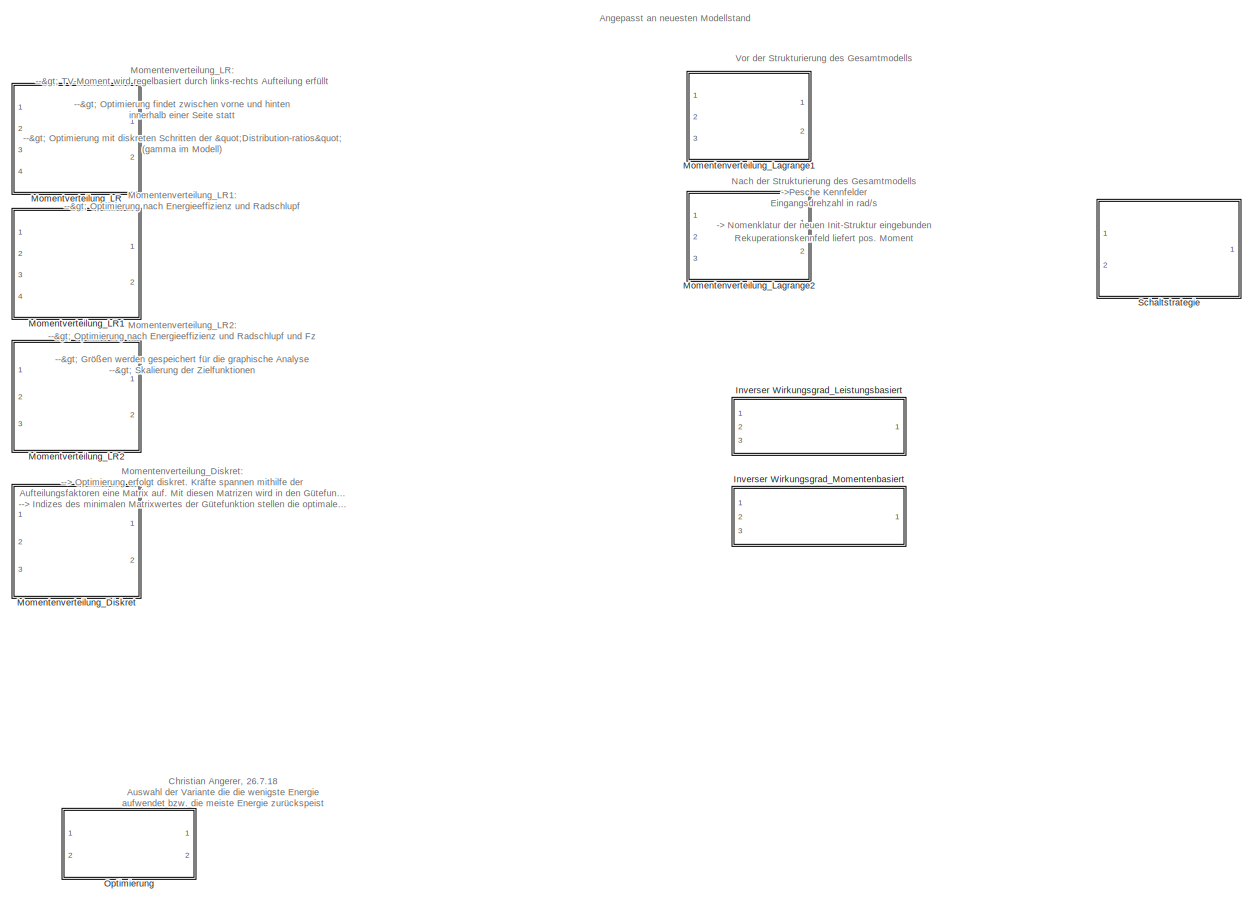
[diagram: root canvas - part 1/2, right side, full height]
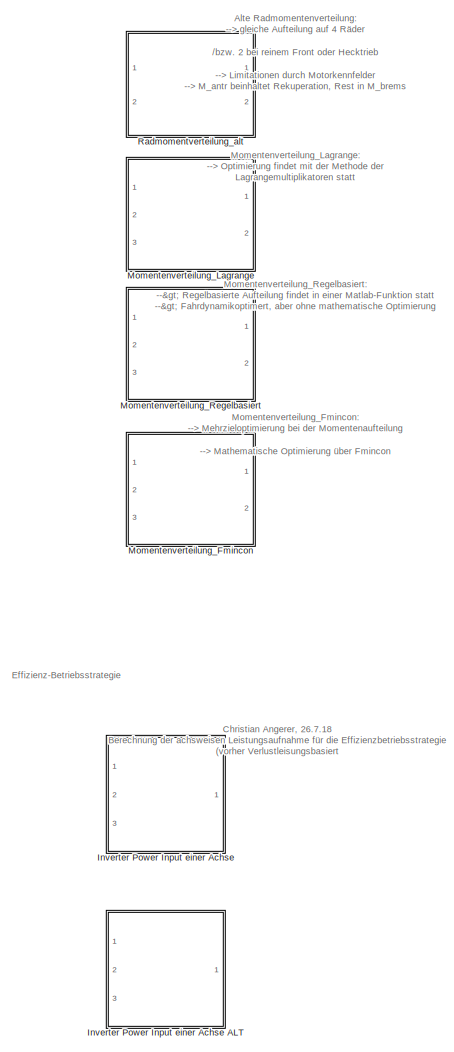
[diagram: root canvas - part 2/2, left side, full height]
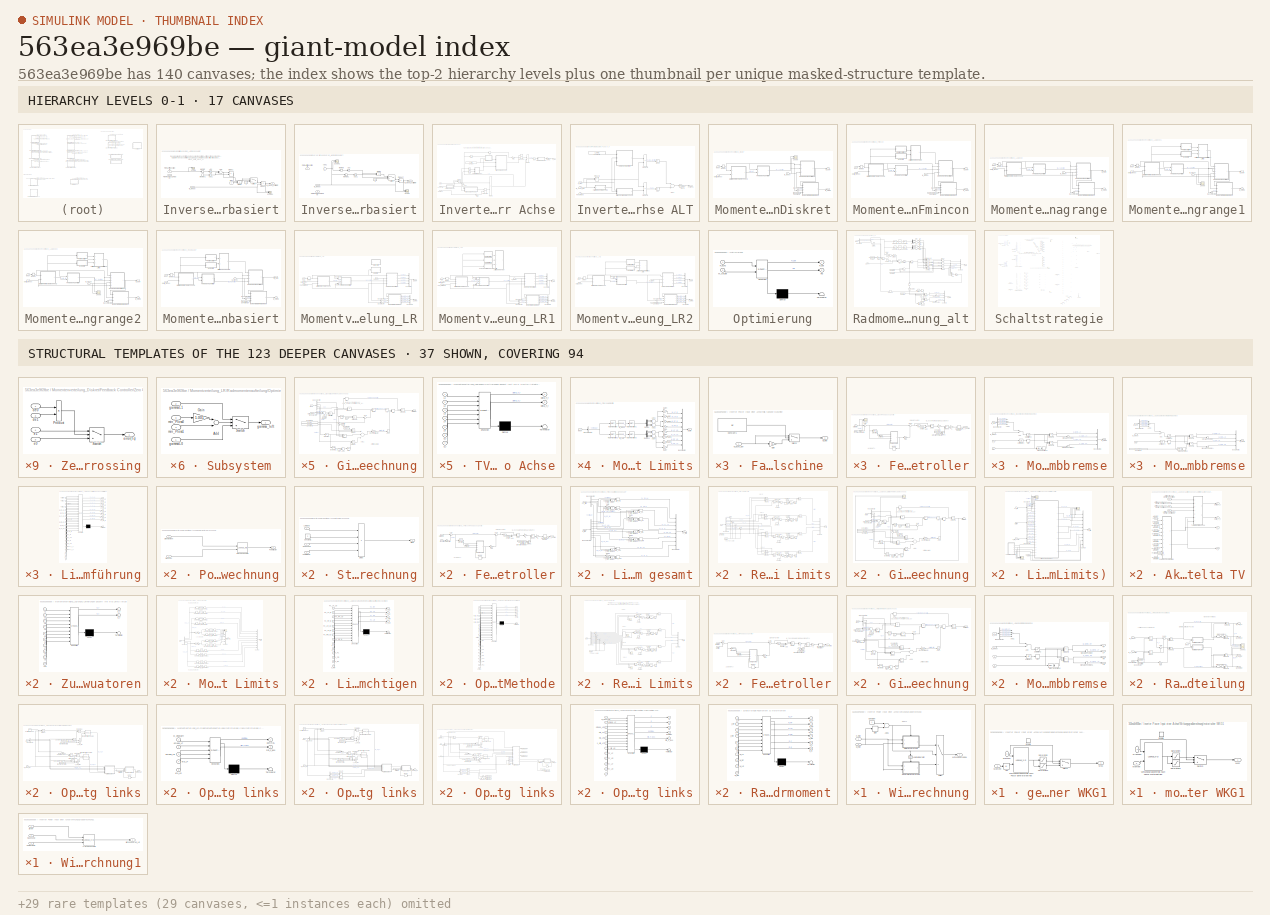
[diagram: thumbnail index - top-2 hierarchy levels (17 canvases) + 37 structural-template representatives of the remaining 123 canvases]
MODEL slx_563ea3e969be
KIND library
CONFIG AbsTol = auto
CONFIG EnableMultiTasking = on
CONFIG FixedStep = auto
CONFIG MaxStep = auto
CONFIG MinStep = auto
CONFIG RelTol = 1e-3
CONFIG SampleTimeConstraint = Unconstrained
CONFIG Solver = VariableStepAuto
CONFIG SolverName = VariableStepAuto
CONFIG StartTime = 0.0
CONFIG StopTime = 10.0
BLOCK [SubSystem] Inverser Wirkungsgrad_Leistungsbasiert
  Ports = [3, 1]
  RequestExecContextInheritance = off
BLOCK [Constant] Inverser Wirkungsgrad_Leistungsbasiert/1
BLOCK [Abs] Inverser Wirkungsgrad_Leistungsbasiert/Abs
  SaturateOnIntegerOverflow = off
BLOCK [Abs] Inverser Wirkungsgrad_Leistungsbasiert/Abs1
  SaturateOnIntegerOverflow = off
BLOCK [Sum] Inverser Wirkungsgrad_Leistungsbasiert/Add
  InputSameDT = off
  OutDataTypeStr = Inherit: Inherit via internal rule
  Ports = [2, 1]
  SaturateOnIntegerOverflow = off
BLOCK [Product] Inverser Wirkungsgrad_Leistungsbasiert/Divide
  InputSameDT = off
  Inputs = /*
  OutDataTypeStr = Inherit: Inherit via internal rule
  Ports = [2, 1]
  RndMeth = Floor
  SaturateOnIntegerOverflow = off
BLOCK [Product] Inverser Wirkungsgrad_Leistungsbasiert/Divide1
  InputSameDT = off
  Inputs = /*
  OutDataTypeStr = Inherit: Inherit via internal rule
  Ports = [2, 1]
  RndMeth = Floor
  SaturateOnIntegerOverflow = off
BLOCK [Constant] Inverser Wirkungsgrad_Leistungsbasiert/Eins
BLOCK [Inport] Inverser Wirkungsgrad_Leistungsbasiert/From Antriebsstrang
  IconDisplay = Port number
BLOCK [Inport] Inverser Wirkungsgrad_Leistungsbasiert/From Fahrzeugmodell
  IconDisplay = Port number
  Port = 3
BLOCK [Inport] Inverser Wirkungsgrad_Leistungsbasiert/M_wheel
  IconDisplay = Port number
  Port = 2
BLOCK [Outport] Inverser Wirkungsgrad_Leistungsbasiert/M_wheel_korrigiert
  IconDisplay = Port number
BLOCK [Memory] Inverser Wirkungsgrad_Leistungsbasiert/Memory
BLOCK [Memory] Inverser Wirkungsgrad_Leistungsbasiert/Memory1
BLOCK [Product] Inverser Wirkungsgrad_Leistungsbasiert/Product
  InputSameDT = off
  OutDataTypeStr = Inherit: Inherit via internal rule
  Ports = [2, 1]
  RndMeth = Floor
  SaturateOnIntegerOverflow = off
BLOCK [Scope] Inverser Wirkungsgrad_Leistungsbasiert/Scope
  Floating = off
  NumInputPorts = 2
  Ports = [2]
  ScopeSpecificationString = Simulink.scopes.TimeScopeBlockCfg('CurrentConfiguration', extmgr.ConfigurationSet(extmgr.Configuration('Core','General UI',true),extmgr.Configuration('Core','Source UI',true),extmgr.Configuration('Sources','WiredSimulink',true,'DataLoggingVariableName','ScopeData1','DataLoggingLimitDataPoints',true,'DataLoggingSaveFormat','Array','DataLoggingDecimation','1','DataLoggingDecimateData',true),extmgr.C...<+1586ch>
BLOCK [Scope] Inverser Wirkungsgrad_Leistungsbasiert/Scope1
  Floating = off
  NumInputPorts = 2
  Ports = [2]
  ScopeSpecificationString = Simulink.scopes.TimeScopeBlockCfg('CurrentConfiguration', extmgr.ConfigurationSet(extmgr.Configuration('Core','General UI',true),extmgr.Configuration('Core','Source UI',true),extmgr.Configuration('Sources','WiredSimulink',true,'DataLoggingVariableName','ScopeData2'),extmgr.Configuration('Visuals','Time Domain',true,'SerializedDisplays',{struct('MinYLimReal','493.78637','MaxYLimReal','629.16252','Y...<+1407ch>
BLOCK [Switch] Inverser Wirkungsgrad_Leistungsbasiert/Switch
  Criteria = u2 > Threshold
  InputSameDT = off
  SaturateOnIntegerOverflow = off
  Threshold = 0.1
BLOCK [SubSystem] Inverser Wirkungsgrad_Momentenbasiert
  Ports = [3, 1]
  RequestExecContextInheritance = off
BLOCK [Constant] Inverser Wirkungsgrad_Momentenbasiert/1
BLOCK [Abs] Inverser Wirkungsgrad_Momentenbasiert/Abs
  SaturateOnIntegerOverflow = off
BLOCK [Abs] Inverser Wirkungsgrad_Momentenbasiert/Abs1
  SaturateOnIntegerOverflow = off
BLOCK [Sum] Inverser Wirkungsgrad_Momentenbasiert/Add1
  InputSameDT = off
  Inputs = ++++
  OutDataTypeStr = Inherit: Inherit via internal rule
  Ports = [4, 1]
  SaturateOnIntegerOverflow = off
BLOCK [Product] Inverser Wirkungsgrad_Momentenbasiert/Divide
  InputSameDT = off
  Inputs = /*
  OutDataTypeStr = Inherit: Inherit via internal rule
  Ports = [2, 1]
  RndMeth = Floor
  SaturateOnIntegerOverflow = off
BLOCK [Inport] Inverser Wirkungsgrad_Momentenbasiert/From Antriebsstrang
  IconDisplay = Port number
  Port = 2
BLOCK [Inport] Inverser Wirkungsgrad_Momentenbasiert/From Fahrzeugmodell
  IconDisplay = Port number
  Port = 3
BLOCK [Inport] Inverser Wirkungsgrad_Momentenbasiert/M_wheel
  IconDisplay = Port number
BLOCK [Outport] Inverser Wirkungsgrad_Momentenbasiert/M_wheel_korrigiert
  IconDisplay = Port number
BLOCK [Memory] Inverser Wirkungsgrad_Momentenbasiert/Memory
BLOCK [Memory] Inverser Wirkungsgrad_Momentenbasiert/Memory1
BLOCK [Product] Inverser Wirkungsgrad_Momentenbasiert/Product
  InputSameDT = off
  OutDataTypeStr = Inherit: Inherit via internal rule
  Ports = [2, 1]
  RndMeth = Floor
  SaturateOnIntegerOverflow = off
BLOCK [Scope] Inverser Wirkungsgrad_Momentenbasiert/Scope
  Floating = off
  NumInputPorts = 2
  Ports = [2]
  ScopeSpecificationString = Simulink.scopes.TimeScopeBlockCfg('CurrentConfiguration', extmgr.ConfigurationSet(extmgr.Configuration('Core','General UI',true),extmgr.Configuration('Core','Source UI',true),extmgr.Configuration('Sources','WiredSimulink',true,'DataLoggingVariableName','ScopeData1'),extmgr.Configuration('Visuals','Time Domain',true,'SerializedDisplays',{struct('MinYLimReal','-180.94264','MaxYLimReal','1628.4838','...<+1442ch>
BLOCK [Scope] Inverser Wirkungsgrad_Momentenbasiert/Scope1
  Floating = off
  NumInputPorts = 2
  Ports = [2]
  ScopeSpecificationString = Simulink.scopes.TimeScopeBlockCfg('CurrentConfiguration', extmgr.ConfigurationSet(extmgr.Configuration('Core','General UI',true),extmgr.Configuration('Core','Source UI',true),extmgr.Configuration('Sources','WiredSimulink',true,'DataLoggingVariableName','ScopeData2'),extmgr.Configuration('Visuals','Time Domain',true,'SerializedDisplays',{struct('MinYLimReal','-155.70601','MaxYLimReal','1401.35405',...<+1488ch>
BLOCK [Switch] Inverser Wirkungsgrad_Momentenbasiert/Switch
  Criteria = u2 > Threshold
  InputSameDT = off
  SaturateOnIntegerOverflow = off
BLOCK [SubSystem] Inverter Power Input einer Achse
  Ports = [3, 1]
  RequestExecContextInheritance = off
BLOCK [SubSystem] Inverter Power Input einer Achse ALT
  Ports = [3, 1]
  RequestExecContextInheritance = off
BLOCK [Abs] Inverter Power Input einer Achse ALT/Abs
  SaturateOnIntegerOverflow = off
BLOCK [Abs] Inverter Power Input einer Achse ALT/Abs6
  SaturateOnIntegerOverflow = off
BLOCK [Sum] Inverter Power Input einer Achse ALT/Add1
  InputSameDT = off
  OutDataTypeStr = Inherit: Inherit via internal rule
  Ports = [2, 1]
  SaturateOnIntegerOverflow = off
BLOCK [Constant] Inverter Power Input einer Achse ALT/Constant2
  Value = U_RMS
BLOCK [SubSystem] Inverter Power Input einer Achse ALT/Falls radnahe Maschine 
  Ports = [1, 1]
  RequestExecContextInheritance = off
BLOCK [Constant] Inverter Power Input einer Achse ALT/Falls radnahe Maschine /Constant1
  Value = az
BLOCK [Gain] Inverter Power Input einer Achse ALT/Falls radnahe Maschine /Gain
  Gain = 0.5
  OutDataTypeStr = Inherit: Inherit via internal rule
  ParamDataTypeStr = Inherit: Inherit via internal rule
  SaturateOnIntegerOverflow = off
BLOCK [Inport] Inverter Power Input einer Achse ALT/Falls radnahe Maschine /M_achs_EM
  IconDisplay = Port number
BLOCK [Outport] Inverter Power Input einer Achse ALT/Falls radnahe Maschine /M_mot
  IconDisplay = Port number
BLOCK [Switch] Inverter Power Input einer Achse ALT/Falls radnahe Maschine /Switch
  Criteria = u2 > Threshold
  InputSameDT = off
  SaturateOnIntegerOverflow = off
BLOCK [SubSystem] Inverter Power Input einer Achse ALT/Leistungselektronik
  Ports = [3, 1]
  RequestExecContextInheritance = off
BLOCK [Abs] Inverter Power Input einer Achse ALT/Leistungselektronik/Abs1
  SaturateOnIntegerOverflow = off
BLOCK [Abs] Inverter Power Input einer Achse ALT/Leistungselektronik/Abs2
  SaturateOnIntegerOverflow = off
BLOCK [Abs] Inverter Power Input einer Achse ALT/Leistungselektronik/Abs3
  SaturateOnIntegerOverflow = off
BLOCK [Inport] Inverter Power Input einer Achse ALT/Leistungselektronik/Drehmoment_1EM
  IconDisplay = Port number
  Port = 2
BLOCK [Inport] Inverter Power Input einer Achse ALT/Leistungselektronik/Drehzahl 
  IconDisplay = Port number
  Port = 3
BLOCK [SubSystem] Inverter Power Input einer Achse ALT/Leistungselektronik/Leistungselektronik
  Ports = [3, 1]
  RequestExecContextInheritance = off
BLOCK [Sum] Inverter Power Input einer Achse ALT/Leistungselektronik/Leistungselektronik/Add
  InputSameDT = off
  Inputs = +-
  OutDataTypeStr = Inherit: Inherit via internal rule
  Ports = [2, 1]
  SaturateOnIntegerOverflow = off
BLOCK [Constant] Inverter Power Input einer Achse ALT/Leistungselektronik/Leistungselektronik/Constant
BLOCK [Inport] Inverter Power Input einer Achse ALT/Leistungselektronik/Leistungselektronik/Powerfactor
  IconDisplay = Port number
  Port = 3
BLOCK [Saturate] Inverter Power Input einer Achse ALT/Leistungselektronik/Leistungselektronik/Saturation
  InputPortMap = u0
  LowerLimit = 0.05
  Ports = [1, 1]
  UpperLimit = 1
BLOCK [Inport] Inverter Power Input einer Achse ALT/Leistungselektronik/Leistungselektronik/Spannung
  IconDisplay = Port number
  Port = 2
BLOCK [Inport] Inverter Power Input einer Achse ALT/Leistungselektronik/Leistungselektronik/Strom
  IconDisplay = Port number
BLOCK [Outport] Inverter Power Input einer Achse ALT/Leistungselektronik/Leistungselektronik/Verlustgrad 
  IconDisplay = Port number
BLOCK [Lookup_n-D] Inverter Power Input einer Achse ALT/Leistungselektronik/Leistungselektronik/n-D Lookup Table
  BreakpointsForDimension1 = current
  BreakpointsForDimension2 = voltage
  BreakpointsForDimension3 = powerfactor
  ExtrapMethod = Clip
  InternalRulePriority = Speed
  NumberOfTableDimensions = 3
  Ports = [3, 1]
  RndMeth = Simplest
  Table = efficiency_map_LE
  UseLastTableValue = on
BLOCK [SubSystem] Inverter Power Input einer Achse ALT/Leistungselektronik/Powerfactor
  Ports = [2, 1]
  RequestExecContextInheritance = off
BLOCK [Lookup_n-D] Inverter Power Input einer Achse ALT/Leistungselektronik/Powerfactor/2-D Lookup Table
  BreakpointsForDimension1 = torque
  BreakpointsForDimension2 = speed
  ExtrapMethod = Clip
  InternalRulePriority = Speed
  Ports = [2, 1]
  RndMeth = Simplest
  Table = Powerfactor_map
BLOCK [Inport] Inverter Power Input einer Achse ALT/Leistungselektronik/Powerfactor/Drehmoment
  IconDisplay = Port number
BLOCK [Inport] Inverter Power Input einer Achse ALT/Leistungselektronik/Powerfactor/Drehzahl
  IconDisplay = Port number
  Port = 2
BLOCK [Outport] Inverter Power Input einer Achse ALT/Leistungselektronik/Powerfactor/Powerfactor
  IconDisplay = Port number
BLOCK [Product] Inverter Power Input einer Achse ALT/Leistungselektronik/Product1
  InputSameDT = off
  OutDataTypeStr = Inherit: Inherit via internal rule
  Ports = [2, 1]
  RndMeth = Floor
  SaturateOnIntegerOverflow = off
BLOCK [Inport] Inverter Power Input einer Achse ALT/Leistungselektronik/RMS Spannung
  IconDisplay = Port number
BLOCK [SubSystem] Inverter Power Input einer Achse ALT/Leistungselektronik/Strom
  Ports = [3, 1]
  RequestExecContextInheritance = off
BLOCK [Constant] Inverter Power Input einer Achse ALT/Leistungselektronik/Strom/Constant
  Value = 3
BLOCK [Product] Inverter Power Input einer Achse ALT/Leistungselektronik/Strom/Divide
  InputSameDT = off
  Inputs = *///
  OutDataTypeStr = Inherit: Inherit via internal rule
  Ports = [4, 1]
  RndMeth = Floor
  SaturateOnIntegerOverflow = off
BLOCK [Inport] Inverter Power Input einer Achse ALT/Leistungselektronik/Strom/Leistung_EM_mech
  IconDisplay = Port number
BLOCK [Inport] Inverter Power Input einer Achse ALT/Leistungselektronik/Strom/Powerfactor
  IconDisplay = Port number
  Port = 3
BLOCK [Inport] Inverter Power Input einer Achse ALT/Leistungselektronik/Strom/Spannung
  IconDisplay = Port number
  Port = 2
BLOCK [Outport] Inverter Power Input einer Achse ALT/Leistungselektronik/Strom/Strom
  IconDisplay = Port number
BLOCK [Outport] Inverter Power Input einer Achse ALT/Leistungselektronik/Verlustgrad LE
  IconDisplay = Port number
BLOCK [Inport] Inverter Power Input einer Achse ALT/M_Achs_EM
  IconDisplay = Port number
  Port = 2
BLOCK [Outport] Inverter Power Input einer Achse ALT/P_achs
  IconDisplay = Port number
BLOCK [Product] Inverter Power Input einer Achse ALT/Product1
  InputSameDT = off
  Inputs = **
  OutDataTypeStr = Inherit: Inherit via internal rule
  Ports = [2, 1]
  RndMeth = Floor
  SaturateOnIntegerOverflow = off
BLOCK [Product] Inverter Power Input einer Achse ALT/Product3
  InputSameDT = off
  Inputs = **
  OutDataTypeStr = Inherit: Inherit via internal rule
  Ports = [2, 1]
  RndMeth = Floor
  SaturateOnIntegerOverflow = off
BLOCK [Product] Inverter Power Input einer Achse ALT/Product5
  InputSameDT = off
  Inputs = **
  OutDataTypeStr = Inherit: Inherit via internal rule
  Ports = [2, 1]
  RndMeth = Floor
  SaturateOnIntegerOverflow = off
BLOCK [Inport] Inverter Power Input einer Achse ALT/Rekuindex
  IconDisplay = Port number
  Port = 3
BLOCK [Gain] Inverter Power Input einer Achse ALT/W-->kW
  Gain = 0.001
  OutDataTypeStr = Inherit: Inherit via internal rule
  ParamDataTypeStr = Inherit: Inherit via internal rule
  SaturateOnIntegerOverflow = off
BLOCK [SubSystem] Inverter Power Input einer Achse ALT/Wirkungsgradberechnung
  Ports = [3, 1]
  RequestExecContextInheritance = off
BLOCK [Sum] Inverter Power Input einer Achse ALT/Wirkungsgradberechnung/Add1
  InputSameDT = off
  OutDataTypeStr = Inherit: Inherit via internal rule
  Ports = [2, 1]
  SaturateOnIntegerOverflow = off
BLOCK [Constant] Inverter Power Input einer Achse ALT/Wirkungsgradberechnung/Constant
BLOCK [Logic] Inverter Power Input einer Achse ALT/Wirkungsgradberechnung/Logical Operator
  AllPortsSameDT = off
  Operator = NOT
  OutDataTypeStr = boolean
  Ports = [1, 1]
BLOCK [Inport] Inverter Power Input einer Achse ALT/Wirkungsgradberechnung/M_mot
  IconDisplay = Port number
  Port = 2
BLOCK [Inport] Inverter Power Input einer Achse ALT/Wirkungsgradberechnung/Rekuindex
  IconDisplay = Port number
  Port = 3
BLOCK [Switch] Inverter Power Input einer Achse ALT/Wirkungsgradberechnung/Switch
  Criteria = u2 > Threshold
  InputSameDT = off
  SaturateOnIntegerOverflow = off
BLOCK [Outport] Inverter Power Input einer Achse ALT/Wirkungsgradberechnung/Wirkungsgrad EM
  IconDisplay = Port number
BLOCK [SubSystem] Inverter Power Input einer Achse ALT/Wirkungsgradberechnung/generatorischer WKG
  Ports = [2, 1, 1]
  RequestExecContextInheritance = off
BLOCK [Abs] Inverter Power Input einer Achse ALT/Wirkungsgradberechnung/generatorischer WKG/Abs
  SaturateOnIntegerOverflow = off
BLOCK [Inport] Inverter Power Input einer Achse ALT/Wirkungsgradberechnung/generatorischer WKG/Drehzahl
  IconDisplay = Port number
BLOCK [EnablePort] Inverter Power Input einer Achse ALT/Wirkungsgradberechnung/generatorischer WKG/Enable
  Ports = []
BLOCK [Inport] Inverter Power Input einer Achse ALT/Wirkungsgradberechnung/generatorischer WKG/Moment
  IconDisplay = Port number
  Port = 2
BLOCK [Outport] Inverter Power Input einer Achse ALT/Wirkungsgradberechnung/generatorischer WKG/WKG
  IconDisplay = Port number
BLOCK [Lookup_n-D] Inverter Power Input einer Achse ALT/Wirkungsgradberechnung/generatorischer WKG/Wirkungsgradkennfeld Generatorbetrieb
  BreakpointsForDimension1 = GeneratorEffMap3D_w
  BreakpointsForDimension2 = GeneratorEffMap3D_M
  InternalRulePriority = Speed
  Ports = [2, 1]
  RndMeth = Simplest
  Table = GeneratorEffMap3D
  UseLastTableValue = on
BLOCK [SubSystem] Inverter Power Input einer Achse ALT/Wirkungsgradberechnung/motorischer WKG
  Ports = [2, 1, 1]
  RequestExecContextInheritance = off
BLOCK [Inport] Inverter Power Input einer Achse ALT/Wirkungsgradberechnung/motorischer WKG/Drehzahl
  IconDisplay = Port number
BLOCK [EnablePort] Inverter Power Input einer Achse ALT/Wirkungsgradberechnung/motorischer WKG/Enable
  Ports = []
BLOCK [Inport] Inverter Power Input einer Achse ALT/Wirkungsgradberechnung/motorischer WKG/Moment
  IconDisplay = Port number
  Port = 2
BLOCK [Outport] Inverter Power Input einer Achse ALT/Wirkungsgradberechnung/motorischer WKG/WKG
  IconDisplay = Port number
BLOCK [Lookup_n-D] Inverter Power Input einer Achse ALT/Wirkungsgradberechnung/motorischer WKG/Wirkungsgradkennfeld Motorbetrieb
  BreakpointsForDimension1 = MotorEffMap3D_w
  BreakpointsForDimension2 = MotorEffMap3D_M
  InternalRulePriority = Speed
  Ports = [2, 1]
  RndMeth = Simplest
  Table = MotorEffMap3D
  UseLastTableValue = on
BLOCK [Inport] Inverter Power Input einer Achse ALT/Wirkungsgradberechnung/n_mot
  IconDisplay = Port number
BLOCK [Inport] Inverter Power Input einer Achse ALT/n_mot
  IconDisplay = Port number
BLOCK [Abs] Inverter Power Input einer Achse/Abs1
  SaturateOnIntegerOverflow = off
BLOCK [Abs] Inverter Power Input einer Achse/Abs2
  SaturateOnIntegerOverflow = off
BLOCK [Abs] Inverter Power Input einer Achse/Abs4
  SaturateOnIntegerOverflow = off
BLOCK [Abs] Inverter Power Input einer Achse/Abs5
  SaturateOnIntegerOverflow = off
BLOCK [Abs] Inverter Power Input einer Achse/Abs6
  SaturateOnIntegerOverflow = off
BLOCK [Constant] Inverter Power Input einer Achse/Constant1
  Value = U_RMS
BLOCK [SubSystem] Inverter Power Input einer Achse/Falls radnahe Maschine 
  Ports = [1, 1]
  RequestExecContextInheritance = off
BLOCK [Constant] Inverter Power Input einer Achse/Falls radnahe Maschine /Constant1
  Value = az
BLOCK [Gain] Inverter Power Input einer Achse/Falls radnahe Maschine /Gain
  Gain = 0.5
  OutDataTypeStr = Inherit: Inherit via internal rule
  ParamDataTypeStr = Inherit: Inherit via internal rule
  SaturateOnIntegerOverflow = off
BLOCK [Inport] Inverter Power Input einer Achse/Falls radnahe Maschine /M_achs_EM
  IconDisplay = Port number
BLOCK [Outport] Inverter Power Input einer Achse/Falls radnahe Maschine /M_mot
  IconDisplay = Port number
BLOCK [Switch] Inverter Power Input einer Achse/Falls radnahe Maschine /Switch
  Criteria = u2 > Threshold
  InputSameDT = off
  SaturateOnIntegerOverflow = off
BLOCK [SubSystem] Inverter Power Input einer Achse/Falls radnahe Maschine 1
  Ports = [1, 1]
  RequestExecContextInheritance = off
BLOCK [Constant] Inverter Power Input einer Achse/Falls radnahe Maschine 1/Constant1
  Value = az
BLOCK [Gain] Inverter Power Input einer Achse/Falls radnahe Maschine 1/Gain
  Gain = 2
  OutDataTypeStr = Inherit: Inherit via internal rule
  ParamDataTypeStr = Inherit: Inherit via internal rule
  SaturateOnIntegerOverflow = off
BLOCK [Inport] Inverter Power Input einer Achse/Falls radnahe Maschine 1/M_achs_EM
  IconDisplay = Port number
BLOCK [Outport] Inverter Power Input einer Achse/Falls radnahe Maschine 1/M_mot
  IconDisplay = Port number
BLOCK [Switch] Inverter Power Input einer Achse/Falls radnahe Maschine 1/Switch
  Criteria = u2 > Threshold
  InputSameDT = off
  SaturateOnIntegerOverflow = off
BLOCK [Gain] Inverter Power Input einer Achse/Gain
  Gain = -1
  OutDataTypeStr = Inherit: Inherit via internal rule
  ParamDataTypeStr = Inherit: Inherit via internal rule
  SaturateOnIntegerOverflow = off
BLOCK [Gain] Inverter Power Input einer Achse/Gain2
  Gain = -1
  OutDataTypeStr = Inherit: Inherit via internal rule
  ParamDataTypeStr = Inherit: Inherit via internal rule
  SaturateOnIntegerOverflow = off
BLOCK [Inport] Inverter Power Input einer Achse/M_Achs_EM
  IconDisplay = Port number
  Port = 2
BLOCK [Math] Inverter Power Input einer Achse/Math Function
  Operator = pow
  Ports = [2, 1]
BLOCK [Math] Inverter Power Input einer Achse/Math Function1
  Operator = pow
  Ports = [2, 1]
BLOCK [Outport] Inverter Power Input einer Achse/P_achs
  IconDisplay = Port number
BLOCK [SubSystem] Inverter Power Input einer Achse/Powerfactorberechnung
  Ports = [2, 1]
  RequestExecContextInheritance = off
BLOCK [Lookup_n-D] Inverter Power Input einer Achse/Powerfactorberechnung/2-D Lookup Table
  BreakpointsForDimension1 = torque
  BreakpointsForDimension2 = speed
  ExtrapMethod = Clip
  InternalRulePriority = Speed
  Ports = [2, 1]
  RndMeth = Simplest
  Table = Powerfactor_map
  UseLastTableValue = on
BLOCK [Inport] Inverter Power Input einer Achse/Powerfactorberechnung/Drehmoment
  IconDisplay = Port number
BLOCK [Inport] Inverter Power Input einer Achse/Powerfactorberechnung/Drehzahl
  IconDisplay = Port number
  Port = 2
BLOCK [Outport] Inverter Power Input einer Achse/Powerfactorberechnung/Powerfactor
  IconDisplay = Port number
BLOCK [Product] Inverter Power Input einer Achse/Product1
  InputSameDT = off
  Inputs = **
  OutDataTypeStr = Inherit: Inherit via internal rule
  Ports = [2, 1]
  RndMeth = Floor
  SaturateOnIntegerOverflow = off
BLOCK [Product] Inverter Power Input einer Achse/Product3
  InputSameDT = off
  Inputs = **
  OutDataTypeStr = Inherit: Inherit via internal rule
  Ports = [2, 1]
  RndMeth = Floor
  SaturateOnIntegerOverflow = off
BLOCK [Product] Inverter Power Input einer Achse/Product5
  InputSameDT = off
  Inputs = **
  OutDataTypeStr = Inherit: Inherit via internal rule
  Ports = [2, 1]
  RndMeth = Floor
  SaturateOnIntegerOverflow = off
BLOCK [Inport] Inverter Power Input einer Achse/Rekuindex
  IconDisplay = Port number
  Port = 3
BLOCK [Signum] Inverter Power Input einer Achse/Sign
BLOCK [SubSystem] Inverter Power Input einer Achse/Stromberechnung
  Ports = [3, 1]
  RequestExecContextInheritance = off
BLOCK [Constant] Inverter Power Input einer Achse/Stromberechnung/Constant1
  Value = 3
BLOCK [Product] Inverter Power Input einer Achse/Stromberechnung/Divide
  InputSameDT = off
  Inputs = *///
  OutDataTypeStr = Inherit: Inherit via internal rule
  Ports = [4, 1]
  RndMeth = Floor
  SaturateOnIntegerOverflow = off
BLOCK [Inport] Inverter Power Input einer Achse/Stromberechnung/Leistung
  IconDisplay = Port number
BLOCK [Inport] Inverter Power Input einer Achse/Stromberechnung/Powerfactor
  IconDisplay = Port number
  Port = 3
BLOCK [Inport] Inverter Power Input einer Achse/Stromberechnung/Spannung
  IconDisplay = Port number
  Port = 2
BLOCK [Outport] Inverter Power Input einer Achse/Stromberechnung/Strom
  IconDisplay = Port number
BLOCK [Gain] Inverter Power Input einer Achse/W-->kW
  Gain = 0.001
  OutDataTypeStr = Inherit: Inherit via internal rule
  ParamDataTypeStr = Inherit: Inherit via internal rule
  SaturateOnIntegerOverflow = off
BLOCK [SubSystem] Inverter Power Input einer Achse/Wirkungsgradberechnung
  Ports = [2, 1]
  RequestExecContextInheritance = off
BLOCK [Sum] Inverter Power Input einer Achse/Wirkungsgradberechnung/Add1
  InputSameDT = off
  OutDataTypeStr = Inherit: Inherit via internal rule
  Ports = [2, 1]
  SaturateOnIntegerOverflow = off
BLOCK [Constant] Inverter Power Input einer Achse/Wirkungsgradberechnung/Constant
BLOCK [Logic] Inverter Power Input einer Achse/Wirkungsgradberechnung/Logical Operator
  AllPortsSameDT = off
  Operator = NOT
  OutDataTypeStr = boolean
  Ports = [1, 1]
BLOCK [Inport] Inverter Power Input einer Achse/Wirkungsgradberechnung/M_mot
  IconDisplay = Port number
  Port = 2
BLOCK [Signum] Inverter Power Input einer Achse/Wirkungsgradberechnung/Sign
BLOCK [Switch] Inverter Power Input einer Achse/Wirkungsgradberechnung/Switch
  Criteria = u2 > Threshold
  InputSameDT = off
  SaturateOnIntegerOverflow = off
BLOCK [Outport] Inverter Power Input einer Achse/Wirkungsgradberechnung/Wirkungsgrad EM
  IconDisplay = Port number
BLOCK [SubSystem] Inverter Power Input einer Achse/Wirkungsgradberechnung/generatorischer WKG1
  Ports = [2, 1, 1]
  RequestExecContextInheritance = off
BLOCK [Abs] Inverter Power Input einer Achse/Wirkungsgradberechnung/generatorischer WKG1/Abs
  SaturateOnIntegerOverflow = off
BLOCK [Inport] Inverter Power Input einer Achse/Wirkungsgradberechnung/generatorischer WKG1/Drehzahl
  IconDisplay = Port number
BLOCK [EnablePort] Inverter Power Input einer Achse/Wirkungsgradberechnung/generatorischer WKG1/Enable
  Ports = []
BLOCK [Inport] Inverter Power Input einer Achse/Wirkungsgradberechnung/generatorischer WKG1/Moment
  IconDisplay = Port number
  Port = 2
BLOCK [Saturate] Inverter Power Input einer Achse/Wirkungsgradberechnung/generatorischer WKG1/Saturation
  InputPortMap = u0
  LowerLimit = 0.05
  Ports = [1, 1]
  UpperLimit = 1
BLOCK [Saturate] Inverter Power Input einer Achse/Wirkungsgradberechnung/generatorischer WKG1/Saturation2
  InputPortMap = u0
  LowerLimit = 0.2
  Ports = [1, 1]
  UpperLimit = 1
BLOCK [Switch] Inverter Power Input einer Achse/Wirkungsgradberechnung/generatorischer WKG1/Switch
  Criteria = u2 > Threshold
  InputSameDT = off
  SaturateOnIntegerOverflow = off
  Threshold = 120
BLOCK [Outport] Inverter Power Input einer Achse/Wirkungsgradberechnung/generatorischer WKG1/WKG
  IconDisplay = Port number
BLOCK [Lookup_n-D] Inverter Power Input einer Achse/Wirkungsgradberechnung/generatorischer WKG1/Wirkungsgradkennfeld nach Pesce Generatorbetrieb
  BreakpointsForDimension1 = GeneratorEffMap3D_w
  BreakpointsForDimension2 = GeneratorEffMap3D_M
  InternalRulePriority = Speed
  Ports = [2, 1]
  RndMeth = Simplest
  Table = GeneratorEffMap3D
  UseLastTableValue = on
BLOCK [SubSystem] Inverter Power Input einer Achse/Wirkungsgradberechnung/motorischer WKG1
  Ports = [2, 1, 1]
  RequestExecContextInheritance = off
BLOCK [Inport] Inverter Power Input einer Achse/Wirkungsgradberechnung/motorischer WKG1/Drehzahl
  IconDisplay = Port number
BLOCK [EnablePort] Inverter Power Input einer Achse/Wirkungsgradberechnung/motorischer WKG1/Enable
  Ports = []
BLOCK [Inport] Inverter Power Input einer Achse/Wirkungsgradberechnung/motorischer WKG1/Moment
  IconDisplay = Port number
  Port = 2
BLOCK [Saturate] Inverter Power Input einer Achse/Wirkungsgradberechnung/motorischer WKG1/Saturation
  InputPortMap = u0
  LowerLimit = 0.05
  Ports = [1, 1]
  UpperLimit = 1
BLOCK [Saturate] Inverter Power Input einer Achse/Wirkungsgradberechnung/motorischer WKG1/Saturation1
  InputPortMap = u0
  LowerLimit = 0.2
  Ports = [1, 1]
  UpperLimit = 1
BLOCK [Switch] Inverter Power Input einer Achse/Wirkungsgradberechnung/motorischer WKG1/Switch
  Criteria = u2 > Threshold
  InputSameDT = off
  SaturateOnIntegerOverflow = off
  Threshold = 120
BLOCK [Outport] Inverter Power Input einer Achse/Wirkungsgradberechnung/motorischer WKG1/WKG
  IconDisplay = Port number
BLOCK [Lookup_n-D] Inverter Power Input einer Achse/Wirkungsgradberechnung/motorischer WKG1/Wirkungsgradkennfeld nach Pesce Motorbetrieb
  BreakpointsForDimension1 = MotorEffMap3D_w
  BreakpointsForDimension2 = MotorEffMap3D_M
  InternalRulePriority = Speed
  Ports = [2, 1]
  RndMeth = Simplest
  Table = MotorEffMap3D
  UseLastTableValue = on
BLOCK [Inport] Inverter Power Input einer Achse/Wirkungsgradberechnung/n_mot
  IconDisplay = Port number
BLOCK [SubSystem] Inverter Power Input einer Achse/Wirkungsgradberechnung1
  Ports = [3, 1]
  RequestExecContextInheritance = off
BLOCK [Inport] Inverter Power Input einer Achse/Wirkungsgradberechnung1/Powerfactor
  IconDisplay = Port number
  Port = 3
BLOCK [Inport] Inverter Power Input einer Achse/Wirkungsgradberechnung1/Spannung
  IconDisplay = Port number
  Port = 2
BLOCK [Inport] Inverter Power Input einer Achse/Wirkungsgradberechnung1/Strom
  IconDisplay = Port number
BLOCK [Outport] Inverter Power Input einer Achse/Wirkungsgradberechnung1/Wirkungsgrad_LE
  IconDisplay = Port number
BLOCK [Lookup_n-D] Inverter Power Input einer Achse/Wirkungsgradberechnung1/n-D Lookup Table
  BreakpointsForDimension1 = current
  BreakpointsForDimension2 = voltage
  BreakpointsForDimension3 = powerfactor
  ExtrapMethod = Clip
  InternalRulePriority = Speed
  NumberOfTableDimensions = 3
  Ports = [3, 1]
  RndMeth = Simplest
  Table = efficiency_map_LE
  UseLastTableValue = on
BLOCK [Inport] Inverter Power Input einer Achse/n_mot
  IconDisplay = Port number
BLOCK [SubSystem] Momentenverteilung_Diskret
  Ports = [3, 2]
  RequestExecContextInheritance = off
BLOCK [BusSelector] Momentenverteilung_Diskret/Bus Selector3
  OutputAsBus = off
  OutputSignals = x.vx
  Ports = [1, 1]
BLOCK [Constant] Momentenverteilung_Diskret/Constant1
  Value = par_VEH.bkv
BLOCK [SubSystem] Momentenverteilung_Diskret/Feedback Controller
  Ports = [2, 1]
  RequestExecContextInheritance = off
BLOCK [Gain] Momentenverteilung_Diskret/Feedback Controller/-1
  Gain = -1
  OutDataTypeStr = Inherit: Inherit via internal rule
  ParamDataTypeStr = Inherit: Inherit via internal rule
  SaturateOnIntegerOverflow = off
BLOCK [Abs] Momentenverteilung_Diskret/Feedback Controller/Abs
  SaturateOnIntegerOverflow = off
BLOCK [Sum] Momentenverteilung_Diskret/Feedback Controller/Add
  InputSameDT = off
  OutDataTypeStr = Inherit: Inherit via internal rule
  Ports = [2, 1]
  SaturateOnIntegerOverflow = off
BLOCK [BusSelector] Momentenverteilung_Diskret/Feedback Controller/Bus Selector2
  OutputAsBus = off
  OutputSignals = psi.psip
  Ports = [1, 1]
BLOCK [Constant] Momentenverteilung_Diskret/Feedback Controller/Constant1
  Value = par_VEH.Iz
BLOCK [Reference] Momentenverteilung_Diskret/Feedback Controller/Discrete D  REF=simulink/Discrete/Discrete Derivative
  Ports = [1, 1]
  SourceBlock = simulink/Discrete/Discrete Derivative
  SourceProductBaseCode = SL
  SourceProductName = Simulink
  SourceType = Discrete Derivative
BLOCK [DiscreteIntegrator] Momentenverteilung_Diskret/Feedback Controller/Discrete-Time Integrator
  ICPrevOutput = DiscIntNeverNeededParam
  ICPrevScaledInput = DiscIntNeverNeededParam
  InitialConditionSetting = Auto
  LimitOutput = on
  LowerSaturationLimit = -250
  Ports = [1, 1]
  SampleTime = -1
  UpperSaturationLimit = 250
BLOCK [Product] Momentenverteilung_Diskret/Feedback Controller/Divide
  InputSameDT = off
  Inputs = */
  OutDataTypeStr = Inherit: Inherit via internal rule
  Ports = [2, 1]
  RndMeth = Floor
  SaturateOnIntegerOverflow = off
BLOCK [Product] Momentenverteilung_Diskret/Feedback Controller/Divide1
  InputSameDT = off
  Inputs = */
  OutDataTypeStr = Inherit: Inherit via internal rule
  Ports = [2, 1]
  RndMeth = Floor
  SaturateOnIntegerOverflow = off
BLOCK [Constant] Momentenverteilung_Diskret/Feedback Controller/Einheitenkorrektur
  Value = 1000
BLOCK [Gain] Momentenverteilung_Diskret/Feedback Controller/Gain
  Gain = 0.5
  OutDataTypeStr = Inherit: Inherit via internal rule
  ParamDataTypeStr = Inherit: Inherit via internal rule
  SaturateOnIntegerOverflow = off
BLOCK [Inport] Momentenverteilung_Diskret/Feedback Controller/Gierrate ref
  IconDisplay = Port number
  Port = 2
BLOCK [Inport] Momentenverteilung_Diskret/Feedback Controller/Input
  IconDisplay = Port number
BLOCK [Gain] Momentenverteilung_Diskret/Feedback Controller/K
  Gain = 8
  OutDataTypeStr = Inherit: Inherit via internal rule
  ParamDataTypeStr = Inherit: Inherit via internal rule
  SaturateOnIntegerOverflow = off
BLOCK [Outport] Momentenverteilung_Diskret/Feedback Controller/M_z_desired
  IconDisplay = Port number
BLOCK [Memory] Momentenverteilung_Diskret/Feedback Controller/Memory
  LinearizeAsDelay = on
BLOCK [Product] Momentenverteilung_Diskret/Feedback Controller/Product
  InputSameDT = off
  OutDataTypeStr = Inherit: Inherit via internal rule
  Ports = [2, 1]
  RndMeth = Floor
  SaturateOnIntegerOverflow = off
BLOCK [Scope] Momentenverteilung_Diskret/Feedback Controller/Scope
  Floating = off
  NumInputPorts = 2
  Ports = [2]
  ScopeSpecificationString = Simulink.scopes.TimeScopeBlockCfg('CurrentConfiguration', extmgr.ConfigurationSet(extmgr.Configuration('Core','General UI',true),extmgr.Configuration('Core','Source UI',true),extmgr.Configuration('Sources','WiredSimulink',true,'DataLoggingVariableName','ScopeData1'),extmgr.Configuration('Visuals','Time Domain',true,'SerializedDisplays',{struct('MinYLimReal','-0.87063','MaxYLimReal','1.01465','YLab...<+1405ch>
BLOCK [Sum] Momentenverteilung_Diskret/Feedback Controller/Sum
  IconShape = round
  InputSameDT = off
  Inputs = |-+
  OutDataTypeStr = Inherit: Inherit via internal rule
  Ports = [2, 1]
  SaturateOnIntegerOverflow = off
BLOCK [Sum] Momentenverteilung_Diskret/Feedback Controller/Sum1
  IconShape = round
  InputSameDT = off
  Inputs = |+-
  OutDataTypeStr = Inherit: Inherit via internal rule
  Ports = [2, 1]
  SaturateOnIntegerOverflow = off
BLOCK [UnitDelay] Momentenverteilung_Diskret/Feedback Controller/Unit Delay
  InputProcessing = Elements as channels (sample based)
  SampleTime = -1
BLOCK [SubSystem] Momentenverteilung_Diskret/Feedback Controller/Zero Crossing
  Ports = [4, 1]
  RequestExecContextInheritance = off
BLOCK [Product] Momentenverteilung_Diskret/Feedback Controller/Zero Crossing/Product
  InputSameDT = off
  OutDataTypeStr = Inherit: Inherit via internal rule
  Ports = [2, 1]
  RndMeth = Floor
  SaturateOnIntegerOverflow = off
BLOCK [Switch] Momentenverteilung_Diskret/Feedback Controller/Zero Crossing/Switch
  Criteria = u2 > Threshold
  InputSameDT = off
  SaturateOnIntegerOverflow = off
BLOCK [Inport] Momentenverteilung_Diskret/Feedback Controller/Zero Crossing/de0
  IconDisplay = Port number
BLOCK [Inport] Momentenverteilung_Diskret/Feedback Controller/Zero Crossing/de1
  IconDisplay = Port number
  Port = 2
BLOCK [Inport] Momentenverteilung_Diskret/Feedback Controller/Zero Crossing/e0
  IconDisplay = Port number
  Port = 3
BLOCK [Inport] Momentenverteilung_Diskret/Feedback Controller/Zero Crossing/e1
  IconDisplay = Port number
  Port = 4
BLOCK [Outport] Momentenverteilung_Diskret/Feedback Controller/Zero Crossing/error(Tc)
  IconDisplay = Port number
BLOCK [Constant] Momentenverteilung_Diskret/Feedback Controller/epsilon
  Value = 0.015
BLOCK [SubSystem] Momentenverteilung_Diskret/Gierrate Referenz Berechnung
  Ports = [2, 1]
  RequestExecContextInheritance = off
BLOCK [Constant] Momentenverteilung_Diskret/Gierrate Referenz Berechnung/2 Räder
  Value = 0.5
BLOCK [Abs] Momentenverteilung_Diskret/Gierrate Referenz Berechnung/Abs
  SaturateOnIntegerOverflow = off
BLOCK [Abs] Momentenverteilung_Diskret/Gierrate Referenz Berechnung/Abs1
  SaturateOnIntegerOverflow = off
BLOCK [Sum] Momentenverteilung_Diskret/Gierrate Referenz Berechnung/Add
  InputSameDT = off
  OutDataTypeStr = Inherit: Inherit via internal rule
  Ports = [2, 1]
  SaturateOnIntegerOverflow = off
BLOCK [Sum] Momentenverteilung_Diskret/Gierrate Referenz Berechnung/Add1
  InputSameDT = off
  Inputs = +--
  OutDataTypeStr = Inherit: Inherit via internal rule
  Ports = [3, 1]
  SaturateOnIntegerOverflow = off
BLOCK [Sum] Momentenverteilung_Diskret/Gierrate Referenz Berechnung/Add2
  InputSameDT = off
  OutDataTypeStr = Inherit: Inherit via internal rule
  Ports = [2, 1]
  SaturateOnIntegerOverflow = off
BLOCK [BusSelector] Momentenverteilung_Diskret/Gierrate Referenz Berechnung/Bus Selector1
  OutputAsBus = off
  OutputSignals = delta_RF,delta_LF
  Ports = [1, 2]
BLOCK [BusSelector] Momentenverteilung_Diskret/Gierrate Referenz Berechnung/Bus Selector2
  OutputAsBus = off
  OutputSignals = x.ax,beta.beta,beta.betap,x.vx
  Ports = [1, 4]
BLOCK [Constant] Momentenverteilung_Diskret/Gierrate Referenz Berechnung/Constant1
  Value = par_VEH.g
BLOCK [Constant] Momentenverteilung_Diskret/Gierrate Referenz Berechnung/Constant10
  Value = par_VEH.l
BLOCK [Constant] Momentenverteilung_Diskret/Gierrate Referenz Berechnung/Constant20
  Value = 0.25*(mu_road_LF+mu_road_LR+mu_road_RF+mu_road_RR)
BLOCK [Product] Momentenverteilung_Diskret/Gierrate Referenz Berechnung/Divide
  InputSameDT = off
  Inputs = */
  OutDataTypeStr = Inherit: Inherit via internal rule
  Ports = [2, 1]
  RndMeth = Floor
  SaturateOnIntegerOverflow = off
BLOCK [Product] Momentenverteilung_Diskret/Gierrate Referenz Berechnung/Divide1
  InputSameDT = off
  Inputs = **/
  OutDataTypeStr = Inherit: Inherit via internal rule
  Ports = [3, 1]
  RndMeth = Floor
  SaturateOnIntegerOverflow = off
BLOCK [Product] Momentenverteilung_Diskret/Gierrate Referenz Berechnung/Divide2
  InputSameDT = off
  Inputs = **/
  OutDataTypeStr = Inherit: Inherit via internal rule
  Ports = [3, 1]
  RndMeth = Floor
  SaturateOnIntegerOverflow = off
BLOCK [Product] Momentenverteilung_Diskret/Gierrate Referenz Berechnung/Divide3
  InputSameDT = off
  Inputs = */
  OutDataTypeStr = Inherit: Inherit via internal rule
  Ports = [2, 1]
  RndMeth = Floor
  SaturateOnIntegerOverflow = off
BLOCK [Outport] Momentenverteilung_Diskret/Gierrate Referenz Berechnung/Gierrate ref
  IconDisplay = Port number
BLOCK [Constant] Momentenverteilung_Diskret/Gierrate Referenz Berechnung/Kus
  Value = 0
BLOCK [Product] Momentenverteilung_Diskret/Gierrate Referenz Berechnung/Product
  InputSameDT = off
  OutDataTypeStr = Inherit: Inherit via internal rule
  Ports = [2, 1]
  RndMeth = Floor
  SaturateOnIntegerOverflow = off
BLOCK [Product] Momentenverteilung_Diskret/Gierrate Referenz Berechnung/Product1
  InputSameDT = off
  OutDataTypeStr = Inherit: Inherit via internal rule
  Ports = [2, 1]
  RndMeth = Floor
  SaturateOnIntegerOverflow = off
BLOCK [Product] Momentenverteilung_Diskret/Gierrate Referenz Berechnung/Product2
  InputSameDT = off
  OutDataTypeStr = Inherit: Inherit via internal rule
  Ports = [2, 1]
  RndMeth = Floor
  SaturateOnIntegerOverflow = off
BLOCK [Gain] Momentenverteilung_Diskret/Gierrate Referenz Berechnung/Sicherheitsfaktor
  Gain = 0.90
  OutDataTypeStr = Inherit: Inherit via internal rule
  ParamDataTypeStr = Inherit: Inherit via internal rule
  SaturateOnIntegerOverflow = off
BLOCK [Signum] Momentenverteilung_Diskret/Gierrate Referenz Berechnung/Sign
BLOCK [Sqrt] Momentenverteilung_Diskret/Gierrate Referenz Berechnung/Sqrt
BLOCK [Sum] Momentenverteilung_Diskret/Gierrate Referenz Berechnung/Sum
  IconShape = round
  InputSameDT = off
  Inputs = |++
  OutDataTypeStr = Inherit: Inherit via internal rule
  Ports = [2, 1]
  SaturateOnIntegerOverflow = off
BLOCK [Sum] Momentenverteilung_Diskret/Gierrate Referenz Berechnung/Sum1
  IconShape = round
  InputSameDT = off
  Inputs = |++
  OutDataTypeStr = Inherit: Inherit via internal rule
  Ports = [2, 1]
  SaturateOnIntegerOverflow = off
BLOCK [Product] Momentenverteilung_Diskret/Gierrate Referenz Berechnung/delta mittel
  InputSameDT = off
  OutDataTypeStr = Inherit: Inherit via internal rule
  Ports = [2, 1]
  RndMeth = Floor
  SaturateOnIntegerOverflow = off
BLOCK [Inport] Momentenverteilung_Diskret/Gierrate Referenz Berechnung/delta_wheel
  IconDisplay = Port number
  Port = 2
BLOCK [Constant] Momentenverteilung_Diskret/Gierrate Referenz Berechnung/eins
BLOCK [Constant] Momentenverteilung_Diskret/Gierrate Referenz Berechnung/epsilon
  Value = 0.0015
BLOCK [Inport] Momentenverteilung_Diskret/Gierrate Referenz Berechnung/input
  IconDisplay = Port number
BLOCK [MinMax] Momentenverteilung_Diskret/Gierrate Referenz Berechnung/min
  InputSameDT = off
  Inputs = 2
  Ports = [2, 1]
  SaturateOnIntegerOverflow = off
BLOCK [Trigonometry] Momentenverteilung_Diskret/Gierrate Referenz Berechnung/tan (beta)1
  Operator = tan
  Ports = [1, 1]
BLOCK [Math] Momentenverteilung_Diskret/Gierrate Referenz Berechnung/tan^2 (beta)1
  Operator = square
  Ports = [1, 1]
BLOCK [Math] Momentenverteilung_Diskret/Gierrate Referenz Berechnung/vx^2
  Operator = square
  Ports = [1, 1]
BLOCK [Outport] Momentenverteilung_Diskret/M_antr
  IconDisplay = Port number
BLOCK [Outport] Momentenverteilung_Diskret/M_brems
  IconDisplay = Port number
  Port = 2
BLOCK [Inport] Momentenverteilung_Diskret/M_wheel
  IconDisplay = Port number
BLOCK [Memory] Momentenverteilung_Diskret/Memory
BLOCK [SubSystem] Momentenverteilung_Diskret/Momente für die Reibbremse
  Ports = [4, 1]
  RequestExecContextInheritance = off
BLOCK [Sum] Momentenverteilung_Diskret/Momente für die Reibbremse/Add
  InputSameDT = off
  Inputs = -+
  OutDataTypeStr = Inherit: Inherit via internal rule
  Ports = [2, 1]
  SaturateOnIntegerOverflow = off
BLOCK [Sum] Momentenverteilung_Diskret/Momente für die Reibbremse/Add1
  InputSameDT = off
  Inputs = ++++
  OutDataTypeStr = Inherit: Inherit via internal rule
  Ports = [4, 1]
  SaturateOnIntegerOverflow = off
BLOCK [Bias] Momentenverteilung_Diskret/Momente für die Reibbremse/Bias
  Bias = -1
  SaturateOnIntegerOverflow = off
BLOCK [BusCreator] Momentenverteilung_Diskret/Momente für die Reibbremse/Bus Creator1
  DisplayOption = bar
  InheritFromInputs = on
  Inputs = 4
  Ports = [4, 1]
BLOCK [BusSelector] Momentenverteilung_Diskret/Momente für die Reibbremse/Bus Selector
  OutputAsBus = off
  OutputSignals = M_antr_RF,M_antr_LF,M_antr_RR,M_antr_LR
  Ports = [1, 4]
BLOCK [Inport] Momentenverteilung_Diskret/Momente für die Reibbremse/M_antr
  IconDisplay = Port number
BLOCK [Outport] Momentenverteilung_Diskret/Momente für die Reibbremse/M_brems
  IconDisplay = Port number
BLOCK [Inport] Momentenverteilung_Diskret/Momente für die Reibbremse/M_wheel
  IconDisplay = Port number
  Port = 2
BLOCK [Product] Momentenverteilung_Diskret/Momente für die Reibbremse/Product4
  InputSameDT = off
  Inputs = 3
  OutDataTypeStr = Inherit: Inherit via internal rule
  Ports = [3, 1]
  RndMeth = Floor
  SaturateOnIntegerOverflow = off
BLOCK [Product] Momentenverteilung_Diskret/Momente für die Reibbremse/Product5
  InputSameDT = off
  Inputs = 3
  OutDataTypeStr = Inherit: Inherit via internal rule
  Ports = [3, 1]
  RndMeth = Floor
  SaturateOnIntegerOverflow = off
BLOCK [Saturate] Momentenverteilung_Diskret/Momente für die Reibbremse/Saturation2
  InputPortMap = u0
  LowerLimit = -5000
  Ports = [1, 1]
  UpperLimit = 0
BLOCK [Signum] Momentenverteilung_Diskret/Momente für die Reibbremse/Sign
BLOCK [SignalConversion] Momentenverteilung_Diskret/Momente für die Reibbremse/Signal Conversion
  OverrideOpt = off
BLOCK [SignalConversion] Momentenverteilung_Diskret/Momente für die Reibbremse/Signal Conversion1
  OverrideOpt = off
BLOCK [UnaryMinus] Momentenverteilung_Diskret/Momente für die Reibbremse/Unary Minus
BLOCK [UnitDelay] Momentenverteilung_Diskret/Momente für die Reibbremse/Unit Delay2
  InitialCondition = 2
  InputProcessing = Elements as channels (sample based)
  SampleTime = -1
BLOCK [Inport] Momentenverteilung_Diskret/Momente für die Reibbremse/bkv
  IconDisplay = Port number
  Port = 4
BLOCK [Inport] Momentenverteilung_Diskret/Momente für die Reibbremse/v_x
  IconDisplay = Port number
  Port = 3
BLOCK [SubSystem] Momentenverteilung_Diskret/Radmomentenaufteilung
  Ports = [3, 1]
  RequestExecContextInheritance = off
BLOCK [Sum] Momentenverteilung_Diskret/Radmomentenaufteilung/Add
  InputSameDT = off
  OutDataTypeStr = Inherit: Inherit via internal rule
  Ports = [2, 1]
  SaturateOnIntegerOverflow = off
BLOCK [Sum] Momentenverteilung_Diskret/Radmomentenaufteilung/Add1
  InputSameDT = off
  OutDataTypeStr = Inherit: Inherit via internal rule
  Ports = [2, 1]
  SaturateOnIntegerOverflow = off
BLOCK [Sum] Momentenverteilung_Diskret/Radmomentenaufteilung/Add2
  InputSameDT = off
  OutDataTypeStr = Inherit: Inherit via internal rule
  Ports = [2, 1]
  SaturateOnIntegerOverflow = off
BLOCK [Sum] Momentenverteilung_Diskret/Radmomentenaufteilung/Add3
  InputSameDT = off
  OutDataTypeStr = Inherit: Inherit via internal rule
  Ports = [2, 1]
  SaturateOnIntegerOverflow = off
BLOCK [BusCreator] Momentenverteilung_Diskret/Radmomentenaufteilung/Bus Creator
  DisplayOption = bar
  InheritFromInputs = on
  Inputs = 4
  Ports = [4, 1]
BLOCK [BusSelector] Momentenverteilung_Diskret/Radmomentenaufteilung/Bus Selector1
  OutputAsBus = off
  OutputSignals = omega.omega_LF,omega.omega_LR,omega.omega_RF,omega.omega_RR
  Ports = [1, 4]
BLOCK [BusSelector] Momentenverteilung_Diskret/Radmomentenaufteilung/Bus Selector2
  OutputAsBus = off
  OutputSignals = Fz.Fz_LF,Fz.Fz_LR,Fz.Fz_RF,Fz.Fz_RR
  Ports = [1, 4]
BLOCK [BusSelector] Momentenverteilung_Diskret/Radmomentenaufteilung/Bus Selector3
  OutputAsBus = off
  OutputSignals = Fs.Fs_LF,Fs.Fs_LR,Fs.Fs_RF,Fs.Fs_RR
  Ports = [1, 4]
BLOCK [BusSelector] Momentenverteilung_Diskret/Radmomentenaufteilung/Bus Selector4
  OutputAsBus = off
  OutputSignals = kappa.kappa_LF,vl.vl_LF,kappa.kappa_LR,vl.vl_LR,kappa.kappa_RF,vl.vl_RF,kappa.kappa_RR,vl.vl_RR
  Ports = [1, 8]
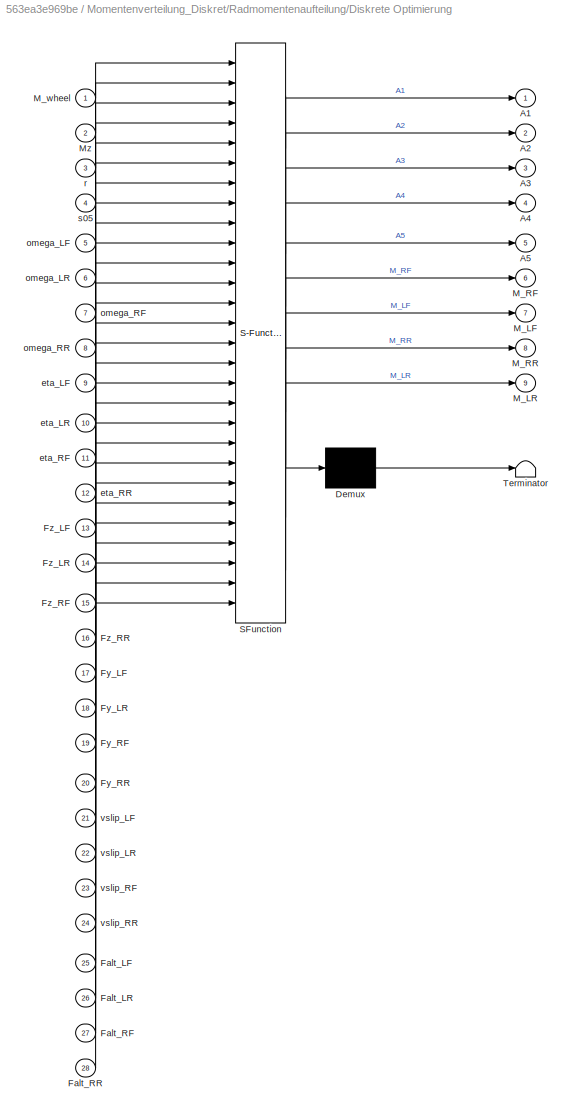
BLOCK [SubSystem] Momentenverteilung_Diskret/Radmomentenaufteilung/Diskrete Optimierung
  ErrorFcn = Stateflow.Translate.translate
  PermitHierarchicalResolution = ExplicitOnly
  Ports = [28, 9]
  RequestExecContextInheritance = off
  SFBlockType = MATLAB Function
  TreatAsAtomicUnit = on
BLOCK [Demux] Momentenverteilung_Diskret/Radmomentenaufteilung/Diskrete Optimierung/ Demux 
  Outputs = 1
  Ports = [1, 1]
BLOCK [S-Function] Momentenverteilung_Diskret/Radmomentenaufteilung/Diskrete Optimierung/ SFunction 
  EnableBusSupport = off
  FunctionName = sf_sfun
  PortCounts = [28 10]
  Ports = [28, 10]
  SFcnIsStateOwnerBlock = off
  SFunctionDeploymentMode = off
  Tag = Stateflow S-Function Library_Betriebsstrategie 6
BLOCK [Terminator] Momentenverteilung_Diskret/Radmomentenaufteilung/Diskrete Optimierung/ Terminator 
BLOCK [Outport] Momentenverteilung_Diskret/Radmomentenaufteilung/Diskrete Optimierung/A1
  IconDisplay = Port number
BLOCK [Outport] Momentenverteilung_Diskret/Radmomentenaufteilung/Diskrete Optimierung/A2
  IconDisplay = Port number
  Port = 2
BLOCK [Outport] Momentenverteilung_Diskret/Radmomentenaufteilung/Diskrete Optimierung/A3
  IconDisplay = Port number
  Port = 3
BLOCK [Outport] Momentenverteilung_Diskret/Radmomentenaufteilung/Diskrete Optimierung/A4
  IconDisplay = Port number
  Port = 4
BLOCK [Outport] Momentenverteilung_Diskret/Radmomentenaufteilung/Diskrete Optimierung/A5
  IconDisplay = Port number
  Port = 5
BLOCK [Inport] Momentenverteilung_Diskret/Radmomentenaufteilung/Diskrete Optimierung/Falt_LF
  IconDisplay = Port number
  Port = 25
BLOCK [Inport] Momentenverteilung_Diskret/Radmomentenaufteilung/Diskrete Optimierung/Falt_LR
  IconDisplay = Port number
  Port = 26
BLOCK [Inport] Momentenverteilung_Diskret/Radmomentenaufteilung/Diskrete Optimierung/Falt_RF
  IconDisplay = Port number
  Port = 27
BLOCK [Inport] Momentenverteilung_Diskret/Radmomentenaufteilung/Diskrete Optimierung/Falt_RR
  IconDisplay = Port number
  Port = 28
BLOCK [Inport] Momentenverteilung_Diskret/Radmomentenaufteilung/Diskrete Optimierung/Fy_LF
  IconDisplay = Port number
  Port = 17
BLOCK [Inport] Momentenverteilung_Diskret/Radmomentenaufteilung/Diskrete Optimierung/Fy_LR
  IconDisplay = Port number
  Port = 18
BLOCK [Inport] Momentenverteilung_Diskret/Radmomentenaufteilung/Diskrete Optimierung/Fy_RF
  IconDisplay = Port number
  Port = 19
BLOCK [Inport] Momentenverteilung_Diskret/Radmomentenaufteilung/Diskrete Optimierung/Fy_RR
  IconDisplay = Port number
  Port = 20
BLOCK [Inport] Momentenverteilung_Diskret/Radmomentenaufteilung/Diskrete Optimierung/Fz_LF
  IconDisplay = Port number
  Port = 13
BLOCK [Inport] Momentenverteilung_Diskret/Radmomentenaufteilung/Diskrete Optimierung/Fz_LR
  IconDisplay = Port number
  Port = 14
BLOCK [Inport] Momentenverteilung_Diskret/Radmomentenaufteilung/Diskrete Optimierung/Fz_RF
  IconDisplay = Port number
  Port = 15
BLOCK [Inport] Momentenverteilung_Diskret/Radmomentenaufteilung/Diskrete Optimierung/Fz_RR
  IconDisplay = Port number
  Port = 16
BLOCK [Outport] Momentenverteilung_Diskret/Radmomentenaufteilung/Diskrete Optimierung/M_LF
  IconDisplay = Port number
  Port = 7
BLOCK [Outport] Momentenverteilung_Diskret/Radmomentenaufteilung/Diskrete Optimierung/M_LR
  IconDisplay = Port number
  Port = 9
BLOCK [Outport] Momentenverteilung_Diskret/Radmomentenaufteilung/Diskrete Optimierung/M_RF
  IconDisplay = Port number
  Port = 6
BLOCK [Outport] Momentenverteilung_Diskret/Radmomentenaufteilung/Diskrete Optimierung/M_RR
  IconDisplay = Port number
  Port = 8
BLOCK [Inport] Momentenverteilung_Diskret/Radmomentenaufteilung/Diskrete Optimierung/M_wheel
  IconDisplay = Port number
BLOCK [Inport] Momentenverteilung_Diskret/Radmomentenaufteilung/Diskrete Optimierung/Mz
  IconDisplay = Port number
  Port = 2
BLOCK [Inport] Momentenverteilung_Diskret/Radmomentenaufteilung/Diskrete Optimierung/eta_LF
  IconDisplay = Port number
  Port = 9
BLOCK [Inport] Momentenverteilung_Diskret/Radmomentenaufteilung/Diskrete Optimierung/eta_LR
  IconDisplay = Port number
  Port = 10
BLOCK [Inport] Momentenverteilung_Diskret/Radmomentenaufteilung/Diskrete Optimierung/eta_RF
  IconDisplay = Port number
  Port = 11
BLOCK [Inport] Momentenverteilung_Diskret/Radmomentenaufteilung/Diskrete Optimierung/eta_RR
  IconDisplay = Port number
  Port = 12
BLOCK [Inport] Momentenverteilung_Diskret/Radmomentenaufteilung/Diskrete Optimierung/omega_LF
  IconDisplay = Port number
  Port = 5
BLOCK [Inport] Momentenverteilung_Diskret/Radmomentenaufteilung/Diskrete Optimierung/omega_LR
  IconDisplay = Port number
  Port = 6
BLOCK [Inport] Momentenverteilung_Diskret/Radmomentenaufteilung/Diskrete Optimierung/omega_RF
  IconDisplay = Port number
  Port = 7
BLOCK [Inport] Momentenverteilung_Diskret/Radmomentenaufteilung/Diskrete Optimierung/omega_RR
  IconDisplay = Port number
  Port = 8
BLOCK [Inport] Momentenverteilung_Diskret/Radmomentenaufteilung/Diskrete Optimierung/r
  IconDisplay = Port number
  Port = 3
BLOCK [Inport] Momentenverteilung_Diskret/Radmomentenaufteilung/Diskrete Optimierung/s05
  IconDisplay = Port number
  Port = 4
BLOCK [Inport] Momentenverteilung_Diskret/Radmomentenaufteilung/Diskrete Optimierung/vslip_LF
  IconDisplay = Port number
  Port = 21
BLOCK [Inport] Momentenverteilung_Diskret/Radmomentenaufteilung/Diskrete Optimierung/vslip_LR
  IconDisplay = Port number
  Port = 22
BLOCK [Inport] Momentenverteilung_Diskret/Radmomentenaufteilung/Diskrete Optimierung/vslip_RF
  IconDisplay = Port number
  Port = 23
BLOCK [Inport] Momentenverteilung_Diskret/Radmomentenaufteilung/Diskrete Optimierung/vslip_RR
  IconDisplay = Port number
  Port = 24
BLOCK [Gain] Momentenverteilung_Diskret/Radmomentenaufteilung/Gain
  Gain = 1/(par_VEH.r_stat0)
  OutDataTypeStr = Inherit: Inherit via internal rule
  ParamDataTypeStr = Inherit: Inherit via internal rule
  SaturateOnIntegerOverflow = off
BLOCK [Gain] Momentenverteilung_Diskret/Radmomentenaufteilung/Gain1
  Gain = 1/(par_VEH.r_stat0)
  OutDataTypeStr = Inherit: Inherit via internal rule
  ParamDataTypeStr = Inherit: Inherit via internal rule
  SaturateOnIntegerOverflow = off
BLOCK [Gain] Momentenverteilung_Diskret/Radmomentenaufteilung/Gain2
  Gain = 1/(par_VEH.r_stat0)
  OutDataTypeStr = Inherit: Inherit via internal rule
  ParamDataTypeStr = Inherit: Inherit via internal rule
  SaturateOnIntegerOverflow = off
BLOCK [Gain] Momentenverteilung_Diskret/Radmomentenaufteilung/Gain3
  Gain = 1/(par_VEH.r_stat0)
  OutDataTypeStr = Inherit: Inherit via internal rule
  ParamDataTypeStr = Inherit: Inherit via internal rule
  SaturateOnIntegerOverflow = off
BLOCK [Inport] Momentenverteilung_Diskret/Radmomentenaufteilung/Input
  IconDisplay = Port number
BLOCK [Outport] Momentenverteilung_Diskret/Radmomentenaufteilung/M_antr
  IconDisplay = Port number
BLOCK [Inport] Momentenverteilung_Diskret/Radmomentenaufteilung/M_wheel
  IconDisplay = Port number
  Port = 3
BLOCK [Inport] Momentenverteilung_Diskret/Radmomentenaufteilung/M_z_desired
  IconDisplay = Port number
  Port = 2
BLOCK [Memory] Momentenverteilung_Diskret/Radmomentenaufteilung/Memory
BLOCK [Memory] Momentenverteilung_Diskret/Radmomentenaufteilung/Memory1
BLOCK [Memory] Momentenverteilung_Diskret/Radmomentenaufteilung/Memory2
BLOCK [Memory] Momentenverteilung_Diskret/Radmomentenaufteilung/Memory3
BLOCK [Product] Momentenverteilung_Diskret/Radmomentenaufteilung/Mult
  InputSameDT = off
  Inputs = **
  OutDataTypeStr = Inherit: Inherit via internal rule
  Ports = [2, 1]
  RndMeth = Floor
  SaturateOnIntegerOverflow = off
BLOCK [Product] Momentenverteilung_Diskret/Radmomentenaufteilung/Mult1
  InputSameDT = off
  Inputs = **
  OutDataTypeStr = Inherit: Inherit via internal rule
  Ports = [2, 1]
  RndMeth = Floor
  SaturateOnIntegerOverflow = off
BLOCK [Product] Momentenverteilung_Diskret/Radmomentenaufteilung/Mult2
  InputSameDT = off
  Inputs = **
  OutDataTypeStr = Inherit: Inherit via internal rule
  Ports = [2, 1]
  RndMeth = Floor
  SaturateOnIntegerOverflow = off
BLOCK [Product] Momentenverteilung_Diskret/Radmomentenaufteilung/Mult3
  InputSameDT = off
  Inputs = **
  OutDataTypeStr = Inherit: Inherit via internal rule
  Ports = [2, 1]
  RndMeth = Floor
  SaturateOnIntegerOverflow = off
BLOCK [Scope] Momentenverteilung_Diskret/Radmomentenaufteilung/Scope
  Floating = off
  NumInputPorts = 4
  Ports = [4]
  ScopeSpecificationString = Simulink.scopes.TimeScopeBlockCfg('CurrentConfiguration', extmgr.ConfigurationSet(extmgr.Configuration('Core','General UI',true),extmgr.Configuration('Core','Source UI',true),extmgr.Configuration('Sources','WiredSimulink',true),extmgr.Configuration('Visuals','Time Domain',true,'SerializedDisplays',{struct('MinYLimReal','-32.82748','MaxYLimReal','295.44735','YLabelReal','','MinYLimMag','0.00000','M...<+1401ch>
BLOCK [ToWorkspace] Momentenverteilung_Diskret/Radmomentenaufteilung/To Workspace1
  Decimation = savedec
  FixptAsFi = on
  MaxDataPoints = inf
  Ports = [1]
  SampleTime = 0.1
  Save2DSignal = 3-D array (concatenate along third dimension)
  VariableName = sv_P_delta
BLOCK [ToWorkspace] Momentenverteilung_Diskret/Radmomentenaufteilung/To Workspace11
  Decimation = savedec
  FixptAsFi = on
  MaxDataPoints = inf
  Ports = [1]
  SampleTime = 0.1
  Save2DSignal = 3-D array (concatenate along third dimension)
  VariableName = sv_P_TV
BLOCK [ToWorkspace] Momentenverteilung_Diskret/Radmomentenaufteilung/To Workspace2
  Decimation = savedec
  FixptAsFi = on
  MaxDataPoints = inf
  Ports = [1]
  SampleTime = 0.1
  Save2DSignal = 3-D array (concatenate along third dimension)
  VariableName = sv_P_slip
BLOCK [ToWorkspace] Momentenverteilung_Diskret/Radmomentenaufteilung/To Workspace3
  Decimation = savedec
  FixptAsFi = on
  MaxDataPoints = inf
  Ports = [1]
  SampleTime = 0.1
  Save2DSignal = 3-D array (concatenate along third dimension)
  VariableName = sv_P_trac
BLOCK [ToWorkspace] Momentenverteilung_Diskret/Radmomentenaufteilung/To Workspace4
  Decimation = savedec
  FixptAsFi = on
  MaxDataPoints = inf
  Ports = [1]
  SampleTime = 0.1
  Save2DSignal = 3-D array (concatenate along third dimension)
  VariableName = sv_P_min
BLOCK [Constant] Momentenverteilung_Diskret/Radmomentenaufteilung/epsilon
  Value = 0.0015
BLOCK [Constant] Momentenverteilung_Diskret/Radmomentenaufteilung/epsilon1
  Value = 0.0015
BLOCK [Constant] Momentenverteilung_Diskret/Radmomentenaufteilung/epsilon2
  Value = 0.0015
BLOCK [Constant] Momentenverteilung_Diskret/Radmomentenaufteilung/epsilon3
  Value = 0.0015
BLOCK [Constant] Momentenverteilung_Diskret/Radmomentenaufteilung/r_stat
  Value = par_VEH.r_stat0
BLOCK [Constant] Momentenverteilung_Diskret/Radmomentenaufteilung/s05
  Value = (par_VEH.sF05 + par_VEH.sR05)*0.5
BLOCK [Scope] Momentenverteilung_Diskret/Scope
  Floating = off
  NumInputPorts = 2
  Ports = [2]
  ScopeSpecificationString = Simulink.scopes.TimeScopeBlockCfg('CurrentConfiguration', extmgr.ConfigurationSet(extmgr.Configuration('Core','General UI',true),extmgr.Configuration('Core','Source UI',true),extmgr.Configuration('Sources','WiredSimulink',true,'DataLoggingVariableName','ScopeData2'),extmgr.Configuration('Visuals','Time Domain',true,'SerializedDisplays',{struct('MinYLimReal','-89.05711','MaxYLimReal','287.67301','Y...<+1394ch>
BLOCK [Inport] Momentenverteilung_Diskret/delta_wheel
  IconDisplay = Port number
  Port = 2
BLOCK [Inport] Momentenverteilung_Diskret/input
  IconDisplay = Port number
  Port = 3
BLOCK [SubSystem] Momentenverteilung_Fmincon
  Ports = [3, 2]
  RequestExecContextInheritance = off
BLOCK [BusSelector] Momentenverteilung_Fmincon/Bus Selector3
  OutputAsBus = off
  OutputSignals = x.vx
  Ports = [1, 1]
BLOCK [Constant] Momentenverteilung_Fmincon/Constant1
  Value = par_VEH.bkv
BLOCK [SubSystem] Momentenverteilung_Fmincon/Feedback Controller
  Ports = [2, 1]
  RequestExecContextInheritance = off
BLOCK [Gain] Momentenverteilung_Fmincon/Feedback Controller/-1
  Gain = -1
  OutDataTypeStr = Inherit: Inherit via internal rule
  ParamDataTypeStr = Inherit: Inherit via internal rule
  SaturateOnIntegerOverflow = off
BLOCK [Abs] Momentenverteilung_Fmincon/Feedback Controller/Abs
  SaturateOnIntegerOverflow = off
BLOCK [Sum] Momentenverteilung_Fmincon/Feedback Controller/Add
  InputSameDT = off
  OutDataTypeStr = Inherit: Inherit via internal rule
  Ports = [2, 1]
  SaturateOnIntegerOverflow = off
BLOCK [BusSelector] Momentenverteilung_Fmincon/Feedback Controller/Bus Selector2
  OutputAsBus = off
  OutputSignals = psi.psip
  Ports = [1, 1]
BLOCK [Constant] Momentenverteilung_Fmincon/Feedback Controller/Constant1
  Value = par_VEH.Iz
BLOCK [Reference] Momentenverteilung_Fmincon/Feedback Controller/Discrete D  REF=simulink/Discrete/Discrete Derivative
  Ports = [1, 1]
  SourceBlock = simulink/Discrete/Discrete Derivative
  SourceProductBaseCode = SL
  SourceProductName = Simulink
  SourceType = Discrete Derivative
BLOCK [DiscreteIntegrator] Momentenverteilung_Fmincon/Feedback Controller/Discrete-Time Integrator
  ICPrevOutput = DiscIntNeverNeededParam
  ICPrevScaledInput = DiscIntNeverNeededParam
  InitialConditionSetting = Auto
  Ports = [1, 1]
  SampleTime = -1
BLOCK [Product] Momentenverteilung_Fmincon/Feedback Controller/Divide
  InputSameDT = off
  Inputs = */
  OutDataTypeStr = Inherit: Inherit via internal rule
  Ports = [2, 1]
  RndMeth = Floor
  SaturateOnIntegerOverflow = off
BLOCK [Product] Momentenverteilung_Fmincon/Feedback Controller/Divide1
  InputSameDT = off
  Inputs = */
  OutDataTypeStr = Inherit: Inherit via internal rule
  Ports = [2, 1]
  RndMeth = Floor
  SaturateOnIntegerOverflow = off
BLOCK [Constant] Momentenverteilung_Fmincon/Feedback Controller/Einheitenkorrektur
  Value = 1000
BLOCK [Gain] Momentenverteilung_Fmincon/Feedback Controller/Gain
  Gain = 0.5
  OutDataTypeStr = Inherit: Inherit via internal rule
  ParamDataTypeStr = Inherit: Inherit via internal rule
  SaturateOnIntegerOverflow = off
BLOCK [Inport] Momentenverteilung_Fmincon/Feedback Controller/Gierrate ref
  IconDisplay = Port number
  Port = 2
BLOCK [Inport] Momentenverteilung_Fmincon/Feedback Controller/Input
  IconDisplay = Port number
BLOCK [Gain] Momentenverteilung_Fmincon/Feedback Controller/K
  Gain = 8
  OutDataTypeStr = Inherit: Inherit via internal rule
  ParamDataTypeStr = Inherit: Inherit via internal rule
  SaturateOnIntegerOverflow = off
BLOCK [Outport] Momentenverteilung_Fmincon/Feedback Controller/M_z_desired
  IconDisplay = Port number
BLOCK [Memory] Momentenverteilung_Fmincon/Feedback Controller/Memory
  LinearizeAsDelay = on
BLOCK [Product] Momentenverteilung_Fmincon/Feedback Controller/Product
  InputSameDT = off
  OutDataTypeStr = Inherit: Inherit via internal rule
  Ports = [2, 1]
  RndMeth = Floor
  SaturateOnIntegerOverflow = off
BLOCK [Sum] Momentenverteilung_Fmincon/Feedback Controller/Sum
  IconShape = round
  InputSameDT = off
  Inputs = |-+
  OutDataTypeStr = Inherit: Inherit via internal rule
  Ports = [2, 1]
  SaturateOnIntegerOverflow = off
BLOCK [Sum] Momentenverteilung_Fmincon/Feedback Controller/Sum1
  IconShape = round
  InputSameDT = off
  Inputs = |+-
  OutDataTypeStr = Inherit: Inherit via internal rule
  Ports = [2, 1]
  SaturateOnIntegerOverflow = off
BLOCK [UnitDelay] Momentenverteilung_Fmincon/Feedback Controller/Unit Delay
  InputProcessing = Elements as channels (sample based)
  SampleTime = 0.1
BLOCK [SubSystem] Momentenverteilung_Fmincon/Feedback Controller/Zero Crossing
  Ports = [4, 1]
  RequestExecContextInheritance = off
BLOCK [Product] Momentenverteilung_Fmincon/Feedback Controller/Zero Crossing/Product
  InputSameDT = off
  OutDataTypeStr = Inherit: Inherit via internal rule
  Ports = [2, 1]
  RndMeth = Floor
  SaturateOnIntegerOverflow = off
BLOCK [Switch] Momentenverteilung_Fmincon/Feedback Controller/Zero Crossing/Switch
  Criteria = u2 > Threshold
  InputSameDT = off
  SaturateOnIntegerOverflow = off
BLOCK [Inport] Momentenverteilung_Fmincon/Feedback Controller/Zero Crossing/de0
  IconDisplay = Port number
BLOCK [Inport] Momentenverteilung_Fmincon/Feedback Controller/Zero Crossing/de1
  IconDisplay = Port number
  Port = 2
BLOCK [Inport] Momentenverteilung_Fmincon/Feedback Controller/Zero Crossing/e0
  IconDisplay = Port number
  Port = 3
BLOCK [Inport] Momentenverteilung_Fmincon/Feedback Controller/Zero Crossing/e1
  IconDisplay = Port number
  Port = 4
BLOCK [Outport] Momentenverteilung_Fmincon/Feedback Controller/Zero Crossing/error(Tc)
  IconDisplay = Port number
BLOCK [Constant] Momentenverteilung_Fmincon/Feedback Controller/epsilon
  Value = 0.015
BLOCK [SubSystem] Momentenverteilung_Fmincon/Gierrate Referenz Berechnung
  Ports = [2, 1]
  RequestExecContextInheritance = off
BLOCK [Constant] Momentenverteilung_Fmincon/Gierrate Referenz Berechnung/2 Räder
  Value = 0.5
BLOCK [Abs] Momentenverteilung_Fmincon/Gierrate Referenz Berechnung/Abs
  SaturateOnIntegerOverflow = off
BLOCK [Abs] Momentenverteilung_Fmincon/Gierrate Referenz Berechnung/Abs1
  SaturateOnIntegerOverflow = off
BLOCK [Sum] Momentenverteilung_Fmincon/Gierrate Referenz Berechnung/Add
  InputSameDT = off
  OutDataTypeStr = Inherit: Inherit via internal rule
  Ports = [2, 1]
  SaturateOnIntegerOverflow = off
BLOCK [Sum] Momentenverteilung_Fmincon/Gierrate Referenz Berechnung/Add1
  InputSameDT = off
  Inputs = +--
  OutDataTypeStr = Inherit: Inherit via internal rule
  Ports = [3, 1]
  SaturateOnIntegerOverflow = off
BLOCK [Sum] Momentenverteilung_Fmincon/Gierrate Referenz Berechnung/Add2
  InputSameDT = off
  OutDataTypeStr = Inherit: Inherit via internal rule
  Ports = [2, 1]
  SaturateOnIntegerOverflow = off
BLOCK [BusSelector] Momentenverteilung_Fmincon/Gierrate Referenz Berechnung/Bus Selector1
  OutputAsBus = off
  OutputSignals = delta_RF,delta_LF
  Ports = [1, 2]
BLOCK [BusSelector] Momentenverteilung_Fmincon/Gierrate Referenz Berechnung/Bus Selector2
  OutputAsBus = off
  OutputSignals = x.ax,beta.beta,beta.betap,x.vx
  Ports = [1, 4]
BLOCK [Constant] Momentenverteilung_Fmincon/Gierrate Referenz Berechnung/Constant1
  Value = par_VEH.g
BLOCK [Constant] Momentenverteilung_Fmincon/Gierrate Referenz Berechnung/Constant10
  Value = par_VEH.l
BLOCK [Constant] Momentenverteilung_Fmincon/Gierrate Referenz Berechnung/Constant20
  Value = mu_road
BLOCK [Product] Momentenverteilung_Fmincon/Gierrate Referenz Berechnung/Divide
  InputSameDT = off
  Inputs = */
  OutDataTypeStr = Inherit: Inherit via internal rule
  Ports = [2, 1]
  RndMeth = Floor
  SaturateOnIntegerOverflow = off
BLOCK [Product] Momentenverteilung_Fmincon/Gierrate Referenz Berechnung/Divide1
  InputSameDT = off
  Inputs = **/
  OutDataTypeStr = Inherit: Inherit via internal rule
  Ports = [3, 1]
  RndMeth = Floor
  SaturateOnIntegerOverflow = off
BLOCK [Product] Momentenverteilung_Fmincon/Gierrate Referenz Berechnung/Divide2
  InputSameDT = off
  Inputs = **/
  OutDataTypeStr = Inherit: Inherit via internal rule
  Ports = [3, 1]
  RndMeth = Floor
  SaturateOnIntegerOverflow = off
BLOCK [Product] Momentenverteilung_Fmincon/Gierrate Referenz Berechnung/Divide3
  InputSameDT = off
  Inputs = */
  OutDataTypeStr = Inherit: Inherit via internal rule
  Ports = [2, 1]
  RndMeth = Floor
  SaturateOnIntegerOverflow = off
BLOCK [Outport] Momentenverteilung_Fmincon/Gierrate Referenz Berechnung/Gierrate ref
  IconDisplay = Port number
BLOCK [Constant] Momentenverteilung_Fmincon/Gierrate Referenz Berechnung/Kus
  Value = 0
BLOCK [Product] Momentenverteilung_Fmincon/Gierrate Referenz Berechnung/Product
  InputSameDT = off
  OutDataTypeStr = Inherit: Inherit via internal rule
  Ports = [2, 1]
  RndMeth = Floor
  SaturateOnIntegerOverflow = off
BLOCK [Product] Momentenverteilung_Fmincon/Gierrate Referenz Berechnung/Product1
  InputSameDT = off
  OutDataTypeStr = Inherit: Inherit via internal rule
  Ports = [2, 1]
  RndMeth = Floor
  SaturateOnIntegerOverflow = off
BLOCK [Product] Momentenverteilung_Fmincon/Gierrate Referenz Berechnung/Product2
  InputSameDT = off
  OutDataTypeStr = Inherit: Inherit via internal rule
  Ports = [2, 1]
  RndMeth = Floor
  SaturateOnIntegerOverflow = off
BLOCK [Gain] Momentenverteilung_Fmincon/Gierrate Referenz Berechnung/Sicherheitsfaktor
  Gain = 0.90
  OutDataTypeStr = Inherit: Inherit via internal rule
  ParamDataTypeStr = Inherit: Inherit via internal rule
  SaturateOnIntegerOverflow = off
BLOCK [Signum] Momentenverteilung_Fmincon/Gierrate Referenz Berechnung/Sign
BLOCK [Sqrt] Momentenverteilung_Fmincon/Gierrate Referenz Berechnung/Sqrt
BLOCK [Sum] Momentenverteilung_Fmincon/Gierrate Referenz Berechnung/Sum
  IconShape = round
  InputSameDT = off
  Inputs = |++
  OutDataTypeStr = Inherit: Inherit via internal rule
  Ports = [2, 1]
  SaturateOnIntegerOverflow = off
BLOCK [Sum] Momentenverteilung_Fmincon/Gierrate Referenz Berechnung/Sum1
  IconShape = round
  InputSameDT = off
  Inputs = |++
  OutDataTypeStr = Inherit: Inherit via internal rule
  Ports = [2, 1]
  SaturateOnIntegerOverflow = off
BLOCK [Product] Momentenverteilung_Fmincon/Gierrate Referenz Berechnung/delta mittel
  InputSameDT = off
  OutDataTypeStr = Inherit: Inherit via internal rule
  Ports = [2, 1]
  RndMeth = Floor
  SaturateOnIntegerOverflow = off
BLOCK [Inport] Momentenverteilung_Fmincon/Gierrate Referenz Berechnung/delta_wheel
  IconDisplay = Port number
  Port = 2
BLOCK [Constant] Momentenverteilung_Fmincon/Gierrate Referenz Berechnung/eins
BLOCK [Constant] Momentenverteilung_Fmincon/Gierrate Referenz Berechnung/epsilon
  Value = 0.0015
BLOCK [Inport] Momentenverteilung_Fmincon/Gierrate Referenz Berechnung/input
  IconDisplay = Port number
BLOCK [MinMax] Momentenverteilung_Fmincon/Gierrate Referenz Berechnung/min
  InputSameDT = off
  Inputs = 2
  Ports = [2, 1]
  SaturateOnIntegerOverflow = off
BLOCK [Trigonometry] Momentenverteilung_Fmincon/Gierrate Referenz Berechnung/tan (beta)1
  Operator = tan
  Ports = [1, 1]
BLOCK [Math] Momentenverteilung_Fmincon/Gierrate Referenz Berechnung/tan^2 (beta)1
  Operator = square
  Ports = [1, 1]
BLOCK [Math] Momentenverteilung_Fmincon/Gierrate Referenz Berechnung/vx^2
  Operator = square
  Ports = [1, 1]
BLOCK [SubSystem] Momentenverteilung_Fmincon/Limitierungen gesamt
  Ports = [2, 1]
  RequestExecContextInheritance = off
BLOCK [BusCreator] Momentenverteilung_Fmincon/Limitierungen gesamt/Bus Creator
  DisplayOption = bar
  InheritFromInputs = on
  Inputs = 8
  Ports = [8, 1]
BLOCK [BusSelector] Momentenverteilung_Fmincon/Limitierungen gesamt/Bus Selector
  OutputAsBus = off
  OutputSignals = FxlimRF,FxlimLF,FxlimRR,FxlimLR
  Ports = [1, 4]
BLOCK [BusSelector] Momentenverteilung_Fmincon/Limitierungen gesamt/Bus Selector1
  OutputAsBus = off
  OutputSignals = M_RF_ub,M_RF_lb,M_LF_ub,M_LF_lb,M_RR_ub,M_RR_lb,M_LR_ub,M_LR_lb
  Ports = [1, 8]
BLOCK [Product] Momentenverteilung_Fmincon/Limitierungen gesamt/Divide
  InputSameDT = off
  Inputs = */
  OutDataTypeStr = Inherit: Inherit via internal rule
  Ports = [2, 1]
  RndMeth = Floor
  SaturateOnIntegerOverflow = off
BLOCK [Product] Momentenverteilung_Fmincon/Limitierungen gesamt/Divide1
  InputSameDT = off
  Inputs = */
  OutDataTypeStr = Inherit: Inherit via internal rule
  Ports = [2, 1]
  RndMeth = Floor
  SaturateOnIntegerOverflow = off
BLOCK [Product] Momentenverteilung_Fmincon/Limitierungen gesamt/Divide2
  InputSameDT = off
  Inputs = */
  OutDataTypeStr = Inherit: Inherit via internal rule
  Ports = [2, 1]
  RndMeth = Floor
  SaturateOnIntegerOverflow = off
BLOCK [Product] Momentenverteilung_Fmincon/Limitierungen gesamt/Divide3
  InputSameDT = off
  Inputs = */
  OutDataTypeStr = Inherit: Inherit via internal rule
  Ports = [2, 1]
  RndMeth = Floor
  SaturateOnIntegerOverflow = off
BLOCK [Product] Momentenverteilung_Fmincon/Limitierungen gesamt/Divide4
  InputSameDT = off
  Inputs = */
  OutDataTypeStr = Inherit: Inherit via internal rule
  Ports = [2, 1]
  RndMeth = Floor
  SaturateOnIntegerOverflow = off
BLOCK [Product] Momentenverteilung_Fmincon/Limitierungen gesamt/Divide5
  InputSameDT = off
  Inputs = */
  OutDataTypeStr = Inherit: Inherit via internal rule
  Ports = [2, 1]
  RndMeth = Floor
  SaturateOnIntegerOverflow = off
BLOCK [Product] Momentenverteilung_Fmincon/Limitierungen gesamt/Divide6
  InputSameDT = off
  Inputs = */
  OutDataTypeStr = Inherit: Inherit via internal rule
  Ports = [2, 1]
  RndMeth = Floor
  SaturateOnIntegerOverflow = off
BLOCK [Product] Momentenverteilung_Fmincon/Limitierungen gesamt/Divide7
  InputSameDT = off
  Inputs = */
  OutDataTypeStr = Inherit: Inherit via internal rule
  Ports = [2, 1]
  RndMeth = Floor
  SaturateOnIntegerOverflow = off
BLOCK [Inport] Momentenverteilung_Fmincon/Limitierungen gesamt/Fx_limit
  IconDisplay = Port number
BLOCK [Outport] Momentenverteilung_Fmincon/Limitierungen gesamt/Fx_limits
  IconDisplay = Port number
BLOCK [Gain] Momentenverteilung_Fmincon/Limitierungen gesamt/Gain
  Gain = -1
  OutDataTypeStr = Inherit: Inherit via internal rule
  ParamDataTypeStr = Inherit: Inherit via internal rule
  SaturateOnIntegerOverflow = off
BLOCK [Gain] Momentenverteilung_Fmincon/Limitierungen gesamt/Gain1
  Gain = -1
  OutDataTypeStr = Inherit: Inherit via internal rule
  ParamDataTypeStr = Inherit: Inherit via internal rule
  SaturateOnIntegerOverflow = off
BLOCK [Gain] Momentenverteilung_Fmincon/Limitierungen gesamt/Gain2
  Gain = -1
  OutDataTypeStr = Inherit: Inherit via internal rule
  ParamDataTypeStr = Inherit: Inherit via internal rule
  SaturateOnIntegerOverflow = off
BLOCK [Gain] Momentenverteilung_Fmincon/Limitierungen gesamt/Gain3
  Gain = -1
  OutDataTypeStr = Inherit: Inherit via internal rule
  ParamDataTypeStr = Inherit: Inherit via internal rule
  SaturateOnIntegerOverflow = off
BLOCK [Inport] Momentenverteilung_Fmincon/Limitierungen gesamt/M_limit
  IconDisplay = Port number
  Port = 2
BLOCK [MinMax] Momentenverteilung_Fmincon/Limitierungen gesamt/Max_FL
  Function = max
  InputSameDT = off
  Inputs = 2
  Ports = [2, 1]
  SaturateOnIntegerOverflow = off
BLOCK [MinMax] Momentenverteilung_Fmincon/Limitierungen gesamt/Max_FR
  Function = max
  InputSameDT = off
  Inputs = 2
  Ports = [2, 1]
  SaturateOnIntegerOverflow = off
BLOCK [MinMax] Momentenverteilung_Fmincon/Limitierungen gesamt/Max_FR1
  Function = max
  InputSameDT = off
  Inputs = 2
  Ports = [2, 1]
  SaturateOnIntegerOverflow = off
BLOCK [MinMax] Momentenverteilung_Fmincon/Limitierungen gesamt/Max_RR
  Function = max
  InputSameDT = off
  Inputs = 2
  Ports = [2, 1]
  SaturateOnIntegerOverflow = off
BLOCK [MinMax] Momentenverteilung_Fmincon/Limitierungen gesamt/Min_FL
  InputSameDT = off
  Inputs = 2
  Ports = [2, 1]
  SaturateOnIntegerOverflow = off
BLOCK [MinMax] Momentenverteilung_Fmincon/Limitierungen gesamt/Min_FR
  InputSameDT = off
  Inputs = 2
  Ports = [2, 1]
  SaturateOnIntegerOverflow = off
BLOCK [MinMax] Momentenverteilung_Fmincon/Limitierungen gesamt/Min_FR1
  InputSameDT = off
  Inputs = 2
  Ports = [2, 1]
  SaturateOnIntegerOverflow = off
BLOCK [MinMax] Momentenverteilung_Fmincon/Limitierungen gesamt/Min_RR
  InputSameDT = off
  Inputs = 2
  Ports = [2, 1]
  SaturateOnIntegerOverflow = off
BLOCK [Constant] Momentenverteilung_Fmincon/Limitierungen gesamt/r_stat0
  Value = par_VEH.r_stat0
BLOCK [Constant] Momentenverteilung_Fmincon/Limitierungen gesamt/r_stat1
  Value = par_VEH.r_stat0
BLOCK [Constant] Momentenverteilung_Fmincon/Limitierungen gesamt/r_stat2
  Value = par_VEH.r_stat0
BLOCK [Constant] Momentenverteilung_Fmincon/Limitierungen gesamt/r_stat3
  Value = par_VEH.r_stat0
BLOCK [Constant] Momentenverteilung_Fmincon/Limitierungen gesamt/r_stat4
  Value = par_VEH.r_stat0
BLOCK [Constant] Momentenverteilung_Fmincon/Limitierungen gesamt/r_stat5
  Value = par_VEH.r_stat0
BLOCK [Constant] Momentenverteilung_Fmincon/Limitierungen gesamt/r_stat6
  Value = par_VEH.r_stat0
BLOCK [Constant] Momentenverteilung_Fmincon/Limitierungen gesamt/r_stat7
  Value = par_VEH.r_stat0
BLOCK [Outport] Momentenverteilung_Fmincon/M_antr
  IconDisplay = Port number
BLOCK [Outport] Momentenverteilung_Fmincon/M_brems
  IconDisplay = Port number
  Port = 2
BLOCK [Inport] Momentenverteilung_Fmincon/M_wheel
  IconDisplay = Port number
BLOCK [Memory] Momentenverteilung_Fmincon/Memory
BLOCK [SubSystem] Momentenverteilung_Fmincon/Momente für die Reibbremse
  Ports = [4, 1]
  RequestExecContextInheritance = off
BLOCK [Sum] Momentenverteilung_Fmincon/Momente für die Reibbremse/Add
  InputSameDT = off
  Inputs = -+
  OutDataTypeStr = Inherit: Inherit via internal rule
  Ports = [2, 1]
  SaturateOnIntegerOverflow = off
BLOCK [Sum] Momentenverteilung_Fmincon/Momente für die Reibbremse/Add1
  InputSameDT = off
  Inputs = ++++
  OutDataTypeStr = Inherit: Inherit via internal rule
  Ports = [4, 1]
  SaturateOnIntegerOverflow = off
BLOCK [Bias] Momentenverteilung_Fmincon/Momente für die Reibbremse/Bias
  Bias = -1
  SaturateOnIntegerOverflow = off
BLOCK [BusCreator] Momentenverteilung_Fmincon/Momente für die Reibbremse/Bus Creator1
  DisplayOption = bar
  InheritFromInputs = on
  Inputs = 4
  Ports = [4, 1]
BLOCK [BusSelector] Momentenverteilung_Fmincon/Momente für die Reibbremse/Bus Selector
  OutputAsBus = off
  OutputSignals = M_antr_LF,M_antr_LR,M_antr_RF,M_antr_RR
  Ports = [1, 4]
BLOCK [Inport] Momentenverteilung_Fmincon/Momente für die Reibbremse/M_antr
  IconDisplay = Port number
BLOCK [Outport] Momentenverteilung_Fmincon/Momente für die Reibbremse/M_brems
  IconDisplay = Port number
BLOCK [Inport] Momentenverteilung_Fmincon/Momente für die Reibbremse/M_wheel
  IconDisplay = Port number
  Port = 2
BLOCK [Product] Momentenverteilung_Fmincon/Momente für die Reibbremse/Product4
  InputSameDT = off
  Inputs = 3
  OutDataTypeStr = Inherit: Inherit via internal rule
  Ports = [3, 1]
  RndMeth = Floor
  SaturateOnIntegerOverflow = off
BLOCK [Product] Momentenverteilung_Fmincon/Momente für die Reibbremse/Product5
  InputSameDT = off
  Inputs = 3
  OutDataTypeStr = Inherit: Inherit via internal rule
  Ports = [3, 1]
  RndMeth = Floor
  SaturateOnIntegerOverflow = off
BLOCK [Saturate] Momentenverteilung_Fmincon/Momente für die Reibbremse/Saturation2
  InputPortMap = u0
  LowerLimit = -5000
  Ports = [1, 1]
  UpperLimit = 0
BLOCK [Signum] Momentenverteilung_Fmincon/Momente für die Reibbremse/Sign
BLOCK [SignalConversion] Momentenverteilung_Fmincon/Momente für die Reibbremse/Signal Conversion
  OverrideOpt = off
BLOCK [SignalConversion] Momentenverteilung_Fmincon/Momente für die Reibbremse/Signal Conversion1
  OverrideOpt = off
BLOCK [UnaryMinus] Momentenverteilung_Fmincon/Momente für die Reibbremse/Unary Minus
BLOCK [UnitDelay] Momentenverteilung_Fmincon/Momente für die Reibbremse/Unit Delay2
  InitialCondition = 2
  InputProcessing = Elements as channels (sample based)
  SampleTime = -1
BLOCK [Inport] Momentenverteilung_Fmincon/Momente für die Reibbremse/bkv
  IconDisplay = Port number
  Port = 4
BLOCK [Inport] Momentenverteilung_Fmincon/Momente für die Reibbremse/v_x
  IconDisplay = Port number
  Port = 3
BLOCK [SubSystem] Momentenverteilung_Fmincon/Motor Limits
  Ports = [1, 1]
  RequestExecContextInheritance = off
BLOCK [Sum] Momentenverteilung_Fmincon/Motor Limits/Add1
  InputSameDT = off
  OutDataTypeStr = Inherit: Inherit via internal rule
  Ports = [2, 1]
  SaturateOnIntegerOverflow = off
BLOCK [Sum] Momentenverteilung_Fmincon/Motor Limits/Add2
  InputSameDT = off
  OutDataTypeStr = Inherit: Inherit via internal rule
  Ports = [2, 1]
  SaturateOnIntegerOverflow = off
BLOCK [Sum] Momentenverteilung_Fmincon/Motor Limits/Add3
  InputSameDT = off
  OutDataTypeStr = Inherit: Inherit via internal rule
  Ports = [2, 1]
  SaturateOnIntegerOverflow = off
BLOCK [Sum] Momentenverteilung_Fmincon/Motor Limits/Add4
  InputSameDT = off
  OutDataTypeStr = Inherit: Inherit via internal rule
  Ports = [2, 1]
  SaturateOnIntegerOverflow = off
BLOCK [BusCreator] Momentenverteilung_Fmincon/Motor Limits/Bus Creator
  DisplayOption = bar
  InheritFromInputs = on
  Inputs = 8
  Ports = [8, 1]
BLOCK [BusSelector] Momentenverteilung_Fmincon/Motor Limits/Bus Selector
  OutputAsBus = off
  OutputSignals = omega
  Ports = [1, 1]
BLOCK [Demux] Momentenverteilung_Fmincon/Motor Limits/Demux
  DisplayOption = bar
  Ports = [1, 4]
BLOCK [Demux] Momentenverteilung_Fmincon/Motor Limits/Demux1
  DisplayOption = bar
  Ports = [1, 4]
BLOCK [Gain] Momentenverteilung_Fmincon/Motor Limits/Gain
  Gain = 0.5
  OutDataTypeStr = Inherit: Inherit via internal rule
  ParamDataTypeStr = Inherit: Inherit via internal rule
  SaturateOnIntegerOverflow = off
BLOCK [Gain] Momentenverteilung_Fmincon/Motor Limits/Gain1
  Gain = 0.5
  OutDataTypeStr = Inherit: Inherit via internal rule
  ParamDataTypeStr = Inherit: Inherit via internal rule
  SaturateOnIntegerOverflow = off
BLOCK [Gain] Momentenverteilung_Fmincon/Motor Limits/Gain2
  Gain = 0.5
  OutDataTypeStr = Inherit: Inherit via internal rule
  ParamDataTypeStr = Inherit: Inherit via internal rule
  SaturateOnIntegerOverflow = off
BLOCK [Gain] Momentenverteilung_Fmincon/Motor Limits/Gain3
  Gain = 0.5
  OutDataTypeStr = Inherit: Inherit via internal rule
  ParamDataTypeStr = Inherit: Inherit via internal rule
  SaturateOnIntegerOverflow = off
BLOCK [Gain] Momentenverteilung_Fmincon/Motor Limits/Gain4
  Gain = 0.5
  OutDataTypeStr = Inherit: Inherit via internal rule
  ParamDataTypeStr = Inherit: Inherit via internal rule
  SaturateOnIntegerOverflow = off
BLOCK [Gain] Momentenverteilung_Fmincon/Motor Limits/Gain5
  Gain = 0.5
  OutDataTypeStr = Inherit: Inherit via internal rule
  ParamDataTypeStr = Inherit: Inherit via internal rule
  SaturateOnIntegerOverflow = off
BLOCK [Gain] Momentenverteilung_Fmincon/Motor Limits/Gain6
  Gain = 0.5
  OutDataTypeStr = Inherit: Inherit via internal rule
  ParamDataTypeStr = Inherit: Inherit via internal rule
  SaturateOnIntegerOverflow = off
BLOCK [Gain] Momentenverteilung_Fmincon/Motor Limits/Gain7
  Gain = 0.5
  OutDataTypeStr = Inherit: Inherit via internal rule
  ParamDataTypeStr = Inherit: Inherit via internal rule
  SaturateOnIntegerOverflow = off
BLOCK [Inport] Momentenverteilung_Fmincon/Motor Limits/Input
  IconDisplay = Port number
BLOCK [Lookup_n-D] Momentenverteilung_Fmincon/Motor Limits/M_Antr
  BreakpointsForDimension1 = par_VEH.dt_nmax/par_VEH.dt_i/60*2*pi
  InternalRulePriority = Speed
  NumberOfTableDimensions = 1
  Ports = [1, 1]
  RndMeth = Simplest
  Table = par_VEH.dt_Mmax*par_VEH.dt_i/2
BLOCK [Lookup_n-D] Momentenverteilung_Fmincon/Motor Limits/M_Reku
  BreakpointsForDimension1 = par_VEH.dt_nmin/par_VEH.dt_i/60*2*pi
  InternalRulePriority = Speed
  NumberOfTableDimensions = 1
  Ports = [1, 1]
  RndMeth = Simplest
  Table = par_VEH.dt_Mmin*par_VEH.dt_i/2
BLOCK [Outport] Momentenverteilung_Fmincon/Motor Limits/M_limit
  IconDisplay = Port number
BLOCK [RateTransition] Momentenverteilung_Fmincon/Motor Limits/Rate Transition
  OutPortSampleTime = stepsize*10
BLOCK [RateTransition] Momentenverteilung_Fmincon/Motor Limits/Rate Transition1
  OutPortSampleTime = 0.001
  OutPortSampleTimeOpt = Inherit
BLOCK [RateTransition] Momentenverteilung_Fmincon/Motor Limits/Rate Transition2
  OutPortSampleTime = stepsize*10
BLOCK [RateTransition] Momentenverteilung_Fmincon/Motor Limits/Rate Transition3
  OutPortSampleTime = 0.001
  OutPortSampleTimeOpt = Inherit
BLOCK [SubSystem] Momentenverteilung_Fmincon/Radmomentenaufteilung
  Ports = [4, 1]
  RequestExecContextInheritance = off
BLOCK [Sum] Momentenverteilung_Fmincon/Radmomentenaufteilung/Add
  InputSameDT = off
  Inputs = -+
  OutDataTypeStr = Inherit: Inherit via internal rule
  Ports = [2, 1]
  SaturateOnIntegerOverflow = off
BLOCK [Sum] Momentenverteilung_Fmincon/Radmomentenaufteilung/Add1
  InputSameDT = off
  Inputs = -+
  OutDataTypeStr = Inherit: Inherit via internal rule
  Ports = [2, 1]
  SaturateOnIntegerOverflow = off
BLOCK [Sum] Momentenverteilung_Fmincon/Radmomentenaufteilung/Add2
  InputSameDT = off
  Inputs = -+
  OutDataTypeStr = Inherit: Inherit via internal rule
  Ports = [2, 1]
  SaturateOnIntegerOverflow = off
BLOCK [Sum] Momentenverteilung_Fmincon/Radmomentenaufteilung/Add3
  InputSameDT = off
  Inputs = -+
  OutDataTypeStr = Inherit: Inherit via internal rule
  Ports = [2, 1]
  SaturateOnIntegerOverflow = off
BLOCK [BusCreator] Momentenverteilung_Fmincon/Radmomentenaufteilung/Bus Creator
  DisplayOption = bar
  InheritFromInputs = on
  Inputs = 4
  Ports = [4, 1]
BLOCK [BusSelector] Momentenverteilung_Fmincon/Radmomentenaufteilung/Bus Selector
  OutputAsBus = off
  OutputSignals = Fx_FR_ub,Fx_FL_ub,Fx_RL_ub,Fx_RR_ub
  Ports = [1, 4]
BLOCK [BusSelector] Momentenverteilung_Fmincon/Radmomentenaufteilung/Bus Selector1
  OutputAsBus = off
  OutputSignals = omega.omega_RF,vl.vl_RF,omega.omega_LF,vl.vl_LF,omega.omega_RR,vl.vl_RR,omega.omega_LR,vl.vl_LR
  Ports = [1, 8]
BLOCK [Demux] Momentenverteilung_Fmincon/Radmomentenaufteilung/Demux
  DisplayOption = bar
  Ports = [1, 4]
BLOCK [Product] Momentenverteilung_Fmincon/Radmomentenaufteilung/Divide
  InputSameDT = off
  Inputs = */
  OutDataTypeStr = Inherit: Inherit via internal rule
  Ports = [2, 1]
  RndMeth = Floor
  SaturateOnIntegerOverflow = off
BLOCK [Product] Momentenverteilung_Fmincon/Radmomentenaufteilung/Divide1
  InputSameDT = off
  Inputs = */
  OutDataTypeStr = Inherit: Inherit via internal rule
  Ports = [2, 1]
  RndMeth = Floor
  SaturateOnIntegerOverflow = off
BLOCK [Inport] Momentenverteilung_Fmincon/Radmomentenaufteilung/Fx_limits
  IconDisplay = Port number
BLOCK [Gain] Momentenverteilung_Fmincon/Radmomentenaufteilung/Gain
  Gain = par_VEH.r_stat0
  OutDataTypeStr = Inherit: Inherit via internal rule
  ParamDataTypeStr = Inherit: Inherit via internal rule
  SaturateOnIntegerOverflow = off
BLOCK [Gain] Momentenverteilung_Fmincon/Radmomentenaufteilung/Gain1
  Gain = par_VEH.r_stat0
  OutDataTypeStr = Inherit: Inherit via internal rule
  ParamDataTypeStr = Inherit: Inherit via internal rule
  SaturateOnIntegerOverflow = off
BLOCK [Gain] Momentenverteilung_Fmincon/Radmomentenaufteilung/Gain2
  Gain = par_VEH.r_stat0
  OutDataTypeStr = Inherit: Inherit via internal rule
  ParamDataTypeStr = Inherit: Inherit via internal rule
  SaturateOnIntegerOverflow = off
BLOCK [Gain] Momentenverteilung_Fmincon/Radmomentenaufteilung/Gain3
  Gain = par_VEH.r_stat0
  OutDataTypeStr = Inherit: Inherit via internal rule
  ParamDataTypeStr = Inherit: Inherit via internal rule
  SaturateOnIntegerOverflow = off
BLOCK [Inport] Momentenverteilung_Fmincon/Radmomentenaufteilung/Input
  IconDisplay = Port number
  Port = 2
BLOCK [Memory] Momentenverteilung_Fmincon/Radmomentenaufteilung/Intialbedingungen für Fmincon
BLOCK [Outport] Momentenverteilung_Fmincon/Radmomentenaufteilung/M_antr
  IconDisplay = Port number
BLOCK [Inport] Momentenverteilung_Fmincon/Radmomentenaufteilung/M_wheel
  IconDisplay = Port number
  Port = 4
BLOCK [Inport] Momentenverteilung_Fmincon/Radmomentenaufteilung/M_z_desired
  IconDisplay = Port number
  Port = 3
BLOCK [Product] Momentenverteilung_Fmincon/Radmomentenaufteilung/Multi
  InputSameDT = off
  Inputs = **
  OutDataTypeStr = Inherit: Inherit via internal rule
  Ports = [2, 1]
  RndMeth = Floor
  SaturateOnIntegerOverflow = off
BLOCK [Product] Momentenverteilung_Fmincon/Radmomentenaufteilung/Multi1
  InputSameDT = off
  Inputs = **
  OutDataTypeStr = Inherit: Inherit via internal rule
  Ports = [2, 1]
  RndMeth = Floor
  SaturateOnIntegerOverflow = off
BLOCK [Product] Momentenverteilung_Fmincon/Radmomentenaufteilung/Multi2
  InputSameDT = off
  Inputs = **
  OutDataTypeStr = Inherit: Inherit via internal rule
  Ports = [2, 1]
  RndMeth = Floor
  SaturateOnIntegerOverflow = off
BLOCK [Product] Momentenverteilung_Fmincon/Radmomentenaufteilung/Multi3
  InputSameDT = off
  Inputs = **
  OutDataTypeStr = Inherit: Inherit via internal rule
  Ports = [2, 1]
  RndMeth = Floor
  SaturateOnIntegerOverflow = off
BLOCK [Mux] Momentenverteilung_Fmincon/Radmomentenaufteilung/Mux
  DisplayOption = bar
  Ports = [4, 1]
BLOCK [M-S-Function] Momentenverteilung_Fmincon/Radmomentenaufteilung/Optimierung durch Fmincon
  FunctionName = Fmincon_Sfunction
  Ports = [14, 6]
BLOCK [Scope] Momentenverteilung_Fmincon/Radmomentenaufteilung/Scope
  Floating = off
  NumInputPorts = 4
  Ports = [4]
  ScopeSpecificationString = Simulink.scopes.TimeScopeBlockCfg('CurrentConfiguration', extmgr.ConfigurationSet(extmgr.Configuration('Core','General UI',true),extmgr.Configuration('Core','Source UI',true),extmgr.Configuration('Sources','WiredSimulink',true,'DataLoggingVariableName','ScopeData2'),extmgr.Configuration('Visuals','Time Domain',true,'SerializedDisplays',{struct('MinYLimReal','-50.69156','MaxYLimReal','456.22407','Y...<+1440ch>
BLOCK [Scope] Momentenverteilung_Fmincon/Radmomentenaufteilung/Scope1
  Floating = off
  NumInputPorts = 4
  Ports = [4]
  ScopeSpecificationString = Simulink.scopes.TimeScopeBlockCfg('CurrentConfiguration', extmgr.ConfigurationSet(extmgr.Configuration('Core','General UI',true),extmgr.Configuration('Core','Source UI',true),extmgr.Configuration('Sources','WiredSimulink',true,'DataLoggingVariableName','ScopeData1'),extmgr.Configuration('Visuals','Time Domain',true,'SerializedDisplays',{struct('MinYLimReal','-47.20684','MaxYLimReal','289.02415','Y...<+1522ch>
BLOCK [Constant] Momentenverteilung_Fmincon/Radmomentenaufteilung/r_stat1
  Value = par_VEH.r_stat0
BLOCK [Constant] Momentenverteilung_Fmincon/Radmomentenaufteilung/r_stat2
  Value = par_VEH.r_stat0
BLOCK [Constant] Momentenverteilung_Fmincon/Radmomentenaufteilung/r_stat3
  Value = par_VEH.r_stat0
BLOCK [Constant] Momentenverteilung_Fmincon/Radmomentenaufteilung/r_stat4
  Value = par_VEH.r_stat0
BLOCK [Constant] Momentenverteilung_Fmincon/Radmomentenaufteilung/r_stat5
  Value = par_VEH.r_stat0
BLOCK [Constant] Momentenverteilung_Fmincon/Radmomentenaufteilung/sF05
  Value = (par_VEH.sF05 + par_VEH.sR05)*0.5
BLOCK [SubSystem] Momentenverteilung_Fmincon/Reifen Limits
  Ports = [1, 1]
  RequestExecContextInheritance = off
BLOCK [Sum] Momentenverteilung_Fmincon/Reifen Limits/Add
  InputSameDT = off
  Inputs = -+
  OutDataTypeStr = Inherit: Inherit via internal rule
  Ports = [2, 1]
  SaturateOnIntegerOverflow = off
BLOCK [Sum] Momentenverteilung_Fmincon/Reifen Limits/Add1
  InputSameDT = off
  Inputs = -+
  OutDataTypeStr = Inherit: Inherit via internal rule
  Ports = [2, 1]
  SaturateOnIntegerOverflow = off
BLOCK [Sum] Momentenverteilung_Fmincon/Reifen Limits/Add2
  InputSameDT = off
  Inputs = -+
  OutDataTypeStr = Inherit: Inherit via internal rule
  Ports = [2, 1]
  SaturateOnIntegerOverflow = off
BLOCK [Sum] Momentenverteilung_Fmincon/Reifen Limits/Add3
  InputSameDT = off
  Inputs = -+
  OutDataTypeStr = Inherit: Inherit via internal rule
  Ports = [2, 1]
  SaturateOnIntegerOverflow = off
BLOCK [BusCreator] Momentenverteilung_Fmincon/Reifen Limits/Bus Creator
  DisplayOption = bar
  InheritFromInputs = on
  Inputs = 4
  Ports = [4, 1]
BLOCK [BusSelector] Momentenverteilung_Fmincon/Reifen Limits/Bus Selector1
  OutputAsBus = off
  OutputSignals = Fz.Fz_RF,Fs.Fs_RF,Fz.Fz_LF,Fs.Fs_LF,Fz.Fz_RR,Fs.Fs_RR,Fz.Fz_LR,Fs.Fs_LR
  Ports = [1, 8]
BLOCK [Constant] Momentenverteilung_Fmincon/Reifen Limits/Constant
BLOCK [Constant] Momentenverteilung_Fmincon/Reifen Limits/Constant1
BLOCK [Constant] Momentenverteilung_Fmincon/Reifen Limits/Constant2
BLOCK [Constant] Momentenverteilung_Fmincon/Reifen Limits/Constant20
  Value = mu_road
BLOCK [Constant] Momentenverteilung_Fmincon/Reifen Limits/Constant3
BLOCK [Constant] Momentenverteilung_Fmincon/Reifen Limits/Constant4
  Value = 0.00015
BLOCK [Constant] Momentenverteilung_Fmincon/Reifen Limits/Constant5
  Value = 0.00015
BLOCK [Constant] Momentenverteilung_Fmincon/Reifen Limits/Constant6
  Value = 0.00015
BLOCK [Constant] Momentenverteilung_Fmincon/Reifen Limits/Constant7
  Value = 0.00015
BLOCK [Product] Momentenverteilung_Fmincon/Reifen Limits/Divide
  InputSameDT = off
  Inputs = /*
  OutDataTypeStr = Inherit: Inherit via internal rule
  Ports = [2, 1]
  RndMeth = Floor
  SaturateOnIntegerOverflow = off
BLOCK [Product] Momentenverteilung_Fmincon/Reifen Limits/Divide1
  InputSameDT = off
  Inputs = /*
  OutDataTypeStr = Inherit: Inherit via internal rule
  Ports = [2, 1]
  RndMeth = Floor
  SaturateOnIntegerOverflow = off
BLOCK [Product] Momentenverteilung_Fmincon/Reifen Limits/Divide2
  InputSameDT = off
  Inputs = /*
  OutDataTypeStr = Inherit: Inherit via internal rule
  Ports = [2, 1]
  RndMeth = Floor
  SaturateOnIntegerOverflow = off
BLOCK [Product] Momentenverteilung_Fmincon/Reifen Limits/Divide3
  InputSameDT = off
  Inputs = /*
  OutDataTypeStr = Inherit: Inherit via internal rule
  Ports = [2, 1]
  RndMeth = Floor
  SaturateOnIntegerOverflow = off
BLOCK [Outport] Momentenverteilung_Fmincon/Reifen Limits/Fx_limit
  IconDisplay = Port number
BLOCK [Gain] Momentenverteilung_Fmincon/Reifen Limits/Gain
  Gain = -1
  OutDataTypeStr = Inherit: Inherit via internal rule
  ParamDataTypeStr = Inherit: Inherit via internal rule
  SaturateOnIntegerOverflow = off
BLOCK [Gain] Momentenverteilung_Fmincon/Reifen Limits/Gain1
  Gain = -1
  OutDataTypeStr = Inherit: Inherit via internal rule
  ParamDataTypeStr = Inherit: Inherit via internal rule
  SaturateOnIntegerOverflow = off
BLOCK [Gain] Momentenverteilung_Fmincon/Reifen Limits/Gain2
  Gain = -1
  OutDataTypeStr = Inherit: Inherit via internal rule
  ParamDataTypeStr = Inherit: Inherit via internal rule
  SaturateOnIntegerOverflow = off
BLOCK [Gain] Momentenverteilung_Fmincon/Reifen Limits/Gain3
  Gain = -1
  OutDataTypeStr = Inherit: Inherit via internal rule
  ParamDataTypeStr = Inherit: Inherit via internal rule
  SaturateOnIntegerOverflow = off
BLOCK [Inport] Momentenverteilung_Fmincon/Reifen Limits/Input
  IconDisplay = Port number
BLOCK [Math] Momentenverteilung_Fmincon/Reifen Limits/Math Function
  Operator = magnitude^2
  Ports = [1, 1]
BLOCK [Math] Momentenverteilung_Fmincon/Reifen Limits/Math Function1
  Operator = magnitude^2
  Ports = [1, 1]
BLOCK [Math] Momentenverteilung_Fmincon/Reifen Limits/Math Function2
  Operator = magnitude^2
  Ports = [1, 1]
BLOCK [Math] Momentenverteilung_Fmincon/Reifen Limits/Math Function3
  Operator = magnitude^2
  Ports = [1, 1]
BLOCK [Product] Momentenverteilung_Fmincon/Reifen Limits/Product
  InputSameDT = off
  OutDataTypeStr = Inherit: Inherit via internal rule
  Ports = [2, 1]
  RndMeth = Floor
  SaturateOnIntegerOverflow = off
BLOCK [Product] Momentenverteilung_Fmincon/Reifen Limits/Product1
  InputSameDT = off
  OutDataTypeStr = Inherit: Inherit via internal rule
  Ports = [2, 1]
  RndMeth = Floor
  SaturateOnIntegerOverflow = off
BLOCK [Product] Momentenverteilung_Fmincon/Reifen Limits/Product10
  InputSameDT = off
  OutDataTypeStr = Inherit: Inherit via internal rule
  Ports = [2, 1]
  RndMeth = Floor
  SaturateOnIntegerOverflow = off
BLOCK [Product] Momentenverteilung_Fmincon/Reifen Limits/Product11
  InputSameDT = off
  OutDataTypeStr = Inherit: Inherit via internal rule
  Ports = [2, 1]
  RndMeth = Floor
  SaturateOnIntegerOverflow = off
BLOCK [Product] Momentenverteilung_Fmincon/Reifen Limits/Product2
  InputSameDT = off
  OutDataTypeStr = Inherit: Inherit via internal rule
  Ports = [2, 1]
  RndMeth = Floor
  SaturateOnIntegerOverflow = off
BLOCK [Product] Momentenverteilung_Fmincon/Reifen Limits/Product3
  InputSameDT = off
  OutDataTypeStr = Inherit: Inherit via internal rule
  Ports = [2, 1]
  RndMeth = Floor
  SaturateOnIntegerOverflow = off
BLOCK [Product] Momentenverteilung_Fmincon/Reifen Limits/Product4
  InputSameDT = off
  OutDataTypeStr = Inherit: Inherit via internal rule
  Ports = [2, 1]
  RndMeth = Floor
  SaturateOnIntegerOverflow = off
BLOCK [Product] Momentenverteilung_Fmincon/Reifen Limits/Product5
  InputSameDT = off
  OutDataTypeStr = Inherit: Inherit via internal rule
  Ports = [2, 1]
  RndMeth = Floor
  SaturateOnIntegerOverflow = off
BLOCK [Product] Momentenverteilung_Fmincon/Reifen Limits/Product6
  InputSameDT = off
  OutDataTypeStr = Inherit: Inherit via internal rule
  Ports = [2, 1]
  RndMeth = Floor
  SaturateOnIntegerOverflow = off
BLOCK [Product] Momentenverteilung_Fmincon/Reifen Limits/Product7
  InputSameDT = off
  OutDataTypeStr = Inherit: Inherit via internal rule
  Ports = [2, 1]
  RndMeth = Floor
  SaturateOnIntegerOverflow = off
BLOCK [Product] Momentenverteilung_Fmincon/Reifen Limits/Product8
  InputSameDT = off
  OutDataTypeStr = Inherit: Inherit via internal rule
  Ports = [2, 1]
  RndMeth = Floor
  SaturateOnIntegerOverflow = off
BLOCK [Product] Momentenverteilung_Fmincon/Reifen Limits/Product9
  InputSameDT = off
  OutDataTypeStr = Inherit: Inherit via internal rule
  Ports = [2, 1]
  RndMeth = Floor
  SaturateOnIntegerOverflow = off
BLOCK [Sqrt] Momentenverteilung_Fmincon/Reifen Limits/Sqrt
BLOCK [Sqrt] Momentenverteilung_Fmincon/Reifen Limits/Sqrt1
BLOCK [Sqrt] Momentenverteilung_Fmincon/Reifen Limits/Sqrt2
BLOCK [Sqrt] Momentenverteilung_Fmincon/Reifen Limits/Sqrt3
BLOCK [Sum] Momentenverteilung_Fmincon/Reifen Limits/Sum1
  IconShape = round
  InputSameDT = off
  Inputs = |++
  OutDataTypeStr = Inherit: Inherit via internal rule
  Ports = [2, 1]
  SaturateOnIntegerOverflow = off
BLOCK [Sum] Momentenverteilung_Fmincon/Reifen Limits/Sum2
  IconShape = round
  InputSameDT = off
  Inputs = |++
  OutDataTypeStr = Inherit: Inherit via internal rule
  Ports = [2, 1]
  SaturateOnIntegerOverflow = off
BLOCK [Sum] Momentenverteilung_Fmincon/Reifen Limits/Sum3
  IconShape = round
  InputSameDT = off
  Inputs = |++
  OutDataTypeStr = Inherit: Inherit via internal rule
  Ports = [2, 1]
  SaturateOnIntegerOverflow = off
BLOCK [Sum] Momentenverteilung_Fmincon/Reifen Limits/Sum4
  IconShape = round
  InputSameDT = off
  Inputs = |++
  OutDataTypeStr = Inherit: Inherit via internal rule
  Ports = [2, 1]
  SaturateOnIntegerOverflow = off
BLOCK [Switch] Momentenverteilung_Fmincon/Reifen Limits/Switch
  InputSameDT = off
  SaturateOnIntegerOverflow = off
BLOCK [Switch] Momentenverteilung_Fmincon/Reifen Limits/Switch1
  InputSameDT = off
  SaturateOnIntegerOverflow = off
BLOCK [Switch] Momentenverteilung_Fmincon/Reifen Limits/Switch2
  InputSameDT = off
  SaturateOnIntegerOverflow = off
BLOCK [Switch] Momentenverteilung_Fmincon/Reifen Limits/Switch3
  InputSameDT = off
  SaturateOnIntegerOverflow = off
BLOCK [Constant] Momentenverteilung_Fmincon/Reifen Limits/epsilon
  Value = 0.0015
BLOCK [Inport] Momentenverteilung_Fmincon/delta_wheel
  IconDisplay = Port number
  Port = 2
BLOCK [Inport] Momentenverteilung_Fmincon/input
  IconDisplay = Port number
  Port = 3
BLOCK [SubSystem] Momentenverteilung_Lagrange
  Ports = [3, 2]
  RequestExecContextInheritance = off
BLOCK [BusSelector] Momentenverteilung_Lagrange/Bus Selector3
  OutputAsBus = off
  OutputSignals = x.vx
  Ports = [1, 1]
BLOCK [SubSystem] Momentenverteilung_Lagrange/Feedback Controller
  Ports = [2, 1]
  RequestExecContextInheritance = off
BLOCK [Gain] Momentenverteilung_Lagrange/Feedback Controller/-1
  Gain = -1
  OutDataTypeStr = Inherit: Inherit via internal rule
  ParamDataTypeStr = Inherit: Inherit via internal rule
  SaturateOnIntegerOverflow = off
BLOCK [Abs] Momentenverteilung_Lagrange/Feedback Controller/Abs
  SaturateOnIntegerOverflow = off
BLOCK [Sum] Momentenverteilung_Lagrange/Feedback Controller/Add
  InputSameDT = off
  OutDataTypeStr = Inherit: Inherit via internal rule
  Ports = [2, 1]
  SaturateOnIntegerOverflow = off
BLOCK [BusSelector] Momentenverteilung_Lagrange/Feedback Controller/Bus Selector2
  OutputAsBus = off
  OutputSignals = psi.psip
  Ports = [1, 1]
BLOCK [Constant] Momentenverteilung_Lagrange/Feedback Controller/Constant1
  Value = par_VEH.Iz
BLOCK [Reference] Momentenverteilung_Lagrange/Feedback Controller/Discrete D  REF=simulink/Discrete/Discrete Derivative
  Ports = [1, 1]
  SourceBlock = simulink/Discrete/Discrete Derivative
  SourceProductBaseCode = SL
  SourceProductName = Simulink
  SourceType = Discrete Derivative
BLOCK [DiscreteIntegrator] Momentenverteilung_Lagrange/Feedback Controller/Discrete-Time Integrator
  ICPrevOutput = DiscIntNeverNeededParam
  ICPrevScaledInput = DiscIntNeverNeededParam
  InitialConditionSetting = Auto
  Ports = [1, 1]
  SampleTime = -1
BLOCK [Product] Momentenverteilung_Lagrange/Feedback Controller/Divide
  InputSameDT = off
  Inputs = */
  OutDataTypeStr = Inherit: Inherit via internal rule
  Ports = [2, 1]
  RndMeth = Floor
  SaturateOnIntegerOverflow = off
BLOCK [Product] Momentenverteilung_Lagrange/Feedback Controller/Divide1
  InputSameDT = off
  Inputs = */
  OutDataTypeStr = Inherit: Inherit via internal rule
  Ports = [2, 1]
  RndMeth = Floor
  SaturateOnIntegerOverflow = off
BLOCK [Constant] Momentenverteilung_Lagrange/Feedback Controller/Einheitenkorrektur
  Value = 1000
BLOCK [Gain] Momentenverteilung_Lagrange/Feedback Controller/Gain
  Gain = 0.5
  OutDataTypeStr = Inherit: Inherit via internal rule
  ParamDataTypeStr = Inherit: Inherit via internal rule
  SaturateOnIntegerOverflow = off
BLOCK [Inport] Momentenverteilung_Lagrange/Feedback Controller/Gierrate ref
  IconDisplay = Port number
  Port = 2
BLOCK [Inport] Momentenverteilung_Lagrange/Feedback Controller/Input
  IconDisplay = Port number
BLOCK [Gain] Momentenverteilung_Lagrange/Feedback Controller/K
  Gain = 8
  OutDataTypeStr = Inherit: Inherit via internal rule
  ParamDataTypeStr = Inherit: Inherit via internal rule
  SaturateOnIntegerOverflow = off
BLOCK [Outport] Momentenverteilung_Lagrange/Feedback Controller/M_z_desired
  IconDisplay = Port number
BLOCK [Memory] Momentenverteilung_Lagrange/Feedback Controller/Memory
  LinearizeAsDelay = on
BLOCK [Product] Momentenverteilung_Lagrange/Feedback Controller/Product
  InputSameDT = off
  OutDataTypeStr = Inherit: Inherit via internal rule
  Ports = [2, 1]
  RndMeth = Floor
  SaturateOnIntegerOverflow = off
BLOCK [Sum] Momentenverteilung_Lagrange/Feedback Controller/Sum
  IconShape = round
  InputSameDT = off
  Inputs = |-+
  OutDataTypeStr = Inherit: Inherit via internal rule
  Ports = [2, 1]
  SaturateOnIntegerOverflow = off
BLOCK [Sum] Momentenverteilung_Lagrange/Feedback Controller/Sum1
  IconShape = round
  InputSameDT = off
  Inputs = |+-
  OutDataTypeStr = Inherit: Inherit via internal rule
  Ports = [2, 1]
  SaturateOnIntegerOverflow = off
BLOCK [UnitDelay] Momentenverteilung_Lagrange/Feedback Controller/Unit Delay
  InputProcessing = Elements as channels (sample based)
  SampleTime = -1
BLOCK [SubSystem] Momentenverteilung_Lagrange/Feedback Controller/Zero Crossing
  Ports = [4, 1]
  RequestExecContextInheritance = off
BLOCK [Product] Momentenverteilung_Lagrange/Feedback Controller/Zero Crossing/Product
  InputSameDT = off
  OutDataTypeStr = Inherit: Inherit via internal rule
  Ports = [2, 1]
  RndMeth = Floor
  SaturateOnIntegerOverflow = off
BLOCK [Switch] Momentenverteilung_Lagrange/Feedback Controller/Zero Crossing/Switch
  Criteria = u2 > Threshold
  InputSameDT = off
  SaturateOnIntegerOverflow = off
BLOCK [Inport] Momentenverteilung_Lagrange/Feedback Controller/Zero Crossing/de0
  IconDisplay = Port number
BLOCK [Inport] Momentenverteilung_Lagrange/Feedback Controller/Zero Crossing/de1
  IconDisplay = Port number
  Port = 2
BLOCK [Inport] Momentenverteilung_Lagrange/Feedback Controller/Zero Crossing/e0
  IconDisplay = Port number
  Port = 3
BLOCK [Inport] Momentenverteilung_Lagrange/Feedback Controller/Zero Crossing/e1
  IconDisplay = Port number
  Port = 4
BLOCK [Outport] Momentenverteilung_Lagrange/Feedback Controller/Zero Crossing/error(Tc)
  IconDisplay = Port number
BLOCK [Constant] Momentenverteilung_Lagrange/Feedback Controller/epsilon
  Value = 0.015
BLOCK [SubSystem] Momentenverteilung_Lagrange/Gierrate Referenz Berechnung
  Ports = [2, 1]
  RequestExecContextInheritance = off
BLOCK [Constant] Momentenverteilung_Lagrange/Gierrate Referenz Berechnung/2 Räder
  Value = 0.5
BLOCK [Abs] Momentenverteilung_Lagrange/Gierrate Referenz Berechnung/Abs
  SaturateOnIntegerOverflow = off
BLOCK [Abs] Momentenverteilung_Lagrange/Gierrate Referenz Berechnung/Abs1
  SaturateOnIntegerOverflow = off
BLOCK [Sum] Momentenverteilung_Lagrange/Gierrate Referenz Berechnung/Add
  InputSameDT = off
  OutDataTypeStr = Inherit: Inherit via internal rule
  Ports = [2, 1]
  SaturateOnIntegerOverflow = off
BLOCK [Sum] Momentenverteilung_Lagrange/Gierrate Referenz Berechnung/Add1
  InputSameDT = off
  Inputs = +--
  OutDataTypeStr = Inherit: Inherit via internal rule
  Ports = [3, 1]
  SaturateOnIntegerOverflow = off
BLOCK [Sum] Momentenverteilung_Lagrange/Gierrate Referenz Berechnung/Add2
  InputSameDT = off
  OutDataTypeStr = Inherit: Inherit via internal rule
  Ports = [2, 1]
  SaturateOnIntegerOverflow = off
BLOCK [BusSelector] Momentenverteilung_Lagrange/Gierrate Referenz Berechnung/Bus Selector1
  OutputAsBus = off
  OutputSignals = delta_RF,delta_LF
  Ports = [1, 2]
BLOCK [BusSelector] Momentenverteilung_Lagrange/Gierrate Referenz Berechnung/Bus Selector2
  OutputAsBus = off
  OutputSignals = x.ax,beta.beta,beta.betap,x.vx
  Ports = [1, 4]
BLOCK [Constant] Momentenverteilung_Lagrange/Gierrate Referenz Berechnung/Constant1
  Value = par_VEH.g
BLOCK [Constant] Momentenverteilung_Lagrange/Gierrate Referenz Berechnung/Constant10
  Value = par_VEH.l
BLOCK [Constant] Momentenverteilung_Lagrange/Gierrate Referenz Berechnung/Constant20
  Value = mu_road
BLOCK [Product] Momentenverteilung_Lagrange/Gierrate Referenz Berechnung/Divide
  InputSameDT = off
  Inputs = */
  OutDataTypeStr = Inherit: Inherit via internal rule
  Ports = [2, 1]
  RndMeth = Floor
  SaturateOnIntegerOverflow = off
BLOCK [Product] Momentenverteilung_Lagrange/Gierrate Referenz Berechnung/Divide1
  InputSameDT = off
  Inputs = **/
  OutDataTypeStr = Inherit: Inherit via internal rule
  Ports = [3, 1]
  RndMeth = Floor
  SaturateOnIntegerOverflow = off
BLOCK [Product] Momentenverteilung_Lagrange/Gierrate Referenz Berechnung/Divide2
  InputSameDT = off
  Inputs = **/
  OutDataTypeStr = Inherit: Inherit via internal rule
  Ports = [3, 1]
  RndMeth = Floor
  SaturateOnIntegerOverflow = off
BLOCK [Product] Momentenverteilung_Lagrange/Gierrate Referenz Berechnung/Divide3
  InputSameDT = off
  Inputs = */
  OutDataTypeStr = Inherit: Inherit via internal rule
  Ports = [2, 1]
  RndMeth = Floor
  SaturateOnIntegerOverflow = off
BLOCK [Outport] Momentenverteilung_Lagrange/Gierrate Referenz Berechnung/Gierrate ref
  IconDisplay = Port number
BLOCK [Constant] Momentenverteilung_Lagrange/Gierrate Referenz Berechnung/Kus
  Value = 0
BLOCK [Product] Momentenverteilung_Lagrange/Gierrate Referenz Berechnung/Product
  InputSameDT = off
  OutDataTypeStr = Inherit: Inherit via internal rule
  Ports = [2, 1]
  RndMeth = Floor
  SaturateOnIntegerOverflow = off
BLOCK [Product] Momentenverteilung_Lagrange/Gierrate Referenz Berechnung/Product1
  InputSameDT = off
  OutDataTypeStr = Inherit: Inherit via internal rule
  Ports = [2, 1]
  RndMeth = Floor
  SaturateOnIntegerOverflow = off
BLOCK [Product] Momentenverteilung_Lagrange/Gierrate Referenz Berechnung/Product2
  InputSameDT = off
  OutDataTypeStr = Inherit: Inherit via internal rule
  Ports = [2, 1]
  RndMeth = Floor
  SaturateOnIntegerOverflow = off
BLOCK [Gain] Momentenverteilung_Lagrange/Gierrate Referenz Berechnung/Sicherheitsfaktor
  Gain = 0.90
  OutDataTypeStr = Inherit: Inherit via internal rule
  ParamDataTypeStr = Inherit: Inherit via internal rule
  SaturateOnIntegerOverflow = off
BLOCK [Signum] Momentenverteilung_Lagrange/Gierrate Referenz Berechnung/Sign
BLOCK [Sqrt] Momentenverteilung_Lagrange/Gierrate Referenz Berechnung/Sqrt
BLOCK [Sum] Momentenverteilung_Lagrange/Gierrate Referenz Berechnung/Sum
  IconShape = round
  InputSameDT = off
  Inputs = |++
  OutDataTypeStr = Inherit: Inherit via internal rule
  Ports = [2, 1]
  SaturateOnIntegerOverflow = off
BLOCK [Sum] Momentenverteilung_Lagrange/Gierrate Referenz Berechnung/Sum1
  IconShape = round
  InputSameDT = off
  Inputs = |++
  OutDataTypeStr = Inherit: Inherit via internal rule
  Ports = [2, 1]
  SaturateOnIntegerOverflow = off
BLOCK [Product] Momentenverteilung_Lagrange/Gierrate Referenz Berechnung/delta mittel
  InputSameDT = off
  OutDataTypeStr = Inherit: Inherit via internal rule
  Ports = [2, 1]
  RndMeth = Floor
  SaturateOnIntegerOverflow = off
BLOCK [Inport] Momentenverteilung_Lagrange/Gierrate Referenz Berechnung/delta_wheel
  IconDisplay = Port number
  Port = 2
BLOCK [Constant] Momentenverteilung_Lagrange/Gierrate Referenz Berechnung/eins
BLOCK [Constant] Momentenverteilung_Lagrange/Gierrate Referenz Berechnung/epsilon
  Value = 0.0015
BLOCK [Inport] Momentenverteilung_Lagrange/Gierrate Referenz Berechnung/input
  IconDisplay = Port number
BLOCK [MinMax] Momentenverteilung_Lagrange/Gierrate Referenz Berechnung/min
  InputSameDT = off
  Inputs = 2
  Ports = [2, 1]
  SaturateOnIntegerOverflow = off
BLOCK [Trigonometry] Momentenverteilung_Lagrange/Gierrate Referenz Berechnung/tan (beta)1
  Operator = tan
  Ports = [1, 1]
BLOCK [Math] Momentenverteilung_Lagrange/Gierrate Referenz Berechnung/tan^2 (beta)1
  Operator = square
  Ports = [1, 1]
BLOCK [Math] Momentenverteilung_Lagrange/Gierrate Referenz Berechnung/vx^2
  Operator = square
  Ports = [1, 1]
BLOCK [Outport] Momentenverteilung_Lagrange/M_antr
  IconDisplay = Port number
BLOCK [Outport] Momentenverteilung_Lagrange/M_brems
  IconDisplay = Port number
  Port = 2
BLOCK [Inport] Momentenverteilung_Lagrange/M_wheel
  IconDisplay = Port number
BLOCK [Memory] Momentenverteilung_Lagrange/Memory
BLOCK [SubSystem] Momentenverteilung_Lagrange/Momente für die Reibbremse
  Ports = [3, 1]
  RequestExecContextInheritance = off
BLOCK [Sum] Momentenverteilung_Lagrange/Momente für die Reibbremse/Add
  InputSameDT = off
  Inputs = -+
  OutDataTypeStr = Inherit: Inherit via internal rule
  Ports = [2, 1]
  SaturateOnIntegerOverflow = off
BLOCK [Sum] Momentenverteilung_Lagrange/Momente für die Reibbremse/Add1
  InputSameDT = off
  Inputs = ++++
  OutDataTypeStr = Inherit: Inherit via internal rule
  Ports = [4, 1]
  SaturateOnIntegerOverflow = off
BLOCK [Bias] Momentenverteilung_Lagrange/Momente für die Reibbremse/Bias
  Bias = -1
  SaturateOnIntegerOverflow = off
BLOCK [BusCreator] Momentenverteilung_Lagrange/Momente für die Reibbremse/Bus Creator1
  DisplayOption = bar
  InheritFromInputs = on
  Inputs = 4
  Ports = [4, 1]
BLOCK [BusSelector] Momentenverteilung_Lagrange/Momente für die Reibbremse/Bus Selector
  OutputAsBus = off
  OutputSignals = M_antr_LF,M_antr_LR,M_antr_RF,M_antr_RR
  Ports = [1, 4]
BLOCK [Constant] Momentenverteilung_Lagrange/Momente für die Reibbremse/Constant1
  Value = par_VEH.bkv
BLOCK [Inport] Momentenverteilung_Lagrange/Momente für die Reibbremse/M_antr
  IconDisplay = Port number
BLOCK [Outport] Momentenverteilung_Lagrange/Momente für die Reibbremse/M_brems
  IconDisplay = Port number
BLOCK [Inport] Momentenverteilung_Lagrange/Momente für die Reibbremse/M_wheel
  IconDisplay = Port number
  Port = 2
BLOCK [Product] Momentenverteilung_Lagrange/Momente für die Reibbremse/Product4
  InputSameDT = off
  Inputs = 3
  OutDataTypeStr = Inherit: Inherit via internal rule
  Ports = [3, 1]
  RndMeth = Floor
  SaturateOnIntegerOverflow = off
BLOCK [Product] Momentenverteilung_Lagrange/Momente für die Reibbremse/Product5
  InputSameDT = off
  Inputs = 3
  OutDataTypeStr = Inherit: Inherit via internal rule
  Ports = [3, 1]
  RndMeth = Floor
  SaturateOnIntegerOverflow = off
BLOCK [Saturate] Momentenverteilung_Lagrange/Momente für die Reibbremse/Saturation2
  InputPortMap = u0
  LowerLimit = -5000
  Ports = [1, 1]
  UpperLimit = 0
BLOCK [Signum] Momentenverteilung_Lagrange/Momente für die Reibbremse/Sign
BLOCK [SignalConversion] Momentenverteilung_Lagrange/Momente für die Reibbremse/Signal Conversion
  OverrideOpt = off
BLOCK [SignalConversion] Momentenverteilung_Lagrange/Momente für die Reibbremse/Signal Conversion1
  OverrideOpt = off
BLOCK [UnaryMinus] Momentenverteilung_Lagrange/Momente für die Reibbremse/Unary Minus
BLOCK [UnitDelay] Momentenverteilung_Lagrange/Momente für die Reibbremse/Unit Delay2
  InitialCondition = 2
  InputProcessing = Elements as channels (sample based)
  SampleTime = -1
BLOCK [Inport] Momentenverteilung_Lagrange/Momente für die Reibbremse/v_x
  IconDisplay = Port number
  Port = 3
BLOCK [SubSystem] Momentenverteilung_Lagrange/Radmomentenaufteilung
  Ports = [4, 1]
  RequestExecContextInheritance = off
BLOCK [Sum] Momentenverteilung_Lagrange/Radmomentenaufteilung/Add
  InputSameDT = off
  OutDataTypeStr = Inherit: Inherit via internal rule
  Ports = [2, 1]
  SaturateOnIntegerOverflow = off
BLOCK [Sum] Momentenverteilung_Lagrange/Radmomentenaufteilung/Add1
  InputSameDT = off
  OutDataTypeStr = Inherit: Inherit via internal rule
  Ports = [2, 1]
  SaturateOnIntegerOverflow = off
BLOCK [Sum] Momentenverteilung_Lagrange/Radmomentenaufteilung/Add2
  InputSameDT = off
  OutDataTypeStr = Inherit: Inherit via internal rule
  Ports = [2, 1]
  SaturateOnIntegerOverflow = off
BLOCK [Sum] Momentenverteilung_Lagrange/Radmomentenaufteilung/Add3
  InputSameDT = off
  OutDataTypeStr = Inherit: Inherit via internal rule
  Ports = [2, 1]
  SaturateOnIntegerOverflow = off
BLOCK [Sum] Momentenverteilung_Lagrange/Radmomentenaufteilung/Add4
  InputSameDT = off
  OutDataTypeStr = Inherit: Inherit via internal rule
  Ports = [2, 1]
  SaturateOnIntegerOverflow = off
BLOCK [BusCreator] Momentenverteilung_Lagrange/Radmomentenaufteilung/Bus Creator
  DisplayOption = bar
  InheritFromInputs = on
  Inputs = 4
  Ports = [4, 1]
BLOCK [BusSelector] Momentenverteilung_Lagrange/Radmomentenaufteilung/Bus Selector1
  OutputAsBus = off
  OutputSignals = delta_RF,delta_LF
  Ports = [1, 2]
BLOCK [BusSelector] Momentenverteilung_Lagrange/Radmomentenaufteilung/Bus Selector2
  OutputAsBus = off
  OutputSignals = Fz.Fz_LF,Fz.Fz_RF,Fz.Fz_LR,Fz.Fz_RR
  Ports = [1, 4]
BLOCK [Constant] Momentenverteilung_Lagrange/Radmomentenaufteilung/Constant1
  Value = par_VEH.sR
BLOCK [Constant] Momentenverteilung_Lagrange/Radmomentenaufteilung/Constant10
  Value = par_VEH.sF
BLOCK [Constant] Momentenverteilung_Lagrange/Radmomentenaufteilung/Constant2
  Value = par_VEH.lR
BLOCK [Constant] Momentenverteilung_Lagrange/Radmomentenaufteilung/Constant24
  Value = par_VEH.lF
BLOCK [Inport] Momentenverteilung_Lagrange/Radmomentenaufteilung/Delta_wheel
  IconDisplay = Port number
  Port = 4
BLOCK [Gain] Momentenverteilung_Lagrange/Radmomentenaufteilung/Gain
  Gain = par_VEH.r_stat0
  OutDataTypeStr = Inherit: Inherit via internal rule
  ParamDataTypeStr = Inherit: Inherit via internal rule
  SaturateOnIntegerOverflow = off
BLOCK [Gain] Momentenverteilung_Lagrange/Radmomentenaufteilung/Gain1
  Gain = par_VEH.r_stat0
  OutDataTypeStr = Inherit: Inherit via internal rule
  ParamDataTypeStr = Inherit: Inherit via internal rule
  SaturateOnIntegerOverflow = off
BLOCK [Gain] Momentenverteilung_Lagrange/Radmomentenaufteilung/Gain2
  Gain = par_VEH.r_stat0
  OutDataTypeStr = Inherit: Inherit via internal rule
  ParamDataTypeStr = Inherit: Inherit via internal rule
  SaturateOnIntegerOverflow = off
BLOCK [Gain] Momentenverteilung_Lagrange/Radmomentenaufteilung/Gain3
  Gain = par_VEH.r_stat0
  OutDataTypeStr = Inherit: Inherit via internal rule
  ParamDataTypeStr = Inherit: Inherit via internal rule
  SaturateOnIntegerOverflow = off
BLOCK [Gain] Momentenverteilung_Lagrange/Radmomentenaufteilung/Gain4
  Gain = 0.5
  OutDataTypeStr = Inherit: Inherit via internal rule
  ParamDataTypeStr = Inherit: Inherit via internal rule
  SaturateOnIntegerOverflow = off
BLOCK [Gain] Momentenverteilung_Lagrange/Radmomentenaufteilung/Gain5
  Gain = 1/(par_VEH.r_stat0)
  OutDataTypeStr = Inherit: Inherit via internal rule
  ParamDataTypeStr = Inherit: Inherit via internal rule
  SaturateOnIntegerOverflow = off
BLOCK [Inport] Momentenverteilung_Lagrange/Radmomentenaufteilung/Input
  IconDisplay = Port number
BLOCK [Outport] Momentenverteilung_Lagrange/Radmomentenaufteilung/M_antr
  IconDisplay = Port number
BLOCK [Inport] Momentenverteilung_Lagrange/Radmomentenaufteilung/M_wheel
  IconDisplay = Port number
  Port = 3
BLOCK [Inport] Momentenverteilung_Lagrange/Radmomentenaufteilung/M_z_desired
  IconDisplay = Port number
  Port = 2
BLOCK [Memory] Momentenverteilung_Lagrange/Radmomentenaufteilung/Memory
BLOCK [Memory] Momentenverteilung_Lagrange/Radmomentenaufteilung/Memory1
BLOCK [Memory] Momentenverteilung_Lagrange/Radmomentenaufteilung/Memory2
BLOCK [Memory] Momentenverteilung_Lagrange/Radmomentenaufteilung/Memory3
BLOCK [SubSystem] Momentenverteilung_Lagrange/Radmomentenaufteilung/Optimierung mit Lagrange Multiplikator Methode
  ErrorFcn = Stateflow.Translate.translate
  PermitHierarchicalResolution = ExplicitOnly
  Ports = [15, 4]
  RequestExecContextInheritance = off
  SFBlockType = MATLAB Function
  TreatAsAtomicUnit = on
BLOCK [Demux] Momentenverteilung_Lagrange/Radmomentenaufteilung/Optimierung mit Lagrange Multiplikator Methode/ Demux 
  Outputs = 1
  Ports = [1, 1]
BLOCK [S-Function] Momentenverteilung_Lagrange/Radmomentenaufteilung/Optimierung mit Lagrange Multiplikator Methode/ SFunction 
  EnableBusSupport = off
  FunctionName = sf_sfun
  PortCounts = [15 5]
  Ports = [15, 5]
  SFcnIsStateOwnerBlock = off
  SFunctionDeploymentMode = off
  Tag = Stateflow S-Function Library_Betriebsstrategie 7
BLOCK [Terminator] Momentenverteilung_Lagrange/Radmomentenaufteilung/Optimierung mit Lagrange Multiplikator Methode/ Terminator 
BLOCK [Inport] Momentenverteilung_Lagrange/Radmomentenaufteilung/Optimierung mit Lagrange Multiplikator Methode/Mz
  IconDisplay = Port number
  Port = 7
BLOCK [Outport] Momentenverteilung_Lagrange/Radmomentenaufteilung/Optimierung mit Lagrange Multiplikator Methode/X_FL
  IconDisplay = Port number
BLOCK [Inport] Momentenverteilung_Lagrange/Radmomentenaufteilung/Optimierung mit Lagrange Multiplikator Methode/X_FL1
  IconDisplay = Port number
  Port = 12
BLOCK [Outport] Momentenverteilung_Lagrange/Radmomentenaufteilung/Optimierung mit Lagrange Multiplikator Methode/X_FR
  IconDisplay = Port number
  Port = 2
BLOCK [Inport] Momentenverteilung_Lagrange/Radmomentenaufteilung/Optimierung mit Lagrange Multiplikator Methode/X_FR1
  IconDisplay = Port number
  Port = 13
BLOCK [Outport] Momentenverteilung_Lagrange/Radmomentenaufteilung/Optimierung mit Lagrange Multiplikator Methode/X_RL
  IconDisplay = Port number
  Port = 3
BLOCK [Inport] Momentenverteilung_Lagrange/Radmomentenaufteilung/Optimierung mit Lagrange Multiplikator Methode/X_RL1
  IconDisplay = Port number
  Port = 14
BLOCK [Outport] Momentenverteilung_Lagrange/Radmomentenaufteilung/Optimierung mit Lagrange Multiplikator Methode/X_RR
  IconDisplay = Port number
  Port = 4
BLOCK [Inport] Momentenverteilung_Lagrange/Radmomentenaufteilung/Optimierung mit Lagrange Multiplikator Methode/X_RR1
  IconDisplay = Port number
  Port = 15
BLOCK [Inport] Momentenverteilung_Lagrange/Radmomentenaufteilung/Optimierung mit Lagrange Multiplikator Methode/X_req
  IconDisplay = Port number
  Port = 6
BLOCK [Inport] Momentenverteilung_Lagrange/Radmomentenaufteilung/Optimierung mit Lagrange Multiplikator Methode/Z_FL
  IconDisplay = Port number
  Port = 8
BLOCK [Inport] Momentenverteilung_Lagrange/Radmomentenaufteilung/Optimierung mit Lagrange Multiplikator Methode/Z_FR
  IconDisplay = Port number
  Port = 9
BLOCK [Inport] Momentenverteilung_Lagrange/Radmomentenaufteilung/Optimierung mit Lagrange Multiplikator Methode/Z_RL
  IconDisplay = Port number
  Port = 10
BLOCK [Inport] Momentenverteilung_Lagrange/Radmomentenaufteilung/Optimierung mit Lagrange Multiplikator Methode/Z_RR
  IconDisplay = Port number
  Port = 11
BLOCK [Inport] Momentenverteilung_Lagrange/Radmomentenaufteilung/Optimierung mit Lagrange Multiplikator Methode/delta
  IconDisplay = Port number
  Port = 5
BLOCK [Inport] Momentenverteilung_Lagrange/Radmomentenaufteilung/Optimierung mit Lagrange Multiplikator Methode/lf
  IconDisplay = Port number
  Port = 3
BLOCK [Inport] Momentenverteilung_Lagrange/Radmomentenaufteilung/Optimierung mit Lagrange Multiplikator Methode/lr
  IconDisplay = Port number
  Port = 4
BLOCK [Inport] Momentenverteilung_Lagrange/Radmomentenaufteilung/Optimierung mit Lagrange Multiplikator Methode/tF
  IconDisplay = Port number
BLOCK [Inport] Momentenverteilung_Lagrange/Radmomentenaufteilung/Optimierung mit Lagrange Multiplikator Methode/tR
  IconDisplay = Port number
  Port = 2
BLOCK [Scope] Momentenverteilung_Lagrange/Radmomentenaufteilung/Scope
  Floating = off
  NumInputPorts = 4
  Ports = [4]
  ScopeSpecificationString = Simulink.scopes.TimeScopeBlockCfg('CurrentConfiguration', extmgr.ConfigurationSet(extmgr.Configuration('Core','General UI',true),extmgr.Configuration('Core','Source UI',true),extmgr.Configuration('Sources','WiredSimulink',true),extmgr.Configuration('Visuals','Time Domain',true,'SerializedDisplays',{struct('MinYLimReal','-258.68631','MaxYLimReal','1133.02591','YLabelReal','','MinYLimMag',' 0.00000'...<+1409ch>
BLOCK [Constant] Momentenverteilung_Lagrange/Radmomentenaufteilung/epsilon
  Value = 0.0015
BLOCK [Constant] Momentenverteilung_Lagrange/Radmomentenaufteilung/epsilon1
  Value = 0.0015
BLOCK [Constant] Momentenverteilung_Lagrange/Radmomentenaufteilung/epsilon2
  Value = 0.0015
BLOCK [Constant] Momentenverteilung_Lagrange/Radmomentenaufteilung/epsilon3
  Value = 0.0015
BLOCK [Inport] Momentenverteilung_Lagrange/delta_wheel
  IconDisplay = Port number
  Port = 2
BLOCK [Inport] Momentenverteilung_Lagrange/input
  IconDisplay = Port number
  Port = 3
BLOCK [SubSystem] Momentenverteilung_Lagrange1
  Ports = [3, 2]
  RequestExecContextInheritance = off
BLOCK [BusSelector] Momentenverteilung_Lagrange1/Bus Selector3
  OutputAsBus = off
  OutputSignals = x.vx
  Ports = [1, 1]
BLOCK [SubSystem] Momentenverteilung_Lagrange1/Feedback Controller
  Ports = [2, 1]
  RequestExecContextInheritance = off
BLOCK [Gain] Momentenverteilung_Lagrange1/Feedback Controller/-1
  Gain = -1
  OutDataTypeStr = Inherit: Inherit via internal rule
  ParamDataTypeStr = Inherit: Inherit via internal rule
  SaturateOnIntegerOverflow = off
BLOCK [Abs] Momentenverteilung_Lagrange1/Feedback Controller/Abs
  SaturateOnIntegerOverflow = off
BLOCK [Sum] Momentenverteilung_Lagrange1/Feedback Controller/Add
  InputSameDT = off
  OutDataTypeStr = Inherit: Inherit via internal rule
  Ports = [2, 1]
  SaturateOnIntegerOverflow = off
BLOCK [BusSelector] Momentenverteilung_Lagrange1/Feedback Controller/Bus Selector2
  OutputAsBus = off
  OutputSignals = psi.psip
  Ports = [1, 1]
BLOCK [Constant] Momentenverteilung_Lagrange1/Feedback Controller/Constant1
  Value = par_VEH.Iz
BLOCK [Reference] Momentenverteilung_Lagrange1/Feedback Controller/Discrete D  REF=simulink/Discrete/Discrete Derivative
  Ports = [1, 1]
  SourceBlock = simulink/Discrete/Discrete Derivative
  SourceProductBaseCode = SL
  SourceProductName = Simulink
  SourceType = Discrete Derivative
BLOCK [DiscreteIntegrator] Momentenverteilung_Lagrange1/Feedback Controller/Discrete-Time Integrator
  ICPrevOutput = DiscIntNeverNeededParam
  ICPrevScaledInput = DiscIntNeverNeededParam
  InitialConditionSetting = Auto
  LimitOutput = on
  LowerSaturationLimit = -par_VEH.Iz/10
  Ports = [1, 1]
  SampleTime = -1
  UpperSaturationLimit = par_VEH.Iz/10
BLOCK [Product] Momentenverteilung_Lagrange1/Feedback Controller/Divide
  InputSameDT = off
  Inputs = */
  OutDataTypeStr = Inherit: Inherit via internal rule
  Ports = [2, 1]
  RndMeth = Floor
  SaturateOnIntegerOverflow = off
BLOCK [Product] Momentenverteilung_Lagrange1/Feedback Controller/Divide1
  InputSameDT = off
  Inputs = */
  OutDataTypeStr = Inherit: Inherit via internal rule
  Ports = [2, 1]
  RndMeth = Floor
  SaturateOnIntegerOverflow = off
BLOCK [Constant] Momentenverteilung_Lagrange1/Feedback Controller/Einheitenkorrektur
  Value = 1000
BLOCK [Gain] Momentenverteilung_Lagrange1/Feedback Controller/Gain
  Gain = 0.5
  OutDataTypeStr = Inherit: Inherit via internal rule
  ParamDataTypeStr = Inherit: Inherit via internal rule
  SaturateOnIntegerOverflow = off
BLOCK [Inport] Momentenverteilung_Lagrange1/Feedback Controller/Gierrate ref
  IconDisplay = Port number
  Port = 2
BLOCK [Inport] Momentenverteilung_Lagrange1/Feedback Controller/Input
  IconDisplay = Port number
BLOCK [Gain] Momentenverteilung_Lagrange1/Feedback Controller/K
  Gain = 8
  OutDataTypeStr = Inherit: Inherit via internal rule
  ParamDataTypeStr = Inherit: Inherit via internal rule
  SaturateOnIntegerOverflow = off
BLOCK [Outport] Momentenverteilung_Lagrange1/Feedback Controller/M_z_desired
  IconDisplay = Port number
BLOCK [Memory] Momentenverteilung_Lagrange1/Feedback Controller/Memory
  LinearizeAsDelay = on
BLOCK [Product] Momentenverteilung_Lagrange1/Feedback Controller/Product
  InputSameDT = off
  OutDataTypeStr = Inherit: Inherit via internal rule
  Ports = [2, 1]
  RndMeth = Floor
  SaturateOnIntegerOverflow = off
BLOCK [Scope] Momentenverteilung_Lagrange1/Feedback Controller/Scope
  Floating = off
  NumInputPorts = 2
  Ports = [2]
  ScopeSpecificationString = Simulink.scopes.TimeScopeBlockCfg('CurrentConfiguration', extmgr.ConfigurationSet(extmgr.Configuration('Core','General UI',true),extmgr.Configuration('Core','Source UI',true),extmgr.Configuration('Sources','WiredSimulink',true,'DataLoggingVariableName','ScopeData2'),extmgr.Configuration('Visuals','Time Domain',true,'SerializedDisplays',{struct('MinYLimReal','-0.44926','MaxYLimReal','0.52094','YLab...<+1380ch>
BLOCK [Sum] Momentenverteilung_Lagrange1/Feedback Controller/Sum
  IconShape = round
  InputSameDT = off
  Inputs = |-+
  OutDataTypeStr = Inherit: Inherit via internal rule
  Ports = [2, 1]
  SaturateOnIntegerOverflow = off
BLOCK [Sum] Momentenverteilung_Lagrange1/Feedback Controller/Sum1
  IconShape = round
  InputSameDT = off
  Inputs = |+-
  OutDataTypeStr = Inherit: Inherit via internal rule
  Ports = [2, 1]
  SaturateOnIntegerOverflow = off
BLOCK [UnitDelay] Momentenverteilung_Lagrange1/Feedback Controller/Unit Delay
  InputProcessing = Elements as channels (sample based)
  SampleTime = -1
BLOCK [SubSystem] Momentenverteilung_Lagrange1/Feedback Controller/Zero Crossing
  Ports = [4, 1]
  RequestExecContextInheritance = off
BLOCK [Product] Momentenverteilung_Lagrange1/Feedback Controller/Zero Crossing/Product
  InputSameDT = off
  OutDataTypeStr = Inherit: Inherit via internal rule
  Ports = [2, 1]
  RndMeth = Floor
  SaturateOnIntegerOverflow = off
BLOCK [Switch] Momentenverteilung_Lagrange1/Feedback Controller/Zero Crossing/Switch
  Criteria = u2 > Threshold
  InputSameDT = off
  SaturateOnIntegerOverflow = off
BLOCK [Inport] Momentenverteilung_Lagrange1/Feedback Controller/Zero Crossing/de0
  IconDisplay = Port number
BLOCK [Inport] Momentenverteilung_Lagrange1/Feedback Controller/Zero Crossing/de1
  IconDisplay = Port number
  Port = 2
BLOCK [Inport] Momentenverteilung_Lagrange1/Feedback Controller/Zero Crossing/e0
  IconDisplay = Port number
  Port = 3
BLOCK [Inport] Momentenverteilung_Lagrange1/Feedback Controller/Zero Crossing/e1
  IconDisplay = Port number
  Port = 4
BLOCK [Outport] Momentenverteilung_Lagrange1/Feedback Controller/Zero Crossing/error(Tc)
  IconDisplay = Port number
BLOCK [Constant] Momentenverteilung_Lagrange1/Feedback Controller/epsilon
  Value = 0.015
BLOCK [SubSystem] Momentenverteilung_Lagrange1/Gierrate Referenz Berechnung
  Ports = [2, 1]
  RequestExecContextInheritance = off
BLOCK [Constant] Momentenverteilung_Lagrange1/Gierrate Referenz Berechnung/2 Räder
  Value = 0.5
BLOCK [Abs] Momentenverteilung_Lagrange1/Gierrate Referenz Berechnung/Abs
  SaturateOnIntegerOverflow = off
BLOCK [Abs] Momentenverteilung_Lagrange1/Gierrate Referenz Berechnung/Abs1
  SaturateOnIntegerOverflow = off
BLOCK [Sum] Momentenverteilung_Lagrange1/Gierrate Referenz Berechnung/Add
  InputSameDT = off
  OutDataTypeStr = Inherit: Inherit via internal rule
  Ports = [2, 1]
  SaturateOnIntegerOverflow = off
BLOCK [Sum] Momentenverteilung_Lagrange1/Gierrate Referenz Berechnung/Add1
  InputSameDT = off
  Inputs = +--
  OutDataTypeStr = Inherit: Inherit via internal rule
  Ports = [3, 1]
  SaturateOnIntegerOverflow = off
BLOCK [Sum] Momentenverteilung_Lagrange1/Gierrate Referenz Berechnung/Add2
  InputSameDT = off
  OutDataTypeStr = Inherit: Inherit via internal rule
  Ports = [2, 1]
  SaturateOnIntegerOverflow = off
BLOCK [BusSelector] Momentenverteilung_Lagrange1/Gierrate Referenz Berechnung/Bus Selector1
  OutputAsBus = off
  OutputSignals = delta_RF,delta_LF
  Ports = [1, 2]
BLOCK [BusSelector] Momentenverteilung_Lagrange1/Gierrate Referenz Berechnung/Bus Selector2
  OutputAsBus = off
  OutputSignals = x.ax,beta.beta,beta.betap,x.vx
  Ports = [1, 4]
BLOCK [Constant] Momentenverteilung_Lagrange1/Gierrate Referenz Berechnung/Constant1
  Value = par_VEH.g
BLOCK [Constant] Momentenverteilung_Lagrange1/Gierrate Referenz Berechnung/Constant10
  Value = par_VEH.l
BLOCK [Constant] Momentenverteilung_Lagrange1/Gierrate Referenz Berechnung/Constant20
  Value = 0.25*(mu_road_RF+mu_road_RR+mu_road_LF+mu_road_LR)
BLOCK [Product] Momentenverteilung_Lagrange1/Gierrate Referenz Berechnung/Divide
  InputSameDT = off
  Inputs = */
  OutDataTypeStr = Inherit: Inherit via internal rule
  Ports = [2, 1]
  RndMeth = Floor
  SaturateOnIntegerOverflow = off
BLOCK [Product] Momentenverteilung_Lagrange1/Gierrate Referenz Berechnung/Divide1
  InputSameDT = off
  Inputs = **/
  OutDataTypeStr = Inherit: Inherit via internal rule
  Ports = [3, 1]
  RndMeth = Floor
  SaturateOnIntegerOverflow = off
BLOCK [Product] Momentenverteilung_Lagrange1/Gierrate Referenz Berechnung/Divide2
  InputSameDT = off
  Inputs = **/
  OutDataTypeStr = Inherit: Inherit via internal rule
  Ports = [3, 1]
  RndMeth = Floor
  SaturateOnIntegerOverflow = off
BLOCK [Product] Momentenverteilung_Lagrange1/Gierrate Referenz Berechnung/Divide3
  InputSameDT = off
  Inputs = */
  OutDataTypeStr = Inherit: Inherit via internal rule
  Ports = [2, 1]
  RndMeth = Floor
  SaturateOnIntegerOverflow = off
BLOCK [Outport] Momentenverteilung_Lagrange1/Gierrate Referenz Berechnung/Gierrate ref
  IconDisplay = Port number
BLOCK [Constant] Momentenverteilung_Lagrange1/Gierrate Referenz Berechnung/Kus
  Value = 0
BLOCK [Product] Momentenverteilung_Lagrange1/Gierrate Referenz Berechnung/Product
  InputSameDT = off
  OutDataTypeStr = Inherit: Inherit via internal rule
  Ports = [2, 1]
  RndMeth = Floor
  SaturateOnIntegerOverflow = off
BLOCK [Product] Momentenverteilung_Lagrange1/Gierrate Referenz Berechnung/Product1
  InputSameDT = off
  OutDataTypeStr = Inherit: Inherit via internal rule
  Ports = [2, 1]
  RndMeth = Floor
  SaturateOnIntegerOverflow = off
BLOCK [Product] Momentenverteilung_Lagrange1/Gierrate Referenz Berechnung/Product2
  InputSameDT = off
  OutDataTypeStr = Inherit: Inherit via internal rule
  Ports = [2, 1]
  RndMeth = Floor
  SaturateOnIntegerOverflow = off
BLOCK [Scope] Momentenverteilung_Lagrange1/Gierrate Referenz Berechnung/Scope
  Floating = off
  NumInputPorts = 2
  Ports = [2]
  ScopeSpecificationString = Simulink.scopes.TimeScopeBlockCfg('CurrentConfiguration', extmgr.ConfigurationSet(extmgr.Configuration('Core','General UI',true),extmgr.Configuration('Core','Source UI',true),extmgr.Configuration('Sources','WiredSimulink',true,'DataLoggingVariableName','ScopeData3'),extmgr.Configuration('Visuals','Time Domain',true,'SerializedDisplays',{struct('MinYLimReal','-0.50268','MaxYLimReal','0.58064','YLab...<+1399ch>
BLOCK [Gain] Momentenverteilung_Lagrange1/Gierrate Referenz Berechnung/Sicherheitsfaktor
  Gain = 0.90
  OutDataTypeStr = Inherit: Inherit via internal rule
  ParamDataTypeStr = Inherit: Inherit via internal rule
  SaturateOnIntegerOverflow = off
BLOCK [Signum] Momentenverteilung_Lagrange1/Gierrate Referenz Berechnung/Sign
BLOCK [Sqrt] Momentenverteilung_Lagrange1/Gierrate Referenz Berechnung/Sqrt
BLOCK [Sum] Momentenverteilung_Lagrange1/Gierrate Referenz Berechnung/Sum
  IconShape = round
  InputSameDT = off
  Inputs = |++
  OutDataTypeStr = Inherit: Inherit via internal rule
  Ports = [2, 1]
  SaturateOnIntegerOverflow = off
BLOCK [Sum] Momentenverteilung_Lagrange1/Gierrate Referenz Berechnung/Sum1
  IconShape = round
  InputSameDT = off
  Inputs = |++
  OutDataTypeStr = Inherit: Inherit via internal rule
  Ports = [2, 1]
  SaturateOnIntegerOverflow = off
BLOCK [Product] Momentenverteilung_Lagrange1/Gierrate Referenz Berechnung/delta mittel
  InputSameDT = off
  OutDataTypeStr = Inherit: Inherit via internal rule
  Ports = [2, 1]
  RndMeth = Floor
  SaturateOnIntegerOverflow = off
BLOCK [Inport] Momentenverteilung_Lagrange1/Gierrate Referenz Berechnung/delta_wheel
  IconDisplay = Port number
  Port = 2
BLOCK [Constant] Momentenverteilung_Lagrange1/Gierrate Referenz Berechnung/eins
BLOCK [Constant] Momentenverteilung_Lagrange1/Gierrate Referenz Berechnung/epsilon
  Value = 0.0015
BLOCK [Inport] Momentenverteilung_Lagrange1/Gierrate Referenz Berechnung/input
  IconDisplay = Port number
BLOCK [MinMax] Momentenverteilung_Lagrange1/Gierrate Referenz Berechnung/min
  InputSameDT = off
  Inputs = 2
  Ports = [2, 1]
  SaturateOnIntegerOverflow = off
BLOCK [Trigonometry] Momentenverteilung_Lagrange1/Gierrate Referenz Berechnung/tan (beta)1
  Operator = tan
  Ports = [1, 1]
BLOCK [Math] Momentenverteilung_Lagrange1/Gierrate Referenz Berechnung/tan^2 (beta)1
  Operator = square
  Ports = [1, 1]
BLOCK [Math] Momentenverteilung_Lagrange1/Gierrate Referenz Berechnung/vx^2
  Operator = square
  Ports = [1, 1]
BLOCK [SubSystem] Momentenverteilung_Lagrange1/Limitierungen gesamt (mit MVS Limits)
  Ports = [3, 1]
  RequestExecContextInheritance = off
BLOCK [SubSystem] Momentenverteilung_Lagrange1/Limitierungen gesamt (mit MVS Limits)/Aktuatoren und Delta TV
  Ports = [0, 4]
  RequestExecContextInheritance = off
BLOCK [Outport] Momentenverteilung_Lagrange1/Limitierungen gesamt (mit MVS Limits)/Aktuatoren und Delta TV/A_f
  IconDisplay = Port number
  Port = 3
BLOCK [Outport] Momentenverteilung_Lagrange1/Limitierungen gesamt (mit MVS Limits)/Aktuatoren und Delta TV/A_r
  IconDisplay = Port number
  Port = 4
BLOCK [Constant] Momentenverteilung_Lagrange1/Limitierungen gesamt (mit MVS Limits)/Aktuatoren und Delta TV/Aktuator
  Value = akt_OD_VA
BLOCK [Constant] Momentenverteilung_Lagrange1/Limitierungen gesamt (mit MVS Limits)/Aktuatoren und Delta TV/Aktuator1
  Value = akt_LSD_VA
BLOCK [Constant] Momentenverteilung_Lagrange1/Limitierungen gesamt (mit MVS Limits)/Aktuatoren und Delta TV/Aktuator2
  Value = akt_mUELG_VA
BLOCK [Constant] Momentenverteilung_Lagrange1/Limitierungen gesamt (mit MVS Limits)/Aktuatoren und Delta TV/Aktuator3
  Value = akt_eUELG_VA
BLOCK [Constant] Momentenverteilung_Lagrange1/Limitierungen gesamt (mit MVS Limits)/Aktuatoren und Delta TV/Aktuator4
  Value = akt_keinMVS_VA
BLOCK [Constant] Momentenverteilung_Lagrange1/Limitierungen gesamt (mit MVS Limits)/Aktuatoren und Delta TV/Aktuator5
  Value = akt_OD_HA
BLOCK [Constant] Momentenverteilung_Lagrange1/Limitierungen gesamt (mit MVS Limits)/Aktuatoren und Delta TV/Aktuator6
  Value = akt_LSD_HA
BLOCK [Constant] Momentenverteilung_Lagrange1/Limitierungen gesamt (mit MVS Limits)/Aktuatoren und Delta TV/Aktuator7
  Value = akt_mUELG_HA
BLOCK [Constant] Momentenverteilung_Lagrange1/Limitierungen gesamt (mit MVS Limits)/Aktuatoren und Delta TV/Aktuator8
  Value = akt_eUELG_HA
BLOCK [Constant] Momentenverteilung_Lagrange1/Limitierungen gesamt (mit MVS Limits)/Aktuatoren und Delta TV/Aktuator9
  Value = akt_keinMVS_HA
BLOCK [Outport] Momentenverteilung_Lagrange1/Limitierungen gesamt (mit MVS Limits)/Aktuatoren und Delta TV/Delta_T_f
  IconDisplay = Port number
BLOCK [Outport] Momentenverteilung_Lagrange1/Limitierungen gesamt (mit MVS Limits)/Aktuatoren und Delta TV/Delta_T_r
  IconDisplay = Port number
  Port = 2
BLOCK [Constant] Momentenverteilung_Lagrange1/Limitierungen gesamt (mit MVS Limits)/Aktuatoren und Delta TV/Limit elektrisches Überlagerungsgetriebe
  Value = 595
BLOCK [Constant] Momentenverteilung_Lagrange1/Limitierungen gesamt (mit MVS Limits)/Aktuatoren und Delta TV/Limit mechanisches Überlagerungsgetriebe1
  Value = 595
BLOCK [Constant] Momentenverteilung_Lagrange1/Limitierungen gesamt (mit MVS Limits)/Aktuatoren und Delta TV/Limit mechanisches Überlagerungsgetriebe2
  Value = 595
BLOCK [Constant] Momentenverteilung_Lagrange1/Limitierungen gesamt (mit MVS Limits)/Aktuatoren und Delta TV/Limit mechanisches Überlagerungsgetriebe3
  Value = 595
BLOCK [SubSystem] Momentenverteilung_Lagrange1/Limitierungen gesamt (mit MVS Limits)/Aktuatoren und Delta TV/TV Moment pro Achse
  ErrorFcn = Stateflow.Translate.translate
  PermitHierarchicalResolution = ExplicitOnly
  Ports = [7, 2]
  RequestExecContextInheritance = off
  SFBlockType = MATLAB Function
  TreatAsAtomicUnit = on
BLOCK [Demux] Momentenverteilung_Lagrange1/Limitierungen gesamt (mit MVS Limits)/Aktuatoren und Delta TV/TV Moment pro Achse/ Demux 
  Outputs = 1
  Ports = [1, 1]
BLOCK [S-Function] Momentenverteilung_Lagrange1/Limitierungen gesamt (mit MVS Limits)/Aktuatoren und Delta TV/TV Moment pro Achse/ SFunction 
  EnableBusSupport = off
  FunctionName = sf_sfun
  PortCounts = [7 3]
  Ports = [7, 3]
  SFcnIsStateOwnerBlock = off
  SFunctionDeploymentMode = off
  Tag = Stateflow S-Function Library_Betriebsstrategie 14
BLOCK [Terminator] Momentenverteilung_Lagrange1/Limitierungen gesamt (mit MVS Limits)/Aktuatoren und Delta TV/TV Moment pro Achse/ Terminator 
BLOCK [Outport] Momentenverteilung_Lagrange1/Limitierungen gesamt (mit MVS Limits)/Aktuatoren und Delta TV/TV Moment pro Achse/Delta_T_f
  IconDisplay = Port number
BLOCK [Outport] Momentenverteilung_Lagrange1/Limitierungen gesamt (mit MVS Limits)/Aktuatoren und Delta TV/TV Moment pro Achse/Delta_T_r
  IconDisplay = Port number
  Port = 2
BLOCK [Inport] Momentenverteilung_Lagrange1/Limitierungen gesamt (mit MVS Limits)/Aktuatoren und Delta TV/TV Moment pro Achse/L1
  IconDisplay = Port number
BLOCK [Inport] Momentenverteilung_Lagrange1/Limitierungen gesamt (mit MVS Limits)/Aktuatoren und Delta TV/TV Moment pro Achse/L2
  IconDisplay = Port number
  Port = 2
BLOCK [Inport] Momentenverteilung_Lagrange1/Limitierungen gesamt (mit MVS Limits)/Aktuatoren und Delta TV/TV Moment pro Achse/L3
  IconDisplay = Port number
  Port = 3
BLOCK [Inport] Momentenverteilung_Lagrange1/Limitierungen gesamt (mit MVS Limits)/Aktuatoren und Delta TV/TV Moment pro Achse/L4
  IconDisplay = Port number
  Port = 4
BLOCK [Inport] Momentenverteilung_Lagrange1/Limitierungen gesamt (mit MVS Limits)/Aktuatoren und Delta TV/TV Moment pro Achse/L5
  IconDisplay = Port number
  Port = 5
BLOCK [Inport] Momentenverteilung_Lagrange1/Limitierungen gesamt (mit MVS Limits)/Aktuatoren und Delta TV/TV Moment pro Achse/a_f
  IconDisplay = Port number
  Port = 6
BLOCK [Inport] Momentenverteilung_Lagrange1/Limitierungen gesamt (mit MVS Limits)/Aktuatoren und Delta TV/TV Moment pro Achse/a_r
  IconDisplay = Port number
  Port = 7
BLOCK [SubSystem] Momentenverteilung_Lagrange1/Limitierungen gesamt (mit MVS Limits)/Aktuatoren und Delta TV/Zuweisung Aktuatoren
  ErrorFcn = Stateflow.Translate.translate
  PermitHierarchicalResolution = ExplicitOnly
  Ports = [10, 2]
  RequestExecContextInheritance = off
  SFBlockType = MATLAB Function
  TreatAsAtomicUnit = on
BLOCK [Demux] Momentenverteilung_Lagrange1/Limitierungen gesamt (mit MVS Limits)/Aktuatoren und Delta TV/Zuweisung Aktuatoren/ Demux 
  Outputs = 1
  Ports = [1, 1]
BLOCK [S-Function] Momentenverteilung_Lagrange1/Limitierungen gesamt (mit MVS Limits)/Aktuatoren und Delta TV/Zuweisung Aktuatoren/ SFunction 
  EnableBusSupport = off
  FunctionName = sf_sfun
  PortCounts = [10 3]
  Ports = [10, 3]
  SFcnIsStateOwnerBlock = off
  SFunctionDeploymentMode = off
  Tag = Stateflow S-Function Library_Betriebsstrategie 13
BLOCK [Terminator] Momentenverteilung_Lagrange1/Limitierungen gesamt (mit MVS Limits)/Aktuatoren und Delta TV/Zuweisung Aktuatoren/ Terminator 
BLOCK [Inport] Momentenverteilung_Lagrange1/Limitierungen gesamt (mit MVS Limits)/Aktuatoren und Delta TV/Zuweisung Aktuatoren/A1
  IconDisplay = Port number
BLOCK [Inport] Momentenverteilung_Lagrange1/Limitierungen gesamt (mit MVS Limits)/Aktuatoren und Delta TV/Zuweisung Aktuatoren/A10
  IconDisplay = Port number
  Port = 10
BLOCK [Inport] Momentenverteilung_Lagrange1/Limitierungen gesamt (mit MVS Limits)/Aktuatoren und Delta TV/Zuweisung Aktuatoren/A2
  IconDisplay = Port number
  Port = 2
BLOCK [Inport] Momentenverteilung_Lagrange1/Limitierungen gesamt (mit MVS Limits)/Aktuatoren und Delta TV/Zuweisung Aktuatoren/A3
  IconDisplay = Port number
  Port = 3
BLOCK [Inport] Momentenverteilung_Lagrange1/Limitierungen gesamt (mit MVS Limits)/Aktuatoren und Delta TV/Zuweisung Aktuatoren/A4
  IconDisplay = Port number
  Port = 4
BLOCK [Inport] Momentenverteilung_Lagrange1/Limitierungen gesamt (mit MVS Limits)/Aktuatoren und Delta TV/Zuweisung Aktuatoren/A5
  IconDisplay = Port number
  Port = 5
BLOCK [Inport] Momentenverteilung_Lagrange1/Limitierungen gesamt (mit MVS Limits)/Aktuatoren und Delta TV/Zuweisung Aktuatoren/A6
  IconDisplay = Port number
  Port = 6
BLOCK [Inport] Momentenverteilung_Lagrange1/Limitierungen gesamt (mit MVS Limits)/Aktuatoren und Delta TV/Zuweisung Aktuatoren/A7
  IconDisplay = Port number
  Port = 7
BLOCK [Inport] Momentenverteilung_Lagrange1/Limitierungen gesamt (mit MVS Limits)/Aktuatoren und Delta TV/Zuweisung Aktuatoren/A8
  IconDisplay = Port number
  Port = 8
BLOCK [Inport] Momentenverteilung_Lagrange1/Limitierungen gesamt (mit MVS Limits)/Aktuatoren und Delta TV/Zuweisung Aktuatoren/A9
  IconDisplay = Port number
  Port = 9
BLOCK [Outport] Momentenverteilung_Lagrange1/Limitierungen gesamt (mit MVS Limits)/Aktuatoren und Delta TV/Zuweisung Aktuatoren/a_f
  IconDisplay = Port number
BLOCK [Outport] Momentenverteilung_Lagrange1/Limitierungen gesamt (mit MVS Limits)/Aktuatoren und Delta TV/Zuweisung Aktuatoren/a_r
  IconDisplay = Port number
  Port = 2
BLOCK [BusCreator] Momentenverteilung_Lagrange1/Limitierungen gesamt (mit MVS Limits)/Bus Creator
  DisplayOption = bar
  InheritFromInputs = on
  Inputs = 10
  Ports = [10, 1]
BLOCK [BusSelector] Momentenverteilung_Lagrange1/Limitierungen gesamt (mit MVS Limits)/Bus Selector
  OutputAsBus = off
  OutputSignals = FxlimRF,FxlimLF,FxlimRR,FxlimLR
  Ports = [1, 4]
BLOCK [BusSelector] Momentenverteilung_Lagrange1/Limitierungen gesamt (mit MVS Limits)/Bus Selector1
  OutputAsBus = off
  OutputSignals = M_RF_ub,M_RF_lb,M_LF_ub,M_LF_lb,M_RR_ub,M_RR_lb,M_LR_ub,M_LR_lb
  Ports = [1, 8]
BLOCK [BusSelector] Momentenverteilung_Lagrange1/Limitierungen gesamt (mit MVS Limits)/Bus Selector2
  OutputAsBus = off
  OutputSignals = M_F_lb,M_F_ub,M_R_lb,M_R_ub
  Ports = [1, 4]
BLOCK [Inport] Momentenverteilung_Lagrange1/Limitierungen gesamt (mit MVS Limits)/Fx_limit
  IconDisplay = Port number
BLOCK [Outport] Momentenverteilung_Lagrange1/Limitierungen gesamt (mit MVS Limits)/Fx_limits
  IconDisplay = Port number
BLOCK [SubSystem] Momentenverteilung_Lagrange1/Limitierungen gesamt (mit MVS Limits)/Limits Zusammenführung
  ErrorFcn = Stateflow.Translate.translate
  PermitHierarchicalResolution = ExplicitOnly
  Ports = [21, 8]
  RequestExecContextInheritance = off
  SFBlockType = MATLAB Function
  TreatAsAtomicUnit = on
BLOCK [Demux] Momentenverteilung_Lagrange1/Limitierungen gesamt (mit MVS Limits)/Limits Zusammenführung/ Demux 
  Outputs = 1
  Ports = [1, 1]
BLOCK [S-Function] Momentenverteilung_Lagrange1/Limitierungen gesamt (mit MVS Limits)/Limits Zusammenführung/ SFunction 
  EnableBusSupport = off
  FunctionName = sf_sfun
  PortCounts = [21 9]
  Ports = [21, 9]
  SFcnIsStateOwnerBlock = off
  SFunctionDeploymentMode = off
  Tag = Stateflow S-Function Library_Betriebsstrategie 15
BLOCK [Terminator] Momentenverteilung_Lagrange1/Limitierungen gesamt (mit MVS Limits)/Limits Zusammenführung/ Terminator 
BLOCK [Inport] Momentenverteilung_Lagrange1/Limitierungen gesamt (mit MVS Limits)/Limits Zusammenführung/DELTA_T_f
  IconDisplay = Port number
  Port = 17
BLOCK [Inport] Momentenverteilung_Lagrange1/Limitierungen gesamt (mit MVS Limits)/Limits Zusammenführung/DELTA_T_r
  IconDisplay = Port number
  Port = 18
BLOCK [Outport] Momentenverteilung_Lagrange1/Limitierungen gesamt (mit MVS Limits)/Limits Zusammenführung/Fx_LF_lb
  IconDisplay = Port number
  Port = 2
BLOCK [Outport] Momentenverteilung_Lagrange1/Limitierungen gesamt (mit MVS Limits)/Limits Zusammenführung/Fx_LF_ub
  IconDisplay = Port number
BLOCK [Outport] Momentenverteilung_Lagrange1/Limitierungen gesamt (mit MVS Limits)/Limits Zusammenführung/Fx_LR_lb
  IconDisplay = Port number
  Port = 6
BLOCK [Outport] Momentenverteilung_Lagrange1/Limitierungen gesamt (mit MVS Limits)/Limits Zusammenführung/Fx_LR_ub
  IconDisplay = Port number
  Port = 5
BLOCK [Outport] Momentenverteilung_Lagrange1/Limitierungen gesamt (mit MVS Limits)/Limits Zusammenführung/Fx_RF_lb
  IconDisplay = Port number
  Port = 4
BLOCK [Outport] Momentenverteilung_Lagrange1/Limitierungen gesamt (mit MVS Limits)/Limits Zusammenführung/Fx_RF_ub
  IconDisplay = Port number
  Port = 3
BLOCK [Outport] Momentenverteilung_Lagrange1/Limitierungen gesamt (mit MVS Limits)/Limits Zusammenführung/Fx_RR_lb
  IconDisplay = Port number
  Port = 8
BLOCK [Outport] Momentenverteilung_Lagrange1/Limitierungen gesamt (mit MVS Limits)/Limits Zusammenführung/Fx_RR_ub
  IconDisplay = Port number
  Port = 7
BLOCK [Inport] Momentenverteilung_Lagrange1/Limitierungen gesamt (mit MVS Limits)/Limits Zusammenführung/FxlimLF
  IconDisplay = Port number
  Port = 2
BLOCK [Inport] Momentenverteilung_Lagrange1/Limitierungen gesamt (mit MVS Limits)/Limits Zusammenführung/FxlimLR
  IconDisplay = Port number
  Port = 4
BLOCK [Inport] Momentenverteilung_Lagrange1/Limitierungen gesamt (mit MVS Limits)/Limits Zusammenführung/FxlimRF
  IconDisplay = Port number
BLOCK [Inport] Momentenverteilung_Lagrange1/Limitierungen gesamt (mit MVS Limits)/Limits Zusammenführung/FxlimRR
  IconDisplay = Port number
  Port = 3
BLOCK [Inport] Momentenverteilung_Lagrange1/Limitierungen gesamt (mit MVS Limits)/Limits Zusammenführung/M_F_lb
  IconDisplay = Port number
  Port = 13
BLOCK [Inport] Momentenverteilung_Lagrange1/Limitierungen gesamt (mit MVS Limits)/Limits Zusammenführung/M_F_ub
  IconDisplay = Port number
  Port = 14
BLOCK [Inport] Momentenverteilung_Lagrange1/Limitierungen gesamt (mit MVS Limits)/Limits Zusammenführung/M_LF_lb
  IconDisplay = Port number
  Port = 8
BLOCK [Inport] Momentenverteilung_Lagrange1/Limitierungen gesamt (mit MVS Limits)/Limits Zusammenführung/M_LF_ub
  IconDisplay = Port number
  Port = 7
BLOCK [Inport] Momentenverteilung_Lagrange1/Limitierungen gesamt (mit MVS Limits)/Limits Zusammenführung/M_LR_lb
  IconDisplay = Port number
  Port = 12
BLOCK [Inport] Momentenverteilung_Lagrange1/Limitierungen gesamt (mit MVS Limits)/Limits Zusammenführung/M_LR_ub
  IconDisplay = Port number
  Port = 11
BLOCK [Inport] Momentenverteilung_Lagrange1/Limitierungen gesamt (mit MVS Limits)/Limits Zusammenführung/M_RF_lb
  IconDisplay = Port number
  Port = 6
BLOCK [Inport] Momentenverteilung_Lagrange1/Limitierungen gesamt (mit MVS Limits)/Limits Zusammenführung/M_RF_ub
  IconDisplay = Port number
  Port = 5
BLOCK [Inport] Momentenverteilung_Lagrange1/Limitierungen gesamt (mit MVS Limits)/Limits Zusammenführung/M_RR_lb
  IconDisplay = Port number
  Port = 10
BLOCK [Inport] Momentenverteilung_Lagrange1/Limitierungen gesamt (mit MVS Limits)/Limits Zusammenführung/M_RR_ub
  IconDisplay = Port number
  Port = 9
BLOCK [Inport] Momentenverteilung_Lagrange1/Limitierungen gesamt (mit MVS Limits)/Limits Zusammenführung/M_R_lb
  IconDisplay = Port number
  Port = 15
BLOCK [Inport] Momentenverteilung_Lagrange1/Limitierungen gesamt (mit MVS Limits)/Limits Zusammenführung/M_R_ub
  IconDisplay = Port number
  Port = 16
BLOCK [Inport] Momentenverteilung_Lagrange1/Limitierungen gesamt (mit MVS Limits)/Limits Zusammenführung/a_f
  IconDisplay = Port number
  Port = 19
BLOCK [Inport] Momentenverteilung_Lagrange1/Limitierungen gesamt (mit MVS Limits)/Limits Zusammenführung/a_r
  IconDisplay = Port number
  Port = 20
BLOCK [Inport] Momentenverteilung_Lagrange1/Limitierungen gesamt (mit MVS Limits)/Limits Zusammenführung/r
  IconDisplay = Port number
  Port = 21
BLOCK [Inport] Momentenverteilung_Lagrange1/Limitierungen gesamt (mit MVS Limits)/M_limit
  IconDisplay = Port number
  Port = 2
BLOCK [Inport] Momentenverteilung_Lagrange1/Limitierungen gesamt (mit MVS Limits)/M_limit_zentral
  IconDisplay = Port number
  Port = 3
BLOCK [Scope] Momentenverteilung_Lagrange1/Limitierungen gesamt (mit MVS Limits)/Scope
  Floating = off
  NumInputPorts = 4
  Ports = [4]
  ScopeSpecificationString = Simulink.scopes.TimeScopeBlockCfg('CurrentConfiguration', extmgr.ConfigurationSet(extmgr.Configuration('Core','General UI',true),extmgr.Configuration('Core','Source UI',true),extmgr.Configuration('Sources','WiredSimulink',true),extmgr.Configuration('Visuals','Time Domain',true,'SerializedDisplays',{struct('MinYLimReal','-848.35008','MaxYLimReal','7635.15074','YLabelReal','','MinYLimMag',' 0.00000'...<+1410ch>
BLOCK [Scope] Momentenverteilung_Lagrange1/Limitierungen gesamt (mit MVS Limits)/Scope1
  Floating = off
  NumInputPorts = 4
  Ports = [4]
  ScopeSpecificationString = Simulink.scopes.TimeScopeBlockCfg('CurrentConfiguration', extmgr.ConfigurationSet(extmgr.Configuration('Core','General UI',true),extmgr.Configuration('Core','Source UI',true),extmgr.Configuration('Sources','WiredSimulink',true,'DataLoggingVariableName','ScopeData1'),extmgr.Configuration('Visuals','Time Domain',true,'SerializedDisplays',{struct('MinYLimReal','-1123.28493','MaxYLimReal','1307.34253'...<+1449ch>
BLOCK [Scope] Momentenverteilung_Lagrange1/Limitierungen gesamt (mit MVS Limits)/Scope2
  Floating = off
  NumInputPorts = 4
  Ports = [4]
  ScopeSpecificationString = Simulink.scopes.TimeScopeBlockCfg('CurrentConfiguration', extmgr.ConfigurationSet(extmgr.Configuration('Core','General UI',true),extmgr.Configuration('Core','Source UI',true),extmgr.Configuration('Sources','WiredSimulink',true,'DataLoggingVariableName','ScopeData1'),extmgr.Configuration('Visuals','Time Domain',true,'SerializedDisplays',{struct('MinYLimReal','-4.01415','MaxYLimReal','7.60695','YLab...<+1533ch>
BLOCK [Constant] Momentenverteilung_Lagrange1/Limitierungen gesamt (mit MVS Limits)/r_stat0
  Value = par_VEH.r_stat0
BLOCK [Outport] Momentenverteilung_Lagrange1/M_antr
  IconDisplay = Port number
BLOCK [Outport] Momentenverteilung_Lagrange1/M_brems
  IconDisplay = Port number
  Port = 2
BLOCK [Inport] Momentenverteilung_Lagrange1/M_wheel
  IconDisplay = Port number
BLOCK [Memory] Momentenverteilung_Lagrange1/Memory
BLOCK [SubSystem] Momentenverteilung_Lagrange1/Momente für die Reibbremse
  Ports = [3, 1]
  RequestExecContextInheritance = off
BLOCK [Sum] Momentenverteilung_Lagrange1/Momente für die Reibbremse/Add
  InputSameDT = off
  Inputs = -+
  OutDataTypeStr = Inherit: Inherit via internal rule
  Ports = [2, 1]
  SaturateOnIntegerOverflow = off
BLOCK [Sum] Momentenverteilung_Lagrange1/Momente für die Reibbremse/Add1
  InputSameDT = off
  Inputs = ++++
  OutDataTypeStr = Inherit: Inherit via internal rule
  Ports = [4, 1]
  SaturateOnIntegerOverflow = off
BLOCK [Bias] Momentenverteilung_Lagrange1/Momente für die Reibbremse/Bias
  Bias = -1
  SaturateOnIntegerOverflow = off
BLOCK [BusCreator] Momentenverteilung_Lagrange1/Momente für die Reibbremse/Bus Creator1
  DisplayOption = bar
  InheritFromInputs = on
  Inputs = 4
  Ports = [4, 1]
BLOCK [BusSelector] Momentenverteilung_Lagrange1/Momente für die Reibbremse/Bus Selector
  OutputAsBus = off
  OutputSignals = M_antr_LF,M_antr_LR,M_antr_RF,M_antr_RR
  Ports = [1, 4]
BLOCK [Constant] Momentenverteilung_Lagrange1/Momente für die Reibbremse/Constant1
  Value = par_VEH.bkv
BLOCK [Inport] Momentenverteilung_Lagrange1/Momente für die Reibbremse/M_antr
  IconDisplay = Port number
BLOCK [Outport] Momentenverteilung_Lagrange1/Momente für die Reibbremse/M_brems
  IconDisplay = Port number
BLOCK [Inport] Momentenverteilung_Lagrange1/Momente für die Reibbremse/M_wheel
  IconDisplay = Port number
  Port = 2
BLOCK [Product] Momentenverteilung_Lagrange1/Momente für die Reibbremse/Product4
  InputSameDT = off
  Inputs = 3
  OutDataTypeStr = Inherit: Inherit via internal rule
  Ports = [3, 1]
  RndMeth = Floor
  SaturateOnIntegerOverflow = off
BLOCK [Product] Momentenverteilung_Lagrange1/Momente für die Reibbremse/Product5
  InputSameDT = off
  Inputs = 3
  OutDataTypeStr = Inherit: Inherit via internal rule
  Ports = [3, 1]
  RndMeth = Floor
  SaturateOnIntegerOverflow = off
BLOCK [Saturate] Momentenverteilung_Lagrange1/Momente für die Reibbremse/Saturation2
  InputPortMap = u0
  LowerLimit = -5000
  Ports = [1, 1]
  UpperLimit = 0
BLOCK [Signum] Momentenverteilung_Lagrange1/Momente für die Reibbremse/Sign
BLOCK [SignalConversion] Momentenverteilung_Lagrange1/Momente für die Reibbremse/Signal Conversion
  OverrideOpt = off
BLOCK [SignalConversion] Momentenverteilung_Lagrange1/Momente für die Reibbremse/Signal Conversion1
  OverrideOpt = off
BLOCK [UnaryMinus] Momentenverteilung_Lagrange1/Momente für die Reibbremse/Unary Minus
BLOCK [UnitDelay] Momentenverteilung_Lagrange1/Momente für die Reibbremse/Unit Delay2
  InitialCondition = 2
  InputProcessing = Elements as channels (sample based)
  SampleTime = -1
BLOCK [Inport] Momentenverteilung_Lagrange1/Momente für die Reibbremse/v_x
  IconDisplay = Port number
  Port = 3
BLOCK [SubSystem] Momentenverteilung_Lagrange1/Motor Limits
  Ports = [1, 2]
  RequestExecContextInheritance = off
BLOCK [Sum] Momentenverteilung_Lagrange1/Motor Limits/Add
  InputSameDT = off
  OutDataTypeStr = Inherit: Inherit via internal rule
  Ports = [2, 1]
  SaturateOnIntegerOverflow = off
BLOCK [Sum] Momentenverteilung_Lagrange1/Motor Limits/Add1
  InputSameDT = off
  OutDataTypeStr = Inherit: Inherit via internal rule
  Ports = [2, 1]
  SaturateOnIntegerOverflow = off
BLOCK [BusCreator] Momentenverteilung_Lagrange1/Motor Limits/Bus Creator
  DisplayOption = bar
  InheritFromInputs = on
  Inputs = 8
  Ports = [8, 1]
BLOCK [BusCreator] Momentenverteilung_Lagrange1/Motor Limits/Bus Creator1
  DisplayOption = bar
  InheritFromInputs = on
  Inputs = 4
  Ports = [4, 1]
BLOCK [BusSelector] Momentenverteilung_Lagrange1/Motor Limits/Bus Selector
  OutputAsBus = off
  OutputSignals = omega.omega_LF,omega.omega_RF,omega.omega_LR,omega.omega_RR
  Ports = [1, 4]
BLOCK [Gain] Momentenverteilung_Lagrange1/Motor Limits/Gain
  Gain = 0.5
  OutDataTypeStr = Inherit: Inherit via internal rule
  ParamDataTypeStr = Inherit: Inherit via internal rule
  SaturateOnIntegerOverflow = off
BLOCK [Gain] Momentenverteilung_Lagrange1/Motor Limits/Gain1
  Gain = 0.5
  OutDataTypeStr = Inherit: Inherit via internal rule
  ParamDataTypeStr = Inherit: Inherit via internal rule
  SaturateOnIntegerOverflow = off
BLOCK [Inport] Momentenverteilung_Lagrange1/Motor Limits/Input
  IconDisplay = Port number
BLOCK [Lookup_n-D] Momentenverteilung_Lagrange1/Motor Limits/M_Antr
  BreakpointsForDimension1 = par_VEH.dt_nmax/par_VEH.dt_i/60*2*pi
  InternalRulePriority = Speed
  NumberOfTableDimensions = 1
  Ports = [1, 1]
  RndMeth = Simplest
  Table = par_VEH.dt_Mmax*par_VEH.dt_i
BLOCK [Lookup_n-D] Momentenverteilung_Lagrange1/Motor Limits/M_Antr1
  BreakpointsForDimension1 = par_VEH.dt_nmax/par_VEH.dt_i/60*2*pi
  InternalRulePriority = Speed
  NumberOfTableDimensions = 1
  Ports = [1, 1]
  RndMeth = Simplest
  Table = par_VEH.dt_Mmax*par_VEH.dt_i
BLOCK [Lookup_n-D] Momentenverteilung_Lagrange1/Motor Limits/M_Antr2
  BreakpointsForDimension1 = par_VEH.dt_nmax/par_VEH.dt_i/60*2*pi
  InternalRulePriority = Speed
  NumberOfTableDimensions = 1
  Ports = [1, 1]
  RndMeth = Simplest
  Table = par_VEH.dt_Mmax*par_VEH.dt_i
BLOCK [Lookup_n-D] Momentenverteilung_Lagrange1/Motor Limits/M_Antr3
  BreakpointsForDimension1 = par_VEH.dt_nmax/par_VEH.dt_i/60*2*pi
  InternalRulePriority = Speed
  NumberOfTableDimensions = 1
  Ports = [1, 1]
  RndMeth = Simplest
  Table = par_VEH.dt_Mmax*par_VEH.dt_i
BLOCK [Lookup_n-D] Momentenverteilung_Lagrange1/Motor Limits/M_Antr4
  BreakpointsForDimension1 = par_VEH.dt_nmax/par_VEH.dt_i/60*2*pi
  InternalRulePriority = Speed
  NumberOfTableDimensions = 1
  Ports = [1, 1]
  RndMeth = Simplest
  Table = par_VEH.dt_Mmax*par_VEH.dt_i
BLOCK [Lookup_n-D] Momentenverteilung_Lagrange1/Motor Limits/M_Antr5
  BreakpointsForDimension1 = par_VEH.dt_nmax/par_VEH.dt_i/60*2*pi
  InternalRulePriority = Speed
  NumberOfTableDimensions = 1
  Ports = [1, 1]
  RndMeth = Simplest
  Table = par_VEH.dt_Mmax*par_VEH.dt_i
BLOCK [Lookup_n-D] Momentenverteilung_Lagrange1/Motor Limits/M_Reku
  BreakpointsForDimension1 = par_VEH.dt_nmin/par_VEH.dt_i/60*2*pi
  InternalRulePriority = Speed
  NumberOfTableDimensions = 1
  Ports = [1, 1]
  RndMeth = Simplest
  Table = par_VEH.dt_Mmin*par_VEH.dt_i
BLOCK [Lookup_n-D] Momentenverteilung_Lagrange1/Motor Limits/M_Reku1
  BreakpointsForDimension1 = par_VEH.dt_nmin/par_VEH.dt_i/60*2*pi
  InternalRulePriority = Speed
  NumberOfTableDimensions = 1
  Ports = [1, 1]
  RndMeth = Simplest
  Table = par_VEH.dt_Mmin*par_VEH.dt_i
BLOCK [Lookup_n-D] Momentenverteilung_Lagrange1/Motor Limits/M_Reku2
  BreakpointsForDimension1 = par_VEH.dt_nmin/par_VEH.dt_i/60*2*pi
  InternalRulePriority = Speed
  NumberOfTableDimensions = 1
  Ports = [1, 1]
  RndMeth = Simplest
  Table = par_VEH.dt_Mmin*par_VEH.dt_i
BLOCK [Lookup_n-D] Momentenverteilung_Lagrange1/Motor Limits/M_Reku3
  BreakpointsForDimension1 = par_VEH.dt_nmin/par_VEH.dt_i/60*2*pi
  InternalRulePriority = Speed
  NumberOfTableDimensions = 1
  Ports = [1, 1]
  RndMeth = Simplest
  Table = par_VEH.dt_Mmin*par_VEH.dt_i
BLOCK [Lookup_n-D] Momentenverteilung_Lagrange1/Motor Limits/M_Reku4
  BreakpointsForDimension1 = par_VEH.dt_nmin/par_VEH.dt_i/60*2*pi
  InternalRulePriority = Speed
  NumberOfTableDimensions = 1
  Ports = [1, 1]
  RndMeth = Simplest
  Table = par_VEH.dt_Mmin*par_VEH.dt_i
BLOCK [Lookup_n-D] Momentenverteilung_Lagrange1/Motor Limits/M_Reku5
  BreakpointsForDimension1 = par_VEH.dt_nmin/par_VEH.dt_i/60*2*pi
  InternalRulePriority = Speed
  NumberOfTableDimensions = 1
  Ports = [1, 1]
  RndMeth = Simplest
  Table = par_VEH.dt_Mmin*par_VEH.dt_i
BLOCK [Outport] Momentenverteilung_Lagrange1/Motor Limits/M_limit
  IconDisplay = Port number
BLOCK [Outport] Momentenverteilung_Lagrange1/Motor Limits/M_limit_zentral
  IconDisplay = Port number
  Port = 2
BLOCK [RateTransition] Momentenverteilung_Lagrange1/Motor Limits/Rate Transition
  OutPortSampleTime = stepsize*10
BLOCK [RateTransition] Momentenverteilung_Lagrange1/Motor Limits/Rate Transition1
  OutPortSampleTime = 0.001
  OutPortSampleTimeOpt = Inherit
BLOCK [RateTransition] Momentenverteilung_Lagrange1/Motor Limits/Rate Transition10
  OutPortSampleTime = stepsize*10
BLOCK [RateTransition] Momentenverteilung_Lagrange1/Motor Limits/Rate Transition11
  OutPortSampleTime = 0.001
  OutPortSampleTimeOpt = Inherit
BLOCK [RateTransition] Momentenverteilung_Lagrange1/Motor Limits/Rate Transition12
  OutPortSampleTime = stepsize*10
BLOCK [RateTransition] Momentenverteilung_Lagrange1/Motor Limits/Rate Transition13
  OutPortSampleTime = 0.001
  OutPortSampleTimeOpt = Inherit
BLOCK [RateTransition] Momentenverteilung_Lagrange1/Motor Limits/Rate Transition14
  OutPortSampleTime = stepsize*10
BLOCK [RateTransition] Momentenverteilung_Lagrange1/Motor Limits/Rate Transition15
  OutPortSampleTime = 0.001
  OutPortSampleTimeOpt = Inherit
BLOCK [RateTransition] Momentenverteilung_Lagrange1/Motor Limits/Rate Transition16
  OutPortSampleTime = stepsize*10
BLOCK [RateTransition] Momentenverteilung_Lagrange1/Motor Limits/Rate Transition17
  OutPortSampleTime = 0.001
  OutPortSampleTimeOpt = Inherit
BLOCK [RateTransition] Momentenverteilung_Lagrange1/Motor Limits/Rate Transition18
  OutPortSampleTime = stepsize*10
BLOCK [RateTransition] Momentenverteilung_Lagrange1/Motor Limits/Rate Transition19
  OutPortSampleTime = 0.001
  OutPortSampleTimeOpt = Inherit
BLOCK [RateTransition] Momentenverteilung_Lagrange1/Motor Limits/Rate Transition2
  OutPortSampleTime = stepsize*10
BLOCK [RateTransition] Momentenverteilung_Lagrange1/Motor Limits/Rate Transition20
  OutPortSampleTime = stepsize*10
BLOCK [RateTransition] Momentenverteilung_Lagrange1/Motor Limits/Rate Transition21
  OutPortSampleTime = 0.001
  OutPortSampleTimeOpt = Inherit
BLOCK [RateTransition] Momentenverteilung_Lagrange1/Motor Limits/Rate Transition22
  OutPortSampleTime = stepsize*10
BLOCK [RateTransition] Momentenverteilung_Lagrange1/Motor Limits/Rate Transition23
  OutPortSampleTime = 0.001
  OutPortSampleTimeOpt = Inherit
BLOCK [RateTransition] Momentenverteilung_Lagrange1/Motor Limits/Rate Transition3
  OutPortSampleTime = 0.001
  OutPortSampleTimeOpt = Inherit
BLOCK [RateTransition] Momentenverteilung_Lagrange1/Motor Limits/Rate Transition4
  OutPortSampleTime = stepsize*10
BLOCK [RateTransition] Momentenverteilung_Lagrange1/Motor Limits/Rate Transition5
  OutPortSampleTime = 0.001
  OutPortSampleTimeOpt = Inherit
BLOCK [RateTransition] Momentenverteilung_Lagrange1/Motor Limits/Rate Transition6
  OutPortSampleTime = stepsize*10
BLOCK [RateTransition] Momentenverteilung_Lagrange1/Motor Limits/Rate Transition7
  OutPortSampleTime = 0.001
  OutPortSampleTimeOpt = Inherit
BLOCK [RateTransition] Momentenverteilung_Lagrange1/Motor Limits/Rate Transition8
  OutPortSampleTime = stepsize*10
BLOCK [RateTransition] Momentenverteilung_Lagrange1/Motor Limits/Rate Transition9
  OutPortSampleTime = 0.001
  OutPortSampleTimeOpt = Inherit
BLOCK [Scope] Momentenverteilung_Lagrange1/Motor Limits/Scope
  Floating = off
  NumInputPorts = 4
  Ports = [4]
  ScopeSpecificationString = Simulink.scopes.TimeScopeBlockCfg('CurrentConfiguration', extmgr.ConfigurationSet(extmgr.Configuration('Core','General UI',true),extmgr.Configuration('Core','Source UI',true),extmgr.Configuration('Sources','WiredSimulink',true,'DataLoggingVariableName','ScopeData2'),extmgr.Configuration('Visuals','Time Domain',true,'SerializedDisplays',{struct('MinYLimReal','-957.60105','MaxYLimReal','1007.74817',...<+1437ch>
BLOCK [SubSystem] Momentenverteilung_Lagrange1/Radmomentenaufteilung
  Ports = [5, 1]
  RequestExecContextInheritance = off
BLOCK [Sum] Momentenverteilung_Lagrange1/Radmomentenaufteilung/Add
  InputSameDT = off
  OutDataTypeStr = Inherit: Inherit via internal rule
  Ports = [2, 1]
  SaturateOnIntegerOverflow = off
BLOCK [Sum] Momentenverteilung_Lagrange1/Radmomentenaufteilung/Add1
  InputSameDT = off
  OutDataTypeStr = Inherit: Inherit via internal rule
  Ports = [2, 1]
  SaturateOnIntegerOverflow = off
BLOCK [Sum] Momentenverteilung_Lagrange1/Radmomentenaufteilung/Add2
  InputSameDT = off
  OutDataTypeStr = Inherit: Inherit via internal rule
  Ports = [2, 1]
  SaturateOnIntegerOverflow = off
BLOCK [Sum] Momentenverteilung_Lagrange1/Radmomentenaufteilung/Add3
  InputSameDT = off
  OutDataTypeStr = Inherit: Inherit via internal rule
  Ports = [2, 1]
  SaturateOnIntegerOverflow = off
BLOCK [Sum] Momentenverteilung_Lagrange1/Radmomentenaufteilung/Add4
  InputSameDT = off
  OutDataTypeStr = Inherit: Inherit via internal rule
  Ports = [2, 1]
  SaturateOnIntegerOverflow = off
BLOCK [Sum] Momentenverteilung_Lagrange1/Radmomentenaufteilung/Add5
  InputSameDT = off
  Inputs = -+
  OutDataTypeStr = Inherit: Inherit via internal rule
  Ports = [2, 1]
  SaturateOnIntegerOverflow = off
BLOCK [Sum] Momentenverteilung_Lagrange1/Radmomentenaufteilung/Add6
  InputSameDT = off
  Inputs = -+
  OutDataTypeStr = Inherit: Inherit via internal rule
  Ports = [2, 1]
  SaturateOnIntegerOverflow = off
BLOCK [Sum] Momentenverteilung_Lagrange1/Radmomentenaufteilung/Add7
  InputSameDT = off
  Inputs = -+
  OutDataTypeStr = Inherit: Inherit via internal rule
  Ports = [2, 1]
  SaturateOnIntegerOverflow = off
BLOCK [Sum] Momentenverteilung_Lagrange1/Radmomentenaufteilung/Add8
  InputSameDT = off
  Inputs = -+
  OutDataTypeStr = Inherit: Inherit via internal rule
  Ports = [2, 1]
  SaturateOnIntegerOverflow = off
BLOCK [BusCreator] Momentenverteilung_Lagrange1/Radmomentenaufteilung/Bus Creator
  DisplayOption = bar
  InheritFromInputs = on
  Inputs = 4
  Ports = [4, 1]
BLOCK [BusSelector] Momentenverteilung_Lagrange1/Radmomentenaufteilung/Bus Selector1
  OutputAsBus = off
  OutputSignals = delta_RF,delta_LF
  Ports = [1, 2]
BLOCK [BusSelector] Momentenverteilung_Lagrange1/Radmomentenaufteilung/Bus Selector2
  OutputAsBus = off
  OutputSignals = Fz.Fz_LF,Fz.Fz_RF,Fz.Fz_LR,Fz.Fz_RR
  Ports = [1, 4]
BLOCK [BusSelector] Momentenverteilung_Lagrange1/Radmomentenaufteilung/Bus Selector3
  OutputAsBus = off
  OutputSignals = omega.omega_RF,vl.vl_RF,omega.omega_LF,vl.vl_LF,omega.omega_RR,vl.vl_RR,omega.omega_LR,vl.vl_LR
  Ports = [1, 8]
BLOCK [BusSelector] Momentenverteilung_Lagrange1/Radmomentenaufteilung/Bus Selector4
  OutputAsBus = off
  OutputSignals = Fx_LF_ub,Fx_LF_lb,Fx_RF_ub,Fx_RF_lb,Fx_LR_ub,Fx_LR_lb,Fx_RR_ub,Fx_RR_lb,a_f,a_r
  Ports = [1, 10]
BLOCK [BusSelector] Momentenverteilung_Lagrange1/Radmomentenaufteilung/Bus Selector5
  OutputAsBus = off
  OutputSignals = a_f,a_r
  Ports = [1, 2]
BLOCK [Constant] Momentenverteilung_Lagrange1/Radmomentenaufteilung/Constant1
  Value = par_VEH.sR
BLOCK [Constant] Momentenverteilung_Lagrange1/Radmomentenaufteilung/Constant10
  Value = par_VEH.sF
BLOCK [Constant] Momentenverteilung_Lagrange1/Radmomentenaufteilung/Constant2
  Value = par_VEH.lR
BLOCK [Constant] Momentenverteilung_Lagrange1/Radmomentenaufteilung/Constant24
  Value = par_VEH.lF
BLOCK [Inport] Momentenverteilung_Lagrange1/Radmomentenaufteilung/Delta_wheel
  IconDisplay = Port number
  Port = 5
BLOCK [Inport] Momentenverteilung_Lagrange1/Radmomentenaufteilung/Fx_limits
  IconDisplay = Port number
BLOCK [Gain] Momentenverteilung_Lagrange1/Radmomentenaufteilung/Gain
  Gain = par_VEH.r_stat0
  OutDataTypeStr = Inherit: Inherit via internal rule
  ParamDataTypeStr = Inherit: Inherit via internal rule
  SaturateOnIntegerOverflow = off
BLOCK [Gain] Momentenverteilung_Lagrange1/Radmomentenaufteilung/Gain1
  Gain = par_VEH.r_stat0
  OutDataTypeStr = Inherit: Inherit via internal rule
  ParamDataTypeStr = Inherit: Inherit via internal rule
  SaturateOnIntegerOverflow = off
BLOCK [Gain] Momentenverteilung_Lagrange1/Radmomentenaufteilung/Gain2
  Gain = par_VEH.r_stat0
  OutDataTypeStr = Inherit: Inherit via internal rule
  ParamDataTypeStr = Inherit: Inherit via internal rule
  SaturateOnIntegerOverflow = off
BLOCK [Gain] Momentenverteilung_Lagrange1/Radmomentenaufteilung/Gain3
  Gain = par_VEH.r_stat0
  OutDataTypeStr = Inherit: Inherit via internal rule
  ParamDataTypeStr = Inherit: Inherit via internal rule
  SaturateOnIntegerOverflow = off
BLOCK [Gain] Momentenverteilung_Lagrange1/Radmomentenaufteilung/Gain4
  Gain = 0.5
  OutDataTypeStr = Inherit: Inherit via internal rule
  ParamDataTypeStr = Inherit: Inherit via internal rule
  SaturateOnIntegerOverflow = off
BLOCK [Gain] Momentenverteilung_Lagrange1/Radmomentenaufteilung/Gain5
  Gain = 1/(par_VEH.r_stat0)
  OutDataTypeStr = Inherit: Inherit via internal rule
  ParamDataTypeStr = Inherit: Inherit via internal rule
  SaturateOnIntegerOverflow = off
BLOCK [Inport] Momentenverteilung_Lagrange1/Radmomentenaufteilung/Input
  IconDisplay = Port number
  Port = 2
BLOCK [SubSystem] Momentenverteilung_Lagrange1/Radmomentenaufteilung/Limits berücksichtigen
  ErrorFcn = Stateflow.Translate.translate
  PermitHierarchicalResolution = ExplicitOnly
  Ports = [14, 4]
  RequestExecContextInheritance = off
  SFBlockType = MATLAB Function
  TreatAsAtomicUnit = on
BLOCK [Demux] Momentenverteilung_Lagrange1/Radmomentenaufteilung/Limits berücksichtigen/ Demux 
  Outputs = 1
  Ports = [1, 1]
BLOCK [S-Function] Momentenverteilung_Lagrange1/Radmomentenaufteilung/Limits berücksichtigen/ SFunction 
  EnableBusSupport = off
  FunctionName = sf_sfun
  PortCounts = [14 5]
  Ports = [14, 5]
  SFcnIsStateOwnerBlock = off
  SFunctionDeploymentMode = off
  Tag = Stateflow S-Function Library_Betriebsstrategie 16
BLOCK [Terminator] Momentenverteilung_Lagrange1/Radmomentenaufteilung/Limits berücksichtigen/ Terminator 
BLOCK [Outport] Momentenverteilung_Lagrange1/Radmomentenaufteilung/Limits berücksichtigen/Fx_LF
  IconDisplay = Port number
  Port = 2
BLOCK [Inport] Momentenverteilung_Lagrange1/Radmomentenaufteilung/Limits berücksichtigen/Fx_LF_lb
  IconDisplay = Port number
  Port = 2
BLOCK [Inport] Momentenverteilung_Lagrange1/Radmomentenaufteilung/Limits berücksichtigen/Fx_LF_ub
  IconDisplay = Port number
BLOCK [Outport] Momentenverteilung_Lagrange1/Radmomentenaufteilung/Limits berücksichtigen/Fx_LR
  IconDisplay = Port number
  Port = 4
BLOCK [Inport] Momentenverteilung_Lagrange1/Radmomentenaufteilung/Limits berücksichtigen/Fx_LR_lb
  IconDisplay = Port number
  Port = 6
BLOCK [Inport] Momentenverteilung_Lagrange1/Radmomentenaufteilung/Limits berücksichtigen/Fx_LR_ub
  IconDisplay = Port number
  Port = 5
BLOCK [Outport] Momentenverteilung_Lagrange1/Radmomentenaufteilung/Limits berücksichtigen/Fx_RF
  IconDisplay = Port number
BLOCK [Inport] Momentenverteilung_Lagrange1/Radmomentenaufteilung/Limits berücksichtigen/Fx_RF_lb
  IconDisplay = Port number
  Port = 4
BLOCK [Inport] Momentenverteilung_Lagrange1/Radmomentenaufteilung/Limits berücksichtigen/Fx_RF_ub
  IconDisplay = Port number
  Port = 3
BLOCK [Outport] Momentenverteilung_Lagrange1/Radmomentenaufteilung/Limits berücksichtigen/Fx_RR
  IconDisplay = Port number
  Port = 3
BLOCK [Inport] Momentenverteilung_Lagrange1/Radmomentenaufteilung/Limits berücksichtigen/Fx_RR_lb
  IconDisplay = Port number
  Port = 8
BLOCK [Inport] Momentenverteilung_Lagrange1/Radmomentenaufteilung/Limits berücksichtigen/Fx_RR_ub
  IconDisplay = Port number
  Port = 7
BLOCK [Inport] Momentenverteilung_Lagrange1/Radmomentenaufteilung/Limits berücksichtigen/X_FL
  IconDisplay = Port number
  Port = 11
BLOCK [Inport] Momentenverteilung_Lagrange1/Radmomentenaufteilung/Limits berücksichtigen/X_FR
  IconDisplay = Port number
  Port = 12
BLOCK [Inport] Momentenverteilung_Lagrange1/Radmomentenaufteilung/Limits berücksichtigen/X_RL
  IconDisplay = Port number
  Port = 13
BLOCK [Inport] Momentenverteilung_Lagrange1/Radmomentenaufteilung/Limits berücksichtigen/X_RR
  IconDisplay = Port number
  Port = 14
BLOCK [Inport] Momentenverteilung_Lagrange1/Radmomentenaufteilung/Limits berücksichtigen/a_f
  IconDisplay = Port number
  Port = 9
BLOCK [Inport] Momentenverteilung_Lagrange1/Radmomentenaufteilung/Limits berücksichtigen/a_r
  IconDisplay = Port number
  Port = 10
BLOCK [Outport] Momentenverteilung_Lagrange1/Radmomentenaufteilung/M_antr
  IconDisplay = Port number
BLOCK [Inport] Momentenverteilung_Lagrange1/Radmomentenaufteilung/M_wheel
  IconDisplay = Port number
  Port = 4
BLOCK [Inport] Momentenverteilung_Lagrange1/Radmomentenaufteilung/M_z_desired
  IconDisplay = Port number
  Port = 3
BLOCK [Memory] Momentenverteilung_Lagrange1/Radmomentenaufteilung/Memory
BLOCK [Memory] Momentenverteilung_Lagrange1/Radmomentenaufteilung/Memory1
BLOCK [Memory] Momentenverteilung_Lagrange1/Radmomentenaufteilung/Memory2
BLOCK [Memory] Momentenverteilung_Lagrange1/Radmomentenaufteilung/Memory3
BLOCK [Product] Momentenverteilung_Lagrange1/Radmomentenaufteilung/Multi
  InputSameDT = off
  Inputs = **
  OutDataTypeStr = Inherit: Inherit via internal rule
  Ports = [2, 1]
  RndMeth = Floor
  SaturateOnIntegerOverflow = off
BLOCK [Product] Momentenverteilung_Lagrange1/Radmomentenaufteilung/Multi1
  InputSameDT = off
  Inputs = **
  OutDataTypeStr = Inherit: Inherit via internal rule
  Ports = [2, 1]
  RndMeth = Floor
  SaturateOnIntegerOverflow = off
BLOCK [Product] Momentenverteilung_Lagrange1/Radmomentenaufteilung/Multi2
  InputSameDT = off
  Inputs = **
  OutDataTypeStr = Inherit: Inherit via internal rule
  Ports = [2, 1]
  RndMeth = Floor
  SaturateOnIntegerOverflow = off
BLOCK [Product] Momentenverteilung_Lagrange1/Radmomentenaufteilung/Multi3
  InputSameDT = off
  Inputs = **
  OutDataTypeStr = Inherit: Inherit via internal rule
  Ports = [2, 1]
  RndMeth = Floor
  SaturateOnIntegerOverflow = off
BLOCK [SubSystem] Momentenverteilung_Lagrange1/Radmomentenaufteilung/Optimierung mit Lagrange Multiplikator Methode
  ErrorFcn = Stateflow.Translate.translate
  PermitHierarchicalResolution = ExplicitOnly
  Ports = [21, 4]
  RequestExecContextInheritance = off
  SFBlockType = MATLAB Function
  TreatAsAtomicUnit = on
BLOCK [Demux] Momentenverteilung_Lagrange1/Radmomentenaufteilung/Optimierung mit Lagrange Multiplikator Methode/ Demux 
  Outputs = 1
  Ports = [1, 1]
BLOCK [S-Function] Momentenverteilung_Lagrange1/Radmomentenaufteilung/Optimierung mit Lagrange Multiplikator Methode/ SFunction 
  EnableBusSupport = off
  FunctionName = sf_sfun
  PortCounts = [21 5]
  Ports = [21, 5]
  SFcnIsStateOwnerBlock = off
  SFunctionDeploymentMode = off
  Tag = Stateflow S-Function Library_Betriebsstrategie 17
BLOCK [Terminator] Momentenverteilung_Lagrange1/Radmomentenaufteilung/Optimierung mit Lagrange Multiplikator Methode/ Terminator 
BLOCK [Inport] Momentenverteilung_Lagrange1/Radmomentenaufteilung/Optimierung mit Lagrange Multiplikator Methode/Mz
  IconDisplay = Port number
  Port = 13
BLOCK [Outport] Momentenverteilung_Lagrange1/Radmomentenaufteilung/Optimierung mit Lagrange Multiplikator Methode/X_FL
  IconDisplay = Port number
BLOCK [Inport] Momentenverteilung_Lagrange1/Radmomentenaufteilung/Optimierung mit Lagrange Multiplikator Methode/X_FL1
  IconDisplay = Port number
  Port = 18
BLOCK [Outport] Momentenverteilung_Lagrange1/Radmomentenaufteilung/Optimierung mit Lagrange Multiplikator Methode/X_FR
  IconDisplay = Port number
  Port = 2
BLOCK [Inport] Momentenverteilung_Lagrange1/Radmomentenaufteilung/Optimierung mit Lagrange Multiplikator Methode/X_FR1
  IconDisplay = Port number
  Port = 19
BLOCK [Outport] Momentenverteilung_Lagrange1/Radmomentenaufteilung/Optimierung mit Lagrange Multiplikator Methode/X_RL
  IconDisplay = Port number
  Port = 3
BLOCK [Inport] Momentenverteilung_Lagrange1/Radmomentenaufteilung/Optimierung mit Lagrange Multiplikator Methode/X_RL1
  IconDisplay = Port number
  Port = 20
BLOCK [Outport] Momentenverteilung_Lagrange1/Radmomentenaufteilung/Optimierung mit Lagrange Multiplikator Methode/X_RR
  IconDisplay = Port number
  Port = 4
BLOCK [Inport] Momentenverteilung_Lagrange1/Radmomentenaufteilung/Optimierung mit Lagrange Multiplikator Methode/X_RR1
  IconDisplay = Port number
  Port = 21
BLOCK [Inport] Momentenverteilung_Lagrange1/Radmomentenaufteilung/Optimierung mit Lagrange Multiplikator Methode/X_req
  IconDisplay = Port number
  Port = 12
BLOCK [Inport] Momentenverteilung_Lagrange1/Radmomentenaufteilung/Optimierung mit Lagrange Multiplikator Methode/Z_FL
  IconDisplay = Port number
  Port = 14
BLOCK [Inport] Momentenverteilung_Lagrange1/Radmomentenaufteilung/Optimierung mit Lagrange Multiplikator Methode/Z_FR
  IconDisplay = Port number
  Port = 15
BLOCK [Inport] Momentenverteilung_Lagrange1/Radmomentenaufteilung/Optimierung mit Lagrange Multiplikator Methode/Z_RL
  IconDisplay = Port number
  Port = 16
BLOCK [Inport] Momentenverteilung_Lagrange1/Radmomentenaufteilung/Optimierung mit Lagrange Multiplikator Methode/Z_RR
  IconDisplay = Port number
  Port = 17
BLOCK [Inport] Momentenverteilung_Lagrange1/Radmomentenaufteilung/Optimierung mit Lagrange Multiplikator Methode/a_f
  IconDisplay = Port number
BLOCK [Inport] Momentenverteilung_Lagrange1/Radmomentenaufteilung/Optimierung mit Lagrange Multiplikator Methode/a_r
  IconDisplay = Port number
  Port = 2
BLOCK [Inport] Momentenverteilung_Lagrange1/Radmomentenaufteilung/Optimierung mit Lagrange Multiplikator Methode/delta
  IconDisplay = Port number
  Port = 11
BLOCK [Inport] Momentenverteilung_Lagrange1/Radmomentenaufteilung/Optimierung mit Lagrange Multiplikator Methode/lf
  IconDisplay = Port number
  Port = 9
BLOCK [Inport] Momentenverteilung_Lagrange1/Radmomentenaufteilung/Optimierung mit Lagrange Multiplikator Methode/lr
  IconDisplay = Port number
  Port = 10
BLOCK [Inport] Momentenverteilung_Lagrange1/Radmomentenaufteilung/Optimierung mit Lagrange Multiplikator Methode/tF
  IconDisplay = Port number
  Port = 7
BLOCK [Inport] Momentenverteilung_Lagrange1/Radmomentenaufteilung/Optimierung mit Lagrange Multiplikator Methode/tR
  IconDisplay = Port number
  Port = 8
BLOCK [Inport] Momentenverteilung_Lagrange1/Radmomentenaufteilung/Optimierung mit Lagrange Multiplikator Methode/vslip_FL
  IconDisplay = Port number
  Port = 3
BLOCK [Inport] Momentenverteilung_Lagrange1/Radmomentenaufteilung/Optimierung mit Lagrange Multiplikator Methode/vslip_FR
  IconDisplay = Port number
  Port = 4
BLOCK [Inport] Momentenverteilung_Lagrange1/Radmomentenaufteilung/Optimierung mit Lagrange Multiplikator Methode/vslip_RL
  IconDisplay = Port number
  Port = 5
BLOCK [Inport] Momentenverteilung_Lagrange1/Radmomentenaufteilung/Optimierung mit Lagrange Multiplikator Methode/vslip_RR
  IconDisplay = Port number
  Port = 6
BLOCK [Scope] Momentenverteilung_Lagrange1/Radmomentenaufteilung/Scope
  Floating = off
  NumInputPorts = 4
  Ports = [4]
  ScopeSpecificationString = Simulink.scopes.TimeScopeBlockCfg('CurrentConfiguration', extmgr.ConfigurationSet(extmgr.Configuration('Core','General UI',true),extmgr.Configuration('Core','Source UI',true),extmgr.Configuration('Sources','WiredSimulink',true),extmgr.Configuration('Visuals','Time Domain',true,'SerializedDisplays',{struct('MinYLimReal','-34.50831','MaxYLimReal','310.40571','YLabelReal','','MinYLimMag','0.00000','M...<+1401ch>
BLOCK [Constant] Momentenverteilung_Lagrange1/Radmomentenaufteilung/epsilon
  Value = 0.0015
BLOCK [Constant] Momentenverteilung_Lagrange1/Radmomentenaufteilung/epsilon1
  Value = 0.0015
BLOCK [Constant] Momentenverteilung_Lagrange1/Radmomentenaufteilung/epsilon2
  Value = 0.0015
BLOCK [Constant] Momentenverteilung_Lagrange1/Radmomentenaufteilung/epsilon3
  Value = 0.0015
BLOCK [Constant] Momentenverteilung_Lagrange1/Radmomentenaufteilung/r_stat2
  Value = par_VEH.r_stat0
BLOCK [Constant] Momentenverteilung_Lagrange1/Radmomentenaufteilung/r_stat3
  Value = par_VEH.r_stat0
BLOCK [Constant] Momentenverteilung_Lagrange1/Radmomentenaufteilung/r_stat4
  Value = par_VEH.r_stat0
BLOCK [Constant] Momentenverteilung_Lagrange1/Radmomentenaufteilung/r_stat5
  Value = par_VEH.r_stat0
BLOCK [SubSystem] Momentenverteilung_Lagrange1/Reifen Limits
  Ports = [1, 1]
  RequestExecContextInheritance = off
BLOCK [Sum] Momentenverteilung_Lagrange1/Reifen Limits/Add
  InputSameDT = off
  Inputs = -+
  OutDataTypeStr = Inherit: Inherit via internal rule
  Ports = [2, 1]
  SaturateOnIntegerOverflow = off
BLOCK [Sum] Momentenverteilung_Lagrange1/Reifen Limits/Add1
  InputSameDT = off
  Inputs = -+
  OutDataTypeStr = Inherit: Inherit via internal rule
  Ports = [2, 1]
  SaturateOnIntegerOverflow = off
BLOCK [Sum] Momentenverteilung_Lagrange1/Reifen Limits/Add2
  InputSameDT = off
  Inputs = -+
  OutDataTypeStr = Inherit: Inherit via internal rule
  Ports = [2, 1]
  SaturateOnIntegerOverflow = off
BLOCK [Sum] Momentenverteilung_Lagrange1/Reifen Limits/Add3
  InputSameDT = off
  Inputs = -+
  OutDataTypeStr = Inherit: Inherit via internal rule
  Ports = [2, 1]
  SaturateOnIntegerOverflow = off
BLOCK [BusCreator] Momentenverteilung_Lagrange1/Reifen Limits/Bus Creator
  DisplayOption = bar
  InheritFromInputs = on
  Inputs = 4
  Ports = [4, 1]
BLOCK [BusSelector] Momentenverteilung_Lagrange1/Reifen Limits/Bus Selector1
  OutputAsBus = off
  OutputSignals = F0.F0_RF.DX,F0.F0_RF.DY,Fs.Fs_RF,F0.F0_LF.DX,F0.F0_LF.DY,Fs.Fs_LF,F0.F0_RR.DX,F0.F0_RR.DY,Fs.Fs_RR,F0.F0_LR.DX,F0.F0_LR.DY,Fs.Fs_LR
  Ports = [1, 12]
BLOCK [Constant] Momentenverteilung_Lagrange1/Reifen Limits/Constant
BLOCK [Constant] Momentenverteilung_Lagrange1/Reifen Limits/Constant1
BLOCK [Constant] Momentenverteilung_Lagrange1/Reifen Limits/Constant2
BLOCK [Constant] Momentenverteilung_Lagrange1/Reifen Limits/Constant3
BLOCK [Constant] Momentenverteilung_Lagrange1/Reifen Limits/Constant4
  Value = 0.00015
BLOCK [Constant] Momentenverteilung_Lagrange1/Reifen Limits/Constant5
  Value = 0.00015
BLOCK [Constant] Momentenverteilung_Lagrange1/Reifen Limits/Constant6
  Value = 0.00015
BLOCK [Constant] Momentenverteilung_Lagrange1/Reifen Limits/Constant7
  Value = 0.00015
BLOCK [Product] Momentenverteilung_Lagrange1/Reifen Limits/Divide
  InputSameDT = off
  Inputs = /*
  OutDataTypeStr = Inherit: Inherit via internal rule
  Ports = [2, 1]
  RndMeth = Floor
  SaturateOnIntegerOverflow = off
BLOCK [Product] Momentenverteilung_Lagrange1/Reifen Limits/Divide1
  InputSameDT = off
  Inputs = /*
  OutDataTypeStr = Inherit: Inherit via internal rule
  Ports = [2, 1]
  RndMeth = Floor
  SaturateOnIntegerOverflow = off
BLOCK [Product] Momentenverteilung_Lagrange1/Reifen Limits/Divide2
  InputSameDT = off
  Inputs = /*
  OutDataTypeStr = Inherit: Inherit via internal rule
  Ports = [2, 1]
  RndMeth = Floor
  SaturateOnIntegerOverflow = off
BLOCK [Product] Momentenverteilung_Lagrange1/Reifen Limits/Divide3
  InputSameDT = off
  Inputs = /*
  OutDataTypeStr = Inherit: Inherit via internal rule
  Ports = [2, 1]
  RndMeth = Floor
  SaturateOnIntegerOverflow = off
BLOCK [Outport] Momentenverteilung_Lagrange1/Reifen Limits/Fx_limit
  IconDisplay = Port number
BLOCK [Gain] Momentenverteilung_Lagrange1/Reifen Limits/Gain
  Gain = -1
  OutDataTypeStr = Inherit: Inherit via internal rule
  ParamDataTypeStr = Inherit: Inherit via internal rule
  SaturateOnIntegerOverflow = off
BLOCK [Gain] Momentenverteilung_Lagrange1/Reifen Limits/Gain1
  Gain = -1
  OutDataTypeStr = Inherit: Inherit via internal rule
  ParamDataTypeStr = Inherit: Inherit via internal rule
  SaturateOnIntegerOverflow = off
BLOCK [Gain] Momentenverteilung_Lagrange1/Reifen Limits/Gain2
  Gain = -1
  OutDataTypeStr = Inherit: Inherit via internal rule
  ParamDataTypeStr = Inherit: Inherit via internal rule
  SaturateOnIntegerOverflow = off
BLOCK [Gain] Momentenverteilung_Lagrange1/Reifen Limits/Gain3
  Gain = -1
  OutDataTypeStr = Inherit: Inherit via internal rule
  ParamDataTypeStr = Inherit: Inherit via internal rule
  SaturateOnIntegerOverflow = off
BLOCK [Inport] Momentenverteilung_Lagrange1/Reifen Limits/Input
  IconDisplay = Port number
BLOCK [Math] Momentenverteilung_Lagrange1/Reifen Limits/Math Function
  Operator = magnitude^2
  Ports = [1, 1]
BLOCK [Math] Momentenverteilung_Lagrange1/Reifen Limits/Math Function1
  Operator = magnitude^2
  Ports = [1, 1]
BLOCK [Math] Momentenverteilung_Lagrange1/Reifen Limits/Math Function2
  Operator = magnitude^2
  Ports = [1, 1]
BLOCK [Math] Momentenverteilung_Lagrange1/Reifen Limits/Math Function3
  Operator = magnitude^2
  Ports = [1, 1]
BLOCK [Product] Momentenverteilung_Lagrange1/Reifen Limits/Product
  InputSameDT = off
  OutDataTypeStr = Inherit: Inherit via internal rule
  Ports = [2, 1]
  RndMeth = Floor
  SaturateOnIntegerOverflow = off
BLOCK [Product] Momentenverteilung_Lagrange1/Reifen Limits/Product1
  InputSameDT = off
  OutDataTypeStr = Inherit: Inherit via internal rule
  Ports = [2, 1]
  RndMeth = Floor
  SaturateOnIntegerOverflow = off
BLOCK [Product] Momentenverteilung_Lagrange1/Reifen Limits/Product2
  InputSameDT = off
  OutDataTypeStr = Inherit: Inherit via internal rule
  Ports = [2, 1]
  RndMeth = Floor
  SaturateOnIntegerOverflow = off
BLOCK [Product] Momentenverteilung_Lagrange1/Reifen Limits/Product3
  InputSameDT = off
  OutDataTypeStr = Inherit: Inherit via internal rule
  Ports = [2, 1]
  RndMeth = Floor
  SaturateOnIntegerOverflow = off
BLOCK [Scope] Momentenverteilung_Lagrange1/Reifen Limits/Scope
  Floating = off
  NumInputPorts = 2
  Ports = [2]
  ScopeSpecificationString = Simulink.scopes.TimeScopeBlockCfg('CurrentConfiguration', extmgr.ConfigurationSet(extmgr.Configuration('Core','General UI',true),extmgr.Configuration('Core','Source UI',true),extmgr.Configuration('Sources','WiredSimulink',true,'DataLoggingVariableName','ScopeData2'),extmgr.Configuration('Visuals','Time Domain',true,'SerializedDisplays',{struct('MinYLimReal','-1788.88089','MaxYLimReal','6860.93647'...<+1395ch>
BLOCK [Scope] Momentenverteilung_Lagrange1/Reifen Limits/Scope1
  Floating = off
  NumInputPorts = 2
  Ports = [2]
  ScopeSpecificationString = Simulink.scopes.TimeScopeBlockCfg('CurrentConfiguration', extmgr.ConfigurationSet(extmgr.Configuration('Core','General UI',true),extmgr.Configuration('Core','Source UI',true),extmgr.Configuration('Sources','WiredSimulink',true,'DataLoggingVariableName','ScopeData3'),extmgr.Configuration('Visuals','Time Domain',true,'SerializedDisplays',{struct('MinYLimReal','-900.85869','MaxYLimReal','8035.94882',...<+1391ch>
BLOCK [Scope] Momentenverteilung_Lagrange1/Reifen Limits/Scope2
  Floating = off
  NumInputPorts = 2
  Ports = [2]
  ScopeSpecificationString = Simulink.scopes.TimeScopeBlockCfg('CurrentConfiguration', extmgr.ConfigurationSet(extmgr.Configuration('Core','General UI',true),extmgr.Configuration('Core','Source UI',true),extmgr.Configuration('Sources','WiredSimulink',true,'DataLoggingVariableName','ScopeData4'),extmgr.Configuration('Visuals','Time Domain',true,'SerializedDisplays',{struct('MinYLimReal','-7056.36406','MaxYLimReal','8499.20916'...<+1395ch>
BLOCK [Scope] Momentenverteilung_Lagrange1/Reifen Limits/Scope3
  Floating = off
  NumInputPorts = 2
  Ports = [2]
  ScopeSpecificationString = Simulink.scopes.TimeScopeBlockCfg('CurrentConfiguration', extmgr.ConfigurationSet(extmgr.Configuration('Core','General UI',true),extmgr.Configuration('Core','Source UI',true),extmgr.Configuration('Sources','WiredSimulink',true,'DataLoggingVariableName','ScopeData5'),extmgr.Configuration('Visuals','Time Domain',true,'SerializedDisplays',{struct('MinYLimReal','-6448.25833','MaxYLimReal','8639.68007'...<+1395ch>
BLOCK [Sqrt] Momentenverteilung_Lagrange1/Reifen Limits/Sqrt
BLOCK [Sqrt] Momentenverteilung_Lagrange1/Reifen Limits/Sqrt1
BLOCK [Sqrt] Momentenverteilung_Lagrange1/Reifen Limits/Sqrt2
BLOCK [Sqrt] Momentenverteilung_Lagrange1/Reifen Limits/Sqrt3
BLOCK [Sum] Momentenverteilung_Lagrange1/Reifen Limits/Sum1
  IconShape = round
  InputSameDT = off
  Inputs = |++
  OutDataTypeStr = Inherit: Inherit via internal rule
  Ports = [2, 1]
  SaturateOnIntegerOverflow = off
BLOCK [Sum] Momentenverteilung_Lagrange1/Reifen Limits/Sum2
  IconShape = round
  InputSameDT = off
  Inputs = |++
  OutDataTypeStr = Inherit: Inherit via internal rule
  Ports = [2, 1]
  SaturateOnIntegerOverflow = off
BLOCK [Sum] Momentenverteilung_Lagrange1/Reifen Limits/Sum3
  IconShape = round
  InputSameDT = off
  Inputs = |++
  OutDataTypeStr = Inherit: Inherit via internal rule
  Ports = [2, 1]
  SaturateOnIntegerOverflow = off
BLOCK [Sum] Momentenverteilung_Lagrange1/Reifen Limits/Sum4
  IconShape = round
  InputSameDT = off
  Inputs = |++
  OutDataTypeStr = Inherit: Inherit via internal rule
  Ports = [2, 1]
  SaturateOnIntegerOverflow = off
BLOCK [Switch] Momentenverteilung_Lagrange1/Reifen Limits/Switch
  InputSameDT = off
  SaturateOnIntegerOverflow = off
BLOCK [Switch] Momentenverteilung_Lagrange1/Reifen Limits/Switch1
  InputSameDT = off
  SaturateOnIntegerOverflow = off
BLOCK [Switch] Momentenverteilung_Lagrange1/Reifen Limits/Switch2
  InputSameDT = off
  SaturateOnIntegerOverflow = off
BLOCK [Switch] Momentenverteilung_Lagrange1/Reifen Limits/Switch3
  InputSameDT = off
  SaturateOnIntegerOverflow = off
BLOCK [Constant] Momentenverteilung_Lagrange1/Reifen Limits/epsilon
  Value = 0.0015
BLOCK [Scope] Momentenverteilung_Lagrange1/Scope
  Floating = off
  NumInputPorts = 2
  Ports = [2]
  ScopeSpecificationString = Simulink.scopes.TimeScopeBlockCfg('CurrentConfiguration', extmgr.ConfigurationSet(extmgr.Configuration('Core','General UI',true),extmgr.Configuration('Core','Source UI',true),extmgr.Configuration('Sources','WiredSimulink',true,'DataLoggingVariableName','ScopeData1'),extmgr.Configuration('Visuals','Time Domain',true,'SerializedDisplays',{struct('MinYLimReal','-74.64676','MaxYLimReal','671.82085','Y...<+1418ch>
BLOCK [Inport] Momentenverteilung_Lagrange1/delta_wheel
  IconDisplay = Port number
  Port = 2
BLOCK [Inport] Momentenverteilung_Lagrange1/input
  IconDisplay = Port number
  Port = 3
BLOCK [SubSystem] Momentenverteilung_Lagrange2
  Ports = [3, 2]
  RequestExecContextInheritance = off
BLOCK [BusSelector] Momentenverteilung_Lagrange2/Bus Selector3
  OutputAsBus = off
  OutputSignals = x.vx
  Ports = [1, 1]
BLOCK [SubSystem] Momentenverteilung_Lagrange2/Feedback Controller
  Ports = [2, 1]
  RequestExecContextInheritance = off
BLOCK [Gain] Momentenverteilung_Lagrange2/Feedback Controller/-1
  Gain = -1
  OutDataTypeStr = Inherit: Inherit via internal rule
  ParamDataTypeStr = Inherit: Inherit via internal rule
  SaturateOnIntegerOverflow = off
BLOCK [Abs] Momentenverteilung_Lagrange2/Feedback Controller/Abs
  SaturateOnIntegerOverflow = off
BLOCK [Sum] Momentenverteilung_Lagrange2/Feedback Controller/Add
  InputSameDT = off
  OutDataTypeStr = Inherit: Inherit via internal rule
  Ports = [2, 1]
  SaturateOnIntegerOverflow = off
BLOCK [BusSelector] Momentenverteilung_Lagrange2/Feedback Controller/Bus Selector2
  OutputAsBus = off
  OutputSignals = psi.psip
  Ports = [1, 1]
BLOCK [Constant] Momentenverteilung_Lagrange2/Feedback Controller/Constant1
  Value = par_VEH.Iz
BLOCK [Reference] Momentenverteilung_Lagrange2/Feedback Controller/Discrete D  REF=simulink/Discrete/Discrete Derivative
  Ports = [1, 1]
  SourceBlock = simulink/Discrete/Discrete Derivative
  SourceProductBaseCode = SL
  SourceProductName = Simulink
  SourceType = Discrete Derivative
BLOCK [DiscreteIntegrator] Momentenverteilung_Lagrange2/Feedback Controller/Discrete-Time Integrator
  ICPrevOutput = DiscIntNeverNeededParam
  ICPrevScaledInput = DiscIntNeverNeededParam
  InitialConditionSetting = Auto
  LimitOutput = on
  LowerSaturationLimit = -par_VEH.Iz/10
  Ports = [1, 1]
  SampleTime = -1
  UpperSaturationLimit = par_VEH.Iz/10
BLOCK [Product] Momentenverteilung_Lagrange2/Feedback Controller/Divide
  InputSameDT = off
  Inputs = */
  OutDataTypeStr = Inherit: Inherit via internal rule
  Ports = [2, 1]
  RndMeth = Floor
  SaturateOnIntegerOverflow = off
BLOCK [Product] Momentenverteilung_Lagrange2/Feedback Controller/Divide1
  InputSameDT = off
  Inputs = */
  OutDataTypeStr = Inherit: Inherit via internal rule
  Ports = [2, 1]
  RndMeth = Floor
  SaturateOnIntegerOverflow = off
BLOCK [Constant] Momentenverteilung_Lagrange2/Feedback Controller/Einheitenkorrektur
  Value = 1000
BLOCK [Gain] Momentenverteilung_Lagrange2/Feedback Controller/Gain
  Gain = 0.5
  OutDataTypeStr = Inherit: Inherit via internal rule
  ParamDataTypeStr = Inherit: Inherit via internal rule
  SaturateOnIntegerOverflow = off
BLOCK [Inport] Momentenverteilung_Lagrange2/Feedback Controller/Gierrate ref
  IconDisplay = Port number
  Port = 2
BLOCK [Inport] Momentenverteilung_Lagrange2/Feedback Controller/Input
  IconDisplay = Port number
BLOCK [Gain] Momentenverteilung_Lagrange2/Feedback Controller/K
  Gain = 8
  OutDataTypeStr = Inherit: Inherit via internal rule
  ParamDataTypeStr = Inherit: Inherit via internal rule
  SaturateOnIntegerOverflow = off
BLOCK [Outport] Momentenverteilung_Lagrange2/Feedback Controller/M_z_desired
  IconDisplay = Port number
BLOCK [Memory] Momentenverteilung_Lagrange2/Feedback Controller/Memory
  LinearizeAsDelay = on
BLOCK [Product] Momentenverteilung_Lagrange2/Feedback Controller/Product
  InputSameDT = off
  OutDataTypeStr = Inherit: Inherit via internal rule
  Ports = [2, 1]
  RndMeth = Floor
  SaturateOnIntegerOverflow = off
BLOCK [Scope] Momentenverteilung_Lagrange2/Feedback Controller/Scope
  Floating = off
  NumInputPorts = 2
  Ports = [2]
  ScopeSpecificationString = Simulink.scopes.TimeScopeBlockCfg('CurrentConfiguration', extmgr.ConfigurationSet(extmgr.Configuration('Core','General UI',true),extmgr.Configuration('Core','Source UI',true),extmgr.Configuration('Sources','WiredSimulink',true,'DataLoggingVariableName','ScopeData2'),extmgr.Configuration('Visuals','Time Domain',true,'SerializedDisplays',{struct('MinYLimReal','-0.53412','MaxYLimReal','0.65576','YLab...<+1380ch>
BLOCK [Sum] Momentenverteilung_Lagrange2/Feedback Controller/Sum
  IconShape = round
  InputSameDT = off
  Inputs = |-+
  OutDataTypeStr = Inherit: Inherit via internal rule
  Ports = [2, 1]
  SaturateOnIntegerOverflow = off
BLOCK [Sum] Momentenverteilung_Lagrange2/Feedback Controller/Sum1
  IconShape = round
  InputSameDT = off
  Inputs = |+-
  OutDataTypeStr = Inherit: Inherit via internal rule
  Ports = [2, 1]
  SaturateOnIntegerOverflow = off
BLOCK [UnitDelay] Momentenverteilung_Lagrange2/Feedback Controller/Unit Delay
  InputProcessing = Elements as channels (sample based)
  SampleTime = -1
BLOCK [SubSystem] Momentenverteilung_Lagrange2/Feedback Controller/Zero Crossing
  Ports = [4, 1]
  RequestExecContextInheritance = off
BLOCK [Product] Momentenverteilung_Lagrange2/Feedback Controller/Zero Crossing/Product
  InputSameDT = off
  OutDataTypeStr = Inherit: Inherit via internal rule
  Ports = [2, 1]
  RndMeth = Floor
  SaturateOnIntegerOverflow = off
BLOCK [Switch] Momentenverteilung_Lagrange2/Feedback Controller/Zero Crossing/Switch
  Criteria = u2 > Threshold
  InputSameDT = off
  SaturateOnIntegerOverflow = off
BLOCK [Inport] Momentenverteilung_Lagrange2/Feedback Controller/Zero Crossing/de0
  IconDisplay = Port number
BLOCK [Inport] Momentenverteilung_Lagrange2/Feedback Controller/Zero Crossing/de1
  IconDisplay = Port number
  Port = 2
BLOCK [Inport] Momentenverteilung_Lagrange2/Feedback Controller/Zero Crossing/e0
  IconDisplay = Port number
  Port = 3
BLOCK [Inport] Momentenverteilung_Lagrange2/Feedback Controller/Zero Crossing/e1
  IconDisplay = Port number
  Port = 4
BLOCK [Outport] Momentenverteilung_Lagrange2/Feedback Controller/Zero Crossing/error(Tc)
  IconDisplay = Port number
BLOCK [Constant] Momentenverteilung_Lagrange2/Feedback Controller/epsilon
  Value = 0.015
BLOCK [SubSystem] Momentenverteilung_Lagrange2/Gierrate Referenz Berechnung
  Ports = [2, 1]
  RequestExecContextInheritance = off
BLOCK [Constant] Momentenverteilung_Lagrange2/Gierrate Referenz Berechnung/2 Räder
  Value = 0.5
BLOCK [Abs] Momentenverteilung_Lagrange2/Gierrate Referenz Berechnung/Abs
  SaturateOnIntegerOverflow = off
BLOCK [Abs] Momentenverteilung_Lagrange2/Gierrate Referenz Berechnung/Abs1
  SaturateOnIntegerOverflow = off
BLOCK [Sum] Momentenverteilung_Lagrange2/Gierrate Referenz Berechnung/Add
  InputSameDT = off
  OutDataTypeStr = Inherit: Inherit via internal rule
  Ports = [2, 1]
  SaturateOnIntegerOverflow = off
BLOCK [Sum] Momentenverteilung_Lagrange2/Gierrate Referenz Berechnung/Add1
  InputSameDT = off
  Inputs = +--
  OutDataTypeStr = Inherit: Inherit via internal rule
  Ports = [3, 1]
  SaturateOnIntegerOverflow = off
BLOCK [Sum] Momentenverteilung_Lagrange2/Gierrate Referenz Berechnung/Add2
  InputSameDT = off
  OutDataTypeStr = Inherit: Inherit via internal rule
  Ports = [2, 1]
  SaturateOnIntegerOverflow = off
BLOCK [BusSelector] Momentenverteilung_Lagrange2/Gierrate Referenz Berechnung/Bus Selector1
  OutputAsBus = off
  OutputSignals = delta_RF,delta_LF
  Ports = [1, 2]
BLOCK [BusSelector] Momentenverteilung_Lagrange2/Gierrate Referenz Berechnung/Bus Selector2
  OutputAsBus = off
  OutputSignals = x.ax,beta.beta,beta.betap,x.vx
  Ports = [1, 4]
BLOCK [Constant] Momentenverteilung_Lagrange2/Gierrate Referenz Berechnung/Constant1
  Value = par_VEH.g
BLOCK [Constant] Momentenverteilung_Lagrange2/Gierrate Referenz Berechnung/Constant10
  Value = par_VEH.l
BLOCK [Constant] Momentenverteilung_Lagrange2/Gierrate Referenz Berechnung/Constant20
  Value = 0.25*(mu_road_RF+mu_road_RR+mu_road_LF+mu_road_LR)
BLOCK [Product] Momentenverteilung_Lagrange2/Gierrate Referenz Berechnung/Divide
  InputSameDT = off
  Inputs = */
  OutDataTypeStr = Inherit: Inherit via internal rule
  Ports = [2, 1]
  RndMeth = Floor
  SaturateOnIntegerOverflow = off
BLOCK [Product] Momentenverteilung_Lagrange2/Gierrate Referenz Berechnung/Divide1
  InputSameDT = off
  Inputs = **/
  OutDataTypeStr = Inherit: Inherit via internal rule
  Ports = [3, 1]
  RndMeth = Floor
  SaturateOnIntegerOverflow = off
BLOCK [Product] Momentenverteilung_Lagrange2/Gierrate Referenz Berechnung/Divide2
  InputSameDT = off
  Inputs = **/
  OutDataTypeStr = Inherit: Inherit via internal rule
  Ports = [3, 1]
  RndMeth = Floor
  SaturateOnIntegerOverflow = off
BLOCK [Product] Momentenverteilung_Lagrange2/Gierrate Referenz Berechnung/Divide3
  InputSameDT = off
  Inputs = */
  OutDataTypeStr = Inherit: Inherit via internal rule
  Ports = [2, 1]
  RndMeth = Floor
  SaturateOnIntegerOverflow = off
BLOCK [Outport] Momentenverteilung_Lagrange2/Gierrate Referenz Berechnung/Gierrate ref
  IconDisplay = Port number
BLOCK [Constant] Momentenverteilung_Lagrange2/Gierrate Referenz Berechnung/Kus
  Value = 0
BLOCK [Product] Momentenverteilung_Lagrange2/Gierrate Referenz Berechnung/Product
  InputSameDT = off
  OutDataTypeStr = Inherit: Inherit via internal rule
  Ports = [2, 1]
  RndMeth = Floor
  SaturateOnIntegerOverflow = off
BLOCK [Product] Momentenverteilung_Lagrange2/Gierrate Referenz Berechnung/Product1
  InputSameDT = off
  OutDataTypeStr = Inherit: Inherit via internal rule
  Ports = [2, 1]
  RndMeth = Floor
  SaturateOnIntegerOverflow = off
BLOCK [Product] Momentenverteilung_Lagrange2/Gierrate Referenz Berechnung/Product2
  InputSameDT = off
  OutDataTypeStr = Inherit: Inherit via internal rule
  Ports = [2, 1]
  RndMeth = Floor
  SaturateOnIntegerOverflow = off
BLOCK [Scope] Momentenverteilung_Lagrange2/Gierrate Referenz Berechnung/Scope
  Floating = off
  NumInputPorts = 2
  Ports = [2]
  ScopeSpecificationString = Simulink.scopes.TimeScopeBlockCfg('CurrentConfiguration', extmgr.ConfigurationSet(extmgr.Configuration('Core','General UI',true),extmgr.Configuration('Core','Source UI',true),extmgr.Configuration('Sources','WiredSimulink',true,'DataLoggingVariableName','ScopeData3'),extmgr.Configuration('Visuals','Time Domain',true,'SerializedDisplays',{struct('MinYLimReal','-0.50268','MaxYLimReal','0.58064','YLab...<+1399ch>
BLOCK [Gain] Momentenverteilung_Lagrange2/Gierrate Referenz Berechnung/Sicherheitsfaktor
  Gain = 0.90
  OutDataTypeStr = Inherit: Inherit via internal rule
  ParamDataTypeStr = Inherit: Inherit via internal rule
  SaturateOnIntegerOverflow = off
BLOCK [Signum] Momentenverteilung_Lagrange2/Gierrate Referenz Berechnung/Sign
BLOCK [Sqrt] Momentenverteilung_Lagrange2/Gierrate Referenz Berechnung/Sqrt
BLOCK [Sum] Momentenverteilung_Lagrange2/Gierrate Referenz Berechnung/Sum
  IconShape = round
  InputSameDT = off
  Inputs = |++
  OutDataTypeStr = Inherit: Inherit via internal rule
  Ports = [2, 1]
  SaturateOnIntegerOverflow = off
BLOCK [Sum] Momentenverteilung_Lagrange2/Gierrate Referenz Berechnung/Sum1
  IconShape = round
  InputSameDT = off
  Inputs = |++
  OutDataTypeStr = Inherit: Inherit via internal rule
  Ports = [2, 1]
  SaturateOnIntegerOverflow = off
BLOCK [Product] Momentenverteilung_Lagrange2/Gierrate Referenz Berechnung/delta mittel
  InputSameDT = off
  OutDataTypeStr = Inherit: Inherit via internal rule
  Ports = [2, 1]
  RndMeth = Floor
  SaturateOnIntegerOverflow = off
BLOCK [Inport] Momentenverteilung_Lagrange2/Gierrate Referenz Berechnung/delta_wheel
  IconDisplay = Port number
  Port = 2
BLOCK [Constant] Momentenverteilung_Lagrange2/Gierrate Referenz Berechnung/eins
BLOCK [Constant] Momentenverteilung_Lagrange2/Gierrate Referenz Berechnung/epsilon
  Value = 0.0015
BLOCK [Inport] Momentenverteilung_Lagrange2/Gierrate Referenz Berechnung/input
  IconDisplay = Port number
BLOCK [MinMax] Momentenverteilung_Lagrange2/Gierrate Referenz Berechnung/min
  InputSameDT = off
  Inputs = 2
  Ports = [2, 1]
  SaturateOnIntegerOverflow = off
BLOCK [Trigonometry] Momentenverteilung_Lagrange2/Gierrate Referenz Berechnung/tan (beta)1
  Operator = tan
  Ports = [1, 1]
BLOCK [Math] Momentenverteilung_Lagrange2/Gierrate Referenz Berechnung/tan^2 (beta)1
  Operator = square
  Ports = [1, 1]
BLOCK [Math] Momentenverteilung_Lagrange2/Gierrate Referenz Berechnung/vx^2
  Operator = square
  Ports = [1, 1]
BLOCK [SubSystem] Momentenverteilung_Lagrange2/Limitierungen gesamt (mit MVS Limits)
  Ports = [3, 1]
  RequestExecContextInheritance = off
BLOCK [SubSystem] Momentenverteilung_Lagrange2/Limitierungen gesamt (mit MVS Limits)/Aktuatoren und Delta TV
  Ports = [0, 4]
  RequestExecContextInheritance = off
BLOCK [Outport] Momentenverteilung_Lagrange2/Limitierungen gesamt (mit MVS Limits)/Aktuatoren und Delta TV/A_f
  IconDisplay = Port number
  Port = 3
BLOCK [Outport] Momentenverteilung_Lagrange2/Limitierungen gesamt (mit MVS Limits)/Aktuatoren und Delta TV/A_r
  IconDisplay = Port number
  Port = 4
BLOCK [Constant] Momentenverteilung_Lagrange2/Limitierungen gesamt (mit MVS Limits)/Aktuatoren und Delta TV/Aktuator
  Value = par_MDT.AUS.akt.OD_VA
BLOCK [Constant] Momentenverteilung_Lagrange2/Limitierungen gesamt (mit MVS Limits)/Aktuatoren und Delta TV/Aktuator1
  Value = 0
BLOCK [Constant] Momentenverteilung_Lagrange2/Limitierungen gesamt (mit MVS Limits)/Aktuatoren und Delta TV/Aktuator2
  Value = 0
BLOCK [Constant] Momentenverteilung_Lagrange2/Limitierungen gesamt (mit MVS Limits)/Aktuatoren und Delta TV/Aktuator3
  Value = par_MDT.AUS.akt.eTV_VA
BLOCK [Constant] Momentenverteilung_Lagrange2/Limitierungen gesamt (mit MVS Limits)/Aktuatoren und Delta TV/Aktuator4
  Value = par_MDT.AUS.akt.rn_VA
BLOCK [Constant] Momentenverteilung_Lagrange2/Limitierungen gesamt (mit MVS Limits)/Aktuatoren und Delta TV/Aktuator5
  Value = par_MDT.AUS.akt.OD_HA
BLOCK [Constant] Momentenverteilung_Lagrange2/Limitierungen gesamt (mit MVS Limits)/Aktuatoren und Delta TV/Aktuator6
  Value = 0
BLOCK [Constant] Momentenverteilung_Lagrange2/Limitierungen gesamt (mit MVS Limits)/Aktuatoren und Delta TV/Aktuator7
  Value = 0
BLOCK [Constant] Momentenverteilung_Lagrange2/Limitierungen gesamt (mit MVS Limits)/Aktuatoren und Delta TV/Aktuator8
  Value = par_MDT.AUS.akt.eTV_HA
BLOCK [Constant] Momentenverteilung_Lagrange2/Limitierungen gesamt (mit MVS Limits)/Aktuatoren und Delta TV/Aktuator9
  Value = par_MDT.AUS.akt.rn_HA
BLOCK [Outport] Momentenverteilung_Lagrange2/Limitierungen gesamt (mit MVS Limits)/Aktuatoren und Delta TV/Delta_T_f
  IconDisplay = Port number
BLOCK [Outport] Momentenverteilung_Lagrange2/Limitierungen gesamt (mit MVS Limits)/Aktuatoren und Delta TV/Delta_T_r
  IconDisplay = Port number
  Port = 2
BLOCK [Constant] Momentenverteilung_Lagrange2/Limitierungen gesamt (mit MVS Limits)/Aktuatoren und Delta TV/Limit elektrisches Überlagerungsgetriebe
  Value = 595
BLOCK [Constant] Momentenverteilung_Lagrange2/Limitierungen gesamt (mit MVS Limits)/Aktuatoren und Delta TV/Limit mechanisches Überlagerungsgetriebe1
  Value = 595
BLOCK [Constant] Momentenverteilung_Lagrange2/Limitierungen gesamt (mit MVS Limits)/Aktuatoren und Delta TV/Limit mechanisches Überlagerungsgetriebe2
  Value = 595
BLOCK [Constant] Momentenverteilung_Lagrange2/Limitierungen gesamt (mit MVS Limits)/Aktuatoren und Delta TV/Limit mechanisches Überlagerungsgetriebe3
  Value = 595
BLOCK [SubSystem] Momentenverteilung_Lagrange2/Limitierungen gesamt (mit MVS Limits)/Aktuatoren und Delta TV/TV Moment pro Achse
  ErrorFcn = Stateflow.Translate.translate
  PermitHierarchicalResolution = ExplicitOnly
  Ports = [7, 2]
  RequestExecContextInheritance = off
  SFBlockType = MATLAB Function
  TreatAsAtomicUnit = on
BLOCK [Demux] Momentenverteilung_Lagrange2/Limitierungen gesamt (mit MVS Limits)/Aktuatoren und Delta TV/TV Moment pro Achse/ Demux 
  Outputs = 1
  Ports = [1, 1]
BLOCK [S-Function] Momentenverteilung_Lagrange2/Limitierungen gesamt (mit MVS Limits)/Aktuatoren und Delta TV/TV Moment pro Achse/ SFunction 
  EnableBusSupport = off
  FunctionName = sf_sfun
  PortCounts = [7 3]
  Ports = [7, 3]
  SFcnIsStateOwnerBlock = off
  SFunctionDeploymentMode = off
  Tag = Stateflow S-Function Library_Betriebsstrategie 22
BLOCK [Terminator] Momentenverteilung_Lagrange2/Limitierungen gesamt (mit MVS Limits)/Aktuatoren und Delta TV/TV Moment pro Achse/ Terminator 
BLOCK [Outport] Momentenverteilung_Lagrange2/Limitierungen gesamt (mit MVS Limits)/Aktuatoren und Delta TV/TV Moment pro Achse/Delta_T_f
  IconDisplay = Port number
BLOCK [Outport] Momentenverteilung_Lagrange2/Limitierungen gesamt (mit MVS Limits)/Aktuatoren und Delta TV/TV Moment pro Achse/Delta_T_r
  IconDisplay = Port number
  Port = 2
BLOCK [Inport] Momentenverteilung_Lagrange2/Limitierungen gesamt (mit MVS Limits)/Aktuatoren und Delta TV/TV Moment pro Achse/L1
  IconDisplay = Port number
BLOCK [Inport] Momentenverteilung_Lagrange2/Limitierungen gesamt (mit MVS Limits)/Aktuatoren und Delta TV/TV Moment pro Achse/L2
  IconDisplay = Port number
  Port = 2
BLOCK [Inport] Momentenverteilung_Lagrange2/Limitierungen gesamt (mit MVS Limits)/Aktuatoren und Delta TV/TV Moment pro Achse/L3
  IconDisplay = Port number
  Port = 3
BLOCK [Inport] Momentenverteilung_Lagrange2/Limitierungen gesamt (mit MVS Limits)/Aktuatoren und Delta TV/TV Moment pro Achse/L4
  IconDisplay = Port number
  Port = 4
BLOCK [Inport] Momentenverteilung_Lagrange2/Limitierungen gesamt (mit MVS Limits)/Aktuatoren und Delta TV/TV Moment pro Achse/L5
  IconDisplay = Port number
  Port = 5
BLOCK [Inport] Momentenverteilung_Lagrange2/Limitierungen gesamt (mit MVS Limits)/Aktuatoren und Delta TV/TV Moment pro Achse/a_f
  IconDisplay = Port number
  Port = 6
BLOCK [Inport] Momentenverteilung_Lagrange2/Limitierungen gesamt (mit MVS Limits)/Aktuatoren und Delta TV/TV Moment pro Achse/a_r
  IconDisplay = Port number
  Port = 7
BLOCK [SubSystem] Momentenverteilung_Lagrange2/Limitierungen gesamt (mit MVS Limits)/Aktuatoren und Delta TV/Zuweisung Aktuatoren
  ErrorFcn = Stateflow.Translate.translate
  PermitHierarchicalResolution = ExplicitOnly
  Ports = [10, 2]
  RequestExecContextInheritance = off
  SFBlockType = MATLAB Function
  TreatAsAtomicUnit = on
BLOCK [Demux] Momentenverteilung_Lagrange2/Limitierungen gesamt (mit MVS Limits)/Aktuatoren und Delta TV/Zuweisung Aktuatoren/ Demux 
  Outputs = 1
  Ports = [1, 1]
BLOCK [S-Function] Momentenverteilung_Lagrange2/Limitierungen gesamt (mit MVS Limits)/Aktuatoren und Delta TV/Zuweisung Aktuatoren/ SFunction 
  EnableBusSupport = off
  FunctionName = sf_sfun
  PortCounts = [10 3]
  Ports = [10, 3]
  SFcnIsStateOwnerBlock = off
  SFunctionDeploymentMode = off
  Tag = Stateflow S-Function Library_Betriebsstrategie 23
BLOCK [Terminator] Momentenverteilung_Lagrange2/Limitierungen gesamt (mit MVS Limits)/Aktuatoren und Delta TV/Zuweisung Aktuatoren/ Terminator 
BLOCK [Inport] Momentenverteilung_Lagrange2/Limitierungen gesamt (mit MVS Limits)/Aktuatoren und Delta TV/Zuweisung Aktuatoren/A1
  IconDisplay = Port number
BLOCK [Inport] Momentenverteilung_Lagrange2/Limitierungen gesamt (mit MVS Limits)/Aktuatoren und Delta TV/Zuweisung Aktuatoren/A10
  IconDisplay = Port number
  Port = 10
BLOCK [Inport] Momentenverteilung_Lagrange2/Limitierungen gesamt (mit MVS Limits)/Aktuatoren und Delta TV/Zuweisung Aktuatoren/A2
  IconDisplay = Port number
  Port = 2
BLOCK [Inport] Momentenverteilung_Lagrange2/Limitierungen gesamt (mit MVS Limits)/Aktuatoren und Delta TV/Zuweisung Aktuatoren/A3
  IconDisplay = Port number
  Port = 3
BLOCK [Inport] Momentenverteilung_Lagrange2/Limitierungen gesamt (mit MVS Limits)/Aktuatoren und Delta TV/Zuweisung Aktuatoren/A4
  IconDisplay = Port number
  Port = 4
BLOCK [Inport] Momentenverteilung_Lagrange2/Limitierungen gesamt (mit MVS Limits)/Aktuatoren und Delta TV/Zuweisung Aktuatoren/A5
  IconDisplay = Port number
  Port = 5
BLOCK [Inport] Momentenverteilung_Lagrange2/Limitierungen gesamt (mit MVS Limits)/Aktuatoren und Delta TV/Zuweisung Aktuatoren/A6
  IconDisplay = Port number
  Port = 6
BLOCK [Inport] Momentenverteilung_Lagrange2/Limitierungen gesamt (mit MVS Limits)/Aktuatoren und Delta TV/Zuweisung Aktuatoren/A7
  IconDisplay = Port number
  Port = 7
BLOCK [Inport] Momentenverteilung_Lagrange2/Limitierungen gesamt (mit MVS Limits)/Aktuatoren und Delta TV/Zuweisung Aktuatoren/A8
  IconDisplay = Port number
  Port = 8
BLOCK [Inport] Momentenverteilung_Lagrange2/Limitierungen gesamt (mit MVS Limits)/Aktuatoren und Delta TV/Zuweisung Aktuatoren/A9
  IconDisplay = Port number
  Port = 9
BLOCK [Outport] Momentenverteilung_Lagrange2/Limitierungen gesamt (mit MVS Limits)/Aktuatoren und Delta TV/Zuweisung Aktuatoren/a_f
  IconDisplay = Port number
BLOCK [Outport] Momentenverteilung_Lagrange2/Limitierungen gesamt (mit MVS Limits)/Aktuatoren und Delta TV/Zuweisung Aktuatoren/a_r
  IconDisplay = Port number
  Port = 2
BLOCK [BusCreator] Momentenverteilung_Lagrange2/Limitierungen gesamt (mit MVS Limits)/Bus Creator
  DisplayOption = bar
  InheritFromInputs = on
  Inputs = 10
  Ports = [10, 1]
BLOCK [BusSelector] Momentenverteilung_Lagrange2/Limitierungen gesamt (mit MVS Limits)/Bus Selector
  OutputAsBus = off
  OutputSignals = FxlimRF,FxlimLF,FxlimRR,FxlimLR
  Ports = [1, 4]
BLOCK [BusSelector] Momentenverteilung_Lagrange2/Limitierungen gesamt (mit MVS Limits)/Bus Selector1
  OutputAsBus = off
  OutputSignals = M_RF_ub,M_RF_lb,M_LF_ub,M_LF_lb,M_RR_ub,M_RR_lb,M_LR_ub,M_LR_lb
  Ports = [1, 8]
BLOCK [BusSelector] Momentenverteilung_Lagrange2/Limitierungen gesamt (mit MVS Limits)/Bus Selector2
  OutputAsBus = off
  OutputSignals = M_F_lb,M_F_ub,M_R_lb,M_R_ub
  Ports = [1, 4]
BLOCK [Inport] Momentenverteilung_Lagrange2/Limitierungen gesamt (mit MVS Limits)/Fx_limit
  IconDisplay = Port number
BLOCK [Outport] Momentenverteilung_Lagrange2/Limitierungen gesamt (mit MVS Limits)/Fx_limits
  IconDisplay = Port number
BLOCK [SubSystem] Momentenverteilung_Lagrange2/Limitierungen gesamt (mit MVS Limits)/Limits Zusammenführung
  ErrorFcn = Stateflow.Translate.translate
  PermitHierarchicalResolution = ExplicitOnly
  Ports = [21, 8]
  RequestExecContextInheritance = off
  SFBlockType = MATLAB Function
  TreatAsAtomicUnit = on
BLOCK [Demux] Momentenverteilung_Lagrange2/Limitierungen gesamt (mit MVS Limits)/Limits Zusammenführung/ Demux 
  Outputs = 1
  Ports = [1, 1]
BLOCK [S-Function] Momentenverteilung_Lagrange2/Limitierungen gesamt (mit MVS Limits)/Limits Zusammenführung/ SFunction 
  EnableBusSupport = off
  FunctionName = sf_sfun
  PortCounts = [21 9]
  Ports = [21, 9]
  SFcnIsStateOwnerBlock = off
  SFunctionDeploymentMode = off
  Tag = Stateflow S-Function Library_Betriebsstrategie 24
BLOCK [Terminator] Momentenverteilung_Lagrange2/Limitierungen gesamt (mit MVS Limits)/Limits Zusammenführung/ Terminator 
BLOCK [Inport] Momentenverteilung_Lagrange2/Limitierungen gesamt (mit MVS Limits)/Limits Zusammenführung/DELTA_T_f
  IconDisplay = Port number
  Port = 17
BLOCK [Inport] Momentenverteilung_Lagrange2/Limitierungen gesamt (mit MVS Limits)/Limits Zusammenführung/DELTA_T_r
  IconDisplay = Port number
  Port = 18
BLOCK [Outport] Momentenverteilung_Lagrange2/Limitierungen gesamt (mit MVS Limits)/Limits Zusammenführung/Fx_LF_lb
  IconDisplay = Port number
  Port = 2
BLOCK [Outport] Momentenverteilung_Lagrange2/Limitierungen gesamt (mit MVS Limits)/Limits Zusammenführung/Fx_LF_ub
  IconDisplay = Port number
BLOCK [Outport] Momentenverteilung_Lagrange2/Limitierungen gesamt (mit MVS Limits)/Limits Zusammenführung/Fx_LR_lb
  IconDisplay = Port number
  Port = 6
BLOCK [Outport] Momentenverteilung_Lagrange2/Limitierungen gesamt (mit MVS Limits)/Limits Zusammenführung/Fx_LR_ub
  IconDisplay = Port number
  Port = 5
BLOCK [Outport] Momentenverteilung_Lagrange2/Limitierungen gesamt (mit MVS Limits)/Limits Zusammenführung/Fx_RF_lb
  IconDisplay = Port number
  Port = 4
BLOCK [Outport] Momentenverteilung_Lagrange2/Limitierungen gesamt (mit MVS Limits)/Limits Zusammenführung/Fx_RF_ub
  IconDisplay = Port number
  Port = 3
BLOCK [Outport] Momentenverteilung_Lagrange2/Limitierungen gesamt (mit MVS Limits)/Limits Zusammenführung/Fx_RR_lb
  IconDisplay = Port number
  Port = 8
BLOCK [Outport] Momentenverteilung_Lagrange2/Limitierungen gesamt (mit MVS Limits)/Limits Zusammenführung/Fx_RR_ub
  IconDisplay = Port number
  Port = 7
BLOCK [Inport] Momentenverteilung_Lagrange2/Limitierungen gesamt (mit MVS Limits)/Limits Zusammenführung/FxlimLF
  IconDisplay = Port number
  Port = 2
BLOCK [Inport] Momentenverteilung_Lagrange2/Limitierungen gesamt (mit MVS Limits)/Limits Zusammenführung/FxlimLR
  IconDisplay = Port number
  Port = 4
BLOCK [Inport] Momentenverteilung_Lagrange2/Limitierungen gesamt (mit MVS Limits)/Limits Zusammenführung/FxlimRF
  IconDisplay = Port number
BLOCK [Inport] Momentenverteilung_Lagrange2/Limitierungen gesamt (mit MVS Limits)/Limits Zusammenführung/FxlimRR
  IconDisplay = Port number
  Port = 3
BLOCK [Inport] Momentenverteilung_Lagrange2/Limitierungen gesamt (mit MVS Limits)/Limits Zusammenführung/M_F_lb
  IconDisplay = Port number
  Port = 13
BLOCK [Inport] Momentenverteilung_Lagrange2/Limitierungen gesamt (mit MVS Limits)/Limits Zusammenführung/M_F_ub
  IconDisplay = Port number
  Port = 14
BLOCK [Inport] Momentenverteilung_Lagrange2/Limitierungen gesamt (mit MVS Limits)/Limits Zusammenführung/M_LF_lb
  IconDisplay = Port number
  Port = 8
BLOCK [Inport] Momentenverteilung_Lagrange2/Limitierungen gesamt (mit MVS Limits)/Limits Zusammenführung/M_LF_ub
  IconDisplay = Port number
  Port = 7
BLOCK [Inport] Momentenverteilung_Lagrange2/Limitierungen gesamt (mit MVS Limits)/Limits Zusammenführung/M_LR_lb
  IconDisplay = Port number
  Port = 12
BLOCK [Inport] Momentenverteilung_Lagrange2/Limitierungen gesamt (mit MVS Limits)/Limits Zusammenführung/M_LR_ub
  IconDisplay = Port number
  Port = 11
BLOCK [Inport] Momentenverteilung_Lagrange2/Limitierungen gesamt (mit MVS Limits)/Limits Zusammenführung/M_RF_lb
  IconDisplay = Port number
  Port = 6
BLOCK [Inport] Momentenverteilung_Lagrange2/Limitierungen gesamt (mit MVS Limits)/Limits Zusammenführung/M_RF_ub
  IconDisplay = Port number
  Port = 5
BLOCK [Inport] Momentenverteilung_Lagrange2/Limitierungen gesamt (mit MVS Limits)/Limits Zusammenführung/M_RR_lb
  IconDisplay = Port number
  Port = 10
BLOCK [Inport] Momentenverteilung_Lagrange2/Limitierungen gesamt (mit MVS Limits)/Limits Zusammenführung/M_RR_ub
  IconDisplay = Port number
  Port = 9
BLOCK [Inport] Momentenverteilung_Lagrange2/Limitierungen gesamt (mit MVS Limits)/Limits Zusammenführung/M_R_lb
  IconDisplay = Port number
  Port = 15
BLOCK [Inport] Momentenverteilung_Lagrange2/Limitierungen gesamt (mit MVS Limits)/Limits Zusammenführung/M_R_ub
  IconDisplay = Port number
  Port = 16
BLOCK [Inport] Momentenverteilung_Lagrange2/Limitierungen gesamt (mit MVS Limits)/Limits Zusammenführung/a_f
  IconDisplay = Port number
  Port = 19
BLOCK [Inport] Momentenverteilung_Lagrange2/Limitierungen gesamt (mit MVS Limits)/Limits Zusammenführung/a_r
  IconDisplay = Port number
  Port = 20
BLOCK [Inport] Momentenverteilung_Lagrange2/Limitierungen gesamt (mit MVS Limits)/Limits Zusammenführung/r
  IconDisplay = Port number
  Port = 21
BLOCK [Inport] Momentenverteilung_Lagrange2/Limitierungen gesamt (mit MVS Limits)/M_limit
  IconDisplay = Port number
  Port = 2
BLOCK [Inport] Momentenverteilung_Lagrange2/Limitierungen gesamt (mit MVS Limits)/M_limit_zentral
  IconDisplay = Port number
  Port = 3
BLOCK [Scope] Momentenverteilung_Lagrange2/Limitierungen gesamt (mit MVS Limits)/Scope
  Floating = off
  NumInputPorts = 4
  Ports = [4]
  ScopeSpecificationString = Simulink.scopes.TimeScopeBlockCfg('CurrentConfiguration', extmgr.ConfigurationSet(extmgr.Configuration('Core','General UI',true),extmgr.Configuration('Core','Source UI',true),extmgr.Configuration('Sources','WiredSimulink',true),extmgr.Configuration('Visuals','Time Domain',true,'SerializedDisplays',{struct('MinYLimReal','-800.31008','MaxYLimReal','7202.80271','YLabelReal','','MinYLimMag',' 0.00000'...<+1410ch>
BLOCK [Scope] Momentenverteilung_Lagrange2/Limitierungen gesamt (mit MVS Limits)/Scope1
  Floating = off
  NumInputPorts = 4
  Ports = [4]
  ScopeSpecificationString = Simulink.scopes.TimeScopeBlockCfg('CurrentConfiguration', extmgr.ConfigurationSet(extmgr.Configuration('Core','General UI',true),extmgr.Configuration('Core','Source UI',true),extmgr.Configuration('Sources','WiredSimulink',true,'DataLoggingVariableName','ScopeData1'),extmgr.Configuration('Visuals','Time Domain',true,'SerializedDisplays',{struct('MinYLimReal','-2650.36213','MaxYLimReal','2650.36213'...<+1450ch>
BLOCK [Scope] Momentenverteilung_Lagrange2/Limitierungen gesamt (mit MVS Limits)/Scope2
  Floating = off
  NumInputPorts = 4
  Ports = [4]
  ScopeSpecificationString = Simulink.scopes.TimeScopeBlockCfg('CurrentConfiguration', extmgr.ConfigurationSet(extmgr.Configuration('Core','General UI',true),extmgr.Configuration('Core','Source UI',true),extmgr.Configuration('Sources','WiredSimulink',true,'DataLoggingVariableName','ScopeData1'),extmgr.Configuration('Visuals','Time Domain',true,'SerializedDisplays',{struct('MinYLimReal','-0.85286','MaxYLimReal','5.4911','YLabe...<+1529ch>
BLOCK [Constant] Momentenverteilung_Lagrange2/Limitierungen gesamt (mit MVS Limits)/r_stat0
  Value = par_VEH.r_stat0
BLOCK [Outport] Momentenverteilung_Lagrange2/M_antr
  IconDisplay = Port number
BLOCK [Outport] Momentenverteilung_Lagrange2/M_brems
  IconDisplay = Port number
  Port = 2
BLOCK [Inport] Momentenverteilung_Lagrange2/M_wheel
  IconDisplay = Port number
BLOCK [Memory] Momentenverteilung_Lagrange2/Memory
BLOCK [SubSystem] Momentenverteilung_Lagrange2/Momente für die Reibbremse
  Ports = [3, 1]
  RequestExecContextInheritance = off
BLOCK [Sum] Momentenverteilung_Lagrange2/Momente für die Reibbremse/Add
  InputSameDT = off
  Inputs = -+
  OutDataTypeStr = Inherit: Inherit via internal rule
  Ports = [2, 1]
  SaturateOnIntegerOverflow = off
BLOCK [Sum] Momentenverteilung_Lagrange2/Momente für die Reibbremse/Add1
  InputSameDT = off
  Inputs = ++++
  OutDataTypeStr = Inherit: Inherit via internal rule
  Ports = [4, 1]
  SaturateOnIntegerOverflow = off
BLOCK [Bias] Momentenverteilung_Lagrange2/Momente für die Reibbremse/Bias
  Bias = -1
  SaturateOnIntegerOverflow = off
BLOCK [BusCreator] Momentenverteilung_Lagrange2/Momente für die Reibbremse/Bus Creator1
  DisplayOption = bar
  InheritFromInputs = on
  Inputs = 4
  Ports = [4, 1]
BLOCK [BusSelector] Momentenverteilung_Lagrange2/Momente für die Reibbremse/Bus Selector
  OutputAsBus = off
  OutputSignals = M_antr_LF,M_antr_LR,M_antr_RF,M_antr_RR
  Ports = [1, 4]
BLOCK [Constant] Momentenverteilung_Lagrange2/Momente für die Reibbremse/Constant1
  Value = par_VEH.bkv
BLOCK [Inport] Momentenverteilung_Lagrange2/Momente für die Reibbremse/M_antr
  IconDisplay = Port number
BLOCK [Outport] Momentenverteilung_Lagrange2/Momente für die Reibbremse/M_brems
  IconDisplay = Port number
BLOCK [Inport] Momentenverteilung_Lagrange2/Momente für die Reibbremse/M_wheel
  IconDisplay = Port number
  Port = 2
BLOCK [Product] Momentenverteilung_Lagrange2/Momente für die Reibbremse/Product4
  InputSameDT = off
  Inputs = 3
  OutDataTypeStr = Inherit: Inherit via internal rule
  Ports = [3, 1]
  RndMeth = Floor
  SaturateOnIntegerOverflow = off
BLOCK [Product] Momentenverteilung_Lagrange2/Momente für die Reibbremse/Product5
  InputSameDT = off
  Inputs = 3
  OutDataTypeStr = Inherit: Inherit via internal rule
  Ports = [3, 1]
  RndMeth = Floor
  SaturateOnIntegerOverflow = off
BLOCK [Saturate] Momentenverteilung_Lagrange2/Momente für die Reibbremse/Saturation2
  InputPortMap = u0
  LowerLimit = -5000
  Ports = [1, 1]
  UpperLimit = 0
BLOCK [Signum] Momentenverteilung_Lagrange2/Momente für die Reibbremse/Sign
BLOCK [SignalConversion] Momentenverteilung_Lagrange2/Momente für die Reibbremse/Signal Conversion
  OverrideOpt = off
BLOCK [SignalConversion] Momentenverteilung_Lagrange2/Momente für die Reibbremse/Signal Conversion1
  OverrideOpt = off
BLOCK [UnaryMinus] Momentenverteilung_Lagrange2/Momente für die Reibbremse/Unary Minus
BLOCK [UnitDelay] Momentenverteilung_Lagrange2/Momente für die Reibbremse/Unit Delay2
  InitialCondition = 2
  InputProcessing = Elements as channels (sample based)
  SampleTime = -1
BLOCK [Inport] Momentenverteilung_Lagrange2/Momente für die Reibbremse/v_x
  IconDisplay = Port number
  Port = 3
BLOCK [SubSystem] Momentenverteilung_Lagrange2/Motor Limits
  Ports = [1, 2]
  RequestExecContextInheritance = off
BLOCK [Sum] Momentenverteilung_Lagrange2/Motor Limits/Add
  InputSameDT = off
  OutDataTypeStr = Inherit: Inherit via internal rule
  Ports = [2, 1]
  SaturateOnIntegerOverflow = off
BLOCK [Sum] Momentenverteilung_Lagrange2/Motor Limits/Add1
  InputSameDT = off
  OutDataTypeStr = Inherit: Inherit via internal rule
  Ports = [2, 1]
  SaturateOnIntegerOverflow = off
BLOCK [BusCreator] Momentenverteilung_Lagrange2/Motor Limits/Bus Creator
  DisplayOption = bar
  InheritFromInputs = on
  Inputs = 8
  Ports = [8, 1]
BLOCK [BusCreator] Momentenverteilung_Lagrange2/Motor Limits/Bus Creator1
  DisplayOption = bar
  InheritFromInputs = on
  Inputs = 4
  Ports = [4, 1]
BLOCK [BusSelector] Momentenverteilung_Lagrange2/Motor Limits/Bus Selector
  OutputAsBus = off
  OutputSignals = omega.omega_LF,omega.omega_RF,omega.omega_LR,omega.omega_RR
  Ports = [1, 4]
BLOCK [Gain] Momentenverteilung_Lagrange2/Motor Limits/Gain
  Gain = 0.5
  OutDataTypeStr = Inherit: Inherit via internal rule
  ParamDataTypeStr = Inherit: Inherit via internal rule
  SaturateOnIntegerOverflow = off
BLOCK [Gain] Momentenverteilung_Lagrange2/Motor Limits/Gain1
  Gain = 0.5
  OutDataTypeStr = Inherit: Inherit via internal rule
  ParamDataTypeStr = Inherit: Inherit via internal rule
  SaturateOnIntegerOverflow = off
BLOCK [Inport] Momentenverteilung_Lagrange2/Motor Limits/Input
  IconDisplay = Port number
BLOCK [Lookup_n-D] Momentenverteilung_Lagrange2/Motor Limits/M_Antr
  BreakpointsForDimension1 = par_MDT.HA.em.MaxMotorTrqCurve_w/par_MDT.HA.trans.i_gears(1)
  ExtrapMethod = Clip
  InternalRulePriority = Speed
  NumberOfTableDimensions = 1
  Ports = [1, 1]
  RndMeth = Simplest
  Table = par_MDT.HA.em.MaxMotorTrqCurve_M*par_MDT.HA.trans.i_gears(1)
  UseLastTableValue = on
BLOCK [Lookup_n-D] Momentenverteilung_Lagrange2/Motor Limits/M_Antr1
  BreakpointsForDimension1 = par_MDT.VA.em.MaxMotorTrqCurve_w/par_MDT.VA.trans.i_gears(1)
  ExtrapMethod = Clip
  InternalRulePriority = Speed
  NumberOfTableDimensions = 1
  Ports = [1, 1]
  RndMeth = Simplest
  Table = par_MDT.VA.em.MaxMotorTrqCurve_M*par_MDT.VA.trans.i_gears(1)
  UseLastTableValue = on
BLOCK [Lookup_n-D] Momentenverteilung_Lagrange2/Motor Limits/M_Antr2
  BreakpointsForDimension1 = par_MDT.HA.em.MaxMotorTrqCurve_w/par_MDT.HA.trans.i_gears(1)
  ExtrapMethod = Clip
  InternalRulePriority = Speed
  NumberOfTableDimensions = 1
  Ports = [1, 1]
  RndMeth = Simplest
  Table = par_MDT.HA.em.MaxMotorTrqCurve_M*par_MDT.HA.trans.i_gears(1)
  UseLastTableValue = on
BLOCK [Lookup_n-D] Momentenverteilung_Lagrange2/Motor Limits/M_Antr3
  BreakpointsForDimension1 = par_MDT.HA.em.MaxMotorTrqCurve_w/par_MDT.HA.trans.i_gears(1)
  ExtrapMethod = Clip
  InternalRulePriority = Speed
  NumberOfTableDimensions = 1
  Ports = [1, 1]
  RndMeth = Simplest
  Table = par_MDT.HA.em.MaxMotorTrqCurve_M*par_MDT.HA.trans.i_gears(1)
  UseLastTableValue = on
BLOCK [Lookup_n-D] Momentenverteilung_Lagrange2/Motor Limits/M_Antr4
  BreakpointsForDimension1 = par_MDT.VA.em.MaxMotorTrqCurve_w/par_MDT.VA.trans.i_gears(1)
  ExtrapMethod = Clip
  InternalRulePriority = Speed
  NumberOfTableDimensions = 1
  Ports = [1, 1]
  RndMeth = Simplest
  Table = par_MDT.VA.em.MaxMotorTrqCurve_M*par_MDT.VA.trans.i_gears(1)
  UseLastTableValue = on
BLOCK [Lookup_n-D] Momentenverteilung_Lagrange2/Motor Limits/M_Antr6
  BreakpointsForDimension1 = par_MDT.VA.em.MaxMotorTrqCurve_w/par_MDT.VA.trans.i_gears(1)
  ExtrapMethod = Clip
  InternalRulePriority = Speed
  NumberOfTableDimensions = 1
  Ports = [1, 1]
  RndMeth = Simplest
  Table = par_MDT.VA.em.MaxMotorTrqCurve_M*par_MDT.VA.trans.i_gears(1)
  UseLastTableValue = on
BLOCK [Lookup_n-D] Momentenverteilung_Lagrange2/Motor Limits/M_Reku
  BreakpointsForDimension1 = par_MDT.HA.em.MaxGeneratorTrqCurve_w/par_MDT.HA.trans.i_gears(1)
  ExtrapMethod = Clip
  InternalRulePriority = Speed
  NumberOfTableDimensions = 1
  Ports = [1, 1]
  RndMeth = Simplest
  Table = par_MDT.HA.em.MaxGeneratorTrqCurve_M*par_MDT.HA.trans.i_gears(1)
  UseLastTableValue = on
BLOCK [Lookup_n-D] Momentenverteilung_Lagrange2/Motor Limits/M_Reku1
  BreakpointsForDimension1 = par_MDT.VA.em.MaxGeneratorTrqCurve_w/par_MDT.VA.trans.i_gears(1)
  ExtrapMethod = Clip
  InternalRulePriority = Speed
  NumberOfTableDimensions = 1
  Ports = [1, 1]
  RndMeth = Simplest
  Table = par_MDT.VA.em.MaxGeneratorTrqCurve_M*par_MDT.VA.trans.i_gears(1)
  UseLastTableValue = on
BLOCK [Lookup_n-D] Momentenverteilung_Lagrange2/Motor Limits/M_Reku2
  BreakpointsForDimension1 = par_MDT.HA.em.MaxGeneratorTrqCurve_w/par_MDT.HA.trans.i_gears(1)
  ExtrapMethod = Clip
  InternalRulePriority = Speed
  NumberOfTableDimensions = 1
  Ports = [1, 1]
  RndMeth = Simplest
  Table = par_MDT.HA.em.MaxGeneratorTrqCurve_M*par_MDT.HA.trans.i_gears(1)
  UseLastTableValue = on
BLOCK [Lookup_n-D] Momentenverteilung_Lagrange2/Motor Limits/M_Reku3
  BreakpointsForDimension1 = par_MDT.HA.em.MaxGeneratorTrqCurve_w/par_MDT.HA.trans.i_gears(1)
  ExtrapMethod = Clip
  InternalRulePriority = Speed
  NumberOfTableDimensions = 1
  Ports = [1, 1]
  RndMeth = Simplest
  Table = par_MDT.HA.em.MaxGeneratorTrqCurve_M*par_MDT.HA.trans.i_gears(1)
  UseLastTableValue = on
BLOCK [Lookup_n-D] Momentenverteilung_Lagrange2/Motor Limits/M_Reku4
  BreakpointsForDimension1 = par_MDT.VA.em.MaxGeneratorTrqCurve_w/par_MDT.VA.trans.i_gears(1)
  ExtrapMethod = Clip
  InternalRulePriority = Speed
  NumberOfTableDimensions = 1
  Ports = [1, 1]
  RndMeth = Simplest
  Table = par_MDT.VA.em.MaxGeneratorTrqCurve_M*par_MDT.VA.trans.i_gears(1)
  UseLastTableValue = on
BLOCK [Lookup_n-D] Momentenverteilung_Lagrange2/Motor Limits/M_Reku6
  BreakpointsForDimension1 = par_MDT.VA.em.MaxGeneratorTrqCurve_w/par_MDT.VA.trans.i_gears(1)
  ExtrapMethod = Clip
  InternalRulePriority = Speed
  NumberOfTableDimensions = 1
  Ports = [1, 1]
  RndMeth = Simplest
  Table = par_MDT.VA.em.MaxGeneratorTrqCurve_M*par_MDT.VA.trans.i_gears(1)
  UseLastTableValue = on
BLOCK [Outport] Momentenverteilung_Lagrange2/Motor Limits/M_limit
  IconDisplay = Port number
BLOCK [Outport] Momentenverteilung_Lagrange2/Motor Limits/M_limit_zentral
  IconDisplay = Port number
  Port = 2
BLOCK [RateTransition] Momentenverteilung_Lagrange2/Motor Limits/Rate Transition
  OutPortSampleTime = stepsize*10
BLOCK [RateTransition] Momentenverteilung_Lagrange2/Motor Limits/Rate Transition1
  OutPortSampleTime = 0.001
  OutPortSampleTimeOpt = Inherit
BLOCK [RateTransition] Momentenverteilung_Lagrange2/Motor Limits/Rate Transition10
  OutPortSampleTime = stepsize*10
BLOCK [RateTransition] Momentenverteilung_Lagrange2/Motor Limits/Rate Transition11
  OutPortSampleTime = 0.001
  OutPortSampleTimeOpt = Inherit
BLOCK [RateTransition] Momentenverteilung_Lagrange2/Motor Limits/Rate Transition12
  OutPortSampleTime = stepsize*10
BLOCK [RateTransition] Momentenverteilung_Lagrange2/Motor Limits/Rate Transition13
  OutPortSampleTime = 0.001
  OutPortSampleTimeOpt = Inherit
BLOCK [RateTransition] Momentenverteilung_Lagrange2/Motor Limits/Rate Transition14
  OutPortSampleTime = stepsize*10
BLOCK [RateTransition] Momentenverteilung_Lagrange2/Motor Limits/Rate Transition15
  OutPortSampleTime = 0.001
  OutPortSampleTimeOpt = Inherit
BLOCK [RateTransition] Momentenverteilung_Lagrange2/Motor Limits/Rate Transition16
  OutPortSampleTime = stepsize*10
BLOCK [RateTransition] Momentenverteilung_Lagrange2/Motor Limits/Rate Transition17
  OutPortSampleTime = 0.001
  OutPortSampleTimeOpt = Inherit
BLOCK [RateTransition] Momentenverteilung_Lagrange2/Motor Limits/Rate Transition18
  OutPortSampleTime = stepsize*10
BLOCK [RateTransition] Momentenverteilung_Lagrange2/Motor Limits/Rate Transition19
  OutPortSampleTime = 0.001
  OutPortSampleTimeOpt = Inherit
BLOCK [RateTransition] Momentenverteilung_Lagrange2/Motor Limits/Rate Transition2
  OutPortSampleTime = stepsize*10
BLOCK [RateTransition] Momentenverteilung_Lagrange2/Motor Limits/Rate Transition20
  OutPortSampleTime = stepsize*10
BLOCK [RateTransition] Momentenverteilung_Lagrange2/Motor Limits/Rate Transition21
  OutPortSampleTime = 0.001
  OutPortSampleTimeOpt = Inherit
BLOCK [RateTransition] Momentenverteilung_Lagrange2/Motor Limits/Rate Transition22
  OutPortSampleTime = stepsize*10
BLOCK [RateTransition] Momentenverteilung_Lagrange2/Motor Limits/Rate Transition23
  OutPortSampleTime = 0.001
  OutPortSampleTimeOpt = Inherit
BLOCK [RateTransition] Momentenverteilung_Lagrange2/Motor Limits/Rate Transition3
  OutPortSampleTime = 0.001
  OutPortSampleTimeOpt = Inherit
BLOCK [RateTransition] Momentenverteilung_Lagrange2/Motor Limits/Rate Transition4
  OutPortSampleTime = stepsize*10
BLOCK [RateTransition] Momentenverteilung_Lagrange2/Motor Limits/Rate Transition5
  OutPortSampleTime = 0.001
  OutPortSampleTimeOpt = Inherit
BLOCK [RateTransition] Momentenverteilung_Lagrange2/Motor Limits/Rate Transition6
  OutPortSampleTime = stepsize*10
BLOCK [RateTransition] Momentenverteilung_Lagrange2/Motor Limits/Rate Transition7
  OutPortSampleTime = 0.001
  OutPortSampleTimeOpt = Inherit
BLOCK [RateTransition] Momentenverteilung_Lagrange2/Motor Limits/Rate Transition8
  OutPortSampleTime = stepsize*10
BLOCK [RateTransition] Momentenverteilung_Lagrange2/Motor Limits/Rate Transition9
  OutPortSampleTime = 0.001
  OutPortSampleTimeOpt = Inherit
BLOCK [Scope] Momentenverteilung_Lagrange2/Motor Limits/Scope
  Floating = off
  NumInputPorts = 4
  Ports = [4]
  ScopeSpecificationString = Simulink.scopes.TimeScopeBlockCfg('CurrentConfiguration', extmgr.ConfigurationSet(extmgr.Configuration('Core','General UI',true),extmgr.Configuration('Core','Source UI',true),extmgr.Configuration('Sources','WiredSimulink',true,'DataLoggingVariableName','ScopeData2'),extmgr.Configuration('Visuals','Time Domain',true,'SerializedDisplays',{struct('MinYLimReal','-101.00000','MaxYLimReal','909.00000','...<+1433ch>
BLOCK [SubSystem] Momentenverteilung_Lagrange2/Radmomentenaufteilung1
  Ports = [5, 1]
  RequestExecContextInheritance = off
BLOCK [Sum] Momentenverteilung_Lagrange2/Radmomentenaufteilung1/Add
  InputSameDT = off
  OutDataTypeStr = Inherit: Inherit via internal rule
  Ports = [2, 1]
  SaturateOnIntegerOverflow = off
BLOCK [Sum] Momentenverteilung_Lagrange2/Radmomentenaufteilung1/Add1
  InputSameDT = off
  OutDataTypeStr = Inherit: Inherit via internal rule
  Ports = [2, 1]
  SaturateOnIntegerOverflow = off
BLOCK [Sum] Momentenverteilung_Lagrange2/Radmomentenaufteilung1/Add2
  InputSameDT = off
  OutDataTypeStr = Inherit: Inherit via internal rule
  Ports = [2, 1]
  SaturateOnIntegerOverflow = off
BLOCK [Sum] Momentenverteilung_Lagrange2/Radmomentenaufteilung1/Add3
  InputSameDT = off
  OutDataTypeStr = Inherit: Inherit via internal rule
  Ports = [2, 1]
  SaturateOnIntegerOverflow = off
BLOCK [Sum] Momentenverteilung_Lagrange2/Radmomentenaufteilung1/Add4
  InputSameDT = off
  OutDataTypeStr = Inherit: Inherit via internal rule
  Ports = [2, 1]
  SaturateOnIntegerOverflow = off
BLOCK [Sum] Momentenverteilung_Lagrange2/Radmomentenaufteilung1/Add5
  InputSameDT = off
  Inputs = -+
  OutDataTypeStr = Inherit: Inherit via internal rule
  Ports = [2, 1]
  SaturateOnIntegerOverflow = off
BLOCK [Sum] Momentenverteilung_Lagrange2/Radmomentenaufteilung1/Add6
  InputSameDT = off
  Inputs = -+
  OutDataTypeStr = Inherit: Inherit via internal rule
  Ports = [2, 1]
  SaturateOnIntegerOverflow = off
BLOCK [Sum] Momentenverteilung_Lagrange2/Radmomentenaufteilung1/Add7
  InputSameDT = off
  Inputs = -+
  OutDataTypeStr = Inherit: Inherit via internal rule
  Ports = [2, 1]
  SaturateOnIntegerOverflow = off
BLOCK [Sum] Momentenverteilung_Lagrange2/Radmomentenaufteilung1/Add8
  InputSameDT = off
  Inputs = -+
  OutDataTypeStr = Inherit: Inherit via internal rule
  Ports = [2, 1]
  SaturateOnIntegerOverflow = off
BLOCK [BusCreator] Momentenverteilung_Lagrange2/Radmomentenaufteilung1/Bus Creator
  DisplayOption = bar
  InheritFromInputs = on
  Inputs = 4
  Ports = [4, 1]
BLOCK [BusSelector] Momentenverteilung_Lagrange2/Radmomentenaufteilung1/Bus Selector1
  OutputAsBus = off
  OutputSignals = delta_RF,delta_LF
  Ports = [1, 2]
BLOCK [BusSelector] Momentenverteilung_Lagrange2/Radmomentenaufteilung1/Bus Selector2
  OutputAsBus = off
  OutputSignals = Fz.Fz_LF,Fz.Fz_RF,Fz.Fz_LR,Fz.Fz_RR
  Ports = [1, 4]
BLOCK [BusSelector] Momentenverteilung_Lagrange2/Radmomentenaufteilung1/Bus Selector3
  OutputAsBus = off
  OutputSignals = omega.omega_RF,vl.vl_RF,omega.omega_LF,vl.vl_LF,omega.omega_RR,vl.vl_RR,omega.omega_LR,vl.vl_LR
  Ports = [1, 8]
BLOCK [BusSelector] Momentenverteilung_Lagrange2/Radmomentenaufteilung1/Bus Selector4
  OutputAsBus = off
  OutputSignals = Fx_LF_ub,Fx_LF_lb,Fx_RF_ub,Fx_RF_lb,Fx_LR_ub,Fx_LR_lb,Fx_RR_ub,Fx_RR_lb,a_f,a_r
  Ports = [1, 10]
BLOCK [BusSelector] Momentenverteilung_Lagrange2/Radmomentenaufteilung1/Bus Selector5
  OutputAsBus = off
  OutputSignals = a_f,a_r
  Ports = [1, 2]
BLOCK [Constant] Momentenverteilung_Lagrange2/Radmomentenaufteilung1/Constant1
  Value = par_VEH.sR
BLOCK [Constant] Momentenverteilung_Lagrange2/Radmomentenaufteilung1/Constant10
  Value = par_VEH.sF
BLOCK [Constant] Momentenverteilung_Lagrange2/Radmomentenaufteilung1/Constant2
  Value = par_VEH.lR
BLOCK [Constant] Momentenverteilung_Lagrange2/Radmomentenaufteilung1/Constant24
  Value = par_VEH.lF
BLOCK [Inport] Momentenverteilung_Lagrange2/Radmomentenaufteilung1/Delta_wheel
  IconDisplay = Port number
  Port = 5
BLOCK [Inport] Momentenverteilung_Lagrange2/Radmomentenaufteilung1/Fx_limits
  IconDisplay = Port number
BLOCK [Gain] Momentenverteilung_Lagrange2/Radmomentenaufteilung1/Gain
  Gain = par_VEH.r_stat0
  OutDataTypeStr = Inherit: Inherit via internal rule
  ParamDataTypeStr = Inherit: Inherit via internal rule
  SaturateOnIntegerOverflow = off
BLOCK [Gain] Momentenverteilung_Lagrange2/Radmomentenaufteilung1/Gain1
  Gain = par_VEH.r_stat0
  OutDataTypeStr = Inherit: Inherit via internal rule
  ParamDataTypeStr = Inherit: Inherit via internal rule
  SaturateOnIntegerOverflow = off
BLOCK [Gain] Momentenverteilung_Lagrange2/Radmomentenaufteilung1/Gain2
  Gain = par_VEH.r_stat0
  OutDataTypeStr = Inherit: Inherit via internal rule
  ParamDataTypeStr = Inherit: Inherit via internal rule
  SaturateOnIntegerOverflow = off
BLOCK [Gain] Momentenverteilung_Lagrange2/Radmomentenaufteilung1/Gain3
  Gain = par_VEH.r_stat0
  OutDataTypeStr = Inherit: Inherit via internal rule
  ParamDataTypeStr = Inherit: Inherit via internal rule
  SaturateOnIntegerOverflow = off
BLOCK [Gain] Momentenverteilung_Lagrange2/Radmomentenaufteilung1/Gain4
  Gain = 0.5
  OutDataTypeStr = Inherit: Inherit via internal rule
  ParamDataTypeStr = Inherit: Inherit via internal rule
  SaturateOnIntegerOverflow = off
BLOCK [Gain] Momentenverteilung_Lagrange2/Radmomentenaufteilung1/Gain5
  Gain = 1/(par_VEH.r_stat0)
  OutDataTypeStr = Inherit: Inherit via internal rule
  ParamDataTypeStr = Inherit: Inherit via internal rule
  SaturateOnIntegerOverflow = off
BLOCK [Inport] Momentenverteilung_Lagrange2/Radmomentenaufteilung1/Input
  IconDisplay = Port number
  Port = 2
BLOCK [SubSystem] Momentenverteilung_Lagrange2/Radmomentenaufteilung1/Limits berücksichtigen
  ErrorFcn = Stateflow.Translate.translate
  PermitHierarchicalResolution = ExplicitOnly
  Ports = [14, 4]
  RequestExecContextInheritance = off
  SFBlockType = MATLAB Function
  TreatAsAtomicUnit = on
BLOCK [Demux] Momentenverteilung_Lagrange2/Radmomentenaufteilung1/Limits berücksichtigen/ Demux 
  Outputs = 1
  Ports = [1, 1]
BLOCK [S-Function] Momentenverteilung_Lagrange2/Radmomentenaufteilung1/Limits berücksichtigen/ SFunction 
  EnableBusSupport = off
  FunctionName = sf_sfun
  PortCounts = [14 5]
  Ports = [14, 5]
  SFcnIsStateOwnerBlock = off
  SFunctionDeploymentMode = off
  Tag = Stateflow S-Function Library_Betriebsstrategie 25
BLOCK [Terminator] Momentenverteilung_Lagrange2/Radmomentenaufteilung1/Limits berücksichtigen/ Terminator 
BLOCK [Outport] Momentenverteilung_Lagrange2/Radmomentenaufteilung1/Limits berücksichtigen/Fx_LF
  IconDisplay = Port number
  Port = 2
BLOCK [Inport] Momentenverteilung_Lagrange2/Radmomentenaufteilung1/Limits berücksichtigen/Fx_LF_lb
  IconDisplay = Port number
  Port = 2
BLOCK [Inport] Momentenverteilung_Lagrange2/Radmomentenaufteilung1/Limits berücksichtigen/Fx_LF_ub
  IconDisplay = Port number
BLOCK [Outport] Momentenverteilung_Lagrange2/Radmomentenaufteilung1/Limits berücksichtigen/Fx_LR
  IconDisplay = Port number
  Port = 4
BLOCK [Inport] Momentenverteilung_Lagrange2/Radmomentenaufteilung1/Limits berücksichtigen/Fx_LR_lb
  IconDisplay = Port number
  Port = 6
BLOCK [Inport] Momentenverteilung_Lagrange2/Radmomentenaufteilung1/Limits berücksichtigen/Fx_LR_ub
  IconDisplay = Port number
  Port = 5
BLOCK [Outport] Momentenverteilung_Lagrange2/Radmomentenaufteilung1/Limits berücksichtigen/Fx_RF
  IconDisplay = Port number
BLOCK [Inport] Momentenverteilung_Lagrange2/Radmomentenaufteilung1/Limits berücksichtigen/Fx_RF_lb
  IconDisplay = Port number
  Port = 4
BLOCK [Inport] Momentenverteilung_Lagrange2/Radmomentenaufteilung1/Limits berücksichtigen/Fx_RF_ub
  IconDisplay = Port number
  Port = 3
BLOCK [Outport] Momentenverteilung_Lagrange2/Radmomentenaufteilung1/Limits berücksichtigen/Fx_RR
  IconDisplay = Port number
  Port = 3
BLOCK [Inport] Momentenverteilung_Lagrange2/Radmomentenaufteilung1/Limits berücksichtigen/Fx_RR_lb
  IconDisplay = Port number
  Port = 8
BLOCK [Inport] Momentenverteilung_Lagrange2/Radmomentenaufteilung1/Limits berücksichtigen/Fx_RR_ub
  IconDisplay = Port number
  Port = 7
BLOCK [Inport] Momentenverteilung_Lagrange2/Radmomentenaufteilung1/Limits berücksichtigen/X_FL
  IconDisplay = Port number
  Port = 11
BLOCK [Inport] Momentenverteilung_Lagrange2/Radmomentenaufteilung1/Limits berücksichtigen/X_FR
  IconDisplay = Port number
  Port = 12
BLOCK [Inport] Momentenverteilung_Lagrange2/Radmomentenaufteilung1/Limits berücksichtigen/X_RL
  IconDisplay = Port number
  Port = 13
BLOCK [Inport] Momentenverteilung_Lagrange2/Radmomentenaufteilung1/Limits berücksichtigen/X_RR
  IconDisplay = Port number
  Port = 14
BLOCK [Inport] Momentenverteilung_Lagrange2/Radmomentenaufteilung1/Limits berücksichtigen/a_f
  IconDisplay = Port number
  Port = 9
BLOCK [Inport] Momentenverteilung_Lagrange2/Radmomentenaufteilung1/Limits berücksichtigen/a_r
  IconDisplay = Port number
  Port = 10
BLOCK [Outport] Momentenverteilung_Lagrange2/Radmomentenaufteilung1/M_antr
  IconDisplay = Port number
BLOCK [Inport] Momentenverteilung_Lagrange2/Radmomentenaufteilung1/M_wheel
  IconDisplay = Port number
  Port = 4
BLOCK [Inport] Momentenverteilung_Lagrange2/Radmomentenaufteilung1/M_z_desired
  IconDisplay = Port number
  Port = 3
BLOCK [Memory] Momentenverteilung_Lagrange2/Radmomentenaufteilung1/Memory
BLOCK [Memory] Momentenverteilung_Lagrange2/Radmomentenaufteilung1/Memory1
BLOCK [Memory] Momentenverteilung_Lagrange2/Radmomentenaufteilung1/Memory2
BLOCK [Memory] Momentenverteilung_Lagrange2/Radmomentenaufteilung1/Memory3
BLOCK [Product] Momentenverteilung_Lagrange2/Radmomentenaufteilung1/Multi
  InputSameDT = off
  Inputs = **
  OutDataTypeStr = Inherit: Inherit via internal rule
  Ports = [2, 1]
  RndMeth = Floor
  SaturateOnIntegerOverflow = off
BLOCK [Product] Momentenverteilung_Lagrange2/Radmomentenaufteilung1/Multi1
  InputSameDT = off
  Inputs = **
  OutDataTypeStr = Inherit: Inherit via internal rule
  Ports = [2, 1]
  RndMeth = Floor
  SaturateOnIntegerOverflow = off
BLOCK [Product] Momentenverteilung_Lagrange2/Radmomentenaufteilung1/Multi2
  InputSameDT = off
  Inputs = **
  OutDataTypeStr = Inherit: Inherit via internal rule
  Ports = [2, 1]
  RndMeth = Floor
  SaturateOnIntegerOverflow = off
BLOCK [Product] Momentenverteilung_Lagrange2/Radmomentenaufteilung1/Multi3
  InputSameDT = off
  Inputs = **
  OutDataTypeStr = Inherit: Inherit via internal rule
  Ports = [2, 1]
  RndMeth = Floor
  SaturateOnIntegerOverflow = off
BLOCK [SubSystem] Momentenverteilung_Lagrange2/Radmomentenaufteilung1/Optimierung mit Lagrange Multiplikator Methode
  ErrorFcn = Stateflow.Translate.translate
  PermitHierarchicalResolution = ExplicitOnly
  Ports = [21, 4]
  RequestExecContextInheritance = off
  SFBlockType = MATLAB Function
  TreatAsAtomicUnit = on
BLOCK [Demux] Momentenverteilung_Lagrange2/Radmomentenaufteilung1/Optimierung mit Lagrange Multiplikator Methode/ Demux 
  Outputs = 1
  Ports = [1, 1]
BLOCK [S-Function] Momentenverteilung_Lagrange2/Radmomentenaufteilung1/Optimierung mit Lagrange Multiplikator Methode/ SFunction 
  EnableBusSupport = off
  FunctionName = sf_sfun
  PortCounts = [21 5]
  Ports = [21, 5]
  SFcnIsStateOwnerBlock = off
  SFunctionDeploymentMode = off
  Tag = Stateflow S-Function Library_Betriebsstrategie 26
BLOCK [Terminator] Momentenverteilung_Lagrange2/Radmomentenaufteilung1/Optimierung mit Lagrange Multiplikator Methode/ Terminator 
BLOCK [Inport] Momentenverteilung_Lagrange2/Radmomentenaufteilung1/Optimierung mit Lagrange Multiplikator Methode/Mz
  IconDisplay = Port number
  Port = 13
BLOCK [Outport] Momentenverteilung_Lagrange2/Radmomentenaufteilung1/Optimierung mit Lagrange Multiplikator Methode/X_FL
  IconDisplay = Port number
BLOCK [Inport] Momentenverteilung_Lagrange2/Radmomentenaufteilung1/Optimierung mit Lagrange Multiplikator Methode/X_FL1
  IconDisplay = Port number
  Port = 18
BLOCK [Outport] Momentenverteilung_Lagrange2/Radmomentenaufteilung1/Optimierung mit Lagrange Multiplikator Methode/X_FR
  IconDisplay = Port number
  Port = 2
BLOCK [Inport] Momentenverteilung_Lagrange2/Radmomentenaufteilung1/Optimierung mit Lagrange Multiplikator Methode/X_FR1
  IconDisplay = Port number
  Port = 19
BLOCK [Outport] Momentenverteilung_Lagrange2/Radmomentenaufteilung1/Optimierung mit Lagrange Multiplikator Methode/X_RL
  IconDisplay = Port number
  Port = 3
BLOCK [Inport] Momentenverteilung_Lagrange2/Radmomentenaufteilung1/Optimierung mit Lagrange Multiplikator Methode/X_RL1
  IconDisplay = Port number
  Port = 20
BLOCK [Outport] Momentenverteilung_Lagrange2/Radmomentenaufteilung1/Optimierung mit Lagrange Multiplikator Methode/X_RR
  IconDisplay = Port number
  Port = 4
BLOCK [Inport] Momentenverteilung_Lagrange2/Radmomentenaufteilung1/Optimierung mit Lagrange Multiplikator Methode/X_RR1
  IconDisplay = Port number
  Port = 21
BLOCK [Inport] Momentenverteilung_Lagrange2/Radmomentenaufteilung1/Optimierung mit Lagrange Multiplikator Methode/X_req
  IconDisplay = Port number
  Port = 12
BLOCK [Inport] Momentenverteilung_Lagrange2/Radmomentenaufteilung1/Optimierung mit Lagrange Multiplikator Methode/Z_FL
  IconDisplay = Port number
  Port = 14
BLOCK [Inport] Momentenverteilung_Lagrange2/Radmomentenaufteilung1/Optimierung mit Lagrange Multiplikator Methode/Z_FR
  IconDisplay = Port number
  Port = 15
BLOCK [Inport] Momentenverteilung_Lagrange2/Radmomentenaufteilung1/Optimierung mit Lagrange Multiplikator Methode/Z_RL
  IconDisplay = Port number
  Port = 16
BLOCK [Inport] Momentenverteilung_Lagrange2/Radmomentenaufteilung1/Optimierung mit Lagrange Multiplikator Methode/Z_RR
  IconDisplay = Port number
  Port = 17
BLOCK [Inport] Momentenverteilung_Lagrange2/Radmomentenaufteilung1/Optimierung mit Lagrange Multiplikator Methode/a_f
  IconDisplay = Port number
BLOCK [Inport] Momentenverteilung_Lagrange2/Radmomentenaufteilung1/Optimierung mit Lagrange Multiplikator Methode/a_r
  IconDisplay = Port number
  Port = 2
BLOCK [Inport] Momentenverteilung_Lagrange2/Radmomentenaufteilung1/Optimierung mit Lagrange Multiplikator Methode/delta
  IconDisplay = Port number
  Port = 11
BLOCK [Inport] Momentenverteilung_Lagrange2/Radmomentenaufteilung1/Optimierung mit Lagrange Multiplikator Methode/lf
  IconDisplay = Port number
  Port = 9
BLOCK [Inport] Momentenverteilung_Lagrange2/Radmomentenaufteilung1/Optimierung mit Lagrange Multiplikator Methode/lr
  IconDisplay = Port number
  Port = 10
BLOCK [Inport] Momentenverteilung_Lagrange2/Radmomentenaufteilung1/Optimierung mit Lagrange Multiplikator Methode/tF
  IconDisplay = Port number
  Port = 7
BLOCK [Inport] Momentenverteilung_Lagrange2/Radmomentenaufteilung1/Optimierung mit Lagrange Multiplikator Methode/tR
  IconDisplay = Port number
  Port = 8
BLOCK [Inport] Momentenverteilung_Lagrange2/Radmomentenaufteilung1/Optimierung mit Lagrange Multiplikator Methode/vslip_FL
  IconDisplay = Port number
  Port = 3
BLOCK [Inport] Momentenverteilung_Lagrange2/Radmomentenaufteilung1/Optimierung mit Lagrange Multiplikator Methode/vslip_FR
  IconDisplay = Port number
  Port = 4
BLOCK [Inport] Momentenverteilung_Lagrange2/Radmomentenaufteilung1/Optimierung mit Lagrange Multiplikator Methode/vslip_RL
  IconDisplay = Port number
  Port = 5
BLOCK [Inport] Momentenverteilung_Lagrange2/Radmomentenaufteilung1/Optimierung mit Lagrange Multiplikator Methode/vslip_RR
  IconDisplay = Port number
  Port = 6
BLOCK [Scope] Momentenverteilung_Lagrange2/Radmomentenaufteilung1/Scope1
  Floating = off
  NumInputPorts = 2
  Ports = [2]
  ScopeSpecificationString = Simulink.scopes.TimeScopeBlockCfg('CurrentConfiguration', extmgr.ConfigurationSet(extmgr.Configuration('Core','General UI',true),extmgr.Configuration('Core','Source UI',true),extmgr.Configuration('Sources','WiredSimulink',true,'DataLoggingVariableName','ScopeData1'),extmgr.Configuration('Visuals','Time Domain',true,'SerializedDisplays',{struct('MinYLimReal','0.625','MaxYLimReal','4.375','YLabelRea...<+1380ch>
BLOCK [Scope] Momentenverteilung_Lagrange2/Radmomentenaufteilung1/Scope2
  Floating = off
  NumInputPorts = 4
  Ports = [4]
  ScopeSpecificationString = Simulink.scopes.TimeScopeBlockCfg('CurrentConfiguration', extmgr.ConfigurationSet(extmgr.Configuration('Core','General UI',true),extmgr.Configuration('Core','Source UI',true),extmgr.Configuration('Sources','WiredSimulink',true,'DataLoggingVariableName','ScopeData2'),extmgr.Configuration('Visuals','Time Domain',true,'SerializedDisplays',{struct('MinYLimReal','-84.81783','MaxYLimReal','763.13863','Y...<+1608ch>
BLOCK [Scope] Momentenverteilung_Lagrange2/Radmomentenaufteilung1/Scope3
  Floating = off
  NumInputPorts = 4
  Ports = [4]
  ScopeSpecificationString = Simulink.scopes.TimeScopeBlockCfg('CurrentConfiguration', extmgr.ConfigurationSet(extmgr.Configuration('Core','General UI',true),extmgr.Configuration('Core','Source UI',true),extmgr.Configuration('Sources','WiredSimulink',true,'DataLoggingVariableName','ScopeData1'),extmgr.Configuration('Visuals','Time Domain',true,'SerializedDisplays',{struct('MinYLimReal','-32.32229','MaxYLimReal','290.81686','Y...<+1440ch>
BLOCK [Scope] Momentenverteilung_Lagrange2/Radmomentenaufteilung1/Scope4
  Floating = off
  NumInputPorts = 8
  Ports = [8]
  ScopeSpecificationString = Simulink.scopes.TimeScopeBlockCfg('CurrentConfiguration', extmgr.ConfigurationSet(extmgr.Configuration('Core','General UI',true),extmgr.Configuration('Core','Source UI',true),extmgr.Configuration('Sources','WiredSimulink',true,'DataLoggingVariableName','ScopeData1'),extmgr.Configuration('Visuals','Time Domain',true,'SerializedDisplays',{struct('MinYLimReal','-2650.36213','MaxYLimReal','2650.36213'...<+1527ch>
BLOCK [Constant] Momentenverteilung_Lagrange2/Radmomentenaufteilung1/epsilon
  Value = 0.0015
BLOCK [Constant] Momentenverteilung_Lagrange2/Radmomentenaufteilung1/epsilon1
  Value = 0.0015
BLOCK [Constant] Momentenverteilung_Lagrange2/Radmomentenaufteilung1/epsilon2
  Value = 0.0015
BLOCK [Constant] Momentenverteilung_Lagrange2/Radmomentenaufteilung1/epsilon3
  Value = 0.0015
BLOCK [Constant] Momentenverteilung_Lagrange2/Radmomentenaufteilung1/r_stat2
  Value = par_VEH.r_stat0
BLOCK [Constant] Momentenverteilung_Lagrange2/Radmomentenaufteilung1/r_stat3
  Value = par_VEH.r_stat0
BLOCK [Constant] Momentenverteilung_Lagrange2/Radmomentenaufteilung1/r_stat4
  Value = par_VEH.r_stat0
BLOCK [Constant] Momentenverteilung_Lagrange2/Radmomentenaufteilung1/r_stat5
  Value = par_VEH.r_stat0
BLOCK [SubSystem] Momentenverteilung_Lagrange2/Reifen Limits
  Ports = [1, 1]
  RequestExecContextInheritance = off
BLOCK [Sum] Momentenverteilung_Lagrange2/Reifen Limits/Add
  InputSameDT = off
  Inputs = -+
  OutDataTypeStr = Inherit: Inherit via internal rule
  Ports = [2, 1]
  SaturateOnIntegerOverflow = off
BLOCK [Sum] Momentenverteilung_Lagrange2/Reifen Limits/Add1
  InputSameDT = off
  Inputs = -+
  OutDataTypeStr = Inherit: Inherit via internal rule
  Ports = [2, 1]
  SaturateOnIntegerOverflow = off
BLOCK [Sum] Momentenverteilung_Lagrange2/Reifen Limits/Add2
  InputSameDT = off
  Inputs = -+
  OutDataTypeStr = Inherit: Inherit via internal rule
  Ports = [2, 1]
  SaturateOnIntegerOverflow = off
BLOCK [Sum] Momentenverteilung_Lagrange2/Reifen Limits/Add3
  InputSameDT = off
  Inputs = -+
  OutDataTypeStr = Inherit: Inherit via internal rule
  Ports = [2, 1]
  SaturateOnIntegerOverflow = off
BLOCK [BusCreator] Momentenverteilung_Lagrange2/Reifen Limits/Bus Creator
  DisplayOption = bar
  InheritFromInputs = on
  Inputs = 4
  Ports = [4, 1]
BLOCK [BusSelector] Momentenverteilung_Lagrange2/Reifen Limits/Bus Selector1
  OutputAsBus = off
  OutputSignals = F0.RF.DX,F0.RF.DY,Fs.Fs_RF,F0.LF.DX,F0.LF.DY,Fs.Fs_LF,F0.RR.DX,F0.RR.DY,Fs.Fs_RR,F0.LR.DX,F0.LR.DY,Fs.Fs_LR
  Ports = [1, 12]
BLOCK [Constant] Momentenverteilung_Lagrange2/Reifen Limits/Constant
BLOCK [Constant] Momentenverteilung_Lagrange2/Reifen Limits/Constant1
BLOCK [Constant] Momentenverteilung_Lagrange2/Reifen Limits/Constant2
BLOCK [Constant] Momentenverteilung_Lagrange2/Reifen Limits/Constant3
BLOCK [Constant] Momentenverteilung_Lagrange2/Reifen Limits/Constant4
  Value = 0.00015
BLOCK [Constant] Momentenverteilung_Lagrange2/Reifen Limits/Constant5
  Value = 0.00015
BLOCK [Constant] Momentenverteilung_Lagrange2/Reifen Limits/Constant6
  Value = 0.00015
BLOCK [Constant] Momentenverteilung_Lagrange2/Reifen Limits/Constant7
  Value = 0.00015
BLOCK [Product] Momentenverteilung_Lagrange2/Reifen Limits/Divide
  InputSameDT = off
  Inputs = /*
  OutDataTypeStr = Inherit: Inherit via internal rule
  Ports = [2, 1]
  RndMeth = Floor
  SaturateOnIntegerOverflow = off
BLOCK [Product] Momentenverteilung_Lagrange2/Reifen Limits/Divide1
  InputSameDT = off
  Inputs = /*
  OutDataTypeStr = Inherit: Inherit via internal rule
  Ports = [2, 1]
  RndMeth = Floor
  SaturateOnIntegerOverflow = off
BLOCK [Product] Momentenverteilung_Lagrange2/Reifen Limits/Divide2
  InputSameDT = off
  Inputs = /*
  OutDataTypeStr = Inherit: Inherit via internal rule
  Ports = [2, 1]
  RndMeth = Floor
  SaturateOnIntegerOverflow = off
BLOCK [Product] Momentenverteilung_Lagrange2/Reifen Limits/Divide3
  InputSameDT = off
  Inputs = /*
  OutDataTypeStr = Inherit: Inherit via internal rule
  Ports = [2, 1]
  RndMeth = Floor
  SaturateOnIntegerOverflow = off
BLOCK [Outport] Momentenverteilung_Lagrange2/Reifen Limits/Fx_limit
  IconDisplay = Port number
BLOCK [Gain] Momentenverteilung_Lagrange2/Reifen Limits/Gain
  Gain = -1
  OutDataTypeStr = Inherit: Inherit via internal rule
  ParamDataTypeStr = Inherit: Inherit via internal rule
  SaturateOnIntegerOverflow = off
BLOCK [Gain] Momentenverteilung_Lagrange2/Reifen Limits/Gain1
  Gain = -1
  OutDataTypeStr = Inherit: Inherit via internal rule
  ParamDataTypeStr = Inherit: Inherit via internal rule
  SaturateOnIntegerOverflow = off
BLOCK [Gain] Momentenverteilung_Lagrange2/Reifen Limits/Gain2
  Gain = -1
  OutDataTypeStr = Inherit: Inherit via internal rule
  ParamDataTypeStr = Inherit: Inherit via internal rule
  SaturateOnIntegerOverflow = off
BLOCK [Gain] Momentenverteilung_Lagrange2/Reifen Limits/Gain3
  Gain = -1
  OutDataTypeStr = Inherit: Inherit via internal rule
  ParamDataTypeStr = Inherit: Inherit via internal rule
  SaturateOnIntegerOverflow = off
BLOCK [Inport] Momentenverteilung_Lagrange2/Reifen Limits/Input
  IconDisplay = Port number
BLOCK [Math] Momentenverteilung_Lagrange2/Reifen Limits/Math Function
  Operator = magnitude^2
  Ports = [1, 1]
BLOCK [Math] Momentenverteilung_Lagrange2/Reifen Limits/Math Function1
  Operator = magnitude^2
  Ports = [1, 1]
BLOCK [Math] Momentenverteilung_Lagrange2/Reifen Limits/Math Function2
  Operator = magnitude^2
  Ports = [1, 1]
BLOCK [Math] Momentenverteilung_Lagrange2/Reifen Limits/Math Function3
  Operator = magnitude^2
  Ports = [1, 1]
BLOCK [Product] Momentenverteilung_Lagrange2/Reifen Limits/Product
  InputSameDT = off
  OutDataTypeStr = Inherit: Inherit via internal rule
  Ports = [2, 1]
  RndMeth = Floor
  SaturateOnIntegerOverflow = off
BLOCK [Product] Momentenverteilung_Lagrange2/Reifen Limits/Product1
  InputSameDT = off
  OutDataTypeStr = Inherit: Inherit via internal rule
  Ports = [2, 1]
  RndMeth = Floor
  SaturateOnIntegerOverflow = off
BLOCK [Product] Momentenverteilung_Lagrange2/Reifen Limits/Product2
  InputSameDT = off
  OutDataTypeStr = Inherit: Inherit via internal rule
  Ports = [2, 1]
  RndMeth = Floor
  SaturateOnIntegerOverflow = off
BLOCK [Product] Momentenverteilung_Lagrange2/Reifen Limits/Product3
  InputSameDT = off
  OutDataTypeStr = Inherit: Inherit via internal rule
  Ports = [2, 1]
  RndMeth = Floor
  SaturateOnIntegerOverflow = off
BLOCK [Scope] Momentenverteilung_Lagrange2/Reifen Limits/Scope
  Floating = off
  NumInputPorts = 2
  Ports = [2]
  ScopeSpecificationString = Simulink.scopes.TimeScopeBlockCfg('CurrentConfiguration', extmgr.ConfigurationSet(extmgr.Configuration('Core','General UI',true),extmgr.Configuration('Core','Source UI',true),extmgr.Configuration('Sources','WiredSimulink',true,'DataLoggingVariableName','ScopeData2'),extmgr.Configuration('Visuals','Time Domain',true,'SerializedDisplays',{struct('MinYLimReal','-1787.63725','MaxYLimReal','6873.80356'...<+1395ch>
BLOCK [Scope] Momentenverteilung_Lagrange2/Reifen Limits/Scope1
  Floating = off
  NumInputPorts = 2
  Ports = [2]
  ScopeSpecificationString = Simulink.scopes.TimeScopeBlockCfg('CurrentConfiguration', extmgr.ConfigurationSet(extmgr.Configuration('Core','General UI',true),extmgr.Configuration('Core','Source UI',true),extmgr.Configuration('Sources','WiredSimulink',true,'DataLoggingVariableName','ScopeData3'),extmgr.Configuration('Visuals','Time Domain',true,'SerializedDisplays',{struct('MinYLimReal','-802.78519','MaxYLimReal','7141.37705',...<+1391ch>
BLOCK [Scope] Momentenverteilung_Lagrange2/Reifen Limits/Scope2
  Floating = off
  NumInputPorts = 2
  Ports = [2]
  ScopeSpecificationString = Simulink.scopes.TimeScopeBlockCfg('CurrentConfiguration', extmgr.ConfigurationSet(extmgr.Configuration('Core','General UI',true),extmgr.Configuration('Core','Source UI',true),extmgr.Configuration('Sources','WiredSimulink',true,'DataLoggingVariableName','ScopeData4'),extmgr.Configuration('Visuals','Time Domain',true,'SerializedDisplays',{struct('MinYLimReal','-7056.36406','MaxYLimReal','8499.20916'...<+1395ch>
BLOCK [Scope] Momentenverteilung_Lagrange2/Reifen Limits/Scope3
  Floating = off
  NumInputPorts = 2
  Ports = [2]
  ScopeSpecificationString = Simulink.scopes.TimeScopeBlockCfg('CurrentConfiguration', extmgr.ConfigurationSet(extmgr.Configuration('Core','General UI',true),extmgr.Configuration('Core','Source UI',true),extmgr.Configuration('Sources','WiredSimulink',true,'DataLoggingVariableName','ScopeData5'),extmgr.Configuration('Visuals','Time Domain',true,'SerializedDisplays',{struct('MinYLimReal','-6423.71201','MaxYLimReal','8622.6177',...<+1391ch>
BLOCK [Sqrt] Momentenverteilung_Lagrange2/Reifen Limits/Sqrt
BLOCK [Sqrt] Momentenverteilung_Lagrange2/Reifen Limits/Sqrt1
BLOCK [Sqrt] Momentenverteilung_Lagrange2/Reifen Limits/Sqrt2
BLOCK [Sqrt] Momentenverteilung_Lagrange2/Reifen Limits/Sqrt3
BLOCK [Sum] Momentenverteilung_Lagrange2/Reifen Limits/Sum1
  IconShape = round
  InputSameDT = off
  Inputs = |++
  OutDataTypeStr = Inherit: Inherit via internal rule
  Ports = [2, 1]
  SaturateOnIntegerOverflow = off
BLOCK [Sum] Momentenverteilung_Lagrange2/Reifen Limits/Sum2
  IconShape = round
  InputSameDT = off
  Inputs = |++
  OutDataTypeStr = Inherit: Inherit via internal rule
  Ports = [2, 1]
  SaturateOnIntegerOverflow = off
BLOCK [Sum] Momentenverteilung_Lagrange2/Reifen Limits/Sum3
  IconShape = round
  InputSameDT = off
  Inputs = |++
  OutDataTypeStr = Inherit: Inherit via internal rule
  Ports = [2, 1]
  SaturateOnIntegerOverflow = off
BLOCK [Sum] Momentenverteilung_Lagrange2/Reifen Limits/Sum4
  IconShape = round
  InputSameDT = off
  Inputs = |++
  OutDataTypeStr = Inherit: Inherit via internal rule
  Ports = [2, 1]
  SaturateOnIntegerOverflow = off
BLOCK [Switch] Momentenverteilung_Lagrange2/Reifen Limits/Switch
  InputSameDT = off
  SaturateOnIntegerOverflow = off
BLOCK [Switch] Momentenverteilung_Lagrange2/Reifen Limits/Switch1
  InputSameDT = off
  SaturateOnIntegerOverflow = off
BLOCK [Switch] Momentenverteilung_Lagrange2/Reifen Limits/Switch2
  InputSameDT = off
  SaturateOnIntegerOverflow = off
BLOCK [Switch] Momentenverteilung_Lagrange2/Reifen Limits/Switch3
  InputSameDT = off
  SaturateOnIntegerOverflow = off
BLOCK [Constant] Momentenverteilung_Lagrange2/Reifen Limits/epsilon
  Value = 0.0015
BLOCK [Scope] Momentenverteilung_Lagrange2/Scope
  Floating = off
  NumInputPorts = 2
  Ports = [2]
  ScopeSpecificationString = Simulink.scopes.TimeScopeBlockCfg('CurrentConfiguration', extmgr.ConfigurationSet(extmgr.Configuration('Core','General UI',true),extmgr.Configuration('Core','Source UI',true),extmgr.Configuration('Sources','WiredSimulink',true,'DataLoggingVariableName','ScopeData1'),extmgr.Configuration('Visuals','Time Domain',true,'SerializedDisplays',{struct('MinYLimReal','-250.41992','MaxYLimReal','2250.04666',...<+1426ch>
BLOCK [Inport] Momentenverteilung_Lagrange2/delta_wheel
  IconDisplay = Port number
  Port = 2
BLOCK [Inport] Momentenverteilung_Lagrange2/input
  IconDisplay = Port number
  Port = 3
BLOCK [SubSystem] Momentenverteilung_Regelbasiert
  Ports = [3, 2]
  RequestExecContextInheritance = off
BLOCK [BusSelector] Momentenverteilung_Regelbasiert/Bus Selector3
  OutputAsBus = off
  OutputSignals = x.vx
  Ports = [1, 1]
BLOCK [Constant] Momentenverteilung_Regelbasiert/Constant10
  Value = par_VEH.bkv
BLOCK [SubSystem] Momentenverteilung_Regelbasiert/Feedback Controller
  Ports = [2, 1]
  RequestExecContextInheritance = off
BLOCK [Gain] Momentenverteilung_Regelbasiert/Feedback Controller/-1
  Gain = -1
  OutDataTypeStr = Inherit: Inherit via internal rule
  ParamDataTypeStr = Inherit: Inherit via internal rule
  SaturateOnIntegerOverflow = off
BLOCK [Abs] Momentenverteilung_Regelbasiert/Feedback Controller/Abs
  SaturateOnIntegerOverflow = off
BLOCK [Sum] Momentenverteilung_Regelbasiert/Feedback Controller/Add
  InputSameDT = off
  OutDataTypeStr = Inherit: Inherit via internal rule
  Ports = [2, 1]
  SaturateOnIntegerOverflow = off
BLOCK [BusSelector] Momentenverteilung_Regelbasiert/Feedback Controller/Bus Selector2
  OutputAsBus = off
  OutputSignals = psi.psip
  Ports = [1, 1]
BLOCK [Reference] Momentenverteilung_Regelbasiert/Feedback Controller/Discrete D  REF=simulink/Discrete/Discrete Derivative
  Ports = [1, 1]
  SourceBlock = simulink/Discrete/Discrete Derivative
  SourceProductBaseCode = SL
  SourceProductName = Simulink
  SourceType = Discrete Derivative
BLOCK [DiscreteIntegrator] Momentenverteilung_Regelbasiert/Feedback Controller/Discrete-Time Integrator
  ICPrevOutput = DiscIntNeverNeededParam
  ICPrevScaledInput = DiscIntNeverNeededParam
  InitialConditionSetting = Auto
  Ports = [1, 1]
  SampleTime = -1
BLOCK [Product] Momentenverteilung_Regelbasiert/Feedback Controller/Divide
  InputSameDT = off
  Inputs = */
  OutDataTypeStr = Inherit: Inherit via internal rule
  Ports = [2, 1]
  RndMeth = Floor
  SaturateOnIntegerOverflow = off
BLOCK [Product] Momentenverteilung_Regelbasiert/Feedback Controller/Divide1
  InputSameDT = off
  Inputs = */
  OutDataTypeStr = Inherit: Inherit via internal rule
  Ports = [2, 1]
  RndMeth = Floor
  SaturateOnIntegerOverflow = off
BLOCK [Constant] Momentenverteilung_Regelbasiert/Feedback Controller/Einheitenkorrektur
  Value = 1000
BLOCK [Gain] Momentenverteilung_Regelbasiert/Feedback Controller/Gain
  Gain = 0.5
  OutDataTypeStr = Inherit: Inherit via internal rule
  ParamDataTypeStr = Inherit: Inherit via internal rule
  SaturateOnIntegerOverflow = off
BLOCK [Inport] Momentenverteilung_Regelbasiert/Feedback Controller/Gierrate ref
  IconDisplay = Port number
  Port = 2
BLOCK [Inport] Momentenverteilung_Regelbasiert/Feedback Controller/Input
  IconDisplay = Port number
BLOCK [Gain] Momentenverteilung_Regelbasiert/Feedback Controller/K
  Gain = 8
  OutDataTypeStr = Inherit: Inherit via internal rule
  ParamDataTypeStr = Inherit: Inherit via internal rule
  SaturateOnIntegerOverflow = off
BLOCK [Outport] Momentenverteilung_Regelbasiert/Feedback Controller/M_z_desired
  IconDisplay = Port number
BLOCK [Memory] Momentenverteilung_Regelbasiert/Feedback Controller/Memory
  LinearizeAsDelay = on
BLOCK [Product] Momentenverteilung_Regelbasiert/Feedback Controller/Product
  InputSameDT = off
  OutDataTypeStr = Inherit: Inherit via internal rule
  Ports = [2, 1]
  RndMeth = Floor
  SaturateOnIntegerOverflow = off
BLOCK [Sum] Momentenverteilung_Regelbasiert/Feedback Controller/Sum
  IconShape = round
  InputSameDT = off
  Inputs = |-+
  OutDataTypeStr = Inherit: Inherit via internal rule
  Ports = [2, 1]
  SaturateOnIntegerOverflow = off
BLOCK [Sum] Momentenverteilung_Regelbasiert/Feedback Controller/Sum1
  IconShape = round
  InputSameDT = off
  Inputs = |+-
  OutDataTypeStr = Inherit: Inherit via internal rule
  Ports = [2, 1]
  SaturateOnIntegerOverflow = off
BLOCK [UnitDelay] Momentenverteilung_Regelbasiert/Feedback Controller/Unit Delay
  InputProcessing = Elements as channels (sample based)
  SampleTime = -1
BLOCK [SubSystem] Momentenverteilung_Regelbasiert/Feedback Controller/Zero Crossing
  Ports = [4, 1]
  RequestExecContextInheritance = off
BLOCK [Product] Momentenverteilung_Regelbasiert/Feedback Controller/Zero Crossing/Product
  InputSameDT = off
  OutDataTypeStr = Inherit: Inherit via internal rule
  Ports = [2, 1]
  RndMeth = Floor
  SaturateOnIntegerOverflow = off
BLOCK [Switch] Momentenverteilung_Regelbasiert/Feedback Controller/Zero Crossing/Switch
  Criteria = u2 > Threshold
  InputSameDT = off
  SaturateOnIntegerOverflow = off
BLOCK [Inport] Momentenverteilung_Regelbasiert/Feedback Controller/Zero Crossing/de0
  IconDisplay = Port number
BLOCK [Inport] Momentenverteilung_Regelbasiert/Feedback Controller/Zero Crossing/de1
  IconDisplay = Port number
  Port = 2
BLOCK [Inport] Momentenverteilung_Regelbasiert/Feedback Controller/Zero Crossing/e0
  IconDisplay = Port number
  Port = 3
BLOCK [Inport] Momentenverteilung_Regelbasiert/Feedback Controller/Zero Crossing/e1
  IconDisplay = Port number
  Port = 4
BLOCK [Outport] Momentenverteilung_Regelbasiert/Feedback Controller/Zero Crossing/error(Tc)
  IconDisplay = Port number
BLOCK [Constant] Momentenverteilung_Regelbasiert/Feedback Controller/epsilon
  Value = 0.015
BLOCK [SubSystem] Momentenverteilung_Regelbasiert/Gierrate Referenz Berechnung
  Ports = [2, 1]
  RequestExecContextInheritance = off
BLOCK [Constant] Momentenverteilung_Regelbasiert/Gierrate Referenz Berechnung/2 Räder
  Value = 0.5
BLOCK [Abs] Momentenverteilung_Regelbasiert/Gierrate Referenz Berechnung/Abs
  SaturateOnIntegerOverflow = off
BLOCK [Abs] Momentenverteilung_Regelbasiert/Gierrate Referenz Berechnung/Abs1
  SaturateOnIntegerOverflow = off
BLOCK [Sum] Momentenverteilung_Regelbasiert/Gierrate Referenz Berechnung/Add
  InputSameDT = off
  OutDataTypeStr = Inherit: Inherit via internal rule
  Ports = [2, 1]
  SaturateOnIntegerOverflow = off
BLOCK [Sum] Momentenverteilung_Regelbasiert/Gierrate Referenz Berechnung/Add1
  InputSameDT = off
  Inputs = +--
  OutDataTypeStr = Inherit: Inherit via internal rule
  Ports = [3, 1]
  SaturateOnIntegerOverflow = off
BLOCK [Sum] Momentenverteilung_Regelbasiert/Gierrate Referenz Berechnung/Add2
  InputSameDT = off
  OutDataTypeStr = Inherit: Inherit via internal rule
  Ports = [2, 1]
  SaturateOnIntegerOverflow = off
BLOCK [BusSelector] Momentenverteilung_Regelbasiert/Gierrate Referenz Berechnung/Bus Selector1
  OutputAsBus = off
  OutputSignals = delta_RF,delta_LF
  Ports = [1, 2]
BLOCK [BusSelector] Momentenverteilung_Regelbasiert/Gierrate Referenz Berechnung/Bus Selector2
  OutputAsBus = off
  OutputSignals = x.ax,beta.beta,beta.betap,x.vx
  Ports = [1, 4]
BLOCK [Constant] Momentenverteilung_Regelbasiert/Gierrate Referenz Berechnung/Constant1
  Value = par_VEH.g
BLOCK [Constant] Momentenverteilung_Regelbasiert/Gierrate Referenz Berechnung/Constant10
  Value = par_VEH.l
BLOCK [Constant] Momentenverteilung_Regelbasiert/Gierrate Referenz Berechnung/Constant20
  Value = mu_road
BLOCK [Product] Momentenverteilung_Regelbasiert/Gierrate Referenz Berechnung/Divide
  InputSameDT = off
  Inputs = */
  OutDataTypeStr = Inherit: Inherit via internal rule
  Ports = [2, 1]
  RndMeth = Floor
  SaturateOnIntegerOverflow = off
BLOCK [Product] Momentenverteilung_Regelbasiert/Gierrate Referenz Berechnung/Divide1
  InputSameDT = off
  Inputs = **/
  OutDataTypeStr = Inherit: Inherit via internal rule
  Ports = [3, 1]
  RndMeth = Floor
  SaturateOnIntegerOverflow = off
BLOCK [Product] Momentenverteilung_Regelbasiert/Gierrate Referenz Berechnung/Divide2
  InputSameDT = off
  Inputs = **/
  OutDataTypeStr = Inherit: Inherit via internal rule
  Ports = [3, 1]
  RndMeth = Floor
  SaturateOnIntegerOverflow = off
BLOCK [Product] Momentenverteilung_Regelbasiert/Gierrate Referenz Berechnung/Divide3
  InputSameDT = off
  Inputs = */
  OutDataTypeStr = Inherit: Inherit via internal rule
  Ports = [2, 1]
  RndMeth = Floor
  SaturateOnIntegerOverflow = off
BLOCK [Outport] Momentenverteilung_Regelbasiert/Gierrate Referenz Berechnung/Gierrate ref
  IconDisplay = Port number
BLOCK [Constant] Momentenverteilung_Regelbasiert/Gierrate Referenz Berechnung/Kus
  Value = 0
BLOCK [Product] Momentenverteilung_Regelbasiert/Gierrate Referenz Berechnung/Product
  InputSameDT = off
  OutDataTypeStr = Inherit: Inherit via internal rule
  Ports = [2, 1]
  RndMeth = Floor
  SaturateOnIntegerOverflow = off
BLOCK [Product] Momentenverteilung_Regelbasiert/Gierrate Referenz Berechnung/Product1
  InputSameDT = off
  OutDataTypeStr = Inherit: Inherit via internal rule
  Ports = [2, 1]
  RndMeth = Floor
  SaturateOnIntegerOverflow = off
BLOCK [Product] Momentenverteilung_Regelbasiert/Gierrate Referenz Berechnung/Product2
  InputSameDT = off
  OutDataTypeStr = Inherit: Inherit via internal rule
  Ports = [2, 1]
  RndMeth = Floor
  SaturateOnIntegerOverflow = off
BLOCK [Gain] Momentenverteilung_Regelbasiert/Gierrate Referenz Berechnung/Sicherheitsfaktor
  Gain = 0.90
  OutDataTypeStr = Inherit: Inherit via internal rule
  ParamDataTypeStr = Inherit: Inherit via internal rule
  SaturateOnIntegerOverflow = off
BLOCK [Signum] Momentenverteilung_Regelbasiert/Gierrate Referenz Berechnung/Sign
BLOCK [Sqrt] Momentenverteilung_Regelbasiert/Gierrate Referenz Berechnung/Sqrt
BLOCK [Sum] Momentenverteilung_Regelbasiert/Gierrate Referenz Berechnung/Sum
  IconShape = round
  InputSameDT = off
  Inputs = |++
  OutDataTypeStr = Inherit: Inherit via internal rule
  Ports = [2, 1]
  SaturateOnIntegerOverflow = off
BLOCK [Sum] Momentenverteilung_Regelbasiert/Gierrate Referenz Berechnung/Sum1
  IconShape = round
  InputSameDT = off
  Inputs = |++
  OutDataTypeStr = Inherit: Inherit via internal rule
  Ports = [2, 1]
  SaturateOnIntegerOverflow = off
BLOCK [Product] Momentenverteilung_Regelbasiert/Gierrate Referenz Berechnung/delta mittel
  InputSameDT = off
  OutDataTypeStr = Inherit: Inherit via internal rule
  Ports = [2, 1]
  RndMeth = Floor
  SaturateOnIntegerOverflow = off
BLOCK [Inport] Momentenverteilung_Regelbasiert/Gierrate Referenz Berechnung/delta_wheel
  IconDisplay = Port number
  Port = 2
BLOCK [Constant] Momentenverteilung_Regelbasiert/Gierrate Referenz Berechnung/eins
BLOCK [Constant] Momentenverteilung_Regelbasiert/Gierrate Referenz Berechnung/epsilon
  Value = 0.0015
BLOCK [Inport] Momentenverteilung_Regelbasiert/Gierrate Referenz Berechnung/input
  IconDisplay = Port number
BLOCK [MinMax] Momentenverteilung_Regelbasiert/Gierrate Referenz Berechnung/min
  InputSameDT = off
  Inputs = 2
  Ports = [2, 1]
  SaturateOnIntegerOverflow = off
BLOCK [Trigonometry] Momentenverteilung_Regelbasiert/Gierrate Referenz Berechnung/tan (beta)1
  Operator = tan
  Ports = [1, 1]
BLOCK [Math] Momentenverteilung_Regelbasiert/Gierrate Referenz Berechnung/tan^2 (beta)1
  Operator = square
  Ports = [1, 1]
BLOCK [Math] Momentenverteilung_Regelbasiert/Gierrate Referenz Berechnung/vx^2
  Operator = square
  Ports = [1, 1]
BLOCK [SubSystem] Momentenverteilung_Regelbasiert/Limitierungen gesamt
  Ports = [2, 1]
  RequestExecContextInheritance = off
BLOCK [BusCreator] Momentenverteilung_Regelbasiert/Limitierungen gesamt/Bus Creator
  DisplayOption = bar
  InheritFromInputs = on
  Inputs = 8
  Ports = [8, 1]
BLOCK [BusSelector] Momentenverteilung_Regelbasiert/Limitierungen gesamt/Bus Selector
  OutputAsBus = off
  OutputSignals = FxlimRF,FxlimLF,FxlimRR,FxlimLR
  Ports = [1, 4]
BLOCK [BusSelector] Momentenverteilung_Regelbasiert/Limitierungen gesamt/Bus Selector1
  OutputAsBus = off
  OutputSignals = M_RF_ub,M_RF_lb,M_LF_ub,M_LF_lb,M_RR_ub,M_RR_lb,M_LR_ub,M_LR_lb
  Ports = [1, 8]
BLOCK [Product] Momentenverteilung_Regelbasiert/Limitierungen gesamt/Divide
  InputSameDT = off
  Inputs = */
  OutDataTypeStr = Inherit: Inherit via internal rule
  Ports = [2, 1]
  RndMeth = Floor
  SaturateOnIntegerOverflow = off
BLOCK [Product] Momentenverteilung_Regelbasiert/Limitierungen gesamt/Divide1
  InputSameDT = off
  Inputs = */
  OutDataTypeStr = Inherit: Inherit via internal rule
  Ports = [2, 1]
  RndMeth = Floor
  SaturateOnIntegerOverflow = off
BLOCK [Product] Momentenverteilung_Regelbasiert/Limitierungen gesamt/Divide2
  InputSameDT = off
  Inputs = */
  OutDataTypeStr = Inherit: Inherit via internal rule
  Ports = [2, 1]
  RndMeth = Floor
  SaturateOnIntegerOverflow = off
BLOCK [Product] Momentenverteilung_Regelbasiert/Limitierungen gesamt/Divide3
  InputSameDT = off
  Inputs = */
  OutDataTypeStr = Inherit: Inherit via internal rule
  Ports = [2, 1]
  RndMeth = Floor
  SaturateOnIntegerOverflow = off
BLOCK [Product] Momentenverteilung_Regelbasiert/Limitierungen gesamt/Divide4
  InputSameDT = off
  Inputs = */
  OutDataTypeStr = Inherit: Inherit via internal rule
  Ports = [2, 1]
  RndMeth = Floor
  SaturateOnIntegerOverflow = off
BLOCK [Product] Momentenverteilung_Regelbasiert/Limitierungen gesamt/Divide5
  InputSameDT = off
  Inputs = */
  OutDataTypeStr = Inherit: Inherit via internal rule
  Ports = [2, 1]
  RndMeth = Floor
  SaturateOnIntegerOverflow = off
BLOCK [Product] Momentenverteilung_Regelbasiert/Limitierungen gesamt/Divide6
  InputSameDT = off
  Inputs = */
  OutDataTypeStr = Inherit: Inherit via internal rule
  Ports = [2, 1]
  RndMeth = Floor
  SaturateOnIntegerOverflow = off
BLOCK [Product] Momentenverteilung_Regelbasiert/Limitierungen gesamt/Divide7
  InputSameDT = off
  Inputs = */
  OutDataTypeStr = Inherit: Inherit via internal rule
  Ports = [2, 1]
  RndMeth = Floor
  SaturateOnIntegerOverflow = off
BLOCK [Inport] Momentenverteilung_Regelbasiert/Limitierungen gesamt/Fx_limit
  IconDisplay = Port number
BLOCK [Outport] Momentenverteilung_Regelbasiert/Limitierungen gesamt/Fx_limits
  IconDisplay = Port number
BLOCK [Gain] Momentenverteilung_Regelbasiert/Limitierungen gesamt/Gain
  Gain = -1
  OutDataTypeStr = Inherit: Inherit via internal rule
  ParamDataTypeStr = Inherit: Inherit via internal rule
  SaturateOnIntegerOverflow = off
BLOCK [Gain] Momentenverteilung_Regelbasiert/Limitierungen gesamt/Gain1
  Gain = -1
  OutDataTypeStr = Inherit: Inherit via internal rule
  ParamDataTypeStr = Inherit: Inherit via internal rule
  SaturateOnIntegerOverflow = off
BLOCK [Gain] Momentenverteilung_Regelbasiert/Limitierungen gesamt/Gain2
  Gain = -1
  OutDataTypeStr = Inherit: Inherit via internal rule
  ParamDataTypeStr = Inherit: Inherit via internal rule
  SaturateOnIntegerOverflow = off
BLOCK [Gain] Momentenverteilung_Regelbasiert/Limitierungen gesamt/Gain3
  Gain = -1
  OutDataTypeStr = Inherit: Inherit via internal rule
  ParamDataTypeStr = Inherit: Inherit via internal rule
  SaturateOnIntegerOverflow = off
BLOCK [Inport] Momentenverteilung_Regelbasiert/Limitierungen gesamt/M_limit
  IconDisplay = Port number
  Port = 2
BLOCK [MinMax] Momentenverteilung_Regelbasiert/Limitierungen gesamt/Max_FL
  Function = max
  InputSameDT = off
  Inputs = 2
  Ports = [2, 1]
  SaturateOnIntegerOverflow = off
BLOCK [MinMax] Momentenverteilung_Regelbasiert/Limitierungen gesamt/Max_FR
  Function = max
  InputSameDT = off
  Inputs = 2
  Ports = [2, 1]
  SaturateOnIntegerOverflow = off
BLOCK [MinMax] Momentenverteilung_Regelbasiert/Limitierungen gesamt/Max_FR1
  Function = max
  InputSameDT = off
  Inputs = 2
  Ports = [2, 1]
  SaturateOnIntegerOverflow = off
BLOCK [MinMax] Momentenverteilung_Regelbasiert/Limitierungen gesamt/Max_RR
  Function = max
  InputSameDT = off
  Inputs = 2
  Ports = [2, 1]
  SaturateOnIntegerOverflow = off
BLOCK [MinMax] Momentenverteilung_Regelbasiert/Limitierungen gesamt/Min_FL
  InputSameDT = off
  Inputs = 2
  Ports = [2, 1]
  SaturateOnIntegerOverflow = off
BLOCK [MinMax] Momentenverteilung_Regelbasiert/Limitierungen gesamt/Min_FR
  InputSameDT = off
  Inputs = 2
  Ports = [2, 1]
  SaturateOnIntegerOverflow = off
BLOCK [MinMax] Momentenverteilung_Regelbasiert/Limitierungen gesamt/Min_FR1
  InputSameDT = off
  Inputs = 2
  Ports = [2, 1]
  SaturateOnIntegerOverflow = off
BLOCK [MinMax] Momentenverteilung_Regelbasiert/Limitierungen gesamt/Min_RR
  InputSameDT = off
  Inputs = 2
  Ports = [2, 1]
  SaturateOnIntegerOverflow = off
BLOCK [Constant] Momentenverteilung_Regelbasiert/Limitierungen gesamt/r_stat0
  Value = par_VEH.r_stat0
BLOCK [Constant] Momentenverteilung_Regelbasiert/Limitierungen gesamt/r_stat1
  Value = par_VEH.r_stat0
BLOCK [Constant] Momentenverteilung_Regelbasiert/Limitierungen gesamt/r_stat2
  Value = par_VEH.r_stat0
BLOCK [Constant] Momentenverteilung_Regelbasiert/Limitierungen gesamt/r_stat3
  Value = par_VEH.r_stat0
BLOCK [Constant] Momentenverteilung_Regelbasiert/Limitierungen gesamt/r_stat4
  Value = par_VEH.r_stat0
BLOCK [Constant] Momentenverteilung_Regelbasiert/Limitierungen gesamt/r_stat5
  Value = par_VEH.r_stat0
BLOCK [Constant] Momentenverteilung_Regelbasiert/Limitierungen gesamt/r_stat6
  Value = par_VEH.r_stat0
BLOCK [Constant] Momentenverteilung_Regelbasiert/Limitierungen gesamt/r_stat7
  Value = par_VEH.r_stat0
BLOCK [Outport] Momentenverteilung_Regelbasiert/M_antr
  IconDisplay = Port number
BLOCK [Outport] Momentenverteilung_Regelbasiert/M_brems
  IconDisplay = Port number
  Port = 2
BLOCK [Inport] Momentenverteilung_Regelbasiert/M_wheel
  IconDisplay = Port number
BLOCK [Memory] Momentenverteilung_Regelbasiert/Memory
BLOCK [SubSystem] Momentenverteilung_Regelbasiert/Momente für die Reibbremse
  Ports = [4, 1]
  RequestExecContextInheritance = off
BLOCK [Sum] Momentenverteilung_Regelbasiert/Momente für die Reibbremse/Add
  InputSameDT = off
  Inputs = -+
  OutDataTypeStr = Inherit: Inherit via internal rule
  Ports = [2, 1]
  SaturateOnIntegerOverflow = off
BLOCK [Sum] Momentenverteilung_Regelbasiert/Momente für die Reibbremse/Add1
  InputSameDT = off
  Inputs = ++++
  OutDataTypeStr = Inherit: Inherit via internal rule
  Ports = [4, 1]
  SaturateOnIntegerOverflow = off
BLOCK [Bias] Momentenverteilung_Regelbasiert/Momente für die Reibbremse/Bias
  Bias = -1
  SaturateOnIntegerOverflow = off
BLOCK [BusCreator] Momentenverteilung_Regelbasiert/Momente für die Reibbremse/Bus Creator1
  DisplayOption = bar
  InheritFromInputs = on
  Inputs = 4
  Ports = [4, 1]
BLOCK [BusSelector] Momentenverteilung_Regelbasiert/Momente für die Reibbremse/Bus Selector
  OutputAsBus = off
  OutputSignals = M_antr_LF,M_antr_LR,M_antr_RF,M_antr_RR
  Ports = [1, 4]
BLOCK [Inport] Momentenverteilung_Regelbasiert/Momente für die Reibbremse/M_antr
  IconDisplay = Port number
BLOCK [Outport] Momentenverteilung_Regelbasiert/Momente für die Reibbremse/M_brems
  IconDisplay = Port number
BLOCK [Inport] Momentenverteilung_Regelbasiert/Momente für die Reibbremse/M_wheel
  IconDisplay = Port number
  Port = 2
BLOCK [Product] Momentenverteilung_Regelbasiert/Momente für die Reibbremse/Product4
  InputSameDT = off
  Inputs = 3
  OutDataTypeStr = Inherit: Inherit via internal rule
  Ports = [3, 1]
  RndMeth = Floor
  SaturateOnIntegerOverflow = off
BLOCK [Product] Momentenverteilung_Regelbasiert/Momente für die Reibbremse/Product5
  InputSameDT = off
  Inputs = 3
  OutDataTypeStr = Inherit: Inherit via internal rule
  Ports = [3, 1]
  RndMeth = Floor
  SaturateOnIntegerOverflow = off
BLOCK [Saturate] Momentenverteilung_Regelbasiert/Momente für die Reibbremse/Saturation2
  InputPortMap = u0
  LowerLimit = -5000
  Ports = [1, 1]
  UpperLimit = 0
BLOCK [Signum] Momentenverteilung_Regelbasiert/Momente für die Reibbremse/Sign
BLOCK [SignalConversion] Momentenverteilung_Regelbasiert/Momente für die Reibbremse/Signal Conversion
  OverrideOpt = off
BLOCK [SignalConversion] Momentenverteilung_Regelbasiert/Momente für die Reibbremse/Signal Conversion1
  OverrideOpt = off
BLOCK [UnaryMinus] Momentenverteilung_Regelbasiert/Momente für die Reibbremse/Unary Minus
BLOCK [UnitDelay] Momentenverteilung_Regelbasiert/Momente für die Reibbremse/Unit Delay2
  InitialCondition = 2
  InputProcessing = Elements as channels (sample based)
  SampleTime = -1
BLOCK [Inport] Momentenverteilung_Regelbasiert/Momente für die Reibbremse/bkv
  IconDisplay = Port number
  Port = 4
BLOCK [Inport] Momentenverteilung_Regelbasiert/Momente für die Reibbremse/v_x
  IconDisplay = Port number
  Port = 3
BLOCK [SubSystem] Momentenverteilung_Regelbasiert/Motor Limits
  Ports = [1, 1]
  RequestExecContextInheritance = off
BLOCK [Sum] Momentenverteilung_Regelbasiert/Motor Limits/Add1
  InputSameDT = off
  OutDataTypeStr = Inherit: Inherit via internal rule
  Ports = [2, 1]
  SaturateOnIntegerOverflow = off
BLOCK [Sum] Momentenverteilung_Regelbasiert/Motor Limits/Add2
  InputSameDT = off
  OutDataTypeStr = Inherit: Inherit via internal rule
  Ports = [2, 1]
  SaturateOnIntegerOverflow = off
BLOCK [Sum] Momentenverteilung_Regelbasiert/Motor Limits/Add3
  InputSameDT = off
  OutDataTypeStr = Inherit: Inherit via internal rule
  Ports = [2, 1]
  SaturateOnIntegerOverflow = off
BLOCK [Sum] Momentenverteilung_Regelbasiert/Motor Limits/Add4
  InputSameDT = off
  OutDataTypeStr = Inherit: Inherit via internal rule
  Ports = [2, 1]
  SaturateOnIntegerOverflow = off
BLOCK [BusCreator] Momentenverteilung_Regelbasiert/Motor Limits/Bus Creator
  DisplayOption = bar
  InheritFromInputs = on
  Inputs = 8
  Ports = [8, 1]
BLOCK [BusSelector] Momentenverteilung_Regelbasiert/Motor Limits/Bus Selector
  OutputAsBus = off
  OutputSignals = omega
  Ports = [1, 1]
BLOCK [Demux] Momentenverteilung_Regelbasiert/Motor Limits/Demux
  DisplayOption = bar
  Ports = [1, 4]
BLOCK [Demux] Momentenverteilung_Regelbasiert/Motor Limits/Demux1
  DisplayOption = bar
  Ports = [1, 4]
BLOCK [Gain] Momentenverteilung_Regelbasiert/Motor Limits/Gain
  Gain = 0.5
  OutDataTypeStr = Inherit: Inherit via internal rule
  ParamDataTypeStr = Inherit: Inherit via internal rule
  SaturateOnIntegerOverflow = off
BLOCK [Gain] Momentenverteilung_Regelbasiert/Motor Limits/Gain1
  Gain = 0.5
  OutDataTypeStr = Inherit: Inherit via internal rule
  ParamDataTypeStr = Inherit: Inherit via internal rule
  SaturateOnIntegerOverflow = off
BLOCK [Gain] Momentenverteilung_Regelbasiert/Motor Limits/Gain2
  Gain = 0.5
  OutDataTypeStr = Inherit: Inherit via internal rule
  ParamDataTypeStr = Inherit: Inherit via internal rule
  SaturateOnIntegerOverflow = off
BLOCK [Gain] Momentenverteilung_Regelbasiert/Motor Limits/Gain3
  Gain = 0.5
  OutDataTypeStr = Inherit: Inherit via internal rule
  ParamDataTypeStr = Inherit: Inherit via internal rule
  SaturateOnIntegerOverflow = off
BLOCK [Gain] Momentenverteilung_Regelbasiert/Motor Limits/Gain4
  Gain = 0.5
  OutDataTypeStr = Inherit: Inherit via internal rule
  ParamDataTypeStr = Inherit: Inherit via internal rule
  SaturateOnIntegerOverflow = off
BLOCK [Gain] Momentenverteilung_Regelbasiert/Motor Limits/Gain5
  Gain = 0.5
  OutDataTypeStr = Inherit: Inherit via internal rule
  ParamDataTypeStr = Inherit: Inherit via internal rule
  SaturateOnIntegerOverflow = off
BLOCK [Gain] Momentenverteilung_Regelbasiert/Motor Limits/Gain6
  Gain = 0.5
  OutDataTypeStr = Inherit: Inherit via internal rule
  ParamDataTypeStr = Inherit: Inherit via internal rule
  SaturateOnIntegerOverflow = off
BLOCK [Gain] Momentenverteilung_Regelbasiert/Motor Limits/Gain7
  Gain = 0.5
  OutDataTypeStr = Inherit: Inherit via internal rule
  ParamDataTypeStr = Inherit: Inherit via internal rule
  SaturateOnIntegerOverflow = off
BLOCK [Inport] Momentenverteilung_Regelbasiert/Motor Limits/Input
  IconDisplay = Port number
BLOCK [Lookup_n-D] Momentenverteilung_Regelbasiert/Motor Limits/M_Antr
  BreakpointsForDimension1 = par_VEH.dt_nmax/par_VEH.dt_i/60*2*pi
  InternalRulePriority = Speed
  NumberOfTableDimensions = 1
  Ports = [1, 1]
  RndMeth = Simplest
  Table = par_VEH.dt_Mmax*par_VEH.dt_i/2
BLOCK [Lookup_n-D] Momentenverteilung_Regelbasiert/Motor Limits/M_Reku
  BreakpointsForDimension1 = par_VEH.dt_nmin/par_VEH.dt_i/60*2*pi
  InternalRulePriority = Speed
  NumberOfTableDimensions = 1
  Ports = [1, 1]
  RndMeth = Simplest
  Table = par_VEH.dt_Mmin*par_VEH.dt_i/2
BLOCK [Outport] Momentenverteilung_Regelbasiert/Motor Limits/M_limit
  IconDisplay = Port number
BLOCK [RateTransition] Momentenverteilung_Regelbasiert/Motor Limits/Rate Transition
  OutPortSampleTime = stepsize*10
BLOCK [RateTransition] Momentenverteilung_Regelbasiert/Motor Limits/Rate Transition1
  OutPortSampleTime = 0.001
  OutPortSampleTimeOpt = Inherit
BLOCK [RateTransition] Momentenverteilung_Regelbasiert/Motor Limits/Rate Transition2
  OutPortSampleTime = stepsize*10
BLOCK [RateTransition] Momentenverteilung_Regelbasiert/Motor Limits/Rate Transition3
  OutPortSampleTime = 0.001
  OutPortSampleTimeOpt = Inherit
BLOCK [SubSystem] Momentenverteilung_Regelbasiert/Radmomentenaufteilung
  Ports = [4, 1]
  RequestExecContextInheritance = off
BLOCK [Sum] Momentenverteilung_Regelbasiert/Radmomentenaufteilung/Add
  InputSameDT = off
  OutDataTypeStr = Inherit: Inherit via internal rule
  Ports = [2, 1]
  SaturateOnIntegerOverflow = off
BLOCK [Sum] Momentenverteilung_Regelbasiert/Radmomentenaufteilung/Add1
  InputSameDT = off
  OutDataTypeStr = Inherit: Inherit via internal rule
  Ports = [2, 1]
  SaturateOnIntegerOverflow = off
BLOCK [Sum] Momentenverteilung_Regelbasiert/Radmomentenaufteilung/Add2
  InputSameDT = off
  OutDataTypeStr = Inherit: Inherit via internal rule
  Ports = [2, 1]
  SaturateOnIntegerOverflow = off
BLOCK [Sum] Momentenverteilung_Regelbasiert/Radmomentenaufteilung/Add3
  InputSameDT = off
  OutDataTypeStr = Inherit: Inherit via internal rule
  Ports = [2, 1]
  SaturateOnIntegerOverflow = off
BLOCK [BusCreator] Momentenverteilung_Regelbasiert/Radmomentenaufteilung/Bus Creator
  DisplayOption = bar
  InheritFromInputs = on
  Inputs = 4
  Ports = [4, 1]
BLOCK [BusSelector] Momentenverteilung_Regelbasiert/Radmomentenaufteilung/Bus Selector
  OutputAsBus = off
  OutputSignals = Fx_FR_ub,Fx_FL_ub,Fx_RR_ub,Fx_RL_ub
  Ports = [1, 4]
BLOCK [BusSelector] Momentenverteilung_Regelbasiert/Radmomentenaufteilung/Bus Selector1
  OutputAsBus = off
  OutputSignals = Fz.Fz_RF,Fz.Fz_LF,Fz.Fz_RR,Fz.Fz_LR
  Ports = [1, 4]
BLOCK [Product] Momentenverteilung_Regelbasiert/Radmomentenaufteilung/Divide
  InputSameDT = off
  Inputs = */
  OutDataTypeStr = Inherit: Inherit via internal rule
  Ports = [2, 1]
  RndMeth = Floor
  SaturateOnIntegerOverflow = off
BLOCK [Product] Momentenverteilung_Regelbasiert/Radmomentenaufteilung/Divide1
  InputSameDT = off
  Inputs = */
  OutDataTypeStr = Inherit: Inherit via internal rule
  Ports = [2, 1]
  RndMeth = Floor
  SaturateOnIntegerOverflow = off
BLOCK [Inport] Momentenverteilung_Regelbasiert/Radmomentenaufteilung/Fx_limits
  IconDisplay = Port number
BLOCK [Inport] Momentenverteilung_Regelbasiert/Radmomentenaufteilung/Input
  IconDisplay = Port number
  Port = 2
BLOCK [Outport] Momentenverteilung_Regelbasiert/Radmomentenaufteilung/M_antr
  IconDisplay = Port number
BLOCK [Inport] Momentenverteilung_Regelbasiert/Radmomentenaufteilung/M_wheel
  IconDisplay = Port number
  Port = 3
BLOCK [Inport] Momentenverteilung_Regelbasiert/Radmomentenaufteilung/M_z_desired
  IconDisplay = Port number
  Port = 4
BLOCK [SubSystem] Momentenverteilung_Regelbasiert/Radmomentenaufteilung/Optimale Verteilung
  ErrorFcn = Stateflow.Translate.translate
  PermitHierarchicalResolution = ExplicitOnly
  Ports = [10, 4]
  RequestExecContextInheritance = off
  SFBlockType = MATLAB Function
  TreatAsAtomicUnit = on
BLOCK [Demux] Momentenverteilung_Regelbasiert/Radmomentenaufteilung/Optimale Verteilung/ Demux 
  Outputs = 1
  Ports = [1, 1]
BLOCK [S-Function] Momentenverteilung_Regelbasiert/Radmomentenaufteilung/Optimale Verteilung/ SFunction 
  EnableBusSupport = off
  FunctionName = sf_sfun
  PortCounts = [10 5]
  Ports = [10, 5]
  SFcnIsStateOwnerBlock = off
  SFunctionDeploymentMode = off
  Tag = Stateflow S-Function Library_Betriebsstrategie 2
BLOCK [Terminator] Momentenverteilung_Regelbasiert/Radmomentenaufteilung/Optimale Verteilung/ Terminator 
BLOCK [Inport] Momentenverteilung_Regelbasiert/Radmomentenaufteilung/Optimale Verteilung/DeltaTV
  IconDisplay = Port number
  Port = 5
BLOCK [Inport] Momentenverteilung_Regelbasiert/Radmomentenaufteilung/Optimale Verteilung/DriverReq
  IconDisplay = Port number
  Port = 6
BLOCK [Outport] Momentenverteilung_Regelbasiert/Radmomentenaufteilung/Optimale Verteilung/FxFL
  IconDisplay = Port number
  Port = 2
BLOCK [Outport] Momentenverteilung_Regelbasiert/Radmomentenaufteilung/Optimale Verteilung/FxFR
  IconDisplay = Port number
BLOCK [Outport] Momentenverteilung_Regelbasiert/Radmomentenaufteilung/Optimale Verteilung/FxRL
  IconDisplay = Port number
  Port = 4
BLOCK [Outport] Momentenverteilung_Regelbasiert/Radmomentenaufteilung/Optimale Verteilung/FxRR
  IconDisplay = Port number
  Port = 3
BLOCK [Inport] Momentenverteilung_Regelbasiert/Radmomentenaufteilung/Optimale Verteilung/FxlimFL
  IconDisplay = Port number
  Port = 2
BLOCK [Inport] Momentenverteilung_Regelbasiert/Radmomentenaufteilung/Optimale Verteilung/FxlimFR
  IconDisplay = Port number
BLOCK [Inport] Momentenverteilung_Regelbasiert/Radmomentenaufteilung/Optimale Verteilung/FxlimRL
  IconDisplay = Port number
  Port = 4
BLOCK [Inport] Momentenverteilung_Regelbasiert/Radmomentenaufteilung/Optimale Verteilung/FxlimRR
  IconDisplay = Port number
  Port = 3
BLOCK [Inport] Momentenverteilung_Regelbasiert/Radmomentenaufteilung/Optimale Verteilung/FzFL
  IconDisplay = Port number
  Port = 8
BLOCK [Inport] Momentenverteilung_Regelbasiert/Radmomentenaufteilung/Optimale Verteilung/FzFR
  IconDisplay = Port number
  Port = 7
BLOCK [Inport] Momentenverteilung_Regelbasiert/Radmomentenaufteilung/Optimale Verteilung/FzRL
  IconDisplay = Port number
  Port = 10
BLOCK [Inport] Momentenverteilung_Regelbasiert/Radmomentenaufteilung/Optimale Verteilung/FzRR
  IconDisplay = Port number
  Port = 9
BLOCK [Product] Momentenverteilung_Regelbasiert/Radmomentenaufteilung/Product
  InputSameDT = off
  OutDataTypeStr = Inherit: Inherit via internal rule
  Ports = [2, 1]
  RndMeth = Floor
  SaturateOnIntegerOverflow = off
BLOCK [Product] Momentenverteilung_Regelbasiert/Radmomentenaufteilung/Product1
  InputSameDT = off
  OutDataTypeStr = Inherit: Inherit via internal rule
  Ports = [2, 1]
  RndMeth = Floor
  SaturateOnIntegerOverflow = off
BLOCK [Product] Momentenverteilung_Regelbasiert/Radmomentenaufteilung/Product2
  InputSameDT = off
  OutDataTypeStr = Inherit: Inherit via internal rule
  Ports = [2, 1]
  RndMeth = Floor
  SaturateOnIntegerOverflow = off
BLOCK [Product] Momentenverteilung_Regelbasiert/Radmomentenaufteilung/Product3
  InputSameDT = off
  OutDataTypeStr = Inherit: Inherit via internal rule
  Ports = [2, 1]
  RndMeth = Floor
  SaturateOnIntegerOverflow = off
BLOCK [Scope] Momentenverteilung_Regelbasiert/Radmomentenaufteilung/Scope
  Floating = off
  NumInputPorts = 4
  Ports = [4]
  ScopeSpecificationString = Simulink.scopes.TimeScopeBlockCfg('CurrentConfiguration', extmgr.ConfigurationSet(extmgr.Configuration('Core','General UI',true),extmgr.Configuration('Core','Source UI',true),extmgr.Configuration('Sources','WiredSimulink',true),extmgr.Configuration('Visuals','Time Domain',true,'SerializedDisplays',{struct('MinYLimReal','-36.49154','MaxYLimReal','328.42382','YLabelReal','','MinYLimMag','0.00000','M...<+1428ch>
BLOCK [Scope] Momentenverteilung_Regelbasiert/Radmomentenaufteilung/Scope1
  Floating = off
  NumInputPorts = 4
  Ports = [4]
  ScopeSpecificationString = Simulink.scopes.TimeScopeBlockCfg('CurrentConfiguration', extmgr.ConfigurationSet(extmgr.Configuration('Core','General UI',true),extmgr.Configuration('Core','Source UI',true),extmgr.Configuration('Sources','WiredSimulink',true,'DataLoggingVariableName','ScopeData1'),extmgr.Configuration('Visuals','Time Domain',true,'SerializedDisplays',{struct('MinYLimReal','-133.0451','MaxYLimReal','1197.40593','...<+1477ch>
BLOCK [Constant] Momentenverteilung_Regelbasiert/Radmomentenaufteilung/epsilon
  Value = 0.0015
BLOCK [Constant] Momentenverteilung_Regelbasiert/Radmomentenaufteilung/r_stat1
  Value = par_VEH.r_stat0
BLOCK [Constant] Momentenverteilung_Regelbasiert/Radmomentenaufteilung/r_stat2
  Value = par_VEH.r_stat0
BLOCK [Constant] Momentenverteilung_Regelbasiert/Radmomentenaufteilung/r_stat3
  Value = par_VEH.r_stat0
BLOCK [Constant] Momentenverteilung_Regelbasiert/Radmomentenaufteilung/r_stat4
  Value = par_VEH.r_stat0
BLOCK [Constant] Momentenverteilung_Regelbasiert/Radmomentenaufteilung/r_stat5
  Value = par_VEH.r_stat0
BLOCK [Constant] Momentenverteilung_Regelbasiert/Radmomentenaufteilung/sF05
  Value = (par_VEH.sF05 + par_VEH.sR05)*0.5
BLOCK [SubSystem] Momentenverteilung_Regelbasiert/Reifen Limits
  Ports = [1, 1]
  RequestExecContextInheritance = off
BLOCK [Sum] Momentenverteilung_Regelbasiert/Reifen Limits/Add
  InputSameDT = off
  Inputs = -+
  OutDataTypeStr = Inherit: Inherit via internal rule
  Ports = [2, 1]
  SaturateOnIntegerOverflow = off
BLOCK [Sum] Momentenverteilung_Regelbasiert/Reifen Limits/Add1
  InputSameDT = off
  Inputs = -+
  OutDataTypeStr = Inherit: Inherit via internal rule
  Ports = [2, 1]
  SaturateOnIntegerOverflow = off
BLOCK [Sum] Momentenverteilung_Regelbasiert/Reifen Limits/Add2
  InputSameDT = off
  Inputs = -+
  OutDataTypeStr = Inherit: Inherit via internal rule
  Ports = [2, 1]
  SaturateOnIntegerOverflow = off
BLOCK [Sum] Momentenverteilung_Regelbasiert/Reifen Limits/Add3
  InputSameDT = off
  Inputs = -+
  OutDataTypeStr = Inherit: Inherit via internal rule
  Ports = [2, 1]
  SaturateOnIntegerOverflow = off
BLOCK [BusCreator] Momentenverteilung_Regelbasiert/Reifen Limits/Bus Creator
  DisplayOption = bar
  InheritFromInputs = on
  Inputs = 4
  Ports = [4, 1]
BLOCK [BusSelector] Momentenverteilung_Regelbasiert/Reifen Limits/Bus Selector1
  OutputAsBus = off
  OutputSignals = Fz.Fz_RF,Fs.Fs_RF,Fz.Fz_LF,Fs.Fs_LF,Fz.Fz_RR,Fs.Fs_RR,Fz.Fz_LR,Fs.Fs_LR
  Ports = [1, 8]
BLOCK [Constant] Momentenverteilung_Regelbasiert/Reifen Limits/Constant
BLOCK [Constant] Momentenverteilung_Regelbasiert/Reifen Limits/Constant1
BLOCK [Constant] Momentenverteilung_Regelbasiert/Reifen Limits/Constant2
BLOCK [Constant] Momentenverteilung_Regelbasiert/Reifen Limits/Constant20
  Value = mu_road
BLOCK [Constant] Momentenverteilung_Regelbasiert/Reifen Limits/Constant3
BLOCK [Constant] Momentenverteilung_Regelbasiert/Reifen Limits/Constant4
  Value = 0.00015
BLOCK [Constant] Momentenverteilung_Regelbasiert/Reifen Limits/Constant5
  Value = 0.00015
BLOCK [Constant] Momentenverteilung_Regelbasiert/Reifen Limits/Constant6
  Value = 0.00015
BLOCK [Constant] Momentenverteilung_Regelbasiert/Reifen Limits/Constant7
  Value = 0.00015
BLOCK [Product] Momentenverteilung_Regelbasiert/Reifen Limits/Divide
  InputSameDT = off
  Inputs = /*
  OutDataTypeStr = Inherit: Inherit via internal rule
  Ports = [2, 1]
  RndMeth = Floor
  SaturateOnIntegerOverflow = off
BLOCK [Product] Momentenverteilung_Regelbasiert/Reifen Limits/Divide1
  InputSameDT = off
  Inputs = /*
  OutDataTypeStr = Inherit: Inherit via internal rule
  Ports = [2, 1]
  RndMeth = Floor
  SaturateOnIntegerOverflow = off
BLOCK [Product] Momentenverteilung_Regelbasiert/Reifen Limits/Divide2
  InputSameDT = off
  Inputs = /*
  OutDataTypeStr = Inherit: Inherit via internal rule
  Ports = [2, 1]
  RndMeth = Floor
  SaturateOnIntegerOverflow = off
BLOCK [Product] Momentenverteilung_Regelbasiert/Reifen Limits/Divide3
  InputSameDT = off
  Inputs = /*
  OutDataTypeStr = Inherit: Inherit via internal rule
  Ports = [2, 1]
  RndMeth = Floor
  SaturateOnIntegerOverflow = off
BLOCK [Outport] Momentenverteilung_Regelbasiert/Reifen Limits/Fx_limit
  IconDisplay = Port number
BLOCK [Gain] Momentenverteilung_Regelbasiert/Reifen Limits/Gain
  Gain = -1
  OutDataTypeStr = Inherit: Inherit via internal rule
  ParamDataTypeStr = Inherit: Inherit via internal rule
  SaturateOnIntegerOverflow = off
BLOCK [Gain] Momentenverteilung_Regelbasiert/Reifen Limits/Gain1
  Gain = -1
  OutDataTypeStr = Inherit: Inherit via internal rule
  ParamDataTypeStr = Inherit: Inherit via internal rule
  SaturateOnIntegerOverflow = off
BLOCK [Gain] Momentenverteilung_Regelbasiert/Reifen Limits/Gain2
  Gain = -1
  OutDataTypeStr = Inherit: Inherit via internal rule
  ParamDataTypeStr = Inherit: Inherit via internal rule
  SaturateOnIntegerOverflow = off
BLOCK [Gain] Momentenverteilung_Regelbasiert/Reifen Limits/Gain3
  Gain = -1
  OutDataTypeStr = Inherit: Inherit via internal rule
  ParamDataTypeStr = Inherit: Inherit via internal rule
  SaturateOnIntegerOverflow = off
BLOCK [Inport] Momentenverteilung_Regelbasiert/Reifen Limits/Input
  IconDisplay = Port number
BLOCK [Math] Momentenverteilung_Regelbasiert/Reifen Limits/Math Function
  Operator = magnitude^2
  Ports = [1, 1]
BLOCK [Math] Momentenverteilung_Regelbasiert/Reifen Limits/Math Function1
  Operator = magnitude^2
  Ports = [1, 1]
BLOCK [Math] Momentenverteilung_Regelbasiert/Reifen Limits/Math Function2
  Operator = magnitude^2
  Ports = [1, 1]
BLOCK [Math] Momentenverteilung_Regelbasiert/Reifen Limits/Math Function3
  Operator = magnitude^2
  Ports = [1, 1]
BLOCK [Product] Momentenverteilung_Regelbasiert/Reifen Limits/Product
  InputSameDT = off
  OutDataTypeStr = Inherit: Inherit via internal rule
  Ports = [2, 1]
  RndMeth = Floor
  SaturateOnIntegerOverflow = off
BLOCK [Product] Momentenverteilung_Regelbasiert/Reifen Limits/Product1
  InputSameDT = off
  OutDataTypeStr = Inherit: Inherit via internal rule
  Ports = [2, 1]
  RndMeth = Floor
  SaturateOnIntegerOverflow = off
BLOCK [Product] Momentenverteilung_Regelbasiert/Reifen Limits/Product10
  InputSameDT = off
  OutDataTypeStr = Inherit: Inherit via internal rule
  Ports = [2, 1]
  RndMeth = Floor
  SaturateOnIntegerOverflow = off
BLOCK [Product] Momentenverteilung_Regelbasiert/Reifen Limits/Product11
  InputSameDT = off
  OutDataTypeStr = Inherit: Inherit via internal rule
  Ports = [2, 1]
  RndMeth = Floor
  SaturateOnIntegerOverflow = off
BLOCK [Product] Momentenverteilung_Regelbasiert/Reifen Limits/Product2
  InputSameDT = off
  OutDataTypeStr = Inherit: Inherit via internal rule
  Ports = [2, 1]
  RndMeth = Floor
  SaturateOnIntegerOverflow = off
BLOCK [Product] Momentenverteilung_Regelbasiert/Reifen Limits/Product3
  InputSameDT = off
  OutDataTypeStr = Inherit: Inherit via internal rule
  Ports = [2, 1]
  RndMeth = Floor
  SaturateOnIntegerOverflow = off
BLOCK [Product] Momentenverteilung_Regelbasiert/Reifen Limits/Product4
  InputSameDT = off
  OutDataTypeStr = Inherit: Inherit via internal rule
  Ports = [2, 1]
  RndMeth = Floor
  SaturateOnIntegerOverflow = off
BLOCK [Product] Momentenverteilung_Regelbasiert/Reifen Limits/Product5
  InputSameDT = off
  OutDataTypeStr = Inherit: Inherit via internal rule
  Ports = [2, 1]
  RndMeth = Floor
  SaturateOnIntegerOverflow = off
BLOCK [Product] Momentenverteilung_Regelbasiert/Reifen Limits/Product6
  InputSameDT = off
  OutDataTypeStr = Inherit: Inherit via internal rule
  Ports = [2, 1]
  RndMeth = Floor
  SaturateOnIntegerOverflow = off
BLOCK [Product] Momentenverteilung_Regelbasiert/Reifen Limits/Product7
  InputSameDT = off
  OutDataTypeStr = Inherit: Inherit via internal rule
  Ports = [2, 1]
  RndMeth = Floor
  SaturateOnIntegerOverflow = off
BLOCK [Product] Momentenverteilung_Regelbasiert/Reifen Limits/Product8
  InputSameDT = off
  OutDataTypeStr = Inherit: Inherit via internal rule
  Ports = [2, 1]
  RndMeth = Floor
  SaturateOnIntegerOverflow = off
BLOCK [Product] Momentenverteilung_Regelbasiert/Reifen Limits/Product9
  InputSameDT = off
  OutDataTypeStr = Inherit: Inherit via internal rule
  Ports = [2, 1]
  RndMeth = Floor
  SaturateOnIntegerOverflow = off
BLOCK [Sqrt] Momentenverteilung_Regelbasiert/Reifen Limits/Sqrt
BLOCK [Sqrt] Momentenverteilung_Regelbasiert/Reifen Limits/Sqrt1
BLOCK [Sqrt] Momentenverteilung_Regelbasiert/Reifen Limits/Sqrt2
BLOCK [Sqrt] Momentenverteilung_Regelbasiert/Reifen Limits/Sqrt3
BLOCK [Sum] Momentenverteilung_Regelbasiert/Reifen Limits/Sum1
  IconShape = round
  InputSameDT = off
  Inputs = |++
  OutDataTypeStr = Inherit: Inherit via internal rule
  Ports = [2, 1]
  SaturateOnIntegerOverflow = off
BLOCK [Sum] Momentenverteilung_Regelbasiert/Reifen Limits/Sum2
  IconShape = round
  InputSameDT = off
  Inputs = |++
  OutDataTypeStr = Inherit: Inherit via internal rule
  Ports = [2, 1]
  SaturateOnIntegerOverflow = off
BLOCK [Sum] Momentenverteilung_Regelbasiert/Reifen Limits/Sum3
  IconShape = round
  InputSameDT = off
  Inputs = |++
  OutDataTypeStr = Inherit: Inherit via internal rule
  Ports = [2, 1]
  SaturateOnIntegerOverflow = off
BLOCK [Sum] Momentenverteilung_Regelbasiert/Reifen Limits/Sum4
  IconShape = round
  InputSameDT = off
  Inputs = |++
  OutDataTypeStr = Inherit: Inherit via internal rule
  Ports = [2, 1]
  SaturateOnIntegerOverflow = off
BLOCK [Switch] Momentenverteilung_Regelbasiert/Reifen Limits/Switch
  InputSameDT = off
  SaturateOnIntegerOverflow = off
BLOCK [Switch] Momentenverteilung_Regelbasiert/Reifen Limits/Switch1
  InputSameDT = off
  SaturateOnIntegerOverflow = off
BLOCK [Switch] Momentenverteilung_Regelbasiert/Reifen Limits/Switch2
  InputSameDT = off
  SaturateOnIntegerOverflow = off
BLOCK [Switch] Momentenverteilung_Regelbasiert/Reifen Limits/Switch3
  InputSameDT = off
  SaturateOnIntegerOverflow = off
BLOCK [Constant] Momentenverteilung_Regelbasiert/Reifen Limits/epsilon
  Value = 0.0015
BLOCK [Inport] Momentenverteilung_Regelbasiert/delta_wheel
  IconDisplay = Port number
  Port = 2
BLOCK [Inport] Momentenverteilung_Regelbasiert/input
  IconDisplay = Port number
  Port = 3
BLOCK [SubSystem] Momentverteilung_LR
  Ports = [4, 2]
  RequestExecContextInheritance = off
BLOCK [BusCreator] Momentverteilung_LR/Bus Creator
  DisplayOption = bar
  InheritFromInputs = on
  Inputs = 4
  Ports = [4, 1]
BLOCK [BusCreator] Momentverteilung_LR/Bus Creator1
  DisplayOption = bar
  InheritFromInputs = on
  Inputs = 4
  Ports = [4, 1]
BLOCK [BusSelector] Momentverteilung_LR/Bus Selector1
  OutputAsBus = off
  OutputSignals = Iz
  Ports = [1, 1]
BLOCK [BusSelector] Momentverteilung_LR/Bus Selector2
  OutputAsBus = off
  OutputSignals = psi.psip
  Ports = [1, 1]
BLOCK [BusSelector] Momentverteilung_LR/Bus Selector3
  OutputAsBus = off
  OutputSignals = x.vx
  Ports = [1, 1]
BLOCK [BusSelector] Momentverteilung_LR/Bus Selector4
  OutputAsBus = off
  OutputSignals = bkv
  Ports = [1, 1]
BLOCK [Inport] Momentverteilung_LR/FZG_parameter
  IconDisplay = Port number
  Port = 2
BLOCK [SubSystem] Momentverteilung_LR/Feedback Controller
  Ports = [3, 1]
  RequestExecContextInheritance = off
BLOCK [Gain] Momentverteilung_LR/Feedback Controller/-1
  Gain = -1
  OutDataTypeStr = Inherit: Inherit via internal rule
  ParamDataTypeStr = Inherit: Inherit via internal rule
  SaturateOnIntegerOverflow = off
BLOCK [Abs] Momentverteilung_LR/Feedback Controller/Abs
  SaturateOnIntegerOverflow = off
BLOCK [Sum] Momentverteilung_LR/Feedback Controller/Add
  InputSameDT = off
  OutDataTypeStr = Inherit: Inherit via internal rule
  Ports = [2, 1]
  SaturateOnIntegerOverflow = off
BLOCK [Reference] Momentverteilung_LR/Feedback Controller/Discrete D  REF=simulink/Discrete/Discrete Derivative
  Ports = [1, 1]
  SourceBlock = simulink/Discrete/Discrete Derivative
  SourceProductBaseCode = SL
  SourceProductName = Simulink
  SourceType = Discrete Derivative
BLOCK [DiscreteIntegrator] Momentverteilung_LR/Feedback Controller/Discrete-Time Integrator
  ICPrevOutput = DiscIntNeverNeededParam
  ICPrevScaledInput = DiscIntNeverNeededParam
  InitialConditionSetting = Auto
  Ports = [1, 1]
  SampleTime = 0.1
BLOCK [Product] Momentverteilung_LR/Feedback Controller/Divide
  InputSameDT = off
  Inputs = */
  OutDataTypeStr = Inherit: Inherit via internal rule
  Ports = [2, 1]
  RndMeth = Floor
  SaturateOnIntegerOverflow = off
BLOCK [Product] Momentverteilung_LR/Feedback Controller/Divide1
  InputSameDT = off
  Inputs = */
  OutDataTypeStr = Inherit: Inherit via internal rule
  Ports = [2, 1]
  RndMeth = Floor
  SaturateOnIntegerOverflow = off
BLOCK [Constant] Momentverteilung_LR/Feedback Controller/Einheitenkorrektur
  Value = 1000
BLOCK [Gain] Momentverteilung_LR/Feedback Controller/Gain
  Gain = 0.5
  OutDataTypeStr = Inherit: Inherit via internal rule
  ParamDataTypeStr = Inherit: Inherit via internal rule
  SaturateOnIntegerOverflow = off
BLOCK [Inport] Momentverteilung_LR/Feedback Controller/Gierrate
  IconDisplay = Port number
BLOCK [Inport] Momentverteilung_LR/Feedback Controller/Gierrate ref
  IconDisplay = Port number
  Port = 2
BLOCK [Inport] Momentverteilung_LR/Feedback Controller/Iz
  IconDisplay = Port number
  Port = 3
BLOCK [Gain] Momentverteilung_LR/Feedback Controller/K
  Gain = 8
  OutDataTypeStr = Inherit: Inherit via internal rule
  ParamDataTypeStr = Inherit: Inherit via internal rule
  SaturateOnIntegerOverflow = off
BLOCK [Outport] Momentverteilung_LR/Feedback Controller/M_z_desired
  IconDisplay = Port number
BLOCK [Memory] Momentverteilung_LR/Feedback Controller/Memory
  LinearizeAsDelay = on
BLOCK [Product] Momentverteilung_LR/Feedback Controller/Product
  InputSameDT = off
  OutDataTypeStr = Inherit: Inherit via internal rule
  Ports = [2, 1]
  RndMeth = Floor
  SaturateOnIntegerOverflow = off
BLOCK [Sum] Momentverteilung_LR/Feedback Controller/Sum
  IconShape = round
  InputSameDT = off
  Inputs = |-+
  OutDataTypeStr = Inherit: Inherit via internal rule
  Ports = [2, 1]
  SaturateOnIntegerOverflow = off
BLOCK [Sum] Momentverteilung_LR/Feedback Controller/Sum1
  IconShape = round
  InputSameDT = off
  Inputs = |+-
  OutDataTypeStr = Inherit: Inherit via internal rule
  Ports = [2, 1]
  SaturateOnIntegerOverflow = off
BLOCK [UnitDelay] Momentverteilung_LR/Feedback Controller/Unit Delay
  InputProcessing = Elements as channels (sample based)
  SampleTime = 0.1
BLOCK [SubSystem] Momentverteilung_LR/Feedback Controller/Zero Crossing
  Ports = [4, 1]
  RequestExecContextInheritance = off
BLOCK [Product] Momentverteilung_LR/Feedback Controller/Zero Crossing/Product
  InputSameDT = off
  OutDataTypeStr = Inherit: Inherit via internal rule
  Ports = [2, 1]
  RndMeth = Floor
  SaturateOnIntegerOverflow = off
BLOCK [Switch] Momentverteilung_LR/Feedback Controller/Zero Crossing/Switch
  Criteria = u2 > Threshold
  InputSameDT = off
  SaturateOnIntegerOverflow = off
BLOCK [Inport] Momentverteilung_LR/Feedback Controller/Zero Crossing/de0
  IconDisplay = Port number
BLOCK [Inport] Momentverteilung_LR/Feedback Controller/Zero Crossing/de1
  IconDisplay = Port number
  Port = 2
BLOCK [Inport] Momentverteilung_LR/Feedback Controller/Zero Crossing/e0
  IconDisplay = Port number
  Port = 3
BLOCK [Inport] Momentverteilung_LR/Feedback Controller/Zero Crossing/e1
  IconDisplay = Port number
  Port = 4
BLOCK [Outport] Momentverteilung_LR/Feedback Controller/Zero Crossing/error(Tc)
  IconDisplay = Port number
BLOCK [Constant] Momentverteilung_LR/Feedback Controller/epsilon
  Value = 0.015
BLOCK [SubSystem] Momentverteilung_LR/Gierrate Referenz Berechnung
  Ports = [3, 1]
  RequestExecContextInheritance = off
BLOCK [Constant] Momentverteilung_LR/Gierrate Referenz Berechnung/2 Räder
  Value = 0.5
BLOCK [Abs] Momentverteilung_LR/Gierrate Referenz Berechnung/Abs
  SaturateOnIntegerOverflow = off
BLOCK [Abs] Momentverteilung_LR/Gierrate Referenz Berechnung/Abs1
  SaturateOnIntegerOverflow = off
BLOCK [Sum] Momentverteilung_LR/Gierrate Referenz Berechnung/Add
  InputSameDT = off
  OutDataTypeStr = Inherit: Inherit via internal rule
  Ports = [2, 1]
  SaturateOnIntegerOverflow = off
BLOCK [Sum] Momentverteilung_LR/Gierrate Referenz Berechnung/Add1
  InputSameDT = off
  Inputs = +--
  OutDataTypeStr = Inherit: Inherit via internal rule
  Ports = [3, 1]
  SaturateOnIntegerOverflow = off
BLOCK [Sum] Momentverteilung_LR/Gierrate Referenz Berechnung/Add2
  InputSameDT = off
  OutDataTypeStr = Inherit: Inherit via internal rule
  Ports = [2, 1]
  SaturateOnIntegerOverflow = off
BLOCK [BusSelector] Momentverteilung_LR/Gierrate Referenz Berechnung/Bus Selector
  OutputAsBus = off
  OutputSignals = l,g
  Ports = [1, 2]
BLOCK [BusSelector] Momentverteilung_LR/Gierrate Referenz Berechnung/Bus Selector1
  OutputAsBus = off
  OutputSignals = delta_RF,delta_LF
  Ports = [1, 2]
BLOCK [BusSelector] Momentverteilung_LR/Gierrate Referenz Berechnung/Bus Selector2
  OutputAsBus = off
  OutputSignals = x.ax,beta.beta,beta.betap,x.vx
  Ports = [1, 4]
BLOCK [Constant] Momentverteilung_LR/Gierrate Referenz Berechnung/Constant20
  Value = mu_road
BLOCK [Product] Momentverteilung_LR/Gierrate Referenz Berechnung/Divide
  InputSameDT = off
  Inputs = */
  OutDataTypeStr = Inherit: Inherit via internal rule
  Ports = [2, 1]
  RndMeth = Floor
  SaturateOnIntegerOverflow = off
BLOCK [Product] Momentverteilung_LR/Gierrate Referenz Berechnung/Divide1
  InputSameDT = off
  Inputs = **/
  OutDataTypeStr = Inherit: Inherit via internal rule
  Ports = [3, 1]
  RndMeth = Floor
  SaturateOnIntegerOverflow = off
BLOCK [Product] Momentverteilung_LR/Gierrate Referenz Berechnung/Divide2
  InputSameDT = off
  Inputs = **/
  OutDataTypeStr = Inherit: Inherit via internal rule
  Ports = [3, 1]
  RndMeth = Floor
  SaturateOnIntegerOverflow = off
BLOCK [Product] Momentverteilung_LR/Gierrate Referenz Berechnung/Divide3
  InputSameDT = off
  Inputs = */
  OutDataTypeStr = Inherit: Inherit via internal rule
  Ports = [2, 1]
  RndMeth = Floor
  SaturateOnIntegerOverflow = off
BLOCK [Inport] Momentverteilung_LR/Gierrate Referenz Berechnung/FZG parameter
  IconDisplay = Port number
  Port = 3
BLOCK [Outport] Momentverteilung_LR/Gierrate Referenz Berechnung/Gierrate ref
  IconDisplay = Port number
BLOCK [Constant] Momentverteilung_LR/Gierrate Referenz Berechnung/Kus
  Value = 0
BLOCK [Product] Momentverteilung_LR/Gierrate Referenz Berechnung/Product
  InputSameDT = off
  OutDataTypeStr = Inherit: Inherit via internal rule
  Ports = [2, 1]
  RndMeth = Floor
  SaturateOnIntegerOverflow = off
BLOCK [Product] Momentverteilung_LR/Gierrate Referenz Berechnung/Product1
  InputSameDT = off
  OutDataTypeStr = Inherit: Inherit via internal rule
  Ports = [2, 1]
  RndMeth = Floor
  SaturateOnIntegerOverflow = off
BLOCK [Product] Momentverteilung_LR/Gierrate Referenz Berechnung/Product2
  InputSameDT = off
  OutDataTypeStr = Inherit: Inherit via internal rule
  Ports = [2, 1]
  RndMeth = Floor
  SaturateOnIntegerOverflow = off
BLOCK [Gain] Momentverteilung_LR/Gierrate Referenz Berechnung/Sicherheitsfaktor
  Gain = 0.90
  OutDataTypeStr = Inherit: Inherit via internal rule
  ParamDataTypeStr = Inherit: Inherit via internal rule
  SaturateOnIntegerOverflow = off
BLOCK [Signum] Momentverteilung_LR/Gierrate Referenz Berechnung/Sign
BLOCK [Sqrt] Momentverteilung_LR/Gierrate Referenz Berechnung/Sqrt
BLOCK [Sum] Momentverteilung_LR/Gierrate Referenz Berechnung/Sum
  IconShape = round
  InputSameDT = off
  Inputs = |++
  OutDataTypeStr = Inherit: Inherit via internal rule
  Ports = [2, 1]
  SaturateOnIntegerOverflow = off
BLOCK [Product] Momentverteilung_LR/Gierrate Referenz Berechnung/delta mittel
  InputSameDT = off
  OutDataTypeStr = Inherit: Inherit via internal rule
  Ports = [2, 1]
  RndMeth = Floor
  SaturateOnIntegerOverflow = off
BLOCK [Inport] Momentverteilung_LR/Gierrate Referenz Berechnung/delta_wheel
  IconDisplay = Port number
  Port = 2
BLOCK [Constant] Momentverteilung_LR/Gierrate Referenz Berechnung/eins
BLOCK [Inport] Momentverteilung_LR/Gierrate Referenz Berechnung/input
  IconDisplay = Port number
BLOCK [MinMax] Momentverteilung_LR/Gierrate Referenz Berechnung/min
  InputSameDT = off
  Inputs = 2
  Ports = [2, 1]
  SaturateOnIntegerOverflow = off
BLOCK [Trigonometry] Momentverteilung_LR/Gierrate Referenz Berechnung/tan (beta)
  Operator = tan
  Ports = [1, 1]
BLOCK [Math] Momentverteilung_LR/Gierrate Referenz Berechnung/tan^2 (beta)
  Operator = square
  Ports = [1, 1]
BLOCK [Math] Momentverteilung_LR/Gierrate Referenz Berechnung/vx^2
  Operator = square
  Ports = [1, 1]
BLOCK [Outport] Momentverteilung_LR/M_antr
  IconDisplay = Port number
BLOCK [Outport] Momentverteilung_LR/M_brems
  IconDisplay = Port number
  Port = 2
BLOCK [Inport] Momentverteilung_LR/M_wheel
  IconDisplay = Port number
BLOCK [Memory] Momentverteilung_LR/Memory
BLOCK [SubSystem] Momentverteilung_LR/Momente für die Reibbremse
  Ports = [4, 4]
  RequestExecContextInheritance = off
BLOCK [Sum] Momentverteilung_LR/Momente für die Reibbremse/Add
  InputSameDT = off
  Inputs = -+
  OutDataTypeStr = Inherit: Inherit via internal rule
  Ports = [2, 1]
  SaturateOnIntegerOverflow = off
BLOCK [Sum] Momentverteilung_LR/Momente für die Reibbremse/Add1
  InputSameDT = off
  Inputs = ++++
  OutDataTypeStr = Inherit: Inherit via internal rule
  Ports = [4, 1]
  SaturateOnIntegerOverflow = off
BLOCK [Bias] Momentverteilung_LR/Momente für die Reibbremse/Bias
  Bias = -1
  SaturateOnIntegerOverflow = off
BLOCK [BusSelector] Momentverteilung_LR/Momente für die Reibbremse/Bus Selector
  OutputAsBus = off
  OutputSignals = M_antr_LF,M_antr_LR,M_antr_RF,M_antr_RR
  Ports = [1, 4]
BLOCK [Outport] Momentverteilung_LR/Momente für die Reibbremse/LF
  IconDisplay = Port number
BLOCK [Outport] Momentverteilung_LR/Momente für die Reibbremse/LR
  IconDisplay = Port number
  Port = 2
BLOCK [Inport] Momentverteilung_LR/Momente für die Reibbremse/M_antr
  IconDisplay = Port number
BLOCK [Inport] Momentverteilung_LR/Momente für die Reibbremse/M_wheel
  IconDisplay = Port number
  Port = 2
BLOCK [Product] Momentverteilung_LR/Momente für die Reibbremse/Product4
  InputSameDT = off
  Inputs = 3
  OutDataTypeStr = Inherit: Inherit via internal rule
  Ports = [3, 1]
  RndMeth = Floor
  SaturateOnIntegerOverflow = off
BLOCK [Product] Momentverteilung_LR/Momente für die Reibbremse/Product5
  InputSameDT = off
  Inputs = 3
  OutDataTypeStr = Inherit: Inherit via internal rule
  Ports = [3, 1]
  RndMeth = Floor
  SaturateOnIntegerOverflow = off
BLOCK [Outport] Momentverteilung_LR/Momente für die Reibbremse/RF
  IconDisplay = Port number
  Port = 3
BLOCK [Outport] Momentverteilung_LR/Momente für die Reibbremse/RR
  IconDisplay = Port number
  Port = 4
BLOCK [Saturate] Momentverteilung_LR/Momente für die Reibbremse/Saturation2
  InputPortMap = u0
  LowerLimit = -5000
  Ports = [1, 1]
  UpperLimit = 0
BLOCK [Signum] Momentverteilung_LR/Momente für die Reibbremse/Sign
BLOCK [SignalConversion] Momentverteilung_LR/Momente für die Reibbremse/Signal Conversion
  OverrideOpt = off
BLOCK [SignalConversion] Momentverteilung_LR/Momente für die Reibbremse/Signal Conversion1
  OverrideOpt = off
BLOCK [UnaryMinus] Momentverteilung_LR/Momente für die Reibbremse/Unary Minus
BLOCK [UnitDelay] Momentverteilung_LR/Momente für die Reibbremse/Unit Delay2
  InitialCondition = 2
  InputProcessing = Elements as channels (sample based)
  SampleTime = -1
BLOCK [Inport] Momentverteilung_LR/Momente für die Reibbremse/bkv
  IconDisplay = Port number
  Port = 4
BLOCK [Inport] Momentverteilung_LR/Momente für die Reibbremse/v_x
  IconDisplay = Port number
  Port = 3
BLOCK [SubSystem] Momentverteilung_LR/Motor Limits
  Ports = [1, 1]
  RequestExecContextInheritance = off
BLOCK [Sum] Momentverteilung_LR/Motor Limits/Add1
  InputSameDT = off
  OutDataTypeStr = Inherit: Inherit via internal rule
  Ports = [2, 1]
  SaturateOnIntegerOverflow = off
BLOCK [Sum] Momentverteilung_LR/Motor Limits/Add2
  InputSameDT = off
  OutDataTypeStr = Inherit: Inherit via internal rule
  Ports = [2, 1]
  SaturateOnIntegerOverflow = off
BLOCK [Sum] Momentverteilung_LR/Motor Limits/Add3
  InputSameDT = off
  OutDataTypeStr = Inherit: Inherit via internal rule
  Ports = [2, 1]
  SaturateOnIntegerOverflow = off
BLOCK [Sum] Momentverteilung_LR/Motor Limits/Add4
  InputSameDT = off
  OutDataTypeStr = Inherit: Inherit via internal rule
  Ports = [2, 1]
  SaturateOnIntegerOverflow = off
BLOCK [BusCreator] Momentverteilung_LR/Motor Limits/Bus Creator
  DisplayOption = bar
  InheritFromInputs = on
  Inputs = 8
  Ports = [8, 1]
BLOCK [BusSelector] Momentverteilung_LR/Motor Limits/Bus Selector
  OutputAsBus = off
  OutputSignals = omega
  Ports = [1, 1]
BLOCK [Demux] Momentverteilung_LR/Motor Limits/Demux
  DisplayOption = bar
  Ports = [1, 4]
BLOCK [Demux] Momentverteilung_LR/Motor Limits/Demux1
  DisplayOption = bar
  Ports = [1, 4]
BLOCK [Gain] Momentverteilung_LR/Motor Limits/Gain
  Gain = 0.5
  OutDataTypeStr = Inherit: Inherit via internal rule
  ParamDataTypeStr = Inherit: Inherit via internal rule
  SaturateOnIntegerOverflow = off
BLOCK [Gain] Momentverteilung_LR/Motor Limits/Gain1
  Gain = 0.5
  OutDataTypeStr = Inherit: Inherit via internal rule
  ParamDataTypeStr = Inherit: Inherit via internal rule
  SaturateOnIntegerOverflow = off
BLOCK [Gain] Momentverteilung_LR/Motor Limits/Gain2
  Gain = 0.5
  OutDataTypeStr = Inherit: Inherit via internal rule
  ParamDataTypeStr = Inherit: Inherit via internal rule
  SaturateOnIntegerOverflow = off
BLOCK [Gain] Momentverteilung_LR/Motor Limits/Gain3
  Gain = 0.5
  OutDataTypeStr = Inherit: Inherit via internal rule
  ParamDataTypeStr = Inherit: Inherit via internal rule
  SaturateOnIntegerOverflow = off
BLOCK [Gain] Momentverteilung_LR/Motor Limits/Gain4
  Gain = 0.5
  OutDataTypeStr = Inherit: Inherit via internal rule
  ParamDataTypeStr = Inherit: Inherit via internal rule
  SaturateOnIntegerOverflow = off
BLOCK [Gain] Momentverteilung_LR/Motor Limits/Gain5
  Gain = 0.5
  OutDataTypeStr = Inherit: Inherit via internal rule
  ParamDataTypeStr = Inherit: Inherit via internal rule
  SaturateOnIntegerOverflow = off
BLOCK [Gain] Momentverteilung_LR/Motor Limits/Gain6
  Gain = 0.5
  OutDataTypeStr = Inherit: Inherit via internal rule
  ParamDataTypeStr = Inherit: Inherit via internal rule
  SaturateOnIntegerOverflow = off
BLOCK [Gain] Momentverteilung_LR/Motor Limits/Gain7
  Gain = 0.5
  OutDataTypeStr = Inherit: Inherit via internal rule
  ParamDataTypeStr = Inherit: Inherit via internal rule
  SaturateOnIntegerOverflow = off
BLOCK [Inport] Momentverteilung_LR/Motor Limits/Input
  IconDisplay = Port number
BLOCK [Lookup_n-D] Momentverteilung_LR/Motor Limits/M_Antr
  BreakpointsForDimension1 = par_VEH.dt_nmax/par_VEH.dt_i/60*2*pi
  InternalRulePriority = Speed
  NumberOfTableDimensions = 1
  Ports = [1, 1]
  RndMeth = Simplest
  Table = par_VEH.dt_Mmax*par_VEH.dt_i/2
BLOCK [Lookup_n-D] Momentverteilung_LR/Motor Limits/M_Reku
  BreakpointsForDimension1 = par_VEH.dt_nmin/par_VEH.dt_i/60*2*pi
  InternalRulePriority = Speed
  NumberOfTableDimensions = 1
  Ports = [1, 1]
  RndMeth = Simplest
  Table = par_VEH.dt_Mmin*par_VEH.dt_i/2
BLOCK [Outport] Momentverteilung_LR/Motor Limits/M_limit
  IconDisplay = Port number
BLOCK [RateTransition] Momentverteilung_LR/Motor Limits/Rate Transition
  OutPortSampleTime = stepsize*10
BLOCK [RateTransition] Momentverteilung_LR/Motor Limits/Rate Transition1
  OutPortSampleTime = 0.001
  OutPortSampleTimeOpt = Inherit
BLOCK [RateTransition] Momentverteilung_LR/Motor Limits/Rate Transition2
  OutPortSampleTime = stepsize*10
BLOCK [RateTransition] Momentverteilung_LR/Motor Limits/Rate Transition3
  OutPortSampleTime = 0.001
  OutPortSampleTimeOpt = Inherit
BLOCK [SubSystem] Momentverteilung_LR/Radmomentenaufteilung
  Ports = [4, 4]
  RequestExecContextInheritance = off
BLOCK [Bias] Momentverteilung_LR/Radmomentenaufteilung/Bias
  Bias = -1
  SaturateOnIntegerOverflow = off
BLOCK [Bias] Momentverteilung_LR/Radmomentenaufteilung/Bias1
  Bias = -1
  SaturateOnIntegerOverflow = off
BLOCK [BusSelector] Momentverteilung_LR/Radmomentenaufteilung/Bus Selector
  OutputAsBus = off
  OutputSignals = sF05,r_eff_F
  Ports = [1, 2]
BLOCK [Product] Momentverteilung_LR/Radmomentenaufteilung/Divide
  InputSameDT = off
  Inputs = */
  OutDataTypeStr = Inherit: Inherit via internal rule
  Ports = [2, 1]
  RndMeth = Floor
  SaturateOnIntegerOverflow = off
BLOCK [Product] Momentverteilung_LR/Radmomentenaufteilung/Divide1
  InputSameDT = off
  Inputs = */
  OutDataTypeStr = Inherit: Inherit via internal rule
  Ports = [2, 1]
  RndMeth = Floor
  SaturateOnIntegerOverflow = off
BLOCK [Inport] Momentverteilung_LR/Radmomentenaufteilung/FZG parameter
  IconDisplay = Port number
  Port = 4
BLOCK [Gain] Momentverteilung_LR/Radmomentenaufteilung/Gain
  Gain = 0.5
  OutDataTypeStr = Inherit: Inherit via internal rule
  ParamDataTypeStr = Inherit: Inherit via internal rule
  SaturateOnIntegerOverflow = off
BLOCK [Inport] Momentverteilung_LR/Radmomentenaufteilung/Input
  IconDisplay = Port number
BLOCK [Outport] Momentverteilung_LR/Radmomentenaufteilung/M_antr_LF
  IconDisplay = Port number
BLOCK [Outport] Momentverteilung_LR/Radmomentenaufteilung/M_antr_LR
  IconDisplay = Port number
  Port = 2
BLOCK [Outport] Momentverteilung_LR/Radmomentenaufteilung/M_antr_RF
  IconDisplay = Port number
  Port = 3
BLOCK [Outport] Momentverteilung_LR/Radmomentenaufteilung/M_antr_RR
  IconDisplay = Port number
  Port = 4
BLOCK [Inport] Momentverteilung_LR/Radmomentenaufteilung/M_wheel
  IconDisplay = Port number
  Port = 2
BLOCK [Inport] Momentverteilung_LR/Radmomentenaufteilung/M_z_desired
  IconDisplay = Port number
  Port = 3
BLOCK [SubSystem] Momentverteilung_LR/Radmomentenaufteilung/Optimierung links
  Ports = [2, 1]
  RequestExecContextInheritance = off
BLOCK [Sum] Momentverteilung_LR/Radmomentenaufteilung/Optimierung links/Add2
  InputSameDT = off
  Inputs = -+
  OutDataTypeStr = Inherit: Inherit via internal rule
  Ports = [2, 1]
  SaturateOnIntegerOverflow = off
BLOCK [Product] Momentverteilung_LR/Radmomentenaufteilung/Optimierung links/Antriebsleistung R1
  InputSameDT = off
  Inputs = **
  OutDataTypeStr = Inherit: Inherit via internal rule
  Ports = [2, 1]
  RndMeth = Floor
  SaturateOnIntegerOverflow = off
BLOCK [Product] Momentverteilung_LR/Radmomentenaufteilung/Optimierung links/Antriebsleistung R2
  InputSameDT = off
  Inputs = **
  OutDataTypeStr = Inherit: Inherit via internal rule
  Ports = [2, 1]
  RndMeth = Floor
  SaturateOnIntegerOverflow = off
BLOCK [BusSelector] Momentverteilung_LR/Radmomentenaufteilung/Optimierung links/Bus Selector
  OutputAsBus = off
  OutputSignals = omega.omega_LF,omega.omega_LR
  Ports = [1, 2]
BLOCK [Constant] Momentverteilung_LR/Radmomentenaufteilung/Optimierung links/Constant2
  Value = 60 / (2 * pi)
BLOCK [Constant] Momentverteilung_LR/Radmomentenaufteilung/Optimierung links/Constant3
  Value = 60 / (2 * pi)
BLOCK [Constant] Momentverteilung_LR/Radmomentenaufteilung/Optimierung links/Constant4
BLOCK [Inport] Momentverteilung_LR/Radmomentenaufteilung/Optimierung links/Input
  IconDisplay = Port number
  Port = 2
BLOCK [Inport] Momentverteilung_LR/Radmomentenaufteilung/Optimierung links/M_wheel_left
  IconDisplay = Port number
BLOCK [Memory] Momentverteilung_LR/Radmomentenaufteilung/Optimierung links/Memory
  LinearizeAsDelay = on
BLOCK [SubSystem] Momentverteilung_LR/Radmomentenaufteilung/Optimierung links/Optimierung links
  ErrorFcn = Stateflow.Translate.translate
  PermitHierarchicalResolution = ExplicitOnly
  Ports = [5, 2]
  RequestExecContextInheritance = off
  SFBlockType = MATLAB Function
  TreatAsAtomicUnit = on
BLOCK [Demux] Momentverteilung_LR/Radmomentenaufteilung/Optimierung links/Optimierung links/ Demux 
  Outputs = 1
  Ports = [1, 1]
BLOCK [S-Function] Momentverteilung_LR/Radmomentenaufteilung/Optimierung links/Optimierung links/ SFunction 
  EnableBusSupport = off
  FunctionName = sf_sfun
  PortCounts = [5 3]
  Ports = [5, 3]
  SFcnIsStateOwnerBlock = off
  SFunctionDeploymentMode = off
  Tag = Stateflow S-Function Library_Betriebsstrategie 3
BLOCK [Terminator] Momentverteilung_LR/Radmomentenaufteilung/Optimierung links/Optimierung links/ Terminator 
BLOCK [Inport] Momentverteilung_LR/Radmomentenaufteilung/Optimierung links/Optimierung links/M_wheel_left
  IconDisplay = Port number
BLOCK [Inport] Momentverteilung_LR/Radmomentenaufteilung/Optimierung links/Optimierung links/eta_LF
  IconDisplay = Port number
  Port = 4
BLOCK [Inport] Momentverteilung_LR/Radmomentenaufteilung/Optimierung links/Optimierung links/eta_LR
  IconDisplay = Port number
  Port = 5
BLOCK [Outport] Momentverteilung_LR/Radmomentenaufteilung/Optimierung links/Optimierung links/gammaL
  IconDisplay = Port number
BLOCK [Outport] Momentverteilung_LR/Radmomentenaufteilung/Optimierung links/Optimierung links/min_P_loss
  IconDisplay = Port number
  Port = 2
BLOCK [Inport] Momentverteilung_LR/Radmomentenaufteilung/Optimierung links/Optimierung links/omega_LF
  IconDisplay = Port number
  Port = 2
BLOCK [Inport] Momentverteilung_LR/Radmomentenaufteilung/Optimierung links/Optimierung links/omega_LR
  IconDisplay = Port number
  Port = 3
BLOCK [Product] Momentverteilung_LR/Radmomentenaufteilung/Optimierung links/Product
  InputSameDT = off
  OutDataTypeStr = Inherit: Inherit via internal rule
  Ports = [2, 1]
  RndMeth = Floor
  SaturateOnIntegerOverflow = off
BLOCK [Product] Momentverteilung_LR/Radmomentenaufteilung/Optimierung links/Product1
  InputSameDT = off
  OutDataTypeStr = Inherit: Inherit via internal rule
  Ports = [2, 1]
  RndMeth = Floor
  SaturateOnIntegerOverflow = off
BLOCK [Constant] Momentverteilung_LR/Radmomentenaufteilung/Optimierung links/Schritte ein Prozent
  Value = 0:0.01:1
  VectorParams1D = off
BLOCK [SubSystem] Momentverteilung_LR/Radmomentenaufteilung/Optimierung links/Subsystem
  Ports = [4, 1]
  RequestExecContextInheritance = off
BLOCK [Sum] Momentverteilung_LR/Radmomentenaufteilung/Optimierung links/Subsystem/Add
  InputSameDT = off
  Inputs = +-
  OutDataTypeStr = Inherit: Inherit via internal rule
  Ports = [2, 1]
  SaturateOnIntegerOverflow = off
BLOCK [Gain] Momentverteilung_LR/Radmomentenaufteilung/Optimierung links/Subsystem/Gain
  Gain = 1.001
  OutDataTypeStr = Inherit: Inherit via internal rule
  ParamDataTypeStr = Inherit: Inherit via internal rule
  SaturateOnIntegerOverflow = off
BLOCK [Switch] Momentverteilung_LR/Radmomentenaufteilung/Optimierung links/Subsystem/Switch
  InputSameDT = off
  SaturateOnIntegerOverflow = off
BLOCK [Inport] Momentverteilung_LR/Radmomentenaufteilung/Optimierung links/Subsystem/gammaL0
  IconDisplay = Port number
BLOCK [Inport] Momentverteilung_LR/Radmomentenaufteilung/Optimierung links/Subsystem/gammaL1
  IconDisplay = Port number
  Port = 2
BLOCK [Outport] Momentverteilung_LR/Radmomentenaufteilung/Optimierung links/Subsystem/gamma_left
  IconDisplay = Port number
BLOCK [Inport] Momentverteilung_LR/Radmomentenaufteilung/Optimierung links/Subsystem/min_Ploss0
  IconDisplay = Port number
  Port = 3
BLOCK [Inport] Momentverteilung_LR/Radmomentenaufteilung/Optimierung links/Subsystem/min_Ploss1
  IconDisplay = Port number
  Port = 4
BLOCK [Lookup_n-D] Momentverteilung_LR/Radmomentenaufteilung/Optimierung links/Triebstrangwirkungsgrad
  BreakpointsForDimension1 = par_VEH.dt_eta_y
  BreakpointsForDimension2 = par_VEH.dt_eta_x
  ExtrapMethod = Clip
  InternalRulePriority = Speed
  Ports = [2, 1]
  RndMeth = Simplest
  Table = par_VEH.dt_eta_z
  UseLastTableValue = on
BLOCK [Lookup_n-D] Momentverteilung_LR/Radmomentenaufteilung/Optimierung links/Triebstrangwirkungsgrad1
  BreakpointsForDimension1 = par_VEH.dt_eta_y
  BreakpointsForDimension2 = par_VEH.dt_eta_x
  ExtrapMethod = Clip
  InternalRulePriority = Speed
  Ports = [2, 1]
  RndMeth = Simplest
  Table = par_VEH.dt_eta_z
  UseLastTableValue = on
BLOCK [UnitDelay] Momentverteilung_LR/Radmomentenaufteilung/Optimierung links/Unit Delay
  InputProcessing = Elements as channels (sample based)
  SampleTime = 0.1
BLOCK [Outport] Momentverteilung_LR/Radmomentenaufteilung/Optimierung links/gamma_left
  IconDisplay = Port number
BLOCK [Product] Momentverteilung_LR/Radmomentenaufteilung/Optimierung links/motor_torque
  InputSameDT = off
  Inputs = */
  OutDataTypeStr = Inherit: Inherit via internal rule
  Ports = [2, 1]
  RndMeth = Floor
  SaturateOnIntegerOverflow = off
BLOCK [Product] Momentverteilung_LR/Radmomentenaufteilung/Optimierung links/motor_torque1
  InputSameDT = off
  Inputs = */
  OutDataTypeStr = Inherit: Inherit via internal rule
  Ports = [2, 1]
  RndMeth = Floor
  SaturateOnIntegerOverflow = off
BLOCK [Constant] Momentverteilung_LR/Radmomentenaufteilung/Optimierung links/transmission_ratio
  Value = par_VEH.dt_i
BLOCK [Constant] Momentverteilung_LR/Radmomentenaufteilung/Optimierung links/transmission_ratio1
  Value = par_VEH.dt_i
BLOCK [Product] Momentverteilung_LR/Radmomentenaufteilung/Optimierung links/u_per_min
  InputSameDT = off
  Inputs = **
  OutDataTypeStr = Inherit: Inherit via internal rule
  Ports = [2, 1]
  RndMeth = Floor
  SaturateOnIntegerOverflow = off
BLOCK [Product] Momentverteilung_LR/Radmomentenaufteilung/Optimierung links/u_per_min1
  InputSameDT = off
  Inputs = **
  OutDataTypeStr = Inherit: Inherit via internal rule
  Ports = [2, 1]
  RndMeth = Floor
  SaturateOnIntegerOverflow = off
BLOCK [SubSystem] Momentverteilung_LR/Radmomentenaufteilung/Optimierung rechts
  Ports = [2, 1]
  RequestExecContextInheritance = off
BLOCK [Sum] Momentverteilung_LR/Radmomentenaufteilung/Optimierung rechts/Add5
  InputSameDT = off
  Inputs = -+
  OutDataTypeStr = Inherit: Inherit via internal rule
  Ports = [2, 1]
  SaturateOnIntegerOverflow = off
BLOCK [Product] Momentverteilung_LR/Radmomentenaufteilung/Optimierung rechts/Antriebsleistung R3
  InputSameDT = off
  Inputs = **
  OutDataTypeStr = Inherit: Inherit via internal rule
  Ports = [2, 1]
  RndMeth = Floor
  SaturateOnIntegerOverflow = off
BLOCK [Product] Momentverteilung_LR/Radmomentenaufteilung/Optimierung rechts/Antriebsleistung R4
  InputSameDT = off
  Inputs = **
  OutDataTypeStr = Inherit: Inherit via internal rule
  Ports = [2, 1]
  RndMeth = Floor
  SaturateOnIntegerOverflow = off
BLOCK [BusSelector] Momentverteilung_LR/Radmomentenaufteilung/Optimierung rechts/Bus Selector
  OutputAsBus = off
  OutputSignals = omega.omega_RF,omega.omega_RR
  Ports = [1, 2]
BLOCK [Constant] Momentverteilung_LR/Radmomentenaufteilung/Optimierung rechts/Constant1
  Value = 60 / (2 * pi)
BLOCK [Constant] Momentverteilung_LR/Radmomentenaufteilung/Optimierung rechts/Constant5
  Value = 60 / (2 * pi)
BLOCK [Constant] Momentverteilung_LR/Radmomentenaufteilung/Optimierung rechts/Constant6
BLOCK [Inport] Momentverteilung_LR/Radmomentenaufteilung/Optimierung rechts/Input
  IconDisplay = Port number
BLOCK [Inport] Momentverteilung_LR/Radmomentenaufteilung/Optimierung rechts/M_wheel_right
  IconDisplay = Port number
  Port = 2
BLOCK [Memory] Momentverteilung_LR/Radmomentenaufteilung/Optimierung rechts/Memory
  LinearizeAsDelay = on
BLOCK [SubSystem] Momentverteilung_LR/Radmomentenaufteilung/Optimierung rechts/Optimierung rechts
  ErrorFcn = Stateflow.Translate.translate
  PermitHierarchicalResolution = ExplicitOnly
  Ports = [5, 2]
  RequestExecContextInheritance = off
  SFBlockType = MATLAB Function
  TreatAsAtomicUnit = on
BLOCK [Demux] Momentverteilung_LR/Radmomentenaufteilung/Optimierung rechts/Optimierung rechts/ Demux 
  Outputs = 1
  Ports = [1, 1]
BLOCK [S-Function] Momentverteilung_LR/Radmomentenaufteilung/Optimierung rechts/Optimierung rechts/ SFunction 
  EnableBusSupport = off
  FunctionName = sf_sfun
  PortCounts = [5 3]
  Ports = [5, 3]
  SFcnIsStateOwnerBlock = off
  SFunctionDeploymentMode = off
  Tag = Stateflow S-Function Library_Betriebsstrategie 5
BLOCK [Terminator] Momentverteilung_LR/Radmomentenaufteilung/Optimierung rechts/Optimierung rechts/ Terminator 
BLOCK [Inport] Momentverteilung_LR/Radmomentenaufteilung/Optimierung rechts/Optimierung rechts/M_wheel_right
  IconDisplay = Port number
BLOCK [Inport] Momentverteilung_LR/Radmomentenaufteilung/Optimierung rechts/Optimierung rechts/eta_RF
  IconDisplay = Port number
  Port = 5
BLOCK [Inport] Momentverteilung_LR/Radmomentenaufteilung/Optimierung rechts/Optimierung rechts/eta_RR
  IconDisplay = Port number
  Port = 4
BLOCK [Outport] Momentverteilung_LR/Radmomentenaufteilung/Optimierung rechts/Optimierung rechts/gammaR
  IconDisplay = Port number
BLOCK [Outport] Momentverteilung_LR/Radmomentenaufteilung/Optimierung rechts/Optimierung rechts/min_P_loss
  IconDisplay = Port number
  Port = 2
BLOCK [Inport] Momentverteilung_LR/Radmomentenaufteilung/Optimierung rechts/Optimierung rechts/omega_RF
  IconDisplay = Port number
  Port = 2
BLOCK [Inport] Momentverteilung_LR/Radmomentenaufteilung/Optimierung rechts/Optimierung rechts/omega_RR
  IconDisplay = Port number
  Port = 3
BLOCK [Product] Momentverteilung_LR/Radmomentenaufteilung/Optimierung rechts/Product1
  InputSameDT = off
  OutDataTypeStr = Inherit: Inherit via internal rule
  Ports = [2, 1]
  RndMeth = Floor
  SaturateOnIntegerOverflow = off
BLOCK [Product] Momentverteilung_LR/Radmomentenaufteilung/Optimierung rechts/Product2
  InputSameDT = off
  OutDataTypeStr = Inherit: Inherit via internal rule
  Ports = [2, 1]
  RndMeth = Floor
  SaturateOnIntegerOverflow = off
BLOCK [Constant] Momentverteilung_LR/Radmomentenaufteilung/Optimierung rechts/Schritte ein Prozent1
  Value = 0:0.01:1
  VectorParams1D = off
BLOCK [SubSystem] Momentverteilung_LR/Radmomentenaufteilung/Optimierung rechts/Subsystem
  Ports = [4, 1]
  RequestExecContextInheritance = off
BLOCK [Sum] Momentverteilung_LR/Radmomentenaufteilung/Optimierung rechts/Subsystem/Add
  InputSameDT = off
  Inputs = +-
  OutDataTypeStr = Inherit: Inherit via internal rule
  Ports = [2, 1]
  SaturateOnIntegerOverflow = off
BLOCK [Gain] Momentverteilung_LR/Radmomentenaufteilung/Optimierung rechts/Subsystem/Gain
  Gain = 1.001
  OutDataTypeStr = Inherit: Inherit via internal rule
  ParamDataTypeStr = Inherit: Inherit via internal rule
  SaturateOnIntegerOverflow = off
BLOCK [Switch] Momentverteilung_LR/Radmomentenaufteilung/Optimierung rechts/Subsystem/Switch
  InputSameDT = off
  SaturateOnIntegerOverflow = off
BLOCK [Inport] Momentverteilung_LR/Radmomentenaufteilung/Optimierung rechts/Subsystem/gammaR0
  IconDisplay = Port number
BLOCK [Inport] Momentverteilung_LR/Radmomentenaufteilung/Optimierung rechts/Subsystem/gammaR1
  IconDisplay = Port number
  Port = 2
BLOCK [Outport] Momentverteilung_LR/Radmomentenaufteilung/Optimierung rechts/Subsystem/gamma_right
  IconDisplay = Port number
BLOCK [Inport] Momentverteilung_LR/Radmomentenaufteilung/Optimierung rechts/Subsystem/min_Ploss0
  IconDisplay = Port number
  Port = 3
BLOCK [Inport] Momentverteilung_LR/Radmomentenaufteilung/Optimierung rechts/Subsystem/min_Ploss1
  IconDisplay = Port number
  Port = 4
BLOCK [Lookup_n-D] Momentverteilung_LR/Radmomentenaufteilung/Optimierung rechts/Triebstrangwirkungsgrad2
  BreakpointsForDimension1 = par_VEH.dt_eta_y
  BreakpointsForDimension2 = par_VEH.dt_eta_x
  ExtrapMethod = Clip
  InternalRulePriority = Speed
  Ports = [2, 1]
  RndMeth = Simplest
  Table = par_VEH.dt_eta_z
  UseLastTableValue = on
BLOCK [Lookup_n-D] Momentverteilung_LR/Radmomentenaufteilung/Optimierung rechts/Triebstrangwirkungsgrad3
  BreakpointsForDimension1 = par_VEH.dt_eta_y
  BreakpointsForDimension2 = par_VEH.dt_eta_x
  ExtrapMethod = Clip
  InternalRulePriority = Speed
  Ports = [2, 1]
  RndMeth = Simplest
  Table = par_VEH.dt_eta_z
  UseLastTableValue = on
BLOCK [UnitDelay] Momentverteilung_LR/Radmomentenaufteilung/Optimierung rechts/Unit Delay
  InputProcessing = Elements as channels (sample based)
  SampleTime = 0.1
BLOCK [Outport] Momentverteilung_LR/Radmomentenaufteilung/Optimierung rechts/gamma_right
  IconDisplay = Port number
BLOCK [Product] Momentverteilung_LR/Radmomentenaufteilung/Optimierung rechts/motor_torque2
  InputSameDT = off
  Inputs = */
  OutDataTypeStr = Inherit: Inherit via internal rule
  Ports = [2, 1]
  RndMeth = Floor
  SaturateOnIntegerOverflow = off
BLOCK [Product] Momentverteilung_LR/Radmomentenaufteilung/Optimierung rechts/motor_torque3
  InputSameDT = off
  Inputs = */
  OutDataTypeStr = Inherit: Inherit via internal rule
  Ports = [2, 1]
  RndMeth = Floor
  SaturateOnIntegerOverflow = off
BLOCK [Constant] Momentverteilung_LR/Radmomentenaufteilung/Optimierung rechts/transmission_ratio2
  Value = par_VEH.dt_i
BLOCK [Constant] Momentverteilung_LR/Radmomentenaufteilung/Optimierung rechts/transmission_ratio3
  Value = par_VEH.dt_i
BLOCK [Product] Momentverteilung_LR/Radmomentenaufteilung/Optimierung rechts/u_per_min2
  InputSameDT = off
  Inputs = **
  OutDataTypeStr = Inherit: Inherit via internal rule
  Ports = [2, 1]
  RndMeth = Floor
  SaturateOnIntegerOverflow = off
BLOCK [Product] Momentverteilung_LR/Radmomentenaufteilung/Optimierung rechts/u_per_min3
  InputSameDT = off
  Inputs = **
  OutDataTypeStr = Inherit: Inherit via internal rule
  Ports = [2, 1]
  RndMeth = Floor
  SaturateOnIntegerOverflow = off
BLOCK [Product] Momentverteilung_LR/Radmomentenaufteilung/Product
  InputSameDT = off
  OutDataTypeStr = Inherit: Inherit via internal rule
  Ports = [2, 1]
  RndMeth = Floor
  SaturateOnIntegerOverflow = off
BLOCK [Product] Momentverteilung_LR/Radmomentenaufteilung/Product1
  InputSameDT = off
  OutDataTypeStr = Inherit: Inherit via internal rule
  Ports = [2, 1]
  RndMeth = Floor
  SaturateOnIntegerOverflow = off
BLOCK [Product] Momentverteilung_LR/Radmomentenaufteilung/Product2
  InputSameDT = off
  OutDataTypeStr = Inherit: Inherit via internal rule
  Ports = [2, 1]
  RndMeth = Floor
  SaturateOnIntegerOverflow = off
BLOCK [Product] Momentverteilung_LR/Radmomentenaufteilung/Product3
  InputSameDT = off
  OutDataTypeStr = Inherit: Inherit via internal rule
  Ports = [2, 1]
  RndMeth = Floor
  SaturateOnIntegerOverflow = off
BLOCK [Product] Momentverteilung_LR/Radmomentenaufteilung/Product4
  InputSameDT = off
  OutDataTypeStr = Inherit: Inherit via internal rule
  Ports = [2, 1]
  RndMeth = Floor
  SaturateOnIntegerOverflow = off
BLOCK [Product] Momentverteilung_LR/Radmomentenaufteilung/Product5
  InputSameDT = off
  OutDataTypeStr = Inherit: Inherit via internal rule
  Ports = [2, 1]
  RndMeth = Floor
  SaturateOnIntegerOverflow = off
BLOCK [Scope] Momentverteilung_LR/Radmomentenaufteilung/Scope2
  Floating = off
  NumInputPorts = 4
  Ports = [4]
  ScopeSpecificationString = Simulink.scopes.TimeScopeBlockCfg('CurrentConfiguration', extmgr.ConfigurationSet(extmgr.Configuration('Core','General UI',true),extmgr.Configuration('Core','Source UI',true),extmgr.Configuration('Sources','WiredSimulink',true,'DataLoggingVariableName','ScopeData2'),extmgr.Configuration('Visuals','Time Domain',true,'SerializedDisplays',{struct('MinYLimReal','-897.71654','MaxYLimReal','2321.9685','...<+1497ch>  <repeated x3 — deduplicated; at blocks: Scope2>
BLOCK [Sum] Momentverteilung_LR/Radmomentenaufteilung/Sum
  IconShape = round
  InputSameDT = off
  Inputs = |++
  OutDataTypeStr = Inherit: Inherit via internal rule
  Ports = [2, 1]
  SaturateOnIntegerOverflow = off
BLOCK [Sum] Momentverteilung_LR/Radmomentenaufteilung/Sum1
  IconShape = round
  InputSameDT = off
  Inputs = |+-
  OutDataTypeStr = Inherit: Inherit via internal rule
  Ports = [2, 1]
  SaturateOnIntegerOverflow = off
BLOCK [UnaryMinus] Momentverteilung_LR/Radmomentenaufteilung/Unary Minus
BLOCK [UnaryMinus] Momentverteilung_LR/Radmomentenaufteilung/Unary Minus1
BLOCK [Constant] Momentverteilung_LR/Radmomentenaufteilung/r_stat0
  Value = par_VEH.r_stat0
BLOCK [Constant] Momentverteilung_LR/Radmomentenaufteilung/sF05
  Value = par_VEH.sF05
BLOCK [SubSystem] Momentverteilung_LR/Reifen Limits
  Ports = [1, 1]
  RequestExecContextInheritance = off
BLOCK [Outport] Momentverteilung_LR/Reifen Limits/Fx_limits
  IconDisplay = Port number
BLOCK [Inport] Momentverteilung_LR/Reifen Limits/ParVehicle
  IconDisplay = Port number
BLOCK [Inport] Momentverteilung_LR/delta_wheel
  IconDisplay = Port number
  Port = 3
BLOCK [Inport] Momentverteilung_LR/input
  IconDisplay = Port number
  Port = 4
BLOCK [SubSystem] Momentverteilung_LR1
  Ports = [4, 2]
  RequestExecContextInheritance = off
BLOCK [BusCreator] Momentverteilung_LR1/Bus Creator
  DisplayOption = bar
  InheritFromInputs = on
  Inputs = 4
  Ports = [4, 1]
BLOCK [BusCreator] Momentverteilung_LR1/Bus Creator1
  DisplayOption = bar
  InheritFromInputs = on
  Inputs = 4
  Ports = [4, 1]
BLOCK [BusSelector] Momentverteilung_LR1/Bus Selector1
  OutputAsBus = off
  OutputSignals = Iz
  Ports = [1, 1]
BLOCK [BusSelector] Momentverteilung_LR1/Bus Selector2
  OutputAsBus = off
  OutputSignals = psi.psip
  Ports = [1, 1]
BLOCK [BusSelector] Momentverteilung_LR1/Bus Selector3
  OutputAsBus = off
  OutputSignals = x.vx
  Ports = [1, 1]
BLOCK [BusSelector] Momentverteilung_LR1/Bus Selector4
  OutputAsBus = off
  OutputSignals = bkv
  Ports = [1, 1]
BLOCK [Inport] Momentverteilung_LR1/FZG_parameter
  IconDisplay = Port number
  Port = 2
BLOCK [SubSystem] Momentverteilung_LR1/Feedback Controller
  Ports = [3, 1]
  RequestExecContextInheritance = off
BLOCK [Gain] Momentverteilung_LR1/Feedback Controller/-1
  Gain = -1
  OutDataTypeStr = Inherit: Inherit via internal rule
  ParamDataTypeStr = Inherit: Inherit via internal rule
  SaturateOnIntegerOverflow = off
BLOCK [Abs] Momentverteilung_LR1/Feedback Controller/Abs
  SaturateOnIntegerOverflow = off
BLOCK [Sum] Momentverteilung_LR1/Feedback Controller/Add
  InputSameDT = off
  OutDataTypeStr = Inherit: Inherit via internal rule
  Ports = [2, 1]
  SaturateOnIntegerOverflow = off
BLOCK [Reference] Momentverteilung_LR1/Feedback Controller/Discrete D  REF=simulink/Discrete/Discrete Derivative
  Ports = [1, 1]
  SourceBlock = simulink/Discrete/Discrete Derivative
  SourceProductBaseCode = SL
  SourceProductName = Simulink
  SourceType = Discrete Derivative
BLOCK [DiscreteIntegrator] Momentverteilung_LR1/Feedback Controller/Discrete-Time Integrator
  ICPrevOutput = DiscIntNeverNeededParam
  ICPrevScaledInput = DiscIntNeverNeededParam
  InitialConditionSetting = Auto
  Ports = [1, 1]
  SampleTime = 0.1
BLOCK [Product] Momentverteilung_LR1/Feedback Controller/Divide
  InputSameDT = off
  Inputs = */
  OutDataTypeStr = Inherit: Inherit via internal rule
  Ports = [2, 1]
  RndMeth = Floor
  SaturateOnIntegerOverflow = off
BLOCK [Product] Momentverteilung_LR1/Feedback Controller/Divide1
  InputSameDT = off
  Inputs = */
  OutDataTypeStr = Inherit: Inherit via internal rule
  Ports = [2, 1]
  RndMeth = Floor
  SaturateOnIntegerOverflow = off
BLOCK [Constant] Momentverteilung_LR1/Feedback Controller/Einheitenkorrektur
  Value = 1000
BLOCK [Gain] Momentverteilung_LR1/Feedback Controller/Gain
  Gain = 0.5
  OutDataTypeStr = Inherit: Inherit via internal rule
  ParamDataTypeStr = Inherit: Inherit via internal rule
  SaturateOnIntegerOverflow = off
BLOCK [Inport] Momentverteilung_LR1/Feedback Controller/Gierrate
  IconDisplay = Port number
BLOCK [Inport] Momentverteilung_LR1/Feedback Controller/Gierrate ref
  IconDisplay = Port number
  Port = 2
BLOCK [Inport] Momentverteilung_LR1/Feedback Controller/Iz
  IconDisplay = Port number
  Port = 3
BLOCK [Gain] Momentverteilung_LR1/Feedback Controller/K
  Gain = 8
  OutDataTypeStr = Inherit: Inherit via internal rule
  ParamDataTypeStr = Inherit: Inherit via internal rule
  SaturateOnIntegerOverflow = off
BLOCK [Outport] Momentverteilung_LR1/Feedback Controller/M_z_desired
  IconDisplay = Port number
BLOCK [Memory] Momentverteilung_LR1/Feedback Controller/Memory
  LinearizeAsDelay = on
BLOCK [Product] Momentverteilung_LR1/Feedback Controller/Product
  InputSameDT = off
  OutDataTypeStr = Inherit: Inherit via internal rule
  Ports = [2, 1]
  RndMeth = Floor
  SaturateOnIntegerOverflow = off
BLOCK [Sum] Momentverteilung_LR1/Feedback Controller/Sum
  IconShape = round
  InputSameDT = off
  Inputs = |-+
  OutDataTypeStr = Inherit: Inherit via internal rule
  Ports = [2, 1]
  SaturateOnIntegerOverflow = off
BLOCK [Sum] Momentverteilung_LR1/Feedback Controller/Sum1
  IconShape = round
  InputSameDT = off
  Inputs = |+-
  OutDataTypeStr = Inherit: Inherit via internal rule
  Ports = [2, 1]
  SaturateOnIntegerOverflow = off
BLOCK [UnitDelay] Momentverteilung_LR1/Feedback Controller/Unit Delay
  InputProcessing = Elements as channels (sample based)
  SampleTime = 0.1
BLOCK [SubSystem] Momentverteilung_LR1/Feedback Controller/Zero Crossing
  Ports = [4, 1]
  RequestExecContextInheritance = off
BLOCK [Product] Momentverteilung_LR1/Feedback Controller/Zero Crossing/Product
  InputSameDT = off
  OutDataTypeStr = Inherit: Inherit via internal rule
  Ports = [2, 1]
  RndMeth = Floor
  SaturateOnIntegerOverflow = off
BLOCK [Switch] Momentverteilung_LR1/Feedback Controller/Zero Crossing/Switch
  Criteria = u2 > Threshold
  InputSameDT = off
  SaturateOnIntegerOverflow = off
BLOCK [Inport] Momentverteilung_LR1/Feedback Controller/Zero Crossing/de0
  IconDisplay = Port number
BLOCK [Inport] Momentverteilung_LR1/Feedback Controller/Zero Crossing/de1
  IconDisplay = Port number
  Port = 2
BLOCK [Inport] Momentverteilung_LR1/Feedback Controller/Zero Crossing/e0
  IconDisplay = Port number
  Port = 3
BLOCK [Inport] Momentverteilung_LR1/Feedback Controller/Zero Crossing/e1
  IconDisplay = Port number
  Port = 4
BLOCK [Outport] Momentverteilung_LR1/Feedback Controller/Zero Crossing/error(Tc)
  IconDisplay = Port number
BLOCK [Constant] Momentverteilung_LR1/Feedback Controller/epsilon
  Value = 0.015
BLOCK [SubSystem] Momentverteilung_LR1/Gierrate Referenz Berechnung
  Ports = [3, 1]
  RequestExecContextInheritance = off
BLOCK [Constant] Momentverteilung_LR1/Gierrate Referenz Berechnung/2 Räder
  Value = 0.5
BLOCK [Abs] Momentverteilung_LR1/Gierrate Referenz Berechnung/Abs
  SaturateOnIntegerOverflow = off
BLOCK [Abs] Momentverteilung_LR1/Gierrate Referenz Berechnung/Abs1
  SaturateOnIntegerOverflow = off
BLOCK [Sum] Momentverteilung_LR1/Gierrate Referenz Berechnung/Add
  InputSameDT = off
  OutDataTypeStr = Inherit: Inherit via internal rule
  Ports = [2, 1]
  SaturateOnIntegerOverflow = off
BLOCK [Sum] Momentverteilung_LR1/Gierrate Referenz Berechnung/Add1
  InputSameDT = off
  Inputs = +--
  OutDataTypeStr = Inherit: Inherit via internal rule
  Ports = [3, 1]
  SaturateOnIntegerOverflow = off
BLOCK [Sum] Momentverteilung_LR1/Gierrate Referenz Berechnung/Add2
  InputSameDT = off
  OutDataTypeStr = Inherit: Inherit via internal rule
  Ports = [2, 1]
  SaturateOnIntegerOverflow = off
BLOCK [BusSelector] Momentverteilung_LR1/Gierrate Referenz Berechnung/Bus Selector
  OutputAsBus = off
  OutputSignals = l,g
  Ports = [1, 2]
BLOCK [BusSelector] Momentverteilung_LR1/Gierrate Referenz Berechnung/Bus Selector1
  OutputAsBus = off
  OutputSignals = delta_RF,delta_LF
  Ports = [1, 2]
BLOCK [BusSelector] Momentverteilung_LR1/Gierrate Referenz Berechnung/Bus Selector2
  OutputAsBus = off
  OutputSignals = x.ax,beta.beta,beta.betap,x.vx
  Ports = [1, 4]
BLOCK [Constant] Momentverteilung_LR1/Gierrate Referenz Berechnung/Constant20
  Value = mu_road
BLOCK [Product] Momentverteilung_LR1/Gierrate Referenz Berechnung/Divide
  InputSameDT = off
  Inputs = */
  OutDataTypeStr = Inherit: Inherit via internal rule
  Ports = [2, 1]
  RndMeth = Floor
  SaturateOnIntegerOverflow = off
BLOCK [Product] Momentverteilung_LR1/Gierrate Referenz Berechnung/Divide1
  InputSameDT = off
  Inputs = **/
  OutDataTypeStr = Inherit: Inherit via internal rule
  Ports = [3, 1]
  RndMeth = Floor
  SaturateOnIntegerOverflow = off
BLOCK [Product] Momentverteilung_LR1/Gierrate Referenz Berechnung/Divide2
  InputSameDT = off
  Inputs = **/
  OutDataTypeStr = Inherit: Inherit via internal rule
  Ports = [3, 1]
  RndMeth = Floor
  SaturateOnIntegerOverflow = off
BLOCK [Product] Momentverteilung_LR1/Gierrate Referenz Berechnung/Divide3
  InputSameDT = off
  Inputs = */
  OutDataTypeStr = Inherit: Inherit via internal rule
  Ports = [2, 1]
  RndMeth = Floor
  SaturateOnIntegerOverflow = off
BLOCK [Inport] Momentverteilung_LR1/Gierrate Referenz Berechnung/FZG parameter
  IconDisplay = Port number
  Port = 3
BLOCK [Outport] Momentverteilung_LR1/Gierrate Referenz Berechnung/Gierrate ref
  IconDisplay = Port number
BLOCK [Constant] Momentverteilung_LR1/Gierrate Referenz Berechnung/Kus
  Value = 0
BLOCK [Product] Momentverteilung_LR1/Gierrate Referenz Berechnung/Product
  InputSameDT = off
  OutDataTypeStr = Inherit: Inherit via internal rule
  Ports = [2, 1]
  RndMeth = Floor
  SaturateOnIntegerOverflow = off
BLOCK [Product] Momentverteilung_LR1/Gierrate Referenz Berechnung/Product1
  InputSameDT = off
  OutDataTypeStr = Inherit: Inherit via internal rule
  Ports = [2, 1]
  RndMeth = Floor
  SaturateOnIntegerOverflow = off
BLOCK [Product] Momentverteilung_LR1/Gierrate Referenz Berechnung/Product2
  InputSameDT = off
  OutDataTypeStr = Inherit: Inherit via internal rule
  Ports = [2, 1]
  RndMeth = Floor
  SaturateOnIntegerOverflow = off
BLOCK [Gain] Momentverteilung_LR1/Gierrate Referenz Berechnung/Sicherheitsfaktor
  Gain = 0.90
  OutDataTypeStr = Inherit: Inherit via internal rule
  ParamDataTypeStr = Inherit: Inherit via internal rule
  SaturateOnIntegerOverflow = off
BLOCK [Signum] Momentverteilung_LR1/Gierrate Referenz Berechnung/Sign
BLOCK [Sqrt] Momentverteilung_LR1/Gierrate Referenz Berechnung/Sqrt
BLOCK [Sum] Momentverteilung_LR1/Gierrate Referenz Berechnung/Sum
  IconShape = round
  InputSameDT = off
  Inputs = |++
  OutDataTypeStr = Inherit: Inherit via internal rule
  Ports = [2, 1]
  SaturateOnIntegerOverflow = off
BLOCK [Product] Momentverteilung_LR1/Gierrate Referenz Berechnung/delta mittel
  InputSameDT = off
  OutDataTypeStr = Inherit: Inherit via internal rule
  Ports = [2, 1]
  RndMeth = Floor
  SaturateOnIntegerOverflow = off
BLOCK [Inport] Momentverteilung_LR1/Gierrate Referenz Berechnung/delta_wheel
  IconDisplay = Port number
  Port = 2
BLOCK [Constant] Momentverteilung_LR1/Gierrate Referenz Berechnung/eins
BLOCK [Inport] Momentverteilung_LR1/Gierrate Referenz Berechnung/input
  IconDisplay = Port number
BLOCK [MinMax] Momentverteilung_LR1/Gierrate Referenz Berechnung/min
  InputSameDT = off
  Inputs = 2
  Ports = [2, 1]
  SaturateOnIntegerOverflow = off
BLOCK [Trigonometry] Momentverteilung_LR1/Gierrate Referenz Berechnung/tan (beta)
  Operator = tan
  Ports = [1, 1]
BLOCK [Math] Momentverteilung_LR1/Gierrate Referenz Berechnung/tan^2 (beta)
  Operator = square
  Ports = [1, 1]
BLOCK [Math] Momentverteilung_LR1/Gierrate Referenz Berechnung/vx^2
  Operator = square
  Ports = [1, 1]
BLOCK [SubSystem] Momentverteilung_LR1/Limitierungen gesamt
  Ports = [3, 1]
  RequestExecContextInheritance = off
BLOCK [BusCreator] Momentverteilung_LR1/Limitierungen gesamt/Bus Creator
  DisplayOption = bar
  InheritFromInputs = on
  Inputs = 8
  Ports = [8, 1]
BLOCK [BusSelector] Momentverteilung_LR1/Limitierungen gesamt/Bus Selector
  OutputAsBus = off
  OutputSignals = FxlimFR,FxlimFL,FxlimRR,FxlimRL
  Ports = [1, 4]
BLOCK [BusSelector] Momentverteilung_LR1/Limitierungen gesamt/Bus Selector1
  OutputAsBus = off
  OutputSignals = M_RF_ub,M_RF_lb,M_LF_ub,M_LF_lb,M_RR_ub,M_RR_lb,M_LR_ub,M_LR_lb
  Ports = [1, 8]
BLOCK [Product] Momentverteilung_LR1/Limitierungen gesamt/Divide
  InputSameDT = off
  Inputs = */
  OutDataTypeStr = Inherit: Inherit via internal rule
  Ports = [2, 1]
  RndMeth = Floor
  SaturateOnIntegerOverflow = off
BLOCK [Product] Momentverteilung_LR1/Limitierungen gesamt/Divide1
  InputSameDT = off
  Inputs = */
  OutDataTypeStr = Inherit: Inherit via internal rule
  Ports = [2, 1]
  RndMeth = Floor
  SaturateOnIntegerOverflow = off
BLOCK [Product] Momentverteilung_LR1/Limitierungen gesamt/Divide2
  InputSameDT = off
  Inputs = */
  OutDataTypeStr = Inherit: Inherit via internal rule
  Ports = [2, 1]
  RndMeth = Floor
  SaturateOnIntegerOverflow = off
BLOCK [Product] Momentverteilung_LR1/Limitierungen gesamt/Divide3
  InputSameDT = off
  Inputs = */
  OutDataTypeStr = Inherit: Inherit via internal rule
  Ports = [2, 1]
  RndMeth = Floor
  SaturateOnIntegerOverflow = off
BLOCK [Product] Momentverteilung_LR1/Limitierungen gesamt/Divide4
  InputSameDT = off
  Inputs = */
  OutDataTypeStr = Inherit: Inherit via internal rule
  Ports = [2, 1]
  RndMeth = Floor
  SaturateOnIntegerOverflow = off
BLOCK [Product] Momentverteilung_LR1/Limitierungen gesamt/Divide5
  InputSameDT = off
  Inputs = */
  OutDataTypeStr = Inherit: Inherit via internal rule
  Ports = [2, 1]
  RndMeth = Floor
  SaturateOnIntegerOverflow = off
BLOCK [Product] Momentverteilung_LR1/Limitierungen gesamt/Divide6
  InputSameDT = off
  Inputs = */
  OutDataTypeStr = Inherit: Inherit via internal rule
  Ports = [2, 1]
  RndMeth = Floor
  SaturateOnIntegerOverflow = off
BLOCK [Product] Momentverteilung_LR1/Limitierungen gesamt/Divide7
  InputSameDT = off
  Inputs = */
  OutDataTypeStr = Inherit: Inherit via internal rule
  Ports = [2, 1]
  RndMeth = Floor
  SaturateOnIntegerOverflow = off
BLOCK [Inport] Momentverteilung_LR1/Limitierungen gesamt/Fx_limit
  IconDisplay = Port number
BLOCK [Outport] Momentverteilung_LR1/Limitierungen gesamt/Fx_limits
  IconDisplay = Port number
BLOCK [Gain] Momentverteilung_LR1/Limitierungen gesamt/Gain
  Gain = -1
  OutDataTypeStr = Inherit: Inherit via internal rule
  ParamDataTypeStr = Inherit: Inherit via internal rule
  SaturateOnIntegerOverflow = off
BLOCK [Gain] Momentverteilung_LR1/Limitierungen gesamt/Gain1
  Gain = -1
  OutDataTypeStr = Inherit: Inherit via internal rule
  ParamDataTypeStr = Inherit: Inherit via internal rule
  SaturateOnIntegerOverflow = off
BLOCK [Gain] Momentverteilung_LR1/Limitierungen gesamt/Gain2
  Gain = -1
  OutDataTypeStr = Inherit: Inherit via internal rule
  ParamDataTypeStr = Inherit: Inherit via internal rule
  SaturateOnIntegerOverflow = off
BLOCK [Gain] Momentverteilung_LR1/Limitierungen gesamt/Gain3
  Gain = -1
  OutDataTypeStr = Inherit: Inherit via internal rule
  ParamDataTypeStr = Inherit: Inherit via internal rule
  SaturateOnIntegerOverflow = off
BLOCK [Inport] Momentverteilung_LR1/Limitierungen gesamt/MVS_limit
  IconDisplay = Port number
  Port = 3
BLOCK [Inport] Momentverteilung_LR1/Limitierungen gesamt/M_limit
  IconDisplay = Port number
  Port = 2
BLOCK [MinMax] Momentverteilung_LR1/Limitierungen gesamt/Max_FL
  Function = max
  InputSameDT = off
  Inputs = 2
  Ports = [2, 1]
  SaturateOnIntegerOverflow = off
BLOCK [MinMax] Momentverteilung_LR1/Limitierungen gesamt/Max_FR
  Function = max
  InputSameDT = off
  Inputs = 2
  Ports = [2, 1]
  SaturateOnIntegerOverflow = off
BLOCK [MinMax] Momentverteilung_LR1/Limitierungen gesamt/Max_FR1
  Function = max
  InputSameDT = off
  Inputs = 2
  Ports = [2, 1]
  SaturateOnIntegerOverflow = off
BLOCK [MinMax] Momentverteilung_LR1/Limitierungen gesamt/Max_RR
  Function = max
  InputSameDT = off
  Inputs = 2
  Ports = [2, 1]
  SaturateOnIntegerOverflow = off
BLOCK [MinMax] Momentverteilung_LR1/Limitierungen gesamt/Min_FL
  InputSameDT = off
  Inputs = 2
  Ports = [2, 1]
  SaturateOnIntegerOverflow = off
BLOCK [MinMax] Momentverteilung_LR1/Limitierungen gesamt/Min_FR
  InputSameDT = off
  Inputs = 2
  Ports = [2, 1]
  SaturateOnIntegerOverflow = off
BLOCK [MinMax] Momentverteilung_LR1/Limitierungen gesamt/Min_FR1
  InputSameDT = off
  Inputs = 2
  Ports = [2, 1]
  SaturateOnIntegerOverflow = off
BLOCK [MinMax] Momentverteilung_LR1/Limitierungen gesamt/Min_RR
  InputSameDT = off
  Inputs = 2
  Ports = [2, 1]
  SaturateOnIntegerOverflow = off
BLOCK [Constant] Momentverteilung_LR1/Limitierungen gesamt/r_stat0
  Value = par_VEH.r_stat0
BLOCK [Constant] Momentverteilung_LR1/Limitierungen gesamt/r_stat1
  Value = par_VEH.r_stat0
BLOCK [Constant] Momentverteilung_LR1/Limitierungen gesamt/r_stat2
  Value = par_VEH.r_stat0
BLOCK [Constant] Momentverteilung_LR1/Limitierungen gesamt/r_stat3
  Value = par_VEH.r_stat0
BLOCK [Constant] Momentverteilung_LR1/Limitierungen gesamt/r_stat4
  Value = par_VEH.r_stat0
BLOCK [Constant] Momentverteilung_LR1/Limitierungen gesamt/r_stat5
  Value = par_VEH.r_stat0
BLOCK [Constant] Momentverteilung_LR1/Limitierungen gesamt/r_stat6
  Value = par_VEH.r_stat0
BLOCK [Constant] Momentverteilung_LR1/Limitierungen gesamt/r_stat7
  Value = par_VEH.r_stat0
BLOCK [Outport] Momentverteilung_LR1/M_antr
  IconDisplay = Port number
BLOCK [Outport] Momentverteilung_LR1/M_brems
  IconDisplay = Port number
  Port = 2
BLOCK [Inport] Momentverteilung_LR1/M_wheel
  IconDisplay = Port number
BLOCK [Memory] Momentverteilung_LR1/Memory
BLOCK [SubSystem] Momentverteilung_LR1/Momente für die Reibbremse
  Ports = [4, 4]
  RequestExecContextInheritance = off
BLOCK [Sum] Momentverteilung_LR1/Momente für die Reibbremse/Add
  InputSameDT = off
  Inputs = -+
  OutDataTypeStr = Inherit: Inherit via internal rule
  Ports = [2, 1]
  SaturateOnIntegerOverflow = off
BLOCK [Sum] Momentverteilung_LR1/Momente für die Reibbremse/Add1
  InputSameDT = off
  Inputs = ++++
  OutDataTypeStr = Inherit: Inherit via internal rule
  Ports = [4, 1]
  SaturateOnIntegerOverflow = off
BLOCK [Bias] Momentverteilung_LR1/Momente für die Reibbremse/Bias
  Bias = -1
  SaturateOnIntegerOverflow = off
BLOCK [BusSelector] Momentverteilung_LR1/Momente für die Reibbremse/Bus Selector
  OutputAsBus = off
  OutputSignals = M_antr_LF,M_antr_LR,M_antr_RF,M_antr_RR
  Ports = [1, 4]
BLOCK [Outport] Momentverteilung_LR1/Momente für die Reibbremse/LF
  IconDisplay = Port number
BLOCK [Outport] Momentverteilung_LR1/Momente für die Reibbremse/LR
  IconDisplay = Port number
  Port = 2
BLOCK [Inport] Momentverteilung_LR1/Momente für die Reibbremse/M_antr
  IconDisplay = Port number
BLOCK [Inport] Momentverteilung_LR1/Momente für die Reibbremse/M_wheel
  IconDisplay = Port number
  Port = 2
BLOCK [Product] Momentverteilung_LR1/Momente für die Reibbremse/Product4
  InputSameDT = off
  Inputs = 3
  OutDataTypeStr = Inherit: Inherit via internal rule
  Ports = [3, 1]
  RndMeth = Floor
  SaturateOnIntegerOverflow = off
BLOCK [Product] Momentverteilung_LR1/Momente für die Reibbremse/Product5
  InputSameDT = off
  Inputs = 3
  OutDataTypeStr = Inherit: Inherit via internal rule
  Ports = [3, 1]
  RndMeth = Floor
  SaturateOnIntegerOverflow = off
BLOCK [Outport] Momentverteilung_LR1/Momente für die Reibbremse/RF
  IconDisplay = Port number
  Port = 3
BLOCK [Outport] Momentverteilung_LR1/Momente für die Reibbremse/RR
  IconDisplay = Port number
  Port = 4
BLOCK [Saturate] Momentverteilung_LR1/Momente für die Reibbremse/Saturation2
  InputPortMap = u0
  LowerLimit = -5000
  Ports = [1, 1]
  UpperLimit = 0
BLOCK [Signum] Momentverteilung_LR1/Momente für die Reibbremse/Sign
BLOCK [SignalConversion] Momentverteilung_LR1/Momente für die Reibbremse/Signal Conversion
  OverrideOpt = off
BLOCK [SignalConversion] Momentverteilung_LR1/Momente für die Reibbremse/Signal Conversion1
  OverrideOpt = off
BLOCK [UnaryMinus] Momentverteilung_LR1/Momente für die Reibbremse/Unary Minus
BLOCK [UnitDelay] Momentverteilung_LR1/Momente für die Reibbremse/Unit Delay2
  InitialCondition = 2
  InputProcessing = Elements as channels (sample based)
  SampleTime = -1
BLOCK [Inport] Momentverteilung_LR1/Momente für die Reibbremse/bkv
  IconDisplay = Port number
  Port = 4
BLOCK [Inport] Momentverteilung_LR1/Momente für die Reibbremse/v_x
  IconDisplay = Port number
  Port = 3
BLOCK [SubSystem] Momentverteilung_LR1/Momentenverteilende Systeme Limits
  Ports = [1, 1]
  RequestExecContextInheritance = off
BLOCK [Inport] Momentverteilung_LR1/Momentenverteilende Systeme Limits/Input
  IconDisplay = Port number
BLOCK [Outport] Momentverteilung_LR1/Momentenverteilende Systeme Limits/MVS_limit
  IconDisplay = Port number
BLOCK [SubSystem] Momentverteilung_LR1/Motor Limits
  Ports = [1, 1]
  RequestExecContextInheritance = off
BLOCK [Sum] Momentverteilung_LR1/Motor Limits/Add1
  InputSameDT = off
  OutDataTypeStr = Inherit: Inherit via internal rule
  Ports = [2, 1]
  SaturateOnIntegerOverflow = off
BLOCK [Sum] Momentverteilung_LR1/Motor Limits/Add2
  InputSameDT = off
  OutDataTypeStr = Inherit: Inherit via internal rule
  Ports = [2, 1]
  SaturateOnIntegerOverflow = off
BLOCK [Sum] Momentverteilung_LR1/Motor Limits/Add3
  InputSameDT = off
  OutDataTypeStr = Inherit: Inherit via internal rule
  Ports = [2, 1]
  SaturateOnIntegerOverflow = off
BLOCK [Sum] Momentverteilung_LR1/Motor Limits/Add4
  InputSameDT = off
  OutDataTypeStr = Inherit: Inherit via internal rule
  Ports = [2, 1]
  SaturateOnIntegerOverflow = off
BLOCK [BusCreator] Momentverteilung_LR1/Motor Limits/Bus Creator
  DisplayOption = bar
  InheritFromInputs = on
  Inputs = 8
  Ports = [8, 1]
BLOCK [BusSelector] Momentverteilung_LR1/Motor Limits/Bus Selector
  OutputAsBus = off
  OutputSignals = omega
  Ports = [1, 1]
BLOCK [Demux] Momentverteilung_LR1/Motor Limits/Demux
  DisplayOption = bar
  Ports = [1, 4]
BLOCK [Demux] Momentverteilung_LR1/Motor Limits/Demux1
  DisplayOption = bar
  Ports = [1, 4]
BLOCK [Gain] Momentverteilung_LR1/Motor Limits/Gain
  Gain = 0.5
  OutDataTypeStr = Inherit: Inherit via internal rule
  ParamDataTypeStr = Inherit: Inherit via internal rule
  SaturateOnIntegerOverflow = off
BLOCK [Gain] Momentverteilung_LR1/Motor Limits/Gain1
  Gain = 0.5
  OutDataTypeStr = Inherit: Inherit via internal rule
  ParamDataTypeStr = Inherit: Inherit via internal rule
  SaturateOnIntegerOverflow = off
BLOCK [Gain] Momentverteilung_LR1/Motor Limits/Gain2
  Gain = 0.5
  OutDataTypeStr = Inherit: Inherit via internal rule
  ParamDataTypeStr = Inherit: Inherit via internal rule
  SaturateOnIntegerOverflow = off
BLOCK [Gain] Momentverteilung_LR1/Motor Limits/Gain3
  Gain = 0.5
  OutDataTypeStr = Inherit: Inherit via internal rule
  ParamDataTypeStr = Inherit: Inherit via internal rule
  SaturateOnIntegerOverflow = off
BLOCK [Gain] Momentverteilung_LR1/Motor Limits/Gain4
  Gain = 0.5
  OutDataTypeStr = Inherit: Inherit via internal rule
  ParamDataTypeStr = Inherit: Inherit via internal rule
  SaturateOnIntegerOverflow = off
BLOCK [Gain] Momentverteilung_LR1/Motor Limits/Gain5
  Gain = 0.5
  OutDataTypeStr = Inherit: Inherit via internal rule
  ParamDataTypeStr = Inherit: Inherit via internal rule
  SaturateOnIntegerOverflow = off
BLOCK [Gain] Momentverteilung_LR1/Motor Limits/Gain6
  Gain = 0.5
  OutDataTypeStr = Inherit: Inherit via internal rule
  ParamDataTypeStr = Inherit: Inherit via internal rule
  SaturateOnIntegerOverflow = off
BLOCK [Gain] Momentverteilung_LR1/Motor Limits/Gain7
  Gain = 0.5
  OutDataTypeStr = Inherit: Inherit via internal rule
  ParamDataTypeStr = Inherit: Inherit via internal rule
  SaturateOnIntegerOverflow = off
BLOCK [Inport] Momentverteilung_LR1/Motor Limits/Input
  IconDisplay = Port number
BLOCK [Lookup_n-D] Momentverteilung_LR1/Motor Limits/M_Antr
  BreakpointsForDimension1 = par_VEH.dt_nmax/par_VEH.dt_i/60*2*pi
  InternalRulePriority = Speed
  NumberOfTableDimensions = 1
  Ports = [1, 1]
  RndMeth = Simplest
  Table = par_VEH.dt_Mmax*par_VEH.dt_i/2
BLOCK [Lookup_n-D] Momentverteilung_LR1/Motor Limits/M_Reku
  BreakpointsForDimension1 = par_VEH.dt_nmin/par_VEH.dt_i/60*2*pi
  InternalRulePriority = Speed
  NumberOfTableDimensions = 1
  Ports = [1, 1]
  RndMeth = Simplest
  Table = par_VEH.dt_Mmin*par_VEH.dt_i/2
BLOCK [Outport] Momentverteilung_LR1/Motor Limits/M_limit
  IconDisplay = Port number
BLOCK [RateTransition] Momentverteilung_LR1/Motor Limits/Rate Transition
  OutPortSampleTime = stepsize*10
BLOCK [RateTransition] Momentverteilung_LR1/Motor Limits/Rate Transition1
  OutPortSampleTime = 0.001
  OutPortSampleTimeOpt = Inherit
BLOCK [RateTransition] Momentverteilung_LR1/Motor Limits/Rate Transition2
  OutPortSampleTime = stepsize*10
BLOCK [RateTransition] Momentverteilung_LR1/Motor Limits/Rate Transition3
  OutPortSampleTime = 0.001
  OutPortSampleTimeOpt = Inherit
BLOCK [SubSystem] Momentverteilung_LR1/Radmomentenaufteilung
  Ports = [4, 4]
  RequestExecContextInheritance = off
BLOCK [Bias] Momentverteilung_LR1/Radmomentenaufteilung/Bias
  Bias = -1
  SaturateOnIntegerOverflow = off
BLOCK [Bias] Momentverteilung_LR1/Radmomentenaufteilung/Bias1
  Bias = -1
  SaturateOnIntegerOverflow = off
BLOCK [BusSelector] Momentverteilung_LR1/Radmomentenaufteilung/Bus Selector
  OutputAsBus = off
  OutputSignals = sF05,r_eff_F
  Ports = [1, 2]
BLOCK [Product] Momentverteilung_LR1/Radmomentenaufteilung/Divide
  InputSameDT = off
  Inputs = */
  OutDataTypeStr = Inherit: Inherit via internal rule
  Ports = [2, 1]
  RndMeth = Floor
  SaturateOnIntegerOverflow = off
BLOCK [Product] Momentverteilung_LR1/Radmomentenaufteilung/Divide1
  InputSameDT = off
  Inputs = */
  OutDataTypeStr = Inherit: Inherit via internal rule
  Ports = [2, 1]
  RndMeth = Floor
  SaturateOnIntegerOverflow = off
BLOCK [Inport] Momentverteilung_LR1/Radmomentenaufteilung/FZG parameter
  IconDisplay = Port number
  Port = 4
BLOCK [Gain] Momentverteilung_LR1/Radmomentenaufteilung/Gain
  Gain = 0.5
  OutDataTypeStr = Inherit: Inherit via internal rule
  ParamDataTypeStr = Inherit: Inherit via internal rule
  SaturateOnIntegerOverflow = off
BLOCK [Inport] Momentverteilung_LR1/Radmomentenaufteilung/Input
  IconDisplay = Port number
BLOCK [Outport] Momentverteilung_LR1/Radmomentenaufteilung/M_antr_LF
  IconDisplay = Port number
BLOCK [Outport] Momentverteilung_LR1/Radmomentenaufteilung/M_antr_LR
  IconDisplay = Port number
  Port = 2
BLOCK [Outport] Momentverteilung_LR1/Radmomentenaufteilung/M_antr_RF
  IconDisplay = Port number
  Port = 3
BLOCK [Outport] Momentverteilung_LR1/Radmomentenaufteilung/M_antr_RR
  IconDisplay = Port number
  Port = 4
BLOCK [Inport] Momentverteilung_LR1/Radmomentenaufteilung/M_wheel
  IconDisplay = Port number
  Port = 2
BLOCK [Inport] Momentverteilung_LR1/Radmomentenaufteilung/M_z_desired
  IconDisplay = Port number
  Port = 3
BLOCK [SubSystem] Momentverteilung_LR1/Radmomentenaufteilung/Optimierung links
  Ports = [2, 1]
  RequestExecContextInheritance = off
BLOCK [Sum] Momentverteilung_LR1/Radmomentenaufteilung/Optimierung links/Add2
  InputSameDT = off
  Inputs = -+
  OutDataTypeStr = Inherit: Inherit via internal rule
  Ports = [2, 1]
  SaturateOnIntegerOverflow = off
BLOCK [Product] Momentverteilung_LR1/Radmomentenaufteilung/Optimierung links/Antriebsleistung R1
  InputSameDT = off
  Inputs = **
  OutDataTypeStr = Inherit: Inherit via internal rule
  Ports = [2, 1]
  RndMeth = Floor
  SaturateOnIntegerOverflow = off
BLOCK [Product] Momentverteilung_LR1/Radmomentenaufteilung/Optimierung links/Antriebsleistung R2
  InputSameDT = off
  Inputs = **
  OutDataTypeStr = Inherit: Inherit via internal rule
  Ports = [2, 1]
  RndMeth = Floor
  SaturateOnIntegerOverflow = off
BLOCK [BusSelector] Momentverteilung_LR1/Radmomentenaufteilung/Optimierung links/Bus Selector
  OutputAsBus = off
  OutputSignals = omega.omega_LF,omega.omega_LR
  Ports = [1, 2]
BLOCK [BusSelector] Momentverteilung_LR1/Radmomentenaufteilung/Optimierung links/Bus Selector1
  OutputAsBus = off
  OutputSignals = kappa.kappa_LF,vl.vl_LF,kappa.kappa_LR,vl.vl_LR
  Ports = [1, 4]
BLOCK [Constant] Momentverteilung_LR1/Radmomentenaufteilung/Optimierung links/Constant2
  Value = 60 / (2 * pi)
BLOCK [Constant] Momentverteilung_LR1/Radmomentenaufteilung/Optimierung links/Constant3
  Value = 60 / (2 * pi)
BLOCK [Constant] Momentverteilung_LR1/Radmomentenaufteilung/Optimierung links/Constant4
BLOCK [Inport] Momentverteilung_LR1/Radmomentenaufteilung/Optimierung links/Input
  IconDisplay = Port number
  Port = 2
BLOCK [Inport] Momentverteilung_LR1/Radmomentenaufteilung/Optimierung links/M_wheel_left
  IconDisplay = Port number
BLOCK [Memory] Momentverteilung_LR1/Radmomentenaufteilung/Optimierung links/Memory
  LinearizeAsDelay = on
BLOCK [SubSystem] Momentverteilung_LR1/Radmomentenaufteilung/Optimierung links/Optimierung links
  ErrorFcn = Stateflow.Translate.translate
  PermitHierarchicalResolution = ExplicitOnly
  Ports = [7, 2]
  RequestExecContextInheritance = off
  SFBlockType = MATLAB Function
  TreatAsAtomicUnit = on
BLOCK [Demux] Momentverteilung_LR1/Radmomentenaufteilung/Optimierung links/Optimierung links/ Demux 
  Outputs = 1
  Ports = [1, 1]
BLOCK [S-Function] Momentverteilung_LR1/Radmomentenaufteilung/Optimierung links/Optimierung links/ SFunction 
  EnableBusSupport = off
  FunctionName = sf_sfun
  PortCounts = [7 3]
  Ports = [7, 3]
  SFcnIsStateOwnerBlock = off
  SFunctionDeploymentMode = off
  Tag = Stateflow S-Function Library_Betriebsstrategie 1
BLOCK [Terminator] Momentverteilung_LR1/Radmomentenaufteilung/Optimierung links/Optimierung links/ Terminator 
BLOCK [Inport] Momentverteilung_LR1/Radmomentenaufteilung/Optimierung links/Optimierung links/M_wheel_left
  IconDisplay = Port number
BLOCK [Inport] Momentverteilung_LR1/Radmomentenaufteilung/Optimierung links/Optimierung links/eta_LF
  IconDisplay = Port number
  Port = 4
BLOCK [Inport] Momentverteilung_LR1/Radmomentenaufteilung/Optimierung links/Optimierung links/eta_LR
  IconDisplay = Port number
  Port = 5
BLOCK [Outport] Momentverteilung_LR1/Radmomentenaufteilung/Optimierung links/Optimierung links/gammaL
  IconDisplay = Port number
BLOCK [Outport] Momentverteilung_LR1/Radmomentenaufteilung/Optimierung links/Optimierung links/min_P_loss
  IconDisplay = Port number
  Port = 2
BLOCK [Inport] Momentverteilung_LR1/Radmomentenaufteilung/Optimierung links/Optimierung links/omega_LF
  IconDisplay = Port number
  Port = 2
BLOCK [Inport] Momentverteilung_LR1/Radmomentenaufteilung/Optimierung links/Optimierung links/omega_LR
  IconDisplay = Port number
  Port = 3
BLOCK [Inport] Momentverteilung_LR1/Radmomentenaufteilung/Optimierung links/Optimierung links/v_slip_LF
  IconDisplay = Port number
  Port = 6
BLOCK [Inport] Momentverteilung_LR1/Radmomentenaufteilung/Optimierung links/Optimierung links/v_slip_LR
  IconDisplay = Port number
  Port = 7
BLOCK [Product] Momentverteilung_LR1/Radmomentenaufteilung/Optimierung links/Product
  InputSameDT = off
  OutDataTypeStr = Inherit: Inherit via internal rule
  Ports = [2, 1]
  RndMeth = Floor
  SaturateOnIntegerOverflow = off
BLOCK [Product] Momentverteilung_LR1/Radmomentenaufteilung/Optimierung links/Product1
  InputSameDT = off
  OutDataTypeStr = Inherit: Inherit via internal rule
  Ports = [2, 1]
  RndMeth = Floor
  SaturateOnIntegerOverflow = off
BLOCK [Product] Momentverteilung_LR1/Radmomentenaufteilung/Optimierung links/Product2
  InputSameDT = off
  OutDataTypeStr = Inherit: Inherit via internal rule
  Ports = [2, 1]
  RndMeth = Floor
  SaturateOnIntegerOverflow = off
BLOCK [Product] Momentverteilung_LR1/Radmomentenaufteilung/Optimierung links/Product3
  InputSameDT = off
  OutDataTypeStr = Inherit: Inherit via internal rule
  Ports = [2, 1]
  RndMeth = Floor
  SaturateOnIntegerOverflow = off
BLOCK [Constant] Momentverteilung_LR1/Radmomentenaufteilung/Optimierung links/Schritte ein Prozent
  Value = 0:0.01:1
  VectorParams1D = off
BLOCK [SubSystem] Momentverteilung_LR1/Radmomentenaufteilung/Optimierung links/Subsystem
  Ports = [4, 1]
  RequestExecContextInheritance = off
BLOCK [Sum] Momentverteilung_LR1/Radmomentenaufteilung/Optimierung links/Subsystem/Add
  InputSameDT = off
  Inputs = +-
  OutDataTypeStr = Inherit: Inherit via internal rule
  Ports = [2, 1]
  SaturateOnIntegerOverflow = off
BLOCK [Gain] Momentverteilung_LR1/Radmomentenaufteilung/Optimierung links/Subsystem/Gain
  Gain = 1.001
  OutDataTypeStr = Inherit: Inherit via internal rule
  ParamDataTypeStr = Inherit: Inherit via internal rule
  SaturateOnIntegerOverflow = off
BLOCK [Switch] Momentverteilung_LR1/Radmomentenaufteilung/Optimierung links/Subsystem/Switch
  InputSameDT = off
  SaturateOnIntegerOverflow = off
BLOCK [Inport] Momentverteilung_LR1/Radmomentenaufteilung/Optimierung links/Subsystem/gammaL0
  IconDisplay = Port number
BLOCK [Inport] Momentverteilung_LR1/Radmomentenaufteilung/Optimierung links/Subsystem/gammaL1
  IconDisplay = Port number
  Port = 2
BLOCK [Outport] Momentverteilung_LR1/Radmomentenaufteilung/Optimierung links/Subsystem/gamma_left
  IconDisplay = Port number
BLOCK [Inport] Momentverteilung_LR1/Radmomentenaufteilung/Optimierung links/Subsystem/min_Ploss0
  IconDisplay = Port number
  Port = 3
BLOCK [Inport] Momentverteilung_LR1/Radmomentenaufteilung/Optimierung links/Subsystem/min_Ploss1
  IconDisplay = Port number
  Port = 4
BLOCK [Lookup_n-D] Momentverteilung_LR1/Radmomentenaufteilung/Optimierung links/Triebstrangwirkungsgrad
  BreakpointsForDimension1 = par_VEH.dt_eta_y
  BreakpointsForDimension2 = par_VEH.dt_eta_x
  ExtrapMethod = Clip
  InternalRulePriority = Speed
  Ports = [2, 1]
  RndMeth = Simplest
  Table = par_VEH.dt_eta_z
  UseLastTableValue = on
BLOCK [Lookup_n-D] Momentverteilung_LR1/Radmomentenaufteilung/Optimierung links/Triebstrangwirkungsgrad1
  BreakpointsForDimension1 = par_VEH.dt_eta_y
  BreakpointsForDimension2 = par_VEH.dt_eta_x
  ExtrapMethod = Clip
  InternalRulePriority = Speed
  Ports = [2, 1]
  RndMeth = Simplest
  Table = par_VEH.dt_eta_z
  UseLastTableValue = on
BLOCK [UnitDelay] Momentverteilung_LR1/Radmomentenaufteilung/Optimierung links/Unit Delay
  InputProcessing = Elements as channels (sample based)
  SampleTime = 0.1
BLOCK [Outport] Momentverteilung_LR1/Radmomentenaufteilung/Optimierung links/gamma_left
  IconDisplay = Port number
BLOCK [Product] Momentverteilung_LR1/Radmomentenaufteilung/Optimierung links/motor_torque
  InputSameDT = off
  Inputs = */
  OutDataTypeStr = Inherit: Inherit via internal rule
  Ports = [2, 1]
  RndMeth = Floor
  SaturateOnIntegerOverflow = off
BLOCK [Product] Momentverteilung_LR1/Radmomentenaufteilung/Optimierung links/motor_torque1
  InputSameDT = off
  Inputs = */
  OutDataTypeStr = Inherit: Inherit via internal rule
  Ports = [2, 1]
  RndMeth = Floor
  SaturateOnIntegerOverflow = off
BLOCK [Constant] Momentverteilung_LR1/Radmomentenaufteilung/Optimierung links/transmission_ratio
  Value = par_VEH.dt_i
BLOCK [Constant] Momentverteilung_LR1/Radmomentenaufteilung/Optimierung links/transmission_ratio1
  Value = par_VEH.dt_i
BLOCK [Product] Momentverteilung_LR1/Radmomentenaufteilung/Optimierung links/u_per_min
  InputSameDT = off
  Inputs = **
  OutDataTypeStr = Inherit: Inherit via internal rule
  Ports = [2, 1]
  RndMeth = Floor
  SaturateOnIntegerOverflow = off
BLOCK [Product] Momentverteilung_LR1/Radmomentenaufteilung/Optimierung links/u_per_min1
  InputSameDT = off
  Inputs = **
  OutDataTypeStr = Inherit: Inherit via internal rule
  Ports = [2, 1]
  RndMeth = Floor
  SaturateOnIntegerOverflow = off
BLOCK [SubSystem] Momentverteilung_LR1/Radmomentenaufteilung/Optimierung rechts
  Ports = [2, 1]
  RequestExecContextInheritance = off
BLOCK [Sum] Momentverteilung_LR1/Radmomentenaufteilung/Optimierung rechts/Add5
  InputSameDT = off
  Inputs = -+
  OutDataTypeStr = Inherit: Inherit via internal rule
  Ports = [2, 1]
  SaturateOnIntegerOverflow = off
BLOCK [Product] Momentverteilung_LR1/Radmomentenaufteilung/Optimierung rechts/Antriebsleistung R3
  InputSameDT = off
  Inputs = **
  OutDataTypeStr = Inherit: Inherit via internal rule
  Ports = [2, 1]
  RndMeth = Floor
  SaturateOnIntegerOverflow = off
BLOCK [Product] Momentverteilung_LR1/Radmomentenaufteilung/Optimierung rechts/Antriebsleistung R4
  InputSameDT = off
  Inputs = **
  OutDataTypeStr = Inherit: Inherit via internal rule
  Ports = [2, 1]
  RndMeth = Floor
  SaturateOnIntegerOverflow = off
BLOCK [BusSelector] Momentverteilung_LR1/Radmomentenaufteilung/Optimierung rechts/Bus Selector
  OutputAsBus = off
  OutputSignals = omega.omega_RF,omega.omega_RR
  Ports = [1, 2]
BLOCK [BusSelector] Momentverteilung_LR1/Radmomentenaufteilung/Optimierung rechts/Bus Selector1
  OutputAsBus = off
  OutputSignals = kappa.kappa_RF,vl.vl_RF,kappa.kappa_RR,vl.vl_RR
  Ports = [1, 4]
BLOCK [Constant] Momentverteilung_LR1/Radmomentenaufteilung/Optimierung rechts/Constant1
  Value = 60 / (2 * pi)
BLOCK [Constant] Momentverteilung_LR1/Radmomentenaufteilung/Optimierung rechts/Constant5
  Value = 60 / (2 * pi)
BLOCK [Constant] Momentverteilung_LR1/Radmomentenaufteilung/Optimierung rechts/Constant6
BLOCK [Inport] Momentverteilung_LR1/Radmomentenaufteilung/Optimierung rechts/Input
  IconDisplay = Port number
BLOCK [Inport] Momentverteilung_LR1/Radmomentenaufteilung/Optimierung rechts/M_wheel_right
  IconDisplay = Port number
  Port = 2
BLOCK [Memory] Momentverteilung_LR1/Radmomentenaufteilung/Optimierung rechts/Memory
  LinearizeAsDelay = on
BLOCK [SubSystem] Momentverteilung_LR1/Radmomentenaufteilung/Optimierung rechts/Optimierung rechts
  ErrorFcn = Stateflow.Translate.translate
  PermitHierarchicalResolution = ExplicitOnly
  Ports = [7, 2]
  RequestExecContextInheritance = off
  SFBlockType = MATLAB Function
  TreatAsAtomicUnit = on
BLOCK [Demux] Momentverteilung_LR1/Radmomentenaufteilung/Optimierung rechts/Optimierung rechts/ Demux 
  Outputs = 1
  Ports = [1, 1]
BLOCK [S-Function] Momentverteilung_LR1/Radmomentenaufteilung/Optimierung rechts/Optimierung rechts/ SFunction 
  EnableBusSupport = off
  FunctionName = sf_sfun
  PortCounts = [7 3]
  Ports = [7, 3]
  SFcnIsStateOwnerBlock = off
  SFunctionDeploymentMode = off
  Tag = Stateflow S-Function Library_Betriebsstrategie 4
BLOCK [Terminator] Momentverteilung_LR1/Radmomentenaufteilung/Optimierung rechts/Optimierung rechts/ Terminator 
BLOCK [Inport] Momentverteilung_LR1/Radmomentenaufteilung/Optimierung rechts/Optimierung rechts/M_wheel_right
  IconDisplay = Port number
  Port = 3
BLOCK [Inport] Momentverteilung_LR1/Radmomentenaufteilung/Optimierung rechts/Optimierung rechts/eta_RF
  IconDisplay = Port number
  Port = 6
BLOCK [Inport] Momentverteilung_LR1/Radmomentenaufteilung/Optimierung rechts/Optimierung rechts/eta_RR
  IconDisplay = Port number
  Port = 7
BLOCK [Outport] Momentverteilung_LR1/Radmomentenaufteilung/Optimierung rechts/Optimierung rechts/gammaR
  IconDisplay = Port number
BLOCK [Outport] Momentverteilung_LR1/Radmomentenaufteilung/Optimierung rechts/Optimierung rechts/min_P_loss
  IconDisplay = Port number
  Port = 2
BLOCK [Inport] Momentverteilung_LR1/Radmomentenaufteilung/Optimierung rechts/Optimierung rechts/omega_RF
  IconDisplay = Port number
  Port = 4
BLOCK [Inport] Momentverteilung_LR1/Radmomentenaufteilung/Optimierung rechts/Optimierung rechts/omega_RR
  IconDisplay = Port number
  Port = 5
BLOCK [Inport] Momentverteilung_LR1/Radmomentenaufteilung/Optimierung rechts/Optimierung rechts/v_slip_RF
  IconDisplay = Port number
BLOCK [Inport] Momentverteilung_LR1/Radmomentenaufteilung/Optimierung rechts/Optimierung rechts/v_slip_RR
  IconDisplay = Port number
  Port = 2
BLOCK [Product] Momentverteilung_LR1/Radmomentenaufteilung/Optimierung rechts/Product1
  InputSameDT = off
  OutDataTypeStr = Inherit: Inherit via internal rule
  Ports = [2, 1]
  RndMeth = Floor
  SaturateOnIntegerOverflow = off
BLOCK [Product] Momentverteilung_LR1/Radmomentenaufteilung/Optimierung rechts/Product2
  InputSameDT = off
  OutDataTypeStr = Inherit: Inherit via internal rule
  Ports = [2, 1]
  RndMeth = Floor
  SaturateOnIntegerOverflow = off
BLOCK [Product] Momentverteilung_LR1/Radmomentenaufteilung/Optimierung rechts/Product3
  InputSameDT = off
  OutDataTypeStr = Inherit: Inherit via internal rule
  Ports = [2, 1]
  RndMeth = Floor
  SaturateOnIntegerOverflow = off
BLOCK [Product] Momentverteilung_LR1/Radmomentenaufteilung/Optimierung rechts/Product4
  InputSameDT = off
  OutDataTypeStr = Inherit: Inherit via internal rule
  Ports = [2, 1]
  RndMeth = Floor
  SaturateOnIntegerOverflow = off
BLOCK [Constant] Momentverteilung_LR1/Radmomentenaufteilung/Optimierung rechts/Schritte ein Prozent1
  Value = 0:0.01:1
  VectorParams1D = off
BLOCK [SubSystem] Momentverteilung_LR1/Radmomentenaufteilung/Optimierung rechts/Subsystem
  Ports = [4, 1]
  RequestExecContextInheritance = off
BLOCK [Sum] Momentverteilung_LR1/Radmomentenaufteilung/Optimierung rechts/Subsystem/Add
  InputSameDT = off
  Inputs = +-
  OutDataTypeStr = Inherit: Inherit via internal rule
  Ports = [2, 1]
  SaturateOnIntegerOverflow = off
BLOCK [Gain] Momentverteilung_LR1/Radmomentenaufteilung/Optimierung rechts/Subsystem/Gain
  Gain = 1.001
  OutDataTypeStr = Inherit: Inherit via internal rule
  ParamDataTypeStr = Inherit: Inherit via internal rule
  SaturateOnIntegerOverflow = off
BLOCK [Switch] Momentverteilung_LR1/Radmomentenaufteilung/Optimierung rechts/Subsystem/Switch
  InputSameDT = off
  SaturateOnIntegerOverflow = off
BLOCK [Inport] Momentverteilung_LR1/Radmomentenaufteilung/Optimierung rechts/Subsystem/gammaR0
  IconDisplay = Port number
BLOCK [Inport] Momentverteilung_LR1/Radmomentenaufteilung/Optimierung rechts/Subsystem/gammaR1
  IconDisplay = Port number
  Port = 2
BLOCK [Outport] Momentverteilung_LR1/Radmomentenaufteilung/Optimierung rechts/Subsystem/gamma_right
  IconDisplay = Port number
BLOCK [Inport] Momentverteilung_LR1/Radmomentenaufteilung/Optimierung rechts/Subsystem/min_Ploss0
  IconDisplay = Port number
  Port = 3
BLOCK [Inport] Momentverteilung_LR1/Radmomentenaufteilung/Optimierung rechts/Subsystem/min_Ploss1
  IconDisplay = Port number
  Port = 4
BLOCK [Lookup_n-D] Momentverteilung_LR1/Radmomentenaufteilung/Optimierung rechts/Triebstrangwirkungsgrad2
  BreakpointsForDimension1 = par_VEH.dt_eta_y
  BreakpointsForDimension2 = par_VEH.dt_eta_x
  ExtrapMethod = Clip
  InternalRulePriority = Speed
  Ports = [2, 1]
  RndMeth = Simplest
  Table = par_VEH.dt_eta_z
  UseLastTableValue = on
BLOCK [Lookup_n-D] Momentverteilung_LR1/Radmomentenaufteilung/Optimierung rechts/Triebstrangwirkungsgrad3
  BreakpointsForDimension1 = par_VEH.dt_eta_y
  BreakpointsForDimension2 = par_VEH.dt_eta_x
  ExtrapMethod = Clip
  InternalRulePriority = Speed
  Ports = [2, 1]
  RndMeth = Simplest
  Table = par_VEH.dt_eta_z
  UseLastTableValue = on
BLOCK [UnitDelay] Momentverteilung_LR1/Radmomentenaufteilung/Optimierung rechts/Unit Delay
  InputProcessing = Elements as channels (sample based)
  SampleTime = 0.1
BLOCK [Outport] Momentverteilung_LR1/Radmomentenaufteilung/Optimierung rechts/gamma_right
  IconDisplay = Port number
BLOCK [Product] Momentverteilung_LR1/Radmomentenaufteilung/Optimierung rechts/motor_torque2
  InputSameDT = off
  Inputs = */
  OutDataTypeStr = Inherit: Inherit via internal rule
  Ports = [2, 1]
  RndMeth = Floor
  SaturateOnIntegerOverflow = off
BLOCK [Product] Momentverteilung_LR1/Radmomentenaufteilung/Optimierung rechts/motor_torque3
  InputSameDT = off
  Inputs = */
  OutDataTypeStr = Inherit: Inherit via internal rule
  Ports = [2, 1]
  RndMeth = Floor
  SaturateOnIntegerOverflow = off
BLOCK [Constant] Momentverteilung_LR1/Radmomentenaufteilung/Optimierung rechts/transmission_ratio2
  Value = par_VEH.dt_i
BLOCK [Constant] Momentverteilung_LR1/Radmomentenaufteilung/Optimierung rechts/transmission_ratio3
  Value = par_VEH.dt_i
BLOCK [Product] Momentverteilung_LR1/Radmomentenaufteilung/Optimierung rechts/u_per_min2
  InputSameDT = off
  Inputs = **
  OutDataTypeStr = Inherit: Inherit via internal rule
  Ports = [2, 1]
  RndMeth = Floor
  SaturateOnIntegerOverflow = off
BLOCK [Product] Momentverteilung_LR1/Radmomentenaufteilung/Optimierung rechts/u_per_min3
  InputSameDT = off
  Inputs = **
  OutDataTypeStr = Inherit: Inherit via internal rule
  Ports = [2, 1]
  RndMeth = Floor
  SaturateOnIntegerOverflow = off
BLOCK [Product] Momentverteilung_LR1/Radmomentenaufteilung/Product
  InputSameDT = off
  OutDataTypeStr = Inherit: Inherit via internal rule
  Ports = [2, 1]
  RndMeth = Floor
  SaturateOnIntegerOverflow = off
BLOCK [Product] Momentverteilung_LR1/Radmomentenaufteilung/Product1
  InputSameDT = off
  OutDataTypeStr = Inherit: Inherit via internal rule
  Ports = [2, 1]
  RndMeth = Floor
  SaturateOnIntegerOverflow = off
BLOCK [Product] Momentverteilung_LR1/Radmomentenaufteilung/Product2
  InputSameDT = off
  OutDataTypeStr = Inherit: Inherit via internal rule
  Ports = [2, 1]
  RndMeth = Floor
  SaturateOnIntegerOverflow = off
BLOCK [Product] Momentverteilung_LR1/Radmomentenaufteilung/Product3
  InputSameDT = off
  OutDataTypeStr = Inherit: Inherit via internal rule
  Ports = [2, 1]
  RndMeth = Floor
  SaturateOnIntegerOverflow = off
BLOCK [Product] Momentverteilung_LR1/Radmomentenaufteilung/Product4
  InputSameDT = off
  OutDataTypeStr = Inherit: Inherit via internal rule
  Ports = [2, 1]
  RndMeth = Floor
  SaturateOnIntegerOverflow = off
BLOCK [Product] Momentverteilung_LR1/Radmomentenaufteilung/Product5
  InputSameDT = off
  OutDataTypeStr = Inherit: Inherit via internal rule
  Ports = [2, 1]
  RndMeth = Floor
  SaturateOnIntegerOverflow = off
BLOCK [Scope] Momentverteilung_LR1/Radmomentenaufteilung/Scope2
  Floating = off
  NumInputPorts = 4
  Ports = [4]
BLOCK [Sum] Momentverteilung_LR1/Radmomentenaufteilung/Sum
  IconShape = round
  InputSameDT = off
  Inputs = |++
  OutDataTypeStr = Inherit: Inherit via internal rule
  Ports = [2, 1]
  SaturateOnIntegerOverflow = off
BLOCK [Sum] Momentverteilung_LR1/Radmomentenaufteilung/Sum1
  IconShape = round
  InputSameDT = off
  Inputs = |+-
  OutDataTypeStr = Inherit: Inherit via internal rule
  Ports = [2, 1]
  SaturateOnIntegerOverflow = off
BLOCK [UnaryMinus] Momentverteilung_LR1/Radmomentenaufteilung/Unary Minus
BLOCK [UnaryMinus] Momentverteilung_LR1/Radmomentenaufteilung/Unary Minus1
BLOCK [Constant] Momentverteilung_LR1/Radmomentenaufteilung/r_stat0
  Value = par_VEH.r_stat0
BLOCK [Constant] Momentverteilung_LR1/Radmomentenaufteilung/sF05
  Value = par_VEH.sF05
BLOCK [SubSystem] Momentverteilung_LR1/Reifen Limits
  Ports = [1, 1]
  RequestExecContextInheritance = off
BLOCK [Sum] Momentverteilung_LR1/Reifen Limits/Add
  InputSameDT = off
  Inputs = -+
  OutDataTypeStr = Inherit: Inherit via internal rule
  Ports = [2, 1]
  SaturateOnIntegerOverflow = off
BLOCK [Sum] Momentverteilung_LR1/Reifen Limits/Add1
  InputSameDT = off
  Inputs = -+
  OutDataTypeStr = Inherit: Inherit via internal rule
  Ports = [2, 1]
  SaturateOnIntegerOverflow = off
BLOCK [Sum] Momentverteilung_LR1/Reifen Limits/Add2
  InputSameDT = off
  Inputs = -+
  OutDataTypeStr = Inherit: Inherit via internal rule
  Ports = [2, 1]
  SaturateOnIntegerOverflow = off
BLOCK [Sum] Momentverteilung_LR1/Reifen Limits/Add3
  InputSameDT = off
  Inputs = -+
  OutDataTypeStr = Inherit: Inherit via internal rule
  Ports = [2, 1]
  SaturateOnIntegerOverflow = off
BLOCK [BusCreator] Momentverteilung_LR1/Reifen Limits/Bus Creator
  DisplayOption = bar
  InheritFromInputs = on
  Inputs = 4
  Ports = [4, 1]
BLOCK [BusSelector] Momentverteilung_LR1/Reifen Limits/Bus Selector1
  OutputAsBus = off
  OutputSignals = Fz.Fz_RF,Fs.Fs_RF,Fz.Fz_LF,Fs.Fs_LF,Fz.Fz_RR,Fs.Fs_RR,Fz.Fz_LR,Fs.Fs_LR
  Ports = [1, 8]
BLOCK [Constant] Momentverteilung_LR1/Reifen Limits/Constant
BLOCK [Constant] Momentverteilung_LR1/Reifen Limits/Constant1
BLOCK [Constant] Momentverteilung_LR1/Reifen Limits/Constant2
BLOCK [Constant] Momentverteilung_LR1/Reifen Limits/Constant20
  Value = mu_road
BLOCK [Constant] Momentverteilung_LR1/Reifen Limits/Constant3
BLOCK [Product] Momentverteilung_LR1/Reifen Limits/Divide
  InputSameDT = off
  Inputs = /*
  OutDataTypeStr = Inherit: Inherit via internal rule
  Ports = [2, 1]
  RndMeth = Floor
  SaturateOnIntegerOverflow = off
BLOCK [Product] Momentverteilung_LR1/Reifen Limits/Divide1
  InputSameDT = off
  Inputs = /*
  OutDataTypeStr = Inherit: Inherit via internal rule
  Ports = [2, 1]
  RndMeth = Floor
  SaturateOnIntegerOverflow = off
BLOCK [Product] Momentverteilung_LR1/Reifen Limits/Divide2
  InputSameDT = off
  Inputs = /*
  OutDataTypeStr = Inherit: Inherit via internal rule
  Ports = [2, 1]
  RndMeth = Floor
  SaturateOnIntegerOverflow = off
BLOCK [Product] Momentverteilung_LR1/Reifen Limits/Divide3
  InputSameDT = off
  Inputs = /*
  OutDataTypeStr = Inherit: Inherit via internal rule
  Ports = [2, 1]
  RndMeth = Floor
  SaturateOnIntegerOverflow = off
BLOCK [Outport] Momentverteilung_LR1/Reifen Limits/Fx_limit
  IconDisplay = Port number
BLOCK [Inport] Momentverteilung_LR1/Reifen Limits/Input
  IconDisplay = Port number
BLOCK [Math] Momentverteilung_LR1/Reifen Limits/Math Function
  Operator = magnitude^2
  Ports = [1, 1]
BLOCK [Math] Momentverteilung_LR1/Reifen Limits/Math Function1
  Operator = magnitude^2
  Ports = [1, 1]
BLOCK [Math] Momentverteilung_LR1/Reifen Limits/Math Function2
  Operator = magnitude^2
  Ports = [1, 1]
BLOCK [Math] Momentverteilung_LR1/Reifen Limits/Math Function3
  Operator = magnitude^2
  Ports = [1, 1]
BLOCK [Product] Momentverteilung_LR1/Reifen Limits/Product
  InputSameDT = off
  OutDataTypeStr = Inherit: Inherit via internal rule
  Ports = [2, 1]
  RndMeth = Floor
  SaturateOnIntegerOverflow = off
BLOCK [Product] Momentverteilung_LR1/Reifen Limits/Product1
  InputSameDT = off
  OutDataTypeStr = Inherit: Inherit via internal rule
  Ports = [2, 1]
  RndMeth = Floor
  SaturateOnIntegerOverflow = off
BLOCK [Product] Momentverteilung_LR1/Reifen Limits/Product10
  InputSameDT = off
  OutDataTypeStr = Inherit: Inherit via internal rule
  Ports = [2, 1]
  RndMeth = Floor
  SaturateOnIntegerOverflow = off
BLOCK [Product] Momentverteilung_LR1/Reifen Limits/Product11
  InputSameDT = off
  OutDataTypeStr = Inherit: Inherit via internal rule
  Ports = [2, 1]
  RndMeth = Floor
  SaturateOnIntegerOverflow = off
BLOCK [Product] Momentverteilung_LR1/Reifen Limits/Product2
  InputSameDT = off
  OutDataTypeStr = Inherit: Inherit via internal rule
  Ports = [2, 1]
  RndMeth = Floor
  SaturateOnIntegerOverflow = off
BLOCK [Product] Momentverteilung_LR1/Reifen Limits/Product3
  InputSameDT = off
  OutDataTypeStr = Inherit: Inherit via internal rule
  Ports = [2, 1]
  RndMeth = Floor
  SaturateOnIntegerOverflow = off
BLOCK [Product] Momentverteilung_LR1/Reifen Limits/Product4
  InputSameDT = off
  OutDataTypeStr = Inherit: Inherit via internal rule
  Ports = [2, 1]
  RndMeth = Floor
  SaturateOnIntegerOverflow = off
BLOCK [Product] Momentverteilung_LR1/Reifen Limits/Product5
  InputSameDT = off
  OutDataTypeStr = Inherit: Inherit via internal rule
  Ports = [2, 1]
  RndMeth = Floor
  SaturateOnIntegerOverflow = off
BLOCK [Product] Momentverteilung_LR1/Reifen Limits/Product6
  InputSameDT = off
  OutDataTypeStr = Inherit: Inherit via internal rule
  Ports = [2, 1]
  RndMeth = Floor
  SaturateOnIntegerOverflow = off
BLOCK [Product] Momentverteilung_LR1/Reifen Limits/Product7
  InputSameDT = off
  OutDataTypeStr = Inherit: Inherit via internal rule
  Ports = [2, 1]
  RndMeth = Floor
  SaturateOnIntegerOverflow = off
BLOCK [Product] Momentverteilung_LR1/Reifen Limits/Product8
  InputSameDT = off
  OutDataTypeStr = Inherit: Inherit via internal rule
  Ports = [2, 1]
  RndMeth = Floor
  SaturateOnIntegerOverflow = off
BLOCK [Product] Momentverteilung_LR1/Reifen Limits/Product9
  InputSameDT = off
  OutDataTypeStr = Inherit: Inherit via internal rule
  Ports = [2, 1]
  RndMeth = Floor
  SaturateOnIntegerOverflow = off
BLOCK [Scope] Momentverteilung_LR1/Reifen Limits/Scope11
  Floating = off
  NumInputPorts = 1
  Ports = [1]
  ScopeSpecificationString = C++SS(StrPVP('SaveName','ScopeData1'),StrPVP('LimitDataPoints','on'),StrPVP('DataFormat','Array'),StrPVP('Decimation','1'),StrPVP('BlockParamSampleInput','off'))
BLOCK [Scope] Momentverteilung_LR1/Reifen Limits/Scope3
  Floating = off
  NumInputPorts = 1
  Ports = [1]
  ScopeSpecificationString = C++SS(StrPVP('SaveName','ScopeData2'),StrPVP('LimitDataPoints','on'),StrPVP('DataFormat','Array'),StrPVP('Decimation','1'),StrPVP('BlockParamSampleInput','off'))
BLOCK [Scope] Momentverteilung_LR1/Reifen Limits/Scope4
  Floating = off
  NumInputPorts = 1
  Ports = [1]
  ScopeSpecificationString = C++SS(StrPVP('SaveName','ScopeData3'),StrPVP('LimitDataPoints','on'),StrPVP('DataFormat','Array'),StrPVP('Decimation','1'),StrPVP('BlockParamSampleInput','off'))
BLOCK [Scope] Momentverteilung_LR1/Reifen Limits/Scope5
  Floating = off
  NumInputPorts = 1
  Ports = [1]
  ScopeSpecificationString = C++SS(StrPVP('SaveName','ScopeData4'),StrPVP('LimitDataPoints','on'),StrPVP('DataFormat','Array'),StrPVP('Decimation','1'),StrPVP('BlockParamSampleInput','off'))
BLOCK [Scope] Momentverteilung_LR1/Reifen Limits/Scope9
  Floating = off
  NumInputPorts = 1
  Ports = [1]
  ScopeSpecificationString = C++SS(StrPVP('SaveName','ScopeData5'),StrPVP('LimitDataPoints','on'),StrPVP('DataFormat','Array'),StrPVP('Decimation','1'),StrPVP('BlockParamSampleInput','off'))
BLOCK [Sqrt] Momentverteilung_LR1/Reifen Limits/Sqrt
BLOCK [Sqrt] Momentverteilung_LR1/Reifen Limits/Sqrt1
BLOCK [Sqrt] Momentverteilung_LR1/Reifen Limits/Sqrt2
BLOCK [Sqrt] Momentverteilung_LR1/Reifen Limits/Sqrt3
BLOCK [Inport] Momentverteilung_LR1/delta_wheel
  IconDisplay = Port number
  Port = 3
BLOCK [Inport] Momentverteilung_LR1/input
  IconDisplay = Port number
  Port = 4
BLOCK [SubSystem] Momentverteilung_LR2
  Ports = [3, 2]
  RequestExecContextInheritance = off
BLOCK [BusCreator] Momentverteilung_LR2/Bus Creator
  DisplayOption = bar
  InheritFromInputs = on
  Inputs = 4
  Ports = [4, 1]
BLOCK [BusCreator] Momentverteilung_LR2/Bus Creator1
  DisplayOption = bar
  InheritFromInputs = on
  Inputs = 4
  Ports = [4, 1]
BLOCK [BusSelector] Momentverteilung_LR2/Bus Selector2
  OutputAsBus = off
  OutputSignals = psi.psip
  Ports = [1, 1]
BLOCK [BusSelector] Momentverteilung_LR2/Bus Selector3
  OutputAsBus = off
  OutputSignals = x.vx
  Ports = [1, 1]
BLOCK [Constant] Momentverteilung_LR2/Constant10
  Value = par_VEH.bkv
BLOCK [SubSystem] Momentverteilung_LR2/Feedback Controller
  Ports = [2, 1]
  RequestExecContextInheritance = off
BLOCK [Gain] Momentverteilung_LR2/Feedback Controller/-1
  Gain = -1
  OutDataTypeStr = Inherit: Inherit via internal rule
  ParamDataTypeStr = Inherit: Inherit via internal rule
  SaturateOnIntegerOverflow = off
BLOCK [Abs] Momentverteilung_LR2/Feedback Controller/Abs
  SaturateOnIntegerOverflow = off
BLOCK [Sum] Momentverteilung_LR2/Feedback Controller/Add
  InputSameDT = off
  OutDataTypeStr = Inherit: Inherit via internal rule
  Ports = [2, 1]
  SaturateOnIntegerOverflow = off
BLOCK [BusToVector] Momentverteilung_LR2/Feedback Controller/Bus to Vector1
BLOCK [BusToVector] Momentverteilung_LR2/Feedback Controller/Bus to Vector18
BLOCK [BusToVector] Momentverteilung_LR2/Feedback Controller/Bus to Vector2
BLOCK [Constant] Momentverteilung_LR2/Feedback Controller/Constant10
  Value = par_VEH.Iz
BLOCK [Reference] Momentverteilung_LR2/Feedback Controller/Discrete D  REF=simulink/Discrete/Discrete Derivative
  Ports = [1, 1]
  SourceBlock = simulink/Discrete/Discrete Derivative
  SourceProductBaseCode = SL
  SourceProductName = Simulink
  SourceType = Discrete Derivative
BLOCK [DiscreteIntegrator] Momentverteilung_LR2/Feedback Controller/Discrete-Time Integrator
  ICPrevOutput = DiscIntNeverNeededParam
  ICPrevScaledInput = DiscIntNeverNeededParam
  InitialConditionSetting = Auto
  Ports = [1, 1]
  SampleTime = -1
BLOCK [Product] Momentverteilung_LR2/Feedback Controller/Divide
  InputSameDT = off
  Inputs = */
  OutDataTypeStr = Inherit: Inherit via internal rule
  Ports = [2, 1]
  RndMeth = Floor
  SaturateOnIntegerOverflow = off
BLOCK [Product] Momentverteilung_LR2/Feedback Controller/Divide1
  InputSameDT = off
  Inputs = */
  OutDataTypeStr = Inherit: Inherit via internal rule
  Ports = [2, 1]
  RndMeth = Floor
  SaturateOnIntegerOverflow = off
BLOCK [Constant] Momentverteilung_LR2/Feedback Controller/Einheitenkorrektur
  Value = 1000
BLOCK [Gain] Momentverteilung_LR2/Feedback Controller/Gain
  Gain = 0.5
  OutDataTypeStr = Inherit: Inherit via internal rule
  ParamDataTypeStr = Inherit: Inherit via internal rule
  SaturateOnIntegerOverflow = off
BLOCK [Inport] Momentverteilung_LR2/Feedback Controller/Gierrate
  IconDisplay = Port number
BLOCK [Inport] Momentverteilung_LR2/Feedback Controller/Gierrate ref
  IconDisplay = Port number
  Port = 2
BLOCK [Gain] Momentverteilung_LR2/Feedback Controller/K
  Gain = 8
  OutDataTypeStr = Inherit: Inherit via internal rule
  ParamDataTypeStr = Inherit: Inherit via internal rule
  SaturateOnIntegerOverflow = off
BLOCK [Outport] Momentverteilung_LR2/Feedback Controller/M_z_desired
  IconDisplay = Port number
BLOCK [Memory] Momentverteilung_LR2/Feedback Controller/Memory
  LinearizeAsDelay = on
BLOCK [Product] Momentverteilung_LR2/Feedback Controller/Product
  InputSameDT = off
  OutDataTypeStr = Inherit: Inherit via internal rule
  Ports = [2, 1]
  RndMeth = Floor
  SaturateOnIntegerOverflow = off
BLOCK [Sum] Momentverteilung_LR2/Feedback Controller/Sum
  IconShape = round
  InputSameDT = off
  Inputs = |-+
  OutDataTypeStr = Inherit: Inherit via internal rule
  Ports = [2, 1]
  SaturateOnIntegerOverflow = off
BLOCK [Sum] Momentverteilung_LR2/Feedback Controller/Sum1
  IconShape = round
  InputSameDT = off
  Inputs = |+-
  OutDataTypeStr = Inherit: Inherit via internal rule
  Ports = [2, 1]
  SaturateOnIntegerOverflow = off
BLOCK [ToWorkspace] Momentverteilung_LR2/Feedback Controller/To Workspace1
  Decimation = savedec
  FixptAsFi = on
  MaxDataPoints = inf
  Ports = [1]
  SampleTime = -1
  Save2DSignal = 2-D array (concatenate along first dimension)
  VariableName = sv_psiP
BLOCK [ToWorkspace] Momentverteilung_LR2/Feedback Controller/To Workspace2
  Decimation = savedec
  FixptAsFi = on
  MaxDataPoints = inf
  Ports = [1]
  SampleTime = -1
  Save2DSignal = 2-D array (concatenate along first dimension)
  VariableName = sv_Mz_des
BLOCK [ToWorkspace] Momentverteilung_LR2/Feedback Controller/To Workspace32
  Decimation = savedec
  FixptAsFi = on
  MaxDataPoints = inf
  Ports = [1]
  SampleTime = -1
  Save2DSignal = 2-D array (concatenate along first dimension)
  VariableName = sv_psiP_ref
BLOCK [UnitDelay] Momentverteilung_LR2/Feedback Controller/Unit Delay
  InputProcessing = Elements as channels (sample based)
  SampleTime = -1
BLOCK [SubSystem] Momentverteilung_LR2/Feedback Controller/Zero Crossing
  Ports = [4, 1]
  RequestExecContextInheritance = off
BLOCK [Product] Momentverteilung_LR2/Feedback Controller/Zero Crossing/Product
  InputSameDT = off
  OutDataTypeStr = Inherit: Inherit via internal rule
  Ports = [2, 1]
  RndMeth = Floor
  SaturateOnIntegerOverflow = off
BLOCK [Switch] Momentverteilung_LR2/Feedback Controller/Zero Crossing/Switch
  Criteria = u2 > Threshold
  InputSameDT = off
  SaturateOnIntegerOverflow = off
BLOCK [Inport] Momentverteilung_LR2/Feedback Controller/Zero Crossing/de0
  IconDisplay = Port number
BLOCK [Inport] Momentverteilung_LR2/Feedback Controller/Zero Crossing/de1
  IconDisplay = Port number
  Port = 2
BLOCK [Inport] Momentverteilung_LR2/Feedback Controller/Zero Crossing/e0
  IconDisplay = Port number
  Port = 3
BLOCK [Inport] Momentverteilung_LR2/Feedback Controller/Zero Crossing/e1
  IconDisplay = Port number
  Port = 4
BLOCK [Outport] Momentverteilung_LR2/Feedback Controller/Zero Crossing/error(Tc)
  IconDisplay = Port number
BLOCK [Constant] Momentverteilung_LR2/Feedback Controller/epsilon
  Value = 0.015
BLOCK [SubSystem] Momentverteilung_LR2/Gierrate Referenz Berechnung
  Ports = [2, 1]
  RequestExecContextInheritance = off
BLOCK [Constant] Momentverteilung_LR2/Gierrate Referenz Berechnung/2 Räder
  Value = 0.5
BLOCK [Abs] Momentverteilung_LR2/Gierrate Referenz Berechnung/Abs
  SaturateOnIntegerOverflow = off
BLOCK [Abs] Momentverteilung_LR2/Gierrate Referenz Berechnung/Abs1
  SaturateOnIntegerOverflow = off
BLOCK [Sum] Momentverteilung_LR2/Gierrate Referenz Berechnung/Add
  InputSameDT = off
  OutDataTypeStr = Inherit: Inherit via internal rule
  Ports = [2, 1]
  SaturateOnIntegerOverflow = off
BLOCK [Sum] Momentverteilung_LR2/Gierrate Referenz Berechnung/Add1
  InputSameDT = off
  Inputs = +--
  OutDataTypeStr = Inherit: Inherit via internal rule
  Ports = [3, 1]
  SaturateOnIntegerOverflow = off
BLOCK [Sum] Momentverteilung_LR2/Gierrate Referenz Berechnung/Add2
  InputSameDT = off
  OutDataTypeStr = Inherit: Inherit via internal rule
  Ports = [2, 1]
  SaturateOnIntegerOverflow = off
BLOCK [BusSelector] Momentverteilung_LR2/Gierrate Referenz Berechnung/Bus Selector1
  OutputAsBus = off
  OutputSignals = delta_RF,delta_LF
  Ports = [1, 2]
BLOCK [BusSelector] Momentverteilung_LR2/Gierrate Referenz Berechnung/Bus Selector2
  OutputAsBus = off
  OutputSignals = x.ax,beta.beta,beta.betap,x.vx
  Ports = [1, 4]
BLOCK [Constant] Momentverteilung_LR2/Gierrate Referenz Berechnung/Constant1
  Value = par_VEH.g
BLOCK [Constant] Momentverteilung_LR2/Gierrate Referenz Berechnung/Constant10
  Value = par_VEH.l
BLOCK [Constant] Momentverteilung_LR2/Gierrate Referenz Berechnung/Constant20
  Value = mu_road
BLOCK [Product] Momentverteilung_LR2/Gierrate Referenz Berechnung/Divide
  InputSameDT = off
  Inputs = */
  OutDataTypeStr = Inherit: Inherit via internal rule
  Ports = [2, 1]
  RndMeth = Floor
  SaturateOnIntegerOverflow = off
BLOCK [Product] Momentverteilung_LR2/Gierrate Referenz Berechnung/Divide1
  InputSameDT = off
  Inputs = **/
  OutDataTypeStr = Inherit: Inherit via internal rule
  Ports = [3, 1]
  RndMeth = Floor
  SaturateOnIntegerOverflow = off
BLOCK [Product] Momentverteilung_LR2/Gierrate Referenz Berechnung/Divide2
  InputSameDT = off
  Inputs = **/
  OutDataTypeStr = Inherit: Inherit via internal rule
  Ports = [3, 1]
  RndMeth = Floor
  SaturateOnIntegerOverflow = off
BLOCK [Product] Momentverteilung_LR2/Gierrate Referenz Berechnung/Divide3
  InputSameDT = off
  Inputs = */
  OutDataTypeStr = Inherit: Inherit via internal rule
  Ports = [2, 1]
  RndMeth = Floor
  SaturateOnIntegerOverflow = off
BLOCK [Outport] Momentverteilung_LR2/Gierrate Referenz Berechnung/Gierrate ref
  IconDisplay = Port number
BLOCK [Constant] Momentverteilung_LR2/Gierrate Referenz Berechnung/Kus
  Value = 0
BLOCK [Product] Momentverteilung_LR2/Gierrate Referenz Berechnung/Product
  InputSameDT = off
  OutDataTypeStr = Inherit: Inherit via internal rule
  Ports = [2, 1]
  RndMeth = Floor
  SaturateOnIntegerOverflow = off
BLOCK [Product] Momentverteilung_LR2/Gierrate Referenz Berechnung/Product1
  InputSameDT = off
  OutDataTypeStr = Inherit: Inherit via internal rule
  Ports = [2, 1]
  RndMeth = Floor
  SaturateOnIntegerOverflow = off
BLOCK [Product] Momentverteilung_LR2/Gierrate Referenz Berechnung/Product2
  InputSameDT = off
  OutDataTypeStr = Inherit: Inherit via internal rule
  Ports = [2, 1]
  RndMeth = Floor
  SaturateOnIntegerOverflow = off
BLOCK [Gain] Momentverteilung_LR2/Gierrate Referenz Berechnung/Sicherheitsfaktor
  Gain = 0.90
  OutDataTypeStr = Inherit: Inherit via internal rule
  ParamDataTypeStr = Inherit: Inherit via internal rule
  SaturateOnIntegerOverflow = off
BLOCK [Signum] Momentverteilung_LR2/Gierrate Referenz Berechnung/Sign
BLOCK [Sqrt] Momentverteilung_LR2/Gierrate Referenz Berechnung/Sqrt
BLOCK [Sum] Momentverteilung_LR2/Gierrate Referenz Berechnung/Sum
  IconShape = round
  InputSameDT = off
  Inputs = |++
  OutDataTypeStr = Inherit: Inherit via internal rule
  Ports = [2, 1]
  SaturateOnIntegerOverflow = off
BLOCK [Sum] Momentverteilung_LR2/Gierrate Referenz Berechnung/Sum1
  IconShape = round
  InputSameDT = off
  Inputs = |++
  OutDataTypeStr = Inherit: Inherit via internal rule
  Ports = [2, 1]
  SaturateOnIntegerOverflow = off
BLOCK [Product] Momentverteilung_LR2/Gierrate Referenz Berechnung/delta mittel
  InputSameDT = off
  OutDataTypeStr = Inherit: Inherit via internal rule
  Ports = [2, 1]
  RndMeth = Floor
  SaturateOnIntegerOverflow = off
BLOCK [Inport] Momentverteilung_LR2/Gierrate Referenz Berechnung/delta_wheel
  IconDisplay = Port number
  Port = 2
BLOCK [Constant] Momentverteilung_LR2/Gierrate Referenz Berechnung/eins
BLOCK [Constant] Momentverteilung_LR2/Gierrate Referenz Berechnung/epsilon
  Value = 0.0015
BLOCK [Inport] Momentverteilung_LR2/Gierrate Referenz Berechnung/input
  IconDisplay = Port number
BLOCK [MinMax] Momentverteilung_LR2/Gierrate Referenz Berechnung/min
  InputSameDT = off
  Inputs = 2
  Ports = [2, 1]
  SaturateOnIntegerOverflow = off
BLOCK [Trigonometry] Momentverteilung_LR2/Gierrate Referenz Berechnung/tan (beta)1
  Operator = tan
  Ports = [1, 1]
BLOCK [Math] Momentverteilung_LR2/Gierrate Referenz Berechnung/tan^2 (beta)1
  Operator = square
  Ports = [1, 1]
BLOCK [Math] Momentverteilung_LR2/Gierrate Referenz Berechnung/vx^2
  Operator = square
  Ports = [1, 1]
BLOCK [SubSystem] Momentverteilung_LR2/Limitierungen gesamt (mit MVS Limits)
  Ports = [3, 1]
  RequestExecContextInheritance = off
BLOCK [BusCreator] Momentverteilung_LR2/Limitierungen gesamt (mit MVS Limits)/Bus Creator
  DisplayOption = bar
  InheritFromInputs = on
  Inputs = 8
  Ports = [8, 1]
BLOCK [BusSelector] Momentverteilung_LR2/Limitierungen gesamt (mit MVS Limits)/Bus Selector
  OutputAsBus = off
  OutputSignals = FxlimRF,FxlimLF,FxlimRR,FxlimLR
  Ports = [1, 4]
BLOCK [BusSelector] Momentverteilung_LR2/Limitierungen gesamt (mit MVS Limits)/Bus Selector1
  OutputAsBus = off
  OutputSignals = M_RF_ub,M_RF_lb,M_LF_ub,M_LF_lb,M_RR_ub,M_RR_lb,M_LR_ub,M_LR_lb
  Ports = [1, 8]
BLOCK [BusSelector] Momentverteilung_LR2/Limitierungen gesamt (mit MVS Limits)/Bus Selector2
  OutputAsBus = off
  OutputSignals = M_F_lb,M_F_ub,M_R_lb,M_R_ub
  Ports = [1, 4]
BLOCK [Inport] Momentverteilung_LR2/Limitierungen gesamt (mit MVS Limits)/Fx_limit
  IconDisplay = Port number
BLOCK [Outport] Momentverteilung_LR2/Limitierungen gesamt (mit MVS Limits)/Fx_limits
  IconDisplay = Port number
BLOCK [SubSystem] Momentverteilung_LR2/Limitierungen gesamt (mit MVS Limits)/Limits Zusammenführung
  ErrorFcn = Stateflow.Translate.translate
  PermitHierarchicalResolution = ExplicitOnly
  Ports = [21, 8]
  RequestExecContextInheritance = off
  SFBlockType = MATLAB Function
  TreatAsAtomicUnit = on
BLOCK [Demux] Momentverteilung_LR2/Limitierungen gesamt (mit MVS Limits)/Limits Zusammenführung/ Demux 
  Outputs = 1
  Ports = [1, 1]
BLOCK [S-Function] Momentverteilung_LR2/Limitierungen gesamt (mit MVS Limits)/Limits Zusammenführung/ SFunction 
  EnableBusSupport = off
  FunctionName = sf_sfun
  PortCounts = [21 9]
  Ports = [21, 9]
  SFcnIsStateOwnerBlock = off
  SFunctionDeploymentMode = off
  Tag = Stateflow S-Function Library_Betriebsstrategie 8
BLOCK [Terminator] Momentverteilung_LR2/Limitierungen gesamt (mit MVS Limits)/Limits Zusammenführung/ Terminator 
BLOCK [Inport] Momentverteilung_LR2/Limitierungen gesamt (mit MVS Limits)/Limits Zusammenführung/DELTA_T_f
  IconDisplay = Port number
  Port = 17
BLOCK [Inport] Momentverteilung_LR2/Limitierungen gesamt (mit MVS Limits)/Limits Zusammenführung/DELTA_T_r
  IconDisplay = Port number
  Port = 18
BLOCK [Outport] Momentverteilung_LR2/Limitierungen gesamt (mit MVS Limits)/Limits Zusammenführung/Fx_LF_lb
  IconDisplay = Port number
  Port = 2
BLOCK [Outport] Momentverteilung_LR2/Limitierungen gesamt (mit MVS Limits)/Limits Zusammenführung/Fx_LF_ub
  IconDisplay = Port number
BLOCK [Outport] Momentverteilung_LR2/Limitierungen gesamt (mit MVS Limits)/Limits Zusammenführung/Fx_LR_lb
  IconDisplay = Port number
  Port = 6
BLOCK [Outport] Momentverteilung_LR2/Limitierungen gesamt (mit MVS Limits)/Limits Zusammenführung/Fx_LR_ub
  IconDisplay = Port number
  Port = 5
BLOCK [Outport] Momentverteilung_LR2/Limitierungen gesamt (mit MVS Limits)/Limits Zusammenführung/Fx_RF_lb
  IconDisplay = Port number
  Port = 4
BLOCK [Outport] Momentverteilung_LR2/Limitierungen gesamt (mit MVS Limits)/Limits Zusammenführung/Fx_RF_ub
  IconDisplay = Port number
  Port = 3
BLOCK [Outport] Momentverteilung_LR2/Limitierungen gesamt (mit MVS Limits)/Limits Zusammenführung/Fx_RR_lb
  IconDisplay = Port number
  Port = 8
BLOCK [Outport] Momentverteilung_LR2/Limitierungen gesamt (mit MVS Limits)/Limits Zusammenführung/Fx_RR_ub
  IconDisplay = Port number
  Port = 7
BLOCK [Inport] Momentverteilung_LR2/Limitierungen gesamt (mit MVS Limits)/Limits Zusammenführung/FxlimLF
  IconDisplay = Port number
  Port = 2
BLOCK [Inport] Momentverteilung_LR2/Limitierungen gesamt (mit MVS Limits)/Limits Zusammenführung/FxlimLR
  IconDisplay = Port number
  Port = 4
BLOCK [Inport] Momentverteilung_LR2/Limitierungen gesamt (mit MVS Limits)/Limits Zusammenführung/FxlimRF
  IconDisplay = Port number
BLOCK [Inport] Momentverteilung_LR2/Limitierungen gesamt (mit MVS Limits)/Limits Zusammenführung/FxlimRR
  IconDisplay = Port number
  Port = 3
BLOCK [Inport] Momentverteilung_LR2/Limitierungen gesamt (mit MVS Limits)/Limits Zusammenführung/M_F_lb
  IconDisplay = Port number
  Port = 13
BLOCK [Inport] Momentverteilung_LR2/Limitierungen gesamt (mit MVS Limits)/Limits Zusammenführung/M_F_ub
  IconDisplay = Port number
  Port = 14
BLOCK [Inport] Momentverteilung_LR2/Limitierungen gesamt (mit MVS Limits)/Limits Zusammenführung/M_LF_lb
  IconDisplay = Port number
  Port = 8
BLOCK [Inport] Momentverteilung_LR2/Limitierungen gesamt (mit MVS Limits)/Limits Zusammenführung/M_LF_ub
  IconDisplay = Port number
  Port = 7
BLOCK [Inport] Momentverteilung_LR2/Limitierungen gesamt (mit MVS Limits)/Limits Zusammenführung/M_LR_lb
  IconDisplay = Port number
  Port = 12
BLOCK [Inport] Momentverteilung_LR2/Limitierungen gesamt (mit MVS Limits)/Limits Zusammenführung/M_LR_ub
  IconDisplay = Port number
  Port = 11
BLOCK [Inport] Momentverteilung_LR2/Limitierungen gesamt (mit MVS Limits)/Limits Zusammenführung/M_RF_lb
  IconDisplay = Port number
  Port = 6
BLOCK [Inport] Momentverteilung_LR2/Limitierungen gesamt (mit MVS Limits)/Limits Zusammenführung/M_RF_ub
  IconDisplay = Port number
  Port = 5
BLOCK [Inport] Momentverteilung_LR2/Limitierungen gesamt (mit MVS Limits)/Limits Zusammenführung/M_RR_lb
  IconDisplay = Port number
  Port = 10
BLOCK [Inport] Momentverteilung_LR2/Limitierungen gesamt (mit MVS Limits)/Limits Zusammenführung/M_RR_ub
  IconDisplay = Port number
  Port = 9
BLOCK [Inport] Momentverteilung_LR2/Limitierungen gesamt (mit MVS Limits)/Limits Zusammenführung/M_R_lb
  IconDisplay = Port number
  Port = 15
BLOCK [Inport] Momentverteilung_LR2/Limitierungen gesamt (mit MVS Limits)/Limits Zusammenführung/M_R_ub
  IconDisplay = Port number
  Port = 16
BLOCK [Inport] Momentverteilung_LR2/Limitierungen gesamt (mit MVS Limits)/Limits Zusammenführung/a_f
  IconDisplay = Port number
  Port = 19
BLOCK [Inport] Momentverteilung_LR2/Limitierungen gesamt (mit MVS Limits)/Limits Zusammenführung/a_r
  IconDisplay = Port number
  Port = 20
BLOCK [Inport] Momentverteilung_LR2/Limitierungen gesamt (mit MVS Limits)/Limits Zusammenführung/r
  IconDisplay = Port number
  Port = 21
BLOCK [Inport] Momentverteilung_LR2/Limitierungen gesamt (mit MVS Limits)/M_limit
  IconDisplay = Port number
  Port = 2
BLOCK [Inport] Momentverteilung_LR2/Limitierungen gesamt (mit MVS Limits)/M_limit_zentral
  IconDisplay = Port number
  Port = 3
BLOCK [SubSystem] Momentverteilung_LR2/Limitierungen gesamt (mit MVS Limits)/Subsystem
  Ports = [2, 2]
  RequestExecContextInheritance = off
BLOCK [Outport] Momentverteilung_LR2/Limitierungen gesamt (mit MVS Limits)/Subsystem/Delta_T_f
  IconDisplay = Port number
BLOCK [Outport] Momentverteilung_LR2/Limitierungen gesamt (mit MVS Limits)/Subsystem/Delta_T_r
  IconDisplay = Port number
  Port = 2
BLOCK [Constant] Momentverteilung_LR2/Limitierungen gesamt (mit MVS Limits)/Subsystem/Limit elektrisches Überlagerungsgetriebe
  Value = 595
BLOCK [Constant] Momentverteilung_LR2/Limitierungen gesamt (mit MVS Limits)/Subsystem/Limit mechanisches Überlagerungsgetriebe1
  Value = 595
BLOCK [Constant] Momentverteilung_LR2/Limitierungen gesamt (mit MVS Limits)/Subsystem/Limit mechanisches Überlagerungsgetriebe2
  Value = 595
BLOCK [Constant] Momentverteilung_LR2/Limitierungen gesamt (mit MVS Limits)/Subsystem/Limit mechanisches Überlagerungsgetriebe3
  Value = 595
BLOCK [SubSystem] Momentverteilung_LR2/Limitierungen gesamt (mit MVS Limits)/Subsystem/MATLAB Function
  ErrorFcn = Stateflow.Translate.translate
  PermitHierarchicalResolution = ExplicitOnly
  Ports = [7, 2]
  RequestExecContextInheritance = off
  SFBlockType = MATLAB Function
  TreatAsAtomicUnit = on
BLOCK [Demux] Momentverteilung_LR2/Limitierungen gesamt (mit MVS Limits)/Subsystem/MATLAB Function/ Demux 
  Outputs = 1
  Ports = [1, 1]
BLOCK [S-Function] Momentverteilung_LR2/Limitierungen gesamt (mit MVS Limits)/Subsystem/MATLAB Function/ SFunction 
  EnableBusSupport = off
  FunctionName = sf_sfun
  PortCounts = [7 3]
  Ports = [7, 3]
  SFcnIsStateOwnerBlock = off
  SFunctionDeploymentMode = off
  Tag = Stateflow S-Function Library_Betriebsstrategie 12
BLOCK [Terminator] Momentverteilung_LR2/Limitierungen gesamt (mit MVS Limits)/Subsystem/MATLAB Function/ Terminator 
BLOCK [Outport] Momentverteilung_LR2/Limitierungen gesamt (mit MVS Limits)/Subsystem/MATLAB Function/Delta_T_f
  IconDisplay = Port number
BLOCK [Outport] Momentverteilung_LR2/Limitierungen gesamt (mit MVS Limits)/Subsystem/MATLAB Function/Delta_T_r
  IconDisplay = Port number
  Port = 2
BLOCK [Inport] Momentverteilung_LR2/Limitierungen gesamt (mit MVS Limits)/Subsystem/MATLAB Function/L1
  IconDisplay = Port number
BLOCK [Inport] Momentverteilung_LR2/Limitierungen gesamt (mit MVS Limits)/Subsystem/MATLAB Function/L2
  IconDisplay = Port number
  Port = 2
BLOCK [Inport] Momentverteilung_LR2/Limitierungen gesamt (mit MVS Limits)/Subsystem/MATLAB Function/L3
  IconDisplay = Port number
  Port = 3
BLOCK [Inport] Momentverteilung_LR2/Limitierungen gesamt (mit MVS Limits)/Subsystem/MATLAB Function/L4
  IconDisplay = Port number
  Port = 4
BLOCK [Inport] Momentverteilung_LR2/Limitierungen gesamt (mit MVS Limits)/Subsystem/MATLAB Function/L5
  IconDisplay = Port number
  Port = 5
BLOCK [Inport] Momentverteilung_LR2/Limitierungen gesamt (mit MVS Limits)/Subsystem/MATLAB Function/a_f
  IconDisplay = Port number
  Port = 6
BLOCK [Inport] Momentverteilung_LR2/Limitierungen gesamt (mit MVS Limits)/Subsystem/MATLAB Function/a_r
  IconDisplay = Port number
  Port = 7
BLOCK [Inport] Momentverteilung_LR2/Limitierungen gesamt (mit MVS Limits)/Subsystem/a_f
  IconDisplay = Port number
BLOCK [Inport] Momentverteilung_LR2/Limitierungen gesamt (mit MVS Limits)/Subsystem/a_r
  IconDisplay = Port number
  Port = 2
BLOCK [Constant] Momentverteilung_LR2/Limitierungen gesamt (mit MVS Limits)/a_f
BLOCK [Constant] Momentverteilung_LR2/Limitierungen gesamt (mit MVS Limits)/a_r
BLOCK [Constant] Momentverteilung_LR2/Limitierungen gesamt (mit MVS Limits)/r_stat0
  Value = par_VEH.r_stat0
BLOCK [Outport] Momentverteilung_LR2/M_antr
  IconDisplay = Port number
BLOCK [Outport] Momentverteilung_LR2/M_brems
  IconDisplay = Port number
  Port = 2
BLOCK [Inport] Momentverteilung_LR2/M_wheel
  IconDisplay = Port number
BLOCK [Memory] Momentverteilung_LR2/Memory
BLOCK [SubSystem] Momentverteilung_LR2/Momente für die Reibbremse
  Ports = [4, 4]
  RequestExecContextInheritance = off
BLOCK [Sum] Momentverteilung_LR2/Momente für die Reibbremse/Add
  InputSameDT = off
  Inputs = -+
  OutDataTypeStr = Inherit: Inherit via internal rule
  Ports = [2, 1]
  SaturateOnIntegerOverflow = off
BLOCK [Sum] Momentverteilung_LR2/Momente für die Reibbremse/Add1
  InputSameDT = off
  Inputs = ++++
  OutDataTypeStr = Inherit: Inherit via internal rule
  Ports = [4, 1]
  SaturateOnIntegerOverflow = off
BLOCK [Bias] Momentverteilung_LR2/Momente für die Reibbremse/Bias
  Bias = -1
  SaturateOnIntegerOverflow = off
BLOCK [BusSelector] Momentverteilung_LR2/Momente für die Reibbremse/Bus Selector
  OutputAsBus = off
  OutputSignals = M_antr_LF,M_antr_LR,M_antr_RF,M_antr_RR
  Ports = [1, 4]
BLOCK [Outport] Momentverteilung_LR2/Momente für die Reibbremse/LF
  IconDisplay = Port number
BLOCK [Outport] Momentverteilung_LR2/Momente für die Reibbremse/LR
  IconDisplay = Port number
  Port = 2
BLOCK [Inport] Momentverteilung_LR2/Momente für die Reibbremse/M_antr
  IconDisplay = Port number
BLOCK [Inport] Momentverteilung_LR2/Momente für die Reibbremse/M_wheel
  IconDisplay = Port number
  Port = 2
BLOCK [Product] Momentverteilung_LR2/Momente für die Reibbremse/Product4
  InputSameDT = off
  Inputs = 3
  OutDataTypeStr = Inherit: Inherit via internal rule
  Ports = [3, 1]
  RndMeth = Floor
  SaturateOnIntegerOverflow = off
BLOCK [Product] Momentverteilung_LR2/Momente für die Reibbremse/Product5
  InputSameDT = off
  Inputs = 3
  OutDataTypeStr = Inherit: Inherit via internal rule
  Ports = [3, 1]
  RndMeth = Floor
  SaturateOnIntegerOverflow = off
BLOCK [Outport] Momentverteilung_LR2/Momente für die Reibbremse/RF
  IconDisplay = Port number
  Port = 3
BLOCK [Outport] Momentverteilung_LR2/Momente für die Reibbremse/RR
  IconDisplay = Port number
  Port = 4
BLOCK [Saturate] Momentverteilung_LR2/Momente für die Reibbremse/Saturation2
  InputPortMap = u0
  LowerLimit = -5000
  Ports = [1, 1]
  UpperLimit = 0
BLOCK [Signum] Momentverteilung_LR2/Momente für die Reibbremse/Sign
BLOCK [SignalConversion] Momentverteilung_LR2/Momente für die Reibbremse/Signal Conversion
  OverrideOpt = off
BLOCK [SignalConversion] Momentverteilung_LR2/Momente für die Reibbremse/Signal Conversion1
  OverrideOpt = off
BLOCK [ToWorkspace] Momentverteilung_LR2/Momente für die Reibbremse/To Workspace4
  Decimation = savedec
  FixptAsFi = on
  MaxDataPoints = inf
  Ports = [1]
  SampleTime = -1
  Save2DSignal = 2-D array (concatenate along first dimension)
  VariableName = sv_M_Bremse
BLOCK [UnaryMinus] Momentverteilung_LR2/Momente für die Reibbremse/Unary Minus
BLOCK [UnitDelay] Momentverteilung_LR2/Momente für die Reibbremse/Unit Delay2
  InitialCondition = 2
  InputProcessing = Elements as channels (sample based)
  SampleTime = -1
BLOCK [Inport] Momentverteilung_LR2/Momente für die Reibbremse/bkv
  IconDisplay = Port number
  Port = 4
BLOCK [Inport] Momentverteilung_LR2/Momente für die Reibbremse/v_x
  IconDisplay = Port number
  Port = 3
BLOCK [SubSystem] Momentverteilung_LR2/Motor Limits
  Ports = [1, 2]
  RequestExecContextInheritance = off
BLOCK [Sum] Momentverteilung_LR2/Motor Limits/Add
  InputSameDT = off
  OutDataTypeStr = Inherit: Inherit via internal rule
  Ports = [2, 1]
  SaturateOnIntegerOverflow = off
BLOCK [Sum] Momentverteilung_LR2/Motor Limits/Add1
  InputSameDT = off
  OutDataTypeStr = Inherit: Inherit via internal rule
  Ports = [2, 1]
  SaturateOnIntegerOverflow = off
BLOCK [BusCreator] Momentverteilung_LR2/Motor Limits/Bus Creator
  DisplayOption = bar
  InheritFromInputs = on
  Inputs = 8
  Ports = [8, 1]
BLOCK [BusCreator] Momentverteilung_LR2/Motor Limits/Bus Creator1
  DisplayOption = bar
  InheritFromInputs = on
  Inputs = 4
  Ports = [4, 1]
BLOCK [BusSelector] Momentverteilung_LR2/Motor Limits/Bus Selector
  OutputAsBus = off
  OutputSignals = omega.omega_LF,omega.omega_RF,omega.omega_LR,omega.omega_RR
  Ports = [1, 4]
BLOCK [Gain] Momentverteilung_LR2/Motor Limits/Gain
  Gain = 0.5
  OutDataTypeStr = Inherit: Inherit via internal rule
  ParamDataTypeStr = Inherit: Inherit via internal rule
  SaturateOnIntegerOverflow = off
BLOCK [Gain] Momentverteilung_LR2/Motor Limits/Gain1
  Gain = 0.5
  OutDataTypeStr = Inherit: Inherit via internal rule
  ParamDataTypeStr = Inherit: Inherit via internal rule
  SaturateOnIntegerOverflow = off
BLOCK [Inport] Momentverteilung_LR2/Motor Limits/Input
  IconDisplay = Port number
BLOCK [Lookup_n-D] Momentverteilung_LR2/Motor Limits/M_Antr
  BreakpointsForDimension1 = par_VEH.dt_nmax/par_VEH.dt_i/60*2*pi
  InternalRulePriority = Speed
  NumberOfTableDimensions = 1
  Ports = [1, 1]
  RndMeth = Simplest
  Table = par_VEH.dt_Mmax*par_VEH.dt_i/2
BLOCK [Lookup_n-D] Momentverteilung_LR2/Motor Limits/M_Antr1
  BreakpointsForDimension1 = par_VEH.dt_nmax/par_VEH.dt_i/60*2*pi
  InternalRulePriority = Speed
  NumberOfTableDimensions = 1
  Ports = [1, 1]
  RndMeth = Simplest
  Table = par_VEH.dt_Mmax*par_VEH.dt_i/2
BLOCK [Lookup_n-D] Momentverteilung_LR2/Motor Limits/M_Antr2
  BreakpointsForDimension1 = par_VEH.dt_nmax/par_VEH.dt_i/60*2*pi
  InternalRulePriority = Speed
  NumberOfTableDimensions = 1
  Ports = [1, 1]
  RndMeth = Simplest
  Table = par_VEH.dt_Mmax*par_VEH.dt_i/2
BLOCK [Lookup_n-D] Momentverteilung_LR2/Motor Limits/M_Antr3
  BreakpointsForDimension1 = par_VEH.dt_nmax/par_VEH.dt_i/60*2*pi
  InternalRulePriority = Speed
  NumberOfTableDimensions = 1
  Ports = [1, 1]
  RndMeth = Simplest
  Table = par_VEH.dt_Mmax*par_VEH.dt_i/2
BLOCK [Lookup_n-D] Momentverteilung_LR2/Motor Limits/M_Antr4
  BreakpointsForDimension1 = par_VEH.dt_nmax/par_VEH.dt_i/60*2*pi
  InternalRulePriority = Speed
  NumberOfTableDimensions = 1
  Ports = [1, 1]
  RndMeth = Simplest
  Table = par_VEH.dt_Mmax*par_VEH.dt_i/2
BLOCK [Lookup_n-D] Momentverteilung_LR2/Motor Limits/M_Antr5
  BreakpointsForDimension1 = par_VEH.dt_nmax/par_VEH.dt_i/60*2*pi
  InternalRulePriority = Speed
  NumberOfTableDimensions = 1
  Ports = [1, 1]
  RndMeth = Simplest
  Table = par_VEH.dt_Mmax*par_VEH.dt_i/2
BLOCK [Lookup_n-D] Momentverteilung_LR2/Motor Limits/M_Reku
  BreakpointsForDimension1 = par_VEH.dt_nmin/par_VEH.dt_i/60*2*pi
  InternalRulePriority = Speed
  NumberOfTableDimensions = 1
  Ports = [1, 1]
  RndMeth = Simplest
  Table = par_VEH.dt_Mmin*par_VEH.dt_i/2
BLOCK [Lookup_n-D] Momentverteilung_LR2/Motor Limits/M_Reku1
  BreakpointsForDimension1 = par_VEH.dt_nmin/par_VEH.dt_i/60*2*pi
  InternalRulePriority = Speed
  NumberOfTableDimensions = 1
  Ports = [1, 1]
  RndMeth = Simplest
  Table = par_VEH.dt_Mmin*par_VEH.dt_i/2
BLOCK [Lookup_n-D] Momentverteilung_LR2/Motor Limits/M_Reku2
  BreakpointsForDimension1 = par_VEH.dt_nmin/par_VEH.dt_i/60*2*pi
  InternalRulePriority = Speed
  NumberOfTableDimensions = 1
  Ports = [1, 1]
  RndMeth = Simplest
  Table = par_VEH.dt_Mmin*par_VEH.dt_i/2
BLOCK [Lookup_n-D] Momentverteilung_LR2/Motor Limits/M_Reku3
  BreakpointsForDimension1 = par_VEH.dt_nmin/par_VEH.dt_i/60*2*pi
  InternalRulePriority = Speed
  NumberOfTableDimensions = 1
  Ports = [1, 1]
  RndMeth = Simplest
  Table = par_VEH.dt_Mmin*par_VEH.dt_i/2
BLOCK [Lookup_n-D] Momentverteilung_LR2/Motor Limits/M_Reku4
  BreakpointsForDimension1 = par_VEH.dt_nmin/par_VEH.dt_i/60*2*pi
  InternalRulePriority = Speed
  NumberOfTableDimensions = 1
  Ports = [1, 1]
  RndMeth = Simplest
  Table = par_VEH.dt_Mmin*par_VEH.dt_i/2
BLOCK [Lookup_n-D] Momentverteilung_LR2/Motor Limits/M_Reku5
  BreakpointsForDimension1 = par_VEH.dt_nmin/par_VEH.dt_i/60*2*pi
  InternalRulePriority = Speed
  NumberOfTableDimensions = 1
  Ports = [1, 1]
  RndMeth = Simplest
  Table = par_VEH.dt_Mmin*par_VEH.dt_i/2
BLOCK [Outport] Momentverteilung_LR2/Motor Limits/M_limit
  IconDisplay = Port number
BLOCK [Outport] Momentverteilung_LR2/Motor Limits/M_limit_zentral
  IconDisplay = Port number
  Port = 2
BLOCK [RateTransition] Momentverteilung_LR2/Motor Limits/Rate Transition
  OutPortSampleTime = stepsize*10
BLOCK [RateTransition] Momentverteilung_LR2/Motor Limits/Rate Transition1
  OutPortSampleTime = 0.001
  OutPortSampleTimeOpt = Inherit
BLOCK [RateTransition] Momentverteilung_LR2/Motor Limits/Rate Transition10
  OutPortSampleTime = stepsize*10
BLOCK [RateTransition] Momentverteilung_LR2/Motor Limits/Rate Transition11
  OutPortSampleTime = 0.001
  OutPortSampleTimeOpt = Inherit
BLOCK [RateTransition] Momentverteilung_LR2/Motor Limits/Rate Transition12
  OutPortSampleTime = stepsize*10
BLOCK [RateTransition] Momentverteilung_LR2/Motor Limits/Rate Transition13
  OutPortSampleTime = 0.001
  OutPortSampleTimeOpt = Inherit
BLOCK [RateTransition] Momentverteilung_LR2/Motor Limits/Rate Transition14
  OutPortSampleTime = stepsize*10
BLOCK [RateTransition] Momentverteilung_LR2/Motor Limits/Rate Transition15
  OutPortSampleTime = 0.001
  OutPortSampleTimeOpt = Inherit
BLOCK [RateTransition] Momentverteilung_LR2/Motor Limits/Rate Transition16
  OutPortSampleTime = stepsize*10
BLOCK [RateTransition] Momentverteilung_LR2/Motor Limits/Rate Transition17
  OutPortSampleTime = 0.001
  OutPortSampleTimeOpt = Inherit
BLOCK [RateTransition] Momentverteilung_LR2/Motor Limits/Rate Transition18
  OutPortSampleTime = stepsize*10
BLOCK [RateTransition] Momentverteilung_LR2/Motor Limits/Rate Transition19
  OutPortSampleTime = 0.001
  OutPortSampleTimeOpt = Inherit
BLOCK [RateTransition] Momentverteilung_LR2/Motor Limits/Rate Transition2
  OutPortSampleTime = stepsize*10
BLOCK [RateTransition] Momentverteilung_LR2/Motor Limits/Rate Transition20
  OutPortSampleTime = stepsize*10
BLOCK [RateTransition] Momentverteilung_LR2/Motor Limits/Rate Transition21
  OutPortSampleTime = 0.001
  OutPortSampleTimeOpt = Inherit
BLOCK [RateTransition] Momentverteilung_LR2/Motor Limits/Rate Transition22
  OutPortSampleTime = stepsize*10
BLOCK [RateTransition] Momentverteilung_LR2/Motor Limits/Rate Transition23
  OutPortSampleTime = 0.001
  OutPortSampleTimeOpt = Inherit
BLOCK [RateTransition] Momentverteilung_LR2/Motor Limits/Rate Transition3
  OutPortSampleTime = 0.001
  OutPortSampleTimeOpt = Inherit
BLOCK [RateTransition] Momentverteilung_LR2/Motor Limits/Rate Transition4
  OutPortSampleTime = stepsize*10
BLOCK [RateTransition] Momentverteilung_LR2/Motor Limits/Rate Transition5
  OutPortSampleTime = 0.001
  OutPortSampleTimeOpt = Inherit
BLOCK [RateTransition] Momentverteilung_LR2/Motor Limits/Rate Transition6
  OutPortSampleTime = stepsize*10
BLOCK [RateTransition] Momentverteilung_LR2/Motor Limits/Rate Transition7
  OutPortSampleTime = 0.001
  OutPortSampleTimeOpt = Inherit
BLOCK [RateTransition] Momentverteilung_LR2/Motor Limits/Rate Transition8
  OutPortSampleTime = stepsize*10
BLOCK [RateTransition] Momentverteilung_LR2/Motor Limits/Rate Transition9
  OutPortSampleTime = 0.001
  OutPortSampleTimeOpt = Inherit
BLOCK [SubSystem] Momentverteilung_LR2/Radmomentenaufteilung
  Ports = [3, 4]
  RequestExecContextInheritance = off
BLOCK [Bias] Momentverteilung_LR2/Radmomentenaufteilung/Bias
  Bias = -1
  SaturateOnIntegerOverflow = off
BLOCK [Bias] Momentverteilung_LR2/Radmomentenaufteilung/Bias1
  Bias = -1
  SaturateOnIntegerOverflow = off
BLOCK [Product] Momentverteilung_LR2/Radmomentenaufteilung/Divide
  InputSameDT = off
  Inputs = */
  OutDataTypeStr = Inherit: Inherit via internal rule
  Ports = [2, 1]
  RndMeth = Floor
  SaturateOnIntegerOverflow = off
BLOCK [Product] Momentverteilung_LR2/Radmomentenaufteilung/Divide1
  InputSameDT = off
  Inputs = */
  OutDataTypeStr = Inherit: Inherit via internal rule
  Ports = [2, 1]
  RndMeth = Floor
  SaturateOnIntegerOverflow = off
BLOCK [Gain] Momentverteilung_LR2/Radmomentenaufteilung/Gain
  Gain = 0.5
  OutDataTypeStr = Inherit: Inherit via internal rule
  ParamDataTypeStr = Inherit: Inherit via internal rule
  SaturateOnIntegerOverflow = off
BLOCK [Inport] Momentverteilung_LR2/Radmomentenaufteilung/Input
  IconDisplay = Port number
BLOCK [Outport] Momentverteilung_LR2/Radmomentenaufteilung/M_antr_LF
  IconDisplay = Port number
BLOCK [Outport] Momentverteilung_LR2/Radmomentenaufteilung/M_antr_LR
  IconDisplay = Port number
  Port = 2
BLOCK [Outport] Momentverteilung_LR2/Radmomentenaufteilung/M_antr_RF
  IconDisplay = Port number
  Port = 3
BLOCK [Outport] Momentverteilung_LR2/Radmomentenaufteilung/M_antr_RR
  IconDisplay = Port number
  Port = 4
BLOCK [Inport] Momentverteilung_LR2/Radmomentenaufteilung/M_wheel
  IconDisplay = Port number
  Port = 2
BLOCK [Inport] Momentverteilung_LR2/Radmomentenaufteilung/M_z_desired
  IconDisplay = Port number
  Port = 3
BLOCK [SubSystem] Momentverteilung_LR2/Radmomentenaufteilung/Optimierung links
  Ports = [2, 1]
  RequestExecContextInheritance = off
BLOCK [Sum] Momentverteilung_LR2/Radmomentenaufteilung/Optimierung links/Add2
  InputSameDT = off
  Inputs = -+
  OutDataTypeStr = Inherit: Inherit via internal rule
  Ports = [2, 1]
  SaturateOnIntegerOverflow = off
BLOCK [Product] Momentverteilung_LR2/Radmomentenaufteilung/Optimierung links/Antriebsleistung R1
  InputSameDT = off
  Inputs = **
  OutDataTypeStr = Inherit: Inherit via internal rule
  Ports = [2, 1]
  RndMeth = Floor
  SaturateOnIntegerOverflow = off
BLOCK [Product] Momentverteilung_LR2/Radmomentenaufteilung/Optimierung links/Antriebsleistung R2
  InputSameDT = off
  Inputs = **
  OutDataTypeStr = Inherit: Inherit via internal rule
  Ports = [2, 1]
  RndMeth = Floor
  SaturateOnIntegerOverflow = off
BLOCK [BusSelector] Momentverteilung_LR2/Radmomentenaufteilung/Optimierung links/Bus Selector
  OutputAsBus = off
  OutputSignals = omega.omega_LF,omega.omega_LR
  Ports = [1, 2]
BLOCK [BusSelector] Momentverteilung_LR2/Radmomentenaufteilung/Optimierung links/Bus Selector1
  OutputAsBus = off
  OutputSignals = kappa.kappa_LF,vl.vl_LF,kappa.kappa_LR,vl.vl_LR
  Ports = [1, 4]
BLOCK [BusSelector] Momentverteilung_LR2/Radmomentenaufteilung/Optimierung links/Bus Selector2
  OutputAsBus = off
  OutputSignals = Fz.Fz_LF,Fz.Fz_LR,Fs.Fs_LF,Fs.Fs_LR
  Ports = [1, 4]
BLOCK [BusToVector] Momentverteilung_LR2/Radmomentenaufteilung/Optimierung links/Bus to Vector1
BLOCK [BusToVector] Momentverteilung_LR2/Radmomentenaufteilung/Optimierung links/Bus to Vector18
BLOCK [BusToVector] Momentverteilung_LR2/Radmomentenaufteilung/Optimierung links/Bus to Vector2
BLOCK [Constant] Momentverteilung_LR2/Radmomentenaufteilung/Optimierung links/Constant2
  Value = 60 / (2 * pi)
BLOCK [Constant] Momentverteilung_LR2/Radmomentenaufteilung/Optimierung links/Constant3
  Value = 60 / (2 * pi)
BLOCK [Constant] Momentverteilung_LR2/Radmomentenaufteilung/Optimierung links/Constant4
BLOCK [Inport] Momentverteilung_LR2/Radmomentenaufteilung/Optimierung links/Input
  IconDisplay = Port number
  Port = 2
BLOCK [Inport] Momentverteilung_LR2/Radmomentenaufteilung/Optimierung links/M_wheel_left
  IconDisplay = Port number
BLOCK [Memory] Momentverteilung_LR2/Radmomentenaufteilung/Optimierung links/Memory
  LinearizeAsDelay = on
BLOCK [SubSystem] Momentverteilung_LR2/Radmomentenaufteilung/Optimierung links/Optimierung links
  ErrorFcn = Stateflow.Translate.translate
  PermitHierarchicalResolution = ExplicitOnly
  Ports = [12, 5]
  RequestExecContextInheritance = off
  SFBlockType = MATLAB Function
  TreatAsAtomicUnit = on
BLOCK [Demux] Momentverteilung_LR2/Radmomentenaufteilung/Optimierung links/Optimierung links/ Demux 
  Outputs = 1
  Ports = [1, 1]
BLOCK [S-Function] Momentverteilung_LR2/Radmomentenaufteilung/Optimierung links/Optimierung links/ SFunction 
  EnableBusSupport = off
  FunctionName = sf_sfun
  PortCounts = [12 6]
  Ports = [12, 6]
  SFcnIsStateOwnerBlock = off
  SFunctionDeploymentMode = off
  Tag = Stateflow S-Function Library_Betriebsstrategie 9
BLOCK [Terminator] Momentverteilung_LR2/Radmomentenaufteilung/Optimierung links/Optimierung links/ Terminator 
BLOCK [Outport] Momentverteilung_LR2/Radmomentenaufteilung/Optimierung links/Optimierung links/C
  IconDisplay = Port number
BLOCK [Outport] Momentverteilung_LR2/Radmomentenaufteilung/Optimierung links/Optimierung links/D
  IconDisplay = Port number
  Port = 2
BLOCK [Outport] Momentverteilung_LR2/Radmomentenaufteilung/Optimierung links/Optimierung links/E
  IconDisplay = Port number
  Port = 3
BLOCK [Inport] Momentverteilung_LR2/Radmomentenaufteilung/Optimierung links/Optimierung links/Fy_LF
  IconDisplay = Port number
  Port = 10
BLOCK [Inport] Momentverteilung_LR2/Radmomentenaufteilung/Optimierung links/Optimierung links/Fy_LR
  IconDisplay = Port number
  Port = 11
BLOCK [Inport] Momentverteilung_LR2/Radmomentenaufteilung/Optimierung links/Optimierung links/Fz_LF
  IconDisplay = Port number
  Port = 8
BLOCK [Inport] Momentverteilung_LR2/Radmomentenaufteilung/Optimierung links/Optimierung links/Fz_LR
  IconDisplay = Port number
  Port = 9
BLOCK [Inport] Momentverteilung_LR2/Radmomentenaufteilung/Optimierung links/Optimierung links/M_wheel_left
  IconDisplay = Port number
BLOCK [Inport] Momentverteilung_LR2/Radmomentenaufteilung/Optimierung links/Optimierung links/eta_LF
  IconDisplay = Port number
  Port = 4
BLOCK [Inport] Momentverteilung_LR2/Radmomentenaufteilung/Optimierung links/Optimierung links/eta_LR
  IconDisplay = Port number
  Port = 5
BLOCK [Outport] Momentverteilung_LR2/Radmomentenaufteilung/Optimierung links/Optimierung links/gammaL
  IconDisplay = Port number
  Port = 4
BLOCK [Outport] Momentverteilung_LR2/Radmomentenaufteilung/Optimierung links/Optimierung links/min_P_loss
  IconDisplay = Port number
  Port = 5
BLOCK [Inport] Momentverteilung_LR2/Radmomentenaufteilung/Optimierung links/Optimierung links/omega_LF
  IconDisplay = Port number
  Port = 2
BLOCK [Inport] Momentverteilung_LR2/Radmomentenaufteilung/Optimierung links/Optimierung links/omega_LR
  IconDisplay = Port number
  Port = 3
BLOCK [Inport] Momentverteilung_LR2/Radmomentenaufteilung/Optimierung links/Optimierung links/r
  IconDisplay = Port number
  Port = 12
BLOCK [Inport] Momentverteilung_LR2/Radmomentenaufteilung/Optimierung links/Optimierung links/v_slip_LF
  IconDisplay = Port number
  Port = 6
BLOCK [Inport] Momentverteilung_LR2/Radmomentenaufteilung/Optimierung links/Optimierung links/v_slip_LR
  IconDisplay = Port number
  Port = 7
BLOCK [Product] Momentverteilung_LR2/Radmomentenaufteilung/Optimierung links/Product
  InputSameDT = off
  OutDataTypeStr = Inherit: Inherit via internal rule
  Ports = [2, 1]
  RndMeth = Floor
  SaturateOnIntegerOverflow = off
BLOCK [Product] Momentverteilung_LR2/Radmomentenaufteilung/Optimierung links/Product1
  InputSameDT = off
  OutDataTypeStr = Inherit: Inherit via internal rule
  Ports = [2, 1]
  RndMeth = Floor
  SaturateOnIntegerOverflow = off
BLOCK [Product] Momentverteilung_LR2/Radmomentenaufteilung/Optimierung links/Product2
  InputSameDT = off
  OutDataTypeStr = Inherit: Inherit via internal rule
  Ports = [2, 1]
  RndMeth = Floor
  SaturateOnIntegerOverflow = off
BLOCK [Product] Momentverteilung_LR2/Radmomentenaufteilung/Optimierung links/Product3
  InputSameDT = off
  OutDataTypeStr = Inherit: Inherit via internal rule
  Ports = [2, 1]
  RndMeth = Floor
  SaturateOnIntegerOverflow = off
BLOCK [Constant] Momentverteilung_LR2/Radmomentenaufteilung/Optimierung links/Schritte ein Prozent
  Value = 0:0.01:1
  VectorParams1D = off
BLOCK [SubSystem] Momentverteilung_LR2/Radmomentenaufteilung/Optimierung links/Subsystem
  Ports = [4, 1]
  RequestExecContextInheritance = off
BLOCK [Sum] Momentverteilung_LR2/Radmomentenaufteilung/Optimierung links/Subsystem/Add
  InputSameDT = off
  Inputs = +-
  OutDataTypeStr = Inherit: Inherit via internal rule
  Ports = [2, 1]
  SaturateOnIntegerOverflow = off
BLOCK [Gain] Momentverteilung_LR2/Radmomentenaufteilung/Optimierung links/Subsystem/Gain
  Gain = 1.005
  OutDataTypeStr = Inherit: Inherit via internal rule
  ParamDataTypeStr = Inherit: Inherit via internal rule
  SaturateOnIntegerOverflow = off
BLOCK [Switch] Momentverteilung_LR2/Radmomentenaufteilung/Optimierung links/Subsystem/Switch
  InputSameDT = off
  SaturateOnIntegerOverflow = off
BLOCK [Inport] Momentverteilung_LR2/Radmomentenaufteilung/Optimierung links/Subsystem/gammaL0
  IconDisplay = Port number
BLOCK [Inport] Momentverteilung_LR2/Radmomentenaufteilung/Optimierung links/Subsystem/gammaL1
  IconDisplay = Port number
  Port = 2
BLOCK [Outport] Momentverteilung_LR2/Radmomentenaufteilung/Optimierung links/Subsystem/gamma_left
  IconDisplay = Port number
BLOCK [Inport] Momentverteilung_LR2/Radmomentenaufteilung/Optimierung links/Subsystem/min_Ploss0
  IconDisplay = Port number
  Port = 3
BLOCK [Inport] Momentverteilung_LR2/Radmomentenaufteilung/Optimierung links/Subsystem/min_Ploss1
  IconDisplay = Port number
  Port = 4
BLOCK [ToWorkspace] Momentverteilung_LR2/Radmomentenaufteilung/Optimierung links/To Workspace1
  Decimation = savedec
  FixptAsFi = on
  MaxDataPoints = inf
  Ports = [1]
  SampleTime = -1
  Save2DSignal = 2-D array (concatenate along first dimension)
  VariableName = sv_vslip_LF
BLOCK [ToWorkspace] Momentverteilung_LR2/Radmomentenaufteilung/Optimierung links/To Workspace2
  Decimation = savedec
  FixptAsFi = on
  MaxDataPoints = inf
  Ports = [1]
  SampleTime = -1
  Save2DSignal = 2-D array (concatenate along first dimension)
  VariableName = sv_vslip_LR
BLOCK [ToWorkspace] Momentverteilung_LR2/Radmomentenaufteilung/Optimierung links/To Workspace3
  Decimation = savedec
  FixptAsFi = on
  MaxDataPoints = inf
  Ports = [1]
  SampleTime = -1
  Save2DSignal = 2-D array (concatenate along first dimension)
  VariableName = sv_Ploss_slipL
BLOCK [ToWorkspace] Momentverteilung_LR2/Radmomentenaufteilung/Optimierung links/To Workspace32
  Decimation = savedec
  FixptAsFi = on
  MaxDataPoints = inf
  Ports = [1]
  SampleTime = -1
  Save2DSignal = 2-D array (concatenate along first dimension)
  VariableName = sv_min_P_lossL
BLOCK [ToWorkspace] Momentverteilung_LR2/Radmomentenaufteilung/Optimierung links/To Workspace4
  Decimation = savedec
  FixptAsFi = on
  MaxDataPoints = inf
  Ports = [1]
  SampleTime = -1
  Save2DSignal = 2-D array (concatenate along first dimension)
  VariableName = sv_Ploss_motL
BLOCK [ToWorkspace] Momentverteilung_LR2/Radmomentenaufteilung/Optimierung links/To Workspace5
  Decimation = savedec
  FixptAsFi = on
  MaxDataPoints = inf
  Ports = [1]
  SampleTime = -1
  Save2DSignal = 2-D array (concatenate along first dimension)
  VariableName = sv_Ploss_tractionL
BLOCK [Lookup_n-D] Momentverteilung_LR2/Radmomentenaufteilung/Optimierung links/Triebstrangwirkungsgrad
  BreakpointsForDimension1 = par_VEH.dt_eta_y
  BreakpointsForDimension2 = par_VEH.dt_eta_x
  ExtrapMethod = Clip
  InternalRulePriority = Speed
  Ports = [2, 1]
  RndMeth = Simplest
  Table = par_VEH.dt_eta_z
  UseLastTableValue = on
BLOCK [Lookup_n-D] Momentverteilung_LR2/Radmomentenaufteilung/Optimierung links/Triebstrangwirkungsgrad1
  BreakpointsForDimension1 = par_VEH.dt_eta_y
  BreakpointsForDimension2 = par_VEH.dt_eta_x
  ExtrapMethod = Clip
  InternalRulePriority = Speed
  Ports = [2, 1]
  RndMeth = Simplest
  Table = par_VEH.dt_eta_z
  UseLastTableValue = on
BLOCK [UnitDelay] Momentverteilung_LR2/Radmomentenaufteilung/Optimierung links/Unit Delay
  InputProcessing = Elements as channels (sample based)
  SampleTime = 0.1
BLOCK [Outport] Momentverteilung_LR2/Radmomentenaufteilung/Optimierung links/gamma_left
  IconDisplay = Port number
BLOCK [Product] Momentverteilung_LR2/Radmomentenaufteilung/Optimierung links/motor_torque
  InputSameDT = off
  Inputs = */
  OutDataTypeStr = Inherit: Inherit via internal rule
  Ports = [2, 1]
  RndMeth = Floor
  SaturateOnIntegerOverflow = off
BLOCK [Product] Momentverteilung_LR2/Radmomentenaufteilung/Optimierung links/motor_torque1
  InputSameDT = off
  Inputs = */
  OutDataTypeStr = Inherit: Inherit via internal rule
  Ports = [2, 1]
  RndMeth = Floor
  SaturateOnIntegerOverflow = off
BLOCK [Constant] Momentverteilung_LR2/Radmomentenaufteilung/Optimierung links/r_stat0
  Value = par_VEH.r_stat0
BLOCK [Constant] Momentverteilung_LR2/Radmomentenaufteilung/Optimierung links/transmission_ratio
  Value = par_VEH.dt_i
BLOCK [Constant] Momentverteilung_LR2/Radmomentenaufteilung/Optimierung links/transmission_ratio1
  Value = par_VEH.dt_i
BLOCK [Product] Momentverteilung_LR2/Radmomentenaufteilung/Optimierung links/u_per_min
  InputSameDT = off
  Inputs = **
  OutDataTypeStr = Inherit: Inherit via internal rule
  Ports = [2, 1]
  RndMeth = Floor
  SaturateOnIntegerOverflow = off
BLOCK [Product] Momentverteilung_LR2/Radmomentenaufteilung/Optimierung links/u_per_min1
  InputSameDT = off
  Inputs = **
  OutDataTypeStr = Inherit: Inherit via internal rule
  Ports = [2, 1]
  RndMeth = Floor
  SaturateOnIntegerOverflow = off
BLOCK [SubSystem] Momentverteilung_LR2/Radmomentenaufteilung/Optimierung rechts
  Ports = [2, 1]
  RequestExecContextInheritance = off
BLOCK [Sum] Momentverteilung_LR2/Radmomentenaufteilung/Optimierung rechts/Add5
  InputSameDT = off
  Inputs = -+
  OutDataTypeStr = Inherit: Inherit via internal rule
  Ports = [2, 1]
  SaturateOnIntegerOverflow = off
BLOCK [Product] Momentverteilung_LR2/Radmomentenaufteilung/Optimierung rechts/Antriebsleistung R3
  InputSameDT = off
  Inputs = **
  OutDataTypeStr = Inherit: Inherit via internal rule
  Ports = [2, 1]
  RndMeth = Floor
  SaturateOnIntegerOverflow = off
BLOCK [Product] Momentverteilung_LR2/Radmomentenaufteilung/Optimierung rechts/Antriebsleistung R4
  InputSameDT = off
  Inputs = **
  OutDataTypeStr = Inherit: Inherit via internal rule
  Ports = [2, 1]
  RndMeth = Floor
  SaturateOnIntegerOverflow = off
BLOCK [BusSelector] Momentverteilung_LR2/Radmomentenaufteilung/Optimierung rechts/Bus Selector
  OutputAsBus = off
  OutputSignals = omega.omega_RF,omega.omega_RR
  Ports = [1, 2]
BLOCK [BusSelector] Momentverteilung_LR2/Radmomentenaufteilung/Optimierung rechts/Bus Selector1
  OutputAsBus = off
  OutputSignals = kappa.kappa_RF,vl.vl_RF,kappa.kappa_RR,vl.vl_RR
  Ports = [1, 4]
BLOCK [BusSelector] Momentverteilung_LR2/Radmomentenaufteilung/Optimierung rechts/Bus Selector2
  OutputAsBus = off
  OutputSignals = Fz.Fz_RF,Fz.Fz_RR,Fs.Fs_RF,Fs.Fs_RR
  Ports = [1, 4]
BLOCK [BusToVector] Momentverteilung_LR2/Radmomentenaufteilung/Optimierung rechts/Bus to Vector1
BLOCK [BusToVector] Momentverteilung_LR2/Radmomentenaufteilung/Optimierung rechts/Bus to Vector18
BLOCK [BusToVector] Momentverteilung_LR2/Radmomentenaufteilung/Optimierung rechts/Bus to Vector2
BLOCK [Constant] Momentverteilung_LR2/Radmomentenaufteilung/Optimierung rechts/Constant1
  Value = 60 / (2 * pi)
BLOCK [Constant] Momentverteilung_LR2/Radmomentenaufteilung/Optimierung rechts/Constant5
  Value = 60 / (2 * pi)
BLOCK [Constant] Momentverteilung_LR2/Radmomentenaufteilung/Optimierung rechts/Constant6
BLOCK [Inport] Momentverteilung_LR2/Radmomentenaufteilung/Optimierung rechts/Input
  IconDisplay = Port number
BLOCK [Inport] Momentverteilung_LR2/Radmomentenaufteilung/Optimierung rechts/M_wheel_right
  IconDisplay = Port number
  Port = 2
BLOCK [Memory] Momentverteilung_LR2/Radmomentenaufteilung/Optimierung rechts/Memory
  LinearizeAsDelay = on
BLOCK [SubSystem] Momentverteilung_LR2/Radmomentenaufteilung/Optimierung rechts/Optimierung rechts
  ErrorFcn = Stateflow.Translate.translate
  PermitHierarchicalResolution = ExplicitOnly
  Ports = [12, 5]
  RequestExecContextInheritance = off
  SFBlockType = MATLAB Function
  TreatAsAtomicUnit = on
BLOCK [Demux] Momentverteilung_LR2/Radmomentenaufteilung/Optimierung rechts/Optimierung rechts/ Demux 
  Outputs = 1
  Ports = [1, 1]
BLOCK [S-Function] Momentverteilung_LR2/Radmomentenaufteilung/Optimierung rechts/Optimierung rechts/ SFunction 
  EnableBusSupport = off
  FunctionName = sf_sfun
  PortCounts = [12 6]
  Ports = [12, 6]
  SFcnIsStateOwnerBlock = off
  SFunctionDeploymentMode = off
  Tag = Stateflow S-Function Library_Betriebsstrategie 11
BLOCK [Terminator] Momentverteilung_LR2/Radmomentenaufteilung/Optimierung rechts/Optimierung rechts/ Terminator 
BLOCK [Outport] Momentverteilung_LR2/Radmomentenaufteilung/Optimierung rechts/Optimierung rechts/C
  IconDisplay = Port number
BLOCK [Outport] Momentverteilung_LR2/Radmomentenaufteilung/Optimierung rechts/Optimierung rechts/D
  IconDisplay = Port number
  Port = 2
BLOCK [Outport] Momentverteilung_LR2/Radmomentenaufteilung/Optimierung rechts/Optimierung rechts/E
  IconDisplay = Port number
  Port = 3
BLOCK [Inport] Momentverteilung_LR2/Radmomentenaufteilung/Optimierung rechts/Optimierung rechts/Fy_RF
  IconDisplay = Port number
  Port = 10
BLOCK [Inport] Momentverteilung_LR2/Radmomentenaufteilung/Optimierung rechts/Optimierung rechts/Fy_RR
  IconDisplay = Port number
  Port = 11
BLOCK [Inport] Momentverteilung_LR2/Radmomentenaufteilung/Optimierung rechts/Optimierung rechts/Fz_RF
  IconDisplay = Port number
  Port = 8
BLOCK [Inport] Momentverteilung_LR2/Radmomentenaufteilung/Optimierung rechts/Optimierung rechts/Fz_RR
  IconDisplay = Port number
  Port = 9
BLOCK [Inport] Momentverteilung_LR2/Radmomentenaufteilung/Optimierung rechts/Optimierung rechts/M_wheel_right
  IconDisplay = Port number
BLOCK [Inport] Momentverteilung_LR2/Radmomentenaufteilung/Optimierung rechts/Optimierung rechts/eta_RF
  IconDisplay = Port number
  Port = 4
BLOCK [Inport] Momentverteilung_LR2/Radmomentenaufteilung/Optimierung rechts/Optimierung rechts/eta_RR
  IconDisplay = Port number
  Port = 5
BLOCK [Outport] Momentverteilung_LR2/Radmomentenaufteilung/Optimierung rechts/Optimierung rechts/gammaR
  IconDisplay = Port number
  Port = 4
BLOCK [Outport] Momentverteilung_LR2/Radmomentenaufteilung/Optimierung rechts/Optimierung rechts/min_P_loss
  IconDisplay = Port number
  Port = 5
BLOCK [Inport] Momentverteilung_LR2/Radmomentenaufteilung/Optimierung rechts/Optimierung rechts/omega_RF
  IconDisplay = Port number
  Port = 2
BLOCK [Inport] Momentverteilung_LR2/Radmomentenaufteilung/Optimierung rechts/Optimierung rechts/omega_RR
  IconDisplay = Port number
  Port = 3
BLOCK [Inport] Momentverteilung_LR2/Radmomentenaufteilung/Optimierung rechts/Optimierung rechts/r
  IconDisplay = Port number
  Port = 12
BLOCK [Inport] Momentverteilung_LR2/Radmomentenaufteilung/Optimierung rechts/Optimierung rechts/v_slip_RF
  IconDisplay = Port number
  Port = 6
BLOCK [Inport] Momentverteilung_LR2/Radmomentenaufteilung/Optimierung rechts/Optimierung rechts/v_slip_RR
  IconDisplay = Port number
  Port = 7
BLOCK [Product] Momentverteilung_LR2/Radmomentenaufteilung/Optimierung rechts/Product1
  InputSameDT = off
  OutDataTypeStr = Inherit: Inherit via internal rule
  Ports = [2, 1]
  RndMeth = Floor
  SaturateOnIntegerOverflow = off
BLOCK [Product] Momentverteilung_LR2/Radmomentenaufteilung/Optimierung rechts/Product2
  InputSameDT = off
  OutDataTypeStr = Inherit: Inherit via internal rule
  Ports = [2, 1]
  RndMeth = Floor
  SaturateOnIntegerOverflow = off
BLOCK [Product] Momentverteilung_LR2/Radmomentenaufteilung/Optimierung rechts/Product3
  InputSameDT = off
  OutDataTypeStr = Inherit: Inherit via internal rule
  Ports = [2, 1]
  RndMeth = Floor
  SaturateOnIntegerOverflow = off
BLOCK [Product] Momentverteilung_LR2/Radmomentenaufteilung/Optimierung rechts/Product4
  InputSameDT = off
  OutDataTypeStr = Inherit: Inherit via internal rule
  Ports = [2, 1]
  RndMeth = Floor
  SaturateOnIntegerOverflow = off
BLOCK [Constant] Momentverteilung_LR2/Radmomentenaufteilung/Optimierung rechts/Schritte ein Prozent1
  Value = 0:0.01:1
  VectorParams1D = off
BLOCK [SubSystem] Momentverteilung_LR2/Radmomentenaufteilung/Optimierung rechts/Subsystem
  Ports = [4, 1]
  RequestExecContextInheritance = off
BLOCK [Sum] Momentverteilung_LR2/Radmomentenaufteilung/Optimierung rechts/Subsystem/Add
  InputSameDT = off
  Inputs = +-
  OutDataTypeStr = Inherit: Inherit via internal rule
  Ports = [2, 1]
  SaturateOnIntegerOverflow = off
BLOCK [Gain] Momentverteilung_LR2/Radmomentenaufteilung/Optimierung rechts/Subsystem/Gain
  Gain = 1.005
  OutDataTypeStr = Inherit: Inherit via internal rule
  ParamDataTypeStr = Inherit: Inherit via internal rule
  SaturateOnIntegerOverflow = off
BLOCK [Switch] Momentverteilung_LR2/Radmomentenaufteilung/Optimierung rechts/Subsystem/Switch
  InputSameDT = off
  SaturateOnIntegerOverflow = off
BLOCK [Inport] Momentverteilung_LR2/Radmomentenaufteilung/Optimierung rechts/Subsystem/gammaR0
  IconDisplay = Port number
BLOCK [Inport] Momentverteilung_LR2/Radmomentenaufteilung/Optimierung rechts/Subsystem/gammaR1
  IconDisplay = Port number
  Port = 2
BLOCK [Outport] Momentverteilung_LR2/Radmomentenaufteilung/Optimierung rechts/Subsystem/gamma_right
  IconDisplay = Port number
BLOCK [Inport] Momentverteilung_LR2/Radmomentenaufteilung/Optimierung rechts/Subsystem/min_Ploss0
  IconDisplay = Port number
  Port = 3
BLOCK [Inport] Momentverteilung_LR2/Radmomentenaufteilung/Optimierung rechts/Subsystem/min_Ploss1
  IconDisplay = Port number
  Port = 4
BLOCK [ToWorkspace] Momentverteilung_LR2/Radmomentenaufteilung/Optimierung rechts/To Workspace1
  Decimation = savedec
  FixptAsFi = on
  MaxDataPoints = inf
  Ports = [1]
  SampleTime = -1
  Save2DSignal = 2-D array (concatenate along first dimension)
  VariableName = sv_vslip_RF
BLOCK [ToWorkspace] Momentverteilung_LR2/Radmomentenaufteilung/Optimierung rechts/To Workspace2
  Decimation = savedec
  FixptAsFi = on
  MaxDataPoints = inf
  Ports = [1]
  SampleTime = -1
  Save2DSignal = 2-D array (concatenate along first dimension)
  VariableName = sv_vslip_RR
BLOCK [ToWorkspace] Momentverteilung_LR2/Radmomentenaufteilung/Optimierung rechts/To Workspace3
  Decimation = savedec
  FixptAsFi = on
  MaxDataPoints = inf
  Ports = [1]
  SampleTime = -1
  Save2DSignal = 2-D array (concatenate along first dimension)
  VariableName = sv_Ploss_slipR
BLOCK [ToWorkspace] Momentverteilung_LR2/Radmomentenaufteilung/Optimierung rechts/To Workspace32
  Decimation = savedec
  FixptAsFi = on
  MaxDataPoints = inf
  Ports = [1]
  SampleTime = -1
  Save2DSignal = 2-D array (concatenate along first dimension)
  VariableName = sv_min_P_lossR
BLOCK [ToWorkspace] Momentverteilung_LR2/Radmomentenaufteilung/Optimierung rechts/To Workspace4
  Decimation = savedec
  FixptAsFi = on
  MaxDataPoints = inf
  Ports = [1]
  SampleTime = -1
  Save2DSignal = 2-D array (concatenate along first dimension)
  VariableName = sv_Ploss_motR
BLOCK [ToWorkspace] Momentverteilung_LR2/Radmomentenaufteilung/Optimierung rechts/To Workspace5
  Decimation = savedec
  FixptAsFi = on
  MaxDataPoints = inf
  Ports = [1]
  SampleTime = -1
  Save2DSignal = 2-D array (concatenate along first dimension)
  VariableName = sv_Ploss_tractionR
BLOCK [Lookup_n-D] Momentverteilung_LR2/Radmomentenaufteilung/Optimierung rechts/Triebstrangwirkungsgrad2
  BreakpointsForDimension1 = par_VEH.dt_eta_y
  BreakpointsForDimension2 = par_VEH.dt_eta_x
  ExtrapMethod = Clip
  InternalRulePriority = Speed
  Ports = [2, 1]
  RndMeth = Simplest
  Table = par_VEH.dt_eta_z
  UseLastTableValue = on
BLOCK [Lookup_n-D] Momentverteilung_LR2/Radmomentenaufteilung/Optimierung rechts/Triebstrangwirkungsgrad3
  BreakpointsForDimension1 = par_VEH.dt_eta_y
  BreakpointsForDimension2 = par_VEH.dt_eta_x
  ExtrapMethod = Clip
  InternalRulePriority = Speed
  Ports = [2, 1]
  RndMeth = Simplest
  Table = par_VEH.dt_eta_z
  UseLastTableValue = on
BLOCK [UnitDelay] Momentverteilung_LR2/Radmomentenaufteilung/Optimierung rechts/Unit Delay
  InputProcessing = Elements as channels (sample based)
  SampleTime = 0.1
BLOCK [Outport] Momentverteilung_LR2/Radmomentenaufteilung/Optimierung rechts/gamma_right
  IconDisplay = Port number
BLOCK [Product] Momentverteilung_LR2/Radmomentenaufteilung/Optimierung rechts/motor_torque2
  InputSameDT = off
  Inputs = */
  OutDataTypeStr = Inherit: Inherit via internal rule
  Ports = [2, 1]
  RndMeth = Floor
  SaturateOnIntegerOverflow = off
BLOCK [Product] Momentverteilung_LR2/Radmomentenaufteilung/Optimierung rechts/motor_torque3
  InputSameDT = off
  Inputs = */
  OutDataTypeStr = Inherit: Inherit via internal rule
  Ports = [2, 1]
  RndMeth = Floor
  SaturateOnIntegerOverflow = off
BLOCK [Constant] Momentverteilung_LR2/Radmomentenaufteilung/Optimierung rechts/r_stat0
  Value = par_VEH.r_stat0
BLOCK [Constant] Momentverteilung_LR2/Radmomentenaufteilung/Optimierung rechts/transmission_ratio2
  Value = par_VEH.dt_i
BLOCK [Constant] Momentverteilung_LR2/Radmomentenaufteilung/Optimierung rechts/transmission_ratio3
  Value = par_VEH.dt_i
BLOCK [Product] Momentverteilung_LR2/Radmomentenaufteilung/Optimierung rechts/u_per_min2
  InputSameDT = off
  Inputs = **
  OutDataTypeStr = Inherit: Inherit via internal rule
  Ports = [2, 1]
  RndMeth = Floor
  SaturateOnIntegerOverflow = off
BLOCK [Product] Momentverteilung_LR2/Radmomentenaufteilung/Optimierung rechts/u_per_min3
  InputSameDT = off
  Inputs = **
  OutDataTypeStr = Inherit: Inherit via internal rule
  Ports = [2, 1]
  RndMeth = Floor
  SaturateOnIntegerOverflow = off
BLOCK [Product] Momentverteilung_LR2/Radmomentenaufteilung/Product
  InputSameDT = off
  OutDataTypeStr = Inherit: Inherit via internal rule
  Ports = [2, 1]
  RndMeth = Floor
  SaturateOnIntegerOverflow = off
BLOCK [Product] Momentverteilung_LR2/Radmomentenaufteilung/Product1
  InputSameDT = off
  OutDataTypeStr = Inherit: Inherit via internal rule
  Ports = [2, 1]
  RndMeth = Floor
  SaturateOnIntegerOverflow = off
BLOCK [Product] Momentverteilung_LR2/Radmomentenaufteilung/Product2
  InputSameDT = off
  OutDataTypeStr = Inherit: Inherit via internal rule
  Ports = [2, 1]
  RndMeth = Floor
  SaturateOnIntegerOverflow = off
BLOCK [Product] Momentverteilung_LR2/Radmomentenaufteilung/Product3
  InputSameDT = off
  OutDataTypeStr = Inherit: Inherit via internal rule
  Ports = [2, 1]
  RndMeth = Floor
  SaturateOnIntegerOverflow = off
BLOCK [Product] Momentverteilung_LR2/Radmomentenaufteilung/Product4
  InputSameDT = off
  OutDataTypeStr = Inherit: Inherit via internal rule
  Ports = [2, 1]
  RndMeth = Floor
  SaturateOnIntegerOverflow = off
BLOCK [Product] Momentverteilung_LR2/Radmomentenaufteilung/Product5
  InputSameDT = off
  OutDataTypeStr = Inherit: Inherit via internal rule
  Ports = [2, 1]
  RndMeth = Floor
  SaturateOnIntegerOverflow = off
BLOCK [Scope] Momentverteilung_LR2/Radmomentenaufteilung/Scope2
  Floating = off
  NumInputPorts = 4
  Ports = [4]
BLOCK [Sum] Momentverteilung_LR2/Radmomentenaufteilung/Sum
  IconShape = round
  InputSameDT = off
  Inputs = |++
  OutDataTypeStr = Inherit: Inherit via internal rule
  Ports = [2, 1]
  SaturateOnIntegerOverflow = off
BLOCK [Sum] Momentverteilung_LR2/Radmomentenaufteilung/Sum1
  IconShape = round
  InputSameDT = off
  Inputs = |+-
  OutDataTypeStr = Inherit: Inherit via internal rule
  Ports = [2, 1]
  SaturateOnIntegerOverflow = off
BLOCK [ToWorkspace] Momentverteilung_LR2/Radmomentenaufteilung/To Workspace1
  Decimation = savedec
  FixptAsFi = on
  MaxDataPoints = inf
  Ports = [1]
  SampleTime = -1
  Save2DSignal = 2-D array (concatenate along first dimension)
  VariableName = sv_M_right
BLOCK [ToWorkspace] Momentverteilung_LR2/Radmomentenaufteilung/To Workspace2
  Decimation = savedec
  FixptAsFi = on
  MaxDataPoints = inf
  Ports = [1]
  SampleTime = -1
  Save2DSignal = 2-D array (concatenate along first dimension)
  VariableName = sv_M_left
BLOCK [ToWorkspace] Momentverteilung_LR2/Radmomentenaufteilung/To Workspace3
  Decimation = savedec
  FixptAsFi = on
  MaxDataPoints = inf
  Ports = [1]
  SampleTime = -1
  Save2DSignal = 2-D array (concatenate along first dimension)
  VariableName = sv_gammaL
BLOCK [ToWorkspace] Momentverteilung_LR2/Radmomentenaufteilung/To Workspace4
  Decimation = savedec
  FixptAsFi = on
  MaxDataPoints = inf
  Ports = [1]
  SampleTime = -1
  Save2DSignal = 2-D array (concatenate along first dimension)
  VariableName = sv_gammaR
BLOCK [UnaryMinus] Momentverteilung_LR2/Radmomentenaufteilung/Unary Minus
BLOCK [UnaryMinus] Momentverteilung_LR2/Radmomentenaufteilung/Unary Minus1
BLOCK [Constant] Momentverteilung_LR2/Radmomentenaufteilung/r_stat0
  Value = par_VEH.r_stat0
BLOCK [Constant] Momentverteilung_LR2/Radmomentenaufteilung/sF05
  Value = par_VEH.sF05
BLOCK [SubSystem] Momentverteilung_LR2/Reifen Limits
  Ports = [1, 1]
  RequestExecContextInheritance = off
BLOCK [Sum] Momentverteilung_LR2/Reifen Limits/Add
  InputSameDT = off
  Inputs = -+
  OutDataTypeStr = Inherit: Inherit via internal rule
  Ports = [2, 1]
  SaturateOnIntegerOverflow = off
BLOCK [Sum] Momentverteilung_LR2/Reifen Limits/Add1
  InputSameDT = off
  Inputs = -+
  OutDataTypeStr = Inherit: Inherit via internal rule
  Ports = [2, 1]
  SaturateOnIntegerOverflow = off
BLOCK [Sum] Momentverteilung_LR2/Reifen Limits/Add2
  InputSameDT = off
  Inputs = -+
  OutDataTypeStr = Inherit: Inherit via internal rule
  Ports = [2, 1]
  SaturateOnIntegerOverflow = off
BLOCK [Sum] Momentverteilung_LR2/Reifen Limits/Add3
  InputSameDT = off
  Inputs = -+
  OutDataTypeStr = Inherit: Inherit via internal rule
  Ports = [2, 1]
  SaturateOnIntegerOverflow = off
BLOCK [BusCreator] Momentverteilung_LR2/Reifen Limits/Bus Creator
  DisplayOption = bar
  InheritFromInputs = on
  Inputs = 4
  Ports = [4, 1]
BLOCK [BusSelector] Momentverteilung_LR2/Reifen Limits/Bus Selector1
  OutputAsBus = off
  OutputSignals = Fz.Fz_RF,Fs.Fs_RF,Fz.Fz_LF,Fs.Fs_LF,Fz.Fz_RR,Fs.Fs_RR,Fz.Fz_LR,Fs.Fs_LR
  Ports = [1, 8]
BLOCK [Constant] Momentverteilung_LR2/Reifen Limits/Constant
BLOCK [Constant] Momentverteilung_LR2/Reifen Limits/Constant1
BLOCK [Constant] Momentverteilung_LR2/Reifen Limits/Constant2
BLOCK [Constant] Momentverteilung_LR2/Reifen Limits/Constant20
  Value = mu_road
BLOCK [Constant] Momentverteilung_LR2/Reifen Limits/Constant3
BLOCK [Product] Momentverteilung_LR2/Reifen Limits/Divide
  InputSameDT = off
  Inputs = /*
  OutDataTypeStr = Inherit: Inherit via internal rule
  Ports = [2, 1]
  RndMeth = Floor
  SaturateOnIntegerOverflow = off
BLOCK [Product] Momentverteilung_LR2/Reifen Limits/Divide1
  InputSameDT = off
  Inputs = /*
  OutDataTypeStr = Inherit: Inherit via internal rule
  Ports = [2, 1]
  RndMeth = Floor
  SaturateOnIntegerOverflow = off
BLOCK [Product] Momentverteilung_LR2/Reifen Limits/Divide2
  InputSameDT = off
  Inputs = /*
  OutDataTypeStr = Inherit: Inherit via internal rule
  Ports = [2, 1]
  RndMeth = Floor
  SaturateOnIntegerOverflow = off
BLOCK [Product] Momentverteilung_LR2/Reifen Limits/Divide3
  InputSameDT = off
  Inputs = /*
  OutDataTypeStr = Inherit: Inherit via internal rule
  Ports = [2, 1]
  RndMeth = Floor
  SaturateOnIntegerOverflow = off
BLOCK [Outport] Momentverteilung_LR2/Reifen Limits/Fx_limit
  IconDisplay = Port number
BLOCK [Inport] Momentverteilung_LR2/Reifen Limits/Input
  IconDisplay = Port number
BLOCK [Math] Momentverteilung_LR2/Reifen Limits/Math Function
  Operator = magnitude^2
  Ports = [1, 1]
BLOCK [Math] Momentverteilung_LR2/Reifen Limits/Math Function1
  Operator = magnitude^2
  Ports = [1, 1]
BLOCK [Math] Momentverteilung_LR2/Reifen Limits/Math Function2
  Operator = magnitude^2
  Ports = [1, 1]
BLOCK [Math] Momentverteilung_LR2/Reifen Limits/Math Function3
  Operator = magnitude^2
  Ports = [1, 1]
BLOCK [Product] Momentverteilung_LR2/Reifen Limits/Product
  InputSameDT = off
  OutDataTypeStr = Inherit: Inherit via internal rule
  Ports = [2, 1]
  RndMeth = Floor
  SaturateOnIntegerOverflow = off
BLOCK [Product] Momentverteilung_LR2/Reifen Limits/Product1
  InputSameDT = off
  OutDataTypeStr = Inherit: Inherit via internal rule
  Ports = [2, 1]
  RndMeth = Floor
  SaturateOnIntegerOverflow = off
BLOCK [Product] Momentverteilung_LR2/Reifen Limits/Product10
  InputSameDT = off
  OutDataTypeStr = Inherit: Inherit via internal rule
  Ports = [2, 1]
  RndMeth = Floor
  SaturateOnIntegerOverflow = off
BLOCK [Product] Momentverteilung_LR2/Reifen Limits/Product11
  InputSameDT = off
  OutDataTypeStr = Inherit: Inherit via internal rule
  Ports = [2, 1]
  RndMeth = Floor
  SaturateOnIntegerOverflow = off
BLOCK [Product] Momentverteilung_LR2/Reifen Limits/Product2
  InputSameDT = off
  OutDataTypeStr = Inherit: Inherit via internal rule
  Ports = [2, 1]
  RndMeth = Floor
  SaturateOnIntegerOverflow = off
BLOCK [Product] Momentverteilung_LR2/Reifen Limits/Product3
  InputSameDT = off
  OutDataTypeStr = Inherit: Inherit via internal rule
  Ports = [2, 1]
  RndMeth = Floor
  SaturateOnIntegerOverflow = off
BLOCK [Product] Momentverteilung_LR2/Reifen Limits/Product4
  InputSameDT = off
  OutDataTypeStr = Inherit: Inherit via internal rule
  Ports = [2, 1]
  RndMeth = Floor
  SaturateOnIntegerOverflow = off
BLOCK [Product] Momentverteilung_LR2/Reifen Limits/Product5
  InputSameDT = off
  OutDataTypeStr = Inherit: Inherit via internal rule
  Ports = [2, 1]
  RndMeth = Floor
  SaturateOnIntegerOverflow = off
BLOCK [Product] Momentverteilung_LR2/Reifen Limits/Product6
  InputSameDT = off
  OutDataTypeStr = Inherit: Inherit via internal rule
  Ports = [2, 1]
  RndMeth = Floor
  SaturateOnIntegerOverflow = off
BLOCK [Product] Momentverteilung_LR2/Reifen Limits/Product7
  InputSameDT = off
  OutDataTypeStr = Inherit: Inherit via internal rule
  Ports = [2, 1]
  RndMeth = Floor
  SaturateOnIntegerOverflow = off
BLOCK [Product] Momentverteilung_LR2/Reifen Limits/Product8
  InputSameDT = off
  OutDataTypeStr = Inherit: Inherit via internal rule
  Ports = [2, 1]
  RndMeth = Floor
  SaturateOnIntegerOverflow = off
BLOCK [Product] Momentverteilung_LR2/Reifen Limits/Product9
  InputSameDT = off
  OutDataTypeStr = Inherit: Inherit via internal rule
  Ports = [2, 1]
  RndMeth = Floor
  SaturateOnIntegerOverflow = off
BLOCK [Sqrt] Momentverteilung_LR2/Reifen Limits/Sqrt
BLOCK [Sqrt] Momentverteilung_LR2/Reifen Limits/Sqrt1
BLOCK [Sqrt] Momentverteilung_LR2/Reifen Limits/Sqrt2
BLOCK [Sqrt] Momentverteilung_LR2/Reifen Limits/Sqrt3
BLOCK [Sum] Momentverteilung_LR2/Reifen Limits/Sum1
  IconShape = round
  InputSameDT = off
  Inputs = |++
  OutDataTypeStr = Inherit: Inherit via internal rule
  Ports = [2, 1]
  SaturateOnIntegerOverflow = off
BLOCK [Sum] Momentverteilung_LR2/Reifen Limits/Sum2
  IconShape = round
  InputSameDT = off
  Inputs = |++
  OutDataTypeStr = Inherit: Inherit via internal rule
  Ports = [2, 1]
  SaturateOnIntegerOverflow = off
BLOCK [Sum] Momentverteilung_LR2/Reifen Limits/Sum3
  IconShape = round
  InputSameDT = off
  Inputs = |++
  OutDataTypeStr = Inherit: Inherit via internal rule
  Ports = [2, 1]
  SaturateOnIntegerOverflow = off
BLOCK [Sum] Momentverteilung_LR2/Reifen Limits/Sum4
  IconShape = round
  InputSameDT = off
  Inputs = |++
  OutDataTypeStr = Inherit: Inherit via internal rule
  Ports = [2, 1]
  SaturateOnIntegerOverflow = off
BLOCK [Constant] Momentverteilung_LR2/Reifen Limits/epsilon
  Value = 0.0015
BLOCK [Inport] Momentverteilung_LR2/delta_wheel
  IconDisplay = Port number
  Port = 2
BLOCK [Inport] Momentverteilung_LR2/input
  IconDisplay = Port number
  Port = 3
BLOCK [SubSystem] Optimierung
  ErrorFcn = Stateflow.Translate.translate
  PermitHierarchicalResolution = ExplicitOnly
  Ports = [2, 2]
  RequestExecContextInheritance = off
  SFBlockType = MATLAB Function
  TreatAsAtomicUnit = on
BLOCK [Demux] Optimierung/ Demux 
  Outputs = 1
  Ports = [1, 1]
BLOCK [S-Function] Optimierung/ SFunction 
  EnableBusSupport = off
  FunctionName = sf_sfun
  PortCounts = [2 3]
  Ports = [2, 3]
  SFcnIsStateOwnerBlock = off
  SFunctionDeploymentMode = off
  Tag = Stateflow S-Function Library_Betriebsstrategie 27
BLOCK [Terminator] Optimierung/ Terminator 
BLOCK [Inport] Optimierung/M_target
  IconDisplay = Port number
  Port = 2
BLOCK [Inport] Optimierung/P_achs
  IconDisplay = Port number
BLOCK [Outport] Optimierung/P_opt
  IconDisplay = Port number
BLOCK [Outport] Optimierung/ind
  IconDisplay = Port number
  Port = 2
BLOCK [SubSystem] Radmomentverteilung_alt
  Ports = [2, 2]
  RequestExecContextInheritance = off
BLOCK [Sum] Radmomentverteilung_alt/Add
  InputSameDT = off
  Inputs = +-
  OutDataTypeStr = Inherit: Inherit via internal rule
  Ports = [2, 1]
  SaturateOnIntegerOverflow = off
BLOCK [Sum] Radmomentverteilung_alt/Add1
  InputSameDT = off
  OutDataTypeStr = Inherit: Inherit via internal rule
  Ports = [2, 1]
  SaturateOnIntegerOverflow = off
BLOCK [Sum] Radmomentverteilung_alt/Add2
  InputSameDT = off
  OutDataTypeStr = Inherit: Inherit via internal rule
  Ports = [2, 1]
  SaturateOnIntegerOverflow = off
BLOCK [Sum] Radmomentverteilung_alt/Add3
  InputSameDT = off
  OutDataTypeStr = Inherit: Inherit via internal rule
  Ports = [2, 1]
  SaturateOnIntegerOverflow = off
BLOCK [Sum] Radmomentverteilung_alt/Add4
  InputSameDT = off
  OutDataTypeStr = Inherit: Inherit via internal rule
  Ports = [2, 1]
  SaturateOnIntegerOverflow = off
BLOCK [Sum] Radmomentverteilung_alt/Add5
  InputSameDT = off
  Inputs = ++++
  OutDataTypeStr = Inherit: Inherit via internal rule
  Ports = [4, 1]
  SaturateOnIntegerOverflow = off
BLOCK [Sum] Radmomentverteilung_alt/Add6
  InputSameDT = off
  OutDataTypeStr = Inherit: Inherit via internal rule
  Ports = [2, 1]
  SaturateOnIntegerOverflow = off
BLOCK [Sum] Radmomentverteilung_alt/Add7
  InputSameDT = off
  Inputs = -+
  OutDataTypeStr = Inherit: Inherit via internal rule
  Ports = [2, 1]
  SaturateOnIntegerOverflow = off
BLOCK [Bias] Radmomentverteilung_alt/Bias
  Bias = -1
  SaturateOnIntegerOverflow = off
BLOCK [BusCreator] Radmomentverteilung_alt/Bus Creator
  DisplayOption = bar
  InheritFromInputs = on
  Inputs = 4
  Ports = [4, 1]
BLOCK [BusCreator] Radmomentverteilung_alt/Bus Creator1
  DisplayOption = bar
  InheritFromInputs = on
  Inputs = 4
  Ports = [4, 1]
BLOCK [BusSelector] Radmomentverteilung_alt/Bus Selector1
  OutputAsBus = off
  OutputSignals = omega,r_dyn,x.vx
  Ports = [1, 3]
BLOCK [Constant] Radmomentverteilung_alt/Constant
  Value = par_VEH.vmax
BLOCK [Constant] Radmomentverteilung_alt/Constant1
  Value = 0
BLOCK [Constant] Radmomentverteilung_alt/Constant2
  Value = par_VEH.bkv
BLOCK [Constant] Radmomentverteilung_alt/Constant3
  Value = par_VEH.RWD
BLOCK [Constant] Radmomentverteilung_alt/Constant4
  Value = par_VEH.FWD
BLOCK [DeadZone] Radmomentverteilung_alt/Dead Zone
  LowerValue = -0.02
  UpperValue = 0.02
BLOCK [Demux] Radmomentverteilung_alt/Demux
  DisplayOption = bar
  Ports = [1, 4]
BLOCK [Demux] Radmomentverteilung_alt/Demux1
  DisplayOption = bar
  Ports = [1, 4]
BLOCK [Product] Radmomentverteilung_alt/Divide
  InputSameDT = off
  Inputs = */
  OutDataTypeStr = Inherit: Inherit via internal rule
  Ports = [2, 1]
  RndMeth = Floor
  SaturateOnIntegerOverflow = off
BLOCK [Product] Radmomentverteilung_alt/Divide1
  InputSameDT = off
  Inputs = */
  OutDataTypeStr = Inherit: Inherit via internal rule
  Ports = [2, 1]
  RndMeth = Floor
  SaturateOnIntegerOverflow = off
BLOCK [Gain] Radmomentverteilung_alt/Gain
  Gain = 0.5
  OutDataTypeStr = Inherit: Inherit via internal rule
  ParamDataTypeStr = Inherit: Inherit via internal rule
  SaturateOnIntegerOverflow = off
BLOCK [Gain] Radmomentverteilung_alt/Gain1
  Gain = 0.5
  OutDataTypeStr = Inherit: Inherit via internal rule
  ParamDataTypeStr = Inherit: Inherit via internal rule
  SaturateOnIntegerOverflow = off
BLOCK [Gain] Radmomentverteilung_alt/Gain2
  Gain = 0.5
  OutDataTypeStr = Inherit: Inherit via internal rule
  ParamDataTypeStr = Inherit: Inherit via internal rule
  SaturateOnIntegerOverflow = off
BLOCK [Gain] Radmomentverteilung_alt/Gain3
  Gain = 0.5
  OutDataTypeStr = Inherit: Inherit via internal rule
  ParamDataTypeStr = Inherit: Inherit via internal rule
  SaturateOnIntegerOverflow = off
BLOCK [Gain] Radmomentverteilung_alt/Gain4
  Gain = 0.5
  OutDataTypeStr = Inherit: Inherit via internal rule
  ParamDataTypeStr = Inherit: Inherit via internal rule
  SaturateOnIntegerOverflow = off
BLOCK [Gain] Radmomentverteilung_alt/Gain5
  Gain = 1.05
  OutDataTypeStr = Inherit: Inherit via internal rule
  ParamDataTypeStr = Inherit: Inherit via internal rule
  SaturateOnIntegerOverflow = off
BLOCK [Lookup_n-D] Radmomentverteilung_alt/M_Antr
  BreakpointsForDimension1 = par_VEH.dt_nmax/par_VEH.dt_i/60*2*pi
  InternalRulePriority = Speed
  NumberOfTableDimensions = 1
  Ports = [1, 1]
  RndMeth = Simplest
  Table = par_VEH.dt_Mmax*par_VEH.dt_i/2
BLOCK [Lookup_n-D] Radmomentverteilung_alt/M_Reku
  BreakpointsForDimension1 = par_VEH.dt_nmin/par_VEH.dt_i/60*2*pi
  InternalRulePriority = Speed
  NumberOfTableDimensions = 1
  Ports = [1, 1]
  RndMeth = Simplest
  Table = par_VEH.dt_Mmin*par_VEH.dt_i/2
BLOCK [Outport] Radmomentverteilung_alt/M_antr
  IconDisplay = Port number
BLOCK [Outport] Radmomentverteilung_alt/M_brems
  IconDisplay = Port number
  Port = 2
BLOCK [Inport] Radmomentverteilung_alt/M_wheel
  IconDisplay = Port number
BLOCK [MinMax] Radmomentverteilung_alt/MinMax
  Function = max
  InputSameDT = off
  Ports = [1, 1]
  SaturateOnIntegerOverflow = off
BLOCK [MinMax] Radmomentverteilung_alt/MinMax1
  Function = max
  InputSameDT = off
  Ports = [1, 1]
  SaturateOnIntegerOverflow = off
BLOCK [Product] Radmomentverteilung_alt/Product
  InputSameDT = off
  OutDataTypeStr = Inherit: Inherit via internal rule
  Ports = [2, 1]
  RndMeth = Floor
  SaturateOnIntegerOverflow = off
BLOCK [Product] Radmomentverteilung_alt/Product1
  InputSameDT = off
  OutDataTypeStr = Inherit: Inherit via internal rule
  Ports = [2, 1]
  RndMeth = Floor
  SaturateOnIntegerOverflow = off
BLOCK [Product] Radmomentverteilung_alt/Product2
  InputSameDT = off
  OutDataTypeStr = Inherit: Inherit via internal rule
  Ports = [2, 1]
  RndMeth = Floor
  SaturateOnIntegerOverflow = off
BLOCK [Product] Radmomentverteilung_alt/Product3
  InputSameDT = off
  OutDataTypeStr = Inherit: Inherit via internal rule
  Ports = [2, 1]
  RndMeth = Floor
  SaturateOnIntegerOverflow = off
BLOCK [Product] Radmomentverteilung_alt/Product4
  InputSameDT = off
  Inputs = 3
  OutDataTypeStr = Inherit: Inherit via internal rule
  Ports = [3, 1]
  RndMeth = Floor
  SaturateOnIntegerOverflow = off
BLOCK [Product] Radmomentverteilung_alt/Product5
  InputSameDT = off
  Inputs = 3
  OutDataTypeStr = Inherit: Inherit via internal rule
  Ports = [3, 1]
  RndMeth = Floor
  SaturateOnIntegerOverflow = off
BLOCK [RateTransition] Radmomentverteilung_alt/Rate Transition
  OutPortSampleTime = stepsize*10
BLOCK [RateTransition] Radmomentverteilung_alt/Rate Transition1
  OutPortSampleTime = 0.001
  OutPortSampleTimeOpt = Inherit
BLOCK [RateTransition] Radmomentverteilung_alt/Rate Transition2
  OutPortSampleTime = stepsize*10
BLOCK [RateTransition] Radmomentverteilung_alt/Rate Transition3
  OutPortSampleTime = 0.001
  OutPortSampleTimeOpt = Inherit
BLOCK [Reference] Radmomentverteilung_alt/Saturation Dynamic  REF=simulink/Discontinuities/Saturation
Dynamic
  Ports = [3, 1]
  SourceBlock = simulink/Discontinuities/Saturation\nDynamic
  SourceProductBaseCode = SL
  SourceProductName = Simulink
  SourceType = Saturation Dynamic
BLOCK [Reference] Radmomentverteilung_alt/Saturation Dynamic1  REF=simulink/Discontinuities/Saturation
Dynamic
  Ports = [3, 1]
  SourceBlock = simulink/Discontinuities/Saturation\nDynamic
  SourceProductBaseCode = SL
  SourceProductName = Simulink
  SourceType = Saturation Dynamic
BLOCK [Reference] Radmomentverteilung_alt/Saturation Dynamic2  REF=simulink/Discontinuities/Saturation
Dynamic
  Ports = [3, 1]
  SourceBlock = simulink/Discontinuities/Saturation\nDynamic
  SourceProductBaseCode = SL
  SourceProductName = Simulink
  SourceType = Saturation Dynamic
BLOCK [Reference] Radmomentverteilung_alt/Saturation Dynamic3  REF=simulink/Discontinuities/Saturation
Dynamic
  Ports = [3, 1]
  SourceBlock = simulink/Discontinuities/Saturation\nDynamic
  SourceProductBaseCode = SL
  SourceProductName = Simulink
  SourceType = Saturation Dynamic
BLOCK [Saturate] Radmomentverteilung_alt/Saturation1
  InputPortMap = u0
  LowerLimit = -5000
  Ports = [1, 1]
  UpperLimit = 1500
BLOCK [Saturate] Radmomentverteilung_alt/Saturation2
  InputPortMap = u0
  LowerLimit = -5000
  Ports = [1, 1]
  UpperLimit = 0
BLOCK [Signum] Radmomentverteilung_alt/Sign
BLOCK [SignalConversion] Radmomentverteilung_alt/Signal Conversion
  OverrideOpt = off
BLOCK [SignalConversion] Radmomentverteilung_alt/Signal Conversion1
  OverrideOpt = off
BLOCK [Switch] Radmomentverteilung_alt/Switch
  InputSameDT = off
  SaturateOnIntegerOverflow = off
  Threshold = 1
BLOCK [UnaryMinus] Radmomentverteilung_alt/Unary Minus
BLOCK [UnitDelay] Radmomentverteilung_alt/Unit Delay1
  InitialCondition = 2
  InputProcessing = Elements as channels (sample based)
  SampleTime = -1
BLOCK [UnitDelay] Radmomentverteilung_alt/Unit Delay2
  InitialCondition = 2
  InputProcessing = Elements as channels (sample based)
  SampleTime = -1
BLOCK [Inport] Radmomentverteilung_alt/input
  IconDisplay = Port number
  Port = 2
BLOCK [SubSystem] Schaltstrategie
  Ports = [2, 1]
  RequestExecContextInheritance = off
BLOCK [Abs] Schaltstrategie/Abs
  SaturateOnIntegerOverflow = off
BLOCK [Abs] Schaltstrategie/Abs1
  SaturateOnIntegerOverflow = off
BLOCK [Abs] Schaltstrategie/Abs2
  SaturateOnIntegerOverflow = off
BLOCK [Abs] Schaltstrategie/Abs3
  SaturateOnIntegerOverflow = off
BLOCK [Abs] Schaltstrategie/Abs4
  SaturateOnIntegerOverflow = off
BLOCK [Abs] Schaltstrategie/Abs5
  SaturateOnIntegerOverflow = off
BLOCK [Abs] Schaltstrategie/Abs6
  SaturateOnIntegerOverflow = off
BLOCK [Abs] Schaltstrategie/Abs7
  SaturateOnIntegerOverflow = off
BLOCK [BusCreator] Schaltstrategie/Bus Creator
  DisplayOption = bar
  InheritFromInputs = on
  Inputs = 6
  Ports = [6, 1]
BLOCK [BusCreator] Schaltstrategie/Bus Creator1
  DisplayOption = bar
  InheritFromInputs = on
  Inputs = 6
  Ports = [6, 1]
BLOCK [BusSelector] Schaltstrategie/Bus Selector1
  OutputAsBus = off
  OutputSignals = omega.omega_LF,omega.omega_RF,omega.omega_LR,omega.omega_RR
  Ports = [1, 4]
BLOCK [BusSelector] Schaltstrategie/Bus Selector2
  OutputAsBus = off
  OutputSignals = M_antr_LF,M_antr_RF,M_antr_LR,M_antr_RR
  Ports = [1, 4]
BLOCK [BusSelector] Schaltstrategie/Bus Selector3
  OutputAsBus = off
  OutputSignals = i_LF,i_RF,i_LR,i_RR,i_F,i_R
  Ports = [1, 6]
BLOCK [BusSelector] Schaltstrategie/Bus Selector4
  OutputAsBus = off
  OutputSignals = i_LF,i_RF,i_LR,i_RR,i_F,i_R
  Ports = [1, 6]
BLOCK [Inport] Schaltstrategie/Drehmomente am Rad
  IconDisplay = Port number
  Port = 2
BLOCK [Inport] Schaltstrategie/From Fahrzeugmodell
  IconDisplay = Port number
BLOCK [Gain] Schaltstrategie/Gain
  Gain = 9.5493
  OutDataTypeStr = Inherit: Inherit via internal rule
  ParamDataTypeStr = Inherit: Inherit via internal rule
  SaturateOnIntegerOverflow = off
BLOCK [Gain] Schaltstrategie/Gain1
  Gain = 9.5493
  OutDataTypeStr = Inherit: Inherit via internal rule
  ParamDataTypeStr = Inherit: Inherit via internal rule
  SaturateOnIntegerOverflow = off
BLOCK [Gain] Schaltstrategie/Gain2
  Gain = 9.5493
  OutDataTypeStr = Inherit: Inherit via internal rule
  ParamDataTypeStr = Inherit: Inherit via internal rule
  SaturateOnIntegerOverflow = off
BLOCK [Gain] Schaltstrategie/Gain3
  Gain = 9.5493
  OutDataTypeStr = Inherit: Inherit via internal rule
  ParamDataTypeStr = Inherit: Inherit via internal rule
  SaturateOnIntegerOverflow = off
BLOCK [Gain] Schaltstrategie/Gain4
  Gain = 9.5493
  OutDataTypeStr = Inherit: Inherit via internal rule
  ParamDataTypeStr = Inherit: Inherit via internal rule
  SaturateOnIntegerOverflow = off
BLOCK [Gain] Schaltstrategie/Gain5
  Gain = 9.5493
  OutDataTypeStr = Inherit: Inherit via internal rule
  ParamDataTypeStr = Inherit: Inherit via internal rule
  SaturateOnIntegerOverflow = off
BLOCK [Goto] Schaltstrategie/Goto104
  GotoTag = i
BLOCK [Lookup_n-D] Schaltstrategie/Max_Moment
  BreakpointsForDimension1 = par_MDT.VA.em.MaxMotorTrqCurve_w
  InternalRulePriority = Speed
  NumberOfTableDimensions = 1
  Ports = [1, 1]
  RndMeth = Simplest
  Table = par_MDT.VA.em.MaxMotorTrqCurve_M
BLOCK [Lookup_n-D] Schaltstrategie/Max_Moment1
  BreakpointsForDimension1 = par_MDT.VA.em.MaxMotorTrqCurve_w
  InternalRulePriority = Speed
  NumberOfTableDimensions = 1
  Ports = [1, 1]
  RndMeth = Simplest
  Table = par_MDT.VA.em.MaxMotorTrqCurve_M
BLOCK [Lookup_n-D] Schaltstrategie/Max_Moment2
  BreakpointsForDimension1 = par_MDT.HA.em.MaxMotorTrqCurve_w
  InternalRulePriority = Speed
  NumberOfTableDimensions = 1
  Ports = [1, 1]
  RndMeth = Simplest
  Table = par_MDT.HA.em.MaxMotorTrqCurve_M
BLOCK [Lookup_n-D] Schaltstrategie/Max_Moment3
  BreakpointsForDimension1 = par_MDT.HA.em.MaxMotorTrqCurve_w
  InternalRulePriority = Speed
  NumberOfTableDimensions = 1
  Ports = [1, 1]
  RndMeth = Simplest
  Table = par_MDT.HA.em.MaxMotorTrqCurve_M
BLOCK [Lookup_n-D] Schaltstrategie/Max_Moment4
  BreakpointsForDimension1 = par_MDT.VA.em.MaxMotorTrqCurve_w
  InternalRulePriority = Speed
  NumberOfTableDimensions = 1
  Ports = [1, 1]
  RndMeth = Simplest
  Table = par_MDT.VA.em.MaxMotorTrqCurve_M
BLOCK [Lookup_n-D] Schaltstrategie/Max_Moment5
  BreakpointsForDimension1 = par_MDT.HA.em.MaxMotorTrqCurve_w
  InternalRulePriority = Speed
  NumberOfTableDimensions = 1
  Ports = [1, 1]
  RndMeth = Simplest
  Table = par_MDT.HA.em.MaxMotorTrqCurve_M
BLOCK [Memory] Schaltstrategie/Memory
  InitialCondition = 1
BLOCK [Memory] Schaltstrategie/Memory1
  InitialCondition = 1
BLOCK [Memory] Schaltstrategie/Memory2
  InitialCondition = 1
BLOCK [Memory] Schaltstrategie/Memory3
  InitialCondition = 1
BLOCK [Memory] Schaltstrategie/Memory4
  InitialCondition = 1
BLOCK [Memory] Schaltstrategie/Memory5
  InitialCondition = 1
BLOCK [Memory] Schaltstrategie/Memory6
BLOCK [Memory] Schaltstrategie/Memory7
BLOCK [SubSystem] Schaltstrategie/Radmoment zu Motormoment
  ErrorFcn = Stateflow.Translate.translate
  PermitHierarchicalResolution = ExplicitOnly
  Ports = [10, 6]
  RequestExecContextInheritance = off
  SFBlockType = MATLAB Function
  TreatAsAtomicUnit = on
BLOCK [Demux] Schaltstrategie/Radmoment zu Motormoment/ Demux 
  Outputs = 1
  Ports = [1, 1]
BLOCK [S-Function] Schaltstrategie/Radmoment zu Motormoment/ SFunction 
  EnableBusSupport = off
  FunctionName = sf_sfun
  PortCounts = [10 7]
  Ports = [10, 7]
  SFcnIsStateOwnerBlock = off
  SFunctionDeploymentMode = off
  Tag = Stateflow S-Function Library_Betriebsstrategie 10
BLOCK [Terminator] Schaltstrategie/Radmoment zu Motormoment/ Terminator 
BLOCK [Inport] Schaltstrategie/Radmoment zu Motormoment/M_LF
  IconDisplay = Port number
  Port = 7
BLOCK [Inport] Schaltstrategie/Radmoment zu Motormoment/M_LR
  IconDisplay = Port number
  Port = 9
BLOCK [Inport] Schaltstrategie/Radmoment zu Motormoment/M_RF
  IconDisplay = Port number
  Port = 8
BLOCK [Inport] Schaltstrategie/Radmoment zu Motormoment/M_RR
  IconDisplay = Port number
  Port = 10
BLOCK [Inport] Schaltstrategie/Radmoment zu Motormoment/i_F
  IconDisplay = Port number
  Port = 5
BLOCK [Inport] Schaltstrategie/Radmoment zu Motormoment/i_LF
  IconDisplay = Port number
BLOCK [Inport] Schaltstrategie/Radmoment zu Motormoment/i_LR
  IconDisplay = Port number
  Port = 3
BLOCK [Inport] Schaltstrategie/Radmoment zu Motormoment/i_R
  IconDisplay = Port number
  Port = 6
BLOCK [Inport] Schaltstrategie/Radmoment zu Motormoment/i_RF
  IconDisplay = Port number
  Port = 2
BLOCK [Inport] Schaltstrategie/Radmoment zu Motormoment/i_RR
  IconDisplay = Port number
  Port = 4
BLOCK [Outport] Schaltstrategie/Radmoment zu Motormoment/m_F
  IconDisplay = Port number
  Port = 5
BLOCK [Outport] Schaltstrategie/Radmoment zu Motormoment/m_LF
  IconDisplay = Port number
BLOCK [Outport] Schaltstrategie/Radmoment zu Motormoment/m_LR
  IconDisplay = Port number
  Port = 3
BLOCK [Outport] Schaltstrategie/Radmoment zu Motormoment/m_R
  IconDisplay = Port number
  Port = 6
BLOCK [Outport] Schaltstrategie/Radmoment zu Motormoment/m_RF
  IconDisplay = Port number
  Port = 2
BLOCK [Outport] Schaltstrategie/Radmoment zu Motormoment/m_RR
  IconDisplay = Port number
  Port = 4
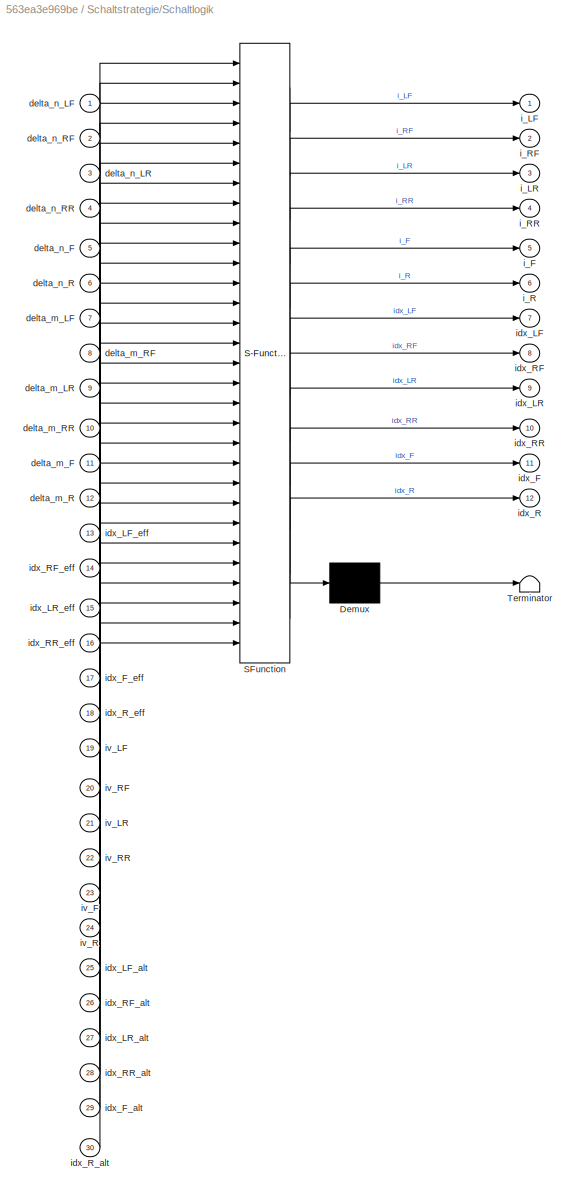
BLOCK [SubSystem] Schaltstrategie/Schaltlogik
  ErrorFcn = Stateflow.Translate.translate
  PermitHierarchicalResolution = ExplicitOnly
  Ports = [30, 12]
  RequestExecContextInheritance = off
  SFBlockType = MATLAB Function
  TreatAsAtomicUnit = on
BLOCK [Demux] Schaltstrategie/Schaltlogik/ Demux 
  Outputs = 1
  Ports = [1, 1]
BLOCK [S-Function] Schaltstrategie/Schaltlogik/ SFunction 
  EnableBusSupport = off
  FunctionName = sf_sfun
  PortCounts = [30 13]
  Ports = [30, 13]
  SFcnIsStateOwnerBlock = off
  SFunctionDeploymentMode = off
  Tag = Stateflow S-Function Library_Betriebsstrategie 18
BLOCK [Terminator] Schaltstrategie/Schaltlogik/ Terminator 
BLOCK [Inport] Schaltstrategie/Schaltlogik/delta_m_F
  IconDisplay = Port number
  Port = 11
BLOCK [Inport] Schaltstrategie/Schaltlogik/delta_m_LF
  IconDisplay = Port number
  Port = 7
BLOCK [Inport] Schaltstrategie/Schaltlogik/delta_m_LR
  IconDisplay = Port number
  Port = 9
BLOCK [Inport] Schaltstrategie/Schaltlogik/delta_m_R
  IconDisplay = Port number
  Port = 12
BLOCK [Inport] Schaltstrategie/Schaltlogik/delta_m_RF
  IconDisplay = Port number
  Port = 8
BLOCK [Inport] Schaltstrategie/Schaltlogik/delta_m_RR
  IconDisplay = Port number
  Port = 10
BLOCK [Inport] Schaltstrategie/Schaltlogik/delta_n_F
  IconDisplay = Port number
  Port = 5
BLOCK [Inport] Schaltstrategie/Schaltlogik/delta_n_LF
  IconDisplay = Port number
BLOCK [Inport] Schaltstrategie/Schaltlogik/delta_n_LR
  IconDisplay = Port number
  Port = 3
BLOCK [Inport] Schaltstrategie/Schaltlogik/delta_n_R
  IconDisplay = Port number
  Port = 6
BLOCK [Inport] Schaltstrategie/Schaltlogik/delta_n_RF
  IconDisplay = Port number
  Port = 2
BLOCK [Inport] Schaltstrategie/Schaltlogik/delta_n_RR
  IconDisplay = Port number
  Port = 4
BLOCK [Outport] Schaltstrategie/Schaltlogik/i_F
  IconDisplay = Port number
  Port = 5
BLOCK [Outport] Schaltstrategie/Schaltlogik/i_LF
  IconDisplay = Port number
BLOCK [Outport] Schaltstrategie/Schaltlogik/i_LR
  IconDisplay = Port number
  Port = 3
BLOCK [Outport] Schaltstrategie/Schaltlogik/i_R
  IconDisplay = Port number
  Port = 6
BLOCK [Outport] Schaltstrategie/Schaltlogik/i_RF
  IconDisplay = Port number
  Port = 2
BLOCK [Outport] Schaltstrategie/Schaltlogik/i_RR
  IconDisplay = Port number
  Port = 4
BLOCK [Outport] Schaltstrategie/Schaltlogik/idx_F
  IconDisplay = Port number
  Port = 11
BLOCK [Inport] Schaltstrategie/Schaltlogik/idx_F_alt
  IconDisplay = Port number
  Port = 29
BLOCK [Inport] Schaltstrategie/Schaltlogik/idx_F_eff
  IconDisplay = Port number
  Port = 17
BLOCK [Outport] Schaltstrategie/Schaltlogik/idx_LF
  IconDisplay = Port number
  Port = 7
BLOCK [Inport] Schaltstrategie/Schaltlogik/idx_LF_alt
  IconDisplay = Port number
  Port = 25
BLOCK [Inport] Schaltstrategie/Schaltlogik/idx_LF_eff
  IconDisplay = Port number
  Port = 13
BLOCK [Outport] Schaltstrategie/Schaltlogik/idx_LR
  IconDisplay = Port number
  Port = 9
BLOCK [Inport] Schaltstrategie/Schaltlogik/idx_LR_alt
  IconDisplay = Port number
  Port = 27
BLOCK [Inport] Schaltstrategie/Schaltlogik/idx_LR_eff
  IconDisplay = Port number
  Port = 15
BLOCK [Outport] Schaltstrategie/Schaltlogik/idx_R
  IconDisplay = Port number
  Port = 12
BLOCK [Outport] Schaltstrategie/Schaltlogik/idx_RF
  IconDisplay = Port number
  Port = 8
BLOCK [Inport] Schaltstrategie/Schaltlogik/idx_RF_alt
  IconDisplay = Port number
  Port = 26
BLOCK [Inport] Schaltstrategie/Schaltlogik/idx_RF_eff
  IconDisplay = Port number
  Port = 14
BLOCK [Outport] Schaltstrategie/Schaltlogik/idx_RR
  IconDisplay = Port number
  Port = 10
BLOCK [Inport] Schaltstrategie/Schaltlogik/idx_RR_alt
  IconDisplay = Port number
  Port = 28
BLOCK [Inport] Schaltstrategie/Schaltlogik/idx_RR_eff
  IconDisplay = Port number
  Port = 16
BLOCK [Inport] Schaltstrategie/Schaltlogik/idx_R_alt
  IconDisplay = Port number
  Port = 30
BLOCK [Inport] Schaltstrategie/Schaltlogik/idx_R_eff
  IconDisplay = Port number
  Port = 18
BLOCK [Inport] Schaltstrategie/Schaltlogik/iv_F
  IconDisplay = Port number
  Port = 23
BLOCK [Inport] Schaltstrategie/Schaltlogik/iv_LF
  IconDisplay = Port number
  Port = 19
BLOCK [Inport] Schaltstrategie/Schaltlogik/iv_LR
  IconDisplay = Port number
  Port = 21
BLOCK [Inport] Schaltstrategie/Schaltlogik/iv_R
  IconDisplay = Port number
  Port = 24
BLOCK [Inport] Schaltstrategie/Schaltlogik/iv_RF
  IconDisplay = Port number
  Port = 20
BLOCK [Inport] Schaltstrategie/Schaltlogik/iv_RR
  IconDisplay = Port number
  Port = 22
BLOCK [Scope] Schaltstrategie/Scope
  Floating = off
  NumInputPorts = 6
  Ports = [6]
  ScopeSpecificationString = Simulink.scopes.TimeScopeBlockCfg('CurrentConfiguration', extmgr.ConfigurationSet(extmgr.Configuration('Core','General UI',true),extmgr.Configuration('Core','Source UI',true),extmgr.Configuration('Sources','WiredSimulink',true,'DataLoggingVariableName','ScopeData1'),extmgr.Configuration('Visuals','Time Domain',true,'SerializedDisplays',{struct('MinYLimReal','4.3625','MaxYLimReal','10.7375','YLabel...<+1416ch>
BLOCK [Scope] Schaltstrategie/Scope1
  Floating = off
  NumInputPorts = 6
  Ports = [6]
  ScopeSpecificationString = Simulink.scopes.TimeScopeBlockCfg('CurrentConfiguration', extmgr.ConfigurationSet(extmgr.Configuration('Core','General UI',true),extmgr.Configuration('Core','Source UI',true),extmgr.Configuration('Sources','WiredSimulink',true,'DataLoggingVariableName','ScopeData1'),extmgr.Configuration('Visuals','Time Domain',true,'SerializedDisplays',{struct('MinYLimReal','-86.39404','MaxYLimReal','98.48826','YL...<+1436ch>
BLOCK [Scope] Schaltstrategie/Scope2
  Floating = off
  NumInputPorts = 6
  Ports = [6]
  ScopeSpecificationString = Simulink.scopes.TimeScopeBlockCfg('CurrentConfiguration', extmgr.ConfigurationSet(extmgr.Configuration('Core','General UI',true),extmgr.Configuration('Core','Source UI',true),extmgr.Configuration('Sources','WiredSimulink',true,'DataLoggingVariableName','ScopeData2'),extmgr.Configuration('Visuals','Time Domain',true,'SerializedDisplays',{struct('MinYLimReal','5104.68073','MaxYLimReal','11467.2577',...<+1449ch>
BLOCK [Scope] Schaltstrategie/Scope3
  Floating = off
  NumInputPorts = 2
  Ports = [2]
  ScopeSpecificationString = Simulink.scopes.TimeScopeBlockCfg('CurrentConfiguration', extmgr.ConfigurationSet(extmgr.Configuration('Core','General UI',true),extmgr.Configuration('Core','Source UI',true),extmgr.Configuration('Sources','WiredSimulink',true,'DataLoggingVariableName','ScopeData1'),extmgr.Configuration('Visuals','Time Domain',true,'SerializedDisplays',{struct('MinYLimReal','0.875','MaxYLimReal','2.125','YLabelRea...<+1402ch>
BLOCK [Sum] Schaltstrategie/Subtract
  InputSameDT = off
  Inputs = +-
  OutDataTypeStr = Inherit: Inherit via internal rule
  Ports = [2, 1]
  SaturateOnIntegerOverflow = off
BLOCK [Sum] Schaltstrategie/Subtract1
  InputSameDT = off
  Inputs = +-
  OutDataTypeStr = Inherit: Inherit via internal rule
  Ports = [2, 1]
  SaturateOnIntegerOverflow = off
BLOCK [Sum] Schaltstrategie/Subtract10
  InputSameDT = off
  Inputs = +-
  OutDataTypeStr = Inherit: Inherit via internal rule
  Ports = [2, 1]
  SaturateOnIntegerOverflow = off
BLOCK [Sum] Schaltstrategie/Subtract11
  InputSameDT = off
  Inputs = +-
  OutDataTypeStr = Inherit: Inherit via internal rule
  Ports = [2, 1]
  SaturateOnIntegerOverflow = off
BLOCK [Sum] Schaltstrategie/Subtract2
  InputSameDT = off
  Inputs = +-
  OutDataTypeStr = Inherit: Inherit via internal rule
  Ports = [2, 1]
  SaturateOnIntegerOverflow = off
BLOCK [Sum] Schaltstrategie/Subtract3
  InputSameDT = off
  Inputs = +-
  OutDataTypeStr = Inherit: Inherit via internal rule
  Ports = [2, 1]
  SaturateOnIntegerOverflow = off
BLOCK [Sum] Schaltstrategie/Subtract4
  InputSameDT = off
  Inputs = +-
  OutDataTypeStr = Inherit: Inherit via internal rule
  Ports = [2, 1]
  SaturateOnIntegerOverflow = off
BLOCK [Sum] Schaltstrategie/Subtract5
  InputSameDT = off
  Inputs = +-
  OutDataTypeStr = Inherit: Inherit via internal rule
  Ports = [2, 1]
  SaturateOnIntegerOverflow = off
BLOCK [Sum] Schaltstrategie/Subtract6
  InputSameDT = off
  Inputs = +-
  OutDataTypeStr = Inherit: Inherit via internal rule
  Ports = [2, 1]
  SaturateOnIntegerOverflow = off
BLOCK [Sum] Schaltstrategie/Subtract7
  InputSameDT = off
  Inputs = +-
  OutDataTypeStr = Inherit: Inherit via internal rule
  Ports = [2, 1]
  SaturateOnIntegerOverflow = off
BLOCK [Sum] Schaltstrategie/Subtract8
  InputSameDT = off
  Inputs = +-
  OutDataTypeStr = Inherit: Inherit via internal rule
  Ports = [2, 1]
  SaturateOnIntegerOverflow = off
BLOCK [Sum] Schaltstrategie/Subtract9
  InputSameDT = off
  Inputs = +-
  OutDataTypeStr = Inherit: Inherit via internal rule
  Ports = [2, 1]
  SaturateOnIntegerOverflow = off
BLOCK [SubSystem] Schaltstrategie/effizientester Gang
  ErrorFcn = Stateflow.Translate.translate
  PermitHierarchicalResolution = ExplicitOnly
  Ports = [6, 6]
  RequestExecContextInheritance = off
  SFBlockType = MATLAB Function
  TreatAsAtomicUnit = on
BLOCK [Demux] Schaltstrategie/effizientester Gang/ Demux 
  Outputs = 1
  Ports = [1, 1]
BLOCK [S-Function] Schaltstrategie/effizientester Gang/ SFunction 
  EnableBusSupport = off
  FunctionName = sf_sfun
  PortCounts = [6 7]
  Ports = [6, 7]
  SFcnIsStateOwnerBlock = off
  SFunctionDeploymentMode = off
  Tag = Stateflow S-Function Library_Betriebsstrategie 19
BLOCK [Terminator] Schaltstrategie/effizientester Gang/ Terminator 
BLOCK [Inport] Schaltstrategie/effizientester Gang/eta_F
  IconDisplay = Port number
  Port = 5
BLOCK [Inport] Schaltstrategie/effizientester Gang/eta_LF
  IconDisplay = Port number
BLOCK [Inport] Schaltstrategie/effizientester Gang/eta_LR
  IconDisplay = Port number
  Port = 3
BLOCK [Inport] Schaltstrategie/effizientester Gang/eta_R
  IconDisplay = Port number
  Port = 6
BLOCK [Inport] Schaltstrategie/effizientester Gang/eta_RF
  IconDisplay = Port number
  Port = 2
BLOCK [Inport] Schaltstrategie/effizientester Gang/eta_RR
  IconDisplay = Port number
  Port = 4
BLOCK [Outport] Schaltstrategie/effizientester Gang/idx_F_eff
  IconDisplay = Port number
  Port = 5
BLOCK [Outport] Schaltstrategie/effizientester Gang/idx_LF_eff
  IconDisplay = Port number
BLOCK [Outport] Schaltstrategie/effizientester Gang/idx_LR_eff
  IconDisplay = Port number
  Port = 3
BLOCK [Outport] Schaltstrategie/effizientester Gang/idx_RF_eff
  IconDisplay = Port number
  Port = 2
BLOCK [Outport] Schaltstrategie/effizientester Gang/idx_RR_eff
  IconDisplay = Port number
  Port = 4
BLOCK [Outport] Schaltstrategie/effizientester Gang/idx_R_eff
  IconDisplay = Port number
  Port = 6
BLOCK [Lookup_n-D] Schaltstrategie/eta
  BreakpointsForDimension1 = par_MDT.VA.em.MotorEffMap3D_w
  BreakpointsForDimension2 = par_MDT.VA.em.MotorEffMap3D_M
  InternalRulePriority = Speed
  Ports = [2, 1]
  RndMeth = Simplest
  Table = par_MDT.VA.em.MotorEffMap3D
BLOCK [Lookup_n-D] Schaltstrategie/eta1
  BreakpointsForDimension1 = par_MDT.VA.em.MotorEffMap3D_w
  BreakpointsForDimension2 = par_MDT.VA.em.MotorEffMap3D_M
  InternalRulePriority = Speed
  Ports = [2, 1]
  RndMeth = Simplest
  Table = par_MDT.VA.em.MotorEffMap3D
BLOCK [Lookup_n-D] Schaltstrategie/eta2
  BreakpointsForDimension1 = par_MDT.HA.em.MotorEffMap3D_w
  BreakpointsForDimension2 = par_MDT.HA.em.MotorEffMap3D_M
  InternalRulePriority = Speed
  Ports = [2, 1]
  RndMeth = Simplest
  Table = par_MDT.HA.em.MotorEffMap3D
BLOCK [Lookup_n-D] Schaltstrategie/eta3
  BreakpointsForDimension1 = par_MDT.HA.em.MotorEffMap3D_w
  BreakpointsForDimension2 = par_MDT.HA.em.MotorEffMap3D_M
  InternalRulePriority = Speed
  Ports = [2, 1]
  RndMeth = Simplest
  Table = par_MDT.HA.em.MotorEffMap3D
BLOCK [Lookup_n-D] Schaltstrategie/eta4
  BreakpointsForDimension1 = par_MDT.VA.em.MotorEffMap3D_w
  BreakpointsForDimension2 = par_MDT.VA.em.MotorEffMap3D_M
  InternalRulePriority = Speed
  Ports = [2, 1]
  RndMeth = Simplest
  Table = par_MDT.VA.em.MotorEffMap3D
BLOCK [Lookup_n-D] Schaltstrategie/eta5
  BreakpointsForDimension1 = par_MDT.HA.em.MotorEffMap3D_w
  BreakpointsForDimension2 = par_MDT.HA.em.MotorEffMap3D_M
  InternalRulePriority = Speed
  Ports = [2, 1]
  RndMeth = Simplest
  Table = par_MDT.HA.em.MotorEffMap3D
BLOCK [Constant] Schaltstrategie/i_Übersetzungen_HA
  Value = par_MDT.HA.trans.i_gears
BLOCK [Constant] Schaltstrategie/i_Übersetzungen_HA1
  Value = par_MDT.HA.trans.i_gears
BLOCK [Constant] Schaltstrategie/i_Übersetzungen_VA
  Value = par_MDT.VA.trans.i_gears
BLOCK [Constant] Schaltstrategie/i_Übersetzungen_VA1
  Value = par_MDT.VA.trans.i_gears
BLOCK [SubSystem] Schaltstrategie/n und Motordrehmoment als Vektor (wegen ALLEN Übersetzungen)
  ErrorFcn = Stateflow.Translate.translate
  PermitHierarchicalResolution = ExplicitOnly
  Ports = [14, 12]
  RequestExecContextInheritance = off
  SFBlockType = MATLAB Function
  TreatAsAtomicUnit = on
BLOCK [Demux] Schaltstrategie/n und Motordrehmoment als Vektor (wegen ALLEN Übersetzungen)/ Demux 
  Outputs = 1
  Ports = [1, 1]
BLOCK [S-Function] Schaltstrategie/n und Motordrehmoment als Vektor (wegen ALLEN Übersetzungen)/ SFunction 
  EnableBusSupport = off
  FunctionName = sf_sfun
  PortCounts = [14 13]
  Ports = [14, 13]
  SFcnIsStateOwnerBlock = off
  SFunctionDeploymentMode = off
  Tag = Stateflow S-Function Library_Betriebsstrategie 20
BLOCK [Terminator] Schaltstrategie/n und Motordrehmoment als Vektor (wegen ALLEN Übersetzungen)/ Terminator 
BLOCK [Inport] Schaltstrategie/n und Motordrehmoment als Vektor (wegen ALLEN Übersetzungen)/M_LF
  IconDisplay = Port number
  Port = 5
BLOCK [Inport] Schaltstrategie/n und Motordrehmoment als Vektor (wegen ALLEN Übersetzungen)/M_LR
  IconDisplay = Port number
  Port = 7
BLOCK [Inport] Schaltstrategie/n und Motordrehmoment als Vektor (wegen ALLEN Übersetzungen)/M_RF
  IconDisplay = Port number
  Port = 6
BLOCK [Inport] Schaltstrategie/n und Motordrehmoment als Vektor (wegen ALLEN Übersetzungen)/M_RR
  IconDisplay = Port number
  Port = 8
BLOCK [Inport] Schaltstrategie/n und Motordrehmoment als Vektor (wegen ALLEN Übersetzungen)/i_F
  IconDisplay = Port number
  Port = 13
BLOCK [Inport] Schaltstrategie/n und Motordrehmoment als Vektor (wegen ALLEN Übersetzungen)/i_LF
  IconDisplay = Port number
  Port = 9
BLOCK [Inport] Schaltstrategie/n und Motordrehmoment als Vektor (wegen ALLEN Übersetzungen)/i_LR
  IconDisplay = Port number
  Port = 11
BLOCK [Inport] Schaltstrategie/n und Motordrehmoment als Vektor (wegen ALLEN Übersetzungen)/i_R
  IconDisplay = Port number
  Port = 14
BLOCK [Inport] Schaltstrategie/n und Motordrehmoment als Vektor (wegen ALLEN Übersetzungen)/i_RF
  IconDisplay = Port number
  Port = 10
BLOCK [Inport] Schaltstrategie/n und Motordrehmoment als Vektor (wegen ALLEN Übersetzungen)/i_RR
  IconDisplay = Port number
  Port = 12
BLOCK [Outport] Schaltstrategie/n und Motordrehmoment als Vektor (wegen ALLEN Übersetzungen)/m_F
  IconDisplay = Port number
  Port = 10
BLOCK [Outport] Schaltstrategie/n und Motordrehmoment als Vektor (wegen ALLEN Übersetzungen)/m_LF
  IconDisplay = Port number
  Port = 2
BLOCK [Outport] Schaltstrategie/n und Motordrehmoment als Vektor (wegen ALLEN Übersetzungen)/m_LR
  IconDisplay = Port number
  Port = 6
BLOCK [Outport] Schaltstrategie/n und Motordrehmoment als Vektor (wegen ALLEN Übersetzungen)/m_R
  IconDisplay = Port number
  Port = 12
BLOCK [Outport] Schaltstrategie/n und Motordrehmoment als Vektor (wegen ALLEN Übersetzungen)/m_RF
  IconDisplay = Port number
  Port = 4
BLOCK [Outport] Schaltstrategie/n und Motordrehmoment als Vektor (wegen ALLEN Übersetzungen)/m_RR
  IconDisplay = Port number
  Port = 8
BLOCK [Outport] Schaltstrategie/n und Motordrehmoment als Vektor (wegen ALLEN Übersetzungen)/n_F
  IconDisplay = Port number
  Port = 9
BLOCK [Outport] Schaltstrategie/n und Motordrehmoment als Vektor (wegen ALLEN Übersetzungen)/n_LF
  IconDisplay = Port number
BLOCK [Outport] Schaltstrategie/n und Motordrehmoment als Vektor (wegen ALLEN Übersetzungen)/n_LR
  IconDisplay = Port number
  Port = 5
BLOCK [Outport] Schaltstrategie/n und Motordrehmoment als Vektor (wegen ALLEN Übersetzungen)/n_R
  IconDisplay = Port number
  Port = 11
BLOCK [Outport] Schaltstrategie/n und Motordrehmoment als Vektor (wegen ALLEN Übersetzungen)/n_RF
  IconDisplay = Port number
  Port = 3
BLOCK [Outport] Schaltstrategie/n und Motordrehmoment als Vektor (wegen ALLEN Übersetzungen)/n_RR
  IconDisplay = Port number
  Port = 7
BLOCK [Inport] Schaltstrategie/n und Motordrehmoment als Vektor (wegen ALLEN Übersetzungen)/omega_LF
  IconDisplay = Port number
BLOCK [Inport] Schaltstrategie/n und Motordrehmoment als Vektor (wegen ALLEN Übersetzungen)/omega_LR
  IconDisplay = Port number
  Port = 3
BLOCK [Inport] Schaltstrategie/n und Motordrehmoment als Vektor (wegen ALLEN Übersetzungen)/omega_RF
  IconDisplay = Port number
  Port = 2
BLOCK [Inport] Schaltstrategie/n und Motordrehmoment als Vektor (wegen ALLEN Übersetzungen)/omega_RR
  IconDisplay = Port number
  Port = 4
BLOCK [Constant] Schaltstrategie/n_max
  Value = par_MDT.VA.em.nmax
BLOCK [Constant] Schaltstrategie/n_max1
  Value = par_MDT.VA.em.nmax
BLOCK [Constant] Schaltstrategie/n_max2
  Value = par_MDT.HA.em.nmax
BLOCK [Constant] Schaltstrategie/n_max3
  Value = par_MDT.HA.em.nmax
BLOCK [Constant] Schaltstrategie/n_max4
  Value = par_MDT.VA.em.nmax
BLOCK [Constant] Schaltstrategie/n_max5
  Value = par_MDT.HA.em.nmax
BLOCK [SubSystem] Schaltstrategie/omega zu n
  ErrorFcn = Stateflow.Translate.translate
  PermitHierarchicalResolution = ExplicitOnly
  Ports = [10, 6]
  RequestExecContextInheritance = off
  SFBlockType = MATLAB Function
  TreatAsAtomicUnit = on
BLOCK [Demux] Schaltstrategie/omega zu n/ Demux 
  Outputs = 1
  Ports = [1, 1]
BLOCK [S-Function] Schaltstrategie/omega zu n/ SFunction 
  EnableBusSupport = off
  FunctionName = sf_sfun
  PortCounts = [10 7]
  Ports = [10, 7]
  SFcnIsStateOwnerBlock = off
  SFunctionDeploymentMode = off
  Tag = Stateflow S-Function Library_Betriebsstrategie 21
BLOCK [Terminator] Schaltstrategie/omega zu n/ Terminator 
BLOCK [Inport] Schaltstrategie/omega zu n/i_F
  IconDisplay = Port number
  Port = 9
BLOCK [Inport] Schaltstrategie/omega zu n/i_LF
  IconDisplay = Port number
  Port = 5
BLOCK [Inport] Schaltstrategie/omega zu n/i_LR
  IconDisplay = Port number
  Port = 7
BLOCK [Inport] Schaltstrategie/omega zu n/i_R
  IconDisplay = Port number
  Port = 10
BLOCK [Inport] Schaltstrategie/omega zu n/i_RF
  IconDisplay = Port number
  Port = 6
BLOCK [Inport] Schaltstrategie/omega zu n/i_RR
  IconDisplay = Port number
  Port = 8
BLOCK [Outport] Schaltstrategie/omega zu n/n_F
  IconDisplay = Port number
  Port = 5
BLOCK [Outport] Schaltstrategie/omega zu n/n_LF
  IconDisplay = Port number
BLOCK [Outport] Schaltstrategie/omega zu n/n_LR
  IconDisplay = Port number
  Port = 3
BLOCK [Outport] Schaltstrategie/omega zu n/n_R
  IconDisplay = Port number
  Port = 6
BLOCK [Outport] Schaltstrategie/omega zu n/n_RF
  IconDisplay = Port number
  Port = 2
BLOCK [Outport] Schaltstrategie/omega zu n/n_RR
  IconDisplay = Port number
  Port = 4
BLOCK [Inport] Schaltstrategie/omega zu n/omega_LF
  IconDisplay = Port number
BLOCK [Inport] Schaltstrategie/omega zu n/omega_LR
  IconDisplay = Port number
  Port = 3
BLOCK [Inport] Schaltstrategie/omega zu n/omega_RF
  IconDisplay = Port number
  Port = 2
BLOCK [Inport] Schaltstrategie/omega zu n/omega_RR
  IconDisplay = Port number
  Port = 4
BLOCK [From] Schaltstrategie/omega1
  GotoTag = i
BLOCK [From] Schaltstrategie/omega2
  GotoTag = i
BLOCK [Outport] Schaltstrategie/Übersetzung
  IconDisplay = Port number
ANNOTATION (root): Momentenverteilung_LR: --> TV-Moment wird regelbasiert durch links-rechts Aufteilung erfüllt --> Optimierung findet zwischen vorne und hinten innerhalb einer Seite statt --> Optimierung mit diskreten Schritten der "Distribution-ratios" (gamma im Modell)
ANNOTATION (root): Momentenverteilung_LR2: --> Optimierung nach Energieeffizienz und Radschlupf und Fz --> Größen werden gespeichert für die graphische Analyse --> Skalierung der Zielfunktionen
ANNOTATION (root): Momentenverteilung_Regelbasiert: --> Regelbasierte Aufteilung findet in einer Matlab-Funktion statt --> Fahrdynamikoptimert, aber ohne mathematische Optimierung
ANNOTATION (root): Angepasst an neuesten Modellstand
ANNOTATION (root): Momentenverteilung_LR1: --> Optimierung nach Energieeffizienz und Radschlupf
ANNOTATION (root): Alte Radmomentenverteilung: --> gleiche Aufteilung auf 4 Räder /bzw. 2 bei reinem Front oder Hecktrieb --> Limitationen durch Motorkennfelder --> M_antr beinhaltet Rekuperation, Rest in M_brems
ANNOTATION (root): Christian Angerer, 26.7.18 Auswahl der Variante die die wenigste Energie aufwendet bzw. die meiste Energie zurückspeist
ANNOTATION (root): Christian Angerer, 26.7.18 Berechnung der achsweisen Leistungsaufnahme für die Effizienzbetriebsstrategie (vorher Verlustleisungsbasiert
ANNOTATION (root): Effizienz-Betriebsstrategie
ANNOTATION (root): Momentenverteilung_Diskret: --> Optimierung erfolgt diskret. Kräfte spannen mithilfe der Aufteilungsfaktoren eine Matrix auf. Mit diesen Matrizen wird in den Gütefunktionen gerechnet. --> Indizes des minimalen Matrixwertes der Gütefunktion stellen die optimalen Aufteilungsfaktoren dar.
ANNOTATION (root): Momentenverteilung_Fmincon: --> Mehrzieloptimierung bei der Momentenaufteilung --> Mathematische Optimierung über Fmincon
ANNOTATION (root): Momentenverteilung_Lagrange: --> Optimierung findet mit der Methode der Lagrangemultiplikatoren statt
ANNOTATION (root): Nach der Strukturierung des Gesamtmodells ->Pesche Kennfelder Eingangsdrehzahl in rad/s Rekuperationskennfeld liefert pos. Moment -> Nomenklatur der neuen Init-Struktur eingebunden
ANNOTATION (root): Vor der Strukturierung des Gesamtmodells
ANNOTATION Inverser Wirkungsgrad_Leistungsbasiert: Das Modell berücksichtigt nun einen verlustbehafteten Antriebsstrang vor dem Fahrzeugmodell. --> Der Inverse Gesamtwirkungsgrad des vorherigen Zeitschrittes wird auf das Gesamtwunschmoment aufmultipliziert. eta=P_ab/(P_ab+P_v)
ANNOTATION Inverter Power Input einer Achse: Luca Mantovani, 05.9.18 Power estimation for electronics and motor is calculated with the same logic as found in Antriebsstrang una Radmomentverteilung. The electric power entering the motor is evaluated first and with the result the power at battery level is found.
ANNOTATION Inverter Power Input einer Achse ALT/Wirkungsgradberechnung: M>0 = 1
ANNOTATION Inverter Power Input einer Achse/Wirkungsgradberechnung: M>0 = 1
ANNOTATION Momentenverteilung_Diskret/Feedback Controller: 1/2 sigma(Tc)
ANNOTATION Momentenverteilung_Diskret/Feedback Controller: M_z punkt = - Iz * K * sign(sigma - 1/2sigma(Tc))
ANNOTATION Momentenverteilung_Diskret/Feedback Controller: Sigmoid Funktion
ANNOTATION Momentenverteilung_Diskret/Gierrate Referenz Berechnung: Gewünschte Gierrate nach: psip_desired = vx * delta / (l + vx^2 * K_us )
ANNOTATION Momentenverteilung_Diskret/Gierrate Referenz Berechnung: Limit für die Gierrate
ANNOTATION Momentenverteilung_Fmincon/Feedback Controller: 1/2 sigma(Tc)
ANNOTATION Momentenverteilung_Fmincon/Feedback Controller: M_z punkt = - Iz * K * sign(sigma - 1/2sigma(Tc))
ANNOTATION Momentenverteilung_Fmincon/Feedback Controller: Sigmoid Funktion
ANNOTATION Momentenverteilung_Fmincon/Gierrate Referenz Berechnung: Gewünschte Gierrate nach: psip_desired = vx * delta / (l + vx^2 * K_us )
ANNOTATION Momentenverteilung_Fmincon/Gierrate Referenz Berechnung: Limit für die Gierrate
ANNOTATION Momentenverteilung_Fmincon/Reifen Limits: Reifen LR
ANNOTATION Momentenverteilung_Fmincon/Reifen Limits: Reifen LF
ANNOTATION Momentenverteilung_Fmincon/Reifen Limits: Reifen RF
ANNOTATION Momentenverteilung_Fmincon/Reifen Limits: Reifen RR
ANNOTATION Momentenverteilung_Fmincon/Reifen Limits: Für numerische Stabilität
ANNOTATION Momentenverteilung_Lagrange/Feedback Controller: 1/2 sigma(Tc)
ANNOTATION Momentenverteilung_Lagrange/Feedback Controller: M_z punkt = - Iz * K * sign(sigma - 1/2sigma(Tc))
ANNOTATION Momentenverteilung_Lagrange/Feedback Controller: Sigmoid Funktion
ANNOTATION Momentenverteilung_Lagrange/Gierrate Referenz Berechnung: Gewünschte Gierrate nach: psip_desired = vx * delta / (l + vx^2 * K_us )
ANNOTATION Momentenverteilung_Lagrange/Gierrate Referenz Berechnung: Limit für die Gierrate
ANNOTATION Momentenverteilung_Lagrange1/Feedback Controller: 1/2 sigma(Tc)
ANNOTATION Momentenverteilung_Lagrange1/Feedback Controller: M_z punkt = - Iz * K * sign(sigma - 1/2sigma(Tc))
ANNOTATION Momentenverteilung_Lagrange1/Feedback Controller: Sigmoid Funktion
ANNOTATION Momentenverteilung_Lagrange1/Gierrate Referenz Berechnung: Gewünschte Gierrate nach: psip_desired = vx * delta / (l + vx^2 * K_us )
ANNOTATION Momentenverteilung_Lagrange1/Gierrate Referenz Berechnung: Limit für die Gierrate
ANNOTATION Momentenverteilung_Lagrange1/Motor Limits: Achszentraler Antrieb
ANNOTATION Momentenverteilung_Lagrange1/Motor Limits: Radindividueller Antrieb hinten
ANNOTATION Momentenverteilung_Lagrange1/Motor Limits: Radindividueller Antrieb vorne
ANNOTATION Momentenverteilung_Lagrange1/Reifen Limits: Reifen LR
ANNOTATION Momentenverteilung_Lagrange1/Reifen Limits: Reifen LF
ANNOTATION Momentenverteilung_Lagrange1/Reifen Limits: Reifen RF
ANNOTATION Momentenverteilung_Lagrange1/Reifen Limits: Reifen RR
ANNOTATION Momentenverteilung_Lagrange1/Reifen Limits: Reifenlimits werden nach den Haftungsellipsen berechnet ( Erweiterung des Kammschen Kreises auf Ellipsen) Fx_lim=Fx0*sqrt(1-(Fy/Fy0)^2) Switsch-Logik, um numerische Probleme beim Abheben eines Reifens zu vermeiden.
ANNOTATION Momentenverteilung_Lagrange1/Reifen Limits: Für numerische Stabilität
ANNOTATION Momentenverteilung_Lagrange2/Feedback Controller: 1/2 sigma(Tc)
ANNOTATION Momentenverteilung_Lagrange2/Feedback Controller: M_z punkt = - Iz * K * sign(sigma - 1/2sigma(Tc))
ANNOTATION Momentenverteilung_Lagrange2/Feedback Controller: Sigmoid Funktion
ANNOTATION Momentenverteilung_Lagrange2/Gierrate Referenz Berechnung: Gewünschte Gierrate nach: psip_desired = vx * delta / (l + vx^2 * K_us )
ANNOTATION Momentenverteilung_Lagrange2/Gierrate Referenz Berechnung: Limit für die Gierrate
ANNOTATION Momentenverteilung_Lagrange2/Motor Limits: Achszentraler Antrieb
ANNOTATION Momentenverteilung_Lagrange2/Motor Limits: Radindividueller Antrieb hinten
ANNOTATION Momentenverteilung_Lagrange2/Motor Limits: Radindividueller Antrieb vorne
ANNOTATION Momentenverteilung_Lagrange2/Motor Limits: Achtung: Pesche Kennfelder haben als Eingagsdrehzahl rad/s
ANNOTATION Momentenverteilung_Lagrange2/Reifen Limits: Reifen LR
ANNOTATION Momentenverteilung_Lagrange2/Reifen Limits: Reifen LF
ANNOTATION Momentenverteilung_Lagrange2/Reifen Limits: Reifen RF
ANNOTATION Momentenverteilung_Lagrange2/Reifen Limits: Reifen RR
ANNOTATION Momentenverteilung_Lagrange2/Reifen Limits: Reifenlimits werden nach den Haftungsellipsen berechnet ( Erweiterung des Kammschen Kreises auf Ellipsen) Fx_lim=Fx0*sqrt(1-(Fy/Fy0)^2) Switsch-Logik, um numerische Probleme beim Abheben eines Reifens zu vermeiden.
ANNOTATION Momentenverteilung_Lagrange2/Reifen Limits: Für numerische Stabilität
ANNOTATION Momentenverteilung_Regelbasiert/Feedback Controller: 1/2 sigma(Tc)
ANNOTATION Momentenverteilung_Regelbasiert/Feedback Controller: M_z punkt = - Iz * K * sign(sigma - 1/2sigma(Tc))
ANNOTATION Momentenverteilung_Regelbasiert/Feedback Controller: Sigmoid Funktion
ANNOTATION Momentenverteilung_Regelbasiert/Gierrate Referenz Berechnung: Gewünschte Gierrate nach: psip_desired = vx * delta / (l + vx^2 * K_us )
ANNOTATION Momentenverteilung_Regelbasiert/Gierrate Referenz Berechnung: Limit für die Gierrate
ANNOTATION Momentenverteilung_Regelbasiert/Reifen Limits: Reifen LR
ANNOTATION Momentenverteilung_Regelbasiert/Reifen Limits: Reifen LF
ANNOTATION Momentenverteilung_Regelbasiert/Reifen Limits: Reifen RF
ANNOTATION Momentenverteilung_Regelbasiert/Reifen Limits: Reifen RR
ANNOTATION Momentenverteilung_Regelbasiert/Reifen Limits: Für numerische Stabilität
ANNOTATION Momentverteilung_LR/Feedback Controller: 1/2 sigma(Tc)
ANNOTATION Momentverteilung_LR/Feedback Controller: M_z punkt = - Iz * K * sign(sigma - 1/2sigma(Tc))
ANNOTATION Momentverteilung_LR/Feedback Controller: Sigmoid Funktion
ANNOTATION Momentverteilung_LR/Gierrate Referenz Berechnung: Gewünschte Gierrate nach: psip_desired = vx * delta / (l + vx^2 * K_us )
ANNOTATION Momentverteilung_LR/Gierrate Referenz Berechnung: Limit für die Gierrate
ANNOTATION Momentverteilung_LR/Radmomentenaufteilung: Aufbringen des TV-Moments
ANNOTATION Momentverteilung_LR/Radmomentenaufteilung: Optimale Distribution Factors
ANNOTATION Momentverteilung_LR/Radmomentenaufteilung: Momentenverteilung
ANNOTATION Momentverteilung_LR/Reifen Limits: Kammscher Kreis liefert mit aktuellen mue und F_z_i die limits für Fx
ANNOTATION Momentverteilung_LR1/Feedback Controller: 1/2 sigma(Tc)
ANNOTATION Momentverteilung_LR1/Feedback Controller: M_z punkt = - Iz * K * sign(sigma - 1/2sigma(Tc))
ANNOTATION Momentverteilung_LR1/Feedback Controller: Sigmoid Funktion
ANNOTATION Momentverteilung_LR1/Gierrate Referenz Berechnung: Gewünschte Gierrate nach: psip_desired = vx * delta / (l + vx^2 * K_us )
ANNOTATION Momentverteilung_LR1/Gierrate Referenz Berechnung: Limit für die Gierrate
ANNOTATION Momentverteilung_LR1/Radmomentenaufteilung: Aufbringen des TV-Moments
ANNOTATION Momentverteilung_LR1/Radmomentenaufteilung: Optimale Distribution Factors
ANNOTATION Momentverteilung_LR1/Radmomentenaufteilung: Momentenverteilung
ANNOTATION Momentverteilung_LR2/Feedback Controller: 1/2 sigma(Tc)
ANNOTATION Momentverteilung_LR2/Feedback Controller: M_z punkt = - Iz * K * sign(sigma - 1/2sigma(Tc))
ANNOTATION Momentverteilung_LR2/Feedback Controller: Sigmoid Funktion
ANNOTATION Momentverteilung_LR2/Gierrate Referenz Berechnung: Gewünschte Gierrate nach: psip_desired = vx * delta / (l + vx^2 * K_us )
ANNOTATION Momentverteilung_LR2/Gierrate Referenz Berechnung: Limit für die Gierrate
ANNOTATION Momentverteilung_LR2/Motor Limits: Achszentraler Antrieb
ANNOTATION Momentverteilung_LR2/Motor Limits: Radindividueller Antrieb hinten
ANNOTATION Momentverteilung_LR2/Motor Limits: Radindividueller Antrieb vorne
ANNOTATION Momentverteilung_LR2/Radmomentenaufteilung: Aufbringen des TV-Moments
ANNOTATION Momentverteilung_LR2/Radmomentenaufteilung: Optimale Distribution Factors
ANNOTATION Momentverteilung_LR2/Radmomentenaufteilung: Momentenverteilung
ANNOTATION Momentverteilung_LR2/Radmomentenaufteilung/Optimierung links: Schlupfgeschwindigkeit
ANNOTATION Momentverteilung_LR2/Radmomentenaufteilung/Optimierung links: Triebstrangwirkungsgrad
ANNOTATION Momentverteilung_LR2/Radmomentenaufteilung/Optimierung rechts: Schlupfgeschwindigkeit
ANNOTATION Momentverteilung_LR2/Radmomentenaufteilung/Optimierung rechts: Triebstrangwirkungsgrad
ANNOTATION Momentverteilung_LR2/Reifen Limits: Reifen LR
ANNOTATION Momentverteilung_LR2/Reifen Limits: Reifen LF
ANNOTATION Momentverteilung_LR2/Reifen Limits: Reifen RF
ANNOTATION Momentverteilung_LR2/Reifen Limits: Reifen RR
ANNOTATION Momentverteilung_LR2/Reifen Limits: Für numerische Stabilität
ANNOTATION Radmomentverteilung_alt: Bremskraftverteilung
ANNOTATION Schaltstrategie: delta_M =Moment unter dem Maximalmoment im aktuell eingelegten Gang bei aktueller Drehzahl
ANNOTATION Schaltstrategie: delta_n =Drehzahl unter der Maximaldrehzahl im aktuell eingelegten Gang
ANNOTATION Schaltstrategie: Achtung: Bei stark untermotorisierten Antriebssträngen kann es sinnvoll sein, das Momentenbedingte runterschalten im Block Schaltlogik auszukommentieren. Ansonsten kann es zu häufigem hin und herschalten kommen.
ANNOTATION Schaltstrategie: Drehzahl für Pesche Kennfelder in rad/s für abgleich mit n_max in 1/min *60/2pi=9.5493
LINE Inverser Wirkungsgrad_Leistungsbasiert/1:1 -> Inverser Wirkungsgrad_Leistungsbasiert/Switch:3
NET Inverser Wirkungsgrad_Leistungsbasiert/Abs1:1 -> Inverser Wirkungsgrad_Leistungsbasiert/Add:2, Inverser Wirkungsgrad_Leistungsbasiert/Divide1:2
LINE Inverser Wirkungsgrad_Leistungsbasiert/Abs:1 -> Inverser Wirkungsgrad_Leistungsbasiert/Add:1
NET Inverser Wirkungsgrad_Leistungsbasiert/Add:1 -> Inverser Wirkungsgrad_Leistungsbasiert/Divide1:1, Inverser Wirkungsgrad_Leistungsbasiert/Switch:2
LINE Inverser Wirkungsgrad_Leistungsbasiert/Divide1:1 -> Inverser Wirkungsgrad_Leistungsbasiert/Divide:1
LINE Inverser Wirkungsgrad_Leistungsbasiert/Divide:1 -> Inverser Wirkungsgrad_Leistungsbasiert/Switch:1
LINE Inverser Wirkungsgrad_Leistungsbasiert/Eins:1 -> Inverser Wirkungsgrad_Leistungsbasiert/Divide:2
NET Inverser Wirkungsgrad_Leistungsbasiert/From Antriebsstrang:1 -> Inverser Wirkungsgrad_Leistungsbasiert/Memory:1, Inverser Wirkungsgrad_Leistungsbasiert/Scope:1
NET Inverser Wirkungsgrad_Leistungsbasiert/M_wheel:1 -> Inverser Wirkungsgrad_Leistungsbasiert/Product:2, Inverser Wirkungsgrad_Leistungsbasiert/Scope1:2
LINE Inverser Wirkungsgrad_Leistungsbasiert/Memory1:1 -> Inverser Wirkungsgrad_Leistungsbasiert/Abs1:1
LINE Inverser Wirkungsgrad_Leistungsbasiert/Memory:1 -> Inverser Wirkungsgrad_Leistungsbasiert/Abs:1
NET Inverser Wirkungsgrad_Leistungsbasiert/Product:1 -> Inverser Wirkungsgrad_Leistungsbasiert/M_wheel_korrigiert:1, Inverser Wirkungsgrad_Leistungsbasiert/Scope1:1
LINE Inverser Wirkungsgrad_Leistungsbasiert/Switch:1 -> Inverser Wirkungsgrad_Leistungsbasiert/Product:1
LINE Inverser Wirkungsgrad_Momentenbasiert/1:1 -> Inverser Wirkungsgrad_Momentenbasiert/Switch:3
LINE Inverser Wirkungsgrad_Momentenbasiert/Abs1:1 -> Inverser Wirkungsgrad_Momentenbasiert/Divide:2
NET Inverser Wirkungsgrad_Momentenbasiert/Abs:1 -> Inverser Wirkungsgrad_Momentenbasiert/Divide:1, Inverser Wirkungsgrad_Momentenbasiert/Switch:2
NET Inverser Wirkungsgrad_Momentenbasiert/Add1:1 -> Inverser Wirkungsgrad_Momentenbasiert/Memory:1, Inverser Wirkungsgrad_Momentenbasiert/Scope1:2
LINE Inverser Wirkungsgrad_Momentenbasiert/Divide:1 -> Inverser Wirkungsgrad_Momentenbasiert/Switch:1
NET Inverser Wirkungsgrad_Momentenbasiert/M_wheel:1 -> Inverser Wirkungsgrad_Momentenbasiert/Memory1:1, Inverser Wirkungsgrad_Momentenbasiert/Product:2, Inverser Wirkungsgrad_Momentenbasiert/Scope1:1, Inverser Wirkungsgrad_Momentenbasiert/Scope:2
LINE Inverser Wirkungsgrad_Momentenbasiert/Memory1:1 -> Inverser Wirkungsgrad_Momentenbasiert/Abs1:1
LINE Inverser Wirkungsgrad_Momentenbasiert/Memory:1 -> Inverser Wirkungsgrad_Momentenbasiert/Abs:1
NET Inverser Wirkungsgrad_Momentenbasiert/Product:1 -> Inverser Wirkungsgrad_Momentenbasiert/M_wheel_korrigiert:1, Inverser Wirkungsgrad_Momentenbasiert/Scope:1
LINE Inverser Wirkungsgrad_Momentenbasiert/Switch:1 -> Inverser Wirkungsgrad_Momentenbasiert/Product:1
LINE Inverter Power Input einer Achse ALT/Abs6:1 -> Inverter Power Input einer Achse ALT/Add1:1
LINE Inverter Power Input einer Achse ALT/Abs:1 -> Inverter Power Input einer Achse ALT/Add1:2
LINE Inverter Power Input einer Achse ALT/Add1:1 -> Inverter Power Input einer Achse ALT/W-->kW:1
LINE Inverter Power Input einer Achse ALT/Constant2:1 -> Inverter Power Input einer Achse ALT/Leistungselektronik:1
LINE Inverter Power Input einer Achse ALT/Falls radnahe Maschine /Constant1:1 -> Inverter Power Input einer Achse ALT/Falls radnahe Maschine /Switch:2
LINE Inverter Power Input einer Achse ALT/Falls radnahe Maschine /Gain:1 -> Inverter Power Input einer Achse ALT/Falls radnahe Maschine /Switch:3
NET Inverter Power Input einer Achse ALT/Falls radnahe Maschine /M_achs_EM:1 -> Inverter Power Input einer Achse ALT/Falls radnahe Maschine /Gain:1, Inverter Power Input einer Achse ALT/Falls radnahe Maschine /Switch:1
LINE Inverter Power Input einer Achse ALT/Falls radnahe Maschine /Switch:1 -> Inverter Power Input einer Achse ALT/Falls radnahe Maschine /M_mot:1
NET Inverter Power Input einer Achse ALT/Falls radnahe Maschine :1 -> Inverter Power Input einer Achse ALT/Leistungselektronik:2, Inverter Power Input einer Achse ALT/Wirkungsgradberechnung:2
LINE Inverter Power Input einer Achse ALT/Leistungselektronik/Abs1:1 -> Inverter Power Input einer Achse ALT/Leistungselektronik/Strom:1
LINE Inverter Power Input einer Achse ALT/Leistungselektronik/Abs2:1 -> Inverter Power Input einer Achse ALT/Leistungselektronik/Powerfactor:1
LINE Inverter Power Input einer Achse ALT/Leistungselektronik/Abs3:1 -> Inverter Power Input einer Achse ALT/Leistungselektronik/Powerfactor:2
NET Inverter Power Input einer Achse ALT/Leistungselektronik/Drehmoment_1EM:1 -> Inverter Power Input einer Achse ALT/Leistungselektronik/Abs2:1, Inverter Power Input einer Achse ALT/Leistungselektronik/Product1:1
NET Inverter Power Input einer Achse ALT/Leistungselektronik/Drehzahl :1 -> Inverter Power Input einer Achse ALT/Leistungselektronik/Abs3:1, Inverter Power Input einer Achse ALT/Leistungselektronik/Product1:2
LINE Inverter Power Input einer Achse ALT/Leistungselektronik/Leistungselektronik/Add:1 -> Inverter Power Input einer Achse ALT/Leistungselektronik/Leistungselektronik/Verlustgrad :1
LINE Inverter Power Input einer Achse ALT/Leistungselektronik/Leistungselektronik/Constant:1 -> Inverter Power Input einer Achse ALT/Leistungselektronik/Leistungselektronik/Add:1
LINE Inverter Power Input einer Achse ALT/Leistungselektronik/Leistungselektronik/Powerfactor:1 -> Inverter Power Input einer Achse ALT/Leistungselektronik/Leistungselektronik/n-D Lookup Table:3
LINE Inverter Power Input einer Achse ALT/Leistungselektronik/Leistungselektronik/Saturation:1 -> Inverter Power Input einer Achse ALT/Leistungselektronik/Leistungselektronik/Add:2
LINE Inverter Power Input einer Achse ALT/Leistungselektronik/Leistungselektronik/Spannung:1 -> Inverter Power Input einer Achse ALT/Leistungselektronik/Leistungselektronik/n-D Lookup Table:2
LINE Inverter Power Input einer Achse ALT/Leistungselektronik/Leistungselektronik/Strom:1 -> Inverter Power Input einer Achse ALT/Leistungselektronik/Leistungselektronik/n-D Lookup Table:1
LINE Inverter Power Input einer Achse ALT/Leistungselektronik/Leistungselektronik/n-D Lookup Table:1 -> Inverter Power Input einer Achse ALT/Leistungselektronik/Leistungselektronik/Saturation:1
LINE Inverter Power Input einer Achse ALT/Leistungselektronik/Leistungselektronik:1 -> Inverter Power Input einer Achse ALT/Leistungselektronik/Verlustgrad LE:1
LINE Inverter Power Input einer Achse ALT/Leistungselektronik/Powerfactor/2-D Lookup Table:1 -> Inverter Power Input einer Achse ALT/Leistungselektronik/Powerfactor/Powerfactor:1
LINE Inverter Power Input einer Achse ALT/Leistungselektronik/Powerfactor/Drehmoment:1 -> Inverter Power Input einer Achse ALT/Leistungselektronik/Powerfactor/2-D Lookup Table:1
LINE Inverter Power Input einer Achse ALT/Leistungselektronik/Powerfactor/Drehzahl:1 -> Inverter Power Input einer Achse ALT/Leistungselektronik/Powerfactor/2-D Lookup Table:2
NET Inverter Power Input einer Achse ALT/Leistungselektronik/Powerfactor:1 -> Inverter Power Input einer Achse ALT/Leistungselektronik/Leistungselektronik:3, Inverter Power Input einer Achse ALT/Leistungselektronik/Strom:3
LINE Inverter Power Input einer Achse ALT/Leistungselektronik/Product1:1 -> Inverter Power Input einer Achse ALT/Leistungselektronik/Abs1:1
NET Inverter Power Input einer Achse ALT/Leistungselektronik/RMS Spannung:1 -> Inverter Power Input einer Achse ALT/Leistungselektronik/Leistungselektronik:2, Inverter Power Input einer Achse ALT/Leistungselektronik/Strom:2
LINE Inverter Power Input einer Achse ALT/Leistungselektronik/Strom/Constant:1 -> Inverter Power Input einer Achse ALT/Leistungselektronik/Strom/Divide:2
LINE Inverter Power Input einer Achse ALT/Leistungselektronik/Strom/Divide:1 -> Inverter Power Input einer Achse ALT/Leistungselektronik/Strom/Strom:1
LINE Inverter Power Input einer Achse ALT/Leistungselektronik/Strom/Leistung_EM_mech:1 -> Inverter Power Input einer Achse ALT/Leistungselektronik/Strom/Divide:1
LINE Inverter Power Input einer Achse ALT/Leistungselektronik/Strom/Powerfactor:1 -> Inverter Power Input einer Achse ALT/Leistungselektronik/Strom/Divide:4
LINE Inverter Power Input einer Achse ALT/Leistungselektronik/Strom/Spannung:1 -> Inverter Power Input einer Achse ALT/Leistungselektronik/Strom/Divide:3
LINE Inverter Power Input einer Achse ALT/Leistungselektronik/Strom:1 -> Inverter Power Input einer Achse ALT/Leistungselektronik/Leistungselektronik:1
LINE Inverter Power Input einer Achse ALT/Leistungselektronik:1 -> Inverter Power Input einer Achse ALT/Product5:1
NET Inverter Power Input einer Achse ALT/M_Achs_EM:1 -> Inverter Power Input einer Achse ALT/Falls radnahe Maschine :1, Inverter Power Input einer Achse ALT/Product1:2
NET Inverter Power Input einer Achse ALT/Product1:1 -> Inverter Power Input einer Achse ALT/Product3:1, Inverter Power Input einer Achse ALT/Product5:2
LINE Inverter Power Input einer Achse ALT/Product3:1 -> Inverter Power Input einer Achse ALT/Abs:1
LINE Inverter Power Input einer Achse ALT/Product5:1 -> Inverter Power Input einer Achse ALT/Abs6:1
LINE Inverter Power Input einer Achse ALT/Rekuindex:1 -> Inverter Power Input einer Achse ALT/Wirkungsgradberechnung:3
LINE Inverter Power Input einer Achse ALT/W-->kW:1 -> Inverter Power Input einer Achse ALT/P_achs:1
NET Inverter Power Input einer Achse ALT/Wirkungsgradberechnung/Add1:1 -> Inverter Power Input einer Achse ALT/Wirkungsgradberechnung/Logical Operator:1, Inverter Power Input einer Achse ALT/Wirkungsgradberechnung/Switch:2, Inverter Power Input einer Achse ALT/Wirkungsgradberechnung/motorischer WKG:enable
LINE Inverter Power Input einer Achse ALT/Wirkungsgradberechnung/Constant:1 -> Inverter Power Input einer Achse ALT/Wirkungsgradberechnung/Add1:1
LINE Inverter Power Input einer Achse ALT/Wirkungsgradberechnung/Logical Operator:1 -> Inverter Power Input einer Achse ALT/Wirkungsgradberechnung/generatorischer WKG:enable
NET Inverter Power Input einer Achse ALT/Wirkungsgradberechnung/M_mot:1 -> Inverter Power Input einer Achse ALT/Wirkungsgradberechnung/generatorischer WKG:2, Inverter Power Input einer Achse ALT/Wirkungsgradberechnung/motorischer WKG:2
LINE Inverter Power Input einer Achse ALT/Wirkungsgradberechnung/Rekuindex:1 -> Inverter Power Input einer Achse ALT/Wirkungsgradberechnung/Add1:2
LINE Inverter Power Input einer Achse ALT/Wirkungsgradberechnung/Switch:1 -> Inverter Power Input einer Achse ALT/Wirkungsgradberechnung/Wirkungsgrad EM:1
LINE Inverter Power Input einer Achse ALT/Wirkungsgradberechnung/generatorischer WKG/Abs:1 -> Inverter Power Input einer Achse ALT/Wirkungsgradberechnung/generatorischer WKG/Wirkungsgradkennfeld Generatorbetrieb:2
LINE Inverter Power Input einer Achse ALT/Wirkungsgradberechnung/generatorischer WKG/Drehzahl:1 -> Inverter Power Input einer Achse ALT/Wirkungsgradberechnung/generatorischer WKG/Wirkungsgradkennfeld Generatorbetrieb:1
LINE Inverter Power Input einer Achse ALT/Wirkungsgradberechnung/generatorischer WKG/Moment:1 -> Inverter Power Input einer Achse ALT/Wirkungsgradberechnung/generatorischer WKG/Abs:1
LINE Inverter Power Input einer Achse ALT/Wirkungsgradberechnung/generatorischer WKG/Wirkungsgradkennfeld Generatorbetrieb:1 -> Inverter Power Input einer Achse ALT/Wirkungsgradberechnung/generatorischer WKG/WKG:1
LINE Inverter Power Input einer Achse ALT/Wirkungsgradberechnung/generatorischer WKG:1 -> Inverter Power Input einer Achse ALT/Wirkungsgradberechnung/Switch:3
LINE Inverter Power Input einer Achse ALT/Wirkungsgradberechnung/motorischer WKG/Drehzahl:1 -> Inverter Power Input einer Achse ALT/Wirkungsgradberechnung/motorischer WKG/Wirkungsgradkennfeld Motorbetrieb:1
LINE Inverter Power Input einer Achse ALT/Wirkungsgradberechnung/motorischer WKG/Moment:1 -> Inverter Power Input einer Achse ALT/Wirkungsgradberechnung/motorischer WKG/Wirkungsgradkennfeld Motorbetrieb:2
LINE Inverter Power Input einer Achse ALT/Wirkungsgradberechnung/motorischer WKG/Wirkungsgradkennfeld Motorbetrieb:1 -> Inverter Power Input einer Achse ALT/Wirkungsgradberechnung/motorischer WKG/WKG:1
LINE Inverter Power Input einer Achse ALT/Wirkungsgradberechnung/motorischer WKG:1 -> Inverter Power Input einer Achse ALT/Wirkungsgradberechnung/Switch:1
NET Inverter Power Input einer Achse ALT/Wirkungsgradberechnung/n_mot:1 -> Inverter Power Input einer Achse ALT/Wirkungsgradberechnung/generatorischer WKG:1, Inverter Power Input einer Achse ALT/Wirkungsgradberechnung/motorischer WKG:1
LINE Inverter Power Input einer Achse ALT/Wirkungsgradberechnung:1 -> Inverter Power Input einer Achse ALT/Product3:2
NET Inverter Power Input einer Achse ALT/n_mot:1 -> Inverter Power Input einer Achse ALT/Leistungselektronik:3, Inverter Power Input einer Achse ALT/Product1:1, Inverter Power Input einer Achse ALT/Wirkungsgradberechnung:1
LINE Inverter Power Input einer Achse/Abs1:1 -> Inverter Power Input einer Achse/Wirkungsgradberechnung:1
LINE Inverter Power Input einer Achse/Abs2:1 -> Inverter Power Input einer Achse/Stromberechnung:1
LINE Inverter Power Input einer Achse/Abs4:1 -> Inverter Power Input einer Achse/Powerfactorberechnung:1
LINE Inverter Power Input einer Achse/Abs5:1 -> Inverter Power Input einer Achse/Powerfactorberechnung:2
LINE Inverter Power Input einer Achse/Abs6:1 -> Inverter Power Input einer Achse/Falls radnahe Maschine 1:1
NET Inverter Power Input einer Achse/Constant1:1 -> Inverter Power Input einer Achse/Stromberechnung:2, Inverter Power Input einer Achse/Wirkungsgradberechnung1:2
LINE Inverter Power Input einer Achse/Falls radnahe Maschine /Constant1:1 -> Inverter Power Input einer Achse/Falls radnahe Maschine /Switch:2
LINE Inverter Power Input einer Achse/Falls radnahe Maschine /Gain:1 -> Inverter Power Input einer Achse/Falls radnahe Maschine /Switch:3
NET Inverter Power Input einer Achse/Falls radnahe Maschine /M_achs_EM:1 -> Inverter Power Input einer Achse/Falls radnahe Maschine /Gain:1, Inverter Power Input einer Achse/Falls radnahe Maschine /Switch:1
LINE Inverter Power Input einer Achse/Falls radnahe Maschine /Switch:1 -> Inverter Power Input einer Achse/Falls radnahe Maschine /M_mot:1
LINE Inverter Power Input einer Achse/Falls radnahe Maschine 1/Constant1:1 -> Inverter Power Input einer Achse/Falls radnahe Maschine 1/Switch:2
LINE Inverter Power Input einer Achse/Falls radnahe Maschine 1/Gain:1 -> Inverter Power Input einer Achse/Falls radnahe Maschine 1/Switch:3
NET Inverter Power Input einer Achse/Falls radnahe Maschine 1/M_achs_EM:1 -> Inverter Power Input einer Achse/Falls radnahe Maschine 1/Gain:1, Inverter Power Input einer Achse/Falls radnahe Maschine 1/Switch:1
LINE Inverter Power Input einer Achse/Falls radnahe Maschine 1/Switch:1 -> Inverter Power Input einer Achse/Falls radnahe Maschine 1/M_mot:1
LINE Inverter Power Input einer Achse/Falls radnahe Maschine 1:1 -> Inverter Power Input einer Achse/W-->kW:1
NET Inverter Power Input einer Achse/Falls radnahe Maschine :1 -> Inverter Power Input einer Achse/Abs4:1, Inverter Power Input einer Achse/Product1:2, Inverter Power Input einer Achse/Wirkungsgradberechnung:2
LINE Inverter Power Input einer Achse/Gain2:1 -> Inverter Power Input einer Achse/Math Function1:2
LINE Inverter Power Input einer Achse/Gain:1 -> Inverter Power Input einer Achse/Math Function:2
LINE Inverter Power Input einer Achse/M_Achs_EM:1 -> Inverter Power Input einer Achse/Falls radnahe Maschine :1
LINE Inverter Power Input einer Achse/Math Function1:1 -> Inverter Power Input einer Achse/Product5:1
LINE Inverter Power Input einer Achse/Math Function:1 -> Inverter Power Input einer Achse/Product3:2
LINE Inverter Power Input einer Achse/Powerfactorberechnung/2-D Lookup Table:1 -> Inverter Power Input einer Achse/Powerfactorberechnung/Powerfactor:1
LINE Inverter Power Input einer Achse/Powerfactorberechnung/Drehmoment:1 -> Inverter Power Input einer Achse/Powerfactorberechnung/2-D Lookup Table:1
LINE Inverter Power Input einer Achse/Powerfactorberechnung/Drehzahl:1 -> Inverter Power Input einer Achse/Powerfactorberechnung/2-D Lookup Table:2
NET Inverter Power Input einer Achse/Powerfactorberechnung:1 -> Inverter Power Input einer Achse/Stromberechnung:3, Inverter Power Input einer Achse/Wirkungsgradberechnung1:3
LINE Inverter Power Input einer Achse/Product1:1 -> Inverter Power Input einer Achse/Product3:1
NET Inverter Power Input einer Achse/Product3:1 -> Inverter Power Input einer Achse/Abs2:1, Inverter Power Input einer Achse/Product5:2, Inverter Power Input einer Achse/Sign:1
LINE Inverter Power Input einer Achse/Product5:1 -> Inverter Power Input einer Achse/Abs6:1
LINE Inverter Power Input einer Achse/Rekuindex:1 -> Inverter Power Input einer Achse/Gain:1
LINE Inverter Power Input einer Achse/Sign:1 -> Inverter Power Input einer Achse/Gain2:1
LINE Inverter Power Input einer Achse/Stromberechnung/Constant1:1 -> Inverter Power Input einer Achse/Stromberechnung/Divide:2
LINE Inverter Power Input einer Achse/Stromberechnung/Divide:1 -> Inverter Power Input einer Achse/Stromberechnung/Strom:1
LINE Inverter Power Input einer Achse/Stromberechnung/Leistung:1 -> Inverter Power Input einer Achse/Stromberechnung/Divide:1
LINE Inverter Power Input einer Achse/Stromberechnung/Powerfactor:1 -> Inverter Power Input einer Achse/Stromberechnung/Divide:4
LINE Inverter Power Input einer Achse/Stromberechnung/Spannung:1 -> Inverter Power Input einer Achse/Stromberechnung/Divide:3
LINE Inverter Power Input einer Achse/Stromberechnung:1 -> Inverter Power Input einer Achse/Wirkungsgradberechnung1:1
LINE Inverter Power Input einer Achse/W-->kW:1 -> Inverter Power Input einer Achse/P_achs:1
NET Inverter Power Input einer Achse/Wirkungsgradberechnung/Add1:1 -> Inverter Power Input einer Achse/Wirkungsgradberechnung/Logical Operator:1, Inverter Power Input einer Achse/Wirkungsgradberechnung/Switch:2, Inverter Power Input einer Achse/Wirkungsgradberechnung/motorischer WKG1:enable
LINE Inverter Power Input einer Achse/Wirkungsgradberechnung/Constant:1 -> Inverter Power Input einer Achse/Wirkungsgradberechnung/Add1:1
LINE Inverter Power Input einer Achse/Wirkungsgradberechnung/Logical Operator:1 -> Inverter Power Input einer Achse/Wirkungsgradberechnung/generatorischer WKG1:enable
NET Inverter Power Input einer Achse/Wirkungsgradberechnung/M_mot:1 -> Inverter Power Input einer Achse/Wirkungsgradberechnung/Sign:1, Inverter Power Input einer Achse/Wirkungsgradberechnung/generatorischer WKG1:2, Inverter Power Input einer Achse/Wirkungsgradberechnung/motorischer WKG1:2
LINE Inverter Power Input einer Achse/Wirkungsgradberechnung/Sign:1 -> Inverter Power Input einer Achse/Wirkungsgradberechnung/Add1:2
LINE Inverter Power Input einer Achse/Wirkungsgradberechnung/Switch:1 -> Inverter Power Input einer Achse/Wirkungsgradberechnung/Wirkungsgrad EM:1
LINE Inverter Power Input einer Achse/Wirkungsgradberechnung/generatorischer WKG1/Abs:1 -> Inverter Power Input einer Achse/Wirkungsgradberechnung/generatorischer WKG1/Wirkungsgradkennfeld nach Pesce Generatorbetrieb:2
NET Inverter Power Input einer Achse/Wirkungsgradberechnung/generatorischer WKG1/Drehzahl:1 -> Inverter Power Input einer Achse/Wirkungsgradberechnung/generatorischer WKG1/Switch:2, Inverter Power Input einer Achse/Wirkungsgradberechnung/generatorischer WKG1/Wirkungsgradkennfeld nach Pesce Generatorbetrieb:1
LINE Inverter Power Input einer Achse/Wirkungsgradberechnung/generatorischer WKG1/Moment:1 -> Inverter Power Input einer Achse/Wirkungsgradberechnung/generatorischer WKG1/Abs:1
LINE Inverter Power Input einer Achse/Wirkungsgradberechnung/generatorischer WKG1/Saturation2:1 -> Inverter Power Input einer Achse/Wirkungsgradberechnung/generatorischer WKG1/Switch:3
LINE Inverter Power Input einer Achse/Wirkungsgradberechnung/generatorischer WKG1/Saturation:1 -> Inverter Power Input einer Achse/Wirkungsgradberechnung/generatorischer WKG1/Switch:1
LINE Inverter Power Input einer Achse/Wirkungsgradberechnung/generatorischer WKG1/Switch:1 -> Inverter Power Input einer Achse/Wirkungsgradberechnung/generatorischer WKG1/WKG:1
NET Inverter Power Input einer Achse/Wirkungsgradberechnung/generatorischer WKG1/Wirkungsgradkennfeld nach Pesce Generatorbetrieb:1 -> Inverter Power Input einer Achse/Wirkungsgradberechnung/generatorischer WKG1/Saturation2:1, Inverter Power Input einer Achse/Wirkungsgradberechnung/generatorischer WKG1/Saturation:1
LINE Inverter Power Input einer Achse/Wirkungsgradberechnung/generatorischer WKG1:1 -> Inverter Power Input einer Achse/Wirkungsgradberechnung/Switch:3
NET Inverter Power Input einer Achse/Wirkungsgradberechnung/motorischer WKG1/Drehzahl:1 -> Inverter Power Input einer Achse/Wirkungsgradberechnung/motorischer WKG1/Switch:2, Inverter Power Input einer Achse/Wirkungsgradberechnung/motorischer WKG1/Wirkungsgradkennfeld nach Pesce Motorbetrieb:1
LINE Inverter Power Input einer Achse/Wirkungsgradberechnung/motorischer WKG1/Moment:1 -> Inverter Power Input einer Achse/Wirkungsgradberechnung/motorischer WKG1/Wirkungsgradkennfeld nach Pesce Motorbetrieb:2
LINE Inverter Power Input einer Achse/Wirkungsgradberechnung/motorischer WKG1/Saturation1:1 -> Inverter Power Input einer Achse/Wirkungsgradberechnung/motorischer WKG1/Switch:3
LINE Inverter Power Input einer Achse/Wirkungsgradberechnung/motorischer WKG1/Saturation:1 -> Inverter Power Input einer Achse/Wirkungsgradberechnung/motorischer WKG1/Switch:1
LINE Inverter Power Input einer Achse/Wirkungsgradberechnung/motorischer WKG1/Switch:1 -> Inverter Power Input einer Achse/Wirkungsgradberechnung/motorischer WKG1/WKG:1
NET Inverter Power Input einer Achse/Wirkungsgradberechnung/motorischer WKG1/Wirkungsgradkennfeld nach Pesce Motorbetrieb:1 -> Inverter Power Input einer Achse/Wirkungsgradberechnung/motorischer WKG1/Saturation1:1, Inverter Power Input einer Achse/Wirkungsgradberechnung/motorischer WKG1/Saturation:1
LINE Inverter Power Input einer Achse/Wirkungsgradberechnung/motorischer WKG1:1 -> Inverter Power Input einer Achse/Wirkungsgradberechnung/Switch:1
NET Inverter Power Input einer Achse/Wirkungsgradberechnung/n_mot:1 -> Inverter Power Input einer Achse/Wirkungsgradberechnung/generatorischer WKG1:1, Inverter Power Input einer Achse/Wirkungsgradberechnung/motorischer WKG1:1
LINE Inverter Power Input einer Achse/Wirkungsgradberechnung1/Powerfactor:1 -> Inverter Power Input einer Achse/Wirkungsgradberechnung1/n-D Lookup Table:3
LINE Inverter Power Input einer Achse/Wirkungsgradberechnung1/Spannung:1 -> Inverter Power Input einer Achse/Wirkungsgradberechnung1/n-D Lookup Table:2
LINE Inverter Power Input einer Achse/Wirkungsgradberechnung1/Strom:1 -> Inverter Power Input einer Achse/Wirkungsgradberechnung1/n-D Lookup Table:1
LINE Inverter Power Input einer Achse/Wirkungsgradberechnung1/n-D Lookup Table:1 -> Inverter Power Input einer Achse/Wirkungsgradberechnung1/Wirkungsgrad_LE:1
LINE Inverter Power Input einer Achse/Wirkungsgradberechnung1:1 -> Inverter Power Input einer Achse/Math Function1:1
LINE Inverter Power Input einer Achse/Wirkungsgradberechnung:1 -> Inverter Power Input einer Achse/Math Function:1
NET Inverter Power Input einer Achse/n_mot:1 -> Inverter Power Input einer Achse/Abs1:1, Inverter Power Input einer Achse/Abs5:1, Inverter Power Input einer Achse/Product1:1
LINE Momentenverteilung_Diskret/Bus Selector3:1 -> Momentenverteilung_Diskret/Momente für die Reibbremse:3
LINE Momentenverteilung_Diskret/Constant1:1 -> Momentenverteilung_Diskret/Momente für die Reibbremse:4
LINE Momentenverteilung_Diskret/Feedback Controller/-1:1 -> Momentenverteilung_Diskret/Feedback Controller/Discrete-Time Integrator:1
LINE Momentenverteilung_Diskret/Feedback Controller/Abs:1 -> Momentenverteilung_Diskret/Feedback Controller/Add:1
LINE Momentenverteilung_Diskret/Feedback Controller/Add:1 -> Momentenverteilung_Diskret/Feedback Controller/Divide:2
NET Momentenverteilung_Diskret/Feedback Controller/Bus Selector2:1 -> Momentenverteilung_Diskret/Feedback Controller/Scope:2, Momentenverteilung_Diskret/Feedback Controller/Sum:2
LINE Momentenverteilung_Diskret/Feedback Controller/Constant1:1 -> Momentenverteilung_Diskret/Feedback Controller/Divide1:1
NET Momentenverteilung_Diskret/Feedback Controller/Discrete D:1 -> Momentenverteilung_Diskret/Feedback Controller/Unit Delay:1, Momentenverteilung_Diskret/Feedback Controller/Zero Crossing:1
LINE Momentenverteilung_Diskret/Feedback Controller/Discrete-Time Integrator:1 -> Momentenverteilung_Diskret/Feedback Controller/M_z_desired:1
LINE Momentenverteilung_Diskret/Feedback Controller/Divide1:1 -> Momentenverteilung_Diskret/Feedback Controller/Product:2
LINE Momentenverteilung_Diskret/Feedback Controller/Divide:1 -> Momentenverteilung_Diskret/Feedback Controller/K:1
LINE Momentenverteilung_Diskret/Feedback Controller/Einheitenkorrektur:1 -> Momentenverteilung_Diskret/Feedback Controller/Divide1:2
LINE Momentenverteilung_Diskret/Feedback Controller/Gain:1 -> Momentenverteilung_Diskret/Feedback Controller/Sum1:2
NET Momentenverteilung_Diskret/Feedback Controller/Gierrate ref:1 -> Momentenverteilung_Diskret/Feedback Controller/Scope:1, Momentenverteilung_Diskret/Feedback Controller/Sum:1
LINE Momentenverteilung_Diskret/Feedback Controller/Input:1 -> Momentenverteilung_Diskret/Feedback Controller/Bus Selector2:1
LINE Momentenverteilung_Diskret/Feedback Controller/K:1 -> Momentenverteilung_Diskret/Feedback Controller/Product:1
LINE Momentenverteilung_Diskret/Feedback Controller/Memory:1 -> Momentenverteilung_Diskret/Feedback Controller/Zero Crossing:4
LINE Momentenverteilung_Diskret/Feedback Controller/Product:1 -> Momentenverteilung_Diskret/Feedback Controller/-1:1
NET Momentenverteilung_Diskret/Feedback Controller/Sum1:1 -> Momentenverteilung_Diskret/Feedback Controller/Abs:1, Momentenverteilung_Diskret/Feedback Controller/Divide:1
NET Momentenverteilung_Diskret/Feedback Controller/Sum:1 -> Momentenverteilung_Diskret/Feedback Controller/Discrete D:1, Momentenverteilung_Diskret/Feedback Controller/Sum1:1, Momentenverteilung_Diskret/Feedback Controller/Zero Crossing:3
LINE Momentenverteilung_Diskret/Feedback Controller/Unit Delay:1 -> Momentenverteilung_Diskret/Feedback Controller/Zero Crossing:2
LINE Momentenverteilung_Diskret/Feedback Controller/Zero Crossing/Product:1 -> Momentenverteilung_Diskret/Feedback Controller/Zero Crossing/Switch:2
LINE Momentenverteilung_Diskret/Feedback Controller/Zero Crossing/Switch:1 -> Momentenverteilung_Diskret/Feedback Controller/Zero Crossing/error(Tc):1
LINE Momentenverteilung_Diskret/Feedback Controller/Zero Crossing/de0:1 -> Momentenverteilung_Diskret/Feedback Controller/Zero Crossing/Product:1
LINE Momentenverteilung_Diskret/Feedback Controller/Zero Crossing/de1:1 -> Momentenverteilung_Diskret/Feedback Controller/Zero Crossing/Product:2
LINE Momentenverteilung_Diskret/Feedback Controller/Zero Crossing/e0:1 -> Momentenverteilung_Diskret/Feedback Controller/Zero Crossing/Switch:3
LINE Momentenverteilung_Diskret/Feedback Controller/Zero Crossing/e1:1 -> Momentenverteilung_Diskret/Feedback Controller/Zero Crossing/Switch:1
NET Momentenverteilung_Diskret/Feedback Controller/Zero Crossing:1 -> Momentenverteilung_Diskret/Feedback Controller/Gain:1, Momentenverteilung_Diskret/Feedback Controller/Memory:1
LINE Momentenverteilung_Diskret/Feedback Controller/epsilon:1 -> Momentenverteilung_Diskret/Feedback Controller/Add:2
NET Momentenverteilung_Diskret/Feedback Controller:1 -> Momentenverteilung_Diskret/Radmomentenaufteilung:2, Momentenverteilung_Diskret/Scope:1
LINE Momentenverteilung_Diskret/Gierrate Referenz Berechnung/2 Räder:1 -> Momentenverteilung_Diskret/Gierrate Referenz Berechnung/delta mittel:2
LINE Momentenverteilung_Diskret/Gierrate Referenz Berechnung/Abs1:1 -> Momentenverteilung_Diskret/Gierrate Referenz Berechnung/min:2
LINE Momentenverteilung_Diskret/Gierrate Referenz Berechnung/Abs:1 -> Momentenverteilung_Diskret/Gierrate Referenz Berechnung/min:1
LINE Momentenverteilung_Diskret/Gierrate Referenz Berechnung/Add1:1 -> Momentenverteilung_Diskret/Gierrate Referenz Berechnung/Sicherheitsfaktor:1
LINE Momentenverteilung_Diskret/Gierrate Referenz Berechnung/Add2:1 -> Momentenverteilung_Diskret/Gierrate Referenz Berechnung/Sqrt:1
LINE Momentenverteilung_Diskret/Gierrate Referenz Berechnung/Add:1 -> Momentenverteilung_Diskret/Gierrate Referenz Berechnung/delta mittel:1
LINE Momentenverteilung_Diskret/Gierrate Referenz Berechnung/Bus Selector1:1 -> Momentenverteilung_Diskret/Gierrate Referenz Berechnung/Add:1
LINE Momentenverteilung_Diskret/Gierrate Referenz Berechnung/Bus Selector1:2 -> Momentenverteilung_Diskret/Gierrate Referenz Berechnung/Add:2
LINE Momentenverteilung_Diskret/Gierrate Referenz Berechnung/Bus Selector2:1 -> Momentenverteilung_Diskret/Gierrate Referenz Berechnung/Divide2:2
LINE Momentenverteilung_Diskret/Gierrate Referenz Berechnung/Bus Selector2:2 -> Momentenverteilung_Diskret/Gierrate Referenz Berechnung/tan (beta)1:1
LINE Momentenverteilung_Diskret/Gierrate Referenz Berechnung/Bus Selector2:3 -> Momentenverteilung_Diskret/Gierrate Referenz Berechnung/Divide3:1
NET Momentenverteilung_Diskret/Gierrate Referenz Berechnung/Bus Selector2:4 -> Momentenverteilung_Diskret/Gierrate Referenz Berechnung/Product:1, Momentenverteilung_Diskret/Gierrate Referenz Berechnung/Sum1:1, Momentenverteilung_Diskret/Gierrate Referenz Berechnung/vx^2:1
LINE Momentenverteilung_Diskret/Gierrate Referenz Berechnung/Constant10:1 -> Momentenverteilung_Diskret/Gierrate Referenz Berechnung/Sum:2
LINE Momentenverteilung_Diskret/Gierrate Referenz Berechnung/Constant1:1 -> Momentenverteilung_Diskret/Gierrate Referenz Berechnung/Divide1:2
LINE Momentenverteilung_Diskret/Gierrate Referenz Berechnung/Constant20:1 -> Momentenverteilung_Diskret/Gierrate Referenz Berechnung/Divide1:1
LINE Momentenverteilung_Diskret/Gierrate Referenz Berechnung/Divide1:1 -> Momentenverteilung_Diskret/Gierrate Referenz Berechnung/Add1:1
LINE Momentenverteilung_Diskret/Gierrate Referenz Berechnung/Divide2:1 -> Momentenverteilung_Diskret/Gierrate Referenz Berechnung/Add1:2
LINE Momentenverteilung_Diskret/Gierrate Referenz Berechnung/Divide3:1 -> Momentenverteilung_Diskret/Gierrate Referenz Berechnung/Add1:3
LINE Momentenverteilung_Diskret/Gierrate Referenz Berechnung/Divide:1 -> Momentenverteilung_Diskret/Gierrate Referenz Berechnung/Abs:1
LINE Momentenverteilung_Diskret/Gierrate Referenz Berechnung/Kus:1 -> Momentenverteilung_Diskret/Gierrate Referenz Berechnung/Product1:2
LINE Momentenverteilung_Diskret/Gierrate Referenz Berechnung/Product1:1 -> Momentenverteilung_Diskret/Gierrate Referenz Berechnung/Sum:1
LINE Momentenverteilung_Diskret/Gierrate Referenz Berechnung/Product2:1 -> Momentenverteilung_Diskret/Gierrate Referenz Berechnung/Gierrate ref:1
LINE Momentenverteilung_Diskret/Gierrate Referenz Berechnung/Product:1 -> Momentenverteilung_Diskret/Gierrate Referenz Berechnung/Divide:1
LINE Momentenverteilung_Diskret/Gierrate Referenz Berechnung/Sicherheitsfaktor:1 -> Momentenverteilung_Diskret/Gierrate Referenz Berechnung/Abs1:1
LINE Momentenverteilung_Diskret/Gierrate Referenz Berechnung/Sign:1 -> Momentenverteilung_Diskret/Gierrate Referenz Berechnung/Product2:1
LINE Momentenverteilung_Diskret/Gierrate Referenz Berechnung/Sqrt:1 -> Momentenverteilung_Diskret/Gierrate Referenz Berechnung/Divide3:2
NET Momentenverteilung_Diskret/Gierrate Referenz Berechnung/Sum1:1 -> Momentenverteilung_Diskret/Gierrate Referenz Berechnung/Divide1:3, Momentenverteilung_Diskret/Gierrate Referenz Berechnung/Divide2:3
LINE Momentenverteilung_Diskret/Gierrate Referenz Berechnung/Sum:1 -> Momentenverteilung_Diskret/Gierrate Referenz Berechnung/Divide:2
NET Momentenverteilung_Diskret/Gierrate Referenz Berechnung/delta mittel:1 -> Momentenverteilung_Diskret/Gierrate Referenz Berechnung/Product:2, Momentenverteilung_Diskret/Gierrate Referenz Berechnung/Sign:1
LINE Momentenverteilung_Diskret/Gierrate Referenz Berechnung/delta_wheel:1 -> Momentenverteilung_Diskret/Gierrate Referenz Berechnung/Bus Selector1:1
LINE Momentenverteilung_Diskret/Gierrate Referenz Berechnung/eins:1 -> Momentenverteilung_Diskret/Gierrate Referenz Berechnung/Add2:2
LINE Momentenverteilung_Diskret/Gierrate Referenz Berechnung/epsilon:1 -> Momentenverteilung_Diskret/Gierrate Referenz Berechnung/Sum1:2
LINE Momentenverteilung_Diskret/Gierrate Referenz Berechnung/input:1 -> Momentenverteilung_Diskret/Gierrate Referenz Berechnung/Bus Selector2:1
LINE Momentenverteilung_Diskret/Gierrate Referenz Berechnung/min:1 -> Momentenverteilung_Diskret/Gierrate Referenz Berechnung/Product2:2
NET Momentenverteilung_Diskret/Gierrate Referenz Berechnung/tan (beta)1:1 -> Momentenverteilung_Diskret/Gierrate Referenz Berechnung/Divide2:1, Momentenverteilung_Diskret/Gierrate Referenz Berechnung/tan^2 (beta)1:1
LINE Momentenverteilung_Diskret/Gierrate Referenz Berechnung/tan^2 (beta)1:1 -> Momentenverteilung_Diskret/Gierrate Referenz Berechnung/Add2:1
LINE Momentenverteilung_Diskret/Gierrate Referenz Berechnung/vx^2:1 -> Momentenverteilung_Diskret/Gierrate Referenz Berechnung/Product1:1
LINE Momentenverteilung_Diskret/Gierrate Referenz Berechnung:1 -> Momentenverteilung_Diskret/Feedback Controller:2
NET Momentenverteilung_Diskret/M_wheel:1 -> Momentenverteilung_Diskret/Momente für die Reibbremse:2, Momentenverteilung_Diskret/Radmomentenaufteilung:3, Momentenverteilung_Diskret/Scope:2
NET Momentenverteilung_Diskret/Memory:1 -> Momentenverteilung_Diskret/Bus Selector3:1, Momentenverteilung_Diskret/Feedback Controller:1, Momentenverteilung_Diskret/Gierrate Referenz Berechnung:1, Momentenverteilung_Diskret/Radmomentenaufteilung:1
LINE Momentenverteilung_Diskret/Momente für die Reibbremse/Add1:1 -> Momentenverteilung_Diskret/Momente für die Reibbremse/Add:1
LINE Momentenverteilung_Diskret/Momente für die Reibbremse/Add:1 -> Momentenverteilung_Diskret/Momente für die Reibbremse/Saturation2:1
LINE Momentenverteilung_Diskret/Momente für die Reibbremse/Bias:1 -> Momentenverteilung_Diskret/Momente für die Reibbremse/Unary Minus:1
LINE Momentenverteilung_Diskret/Momente für die Reibbremse/Bus Creator1:1 -> Momentenverteilung_Diskret/Momente für die Reibbremse/M_brems:1
LINE Momentenverteilung_Diskret/Momente für die Reibbremse/Bus Selector:1 -> Momentenverteilung_Diskret/Momente für die Reibbremse/Add1:1
LINE Momentenverteilung_Diskret/Momente für die Reibbremse/Bus Selector:2 -> Momentenverteilung_Diskret/Momente für die Reibbremse/Add1:2
LINE Momentenverteilung_Diskret/Momente für die Reibbremse/Bus Selector:3 -> Momentenverteilung_Diskret/Momente für die Reibbremse/Add1:3
LINE Momentenverteilung_Diskret/Momente für die Reibbremse/Bus Selector:4 -> Momentenverteilung_Diskret/Momente für die Reibbremse/Add1:4
LINE Momentenverteilung_Diskret/Momente für die Reibbremse/M_antr:1 -> Momentenverteilung_Diskret/Momente für die Reibbremse/Bus Selector:1
LINE Momentenverteilung_Diskret/Momente für die Reibbremse/M_wheel:1 -> Momentenverteilung_Diskret/Momente für die Reibbremse/Add:2
NET Momentenverteilung_Diskret/Momente für die Reibbremse/Product4:1 -> Momentenverteilung_Diskret/Momente für die Reibbremse/Bus Creator1:1, Momentenverteilung_Diskret/Momente für die Reibbremse/Signal Conversion:1
NET Momentenverteilung_Diskret/Momente für die Reibbremse/Product5:1 -> Momentenverteilung_Diskret/Momente für die Reibbremse/Bus Creator1:3, Momentenverteilung_Diskret/Momente für die Reibbremse/Signal Conversion1:1
NET Momentenverteilung_Diskret/Momente für die Reibbremse/Saturation2:1 -> Momentenverteilung_Diskret/Momente für die Reibbremse/Product4:2, Momentenverteilung_Diskret/Momente für die Reibbremse/Product5:1
NET Momentenverteilung_Diskret/Momente für die Reibbremse/Sign:1 -> Momentenverteilung_Diskret/Momente für die Reibbremse/Product4:3, Momentenverteilung_Diskret/Momente für die Reibbremse/Product5:3
LINE Momentenverteilung_Diskret/Momente für die Reibbremse/Signal Conversion1:1 -> Momentenverteilung_Diskret/Momente für die Reibbremse/Bus Creator1:4
LINE Momentenverteilung_Diskret/Momente für die Reibbremse/Signal Conversion:1 -> Momentenverteilung_Diskret/Momente für die Reibbremse/Bus Creator1:2
LINE Momentenverteilung_Diskret/Momente für die Reibbremse/Unary Minus:1 -> Momentenverteilung_Diskret/Momente für die Reibbremse/Product5:2
LINE Momentenverteilung_Diskret/Momente für die Reibbremse/Unit Delay2:1 -> Momentenverteilung_Diskret/Momente für die Reibbremse/Sign:1
NET Momentenverteilung_Diskret/Momente für die Reibbremse/bkv:1 -> Momentenverteilung_Diskret/Momente für die Reibbremse/Bias:1, Momentenverteilung_Diskret/Momente für die Reibbremse/Product4:1
LINE Momentenverteilung_Diskret/Momente für die Reibbremse/v_x:1 -> Momentenverteilung_Diskret/Momente für die Reibbremse/Unit Delay2:1
LINE Momentenverteilung_Diskret/Momente für die Reibbremse:1 -> Momentenverteilung_Diskret/M_brems:1
LINE Momentenverteilung_Diskret/Radmomentenaufteilung/Add1:1 -> Momentenverteilung_Diskret/Radmomentenaufteilung/Diskrete Optimierung:13
LINE Momentenverteilung_Diskret/Radmomentenaufteilung/Add2:1 -> Momentenverteilung_Diskret/Radmomentenaufteilung/Diskrete Optimierung:15
LINE Momentenverteilung_Diskret/Radmomentenaufteilung/Add3:1 -> Momentenverteilung_Diskret/Radmomentenaufteilung/Diskrete Optimierung:16
LINE Momentenverteilung_Diskret/Radmomentenaufteilung/Add:1 -> Momentenverteilung_Diskret/Radmomentenaufteilung/Diskrete Optimierung:14
LINE Momentenverteilung_Diskret/Radmomentenaufteilung/Bus Creator:1 -> Momentenverteilung_Diskret/Radmomentenaufteilung/M_antr:1
LINE Momentenverteilung_Diskret/Radmomentenaufteilung/Bus Selector1:1 -> Momentenverteilung_Diskret/Radmomentenaufteilung/Diskrete Optimierung:5
LINE Momentenverteilung_Diskret/Radmomentenaufteilung/Bus Selector1:2 -> Momentenverteilung_Diskret/Radmomentenaufteilung/Diskrete Optimierung:6
LINE Momentenverteilung_Diskret/Radmomentenaufteilung/Bus Selector1:3 -> Momentenverteilung_Diskret/Radmomentenaufteilung/Diskrete Optimierung:7
LINE Momentenverteilung_Diskret/Radmomentenaufteilung/Bus Selector1:4 -> Momentenverteilung_Diskret/Radmomentenaufteilung/Diskrete Optimierung:8
LINE Momentenverteilung_Diskret/Radmomentenaufteilung/Bus Selector2:1 -> Momentenverteilung_Diskret/Radmomentenaufteilung/Add1:2
LINE Momentenverteilung_Diskret/Radmomentenaufteilung/Bus Selector2:2 -> Momentenverteilung_Diskret/Radmomentenaufteilung/Add:2
LINE Momentenverteilung_Diskret/Radmomentenaufteilung/Bus Selector2:3 -> Momentenverteilung_Diskret/Radmomentenaufteilung/Add2:2
LINE Momentenverteilung_Diskret/Radmomentenaufteilung/Bus Selector2:4 -> Momentenverteilung_Diskret/Radmomentenaufteilung/Add3:2
LINE Momentenverteilung_Diskret/Radmomentenaufteilung/Bus Selector3:1 -> Momentenverteilung_Diskret/Radmomentenaufteilung/Diskrete Optimierung:17
LINE Momentenverteilung_Diskret/Radmomentenaufteilung/Bus Selector3:2 -> Momentenverteilung_Diskret/Radmomentenaufteilung/Diskrete Optimierung:18
LINE Momentenverteilung_Diskret/Radmomentenaufteilung/Bus Selector3:3 -> Momentenverteilung_Diskret/Radmomentenaufteilung/Diskrete Optimierung:19
LINE Momentenverteilung_Diskret/Radmomentenaufteilung/Bus Selector3:4 -> Momentenverteilung_Diskret/Radmomentenaufteilung/Diskrete Optimierung:20
LINE Momentenverteilung_Diskret/Radmomentenaufteilung/Bus Selector4:1 -> Momentenverteilung_Diskret/Radmomentenaufteilung/Mult:1
LINE Momentenverteilung_Diskret/Radmomentenaufteilung/Bus Selector4:2 -> Momentenverteilung_Diskret/Radmomentenaufteilung/Mult:2
LINE Momentenverteilung_Diskret/Radmomentenaufteilung/Bus Selector4:3 -> Momentenverteilung_Diskret/Radmomentenaufteilung/Mult1:1
LINE Momentenverteilung_Diskret/Radmomentenaufteilung/Bus Selector4:4 -> Momentenverteilung_Diskret/Radmomentenaufteilung/Mult1:2
LINE Momentenverteilung_Diskret/Radmomentenaufteilung/Bus Selector4:5 -> Momentenverteilung_Diskret/Radmomentenaufteilung/Mult2:1
LINE Momentenverteilung_Diskret/Radmomentenaufteilung/Bus Selector4:6 -> Momentenverteilung_Diskret/Radmomentenaufteilung/Mult2:2
LINE Momentenverteilung_Diskret/Radmomentenaufteilung/Bus Selector4:7 -> Momentenverteilung_Diskret/Radmomentenaufteilung/Mult3:1
LINE Momentenverteilung_Diskret/Radmomentenaufteilung/Bus Selector4:8 -> Momentenverteilung_Diskret/Radmomentenaufteilung/Mult3:2
LINE Momentenverteilung_Diskret/Radmomentenaufteilung/Diskrete Optimierung:1 -> Momentenverteilung_Diskret/Radmomentenaufteilung/To Workspace11:1
LINE Momentenverteilung_Diskret/Radmomentenaufteilung/Diskrete Optimierung:2 -> Momentenverteilung_Diskret/Radmomentenaufteilung/To Workspace1:1
LINE Momentenverteilung_Diskret/Radmomentenaufteilung/Diskrete Optimierung:3 -> Momentenverteilung_Diskret/Radmomentenaufteilung/To Workspace2:1
LINE Momentenverteilung_Diskret/Radmomentenaufteilung/Diskrete Optimierung:4 -> Momentenverteilung_Diskret/Radmomentenaufteilung/To Workspace3:1
LINE Momentenverteilung_Diskret/Radmomentenaufteilung/Diskrete Optimierung:5 -> Momentenverteilung_Diskret/Radmomentenaufteilung/To Workspace4:1
NET Momentenverteilung_Diskret/Radmomentenaufteilung/Diskrete Optimierung:6 -> Momentenverteilung_Diskret/Radmomentenaufteilung/Bus Creator:1, Momentenverteilung_Diskret/Radmomentenaufteilung/Memory1:1, Momentenverteilung_Diskret/Radmomentenaufteilung/Scope:4
NET Momentenverteilung_Diskret/Radmomentenaufteilung/Diskrete Optimierung:7 -> Momentenverteilung_Diskret/Radmomentenaufteilung/Bus Creator:2, Momentenverteilung_Diskret/Radmomentenaufteilung/Memory3:1, Momentenverteilung_Diskret/Radmomentenaufteilung/Scope:3
NET Momentenverteilung_Diskret/Radmomentenaufteilung/Diskrete Optimierung:8 -> Momentenverteilung_Diskret/Radmomentenaufteilung/Bus Creator:3, Momentenverteilung_Diskret/Radmomentenaufteilung/Memory:1, Momentenverteilung_Diskret/Radmomentenaufteilung/Scope:2
NET Momentenverteilung_Diskret/Radmomentenaufteilung/Diskrete Optimierung:9 -> Momentenverteilung_Diskret/Radmomentenaufteilung/Bus Creator:4, Momentenverteilung_Diskret/Radmomentenaufteilung/Memory2:1, Momentenverteilung_Diskret/Radmomentenaufteilung/Scope:1
LINE Momentenverteilung_Diskret/Radmomentenaufteilung/Gain1:1 -> Momentenverteilung_Diskret/Radmomentenaufteilung/Diskrete Optimierung:27
LINE Momentenverteilung_Diskret/Radmomentenaufteilung/Gain2:1 -> Momentenverteilung_Diskret/Radmomentenaufteilung/Diskrete Optimierung:26
LINE Momentenverteilung_Diskret/Radmomentenaufteilung/Gain3:1 -> Momentenverteilung_Diskret/Radmomentenaufteilung/Diskrete Optimierung:25
LINE Momentenverteilung_Diskret/Radmomentenaufteilung/Gain:1 -> Momentenverteilung_Diskret/Radmomentenaufteilung/Diskrete Optimierung:28
NET Momentenverteilung_Diskret/Radmomentenaufteilung/Input:1 -> Momentenverteilung_Diskret/Radmomentenaufteilung/Bus Selector1:1, Momentenverteilung_Diskret/Radmomentenaufteilung/Bus Selector2:1, Momentenverteilung_Diskret/Radmomentenaufteilung/Bus Selector3:1, Momentenverteilung_Diskret/Radmomentenaufteilung/Bus Selector4:1
LINE Momentenverteilung_Diskret/Radmomentenaufteilung/M_wheel:1 -> Momentenverteilung_Diskret/Radmomentenaufteilung/Diskrete Optimierung:1
LINE Momentenverteilung_Diskret/Radmomentenaufteilung/M_z_desired:1 -> Momentenverteilung_Diskret/Radmomentenaufteilung/Diskrete Optimierung:2
LINE Momentenverteilung_Diskret/Radmomentenaufteilung/Memory1:1 -> Momentenverteilung_Diskret/Radmomentenaufteilung/Gain1:1
LINE Momentenverteilung_Diskret/Radmomentenaufteilung/Memory2:1 -> Momentenverteilung_Diskret/Radmomentenaufteilung/Gain2:1
LINE Momentenverteilung_Diskret/Radmomentenaufteilung/Memory3:1 -> Momentenverteilung_Diskret/Radmomentenaufteilung/Gain3:1
LINE Momentenverteilung_Diskret/Radmomentenaufteilung/Memory:1 -> Momentenverteilung_Diskret/Radmomentenaufteilung/Gain:1
LINE Momentenverteilung_Diskret/Radmomentenaufteilung/Mult1:1 -> Momentenverteilung_Diskret/Radmomentenaufteilung/Diskrete Optimierung:22
LINE Momentenverteilung_Diskret/Radmomentenaufteilung/Mult2:1 -> Momentenverteilung_Diskret/Radmomentenaufteilung/Diskrete Optimierung:23
LINE Momentenverteilung_Diskret/Radmomentenaufteilung/Mult3:1 -> Momentenverteilung_Diskret/Radmomentenaufteilung/Diskrete Optimierung:24
LINE Momentenverteilung_Diskret/Radmomentenaufteilung/Mult:1 -> Momentenverteilung_Diskret/Radmomentenaufteilung/Diskrete Optimierung:21
LINE Momentenverteilung_Diskret/Radmomentenaufteilung/epsilon1:1 -> Momentenverteilung_Diskret/Radmomentenaufteilung/Add1:1
LINE Momentenverteilung_Diskret/Radmomentenaufteilung/epsilon2:1 -> Momentenverteilung_Diskret/Radmomentenaufteilung/Add2:1
LINE Momentenverteilung_Diskret/Radmomentenaufteilung/epsilon3:1 -> Momentenverteilung_Diskret/Radmomentenaufteilung/Add3:1
LINE Momentenverteilung_Diskret/Radmomentenaufteilung/epsilon:1 -> Momentenverteilung_Diskret/Radmomentenaufteilung/Add:1
LINE Momentenverteilung_Diskret/Radmomentenaufteilung/r_stat:1 -> Momentenverteilung_Diskret/Radmomentenaufteilung/Diskrete Optimierung:3
LINE Momentenverteilung_Diskret/Radmomentenaufteilung/s05:1 -> Momentenverteilung_Diskret/Radmomentenaufteilung/Diskrete Optimierung:4
NET Momentenverteilung_Diskret/Radmomentenaufteilung:1 -> Momentenverteilung_Diskret/M_antr:1, Momentenverteilung_Diskret/Momente für die Reibbremse:1
LINE Momentenverteilung_Diskret/delta_wheel:1 -> Momentenverteilung_Diskret/Gierrate Referenz Berechnung:2
LINE Momentenverteilung_Diskret/input:1 -> Momentenverteilung_Diskret/Memory:1
LINE Momentenverteilung_Fmincon/Bus Selector3:1 -> Momentenverteilung_Fmincon/Momente für die Reibbremse:3
LINE Momentenverteilung_Fmincon/Constant1:1 -> Momentenverteilung_Fmincon/Momente für die Reibbremse:4
LINE Momentenverteilung_Fmincon/Feedback Controller/-1:1 -> Momentenverteilung_Fmincon/Feedback Controller/Discrete-Time Integrator:1
LINE Momentenverteilung_Fmincon/Feedback Controller/Abs:1 -> Momentenverteilung_Fmincon/Feedback Controller/Add:1
LINE Momentenverteilung_Fmincon/Feedback Controller/Add:1 -> Momentenverteilung_Fmincon/Feedback Controller/Divide:2
LINE Momentenverteilung_Fmincon/Feedback Controller/Bus Selector2:1 -> Momentenverteilung_Fmincon/Feedback Controller/Sum:2
LINE Momentenverteilung_Fmincon/Feedback Controller/Constant1:1 -> Momentenverteilung_Fmincon/Feedback Controller/Divide1:1
NET Momentenverteilung_Fmincon/Feedback Controller/Discrete D:1 -> Momentenverteilung_Fmincon/Feedback Controller/Unit Delay:1, Momentenverteilung_Fmincon/Feedback Controller/Zero Crossing:1
LINE Momentenverteilung_Fmincon/Feedback Controller/Discrete-Time Integrator:1 -> Momentenverteilung_Fmincon/Feedback Controller/M_z_desired:1
LINE Momentenverteilung_Fmincon/Feedback Controller/Divide1:1 -> Momentenverteilung_Fmincon/Feedback Controller/Product:2
LINE Momentenverteilung_Fmincon/Feedback Controller/Divide:1 -> Momentenverteilung_Fmincon/Feedback Controller/K:1
LINE Momentenverteilung_Fmincon/Feedback Controller/Einheitenkorrektur:1 -> Momentenverteilung_Fmincon/Feedback Controller/Divide1:2
LINE Momentenverteilung_Fmincon/Feedback Controller/Gain:1 -> Momentenverteilung_Fmincon/Feedback Controller/Sum1:2
LINE Momentenverteilung_Fmincon/Feedback Controller/Gierrate ref:1 -> Momentenverteilung_Fmincon/Feedback Controller/Sum:1
LINE Momentenverteilung_Fmincon/Feedback Controller/Input:1 -> Momentenverteilung_Fmincon/Feedback Controller/Bus Selector2:1
LINE Momentenverteilung_Fmincon/Feedback Controller/K:1 -> Momentenverteilung_Fmincon/Feedback Controller/Product:1
LINE Momentenverteilung_Fmincon/Feedback Controller/Memory:1 -> Momentenverteilung_Fmincon/Feedback Controller/Zero Crossing:4
LINE Momentenverteilung_Fmincon/Feedback Controller/Product:1 -> Momentenverteilung_Fmincon/Feedback Controller/-1:1
NET Momentenverteilung_Fmincon/Feedback Controller/Sum1:1 -> Momentenverteilung_Fmincon/Feedback Controller/Abs:1, Momentenverteilung_Fmincon/Feedback Controller/Divide:1
NET Momentenverteilung_Fmincon/Feedback Controller/Sum:1 -> Momentenverteilung_Fmincon/Feedback Controller/Discrete D:1, Momentenverteilung_Fmincon/Feedback Controller/Sum1:1, Momentenverteilung_Fmincon/Feedback Controller/Zero Crossing:3
LINE Momentenverteilung_Fmincon/Feedback Controller/Unit Delay:1 -> Momentenverteilung_Fmincon/Feedback Controller/Zero Crossing:2
LINE Momentenverteilung_Fmincon/Feedback Controller/Zero Crossing/Product:1 -> Momentenverteilung_Fmincon/Feedback Controller/Zero Crossing/Switch:2
LINE Momentenverteilung_Fmincon/Feedback Controller/Zero Crossing/Switch:1 -> Momentenverteilung_Fmincon/Feedback Controller/Zero Crossing/error(Tc):1
LINE Momentenverteilung_Fmincon/Feedback Controller/Zero Crossing/de0:1 -> Momentenverteilung_Fmincon/Feedback Controller/Zero Crossing/Product:1
LINE Momentenverteilung_Fmincon/Feedback Controller/Zero Crossing/de1:1 -> Momentenverteilung_Fmincon/Feedback Controller/Zero Crossing/Product:2
LINE Momentenverteilung_Fmincon/Feedback Controller/Zero Crossing/e0:1 -> Momentenverteilung_Fmincon/Feedback Controller/Zero Crossing/Switch:3
LINE Momentenverteilung_Fmincon/Feedback Controller/Zero Crossing/e1:1 -> Momentenverteilung_Fmincon/Feedback Controller/Zero Crossing/Switch:1
NET Momentenverteilung_Fmincon/Feedback Controller/Zero Crossing:1 -> Momentenverteilung_Fmincon/Feedback Controller/Gain:1, Momentenverteilung_Fmincon/Feedback Controller/Memory:1
LINE Momentenverteilung_Fmincon/Feedback Controller/epsilon:1 -> Momentenverteilung_Fmincon/Feedback Controller/Add:2
LINE Momentenverteilung_Fmincon/Feedback Controller:1 -> Momentenverteilung_Fmincon/Radmomentenaufteilung:3
LINE Momentenverteilung_Fmincon/Gierrate Referenz Berechnung/2 Räder:1 -> Momentenverteilung_Fmincon/Gierrate Referenz Berechnung/delta mittel:2
LINE Momentenverteilung_Fmincon/Gierrate Referenz Berechnung/Abs1:1 -> Momentenverteilung_Fmincon/Gierrate Referenz Berechnung/min:2
LINE Momentenverteilung_Fmincon/Gierrate Referenz Berechnung/Abs:1 -> Momentenverteilung_Fmincon/Gierrate Referenz Berechnung/min:1
LINE Momentenverteilung_Fmincon/Gierrate Referenz Berechnung/Add1:1 -> Momentenverteilung_Fmincon/Gierrate Referenz Berechnung/Sicherheitsfaktor:1
LINE Momentenverteilung_Fmincon/Gierrate Referenz Berechnung/Add2:1 -> Momentenverteilung_Fmincon/Gierrate Referenz Berechnung/Sqrt:1
LINE Momentenverteilung_Fmincon/Gierrate Referenz Berechnung/Add:1 -> Momentenverteilung_Fmincon/Gierrate Referenz Berechnung/delta mittel:1
LINE Momentenverteilung_Fmincon/Gierrate Referenz Berechnung/Bus Selector1:1 -> Momentenverteilung_Fmincon/Gierrate Referenz Berechnung/Add:1
LINE Momentenverteilung_Fmincon/Gierrate Referenz Berechnung/Bus Selector1:2 -> Momentenverteilung_Fmincon/Gierrate Referenz Berechnung/Add:2
LINE Momentenverteilung_Fmincon/Gierrate Referenz Berechnung/Bus Selector2:1 -> Momentenverteilung_Fmincon/Gierrate Referenz Berechnung/Divide2:2
LINE Momentenverteilung_Fmincon/Gierrate Referenz Berechnung/Bus Selector2:2 -> Momentenverteilung_Fmincon/Gierrate Referenz Berechnung/tan (beta)1:1
LINE Momentenverteilung_Fmincon/Gierrate Referenz Berechnung/Bus Selector2:3 -> Momentenverteilung_Fmincon/Gierrate Referenz Berechnung/Divide3:1
NET Momentenverteilung_Fmincon/Gierrate Referenz Berechnung/Bus Selector2:4 -> Momentenverteilung_Fmincon/Gierrate Referenz Berechnung/Product:1, Momentenverteilung_Fmincon/Gierrate Referenz Berechnung/Sum1:1, Momentenverteilung_Fmincon/Gierrate Referenz Berechnung/vx^2:1
LINE Momentenverteilung_Fmincon/Gierrate Referenz Berechnung/Constant10:1 -> Momentenverteilung_Fmincon/Gierrate Referenz Berechnung/Sum:2
LINE Momentenverteilung_Fmincon/Gierrate Referenz Berechnung/Constant1:1 -> Momentenverteilung_Fmincon/Gierrate Referenz Berechnung/Divide1:2
LINE Momentenverteilung_Fmincon/Gierrate Referenz Berechnung/Constant20:1 -> Momentenverteilung_Fmincon/Gierrate Referenz Berechnung/Divide1:1
LINE Momentenverteilung_Fmincon/Gierrate Referenz Berechnung/Divide1:1 -> Momentenverteilung_Fmincon/Gierrate Referenz Berechnung/Add1:1
LINE Momentenverteilung_Fmincon/Gierrate Referenz Berechnung/Divide2:1 -> Momentenverteilung_Fmincon/Gierrate Referenz Berechnung/Add1:2
LINE Momentenverteilung_Fmincon/Gierrate Referenz Berechnung/Divide3:1 -> Momentenverteilung_Fmincon/Gierrate Referenz Berechnung/Add1:3
LINE Momentenverteilung_Fmincon/Gierrate Referenz Berechnung/Divide:1 -> Momentenverteilung_Fmincon/Gierrate Referenz Berechnung/Abs:1
LINE Momentenverteilung_Fmincon/Gierrate Referenz Berechnung/Kus:1 -> Momentenverteilung_Fmincon/Gierrate Referenz Berechnung/Product1:2
LINE Momentenverteilung_Fmincon/Gierrate Referenz Berechnung/Product1:1 -> Momentenverteilung_Fmincon/Gierrate Referenz Berechnung/Sum:1
LINE Momentenverteilung_Fmincon/Gierrate Referenz Berechnung/Product2:1 -> Momentenverteilung_Fmincon/Gierrate Referenz Berechnung/Gierrate ref:1
LINE Momentenverteilung_Fmincon/Gierrate Referenz Berechnung/Product:1 -> Momentenverteilung_Fmincon/Gierrate Referenz Berechnung/Divide:1
LINE Momentenverteilung_Fmincon/Gierrate Referenz Berechnung/Sicherheitsfaktor:1 -> Momentenverteilung_Fmincon/Gierrate Referenz Berechnung/Abs1:1
LINE Momentenverteilung_Fmincon/Gierrate Referenz Berechnung/Sign:1 -> Momentenverteilung_Fmincon/Gierrate Referenz Berechnung/Product2:1
LINE Momentenverteilung_Fmincon/Gierrate Referenz Berechnung/Sqrt:1 -> Momentenverteilung_Fmincon/Gierrate Referenz Berechnung/Divide3:2
NET Momentenverteilung_Fmincon/Gierrate Referenz Berechnung/Sum1:1 -> Momentenverteilung_Fmincon/Gierrate Referenz Berechnung/Divide1:3, Momentenverteilung_Fmincon/Gierrate Referenz Berechnung/Divide2:3
LINE Momentenverteilung_Fmincon/Gierrate Referenz Berechnung/Sum:1 -> Momentenverteilung_Fmincon/Gierrate Referenz Berechnung/Divide:2
NET Momentenverteilung_Fmincon/Gierrate Referenz Berechnung/delta mittel:1 -> Momentenverteilung_Fmincon/Gierrate Referenz Berechnung/Product:2, Momentenverteilung_Fmincon/Gierrate Referenz Berechnung/Sign:1
LINE Momentenverteilung_Fmincon/Gierrate Referenz Berechnung/delta_wheel:1 -> Momentenverteilung_Fmincon/Gierrate Referenz Berechnung/Bus Selector1:1
LINE Momentenverteilung_Fmincon/Gierrate Referenz Berechnung/eins:1 -> Momentenverteilung_Fmincon/Gierrate Referenz Berechnung/Add2:2
LINE Momentenverteilung_Fmincon/Gierrate Referenz Berechnung/epsilon:1 -> Momentenverteilung_Fmincon/Gierrate Referenz Berechnung/Sum1:2
LINE Momentenverteilung_Fmincon/Gierrate Referenz Berechnung/input:1 -> Momentenverteilung_Fmincon/Gierrate Referenz Berechnung/Bus Selector2:1
LINE Momentenverteilung_Fmincon/Gierrate Referenz Berechnung/min:1 -> Momentenverteilung_Fmincon/Gierrate Referenz Berechnung/Product2:2
NET Momentenverteilung_Fmincon/Gierrate Referenz Berechnung/tan (beta)1:1 -> Momentenverteilung_Fmincon/Gierrate Referenz Berechnung/Divide2:1, Momentenverteilung_Fmincon/Gierrate Referenz Berechnung/tan^2 (beta)1:1
LINE Momentenverteilung_Fmincon/Gierrate Referenz Berechnung/tan^2 (beta)1:1 -> Momentenverteilung_Fmincon/Gierrate Referenz Berechnung/Add2:1
LINE Momentenverteilung_Fmincon/Gierrate Referenz Berechnung/vx^2:1 -> Momentenverteilung_Fmincon/Gierrate Referenz Berechnung/Product1:1
LINE Momentenverteilung_Fmincon/Gierrate Referenz Berechnung:1 -> Momentenverteilung_Fmincon/Feedback Controller:2
LINE Momentenverteilung_Fmincon/Limitierungen gesamt/Bus Creator:1 -> Momentenverteilung_Fmincon/Limitierungen gesamt/Fx_limits:1
LINE Momentenverteilung_Fmincon/Limitierungen gesamt/Bus Selector1:1 -> Momentenverteilung_Fmincon/Limitierungen gesamt/Divide:1
LINE Momentenverteilung_Fmincon/Limitierungen gesamt/Bus Selector1:2 -> Momentenverteilung_Fmincon/Limitierungen gesamt/Divide1:1
LINE Momentenverteilung_Fmincon/Limitierungen gesamt/Bus Selector1:3 -> Momentenverteilung_Fmincon/Limitierungen gesamt/Divide2:1
LINE Momentenverteilung_Fmincon/Limitierungen gesamt/Bus Selector1:4 -> Momentenverteilung_Fmincon/Limitierungen gesamt/Divide3:1
LINE Momentenverteilung_Fmincon/Limitierungen gesamt/Bus Selector1:5 -> Momentenverteilung_Fmincon/Limitierungen gesamt/Divide4:1
LINE Momentenverteilung_Fmincon/Limitierungen gesamt/Bus Selector1:6 -> Momentenverteilung_Fmincon/Limitierungen gesamt/Divide5:1
LINE Momentenverteilung_Fmincon/Limitierungen gesamt/Bus Selector1:7 -> Momentenverteilung_Fmincon/Limitierungen gesamt/Divide6:1
LINE Momentenverteilung_Fmincon/Limitierungen gesamt/Bus Selector1:8 -> Momentenverteilung_Fmincon/Limitierungen gesamt/Divide7:1
NET Momentenverteilung_Fmincon/Limitierungen gesamt/Bus Selector:1 -> Momentenverteilung_Fmincon/Limitierungen gesamt/Gain:1, Momentenverteilung_Fmincon/Limitierungen gesamt/Min_FR:1
NET Momentenverteilung_Fmincon/Limitierungen gesamt/Bus Selector:2 -> Momentenverteilung_Fmincon/Limitierungen gesamt/Gain1:1, Momentenverteilung_Fmincon/Limitierungen gesamt/Min_FL:1
NET Momentenverteilung_Fmincon/Limitierungen gesamt/Bus Selector:3 -> Momentenverteilung_Fmincon/Limitierungen gesamt/Gain2:1, Momentenverteilung_Fmincon/Limitierungen gesamt/Min_RR:1
NET Momentenverteilung_Fmincon/Limitierungen gesamt/Bus Selector:4 -> Momentenverteilung_Fmincon/Limitierungen gesamt/Gain3:1, Momentenverteilung_Fmincon/Limitierungen gesamt/Min_FR1:1
LINE Momentenverteilung_Fmincon/Limitierungen gesamt/Divide1:1 -> Momentenverteilung_Fmincon/Limitierungen gesamt/Max_FR:2
LINE Momentenverteilung_Fmincon/Limitierungen gesamt/Divide2:1 -> Momentenverteilung_Fmincon/Limitierungen gesamt/Min_FL:2
LINE Momentenverteilung_Fmincon/Limitierungen gesamt/Divide3:1 -> Momentenverteilung_Fmincon/Limitierungen gesamt/Max_FL:2
LINE Momentenverteilung_Fmincon/Limitierungen gesamt/Divide4:1 -> Momentenverteilung_Fmincon/Limitierungen gesamt/Min_RR:2
LINE Momentenverteilung_Fmincon/Limitierungen gesamt/Divide5:1 -> Momentenverteilung_Fmincon/Limitierungen gesamt/Max_RR:2
LINE Momentenverteilung_Fmincon/Limitierungen gesamt/Divide6:1 -> Momentenverteilung_Fmincon/Limitierungen gesamt/Min_FR1:2
LINE Momentenverteilung_Fmincon/Limitierungen gesamt/Divide7:1 -> Momentenverteilung_Fmincon/Limitierungen gesamt/Max_FR1:2
LINE Momentenverteilung_Fmincon/Limitierungen gesamt/Divide:1 -> Momentenverteilung_Fmincon/Limitierungen gesamt/Min_FR:2
LINE Momentenverteilung_Fmincon/Limitierungen gesamt/Fx_limit:1 -> Momentenverteilung_Fmincon/Limitierungen gesamt/Bus Selector:1
LINE Momentenverteilung_Fmincon/Limitierungen gesamt/Gain1:1 -> Momentenverteilung_Fmincon/Limitierungen gesamt/Max_FL:1
LINE Momentenverteilung_Fmincon/Limitierungen gesamt/Gain2:1 -> Momentenverteilung_Fmincon/Limitierungen gesamt/Max_RR:1
LINE Momentenverteilung_Fmincon/Limitierungen gesamt/Gain3:1 -> Momentenverteilung_Fmincon/Limitierungen gesamt/Max_FR1:1
LINE Momentenverteilung_Fmincon/Limitierungen gesamt/Gain:1 -> Momentenverteilung_Fmincon/Limitierungen gesamt/Max_FR:1
LINE Momentenverteilung_Fmincon/Limitierungen gesamt/M_limit:1 -> Momentenverteilung_Fmincon/Limitierungen gesamt/Bus Selector1:1
LINE Momentenverteilung_Fmincon/Limitierungen gesamt/Max_FL:1 -> Momentenverteilung_Fmincon/Limitierungen gesamt/Bus Creator:4
LINE Momentenverteilung_Fmincon/Limitierungen gesamt/Max_FR1:1 -> Momentenverteilung_Fmincon/Limitierungen gesamt/Bus Creator:8
LINE Momentenverteilung_Fmincon/Limitierungen gesamt/Max_FR:1 -> Momentenverteilung_Fmincon/Limitierungen gesamt/Bus Creator:2
LINE Momentenverteilung_Fmincon/Limitierungen gesamt/Max_RR:1 -> Momentenverteilung_Fmincon/Limitierungen gesamt/Bus Creator:6
LINE Momentenverteilung_Fmincon/Limitierungen gesamt/Min_FL:1 -> Momentenverteilung_Fmincon/Limitierungen gesamt/Bus Creator:3
LINE Momentenverteilung_Fmincon/Limitierungen gesamt/Min_FR1:1 -> Momentenverteilung_Fmincon/Limitierungen gesamt/Bus Creator:7
LINE Momentenverteilung_Fmincon/Limitierungen gesamt/Min_FR:1 -> Momentenverteilung_Fmincon/Limitierungen gesamt/Bus Creator:1
LINE Momentenverteilung_Fmincon/Limitierungen gesamt/Min_RR:1 -> Momentenverteilung_Fmincon/Limitierungen gesamt/Bus Creator:5
LINE Momentenverteilung_Fmincon/Limitierungen gesamt/r_stat0:1 -> Momentenverteilung_Fmincon/Limitierungen gesamt/Divide:2
LINE Momentenverteilung_Fmincon/Limitierungen gesamt/r_stat1:1 -> Momentenverteilung_Fmincon/Limitierungen gesamt/Divide1:2
LINE Momentenverteilung_Fmincon/Limitierungen gesamt/r_stat2:1 -> Momentenverteilung_Fmincon/Limitierungen gesamt/Divide2:2
LINE Momentenverteilung_Fmincon/Limitierungen gesamt/r_stat3:1 -> Momentenverteilung_Fmincon/Limitierungen gesamt/Divide3:2
LINE Momentenverteilung_Fmincon/Limitierungen gesamt/r_stat4:1 -> Momentenverteilung_Fmincon/Limitierungen gesamt/Divide4:2
LINE Momentenverteilung_Fmincon/Limitierungen gesamt/r_stat5:1 -> Momentenverteilung_Fmincon/Limitierungen gesamt/Divide5:2
LINE Momentenverteilung_Fmincon/Limitierungen gesamt/r_stat6:1 -> Momentenverteilung_Fmincon/Limitierungen gesamt/Divide6:2
LINE Momentenverteilung_Fmincon/Limitierungen gesamt/r_stat7:1 -> Momentenverteilung_Fmincon/Limitierungen gesamt/Divide7:2
LINE Momentenverteilung_Fmincon/Limitierungen gesamt:1 -> Momentenverteilung_Fmincon/Radmomentenaufteilung:1
NET Momentenverteilung_Fmincon/M_wheel:1 -> Momentenverteilung_Fmincon/Momente für die Reibbremse:2, Momentenverteilung_Fmincon/Radmomentenaufteilung:4
NET Momentenverteilung_Fmincon/Memory:1 -> Momentenverteilung_Fmincon/Bus Selector3:1, Momentenverteilung_Fmincon/Feedback Controller:1, Momentenverteilung_Fmincon/Gierrate Referenz Berechnung:1, Momentenverteilung_Fmincon/Motor Limits:1, Momentenverteilung_Fmincon/Radmomentenaufteilung:2, Momentenverteilung_Fmincon/Reifen Limits:1
LINE Momentenverteilung_Fmincon/Momente für die Reibbremse/Add1:1 -> Momentenverteilung_Fmincon/Momente für die Reibbremse/Add:1
LINE Momentenverteilung_Fmincon/Momente für die Reibbremse/Add:1 -> Momentenverteilung_Fmincon/Momente für die Reibbremse/Saturation2:1
LINE Momentenverteilung_Fmincon/Momente für die Reibbremse/Bias:1 -> Momentenverteilung_Fmincon/Momente für die Reibbremse/Unary Minus:1
LINE Momentenverteilung_Fmincon/Momente für die Reibbremse/Bus Creator1:1 -> Momentenverteilung_Fmincon/Momente für die Reibbremse/M_brems:1
LINE Momentenverteilung_Fmincon/Momente für die Reibbremse/Bus Selector:1 -> Momentenverteilung_Fmincon/Momente für die Reibbremse/Add1:1
LINE Momentenverteilung_Fmincon/Momente für die Reibbremse/Bus Selector:2 -> Momentenverteilung_Fmincon/Momente für die Reibbremse/Add1:2
LINE Momentenverteilung_Fmincon/Momente für die Reibbremse/Bus Selector:3 -> Momentenverteilung_Fmincon/Momente für die Reibbremse/Add1:3
LINE Momentenverteilung_Fmincon/Momente für die Reibbremse/Bus Selector:4 -> Momentenverteilung_Fmincon/Momente für die Reibbremse/Add1:4
LINE Momentenverteilung_Fmincon/Momente für die Reibbremse/M_antr:1 -> Momentenverteilung_Fmincon/Momente für die Reibbremse/Bus Selector:1
LINE Momentenverteilung_Fmincon/Momente für die Reibbremse/M_wheel:1 -> Momentenverteilung_Fmincon/Momente für die Reibbremse/Add:2
NET Momentenverteilung_Fmincon/Momente für die Reibbremse/Product4:1 -> Momentenverteilung_Fmincon/Momente für die Reibbremse/Bus Creator1:1, Momentenverteilung_Fmincon/Momente für die Reibbremse/Signal Conversion:1
NET Momentenverteilung_Fmincon/Momente für die Reibbremse/Product5:1 -> Momentenverteilung_Fmincon/Momente für die Reibbremse/Bus Creator1:3, Momentenverteilung_Fmincon/Momente für die Reibbremse/Signal Conversion1:1
NET Momentenverteilung_Fmincon/Momente für die Reibbremse/Saturation2:1 -> Momentenverteilung_Fmincon/Momente für die Reibbremse/Product4:2, Momentenverteilung_Fmincon/Momente für die Reibbremse/Product5:1
NET Momentenverteilung_Fmincon/Momente für die Reibbremse/Sign:1 -> Momentenverteilung_Fmincon/Momente für die Reibbremse/Product4:3, Momentenverteilung_Fmincon/Momente für die Reibbremse/Product5:3
LINE Momentenverteilung_Fmincon/Momente für die Reibbremse/Signal Conversion1:1 -> Momentenverteilung_Fmincon/Momente für die Reibbremse/Bus Creator1:4
LINE Momentenverteilung_Fmincon/Momente für die Reibbremse/Signal Conversion:1 -> Momentenverteilung_Fmincon/Momente für die Reibbremse/Bus Creator1:2
LINE Momentenverteilung_Fmincon/Momente für die Reibbremse/Unary Minus:1 -> Momentenverteilung_Fmincon/Momente für die Reibbremse/Product5:2
LINE Momentenverteilung_Fmincon/Momente für die Reibbremse/Unit Delay2:1 -> Momentenverteilung_Fmincon/Momente für die Reibbremse/Sign:1
NET Momentenverteilung_Fmincon/Momente für die Reibbremse/bkv:1 -> Momentenverteilung_Fmincon/Momente für die Reibbremse/Bias:1, Momentenverteilung_Fmincon/Momente für die Reibbremse/Product4:1
LINE Momentenverteilung_Fmincon/Momente für die Reibbremse/v_x:1 -> Momentenverteilung_Fmincon/Momente für die Reibbremse/Unit Delay2:1
LINE Momentenverteilung_Fmincon/Momente für die Reibbremse:1 -> Momentenverteilung_Fmincon/M_brems:1
NET Momentenverteilung_Fmincon/Motor Limits/Add1:1 -> Momentenverteilung_Fmincon/Motor Limits/Gain4:1, Momentenverteilung_Fmincon/Motor Limits/Gain:1
NET Momentenverteilung_Fmincon/Motor Limits/Add2:1 -> Momentenverteilung_Fmincon/Motor Limits/Gain1:1, Momentenverteilung_Fmincon/Motor Limits/Gain5:1
NET Momentenverteilung_Fmincon/Motor Limits/Add3:1 -> Momentenverteilung_Fmincon/Motor Limits/Gain2:1, Momentenverteilung_Fmincon/Motor Limits/Gain6:1
NET Momentenverteilung_Fmincon/Motor Limits/Add4:1 -> Momentenverteilung_Fmincon/Motor Limits/Gain3:1, Momentenverteilung_Fmincon/Motor Limits/Gain7:1
LINE Momentenverteilung_Fmincon/Motor Limits/Bus Creator:1 -> Momentenverteilung_Fmincon/Motor Limits/M_limit:1
NET Momentenverteilung_Fmincon/Motor Limits/Bus Selector:1 -> Momentenverteilung_Fmincon/Motor Limits/Rate Transition2:1, Momentenverteilung_Fmincon/Motor Limits/Rate Transition:1
LINE Momentenverteilung_Fmincon/Motor Limits/Demux1:1 -> Momentenverteilung_Fmincon/Motor Limits/Add3:1
LINE Momentenverteilung_Fmincon/Motor Limits/Demux1:2 -> Momentenverteilung_Fmincon/Motor Limits/Add3:2
LINE Momentenverteilung_Fmincon/Motor Limits/Demux1:3 -> Momentenverteilung_Fmincon/Motor Limits/Add4:1
LINE Momentenverteilung_Fmincon/Motor Limits/Demux1:4 -> Momentenverteilung_Fmincon/Motor Limits/Add4:2
LINE Momentenverteilung_Fmincon/Motor Limits/Demux:1 -> Momentenverteilung_Fmincon/Motor Limits/Add1:1
LINE Momentenverteilung_Fmincon/Motor Limits/Demux:2 -> Momentenverteilung_Fmincon/Motor Limits/Add1:2
LINE Momentenverteilung_Fmincon/Motor Limits/Demux:3 -> Momentenverteilung_Fmincon/Motor Limits/Add2:1
LINE Momentenverteilung_Fmincon/Motor Limits/Demux:4 -> Momentenverteilung_Fmincon/Motor Limits/Add2:2
LINE Momentenverteilung_Fmincon/Motor Limits/Gain1:1 -> Momentenverteilung_Fmincon/Motor Limits/Bus Creator:3
LINE Momentenverteilung_Fmincon/Motor Limits/Gain2:1 -> Momentenverteilung_Fmincon/Motor Limits/Bus Creator:5
LINE Momentenverteilung_Fmincon/Motor Limits/Gain3:1 -> Momentenverteilung_Fmincon/Motor Limits/Bus Creator:7
LINE Momentenverteilung_Fmincon/Motor Limits/Gain4:1 -> Momentenverteilung_Fmincon/Motor Limits/Bus Creator:1
LINE Momentenverteilung_Fmincon/Motor Limits/Gain5:1 -> Momentenverteilung_Fmincon/Motor Limits/Bus Creator:4
LINE Momentenverteilung_Fmincon/Motor Limits/Gain6:1 -> Momentenverteilung_Fmincon/Motor Limits/Bus Creator:6
LINE Momentenverteilung_Fmincon/Motor Limits/Gain7:1 -> Momentenverteilung_Fmincon/Motor Limits/Bus Creator:8
LINE Momentenverteilung_Fmincon/Motor Limits/Gain:1 -> Momentenverteilung_Fmincon/Motor Limits/Bus Creator:2
LINE Momentenverteilung_Fmincon/Motor Limits/Input:1 -> Momentenverteilung_Fmincon/Motor Limits/Bus Selector:1
LINE Momentenverteilung_Fmincon/Motor Limits/M_Antr:1 -> Momentenverteilung_Fmincon/Motor Limits/Rate Transition3:1
LINE Momentenverteilung_Fmincon/Motor Limits/M_Reku:1 -> Momentenverteilung_Fmincon/Motor Limits/Rate Transition1:1
LINE Momentenverteilung_Fmincon/Motor Limits/Rate Transition1:1 -> Momentenverteilung_Fmincon/Motor Limits/Demux:1
LINE Momentenverteilung_Fmincon/Motor Limits/Rate Transition2:1 -> Momentenverteilung_Fmincon/Motor Limits/M_Antr:1
LINE Momentenverteilung_Fmincon/Motor Limits/Rate Transition3:1 -> Momentenverteilung_Fmincon/Motor Limits/Demux1:1
LINE Momentenverteilung_Fmincon/Motor Limits/Rate Transition:1 -> Momentenverteilung_Fmincon/Motor Limits/M_Reku:1
LINE Momentenverteilung_Fmincon/Motor Limits:1 -> Momentenverteilung_Fmincon/Limitierungen gesamt:2
LINE Momentenverteilung_Fmincon/Radmomentenaufteilung/Add1:1 -> Momentenverteilung_Fmincon/Radmomentenaufteilung/Optimierung durch Fmincon:8
LINE Momentenverteilung_Fmincon/Radmomentenaufteilung/Add2:1 -> Momentenverteilung_Fmincon/Radmomentenaufteilung/Optimierung durch Fmincon:10
LINE Momentenverteilung_Fmincon/Radmomentenaufteilung/Add3:1 -> Momentenverteilung_Fmincon/Radmomentenaufteilung/Optimierung durch Fmincon:9
LINE Momentenverteilung_Fmincon/Radmomentenaufteilung/Add:1 -> Momentenverteilung_Fmincon/Radmomentenaufteilung/Optimierung durch Fmincon:7
LINE Momentenverteilung_Fmincon/Radmomentenaufteilung/Bus Creator:1 -> Momentenverteilung_Fmincon/Radmomentenaufteilung/M_antr:1
LINE Momentenverteilung_Fmincon/Radmomentenaufteilung/Bus Selector1:1 -> Momentenverteilung_Fmincon/Radmomentenaufteilung/Multi:2
LINE Momentenverteilung_Fmincon/Radmomentenaufteilung/Bus Selector1:2 -> Momentenverteilung_Fmincon/Radmomentenaufteilung/Add:2
LINE Momentenverteilung_Fmincon/Radmomentenaufteilung/Bus Selector1:3 -> Momentenverteilung_Fmincon/Radmomentenaufteilung/Multi1:2
LINE Momentenverteilung_Fmincon/Radmomentenaufteilung/Bus Selector1:4 -> Momentenverteilung_Fmincon/Radmomentenaufteilung/Add1:2
LINE Momentenverteilung_Fmincon/Radmomentenaufteilung/Bus Selector1:5 -> Momentenverteilung_Fmincon/Radmomentenaufteilung/Multi2:2
LINE Momentenverteilung_Fmincon/Radmomentenaufteilung/Bus Selector1:6 -> Momentenverteilung_Fmincon/Radmomentenaufteilung/Add2:2
LINE Momentenverteilung_Fmincon/Radmomentenaufteilung/Bus Selector1:7 -> Momentenverteilung_Fmincon/Radmomentenaufteilung/Multi3:2
LINE Momentenverteilung_Fmincon/Radmomentenaufteilung/Bus Selector1:8 -> Momentenverteilung_Fmincon/Radmomentenaufteilung/Add3:2
LINE Momentenverteilung_Fmincon/Radmomentenaufteilung/Bus Selector:1 -> Momentenverteilung_Fmincon/Radmomentenaufteilung/Optimierung durch Fmincon:1
LINE Momentenverteilung_Fmincon/Radmomentenaufteilung/Bus Selector:2 -> Momentenverteilung_Fmincon/Radmomentenaufteilung/Optimierung durch Fmincon:2
LINE Momentenverteilung_Fmincon/Radmomentenaufteilung/Bus Selector:3 -> Momentenverteilung_Fmincon/Radmomentenaufteilung/Optimierung durch Fmincon:3
LINE Momentenverteilung_Fmincon/Radmomentenaufteilung/Bus Selector:4 -> Momentenverteilung_Fmincon/Radmomentenaufteilung/Optimierung durch Fmincon:4
LINE Momentenverteilung_Fmincon/Radmomentenaufteilung/Demux:1 -> Momentenverteilung_Fmincon/Radmomentenaufteilung/Optimierung durch Fmincon:11
LINE Momentenverteilung_Fmincon/Radmomentenaufteilung/Demux:2 -> Momentenverteilung_Fmincon/Radmomentenaufteilung/Optimierung durch Fmincon:12
LINE Momentenverteilung_Fmincon/Radmomentenaufteilung/Demux:3 -> Momentenverteilung_Fmincon/Radmomentenaufteilung/Optimierung durch Fmincon:13
LINE Momentenverteilung_Fmincon/Radmomentenaufteilung/Demux:4 -> Momentenverteilung_Fmincon/Radmomentenaufteilung/Optimierung durch Fmincon:14
LINE Momentenverteilung_Fmincon/Radmomentenaufteilung/Divide1:1 -> Momentenverteilung_Fmincon/Radmomentenaufteilung/Optimierung durch Fmincon:6
LINE Momentenverteilung_Fmincon/Radmomentenaufteilung/Divide:1 -> Momentenverteilung_Fmincon/Radmomentenaufteilung/Optimierung durch Fmincon:5
LINE Momentenverteilung_Fmincon/Radmomentenaufteilung/Fx_limits:1 -> Momentenverteilung_Fmincon/Radmomentenaufteilung/Bus Selector:1
NET Momentenverteilung_Fmincon/Radmomentenaufteilung/Gain1:1 -> Momentenverteilung_Fmincon/Radmomentenaufteilung/Bus Creator:2, Momentenverteilung_Fmincon/Radmomentenaufteilung/Scope:3
NET Momentenverteilung_Fmincon/Radmomentenaufteilung/Gain2:1 -> Momentenverteilung_Fmincon/Radmomentenaufteilung/Bus Creator:3, Momentenverteilung_Fmincon/Radmomentenaufteilung/Scope:2
NET Momentenverteilung_Fmincon/Radmomentenaufteilung/Gain3:1 -> Momentenverteilung_Fmincon/Radmomentenaufteilung/Bus Creator:4, Momentenverteilung_Fmincon/Radmomentenaufteilung/Scope:1
NET Momentenverteilung_Fmincon/Radmomentenaufteilung/Gain:1 -> Momentenverteilung_Fmincon/Radmomentenaufteilung/Bus Creator:1, Momentenverteilung_Fmincon/Radmomentenaufteilung/Scope:4
LINE Momentenverteilung_Fmincon/Radmomentenaufteilung/Input:1 -> Momentenverteilung_Fmincon/Radmomentenaufteilung/Bus Selector1:1
LINE Momentenverteilung_Fmincon/Radmomentenaufteilung/Intialbedingungen für Fmincon:1 -> Momentenverteilung_Fmincon/Radmomentenaufteilung/Demux:1
LINE Momentenverteilung_Fmincon/Radmomentenaufteilung/M_wheel:1 -> Momentenverteilung_Fmincon/Radmomentenaufteilung/Divide:1
LINE Momentenverteilung_Fmincon/Radmomentenaufteilung/M_z_desired:1 -> Momentenverteilung_Fmincon/Radmomentenaufteilung/Divide1:1
LINE Momentenverteilung_Fmincon/Radmomentenaufteilung/Multi1:1 -> Momentenverteilung_Fmincon/Radmomentenaufteilung/Add1:1
LINE Momentenverteilung_Fmincon/Radmomentenaufteilung/Multi2:1 -> Momentenverteilung_Fmincon/Radmomentenaufteilung/Add2:1
LINE Momentenverteilung_Fmincon/Radmomentenaufteilung/Multi3:1 -> Momentenverteilung_Fmincon/Radmomentenaufteilung/Add3:1
LINE Momentenverteilung_Fmincon/Radmomentenaufteilung/Multi:1 -> Momentenverteilung_Fmincon/Radmomentenaufteilung/Add:1
LINE Momentenverteilung_Fmincon/Radmomentenaufteilung/Mux:1 -> Momentenverteilung_Fmincon/Radmomentenaufteilung/Intialbedingungen für Fmincon:1
NET Momentenverteilung_Fmincon/Radmomentenaufteilung/Optimierung durch Fmincon:1 -> Momentenverteilung_Fmincon/Radmomentenaufteilung/Gain:1, Momentenverteilung_Fmincon/Radmomentenaufteilung/Mux:1
NET Momentenverteilung_Fmincon/Radmomentenaufteilung/Optimierung durch Fmincon:2 -> Momentenverteilung_Fmincon/Radmomentenaufteilung/Gain1:1, Momentenverteilung_Fmincon/Radmomentenaufteilung/Mux:2
NET Momentenverteilung_Fmincon/Radmomentenaufteilung/Optimierung durch Fmincon:3 -> Momentenverteilung_Fmincon/Radmomentenaufteilung/Gain2:1, Momentenverteilung_Fmincon/Radmomentenaufteilung/Mux:3
NET Momentenverteilung_Fmincon/Radmomentenaufteilung/Optimierung durch Fmincon:4 -> Momentenverteilung_Fmincon/Radmomentenaufteilung/Gain3:1, Momentenverteilung_Fmincon/Radmomentenaufteilung/Mux:4
LINE Momentenverteilung_Fmincon/Radmomentenaufteilung/Optimierung durch Fmincon:5 -> Momentenverteilung_Fmincon/Radmomentenaufteilung/Scope1:1
LINE Momentenverteilung_Fmincon/Radmomentenaufteilung/Optimierung durch Fmincon:6 -> Momentenverteilung_Fmincon/Radmomentenaufteilung/Scope1:4
LINE Momentenverteilung_Fmincon/Radmomentenaufteilung/r_stat1:1 -> Momentenverteilung_Fmincon/Radmomentenaufteilung/Divide:2
LINE Momentenverteilung_Fmincon/Radmomentenaufteilung/r_stat2:1 -> Momentenverteilung_Fmincon/Radmomentenaufteilung/Multi:1
LINE Momentenverteilung_Fmincon/Radmomentenaufteilung/r_stat3:1 -> Momentenverteilung_Fmincon/Radmomentenaufteilung/Multi1:1
LINE Momentenverteilung_Fmincon/Radmomentenaufteilung/r_stat4:1 -> Momentenverteilung_Fmincon/Radmomentenaufteilung/Multi2:1
LINE Momentenverteilung_Fmincon/Radmomentenaufteilung/r_stat5:1 -> Momentenverteilung_Fmincon/Radmomentenaufteilung/Multi3:1
LINE Momentenverteilung_Fmincon/Radmomentenaufteilung/sF05:1 -> Momentenverteilung_Fmincon/Radmomentenaufteilung/Divide1:2
NET Momentenverteilung_Fmincon/Radmomentenaufteilung:1 -> Momentenverteilung_Fmincon/M_antr:1, Momentenverteilung_Fmincon/Momente für die Reibbremse:1
NET Momentenverteilung_Fmincon/Reifen Limits/Add1:1 -> Momentenverteilung_Fmincon/Reifen Limits/Gain1:1, Momentenverteilung_Fmincon/Reifen Limits/Switch1:3
NET Momentenverteilung_Fmincon/Reifen Limits/Add2:1 -> Momentenverteilung_Fmincon/Reifen Limits/Gain2:1, Momentenverteilung_Fmincon/Reifen Limits/Switch2:3
NET Momentenverteilung_Fmincon/Reifen Limits/Add3:1 -> Momentenverteilung_Fmincon/Reifen Limits/Gain:1, Momentenverteilung_Fmincon/Reifen Limits/Switch:3
NET Momentenverteilung_Fmincon/Reifen Limits/Add:1 -> Momentenverteilung_Fmincon/Reifen Limits/Gain3:1, Momentenverteilung_Fmincon/Reifen Limits/Switch3:3
LINE Momentenverteilung_Fmincon/Reifen Limits/Bus Creator:1 -> Momentenverteilung_Fmincon/Reifen Limits/Fx_limit:1
LINE Momentenverteilung_Fmincon/Reifen Limits/Bus Selector1:1 -> Momentenverteilung_Fmincon/Reifen Limits/Sum1:1
LINE Momentenverteilung_Fmincon/Reifen Limits/Bus Selector1:2 -> Momentenverteilung_Fmincon/Reifen Limits/Divide:2
LINE Momentenverteilung_Fmincon/Reifen Limits/Bus Selector1:3 -> Momentenverteilung_Fmincon/Reifen Limits/Sum2:1
LINE Momentenverteilung_Fmincon/Reifen Limits/Bus Selector1:4 -> Momentenverteilung_Fmincon/Reifen Limits/Divide2:2
LINE Momentenverteilung_Fmincon/Reifen Limits/Bus Selector1:5 -> Momentenverteilung_Fmincon/Reifen Limits/Sum4:1
LINE Momentenverteilung_Fmincon/Reifen Limits/Bus Selector1:6 -> Momentenverteilung_Fmincon/Reifen Limits/Divide1:2
LINE Momentenverteilung_Fmincon/Reifen Limits/Bus Selector1:7 -> Momentenverteilung_Fmincon/Reifen Limits/Sum3:1
LINE Momentenverteilung_Fmincon/Reifen Limits/Bus Selector1:8 -> Momentenverteilung_Fmincon/Reifen Limits/Divide3:2
LINE Momentenverteilung_Fmincon/Reifen Limits/Constant1:1 -> Momentenverteilung_Fmincon/Reifen Limits/Add1:2
NET Momentenverteilung_Fmincon/Reifen Limits/Constant20:1 -> Momentenverteilung_Fmincon/Reifen Limits/Product10:1, Momentenverteilung_Fmincon/Reifen Limits/Product11:1, Momentenverteilung_Fmincon/Reifen Limits/Product4:1, Momentenverteilung_Fmincon/Reifen Limits/Product5:1, Momentenverteilung_Fmincon/Reifen Limits/Product6:1, Momentenverteilung_Fmincon/Reifen Limits/Product7:1, Momentenverteilung_Fmincon/Reifen Limits/Product8:1, Momentenverteilung_Fmincon/Reifen Limits/Product9:1
LINE Momentenverteilung_Fmincon/Reifen Limits/Constant2:1 -> Momentenverteilung_Fmincon/Reifen Limits/Add2:2
LINE Momentenverteilung_Fmincon/Reifen Limits/Constant3:1 -> Momentenverteilung_Fmincon/Reifen Limits/Add3:2
LINE Momentenverteilung_Fmincon/Reifen Limits/Constant4:1 -> Momentenverteilung_Fmincon/Reifen Limits/Switch:1
LINE Momentenverteilung_Fmincon/Reifen Limits/Constant5:1 -> Momentenverteilung_Fmincon/Reifen Limits/Switch1:1
LINE Momentenverteilung_Fmincon/Reifen Limits/Constant6:1 -> Momentenverteilung_Fmincon/Reifen Limits/Switch2:1
LINE Momentenverteilung_Fmincon/Reifen Limits/Constant7:1 -> Momentenverteilung_Fmincon/Reifen Limits/Switch3:1
LINE Momentenverteilung_Fmincon/Reifen Limits/Constant:1 -> Momentenverteilung_Fmincon/Reifen Limits/Add:2
LINE Momentenverteilung_Fmincon/Reifen Limits/Divide1:1 -> Momentenverteilung_Fmincon/Reifen Limits/Math Function1:1
LINE Momentenverteilung_Fmincon/Reifen Limits/Divide2:1 -> Momentenverteilung_Fmincon/Reifen Limits/Math Function2:1
LINE Momentenverteilung_Fmincon/Reifen Limits/Divide3:1 -> Momentenverteilung_Fmincon/Reifen Limits/Math Function3:1
LINE Momentenverteilung_Fmincon/Reifen Limits/Divide:1 -> Momentenverteilung_Fmincon/Reifen Limits/Math Function:1
LINE Momentenverteilung_Fmincon/Reifen Limits/Gain1:1 -> Momentenverteilung_Fmincon/Reifen Limits/Switch1:2
LINE Momentenverteilung_Fmincon/Reifen Limits/Gain2:1 -> Momentenverteilung_Fmincon/Reifen Limits/Switch2:2
LINE Momentenverteilung_Fmincon/Reifen Limits/Gain3:1 -> Momentenverteilung_Fmincon/Reifen Limits/Switch3:2
LINE Momentenverteilung_Fmincon/Reifen Limits/Gain:1 -> Momentenverteilung_Fmincon/Reifen Limits/Switch:2
LINE Momentenverteilung_Fmincon/Reifen Limits/Input:1 -> Momentenverteilung_Fmincon/Reifen Limits/Bus Selector1:1
LINE Momentenverteilung_Fmincon/Reifen Limits/Math Function1:1 -> Momentenverteilung_Fmincon/Reifen Limits/Add1:1
LINE Momentenverteilung_Fmincon/Reifen Limits/Math Function2:1 -> Momentenverteilung_Fmincon/Reifen Limits/Add2:1
LINE Momentenverteilung_Fmincon/Reifen Limits/Math Function3:1 -> Momentenverteilung_Fmincon/Reifen Limits/Add3:1
LINE Momentenverteilung_Fmincon/Reifen Limits/Math Function:1 -> Momentenverteilung_Fmincon/Reifen Limits/Add:1
LINE Momentenverteilung_Fmincon/Reifen Limits/Product10:1 -> Momentenverteilung_Fmincon/Reifen Limits/Product3:1
LINE Momentenverteilung_Fmincon/Reifen Limits/Product11:1 -> Momentenverteilung_Fmincon/Reifen Limits/Divide3:1
LINE Momentenverteilung_Fmincon/Reifen Limits/Product1:1 -> Momentenverteilung_Fmincon/Reifen Limits/Bus Creator:3
LINE Momentenverteilung_Fmincon/Reifen Limits/Product2:1 -> Momentenverteilung_Fmincon/Reifen Limits/Bus Creator:2
LINE Momentenverteilung_Fmincon/Reifen Limits/Product3:1 -> Momentenverteilung_Fmincon/Reifen Limits/Bus Creator:4
LINE Momentenverteilung_Fmincon/Reifen Limits/Product4:1 -> Momentenverteilung_Fmincon/Reifen Limits/Product:1
LINE Momentenverteilung_Fmincon/Reifen Limits/Product5:1 -> Momentenverteilung_Fmincon/Reifen Limits/Divide:1
LINE Momentenverteilung_Fmincon/Reifen Limits/Product6:1 -> Momentenverteilung_Fmincon/Reifen Limits/Product2:1
LINE Momentenverteilung_Fmincon/Reifen Limits/Product7:1 -> Momentenverteilung_Fmincon/Reifen Limits/Divide2:1
LINE Momentenverteilung_Fmincon/Reifen Limits/Product8:1 -> Momentenverteilung_Fmincon/Reifen Limits/Product1:1
LINE Momentenverteilung_Fmincon/Reifen Limits/Product9:1 -> Momentenverteilung_Fmincon/Reifen Limits/Divide1:1
LINE Momentenverteilung_Fmincon/Reifen Limits/Product:1 -> Momentenverteilung_Fmincon/Reifen Limits/Bus Creator:1
LINE Momentenverteilung_Fmincon/Reifen Limits/Sqrt1:1 -> Momentenverteilung_Fmincon/Reifen Limits/Product1:2
LINE Momentenverteilung_Fmincon/Reifen Limits/Sqrt2:1 -> Momentenverteilung_Fmincon/Reifen Limits/Product2:2
LINE Momentenverteilung_Fmincon/Reifen Limits/Sqrt3:1 -> Momentenverteilung_Fmincon/Reifen Limits/Product3:2
LINE Momentenverteilung_Fmincon/Reifen Limits/Sqrt:1 -> Momentenverteilung_Fmincon/Reifen Limits/Product:2
NET Momentenverteilung_Fmincon/Reifen Limits/Sum1:1 -> Momentenverteilung_Fmincon/Reifen Limits/Product4:2, Momentenverteilung_Fmincon/Reifen Limits/Product5:2
NET Momentenverteilung_Fmincon/Reifen Limits/Sum2:1 -> Momentenverteilung_Fmincon/Reifen Limits/Product6:2, Momentenverteilung_Fmincon/Reifen Limits/Product7:2
NET Momentenverteilung_Fmincon/Reifen Limits/Sum3:1 -> Momentenverteilung_Fmincon/Reifen Limits/Product10:2, Momentenverteilung_Fmincon/Reifen Limits/Product11:2
NET Momentenverteilung_Fmincon/Reifen Limits/Sum4:1 -> Momentenverteilung_Fmincon/Reifen Limits/Product8:2, Momentenverteilung_Fmincon/Reifen Limits/Product9:2
LINE Momentenverteilung_Fmincon/Reifen Limits/Switch1:1 -> Momentenverteilung_Fmincon/Reifen Limits/Sqrt1:1
LINE Momentenverteilung_Fmincon/Reifen Limits/Switch2:1 -> Momentenverteilung_Fmincon/Reifen Limits/Sqrt2:1
LINE Momentenverteilung_Fmincon/Reifen Limits/Switch3:1 -> Momentenverteilung_Fmincon/Reifen Limits/Sqrt:1
LINE Momentenverteilung_Fmincon/Reifen Limits/Switch:1 -> Momentenverteilung_Fmincon/Reifen Limits/Sqrt3:1
NET Momentenverteilung_Fmincon/Reifen Limits/epsilon:1 -> Momentenverteilung_Fmincon/Reifen Limits/Sum1:2, Momentenverteilung_Fmincon/Reifen Limits/Sum2:2, Momentenverteilung_Fmincon/Reifen Limits/Sum3:2, Momentenverteilung_Fmincon/Reifen Limits/Sum4:2
LINE Momentenverteilung_Fmincon/Reifen Limits:1 -> Momentenverteilung_Fmincon/Limitierungen gesamt:1
LINE Momentenverteilung_Fmincon/delta_wheel:1 -> Momentenverteilung_Fmincon/Gierrate Referenz Berechnung:2
LINE Momentenverteilung_Fmincon/input:1 -> Momentenverteilung_Fmincon/Memory:1
LINE Momentenverteilung_Lagrange/Bus Selector3:1 -> Momentenverteilung_Lagrange/Momente für die Reibbremse:3
LINE Momentenverteilung_Lagrange/Feedback Controller/-1:1 -> Momentenverteilung_Lagrange/Feedback Controller/Discrete-Time Integrator:1
LINE Momentenverteilung_Lagrange/Feedback Controller/Abs:1 -> Momentenverteilung_Lagrange/Feedback Controller/Add:1
LINE Momentenverteilung_Lagrange/Feedback Controller/Add:1 -> Momentenverteilung_Lagrange/Feedback Controller/Divide:2
LINE Momentenverteilung_Lagrange/Feedback Controller/Bus Selector2:1 -> Momentenverteilung_Lagrange/Feedback Controller/Sum:2
LINE Momentenverteilung_Lagrange/Feedback Controller/Constant1:1 -> Momentenverteilung_Lagrange/Feedback Controller/Divide1:1
NET Momentenverteilung_Lagrange/Feedback Controller/Discrete D:1 -> Momentenverteilung_Lagrange/Feedback Controller/Unit Delay:1, Momentenverteilung_Lagrange/Feedback Controller/Zero Crossing:1
LINE Momentenverteilung_Lagrange/Feedback Controller/Discrete-Time Integrator:1 -> Momentenverteilung_Lagrange/Feedback Controller/M_z_desired:1
LINE Momentenverteilung_Lagrange/Feedback Controller/Divide1:1 -> Momentenverteilung_Lagrange/Feedback Controller/Product:2
LINE Momentenverteilung_Lagrange/Feedback Controller/Divide:1 -> Momentenverteilung_Lagrange/Feedback Controller/K:1
LINE Momentenverteilung_Lagrange/Feedback Controller/Einheitenkorrektur:1 -> Momentenverteilung_Lagrange/Feedback Controller/Divide1:2
LINE Momentenverteilung_Lagrange/Feedback Controller/Gain:1 -> Momentenverteilung_Lagrange/Feedback Controller/Sum1:2
LINE Momentenverteilung_Lagrange/Feedback Controller/Gierrate ref:1 -> Momentenverteilung_Lagrange/Feedback Controller/Sum:1
LINE Momentenverteilung_Lagrange/Feedback Controller/Input:1 -> Momentenverteilung_Lagrange/Feedback Controller/Bus Selector2:1
LINE Momentenverteilung_Lagrange/Feedback Controller/K:1 -> Momentenverteilung_Lagrange/Feedback Controller/Product:1
LINE Momentenverteilung_Lagrange/Feedback Controller/Memory:1 -> Momentenverteilung_Lagrange/Feedback Controller/Zero Crossing:4
LINE Momentenverteilung_Lagrange/Feedback Controller/Product:1 -> Momentenverteilung_Lagrange/Feedback Controller/-1:1
NET Momentenverteilung_Lagrange/Feedback Controller/Sum1:1 -> Momentenverteilung_Lagrange/Feedback Controller/Abs:1, Momentenverteilung_Lagrange/Feedback Controller/Divide:1
NET Momentenverteilung_Lagrange/Feedback Controller/Sum:1 -> Momentenverteilung_Lagrange/Feedback Controller/Discrete D:1, Momentenverteilung_Lagrange/Feedback Controller/Sum1:1, Momentenverteilung_Lagrange/Feedback Controller/Zero Crossing:3
LINE Momentenverteilung_Lagrange/Feedback Controller/Unit Delay:1 -> Momentenverteilung_Lagrange/Feedback Controller/Zero Crossing:2
LINE Momentenverteilung_Lagrange/Feedback Controller/Zero Crossing/Product:1 -> Momentenverteilung_Lagrange/Feedback Controller/Zero Crossing/Switch:2
LINE Momentenverteilung_Lagrange/Feedback Controller/Zero Crossing/Switch:1 -> Momentenverteilung_Lagrange/Feedback Controller/Zero Crossing/error(Tc):1
LINE Momentenverteilung_Lagrange/Feedback Controller/Zero Crossing/de0:1 -> Momentenverteilung_Lagrange/Feedback Controller/Zero Crossing/Product:1
LINE Momentenverteilung_Lagrange/Feedback Controller/Zero Crossing/de1:1 -> Momentenverteilung_Lagrange/Feedback Controller/Zero Crossing/Product:2
LINE Momentenverteilung_Lagrange/Feedback Controller/Zero Crossing/e0:1 -> Momentenverteilung_Lagrange/Feedback Controller/Zero Crossing/Switch:3
LINE Momentenverteilung_Lagrange/Feedback Controller/Zero Crossing/e1:1 -> Momentenverteilung_Lagrange/Feedback Controller/Zero Crossing/Switch:1
NET Momentenverteilung_Lagrange/Feedback Controller/Zero Crossing:1 -> Momentenverteilung_Lagrange/Feedback Controller/Gain:1, Momentenverteilung_Lagrange/Feedback Controller/Memory:1
LINE Momentenverteilung_Lagrange/Feedback Controller/epsilon:1 -> Momentenverteilung_Lagrange/Feedback Controller/Add:2
LINE Momentenverteilung_Lagrange/Feedback Controller:1 -> Momentenverteilung_Lagrange/Radmomentenaufteilung:2
LINE Momentenverteilung_Lagrange/Gierrate Referenz Berechnung/2 Räder:1 -> Momentenverteilung_Lagrange/Gierrate Referenz Berechnung/delta mittel:2
LINE Momentenverteilung_Lagrange/Gierrate Referenz Berechnung/Abs1:1 -> Momentenverteilung_Lagrange/Gierrate Referenz Berechnung/min:2
LINE Momentenverteilung_Lagrange/Gierrate Referenz Berechnung/Abs:1 -> Momentenverteilung_Lagrange/Gierrate Referenz Berechnung/min:1
LINE Momentenverteilung_Lagrange/Gierrate Referenz Berechnung/Add1:1 -> Momentenverteilung_Lagrange/Gierrate Referenz Berechnung/Sicherheitsfaktor:1
LINE Momentenverteilung_Lagrange/Gierrate Referenz Berechnung/Add2:1 -> Momentenverteilung_Lagrange/Gierrate Referenz Berechnung/Sqrt:1
LINE Momentenverteilung_Lagrange/Gierrate Referenz Berechnung/Add:1 -> Momentenverteilung_Lagrange/Gierrate Referenz Berechnung/delta mittel:1
LINE Momentenverteilung_Lagrange/Gierrate Referenz Berechnung/Bus Selector1:1 -> Momentenverteilung_Lagrange/Gierrate Referenz Berechnung/Add:1
LINE Momentenverteilung_Lagrange/Gierrate Referenz Berechnung/Bus Selector1:2 -> Momentenverteilung_Lagrange/Gierrate Referenz Berechnung/Add:2
LINE Momentenverteilung_Lagrange/Gierrate Referenz Berechnung/Bus Selector2:1 -> Momentenverteilung_Lagrange/Gierrate Referenz Berechnung/Divide2:2
LINE Momentenverteilung_Lagrange/Gierrate Referenz Berechnung/Bus Selector2:2 -> Momentenverteilung_Lagrange/Gierrate Referenz Berechnung/tan (beta)1:1
LINE Momentenverteilung_Lagrange/Gierrate Referenz Berechnung/Bus Selector2:3 -> Momentenverteilung_Lagrange/Gierrate Referenz Berechnung/Divide3:1
NET Momentenverteilung_Lagrange/Gierrate Referenz Berechnung/Bus Selector2:4 -> Momentenverteilung_Lagrange/Gierrate Referenz Berechnung/Product:1, Momentenverteilung_Lagrange/Gierrate Referenz Berechnung/Sum1:1, Momentenverteilung_Lagrange/Gierrate Referenz Berechnung/vx^2:1
LINE Momentenverteilung_Lagrange/Gierrate Referenz Berechnung/Constant10:1 -> Momentenverteilung_Lagrange/Gierrate Referenz Berechnung/Sum:2
LINE Momentenverteilung_Lagrange/Gierrate Referenz Berechnung/Constant1:1 -> Momentenverteilung_Lagrange/Gierrate Referenz Berechnung/Divide1:2
LINE Momentenverteilung_Lagrange/Gierrate Referenz Berechnung/Constant20:1 -> Momentenverteilung_Lagrange/Gierrate Referenz Berechnung/Divide1:1
LINE Momentenverteilung_Lagrange/Gierrate Referenz Berechnung/Divide1:1 -> Momentenverteilung_Lagrange/Gierrate Referenz Berechnung/Add1:1
LINE Momentenverteilung_Lagrange/Gierrate Referenz Berechnung/Divide2:1 -> Momentenverteilung_Lagrange/Gierrate Referenz Berechnung/Add1:2
LINE Momentenverteilung_Lagrange/Gierrate Referenz Berechnung/Divide3:1 -> Momentenverteilung_Lagrange/Gierrate Referenz Berechnung/Add1:3
LINE Momentenverteilung_Lagrange/Gierrate Referenz Berechnung/Divide:1 -> Momentenverteilung_Lagrange/Gierrate Referenz Berechnung/Abs:1
LINE Momentenverteilung_Lagrange/Gierrate Referenz Berechnung/Kus:1 -> Momentenverteilung_Lagrange/Gierrate Referenz Berechnung/Product1:2
LINE Momentenverteilung_Lagrange/Gierrate Referenz Berechnung/Product1:1 -> Momentenverteilung_Lagrange/Gierrate Referenz Berechnung/Sum:1
LINE Momentenverteilung_Lagrange/Gierrate Referenz Berechnung/Product2:1 -> Momentenverteilung_Lagrange/Gierrate Referenz Berechnung/Gierrate ref:1
LINE Momentenverteilung_Lagrange/Gierrate Referenz Berechnung/Product:1 -> Momentenverteilung_Lagrange/Gierrate Referenz Berechnung/Divide:1
LINE Momentenverteilung_Lagrange/Gierrate Referenz Berechnung/Sicherheitsfaktor:1 -> Momentenverteilung_Lagrange/Gierrate Referenz Berechnung/Abs1:1
LINE Momentenverteilung_Lagrange/Gierrate Referenz Berechnung/Sign:1 -> Momentenverteilung_Lagrange/Gierrate Referenz Berechnung/Product2:1
LINE Momentenverteilung_Lagrange/Gierrate Referenz Berechnung/Sqrt:1 -> Momentenverteilung_Lagrange/Gierrate Referenz Berechnung/Divide3:2
NET Momentenverteilung_Lagrange/Gierrate Referenz Berechnung/Sum1:1 -> Momentenverteilung_Lagrange/Gierrate Referenz Berechnung/Divide1:3, Momentenverteilung_Lagrange/Gierrate Referenz Berechnung/Divide2:3
LINE Momentenverteilung_Lagrange/Gierrate Referenz Berechnung/Sum:1 -> Momentenverteilung_Lagrange/Gierrate Referenz Berechnung/Divide:2
NET Momentenverteilung_Lagrange/Gierrate Referenz Berechnung/delta mittel:1 -> Momentenverteilung_Lagrange/Gierrate Referenz Berechnung/Product:2, Momentenverteilung_Lagrange/Gierrate Referenz Berechnung/Sign:1
LINE Momentenverteilung_Lagrange/Gierrate Referenz Berechnung/delta_wheel:1 -> Momentenverteilung_Lagrange/Gierrate Referenz Berechnung/Bus Selector1:1
LINE Momentenverteilung_Lagrange/Gierrate Referenz Berechnung/eins:1 -> Momentenverteilung_Lagrange/Gierrate Referenz Berechnung/Add2:2
LINE Momentenverteilung_Lagrange/Gierrate Referenz Berechnung/epsilon:1 -> Momentenverteilung_Lagrange/Gierrate Referenz Berechnung/Sum1:2
LINE Momentenverteilung_Lagrange/Gierrate Referenz Berechnung/input:1 -> Momentenverteilung_Lagrange/Gierrate Referenz Berechnung/Bus Selector2:1
LINE Momentenverteilung_Lagrange/Gierrate Referenz Berechnung/min:1 -> Momentenverteilung_Lagrange/Gierrate Referenz Berechnung/Product2:2
NET Momentenverteilung_Lagrange/Gierrate Referenz Berechnung/tan (beta)1:1 -> Momentenverteilung_Lagrange/Gierrate Referenz Berechnung/Divide2:1, Momentenverteilung_Lagrange/Gierrate Referenz Berechnung/tan^2 (beta)1:1
LINE Momentenverteilung_Lagrange/Gierrate Referenz Berechnung/tan^2 (beta)1:1 -> Momentenverteilung_Lagrange/Gierrate Referenz Berechnung/Add2:1
LINE Momentenverteilung_Lagrange/Gierrate Referenz Berechnung/vx^2:1 -> Momentenverteilung_Lagrange/Gierrate Referenz Berechnung/Product1:1
LINE Momentenverteilung_Lagrange/Gierrate Referenz Berechnung:1 -> Momentenverteilung_Lagrange/Feedback Controller:2
NET Momentenverteilung_Lagrange/M_wheel:1 -> Momentenverteilung_Lagrange/Momente für die Reibbremse:2, Momentenverteilung_Lagrange/Radmomentenaufteilung:3
NET Momentenverteilung_Lagrange/Memory:1 -> Momentenverteilung_Lagrange/Bus Selector3:1, Momentenverteilung_Lagrange/Feedback Controller:1, Momentenverteilung_Lagrange/Gierrate Referenz Berechnung:1, Momentenverteilung_Lagrange/Radmomentenaufteilung:1
LINE Momentenverteilung_Lagrange/Momente für die Reibbremse/Add1:1 -> Momentenverteilung_Lagrange/Momente für die Reibbremse/Add:1
LINE Momentenverteilung_Lagrange/Momente für die Reibbremse/Add:1 -> Momentenverteilung_Lagrange/Momente für die Reibbremse/Saturation2:1
LINE Momentenverteilung_Lagrange/Momente für die Reibbremse/Bias:1 -> Momentenverteilung_Lagrange/Momente für die Reibbremse/Unary Minus:1
LINE Momentenverteilung_Lagrange/Momente für die Reibbremse/Bus Creator1:1 -> Momentenverteilung_Lagrange/Momente für die Reibbremse/M_brems:1
LINE Momentenverteilung_Lagrange/Momente für die Reibbremse/Bus Selector:1 -> Momentenverteilung_Lagrange/Momente für die Reibbremse/Add1:1
LINE Momentenverteilung_Lagrange/Momente für die Reibbremse/Bus Selector:2 -> Momentenverteilung_Lagrange/Momente für die Reibbremse/Add1:2
LINE Momentenverteilung_Lagrange/Momente für die Reibbremse/Bus Selector:3 -> Momentenverteilung_Lagrange/Momente für die Reibbremse/Add1:3
LINE Momentenverteilung_Lagrange/Momente für die Reibbremse/Bus Selector:4 -> Momentenverteilung_Lagrange/Momente für die Reibbremse/Add1:4
NET Momentenverteilung_Lagrange/Momente für die Reibbremse/Constant1:1 -> Momentenverteilung_Lagrange/Momente für die Reibbremse/Bias:1, Momentenverteilung_Lagrange/Momente für die Reibbremse/Product4:1
LINE Momentenverteilung_Lagrange/Momente für die Reibbremse/M_antr:1 -> Momentenverteilung_Lagrange/Momente für die Reibbremse/Bus Selector:1
LINE Momentenverteilung_Lagrange/Momente für die Reibbremse/M_wheel:1 -> Momentenverteilung_Lagrange/Momente für die Reibbremse/Add:2
NET Momentenverteilung_Lagrange/Momente für die Reibbremse/Product4:1 -> Momentenverteilung_Lagrange/Momente für die Reibbremse/Bus Creator1:1, Momentenverteilung_Lagrange/Momente für die Reibbremse/Signal Conversion:1
NET Momentenverteilung_Lagrange/Momente für die Reibbremse/Product5:1 -> Momentenverteilung_Lagrange/Momente für die Reibbremse/Bus Creator1:3, Momentenverteilung_Lagrange/Momente für die Reibbremse/Signal Conversion1:1
NET Momentenverteilung_Lagrange/Momente für die Reibbremse/Saturation2:1 -> Momentenverteilung_Lagrange/Momente für die Reibbremse/Product4:2, Momentenverteilung_Lagrange/Momente für die Reibbremse/Product5:1
NET Momentenverteilung_Lagrange/Momente für die Reibbremse/Sign:1 -> Momentenverteilung_Lagrange/Momente für die Reibbremse/Product4:3, Momentenverteilung_Lagrange/Momente für die Reibbremse/Product5:3
LINE Momentenverteilung_Lagrange/Momente für die Reibbremse/Signal Conversion1:1 -> Momentenverteilung_Lagrange/Momente für die Reibbremse/Bus Creator1:4
LINE Momentenverteilung_Lagrange/Momente für die Reibbremse/Signal Conversion:1 -> Momentenverteilung_Lagrange/Momente für die Reibbremse/Bus Creator1:2
LINE Momentenverteilung_Lagrange/Momente für die Reibbremse/Unary Minus:1 -> Momentenverteilung_Lagrange/Momente für die Reibbremse/Product5:2
LINE Momentenverteilung_Lagrange/Momente für die Reibbremse/Unit Delay2:1 -> Momentenverteilung_Lagrange/Momente für die Reibbremse/Sign:1
LINE Momentenverteilung_Lagrange/Momente für die Reibbremse/v_x:1 -> Momentenverteilung_Lagrange/Momente für die Reibbremse/Unit Delay2:1
LINE Momentenverteilung_Lagrange/Momente für die Reibbremse:1 -> Momentenverteilung_Lagrange/M_brems:1
LINE Momentenverteilung_Lagrange/Radmomentenaufteilung/Add1:1 -> Momentenverteilung_Lagrange/Radmomentenaufteilung/Optimierung mit Lagrange Multiplikator Methode:8
LINE Momentenverteilung_Lagrange/Radmomentenaufteilung/Add2:1 -> Momentenverteilung_Lagrange/Radmomentenaufteilung/Optimierung mit Lagrange Multiplikator Methode:9
LINE Momentenverteilung_Lagrange/Radmomentenaufteilung/Add3:1 -> Momentenverteilung_Lagrange/Radmomentenaufteilung/Optimierung mit Lagrange Multiplikator Methode:10
LINE Momentenverteilung_Lagrange/Radmomentenaufteilung/Add4:1 -> Momentenverteilung_Lagrange/Radmomentenaufteilung/Optimierung mit Lagrange Multiplikator Methode:11
LINE Momentenverteilung_Lagrange/Radmomentenaufteilung/Add:1 -> Momentenverteilung_Lagrange/Radmomentenaufteilung/Gain4:1
LINE Momentenverteilung_Lagrange/Radmomentenaufteilung/Bus Creator:1 -> Momentenverteilung_Lagrange/Radmomentenaufteilung/M_antr:1
LINE Momentenverteilung_Lagrange/Radmomentenaufteilung/Bus Selector1:1 -> Momentenverteilung_Lagrange/Radmomentenaufteilung/Add:1
LINE Momentenverteilung_Lagrange/Radmomentenaufteilung/Bus Selector1:2 -> Momentenverteilung_Lagrange/Radmomentenaufteilung/Add:2
LINE Momentenverteilung_Lagrange/Radmomentenaufteilung/Bus Selector2:1 -> Momentenverteilung_Lagrange/Radmomentenaufteilung/Add1:2
LINE Momentenverteilung_Lagrange/Radmomentenaufteilung/Bus Selector2:2 -> Momentenverteilung_Lagrange/Radmomentenaufteilung/Add2:2
LINE Momentenverteilung_Lagrange/Radmomentenaufteilung/Bus Selector2:3 -> Momentenverteilung_Lagrange/Radmomentenaufteilung/Add3:2
LINE Momentenverteilung_Lagrange/Radmomentenaufteilung/Bus Selector2:4 -> Momentenverteilung_Lagrange/Radmomentenaufteilung/Add4:2
LINE Momentenverteilung_Lagrange/Radmomentenaufteilung/Constant10:1 -> Momentenverteilung_Lagrange/Radmomentenaufteilung/Optimierung mit Lagrange Multiplikator Methode:1
LINE Momentenverteilung_Lagrange/Radmomentenaufteilung/Constant1:1 -> Momentenverteilung_Lagrange/Radmomentenaufteilung/Optimierung mit Lagrange Multiplikator Methode:2
LINE Momentenverteilung_Lagrange/Radmomentenaufteilung/Constant24:1 -> Momentenverteilung_Lagrange/Radmomentenaufteilung/Optimierung mit Lagrange Multiplikator Methode:3
LINE Momentenverteilung_Lagrange/Radmomentenaufteilung/Constant2:1 -> Momentenverteilung_Lagrange/Radmomentenaufteilung/Optimierung mit Lagrange Multiplikator Methode:4
LINE Momentenverteilung_Lagrange/Radmomentenaufteilung/Delta_wheel:1 -> Momentenverteilung_Lagrange/Radmomentenaufteilung/Bus Selector1:1
NET Momentenverteilung_Lagrange/Radmomentenaufteilung/Gain1:1 -> Momentenverteilung_Lagrange/Radmomentenaufteilung/Bus Creator:2, Momentenverteilung_Lagrange/Radmomentenaufteilung/Scope:3
NET Momentenverteilung_Lagrange/Radmomentenaufteilung/Gain2:1 -> Momentenverteilung_Lagrange/Radmomentenaufteilung/Bus Creator:3, Momentenverteilung_Lagrange/Radmomentenaufteilung/Scope:2
NET Momentenverteilung_Lagrange/Radmomentenaufteilung/Gain3:1 -> Momentenverteilung_Lagrange/Radmomentenaufteilung/Bus Creator:4, Momentenverteilung_Lagrange/Radmomentenaufteilung/Scope:1
LINE Momentenverteilung_Lagrange/Radmomentenaufteilung/Gain4:1 -> Momentenverteilung_Lagrange/Radmomentenaufteilung/Optimierung mit Lagrange Multiplikator Methode:5
LINE Momentenverteilung_Lagrange/Radmomentenaufteilung/Gain5:1 -> Momentenverteilung_Lagrange/Radmomentenaufteilung/Optimierung mit Lagrange Multiplikator Methode:6
NET Momentenverteilung_Lagrange/Radmomentenaufteilung/Gain:1 -> Momentenverteilung_Lagrange/Radmomentenaufteilung/Bus Creator:1, Momentenverteilung_Lagrange/Radmomentenaufteilung/Scope:4
LINE Momentenverteilung_Lagrange/Radmomentenaufteilung/Input:1 -> Momentenverteilung_Lagrange/Radmomentenaufteilung/Bus Selector2:1
LINE Momentenverteilung_Lagrange/Radmomentenaufteilung/M_wheel:1 -> Momentenverteilung_Lagrange/Radmomentenaufteilung/Gain5:1
LINE Momentenverteilung_Lagrange/Radmomentenaufteilung/M_z_desired:1 -> Momentenverteilung_Lagrange/Radmomentenaufteilung/Optimierung mit Lagrange Multiplikator Methode:7
LINE Momentenverteilung_Lagrange/Radmomentenaufteilung/Memory1:1 -> Momentenverteilung_Lagrange/Radmomentenaufteilung/Optimierung mit Lagrange Multiplikator Methode:14
LINE Momentenverteilung_Lagrange/Radmomentenaufteilung/Memory2:1 -> Momentenverteilung_Lagrange/Radmomentenaufteilung/Optimierung mit Lagrange Multiplikator Methode:13
LINE Momentenverteilung_Lagrange/Radmomentenaufteilung/Memory3:1 -> Momentenverteilung_Lagrange/Radmomentenaufteilung/Optimierung mit Lagrange Multiplikator Methode:12
LINE Momentenverteilung_Lagrange/Radmomentenaufteilung/Memory:1 -> Momentenverteilung_Lagrange/Radmomentenaufteilung/Optimierung mit Lagrange Multiplikator Methode:15
NET Momentenverteilung_Lagrange/Radmomentenaufteilung/Optimierung mit Lagrange Multiplikator Methode:1 -> Momentenverteilung_Lagrange/Radmomentenaufteilung/Gain1:1, Momentenverteilung_Lagrange/Radmomentenaufteilung/Memory3:1
NET Momentenverteilung_Lagrange/Radmomentenaufteilung/Optimierung mit Lagrange Multiplikator Methode:2 -> Momentenverteilung_Lagrange/Radmomentenaufteilung/Gain:1, Momentenverteilung_Lagrange/Radmomentenaufteilung/Memory2:1
NET Momentenverteilung_Lagrange/Radmomentenaufteilung/Optimierung mit Lagrange Multiplikator Methode:3 -> Momentenverteilung_Lagrange/Radmomentenaufteilung/Gain3:1, Momentenverteilung_Lagrange/Radmomentenaufteilung/Memory1:1
NET Momentenverteilung_Lagrange/Radmomentenaufteilung/Optimierung mit Lagrange Multiplikator Methode:4 -> Momentenverteilung_Lagrange/Radmomentenaufteilung/Gain2:1, Momentenverteilung_Lagrange/Radmomentenaufteilung/Memory:1
LINE Momentenverteilung_Lagrange/Radmomentenaufteilung/epsilon1:1 -> Momentenverteilung_Lagrange/Radmomentenaufteilung/Add2:1
LINE Momentenverteilung_Lagrange/Radmomentenaufteilung/epsilon2:1 -> Momentenverteilung_Lagrange/Radmomentenaufteilung/Add3:1
LINE Momentenverteilung_Lagrange/Radmomentenaufteilung/epsilon3:1 -> Momentenverteilung_Lagrange/Radmomentenaufteilung/Add4:1
LINE Momentenverteilung_Lagrange/Radmomentenaufteilung/epsilon:1 -> Momentenverteilung_Lagrange/Radmomentenaufteilung/Add1:1
NET Momentenverteilung_Lagrange/Radmomentenaufteilung:1 -> Momentenverteilung_Lagrange/M_antr:1, Momentenverteilung_Lagrange/Momente für die Reibbremse:1
NET Momentenverteilung_Lagrange/delta_wheel:1 -> Momentenverteilung_Lagrange/Gierrate Referenz Berechnung:2, Momentenverteilung_Lagrange/Radmomentenaufteilung:4
LINE Momentenverteilung_Lagrange/input:1 -> Momentenverteilung_Lagrange/Memory:1
LINE Momentenverteilung_Lagrange1/Bus Selector3:1 -> Momentenverteilung_Lagrange1/Momente für die Reibbremse:3
LINE Momentenverteilung_Lagrange1/Feedback Controller/-1:1 -> Momentenverteilung_Lagrange1/Feedback Controller/Discrete-Time Integrator:1
LINE Momentenverteilung_Lagrange1/Feedback Controller/Abs:1 -> Momentenverteilung_Lagrange1/Feedback Controller/Add:1
LINE Momentenverteilung_Lagrange1/Feedback Controller/Add:1 -> Momentenverteilung_Lagrange1/Feedback Controller/Divide:2
NET Momentenverteilung_Lagrange1/Feedback Controller/Bus Selector2:1 -> Momentenverteilung_Lagrange1/Feedback Controller/Scope:2, Momentenverteilung_Lagrange1/Feedback Controller/Sum:2
LINE Momentenverteilung_Lagrange1/Feedback Controller/Constant1:1 -> Momentenverteilung_Lagrange1/Feedback Controller/Divide1:1
NET Momentenverteilung_Lagrange1/Feedback Controller/Discrete D:1 -> Momentenverteilung_Lagrange1/Feedback Controller/Unit Delay:1, Momentenverteilung_Lagrange1/Feedback Controller/Zero Crossing:1
LINE Momentenverteilung_Lagrange1/Feedback Controller/Discrete-Time Integrator:1 -> Momentenverteilung_Lagrange1/Feedback Controller/M_z_desired:1
LINE Momentenverteilung_Lagrange1/Feedback Controller/Divide1:1 -> Momentenverteilung_Lagrange1/Feedback Controller/Product:2
LINE Momentenverteilung_Lagrange1/Feedback Controller/Divide:1 -> Momentenverteilung_Lagrange1/Feedback Controller/K:1
LINE Momentenverteilung_Lagrange1/Feedback Controller/Einheitenkorrektur:1 -> Momentenverteilung_Lagrange1/Feedback Controller/Divide1:2
LINE Momentenverteilung_Lagrange1/Feedback Controller/Gain:1 -> Momentenverteilung_Lagrange1/Feedback Controller/Sum1:2
NET Momentenverteilung_Lagrange1/Feedback Controller/Gierrate ref:1 -> Momentenverteilung_Lagrange1/Feedback Controller/Scope:1, Momentenverteilung_Lagrange1/Feedback Controller/Sum:1
LINE Momentenverteilung_Lagrange1/Feedback Controller/Input:1 -> Momentenverteilung_Lagrange1/Feedback Controller/Bus Selector2:1
LINE Momentenverteilung_Lagrange1/Feedback Controller/K:1 -> Momentenverteilung_Lagrange1/Feedback Controller/Product:1
LINE Momentenverteilung_Lagrange1/Feedback Controller/Memory:1 -> Momentenverteilung_Lagrange1/Feedback Controller/Zero Crossing:4
LINE Momentenverteilung_Lagrange1/Feedback Controller/Product:1 -> Momentenverteilung_Lagrange1/Feedback Controller/-1:1
NET Momentenverteilung_Lagrange1/Feedback Controller/Sum1:1 -> Momentenverteilung_Lagrange1/Feedback Controller/Abs:1, Momentenverteilung_Lagrange1/Feedback Controller/Divide:1
NET Momentenverteilung_Lagrange1/Feedback Controller/Sum:1 -> Momentenverteilung_Lagrange1/Feedback Controller/Discrete D:1, Momentenverteilung_Lagrange1/Feedback Controller/Sum1:1, Momentenverteilung_Lagrange1/Feedback Controller/Zero Crossing:3
LINE Momentenverteilung_Lagrange1/Feedback Controller/Unit Delay:1 -> Momentenverteilung_Lagrange1/Feedback Controller/Zero Crossing:2
LINE Momentenverteilung_Lagrange1/Feedback Controller/Zero Crossing/Product:1 -> Momentenverteilung_Lagrange1/Feedback Controller/Zero Crossing/Switch:2
LINE Momentenverteilung_Lagrange1/Feedback Controller/Zero Crossing/Switch:1 -> Momentenverteilung_Lagrange1/Feedback Controller/Zero Crossing/error(Tc):1
LINE Momentenverteilung_Lagrange1/Feedback Controller/Zero Crossing/de0:1 -> Momentenverteilung_Lagrange1/Feedback Controller/Zero Crossing/Product:1
LINE Momentenverteilung_Lagrange1/Feedback Controller/Zero Crossing/de1:1 -> Momentenverteilung_Lagrange1/Feedback Controller/Zero Crossing/Product:2
LINE Momentenverteilung_Lagrange1/Feedback Controller/Zero Crossing/e0:1 -> Momentenverteilung_Lagrange1/Feedback Controller/Zero Crossing/Switch:3
LINE Momentenverteilung_Lagrange1/Feedback Controller/Zero Crossing/e1:1 -> Momentenverteilung_Lagrange1/Feedback Controller/Zero Crossing/Switch:1
NET Momentenverteilung_Lagrange1/Feedback Controller/Zero Crossing:1 -> Momentenverteilung_Lagrange1/Feedback Controller/Gain:1, Momentenverteilung_Lagrange1/Feedback Controller/Memory:1
LINE Momentenverteilung_Lagrange1/Feedback Controller/epsilon:1 -> Momentenverteilung_Lagrange1/Feedback Controller/Add:2
NET Momentenverteilung_Lagrange1/Feedback Controller:1 -> Momentenverteilung_Lagrange1/Radmomentenaufteilung:3, Momentenverteilung_Lagrange1/Scope:1
LINE Momentenverteilung_Lagrange1/Gierrate Referenz Berechnung/2 Räder:1 -> Momentenverteilung_Lagrange1/Gierrate Referenz Berechnung/delta mittel:2
LINE Momentenverteilung_Lagrange1/Gierrate Referenz Berechnung/Abs1:1 -> Momentenverteilung_Lagrange1/Gierrate Referenz Berechnung/min:2
LINE Momentenverteilung_Lagrange1/Gierrate Referenz Berechnung/Abs:1 -> Momentenverteilung_Lagrange1/Gierrate Referenz Berechnung/min:1
LINE Momentenverteilung_Lagrange1/Gierrate Referenz Berechnung/Add1:1 -> Momentenverteilung_Lagrange1/Gierrate Referenz Berechnung/Sicherheitsfaktor:1
LINE Momentenverteilung_Lagrange1/Gierrate Referenz Berechnung/Add2:1 -> Momentenverteilung_Lagrange1/Gierrate Referenz Berechnung/Sqrt:1
NET Momentenverteilung_Lagrange1/Gierrate Referenz Berechnung/Add:1 -> Momentenverteilung_Lagrange1/Gierrate Referenz Berechnung/Scope:2, Momentenverteilung_Lagrange1/Gierrate Referenz Berechnung/delta mittel:1
LINE Momentenverteilung_Lagrange1/Gierrate Referenz Berechnung/Bus Selector1:1 -> Momentenverteilung_Lagrange1/Gierrate Referenz Berechnung/Add:1
LINE Momentenverteilung_Lagrange1/Gierrate Referenz Berechnung/Bus Selector1:2 -> Momentenverteilung_Lagrange1/Gierrate Referenz Berechnung/Add:2
LINE Momentenverteilung_Lagrange1/Gierrate Referenz Berechnung/Bus Selector2:1 -> Momentenverteilung_Lagrange1/Gierrate Referenz Berechnung/Divide2:2
LINE Momentenverteilung_Lagrange1/Gierrate Referenz Berechnung/Bus Selector2:2 -> Momentenverteilung_Lagrange1/Gierrate Referenz Berechnung/tan (beta)1:1
LINE Momentenverteilung_Lagrange1/Gierrate Referenz Berechnung/Bus Selector2:3 -> Momentenverteilung_Lagrange1/Gierrate Referenz Berechnung/Divide3:1
NET Momentenverteilung_Lagrange1/Gierrate Referenz Berechnung/Bus Selector2:4 -> Momentenverteilung_Lagrange1/Gierrate Referenz Berechnung/Product:1, Momentenverteilung_Lagrange1/Gierrate Referenz Berechnung/Sum1:1, Momentenverteilung_Lagrange1/Gierrate Referenz Berechnung/vx^2:1
LINE Momentenverteilung_Lagrange1/Gierrate Referenz Berechnung/Constant10:1 -> Momentenverteilung_Lagrange1/Gierrate Referenz Berechnung/Sum:2
LINE Momentenverteilung_Lagrange1/Gierrate Referenz Berechnung/Constant1:1 -> Momentenverteilung_Lagrange1/Gierrate Referenz Berechnung/Divide1:2
LINE Momentenverteilung_Lagrange1/Gierrate Referenz Berechnung/Constant20:1 -> Momentenverteilung_Lagrange1/Gierrate Referenz Berechnung/Divide1:1
LINE Momentenverteilung_Lagrange1/Gierrate Referenz Berechnung/Divide1:1 -> Momentenverteilung_Lagrange1/Gierrate Referenz Berechnung/Add1:1
LINE Momentenverteilung_Lagrange1/Gierrate Referenz Berechnung/Divide2:1 -> Momentenverteilung_Lagrange1/Gierrate Referenz Berechnung/Add1:2
LINE Momentenverteilung_Lagrange1/Gierrate Referenz Berechnung/Divide3:1 -> Momentenverteilung_Lagrange1/Gierrate Referenz Berechnung/Add1:3
LINE Momentenverteilung_Lagrange1/Gierrate Referenz Berechnung/Divide:1 -> Momentenverteilung_Lagrange1/Gierrate Referenz Berechnung/Abs:1
LINE Momentenverteilung_Lagrange1/Gierrate Referenz Berechnung/Kus:1 -> Momentenverteilung_Lagrange1/Gierrate Referenz Berechnung/Product1:2
LINE Momentenverteilung_Lagrange1/Gierrate Referenz Berechnung/Product1:1 -> Momentenverteilung_Lagrange1/Gierrate Referenz Berechnung/Sum:1
NET Momentenverteilung_Lagrange1/Gierrate Referenz Berechnung/Product2:1 -> Momentenverteilung_Lagrange1/Gierrate Referenz Berechnung/Gierrate ref:1, Momentenverteilung_Lagrange1/Gierrate Referenz Berechnung/Scope:1
LINE Momentenverteilung_Lagrange1/Gierrate Referenz Berechnung/Product:1 -> Momentenverteilung_Lagrange1/Gierrate Referenz Berechnung/Divide:1
LINE Momentenverteilung_Lagrange1/Gierrate Referenz Berechnung/Sicherheitsfaktor:1 -> Momentenverteilung_Lagrange1/Gierrate Referenz Berechnung/Abs1:1
LINE Momentenverteilung_Lagrange1/Gierrate Referenz Berechnung/Sign:1 -> Momentenverteilung_Lagrange1/Gierrate Referenz Berechnung/Product2:1
LINE Momentenverteilung_Lagrange1/Gierrate Referenz Berechnung/Sqrt:1 -> Momentenverteilung_Lagrange1/Gierrate Referenz Berechnung/Divide3:2
NET Momentenverteilung_Lagrange1/Gierrate Referenz Berechnung/Sum1:1 -> Momentenverteilung_Lagrange1/Gierrate Referenz Berechnung/Divide1:3, Momentenverteilung_Lagrange1/Gierrate Referenz Berechnung/Divide2:3
LINE Momentenverteilung_Lagrange1/Gierrate Referenz Berechnung/Sum:1 -> Momentenverteilung_Lagrange1/Gierrate Referenz Berechnung/Divide:2
NET Momentenverteilung_Lagrange1/Gierrate Referenz Berechnung/delta mittel:1 -> Momentenverteilung_Lagrange1/Gierrate Referenz Berechnung/Product:2, Momentenverteilung_Lagrange1/Gierrate Referenz Berechnung/Sign:1
LINE Momentenverteilung_Lagrange1/Gierrate Referenz Berechnung/delta_wheel:1 -> Momentenverteilung_Lagrange1/Gierrate Referenz Berechnung/Bus Selector1:1
LINE Momentenverteilung_Lagrange1/Gierrate Referenz Berechnung/eins:1 -> Momentenverteilung_Lagrange1/Gierrate Referenz Berechnung/Add2:2
LINE Momentenverteilung_Lagrange1/Gierrate Referenz Berechnung/epsilon:1 -> Momentenverteilung_Lagrange1/Gierrate Referenz Berechnung/Sum1:2
LINE Momentenverteilung_Lagrange1/Gierrate Referenz Berechnung/input:1 -> Momentenverteilung_Lagrange1/Gierrate Referenz Berechnung/Bus Selector2:1
LINE Momentenverteilung_Lagrange1/Gierrate Referenz Berechnung/min:1 -> Momentenverteilung_Lagrange1/Gierrate Referenz Berechnung/Product2:2
NET Momentenverteilung_Lagrange1/Gierrate Referenz Berechnung/tan (beta)1:1 -> Momentenverteilung_Lagrange1/Gierrate Referenz Berechnung/Divide2:1, Momentenverteilung_Lagrange1/Gierrate Referenz Berechnung/tan^2 (beta)1:1
LINE Momentenverteilung_Lagrange1/Gierrate Referenz Berechnung/tan^2 (beta)1:1 -> Momentenverteilung_Lagrange1/Gierrate Referenz Berechnung/Add2:1
LINE Momentenverteilung_Lagrange1/Gierrate Referenz Berechnung/vx^2:1 -> Momentenverteilung_Lagrange1/Gierrate Referenz Berechnung/Product1:1
LINE Momentenverteilung_Lagrange1/Gierrate Referenz Berechnung:1 -> Momentenverteilung_Lagrange1/Feedback Controller:2
LINE Momentenverteilung_Lagrange1/Limitierungen gesamt (mit MVS Limits)/Aktuatoren und Delta TV/Aktuator1:1 -> Momentenverteilung_Lagrange1/Limitierungen gesamt (mit MVS Limits)/Aktuatoren und Delta TV/Zuweisung Aktuatoren:2
LINE Momentenverteilung_Lagrange1/Limitierungen gesamt (mit MVS Limits)/Aktuatoren und Delta TV/Aktuator2:1 -> Momentenverteilung_Lagrange1/Limitierungen gesamt (mit MVS Limits)/Aktuatoren und Delta TV/Zuweisung Aktuatoren:3
LINE Momentenverteilung_Lagrange1/Limitierungen gesamt (mit MVS Limits)/Aktuatoren und Delta TV/Aktuator3:1 -> Momentenverteilung_Lagrange1/Limitierungen gesamt (mit MVS Limits)/Aktuatoren und Delta TV/Zuweisung Aktuatoren:4
LINE Momentenverteilung_Lagrange1/Limitierungen gesamt (mit MVS Limits)/Aktuatoren und Delta TV/Aktuator4:1 -> Momentenverteilung_Lagrange1/Limitierungen gesamt (mit MVS Limits)/Aktuatoren und Delta TV/Zuweisung Aktuatoren:5
LINE Momentenverteilung_Lagrange1/Limitierungen gesamt (mit MVS Limits)/Aktuatoren und Delta TV/Aktuator5:1 -> Momentenverteilung_Lagrange1/Limitierungen gesamt (mit MVS Limits)/Aktuatoren und Delta TV/Zuweisung Aktuatoren:6
LINE Momentenverteilung_Lagrange1/Limitierungen gesamt (mit MVS Limits)/Aktuatoren und Delta TV/Aktuator6:1 -> Momentenverteilung_Lagrange1/Limitierungen gesamt (mit MVS Limits)/Aktuatoren und Delta TV/Zuweisung Aktuatoren:7
LINE Momentenverteilung_Lagrange1/Limitierungen gesamt (mit MVS Limits)/Aktuatoren und Delta TV/Aktuator7:1 -> Momentenverteilung_Lagrange1/Limitierungen gesamt (mit MVS Limits)/Aktuatoren und Delta TV/Zuweisung Aktuatoren:8
LINE Momentenverteilung_Lagrange1/Limitierungen gesamt (mit MVS Limits)/Aktuatoren und Delta TV/Aktuator8:1 -> Momentenverteilung_Lagrange1/Limitierungen gesamt (mit MVS Limits)/Aktuatoren und Delta TV/Zuweisung Aktuatoren:9
LINE Momentenverteilung_Lagrange1/Limitierungen gesamt (mit MVS Limits)/Aktuatoren und Delta TV/Aktuator9:1 -> Momentenverteilung_Lagrange1/Limitierungen gesamt (mit MVS Limits)/Aktuatoren und Delta TV/Zuweisung Aktuatoren:10
LINE Momentenverteilung_Lagrange1/Limitierungen gesamt (mit MVS Limits)/Aktuatoren und Delta TV/Aktuator:1 -> Momentenverteilung_Lagrange1/Limitierungen gesamt (mit MVS Limits)/Aktuatoren und Delta TV/Zuweisung Aktuatoren:1
LINE Momentenverteilung_Lagrange1/Limitierungen gesamt (mit MVS Limits)/Aktuatoren und Delta TV/Limit elektrisches Überlagerungsgetriebe:1 -> Momentenverteilung_Lagrange1/Limitierungen gesamt (mit MVS Limits)/Aktuatoren und Delta TV/TV Moment pro Achse:1
LINE Momentenverteilung_Lagrange1/Limitierungen gesamt (mit MVS Limits)/Aktuatoren und Delta TV/Limit mechanisches Überlagerungsgetriebe1:1 -> Momentenverteilung_Lagrange1/Limitierungen gesamt (mit MVS Limits)/Aktuatoren und Delta TV/TV Moment pro Achse:2
LINE Momentenverteilung_Lagrange1/Limitierungen gesamt (mit MVS Limits)/Aktuatoren und Delta TV/Limit mechanisches Überlagerungsgetriebe2:1 -> Momentenverteilung_Lagrange1/Limitierungen gesamt (mit MVS Limits)/Aktuatoren und Delta TV/TV Moment pro Achse:3
LINE Momentenverteilung_Lagrange1/Limitierungen gesamt (mit MVS Limits)/Aktuatoren und Delta TV/Limit mechanisches Überlagerungsgetriebe3:1 -> Momentenverteilung_Lagrange1/Limitierungen gesamt (mit MVS Limits)/Aktuatoren und Delta TV/TV Moment pro Achse:4
LINE Momentenverteilung_Lagrange1/Limitierungen gesamt (mit MVS Limits)/Aktuatoren und Delta TV/TV Moment pro Achse:1 -> Momentenverteilung_Lagrange1/Limitierungen gesamt (mit MVS Limits)/Aktuatoren und Delta TV/Delta_T_f:1
LINE Momentenverteilung_Lagrange1/Limitierungen gesamt (mit MVS Limits)/Aktuatoren und Delta TV/TV Moment pro Achse:2 -> Momentenverteilung_Lagrange1/Limitierungen gesamt (mit MVS Limits)/Aktuatoren und Delta TV/Delta_T_r:1
NET Momentenverteilung_Lagrange1/Limitierungen gesamt (mit MVS Limits)/Aktuatoren und Delta TV/Zuweisung Aktuatoren:1 -> Momentenverteilung_Lagrange1/Limitierungen gesamt (mit MVS Limits)/Aktuatoren und Delta TV/A_f:1, Momentenverteilung_Lagrange1/Limitierungen gesamt (mit MVS Limits)/Aktuatoren und Delta TV/TV Moment pro Achse:6
NET Momentenverteilung_Lagrange1/Limitierungen gesamt (mit MVS Limits)/Aktuatoren und Delta TV/Zuweisung Aktuatoren:2 -> Momentenverteilung_Lagrange1/Limitierungen gesamt (mit MVS Limits)/Aktuatoren und Delta TV/A_r:1, Momentenverteilung_Lagrange1/Limitierungen gesamt (mit MVS Limits)/Aktuatoren und Delta TV/TV Moment pro Achse:7
NET Momentenverteilung_Lagrange1/Limitierungen gesamt (mit MVS Limits)/Aktuatoren und Delta TV:1 -> Momentenverteilung_Lagrange1/Limitierungen gesamt (mit MVS Limits)/Limits Zusammenführung:17, Momentenverteilung_Lagrange1/Limitierungen gesamt (mit MVS Limits)/Scope2:1
NET Momentenverteilung_Lagrange1/Limitierungen gesamt (mit MVS Limits)/Aktuatoren und Delta TV:2 -> Momentenverteilung_Lagrange1/Limitierungen gesamt (mit MVS Limits)/Limits Zusammenführung:18, Momentenverteilung_Lagrange1/Limitierungen gesamt (mit MVS Limits)/Scope2:2
NET Momentenverteilung_Lagrange1/Limitierungen gesamt (mit MVS Limits)/Aktuatoren und Delta TV:3 -> Momentenverteilung_Lagrange1/Limitierungen gesamt (mit MVS Limits)/Bus Creator:9, Momentenverteilung_Lagrange1/Limitierungen gesamt (mit MVS Limits)/Limits Zusammenführung:19, Momentenverteilung_Lagrange1/Limitierungen gesamt (mit MVS Limits)/Scope2:3
NET Momentenverteilung_Lagrange1/Limitierungen gesamt (mit MVS Limits)/Aktuatoren und Delta TV:4 -> Momentenverteilung_Lagrange1/Limitierungen gesamt (mit MVS Limits)/Bus Creator:10, Momentenverteilung_Lagrange1/Limitierungen gesamt (mit MVS Limits)/Limits Zusammenführung:20, Momentenverteilung_Lagrange1/Limitierungen gesamt (mit MVS Limits)/Scope2:4
LINE Momentenverteilung_Lagrange1/Limitierungen gesamt (mit MVS Limits)/Bus Creator:1 -> Momentenverteilung_Lagrange1/Limitierungen gesamt (mit MVS Limits)/Fx_limits:1
LINE Momentenverteilung_Lagrange1/Limitierungen gesamt (mit MVS Limits)/Bus Selector1:1 -> Momentenverteilung_Lagrange1/Limitierungen gesamt (mit MVS Limits)/Limits Zusammenführung:5
LINE Momentenverteilung_Lagrange1/Limitierungen gesamt (mit MVS Limits)/Bus Selector1:2 -> Momentenverteilung_Lagrange1/Limitierungen gesamt (mit MVS Limits)/Limits Zusammenführung:6
LINE Momentenverteilung_Lagrange1/Limitierungen gesamt (mit MVS Limits)/Bus Selector1:3 -> Momentenverteilung_Lagrange1/Limitierungen gesamt (mit MVS Limits)/Limits Zusammenführung:7
LINE Momentenverteilung_Lagrange1/Limitierungen gesamt (mit MVS Limits)/Bus Selector1:4 -> Momentenverteilung_Lagrange1/Limitierungen gesamt (mit MVS Limits)/Limits Zusammenführung:8
LINE Momentenverteilung_Lagrange1/Limitierungen gesamt (mit MVS Limits)/Bus Selector1:5 -> Momentenverteilung_Lagrange1/Limitierungen gesamt (mit MVS Limits)/Limits Zusammenführung:9
LINE Momentenverteilung_Lagrange1/Limitierungen gesamt (mit MVS Limits)/Bus Selector1:6 -> Momentenverteilung_Lagrange1/Limitierungen gesamt (mit MVS Limits)/Limits Zusammenführung:10
LINE Momentenverteilung_Lagrange1/Limitierungen gesamt (mit MVS Limits)/Bus Selector1:7 -> Momentenverteilung_Lagrange1/Limitierungen gesamt (mit MVS Limits)/Limits Zusammenführung:11
LINE Momentenverteilung_Lagrange1/Limitierungen gesamt (mit MVS Limits)/Bus Selector1:8 -> Momentenverteilung_Lagrange1/Limitierungen gesamt (mit MVS Limits)/Limits Zusammenführung:12
LINE Momentenverteilung_Lagrange1/Limitierungen gesamt (mit MVS Limits)/Bus Selector2:1 -> Momentenverteilung_Lagrange1/Limitierungen gesamt (mit MVS Limits)/Limits Zusammenführung:13
LINE Momentenverteilung_Lagrange1/Limitierungen gesamt (mit MVS Limits)/Bus Selector2:2 -> Momentenverteilung_Lagrange1/Limitierungen gesamt (mit MVS Limits)/Limits Zusammenführung:14
LINE Momentenverteilung_Lagrange1/Limitierungen gesamt (mit MVS Limits)/Bus Selector2:3 -> Momentenverteilung_Lagrange1/Limitierungen gesamt (mit MVS Limits)/Limits Zusammenführung:15
LINE Momentenverteilung_Lagrange1/Limitierungen gesamt (mit MVS Limits)/Bus Selector2:4 -> Momentenverteilung_Lagrange1/Limitierungen gesamt (mit MVS Limits)/Limits Zusammenführung:16
NET Momentenverteilung_Lagrange1/Limitierungen gesamt (mit MVS Limits)/Bus Selector:1 -> Momentenverteilung_Lagrange1/Limitierungen gesamt (mit MVS Limits)/Limits Zusammenführung:1, Momentenverteilung_Lagrange1/Limitierungen gesamt (mit MVS Limits)/Scope:4
NET Momentenverteilung_Lagrange1/Limitierungen gesamt (mit MVS Limits)/Bus Selector:2 -> Momentenverteilung_Lagrange1/Limitierungen gesamt (mit MVS Limits)/Limits Zusammenführung:2, Momentenverteilung_Lagrange1/Limitierungen gesamt (mit MVS Limits)/Scope:3
NET Momentenverteilung_Lagrange1/Limitierungen gesamt (mit MVS Limits)/Bus Selector:3 -> Momentenverteilung_Lagrange1/Limitierungen gesamt (mit MVS Limits)/Limits Zusammenführung:3, Momentenverteilung_Lagrange1/Limitierungen gesamt (mit MVS Limits)/Scope:2
NET Momentenverteilung_Lagrange1/Limitierungen gesamt (mit MVS Limits)/Bus Selector:4 -> Momentenverteilung_Lagrange1/Limitierungen gesamt (mit MVS Limits)/Limits Zusammenführung:4, Momentenverteilung_Lagrange1/Limitierungen gesamt (mit MVS Limits)/Scope:1
LINE Momentenverteilung_Lagrange1/Limitierungen gesamt (mit MVS Limits)/Fx_limit:1 -> Momentenverteilung_Lagrange1/Limitierungen gesamt (mit MVS Limits)/Bus Selector:1
NET Momentenverteilung_Lagrange1/Limitierungen gesamt (mit MVS Limits)/Limits Zusammenführung:1 -> Momentenverteilung_Lagrange1/Limitierungen gesamt (mit MVS Limits)/Bus Creator:1, Momentenverteilung_Lagrange1/Limitierungen gesamt (mit MVS Limits)/Scope1:4
NET Momentenverteilung_Lagrange1/Limitierungen gesamt (mit MVS Limits)/Limits Zusammenführung:2 -> Momentenverteilung_Lagrange1/Limitierungen gesamt (mit MVS Limits)/Bus Creator:2, Momentenverteilung_Lagrange1/Limitierungen gesamt (mit MVS Limits)/Scope1:3
NET Momentenverteilung_Lagrange1/Limitierungen gesamt (mit MVS Limits)/Limits Zusammenführung:3 -> Momentenverteilung_Lagrange1/Limitierungen gesamt (mit MVS Limits)/Bus Creator:3, Momentenverteilung_Lagrange1/Limitierungen gesamt (mit MVS Limits)/Scope1:2
NET Momentenverteilung_Lagrange1/Limitierungen gesamt (mit MVS Limits)/Limits Zusammenführung:4 -> Momentenverteilung_Lagrange1/Limitierungen gesamt (mit MVS Limits)/Bus Creator:4, Momentenverteilung_Lagrange1/Limitierungen gesamt (mit MVS Limits)/Scope1:1
LINE Momentenverteilung_Lagrange1/Limitierungen gesamt (mit MVS Limits)/Limits Zusammenführung:5 -> Momentenverteilung_Lagrange1/Limitierungen gesamt (mit MVS Limits)/Bus Creator:5
LINE Momentenverteilung_Lagrange1/Limitierungen gesamt (mit MVS Limits)/Limits Zusammenführung:6 -> Momentenverteilung_Lagrange1/Limitierungen gesamt (mit MVS Limits)/Bus Creator:6
LINE Momentenverteilung_Lagrange1/Limitierungen gesamt (mit MVS Limits)/Limits Zusammenführung:7 -> Momentenverteilung_Lagrange1/Limitierungen gesamt (mit MVS Limits)/Bus Creator:7
LINE Momentenverteilung_Lagrange1/Limitierungen gesamt (mit MVS Limits)/Limits Zusammenführung:8 -> Momentenverteilung_Lagrange1/Limitierungen gesamt (mit MVS Limits)/Bus Creator:8
LINE Momentenverteilung_Lagrange1/Limitierungen gesamt (mit MVS Limits)/M_limit:1 -> Momentenverteilung_Lagrange1/Limitierungen gesamt (mit MVS Limits)/Bus Selector1:1
LINE Momentenverteilung_Lagrange1/Limitierungen gesamt (mit MVS Limits)/M_limit_zentral:1 -> Momentenverteilung_Lagrange1/Limitierungen gesamt (mit MVS Limits)/Bus Selector2:1
LINE Momentenverteilung_Lagrange1/Limitierungen gesamt (mit MVS Limits)/r_stat0:1 -> Momentenverteilung_Lagrange1/Limitierungen gesamt (mit MVS Limits)/Limits Zusammenführung:21
LINE Momentenverteilung_Lagrange1/Limitierungen gesamt (mit MVS Limits):1 -> Momentenverteilung_Lagrange1/Radmomentenaufteilung:1
NET Momentenverteilung_Lagrange1/M_wheel:1 -> Momentenverteilung_Lagrange1/Momente für die Reibbremse:2, Momentenverteilung_Lagrange1/Radmomentenaufteilung:4, Momentenverteilung_Lagrange1/Scope:2
NET Momentenverteilung_Lagrange1/Memory:1 -> Momentenverteilung_Lagrange1/Bus Selector3:1, Momentenverteilung_Lagrange1/Feedback Controller:1, Momentenverteilung_Lagrange1/Gierrate Referenz Berechnung:1, Momentenverteilung_Lagrange1/Motor Limits:1, Momentenverteilung_Lagrange1/Radmomentenaufteilung:2, Momentenverteilung_Lagrange1/Reifen Limits:1
LINE Momentenverteilung_Lagrange1/Momente für die Reibbremse/Add1:1 -> Momentenverteilung_Lagrange1/Momente für die Reibbremse/Add:1
LINE Momentenverteilung_Lagrange1/Momente für die Reibbremse/Add:1 -> Momentenverteilung_Lagrange1/Momente für die Reibbremse/Saturation2:1
LINE Momentenverteilung_Lagrange1/Momente für die Reibbremse/Bias:1 -> Momentenverteilung_Lagrange1/Momente für die Reibbremse/Unary Minus:1
LINE Momentenverteilung_Lagrange1/Momente für die Reibbremse/Bus Creator1:1 -> Momentenverteilung_Lagrange1/Momente für die Reibbremse/M_brems:1
LINE Momentenverteilung_Lagrange1/Momente für die Reibbremse/Bus Selector:1 -> Momentenverteilung_Lagrange1/Momente für die Reibbremse/Add1:1
LINE Momentenverteilung_Lagrange1/Momente für die Reibbremse/Bus Selector:2 -> Momentenverteilung_Lagrange1/Momente für die Reibbremse/Add1:2
LINE Momentenverteilung_Lagrange1/Momente für die Reibbremse/Bus Selector:3 -> Momentenverteilung_Lagrange1/Momente für die Reibbremse/Add1:3
LINE Momentenverteilung_Lagrange1/Momente für die Reibbremse/Bus Selector:4 -> Momentenverteilung_Lagrange1/Momente für die Reibbremse/Add1:4
NET Momentenverteilung_Lagrange1/Momente für die Reibbremse/Constant1:1 -> Momentenverteilung_Lagrange1/Momente für die Reibbremse/Bias:1, Momentenverteilung_Lagrange1/Momente für die Reibbremse/Product4:1
LINE Momentenverteilung_Lagrange1/Momente für die Reibbremse/M_antr:1 -> Momentenverteilung_Lagrange1/Momente für die Reibbremse/Bus Selector:1
LINE Momentenverteilung_Lagrange1/Momente für die Reibbremse/M_wheel:1 -> Momentenverteilung_Lagrange1/Momente für die Reibbremse/Add:2
NET Momentenverteilung_Lagrange1/Momente für die Reibbremse/Product4:1 -> Momentenverteilung_Lagrange1/Momente für die Reibbremse/Bus Creator1:1, Momentenverteilung_Lagrange1/Momente für die Reibbremse/Signal Conversion:1
NET Momentenverteilung_Lagrange1/Momente für die Reibbremse/Product5:1 -> Momentenverteilung_Lagrange1/Momente für die Reibbremse/Bus Creator1:3, Momentenverteilung_Lagrange1/Momente für die Reibbremse/Signal Conversion1:1
NET Momentenverteilung_Lagrange1/Momente für die Reibbremse/Saturation2:1 -> Momentenverteilung_Lagrange1/Momente für die Reibbremse/Product4:2, Momentenverteilung_Lagrange1/Momente für die Reibbremse/Product5:1
NET Momentenverteilung_Lagrange1/Momente für die Reibbremse/Sign:1 -> Momentenverteilung_Lagrange1/Momente für die Reibbremse/Product4:3, Momentenverteilung_Lagrange1/Momente für die Reibbremse/Product5:3
LINE Momentenverteilung_Lagrange1/Momente für die Reibbremse/Signal Conversion1:1 -> Momentenverteilung_Lagrange1/Momente für die Reibbremse/Bus Creator1:4
LINE Momentenverteilung_Lagrange1/Momente für die Reibbremse/Signal Conversion:1 -> Momentenverteilung_Lagrange1/Momente für die Reibbremse/Bus Creator1:2
LINE Momentenverteilung_Lagrange1/Momente für die Reibbremse/Unary Minus:1 -> Momentenverteilung_Lagrange1/Momente für die Reibbremse/Product5:2
LINE Momentenverteilung_Lagrange1/Momente für die Reibbremse/Unit Delay2:1 -> Momentenverteilung_Lagrange1/Momente für die Reibbremse/Sign:1
LINE Momentenverteilung_Lagrange1/Momente für die Reibbremse/v_x:1 -> Momentenverteilung_Lagrange1/Momente für die Reibbremse/Unit Delay2:1
LINE Momentenverteilung_Lagrange1/Momente für die Reibbremse:1 -> Momentenverteilung_Lagrange1/M_brems:1
LINE Momentenverteilung_Lagrange1/Motor Limits/Add1:1 -> Momentenverteilung_Lagrange1/Motor Limits/Gain1:1
LINE Momentenverteilung_Lagrange1/Motor Limits/Add:1 -> Momentenverteilung_Lagrange1/Motor Limits/Gain:1
LINE Momentenverteilung_Lagrange1/Motor Limits/Bus Creator1:1 -> Momentenverteilung_Lagrange1/Motor Limits/M_limit_zentral:1
LINE Momentenverteilung_Lagrange1/Motor Limits/Bus Creator:1 -> Momentenverteilung_Lagrange1/Motor Limits/M_limit:1
NET Momentenverteilung_Lagrange1/Motor Limits/Bus Selector:1 -> Momentenverteilung_Lagrange1/Motor Limits/Add:2, Momentenverteilung_Lagrange1/Motor Limits/Rate Transition2:1, Momentenverteilung_Lagrange1/Motor Limits/Rate Transition:1
NET Momentenverteilung_Lagrange1/Motor Limits/Bus Selector:2 -> Momentenverteilung_Lagrange1/Motor Limits/Add:1, Momentenverteilung_Lagrange1/Motor Limits/Rate Transition4:1, Momentenverteilung_Lagrange1/Motor Limits/Rate Transition6:1
NET Momentenverteilung_Lagrange1/Motor Limits/Bus Selector:3 -> Momentenverteilung_Lagrange1/Motor Limits/Add1:1, Momentenverteilung_Lagrange1/Motor Limits/Rate Transition10:1, Momentenverteilung_Lagrange1/Motor Limits/Rate Transition8:1
NET Momentenverteilung_Lagrange1/Motor Limits/Bus Selector:4 -> Momentenverteilung_Lagrange1/Motor Limits/Add1:2, Momentenverteilung_Lagrange1/Motor Limits/Rate Transition12:1, Momentenverteilung_Lagrange1/Motor Limits/Rate Transition14:1
NET Momentenverteilung_Lagrange1/Motor Limits/Gain1:1 -> Momentenverteilung_Lagrange1/Motor Limits/Rate Transition20:1, Momentenverteilung_Lagrange1/Motor Limits/Rate Transition22:1
NET Momentenverteilung_Lagrange1/Motor Limits/Gain:1 -> Momentenverteilung_Lagrange1/Motor Limits/Rate Transition16:1, Momentenverteilung_Lagrange1/Motor Limits/Rate Transition18:1
LINE Momentenverteilung_Lagrange1/Motor Limits/Input:1 -> Momentenverteilung_Lagrange1/Motor Limits/Bus Selector:1
LINE Momentenverteilung_Lagrange1/Motor Limits/M_Antr1:1 -> Momentenverteilung_Lagrange1/Motor Limits/Rate Transition7:1
LINE Momentenverteilung_Lagrange1/Motor Limits/M_Antr2:1 -> Momentenverteilung_Lagrange1/Motor Limits/Rate Transition11:1
LINE Momentenverteilung_Lagrange1/Motor Limits/M_Antr3:1 -> Momentenverteilung_Lagrange1/Motor Limits/Rate Transition13:1
LINE Momentenverteilung_Lagrange1/Motor Limits/M_Antr4:1 -> Momentenverteilung_Lagrange1/Motor Limits/Rate Transition17:1
LINE Momentenverteilung_Lagrange1/Motor Limits/M_Antr5:1 -> Momentenverteilung_Lagrange1/Motor Limits/Rate Transition21:1
LINE Momentenverteilung_Lagrange1/Motor Limits/M_Antr:1 -> Momentenverteilung_Lagrange1/Motor Limits/Rate Transition3:1
LINE Momentenverteilung_Lagrange1/Motor Limits/M_Reku1:1 -> Momentenverteilung_Lagrange1/Motor Limits/Rate Transition5:1
LINE Momentenverteilung_Lagrange1/Motor Limits/M_Reku2:1 -> Momentenverteilung_Lagrange1/Motor Limits/Rate Transition9:1
LINE Momentenverteilung_Lagrange1/Motor Limits/M_Reku3:1 -> Momentenverteilung_Lagrange1/Motor Limits/Rate Transition15:1
LINE Momentenverteilung_Lagrange1/Motor Limits/M_Reku4:1 -> Momentenverteilung_Lagrange1/Motor Limits/Rate Transition19:1
LINE Momentenverteilung_Lagrange1/Motor Limits/M_Reku5:1 -> Momentenverteilung_Lagrange1/Motor Limits/Rate Transition23:1
LINE Momentenverteilung_Lagrange1/Motor Limits/M_Reku:1 -> Momentenverteilung_Lagrange1/Motor Limits/Rate Transition1:1
LINE Momentenverteilung_Lagrange1/Motor Limits/Rate Transition10:1 -> Momentenverteilung_Lagrange1/Motor Limits/M_Antr2:1
LINE Momentenverteilung_Lagrange1/Motor Limits/Rate Transition11:1 -> Momentenverteilung_Lagrange1/Motor Limits/Bus Creator:6
LINE Momentenverteilung_Lagrange1/Motor Limits/Rate Transition12:1 -> Momentenverteilung_Lagrange1/Motor Limits/M_Antr3:1
LINE Momentenverteilung_Lagrange1/Motor Limits/Rate Transition13:1 -> Momentenverteilung_Lagrange1/Motor Limits/Bus Creator:8
LINE Momentenverteilung_Lagrange1/Motor Limits/Rate Transition14:1 -> Momentenverteilung_Lagrange1/Motor Limits/M_Reku3:1
LINE Momentenverteilung_Lagrange1/Motor Limits/Rate Transition15:1 -> Momentenverteilung_Lagrange1/Motor Limits/Bus Creator:7
LINE Momentenverteilung_Lagrange1/Motor Limits/Rate Transition16:1 -> Momentenverteilung_Lagrange1/Motor Limits/M_Antr4:1
NET Momentenverteilung_Lagrange1/Motor Limits/Rate Transition17:1 -> Momentenverteilung_Lagrange1/Motor Limits/Bus Creator1:2, Momentenverteilung_Lagrange1/Motor Limits/Scope:3
LINE Momentenverteilung_Lagrange1/Motor Limits/Rate Transition18:1 -> Momentenverteilung_Lagrange1/Motor Limits/M_Reku4:1
NET Momentenverteilung_Lagrange1/Motor Limits/Rate Transition19:1 -> Momentenverteilung_Lagrange1/Motor Limits/Bus Creator1:1, Momentenverteilung_Lagrange1/Motor Limits/Scope:4
LINE Momentenverteilung_Lagrange1/Motor Limits/Rate Transition1:1 -> Momentenverteilung_Lagrange1/Motor Limits/Bus Creator:1
LINE Momentenverteilung_Lagrange1/Motor Limits/Rate Transition20:1 -> Momentenverteilung_Lagrange1/Motor Limits/M_Antr5:1
NET Momentenverteilung_Lagrange1/Motor Limits/Rate Transition21:1 -> Momentenverteilung_Lagrange1/Motor Limits/Bus Creator1:4, Momentenverteilung_Lagrange1/Motor Limits/Scope:1
LINE Momentenverteilung_Lagrange1/Motor Limits/Rate Transition22:1 -> Momentenverteilung_Lagrange1/Motor Limits/M_Reku5:1
NET Momentenverteilung_Lagrange1/Motor Limits/Rate Transition23:1 -> Momentenverteilung_Lagrange1/Motor Limits/Bus Creator1:3, Momentenverteilung_Lagrange1/Motor Limits/Scope:2
LINE Momentenverteilung_Lagrange1/Motor Limits/Rate Transition2:1 -> Momentenverteilung_Lagrange1/Motor Limits/M_Antr:1
LINE Momentenverteilung_Lagrange1/Motor Limits/Rate Transition3:1 -> Momentenverteilung_Lagrange1/Motor Limits/Bus Creator:2
LINE Momentenverteilung_Lagrange1/Motor Limits/Rate Transition4:1 -> Momentenverteilung_Lagrange1/Motor Limits/M_Reku1:1
LINE Momentenverteilung_Lagrange1/Motor Limits/Rate Transition5:1 -> Momentenverteilung_Lagrange1/Motor Limits/Bus Creator:3
LINE Momentenverteilung_Lagrange1/Motor Limits/Rate Transition6:1 -> Momentenverteilung_Lagrange1/Motor Limits/M_Antr1:1
LINE Momentenverteilung_Lagrange1/Motor Limits/Rate Transition7:1 -> Momentenverteilung_Lagrange1/Motor Limits/Bus Creator:4
LINE Momentenverteilung_Lagrange1/Motor Limits/Rate Transition8:1 -> Momentenverteilung_Lagrange1/Motor Limits/M_Reku2:1
LINE Momentenverteilung_Lagrange1/Motor Limits/Rate Transition9:1 -> Momentenverteilung_Lagrange1/Motor Limits/Bus Creator:5
LINE Momentenverteilung_Lagrange1/Motor Limits/Rate Transition:1 -> Momentenverteilung_Lagrange1/Motor Limits/M_Reku:1
LINE Momentenverteilung_Lagrange1/Motor Limits:1 -> Momentenverteilung_Lagrange1/Limitierungen gesamt (mit MVS Limits):2
LINE Momentenverteilung_Lagrange1/Motor Limits:2 -> Momentenverteilung_Lagrange1/Limitierungen gesamt (mit MVS Limits):3
LINE Momentenverteilung_Lagrange1/Radmomentenaufteilung/Add1:1 -> Momentenverteilung_Lagrange1/Radmomentenaufteilung/Optimierung mit Lagrange Multiplikator Methode:14
LINE Momentenverteilung_Lagrange1/Radmomentenaufteilung/Add2:1 -> Momentenverteilung_Lagrange1/Radmomentenaufteilung/Optimierung mit Lagrange Multiplikator Methode:15
LINE Momentenverteilung_Lagrange1/Radmomentenaufteilung/Add3:1 -> Momentenverteilung_Lagrange1/Radmomentenaufteilung/Optimierung mit Lagrange Multiplikator Methode:16
LINE Momentenverteilung_Lagrange1/Radmomentenaufteilung/Add4:1 -> Momentenverteilung_Lagrange1/Radmomentenaufteilung/Optimierung mit Lagrange Multiplikator Methode:17
LINE Momentenverteilung_Lagrange1/Radmomentenaufteilung/Add5:1 -> Momentenverteilung_Lagrange1/Radmomentenaufteilung/Optimierung mit Lagrange Multiplikator Methode:4
LINE Momentenverteilung_Lagrange1/Radmomentenaufteilung/Add6:1 -> Momentenverteilung_Lagrange1/Radmomentenaufteilung/Optimierung mit Lagrange Multiplikator Methode:3
LINE Momentenverteilung_Lagrange1/Radmomentenaufteilung/Add7:1 -> Momentenverteilung_Lagrange1/Radmomentenaufteilung/Optimierung mit Lagrange Multiplikator Methode:6
LINE Momentenverteilung_Lagrange1/Radmomentenaufteilung/Add8:1 -> Momentenverteilung_Lagrange1/Radmomentenaufteilung/Optimierung mit Lagrange Multiplikator Methode:5
LINE Momentenverteilung_Lagrange1/Radmomentenaufteilung/Add:1 -> Momentenverteilung_Lagrange1/Radmomentenaufteilung/Gain4:1
LINE Momentenverteilung_Lagrange1/Radmomentenaufteilung/Bus Creator:1 -> Momentenverteilung_Lagrange1/Radmomentenaufteilung/M_antr:1
LINE Momentenverteilung_Lagrange1/Radmomentenaufteilung/Bus Selector1:1 -> Momentenverteilung_Lagrange1/Radmomentenaufteilung/Add:1
LINE Momentenverteilung_Lagrange1/Radmomentenaufteilung/Bus Selector1:2 -> Momentenverteilung_Lagrange1/Radmomentenaufteilung/Add:2
LINE Momentenverteilung_Lagrange1/Radmomentenaufteilung/Bus Selector2:1 -> Momentenverteilung_Lagrange1/Radmomentenaufteilung/Add1:2
LINE Momentenverteilung_Lagrange1/Radmomentenaufteilung/Bus Selector2:2 -> Momentenverteilung_Lagrange1/Radmomentenaufteilung/Add2:2
LINE Momentenverteilung_Lagrange1/Radmomentenaufteilung/Bus Selector2:3 -> Momentenverteilung_Lagrange1/Radmomentenaufteilung/Add3:2
LINE Momentenverteilung_Lagrange1/Radmomentenaufteilung/Bus Selector2:4 -> Momentenverteilung_Lagrange1/Radmomentenaufteilung/Add4:2
LINE Momentenverteilung_Lagrange1/Radmomentenaufteilung/Bus Selector3:1 -> Momentenverteilung_Lagrange1/Radmomentenaufteilung/Multi:2
LINE Momentenverteilung_Lagrange1/Radmomentenaufteilung/Bus Selector3:2 -> Momentenverteilung_Lagrange1/Radmomentenaufteilung/Add5:2
LINE Momentenverteilung_Lagrange1/Radmomentenaufteilung/Bus Selector3:3 -> Momentenverteilung_Lagrange1/Radmomentenaufteilung/Multi1:2
LINE Momentenverteilung_Lagrange1/Radmomentenaufteilung/Bus Selector3:4 -> Momentenverteilung_Lagrange1/Radmomentenaufteilung/Add6:2
LINE Momentenverteilung_Lagrange1/Radmomentenaufteilung/Bus Selector3:5 -> Momentenverteilung_Lagrange1/Radmomentenaufteilung/Multi2:2
LINE Momentenverteilung_Lagrange1/Radmomentenaufteilung/Bus Selector3:6 -> Momentenverteilung_Lagrange1/Radmomentenaufteilung/Add7:2
LINE Momentenverteilung_Lagrange1/Radmomentenaufteilung/Bus Selector3:7 -> Momentenverteilung_Lagrange1/Radmomentenaufteilung/Multi3:2
LINE Momentenverteilung_Lagrange1/Radmomentenaufteilung/Bus Selector3:8 -> Momentenverteilung_Lagrange1/Radmomentenaufteilung/Add8:2
LINE Momentenverteilung_Lagrange1/Radmomentenaufteilung/Bus Selector4:1 -> Momentenverteilung_Lagrange1/Radmomentenaufteilung/Limits berücksichtigen:1
LINE Momentenverteilung_Lagrange1/Radmomentenaufteilung/Bus Selector4:10 -> Momentenverteilung_Lagrange1/Radmomentenaufteilung/Limits berücksichtigen:10
LINE Momentenverteilung_Lagrange1/Radmomentenaufteilung/Bus Selector4:2 -> Momentenverteilung_Lagrange1/Radmomentenaufteilung/Limits berücksichtigen:2
LINE Momentenverteilung_Lagrange1/Radmomentenaufteilung/Bus Selector4:3 -> Momentenverteilung_Lagrange1/Radmomentenaufteilung/Limits berücksichtigen:3
LINE Momentenverteilung_Lagrange1/Radmomentenaufteilung/Bus Selector4:4 -> Momentenverteilung_Lagrange1/Radmomentenaufteilung/Limits berücksichtigen:4
LINE Momentenverteilung_Lagrange1/Radmomentenaufteilung/Bus Selector4:5 -> Momentenverteilung_Lagrange1/Radmomentenaufteilung/Limits berücksichtigen:5
LINE Momentenverteilung_Lagrange1/Radmomentenaufteilung/Bus Selector4:6 -> Momentenverteilung_Lagrange1/Radmomentenaufteilung/Limits berücksichtigen:6
LINE Momentenverteilung_Lagrange1/Radmomentenaufteilung/Bus Selector4:7 -> Momentenverteilung_Lagrange1/Radmomentenaufteilung/Limits berücksichtigen:7
LINE Momentenverteilung_Lagrange1/Radmomentenaufteilung/Bus Selector4:8 -> Momentenverteilung_Lagrange1/Radmomentenaufteilung/Limits berücksichtigen:8
LINE Momentenverteilung_Lagrange1/Radmomentenaufteilung/Bus Selector4:9 -> Momentenverteilung_Lagrange1/Radmomentenaufteilung/Limits berücksichtigen:9
LINE Momentenverteilung_Lagrange1/Radmomentenaufteilung/Bus Selector5:1 -> Momentenverteilung_Lagrange1/Radmomentenaufteilung/Optimierung mit Lagrange Multiplikator Methode:1
LINE Momentenverteilung_Lagrange1/Radmomentenaufteilung/Bus Selector5:2 -> Momentenverteilung_Lagrange1/Radmomentenaufteilung/Optimierung mit Lagrange Multiplikator Methode:2
LINE Momentenverteilung_Lagrange1/Radmomentenaufteilung/Constant10:1 -> Momentenverteilung_Lagrange1/Radmomentenaufteilung/Optimierung mit Lagrange Multiplikator Methode:7
LINE Momentenverteilung_Lagrange1/Radmomentenaufteilung/Constant1:1 -> Momentenverteilung_Lagrange1/Radmomentenaufteilung/Optimierung mit Lagrange Multiplikator Methode:8
LINE Momentenverteilung_Lagrange1/Radmomentenaufteilung/Constant24:1 -> Momentenverteilung_Lagrange1/Radmomentenaufteilung/Optimierung mit Lagrange Multiplikator Methode:9
LINE Momentenverteilung_Lagrange1/Radmomentenaufteilung/Constant2:1 -> Momentenverteilung_Lagrange1/Radmomentenaufteilung/Optimierung mit Lagrange Multiplikator Methode:10
LINE Momentenverteilung_Lagrange1/Radmomentenaufteilung/Delta_wheel:1 -> Momentenverteilung_Lagrange1/Radmomentenaufteilung/Bus Selector1:1
NET Momentenverteilung_Lagrange1/Radmomentenaufteilung/Fx_limits:1 -> Momentenverteilung_Lagrange1/Radmomentenaufteilung/Bus Selector4:1, Momentenverteilung_Lagrange1/Radmomentenaufteilung/Bus Selector5:1
NET Momentenverteilung_Lagrange1/Radmomentenaufteilung/Gain1:1 -> Momentenverteilung_Lagrange1/Radmomentenaufteilung/Bus Creator:2, Momentenverteilung_Lagrange1/Radmomentenaufteilung/Scope:3
NET Momentenverteilung_Lagrange1/Radmomentenaufteilung/Gain2:1 -> Momentenverteilung_Lagrange1/Radmomentenaufteilung/Bus Creator:3, Momentenverteilung_Lagrange1/Radmomentenaufteilung/Scope:2
NET Momentenverteilung_Lagrange1/Radmomentenaufteilung/Gain3:1 -> Momentenverteilung_Lagrange1/Radmomentenaufteilung/Bus Creator:4, Momentenverteilung_Lagrange1/Radmomentenaufteilung/Scope:1
LINE Momentenverteilung_Lagrange1/Radmomentenaufteilung/Gain4:1 -> Momentenverteilung_Lagrange1/Radmomentenaufteilung/Optimierung mit Lagrange Multiplikator Methode:11
LINE Momentenverteilung_Lagrange1/Radmomentenaufteilung/Gain5:1 -> Momentenverteilung_Lagrange1/Radmomentenaufteilung/Optimierung mit Lagrange Multiplikator Methode:12
NET Momentenverteilung_Lagrange1/Radmomentenaufteilung/Gain:1 -> Momentenverteilung_Lagrange1/Radmomentenaufteilung/Bus Creator:1, Momentenverteilung_Lagrange1/Radmomentenaufteilung/Scope:4
NET Momentenverteilung_Lagrange1/Radmomentenaufteilung/Input:1 -> Momentenverteilung_Lagrange1/Radmomentenaufteilung/Bus Selector2:1, Momentenverteilung_Lagrange1/Radmomentenaufteilung/Bus Selector3:1
LINE Momentenverteilung_Lagrange1/Radmomentenaufteilung/Limits berücksichtigen:1 -> Momentenverteilung_Lagrange1/Radmomentenaufteilung/Gain:1
LINE Momentenverteilung_Lagrange1/Radmomentenaufteilung/Limits berücksichtigen:2 -> Momentenverteilung_Lagrange1/Radmomentenaufteilung/Gain1:1
LINE Momentenverteilung_Lagrange1/Radmomentenaufteilung/Limits berücksichtigen:3 -> Momentenverteilung_Lagrange1/Radmomentenaufteilung/Gain2:1
LINE Momentenverteilung_Lagrange1/Radmomentenaufteilung/Limits berücksichtigen:4 -> Momentenverteilung_Lagrange1/Radmomentenaufteilung/Gain3:1
LINE Momentenverteilung_Lagrange1/Radmomentenaufteilung/M_wheel:1 -> Momentenverteilung_Lagrange1/Radmomentenaufteilung/Gain5:1
LINE Momentenverteilung_Lagrange1/Radmomentenaufteilung/M_z_desired:1 -> Momentenverteilung_Lagrange1/Radmomentenaufteilung/Optimierung mit Lagrange Multiplikator Methode:13
LINE Momentenverteilung_Lagrange1/Radmomentenaufteilung/Memory1:1 -> Momentenverteilung_Lagrange1/Radmomentenaufteilung/Optimierung mit Lagrange Multiplikator Methode:20
LINE Momentenverteilung_Lagrange1/Radmomentenaufteilung/Memory2:1 -> Momentenverteilung_Lagrange1/Radmomentenaufteilung/Optimierung mit Lagrange Multiplikator Methode:19
LINE Momentenverteilung_Lagrange1/Radmomentenaufteilung/Memory3:1 -> Momentenverteilung_Lagrange1/Radmomentenaufteilung/Optimierung mit Lagrange Multiplikator Methode:18
LINE Momentenverteilung_Lagrange1/Radmomentenaufteilung/Memory:1 -> Momentenverteilung_Lagrange1/Radmomentenaufteilung/Optimierung mit Lagrange Multiplikator Methode:21
LINE Momentenverteilung_Lagrange1/Radmomentenaufteilung/Multi1:1 -> Momentenverteilung_Lagrange1/Radmomentenaufteilung/Add6:1
LINE Momentenverteilung_Lagrange1/Radmomentenaufteilung/Multi2:1 -> Momentenverteilung_Lagrange1/Radmomentenaufteilung/Add7:1
LINE Momentenverteilung_Lagrange1/Radmomentenaufteilung/Multi3:1 -> Momentenverteilung_Lagrange1/Radmomentenaufteilung/Add8:1
LINE Momentenverteilung_Lagrange1/Radmomentenaufteilung/Multi:1 -> Momentenverteilung_Lagrange1/Radmomentenaufteilung/Add5:1
NET Momentenverteilung_Lagrange1/Radmomentenaufteilung/Optimierung mit Lagrange Multiplikator Methode:1 -> Momentenverteilung_Lagrange1/Radmomentenaufteilung/Limits berücksichtigen:11, Momentenverteilung_Lagrange1/Radmomentenaufteilung/Memory3:1
NET Momentenverteilung_Lagrange1/Radmomentenaufteilung/Optimierung mit Lagrange Multiplikator Methode:2 -> Momentenverteilung_Lagrange1/Radmomentenaufteilung/Limits berücksichtigen:12, Momentenverteilung_Lagrange1/Radmomentenaufteilung/Memory2:1
NET Momentenverteilung_Lagrange1/Radmomentenaufteilung/Optimierung mit Lagrange Multiplikator Methode:3 -> Momentenverteilung_Lagrange1/Radmomentenaufteilung/Limits berücksichtigen:13, Momentenverteilung_Lagrange1/Radmomentenaufteilung/Memory1:1
NET Momentenverteilung_Lagrange1/Radmomentenaufteilung/Optimierung mit Lagrange Multiplikator Methode:4 -> Momentenverteilung_Lagrange1/Radmomentenaufteilung/Limits berücksichtigen:14, Momentenverteilung_Lagrange1/Radmomentenaufteilung/Memory:1
LINE Momentenverteilung_Lagrange1/Radmomentenaufteilung/epsilon1:1 -> Momentenverteilung_Lagrange1/Radmomentenaufteilung/Add2:1
LINE Momentenverteilung_Lagrange1/Radmomentenaufteilung/epsilon2:1 -> Momentenverteilung_Lagrange1/Radmomentenaufteilung/Add3:1
LINE Momentenverteilung_Lagrange1/Radmomentenaufteilung/epsilon3:1 -> Momentenverteilung_Lagrange1/Radmomentenaufteilung/Add4:1
LINE Momentenverteilung_Lagrange1/Radmomentenaufteilung/epsilon:1 -> Momentenverteilung_Lagrange1/Radmomentenaufteilung/Add1:1
LINE Momentenverteilung_Lagrange1/Radmomentenaufteilung/r_stat2:1 -> Momentenverteilung_Lagrange1/Radmomentenaufteilung/Multi:1
LINE Momentenverteilung_Lagrange1/Radmomentenaufteilung/r_stat3:1 -> Momentenverteilung_Lagrange1/Radmomentenaufteilung/Multi1:1
LINE Momentenverteilung_Lagrange1/Radmomentenaufteilung/r_stat4:1 -> Momentenverteilung_Lagrange1/Radmomentenaufteilung/Multi2:1
LINE Momentenverteilung_Lagrange1/Radmomentenaufteilung/r_stat5:1 -> Momentenverteilung_Lagrange1/Radmomentenaufteilung/Multi3:1
NET Momentenverteilung_Lagrange1/Radmomentenaufteilung:1 -> Momentenverteilung_Lagrange1/M_antr:1, Momentenverteilung_Lagrange1/Momente für die Reibbremse:1
NET Momentenverteilung_Lagrange1/Reifen Limits/Add1:1 -> Momentenverteilung_Lagrange1/Reifen Limits/Gain1:1, Momentenverteilung_Lagrange1/Reifen Limits/Switch1:3
NET Momentenverteilung_Lagrange1/Reifen Limits/Add2:1 -> Momentenverteilung_Lagrange1/Reifen Limits/Gain2:1, Momentenverteilung_Lagrange1/Reifen Limits/Switch2:3
NET Momentenverteilung_Lagrange1/Reifen Limits/Add3:1 -> Momentenverteilung_Lagrange1/Reifen Limits/Gain:1, Momentenverteilung_Lagrange1/Reifen Limits/Switch:3
NET Momentenverteilung_Lagrange1/Reifen Limits/Add:1 -> Momentenverteilung_Lagrange1/Reifen Limits/Gain3:1, Momentenverteilung_Lagrange1/Reifen Limits/Switch3:3
LINE Momentenverteilung_Lagrange1/Reifen Limits/Bus Creator:1 -> Momentenverteilung_Lagrange1/Reifen Limits/Fx_limit:1
LINE Momentenverteilung_Lagrange1/Reifen Limits/Bus Selector1:1 -> Momentenverteilung_Lagrange1/Reifen Limits/Product:1
LINE Momentenverteilung_Lagrange1/Reifen Limits/Bus Selector1:10 -> Momentenverteilung_Lagrange1/Reifen Limits/Product3:1
LINE Momentenverteilung_Lagrange1/Reifen Limits/Bus Selector1:11 -> Momentenverteilung_Lagrange1/Reifen Limits/Sum3:1
NET Momentenverteilung_Lagrange1/Reifen Limits/Bus Selector1:12 -> Momentenverteilung_Lagrange1/Reifen Limits/Divide3:2, Momentenverteilung_Lagrange1/Reifen Limits/Scope:1
LINE Momentenverteilung_Lagrange1/Reifen Limits/Bus Selector1:2 -> Momentenverteilung_Lagrange1/Reifen Limits/Sum2:1
NET Momentenverteilung_Lagrange1/Reifen Limits/Bus Selector1:3 -> Momentenverteilung_Lagrange1/Reifen Limits/Divide:2, Momentenverteilung_Lagrange1/Reifen Limits/Scope3:2
LINE Momentenverteilung_Lagrange1/Reifen Limits/Bus Selector1:4 -> Momentenverteilung_Lagrange1/Reifen Limits/Product2:1
LINE Momentenverteilung_Lagrange1/Reifen Limits/Bus Selector1:5 -> Momentenverteilung_Lagrange1/Reifen Limits/Sum4:1
NET Momentenverteilung_Lagrange1/Reifen Limits/Bus Selector1:6 -> Momentenverteilung_Lagrange1/Reifen Limits/Divide2:2, Momentenverteilung_Lagrange1/Reifen Limits/Scope2:2
LINE Momentenverteilung_Lagrange1/Reifen Limits/Bus Selector1:7 -> Momentenverteilung_Lagrange1/Reifen Limits/Product1:1
LINE Momentenverteilung_Lagrange1/Reifen Limits/Bus Selector1:8 -> Momentenverteilung_Lagrange1/Reifen Limits/Sum1:1
NET Momentenverteilung_Lagrange1/Reifen Limits/Bus Selector1:9 -> Momentenverteilung_Lagrange1/Reifen Limits/Divide1:2, Momentenverteilung_Lagrange1/Reifen Limits/Scope1:1
LINE Momentenverteilung_Lagrange1/Reifen Limits/Constant1:1 -> Momentenverteilung_Lagrange1/Reifen Limits/Add1:2
LINE Momentenverteilung_Lagrange1/Reifen Limits/Constant2:1 -> Momentenverteilung_Lagrange1/Reifen Limits/Add2:2
LINE Momentenverteilung_Lagrange1/Reifen Limits/Constant3:1 -> Momentenverteilung_Lagrange1/Reifen Limits/Add3:2
LINE Momentenverteilung_Lagrange1/Reifen Limits/Constant4:1 -> Momentenverteilung_Lagrange1/Reifen Limits/Switch:1
LINE Momentenverteilung_Lagrange1/Reifen Limits/Constant5:1 -> Momentenverteilung_Lagrange1/Reifen Limits/Switch1:1
LINE Momentenverteilung_Lagrange1/Reifen Limits/Constant6:1 -> Momentenverteilung_Lagrange1/Reifen Limits/Switch2:1
LINE Momentenverteilung_Lagrange1/Reifen Limits/Constant7:1 -> Momentenverteilung_Lagrange1/Reifen Limits/Switch3:1
LINE Momentenverteilung_Lagrange1/Reifen Limits/Constant:1 -> Momentenverteilung_Lagrange1/Reifen Limits/Add:2
LINE Momentenverteilung_Lagrange1/Reifen Limits/Divide1:1 -> Momentenverteilung_Lagrange1/Reifen Limits/Math Function1:1
LINE Momentenverteilung_Lagrange1/Reifen Limits/Divide2:1 -> Momentenverteilung_Lagrange1/Reifen Limits/Math Function2:1
LINE Momentenverteilung_Lagrange1/Reifen Limits/Divide3:1 -> Momentenverteilung_Lagrange1/Reifen Limits/Math Function3:1
LINE Momentenverteilung_Lagrange1/Reifen Limits/Divide:1 -> Momentenverteilung_Lagrange1/Reifen Limits/Math Function:1
LINE Momentenverteilung_Lagrange1/Reifen Limits/Gain1:1 -> Momentenverteilung_Lagrange1/Reifen Limits/Switch1:2
LINE Momentenverteilung_Lagrange1/Reifen Limits/Gain2:1 -> Momentenverteilung_Lagrange1/Reifen Limits/Switch2:2
LINE Momentenverteilung_Lagrange1/Reifen Limits/Gain3:1 -> Momentenverteilung_Lagrange1/Reifen Limits/Switch3:2
LINE Momentenverteilung_Lagrange1/Reifen Limits/Gain:1 -> Momentenverteilung_Lagrange1/Reifen Limits/Switch:2
LINE Momentenverteilung_Lagrange1/Reifen Limits/Input:1 -> Momentenverteilung_Lagrange1/Reifen Limits/Bus Selector1:1
LINE Momentenverteilung_Lagrange1/Reifen Limits/Math Function1:1 -> Momentenverteilung_Lagrange1/Reifen Limits/Add1:1
LINE Momentenverteilung_Lagrange1/Reifen Limits/Math Function2:1 -> Momentenverteilung_Lagrange1/Reifen Limits/Add2:1
LINE Momentenverteilung_Lagrange1/Reifen Limits/Math Function3:1 -> Momentenverteilung_Lagrange1/Reifen Limits/Add3:1
LINE Momentenverteilung_Lagrange1/Reifen Limits/Math Function:1 -> Momentenverteilung_Lagrange1/Reifen Limits/Add:1
LINE Momentenverteilung_Lagrange1/Reifen Limits/Product1:1 -> Momentenverteilung_Lagrange1/Reifen Limits/Bus Creator:3
LINE Momentenverteilung_Lagrange1/Reifen Limits/Product2:1 -> Momentenverteilung_Lagrange1/Reifen Limits/Bus Creator:2
LINE Momentenverteilung_Lagrange1/Reifen Limits/Product3:1 -> Momentenverteilung_Lagrange1/Reifen Limits/Bus Creator:4
LINE Momentenverteilung_Lagrange1/Reifen Limits/Product:1 -> Momentenverteilung_Lagrange1/Reifen Limits/Bus Creator:1
LINE Momentenverteilung_Lagrange1/Reifen Limits/Sqrt1:1 -> Momentenverteilung_Lagrange1/Reifen Limits/Product1:2
LINE Momentenverteilung_Lagrange1/Reifen Limits/Sqrt2:1 -> Momentenverteilung_Lagrange1/Reifen Limits/Product2:2
LINE Momentenverteilung_Lagrange1/Reifen Limits/Sqrt3:1 -> Momentenverteilung_Lagrange1/Reifen Limits/Product3:2
LINE Momentenverteilung_Lagrange1/Reifen Limits/Sqrt:1 -> Momentenverteilung_Lagrange1/Reifen Limits/Product:2
NET Momentenverteilung_Lagrange1/Reifen Limits/Sum1:1 -> Momentenverteilung_Lagrange1/Reifen Limits/Divide1:1, Momentenverteilung_Lagrange1/Reifen Limits/Scope1:2
NET Momentenverteilung_Lagrange1/Reifen Limits/Sum2:1 -> Momentenverteilung_Lagrange1/Reifen Limits/Divide:1, Momentenverteilung_Lagrange1/Reifen Limits/Scope3:1
NET Momentenverteilung_Lagrange1/Reifen Limits/Sum3:1 -> Momentenverteilung_Lagrange1/Reifen Limits/Divide3:1, Momentenverteilung_Lagrange1/Reifen Limits/Scope:2
NET Momentenverteilung_Lagrange1/Reifen Limits/Sum4:1 -> Momentenverteilung_Lagrange1/Reifen Limits/Divide2:1, Momentenverteilung_Lagrange1/Reifen Limits/Scope2:1
LINE Momentenverteilung_Lagrange1/Reifen Limits/Switch1:1 -> Momentenverteilung_Lagrange1/Reifen Limits/Sqrt1:1
LINE Momentenverteilung_Lagrange1/Reifen Limits/Switch2:1 -> Momentenverteilung_Lagrange1/Reifen Limits/Sqrt2:1
LINE Momentenverteilung_Lagrange1/Reifen Limits/Switch3:1 -> Momentenverteilung_Lagrange1/Reifen Limits/Sqrt:1
LINE Momentenverteilung_Lagrange1/Reifen Limits/Switch:1 -> Momentenverteilung_Lagrange1/Reifen Limits/Sqrt3:1
NET Momentenverteilung_Lagrange1/Reifen Limits/epsilon:1 -> Momentenverteilung_Lagrange1/Reifen Limits/Sum1:2, Momentenverteilung_Lagrange1/Reifen Limits/Sum2:2, Momentenverteilung_Lagrange1/Reifen Limits/Sum3:2, Momentenverteilung_Lagrange1/Reifen Limits/Sum4:2
LINE Momentenverteilung_Lagrange1/Reifen Limits:1 -> Momentenverteilung_Lagrange1/Limitierungen gesamt (mit MVS Limits):1
NET Momentenverteilung_Lagrange1/delta_wheel:1 -> Momentenverteilung_Lagrange1/Gierrate Referenz Berechnung:2, Momentenverteilung_Lagrange1/Radmomentenaufteilung:5
LINE Momentenverteilung_Lagrange1/input:1 -> Momentenverteilung_Lagrange1/Memory:1
LINE Momentenverteilung_Lagrange2/Bus Selector3:1 -> Momentenverteilung_Lagrange2/Momente für die Reibbremse:3
LINE Momentenverteilung_Lagrange2/Feedback Controller/-1:1 -> Momentenverteilung_Lagrange2/Feedback Controller/Discrete-Time Integrator:1
LINE Momentenverteilung_Lagrange2/Feedback Controller/Abs:1 -> Momentenverteilung_Lagrange2/Feedback Controller/Add:1
LINE Momentenverteilung_Lagrange2/Feedback Controller/Add:1 -> Momentenverteilung_Lagrange2/Feedback Controller/Divide:2
NET Momentenverteilung_Lagrange2/Feedback Controller/Bus Selector2:1 -> Momentenverteilung_Lagrange2/Feedback Controller/Scope:2, Momentenverteilung_Lagrange2/Feedback Controller/Sum:2
LINE Momentenverteilung_Lagrange2/Feedback Controller/Constant1:1 -> Momentenverteilung_Lagrange2/Feedback Controller/Divide1:1
NET Momentenverteilung_Lagrange2/Feedback Controller/Discrete D:1 -> Momentenverteilung_Lagrange2/Feedback Controller/Unit Delay:1, Momentenverteilung_Lagrange2/Feedback Controller/Zero Crossing:1
LINE Momentenverteilung_Lagrange2/Feedback Controller/Discrete-Time Integrator:1 -> Momentenverteilung_Lagrange2/Feedback Controller/M_z_desired:1
LINE Momentenverteilung_Lagrange2/Feedback Controller/Divide1:1 -> Momentenverteilung_Lagrange2/Feedback Controller/Product:2
LINE Momentenverteilung_Lagrange2/Feedback Controller/Divide:1 -> Momentenverteilung_Lagrange2/Feedback Controller/K:1
LINE Momentenverteilung_Lagrange2/Feedback Controller/Einheitenkorrektur:1 -> Momentenverteilung_Lagrange2/Feedback Controller/Divide1:2
LINE Momentenverteilung_Lagrange2/Feedback Controller/Gain:1 -> Momentenverteilung_Lagrange2/Feedback Controller/Sum1:2
NET Momentenverteilung_Lagrange2/Feedback Controller/Gierrate ref:1 -> Momentenverteilung_Lagrange2/Feedback Controller/Scope:1, Momentenverteilung_Lagrange2/Feedback Controller/Sum:1
LINE Momentenverteilung_Lagrange2/Feedback Controller/Input:1 -> Momentenverteilung_Lagrange2/Feedback Controller/Bus Selector2:1
LINE Momentenverteilung_Lagrange2/Feedback Controller/K:1 -> Momentenverteilung_Lagrange2/Feedback Controller/Product:1
LINE Momentenverteilung_Lagrange2/Feedback Controller/Memory:1 -> Momentenverteilung_Lagrange2/Feedback Controller/Zero Crossing:4
LINE Momentenverteilung_Lagrange2/Feedback Controller/Product:1 -> Momentenverteilung_Lagrange2/Feedback Controller/-1:1
NET Momentenverteilung_Lagrange2/Feedback Controller/Sum1:1 -> Momentenverteilung_Lagrange2/Feedback Controller/Abs:1, Momentenverteilung_Lagrange2/Feedback Controller/Divide:1
NET Momentenverteilung_Lagrange2/Feedback Controller/Sum:1 -> Momentenverteilung_Lagrange2/Feedback Controller/Discrete D:1, Momentenverteilung_Lagrange2/Feedback Controller/Sum1:1, Momentenverteilung_Lagrange2/Feedback Controller/Zero Crossing:3
LINE Momentenverteilung_Lagrange2/Feedback Controller/Unit Delay:1 -> Momentenverteilung_Lagrange2/Feedback Controller/Zero Crossing:2
LINE Momentenverteilung_Lagrange2/Feedback Controller/Zero Crossing/Product:1 -> Momentenverteilung_Lagrange2/Feedback Controller/Zero Crossing/Switch:2
LINE Momentenverteilung_Lagrange2/Feedback Controller/Zero Crossing/Switch:1 -> Momentenverteilung_Lagrange2/Feedback Controller/Zero Crossing/error(Tc):1
LINE Momentenverteilung_Lagrange2/Feedback Controller/Zero Crossing/de0:1 -> Momentenverteilung_Lagrange2/Feedback Controller/Zero Crossing/Product:1
LINE Momentenverteilung_Lagrange2/Feedback Controller/Zero Crossing/de1:1 -> Momentenverteilung_Lagrange2/Feedback Controller/Zero Crossing/Product:2
LINE Momentenverteilung_Lagrange2/Feedback Controller/Zero Crossing/e0:1 -> Momentenverteilung_Lagrange2/Feedback Controller/Zero Crossing/Switch:3
LINE Momentenverteilung_Lagrange2/Feedback Controller/Zero Crossing/e1:1 -> Momentenverteilung_Lagrange2/Feedback Controller/Zero Crossing/Switch:1
NET Momentenverteilung_Lagrange2/Feedback Controller/Zero Crossing:1 -> Momentenverteilung_Lagrange2/Feedback Controller/Gain:1, Momentenverteilung_Lagrange2/Feedback Controller/Memory:1
LINE Momentenverteilung_Lagrange2/Feedback Controller/epsilon:1 -> Momentenverteilung_Lagrange2/Feedback Controller/Add:2
NET Momentenverteilung_Lagrange2/Feedback Controller:1 -> Momentenverteilung_Lagrange2/Radmomentenaufteilung1:3, Momentenverteilung_Lagrange2/Scope:1
LINE Momentenverteilung_Lagrange2/Gierrate Referenz Berechnung/2 Räder:1 -> Momentenverteilung_Lagrange2/Gierrate Referenz Berechnung/delta mittel:2
LINE Momentenverteilung_Lagrange2/Gierrate Referenz Berechnung/Abs1:1 -> Momentenverteilung_Lagrange2/Gierrate Referenz Berechnung/min:2
LINE Momentenverteilung_Lagrange2/Gierrate Referenz Berechnung/Abs:1 -> Momentenverteilung_Lagrange2/Gierrate Referenz Berechnung/min:1
LINE Momentenverteilung_Lagrange2/Gierrate Referenz Berechnung/Add1:1 -> Momentenverteilung_Lagrange2/Gierrate Referenz Berechnung/Sicherheitsfaktor:1
LINE Momentenverteilung_Lagrange2/Gierrate Referenz Berechnung/Add2:1 -> Momentenverteilung_Lagrange2/Gierrate Referenz Berechnung/Sqrt:1
NET Momentenverteilung_Lagrange2/Gierrate Referenz Berechnung/Add:1 -> Momentenverteilung_Lagrange2/Gierrate Referenz Berechnung/Scope:2, Momentenverteilung_Lagrange2/Gierrate Referenz Berechnung/delta mittel:1
LINE Momentenverteilung_Lagrange2/Gierrate Referenz Berechnung/Bus Selector1:1 -> Momentenverteilung_Lagrange2/Gierrate Referenz Berechnung/Add:1
LINE Momentenverteilung_Lagrange2/Gierrate Referenz Berechnung/Bus Selector1:2 -> Momentenverteilung_Lagrange2/Gierrate Referenz Berechnung/Add:2
LINE Momentenverteilung_Lagrange2/Gierrate Referenz Berechnung/Bus Selector2:1 -> Momentenverteilung_Lagrange2/Gierrate Referenz Berechnung/Divide2:2
LINE Momentenverteilung_Lagrange2/Gierrate Referenz Berechnung/Bus Selector2:2 -> Momentenverteilung_Lagrange2/Gierrate Referenz Berechnung/tan (beta)1:1
LINE Momentenverteilung_Lagrange2/Gierrate Referenz Berechnung/Bus Selector2:3 -> Momentenverteilung_Lagrange2/Gierrate Referenz Berechnung/Divide3:1
NET Momentenverteilung_Lagrange2/Gierrate Referenz Berechnung/Bus Selector2:4 -> Momentenverteilung_Lagrange2/Gierrate Referenz Berechnung/Product:1, Momentenverteilung_Lagrange2/Gierrate Referenz Berechnung/Sum1:1, Momentenverteilung_Lagrange2/Gierrate Referenz Berechnung/vx^2:1
LINE Momentenverteilung_Lagrange2/Gierrate Referenz Berechnung/Constant10:1 -> Momentenverteilung_Lagrange2/Gierrate Referenz Berechnung/Sum:2
LINE Momentenverteilung_Lagrange2/Gierrate Referenz Berechnung/Constant1:1 -> Momentenverteilung_Lagrange2/Gierrate Referenz Berechnung/Divide1:2
LINE Momentenverteilung_Lagrange2/Gierrate Referenz Berechnung/Constant20:1 -> Momentenverteilung_Lagrange2/Gierrate Referenz Berechnung/Divide1:1
LINE Momentenverteilung_Lagrange2/Gierrate Referenz Berechnung/Divide1:1 -> Momentenverteilung_Lagrange2/Gierrate Referenz Berechnung/Add1:1
LINE Momentenverteilung_Lagrange2/Gierrate Referenz Berechnung/Divide2:1 -> Momentenverteilung_Lagrange2/Gierrate Referenz Berechnung/Add1:2
LINE Momentenverteilung_Lagrange2/Gierrate Referenz Berechnung/Divide3:1 -> Momentenverteilung_Lagrange2/Gierrate Referenz Berechnung/Add1:3
LINE Momentenverteilung_Lagrange2/Gierrate Referenz Berechnung/Divide:1 -> Momentenverteilung_Lagrange2/Gierrate Referenz Berechnung/Abs:1
LINE Momentenverteilung_Lagrange2/Gierrate Referenz Berechnung/Kus:1 -> Momentenverteilung_Lagrange2/Gierrate Referenz Berechnung/Product1:2
LINE Momentenverteilung_Lagrange2/Gierrate Referenz Berechnung/Product1:1 -> Momentenverteilung_Lagrange2/Gierrate Referenz Berechnung/Sum:1
NET Momentenverteilung_Lagrange2/Gierrate Referenz Berechnung/Product2:1 -> Momentenverteilung_Lagrange2/Gierrate Referenz Berechnung/Gierrate ref:1, Momentenverteilung_Lagrange2/Gierrate Referenz Berechnung/Scope:1
LINE Momentenverteilung_Lagrange2/Gierrate Referenz Berechnung/Product:1 -> Momentenverteilung_Lagrange2/Gierrate Referenz Berechnung/Divide:1
LINE Momentenverteilung_Lagrange2/Gierrate Referenz Berechnung/Sicherheitsfaktor:1 -> Momentenverteilung_Lagrange2/Gierrate Referenz Berechnung/Abs1:1
LINE Momentenverteilung_Lagrange2/Gierrate Referenz Berechnung/Sign:1 -> Momentenverteilung_Lagrange2/Gierrate Referenz Berechnung/Product2:1
LINE Momentenverteilung_Lagrange2/Gierrate Referenz Berechnung/Sqrt:1 -> Momentenverteilung_Lagrange2/Gierrate Referenz Berechnung/Divide3:2
NET Momentenverteilung_Lagrange2/Gierrate Referenz Berechnung/Sum1:1 -> Momentenverteilung_Lagrange2/Gierrate Referenz Berechnung/Divide1:3, Momentenverteilung_Lagrange2/Gierrate Referenz Berechnung/Divide2:3
LINE Momentenverteilung_Lagrange2/Gierrate Referenz Berechnung/Sum:1 -> Momentenverteilung_Lagrange2/Gierrate Referenz Berechnung/Divide:2
NET Momentenverteilung_Lagrange2/Gierrate Referenz Berechnung/delta mittel:1 -> Momentenverteilung_Lagrange2/Gierrate Referenz Berechnung/Product:2, Momentenverteilung_Lagrange2/Gierrate Referenz Berechnung/Sign:1
LINE Momentenverteilung_Lagrange2/Gierrate Referenz Berechnung/delta_wheel:1 -> Momentenverteilung_Lagrange2/Gierrate Referenz Berechnung/Bus Selector1:1
LINE Momentenverteilung_Lagrange2/Gierrate Referenz Berechnung/eins:1 -> Momentenverteilung_Lagrange2/Gierrate Referenz Berechnung/Add2:2
LINE Momentenverteilung_Lagrange2/Gierrate Referenz Berechnung/epsilon:1 -> Momentenverteilung_Lagrange2/Gierrate Referenz Berechnung/Sum1:2
LINE Momentenverteilung_Lagrange2/Gierrate Referenz Berechnung/input:1 -> Momentenverteilung_Lagrange2/Gierrate Referenz Berechnung/Bus Selector2:1
LINE Momentenverteilung_Lagrange2/Gierrate Referenz Berechnung/min:1 -> Momentenverteilung_Lagrange2/Gierrate Referenz Berechnung/Product2:2
NET Momentenverteilung_Lagrange2/Gierrate Referenz Berechnung/tan (beta)1:1 -> Momentenverteilung_Lagrange2/Gierrate Referenz Berechnung/Divide2:1, Momentenverteilung_Lagrange2/Gierrate Referenz Berechnung/tan^2 (beta)1:1
LINE Momentenverteilung_Lagrange2/Gierrate Referenz Berechnung/tan^2 (beta)1:1 -> Momentenverteilung_Lagrange2/Gierrate Referenz Berechnung/Add2:1
LINE Momentenverteilung_Lagrange2/Gierrate Referenz Berechnung/vx^2:1 -> Momentenverteilung_Lagrange2/Gierrate Referenz Berechnung/Product1:1
LINE Momentenverteilung_Lagrange2/Gierrate Referenz Berechnung:1 -> Momentenverteilung_Lagrange2/Feedback Controller:2
LINE Momentenverteilung_Lagrange2/Limitierungen gesamt (mit MVS Limits)/Aktuatoren und Delta TV/Aktuator1:1 -> Momentenverteilung_Lagrange2/Limitierungen gesamt (mit MVS Limits)/Aktuatoren und Delta TV/Zuweisung Aktuatoren:2
LINE Momentenverteilung_Lagrange2/Limitierungen gesamt (mit MVS Limits)/Aktuatoren und Delta TV/Aktuator2:1 -> Momentenverteilung_Lagrange2/Limitierungen gesamt (mit MVS Limits)/Aktuatoren und Delta TV/Zuweisung Aktuatoren:3
LINE Momentenverteilung_Lagrange2/Limitierungen gesamt (mit MVS Limits)/Aktuatoren und Delta TV/Aktuator3:1 -> Momentenverteilung_Lagrange2/Limitierungen gesamt (mit MVS Limits)/Aktuatoren und Delta TV/Zuweisung Aktuatoren:4
LINE Momentenverteilung_Lagrange2/Limitierungen gesamt (mit MVS Limits)/Aktuatoren und Delta TV/Aktuator4:1 -> Momentenverteilung_Lagrange2/Limitierungen gesamt (mit MVS Limits)/Aktuatoren und Delta TV/Zuweisung Aktuatoren:5
LINE Momentenverteilung_Lagrange2/Limitierungen gesamt (mit MVS Limits)/Aktuatoren und Delta TV/Aktuator5:1 -> Momentenverteilung_Lagrange2/Limitierungen gesamt (mit MVS Limits)/Aktuatoren und Delta TV/Zuweisung Aktuatoren:6
LINE Momentenverteilung_Lagrange2/Limitierungen gesamt (mit MVS Limits)/Aktuatoren und Delta TV/Aktuator6:1 -> Momentenverteilung_Lagrange2/Limitierungen gesamt (mit MVS Limits)/Aktuatoren und Delta TV/Zuweisung Aktuatoren:7
LINE Momentenverteilung_Lagrange2/Limitierungen gesamt (mit MVS Limits)/Aktuatoren und Delta TV/Aktuator7:1 -> Momentenverteilung_Lagrange2/Limitierungen gesamt (mit MVS Limits)/Aktuatoren und Delta TV/Zuweisung Aktuatoren:8
LINE Momentenverteilung_Lagrange2/Limitierungen gesamt (mit MVS Limits)/Aktuatoren und Delta TV/Aktuator8:1 -> Momentenverteilung_Lagrange2/Limitierungen gesamt (mit MVS Limits)/Aktuatoren und Delta TV/Zuweisung Aktuatoren:9
LINE Momentenverteilung_Lagrange2/Limitierungen gesamt (mit MVS Limits)/Aktuatoren und Delta TV/Aktuator9:1 -> Momentenverteilung_Lagrange2/Limitierungen gesamt (mit MVS Limits)/Aktuatoren und Delta TV/Zuweisung Aktuatoren:10
LINE Momentenverteilung_Lagrange2/Limitierungen gesamt (mit MVS Limits)/Aktuatoren und Delta TV/Aktuator:1 -> Momentenverteilung_Lagrange2/Limitierungen gesamt (mit MVS Limits)/Aktuatoren und Delta TV/Zuweisung Aktuatoren:1
LINE Momentenverteilung_Lagrange2/Limitierungen gesamt (mit MVS Limits)/Aktuatoren und Delta TV/Limit elektrisches Überlagerungsgetriebe:1 -> Momentenverteilung_Lagrange2/Limitierungen gesamt (mit MVS Limits)/Aktuatoren und Delta TV/TV Moment pro Achse:1
LINE Momentenverteilung_Lagrange2/Limitierungen gesamt (mit MVS Limits)/Aktuatoren und Delta TV/Limit mechanisches Überlagerungsgetriebe1:1 -> Momentenverteilung_Lagrange2/Limitierungen gesamt (mit MVS Limits)/Aktuatoren und Delta TV/TV Moment pro Achse:2
LINE Momentenverteilung_Lagrange2/Limitierungen gesamt (mit MVS Limits)/Aktuatoren und Delta TV/Limit mechanisches Überlagerungsgetriebe2:1 -> Momentenverteilung_Lagrange2/Limitierungen gesamt (mit MVS Limits)/Aktuatoren und Delta TV/TV Moment pro Achse:3
LINE Momentenverteilung_Lagrange2/Limitierungen gesamt (mit MVS Limits)/Aktuatoren und Delta TV/Limit mechanisches Überlagerungsgetriebe3:1 -> Momentenverteilung_Lagrange2/Limitierungen gesamt (mit MVS Limits)/Aktuatoren und Delta TV/TV Moment pro Achse:4
LINE Momentenverteilung_Lagrange2/Limitierungen gesamt (mit MVS Limits)/Aktuatoren und Delta TV/TV Moment pro Achse:1 -> Momentenverteilung_Lagrange2/Limitierungen gesamt (mit MVS Limits)/Aktuatoren und Delta TV/Delta_T_f:1
LINE Momentenverteilung_Lagrange2/Limitierungen gesamt (mit MVS Limits)/Aktuatoren und Delta TV/TV Moment pro Achse:2 -> Momentenverteilung_Lagrange2/Limitierungen gesamt (mit MVS Limits)/Aktuatoren und Delta TV/Delta_T_r:1
NET Momentenverteilung_Lagrange2/Limitierungen gesamt (mit MVS Limits)/Aktuatoren und Delta TV/Zuweisung Aktuatoren:1 -> Momentenverteilung_Lagrange2/Limitierungen gesamt (mit MVS Limits)/Aktuatoren und Delta TV/A_f:1, Momentenverteilung_Lagrange2/Limitierungen gesamt (mit MVS Limits)/Aktuatoren und Delta TV/TV Moment pro Achse:6
NET Momentenverteilung_Lagrange2/Limitierungen gesamt (mit MVS Limits)/Aktuatoren und Delta TV/Zuweisung Aktuatoren:2 -> Momentenverteilung_Lagrange2/Limitierungen gesamt (mit MVS Limits)/Aktuatoren und Delta TV/A_r:1, Momentenverteilung_Lagrange2/Limitierungen gesamt (mit MVS Limits)/Aktuatoren und Delta TV/TV Moment pro Achse:7
NET Momentenverteilung_Lagrange2/Limitierungen gesamt (mit MVS Limits)/Aktuatoren und Delta TV:1 -> Momentenverteilung_Lagrange2/Limitierungen gesamt (mit MVS Limits)/Limits Zusammenführung:17, Momentenverteilung_Lagrange2/Limitierungen gesamt (mit MVS Limits)/Scope2:1
NET Momentenverteilung_Lagrange2/Limitierungen gesamt (mit MVS Limits)/Aktuatoren und Delta TV:2 -> Momentenverteilung_Lagrange2/Limitierungen gesamt (mit MVS Limits)/Limits Zusammenführung:18, Momentenverteilung_Lagrange2/Limitierungen gesamt (mit MVS Limits)/Scope2:2
NET Momentenverteilung_Lagrange2/Limitierungen gesamt (mit MVS Limits)/Aktuatoren und Delta TV:3 -> Momentenverteilung_Lagrange2/Limitierungen gesamt (mit MVS Limits)/Bus Creator:9, Momentenverteilung_Lagrange2/Limitierungen gesamt (mit MVS Limits)/Limits Zusammenführung:19, Momentenverteilung_Lagrange2/Limitierungen gesamt (mit MVS Limits)/Scope2:3
NET Momentenverteilung_Lagrange2/Limitierungen gesamt (mit MVS Limits)/Aktuatoren und Delta TV:4 -> Momentenverteilung_Lagrange2/Limitierungen gesamt (mit MVS Limits)/Bus Creator:10, Momentenverteilung_Lagrange2/Limitierungen gesamt (mit MVS Limits)/Limits Zusammenführung:20, Momentenverteilung_Lagrange2/Limitierungen gesamt (mit MVS Limits)/Scope2:4
LINE Momentenverteilung_Lagrange2/Limitierungen gesamt (mit MVS Limits)/Bus Creator:1 -> Momentenverteilung_Lagrange2/Limitierungen gesamt (mit MVS Limits)/Fx_limits:1
LINE Momentenverteilung_Lagrange2/Limitierungen gesamt (mit MVS Limits)/Bus Selector1:1 -> Momentenverteilung_Lagrange2/Limitierungen gesamt (mit MVS Limits)/Limits Zusammenführung:5
LINE Momentenverteilung_Lagrange2/Limitierungen gesamt (mit MVS Limits)/Bus Selector1:2 -> Momentenverteilung_Lagrange2/Limitierungen gesamt (mit MVS Limits)/Limits Zusammenführung:6
LINE Momentenverteilung_Lagrange2/Limitierungen gesamt (mit MVS Limits)/Bus Selector1:3 -> Momentenverteilung_Lagrange2/Limitierungen gesamt (mit MVS Limits)/Limits Zusammenführung:7
LINE Momentenverteilung_Lagrange2/Limitierungen gesamt (mit MVS Limits)/Bus Selector1:4 -> Momentenverteilung_Lagrange2/Limitierungen gesamt (mit MVS Limits)/Limits Zusammenführung:8
LINE Momentenverteilung_Lagrange2/Limitierungen gesamt (mit MVS Limits)/Bus Selector1:5 -> Momentenverteilung_Lagrange2/Limitierungen gesamt (mit MVS Limits)/Limits Zusammenführung:9
LINE Momentenverteilung_Lagrange2/Limitierungen gesamt (mit MVS Limits)/Bus Selector1:6 -> Momentenverteilung_Lagrange2/Limitierungen gesamt (mit MVS Limits)/Limits Zusammenführung:10
LINE Momentenverteilung_Lagrange2/Limitierungen gesamt (mit MVS Limits)/Bus Selector1:7 -> Momentenverteilung_Lagrange2/Limitierungen gesamt (mit MVS Limits)/Limits Zusammenführung:11
LINE Momentenverteilung_Lagrange2/Limitierungen gesamt (mit MVS Limits)/Bus Selector1:8 -> Momentenverteilung_Lagrange2/Limitierungen gesamt (mit MVS Limits)/Limits Zusammenführung:12
LINE Momentenverteilung_Lagrange2/Limitierungen gesamt (mit MVS Limits)/Bus Selector2:1 -> Momentenverteilung_Lagrange2/Limitierungen gesamt (mit MVS Limits)/Limits Zusammenführung:13
LINE Momentenverteilung_Lagrange2/Limitierungen gesamt (mit MVS Limits)/Bus Selector2:2 -> Momentenverteilung_Lagrange2/Limitierungen gesamt (mit MVS Limits)/Limits Zusammenführung:14
LINE Momentenverteilung_Lagrange2/Limitierungen gesamt (mit MVS Limits)/Bus Selector2:3 -> Momentenverteilung_Lagrange2/Limitierungen gesamt (mit MVS Limits)/Limits Zusammenführung:15
LINE Momentenverteilung_Lagrange2/Limitierungen gesamt (mit MVS Limits)/Bus Selector2:4 -> Momentenverteilung_Lagrange2/Limitierungen gesamt (mit MVS Limits)/Limits Zusammenführung:16
NET Momentenverteilung_Lagrange2/Limitierungen gesamt (mit MVS Limits)/Bus Selector:1 -> Momentenverteilung_Lagrange2/Limitierungen gesamt (mit MVS Limits)/Limits Zusammenführung:1, Momentenverteilung_Lagrange2/Limitierungen gesamt (mit MVS Limits)/Scope:4
NET Momentenverteilung_Lagrange2/Limitierungen gesamt (mit MVS Limits)/Bus Selector:2 -> Momentenverteilung_Lagrange2/Limitierungen gesamt (mit MVS Limits)/Limits Zusammenführung:2, Momentenverteilung_Lagrange2/Limitierungen gesamt (mit MVS Limits)/Scope:3
NET Momentenverteilung_Lagrange2/Limitierungen gesamt (mit MVS Limits)/Bus Selector:3 -> Momentenverteilung_Lagrange2/Limitierungen gesamt (mit MVS Limits)/Limits Zusammenführung:3, Momentenverteilung_Lagrange2/Limitierungen gesamt (mit MVS Limits)/Scope:2
NET Momentenverteilung_Lagrange2/Limitierungen gesamt (mit MVS Limits)/Bus Selector:4 -> Momentenverteilung_Lagrange2/Limitierungen gesamt (mit MVS Limits)/Limits Zusammenführung:4, Momentenverteilung_Lagrange2/Limitierungen gesamt (mit MVS Limits)/Scope:1
LINE Momentenverteilung_Lagrange2/Limitierungen gesamt (mit MVS Limits)/Fx_limit:1 -> Momentenverteilung_Lagrange2/Limitierungen gesamt (mit MVS Limits)/Bus Selector:1
NET Momentenverteilung_Lagrange2/Limitierungen gesamt (mit MVS Limits)/Limits Zusammenführung:1 -> Momentenverteilung_Lagrange2/Limitierungen gesamt (mit MVS Limits)/Bus Creator:1, Momentenverteilung_Lagrange2/Limitierungen gesamt (mit MVS Limits)/Scope1:4
NET Momentenverteilung_Lagrange2/Limitierungen gesamt (mit MVS Limits)/Limits Zusammenführung:2 -> Momentenverteilung_Lagrange2/Limitierungen gesamt (mit MVS Limits)/Bus Creator:2, Momentenverteilung_Lagrange2/Limitierungen gesamt (mit MVS Limits)/Scope1:3
NET Momentenverteilung_Lagrange2/Limitierungen gesamt (mit MVS Limits)/Limits Zusammenführung:3 -> Momentenverteilung_Lagrange2/Limitierungen gesamt (mit MVS Limits)/Bus Creator:3, Momentenverteilung_Lagrange2/Limitierungen gesamt (mit MVS Limits)/Scope1:2
NET Momentenverteilung_Lagrange2/Limitierungen gesamt (mit MVS Limits)/Limits Zusammenführung:4 -> Momentenverteilung_Lagrange2/Limitierungen gesamt (mit MVS Limits)/Bus Creator:4, Momentenverteilung_Lagrange2/Limitierungen gesamt (mit MVS Limits)/Scope1:1
LINE Momentenverteilung_Lagrange2/Limitierungen gesamt (mit MVS Limits)/Limits Zusammenführung:5 -> Momentenverteilung_Lagrange2/Limitierungen gesamt (mit MVS Limits)/Bus Creator:5
LINE Momentenverteilung_Lagrange2/Limitierungen gesamt (mit MVS Limits)/Limits Zusammenführung:6 -> Momentenverteilung_Lagrange2/Limitierungen gesamt (mit MVS Limits)/Bus Creator:6
LINE Momentenverteilung_Lagrange2/Limitierungen gesamt (mit MVS Limits)/Limits Zusammenführung:7 -> Momentenverteilung_Lagrange2/Limitierungen gesamt (mit MVS Limits)/Bus Creator:7
LINE Momentenverteilung_Lagrange2/Limitierungen gesamt (mit MVS Limits)/Limits Zusammenführung:8 -> Momentenverteilung_Lagrange2/Limitierungen gesamt (mit MVS Limits)/Bus Creator:8
LINE Momentenverteilung_Lagrange2/Limitierungen gesamt (mit MVS Limits)/M_limit:1 -> Momentenverteilung_Lagrange2/Limitierungen gesamt (mit MVS Limits)/Bus Selector1:1
LINE Momentenverteilung_Lagrange2/Limitierungen gesamt (mit MVS Limits)/M_limit_zentral:1 -> Momentenverteilung_Lagrange2/Limitierungen gesamt (mit MVS Limits)/Bus Selector2:1
LINE Momentenverteilung_Lagrange2/Limitierungen gesamt (mit MVS Limits)/r_stat0:1 -> Momentenverteilung_Lagrange2/Limitierungen gesamt (mit MVS Limits)/Limits Zusammenführung:21
LINE Momentenverteilung_Lagrange2/Limitierungen gesamt (mit MVS Limits):1 -> Momentenverteilung_Lagrange2/Radmomentenaufteilung1:1
NET Momentenverteilung_Lagrange2/M_wheel:1 -> Momentenverteilung_Lagrange2/Momente für die Reibbremse:2, Momentenverteilung_Lagrange2/Radmomentenaufteilung1:4, Momentenverteilung_Lagrange2/Scope:2
NET Momentenverteilung_Lagrange2/Memory:1 -> Momentenverteilung_Lagrange2/Bus Selector3:1, Momentenverteilung_Lagrange2/Feedback Controller:1, Momentenverteilung_Lagrange2/Gierrate Referenz Berechnung:1, Momentenverteilung_Lagrange2/Motor Limits:1, Momentenverteilung_Lagrange2/Radmomentenaufteilung1:2, Momentenverteilung_Lagrange2/Reifen Limits:1
LINE Momentenverteilung_Lagrange2/Momente für die Reibbremse/Add1:1 -> Momentenverteilung_Lagrange2/Momente für die Reibbremse/Add:1
LINE Momentenverteilung_Lagrange2/Momente für die Reibbremse/Add:1 -> Momentenverteilung_Lagrange2/Momente für die Reibbremse/Saturation2:1
LINE Momentenverteilung_Lagrange2/Momente für die Reibbremse/Bias:1 -> Momentenverteilung_Lagrange2/Momente für die Reibbremse/Unary Minus:1
LINE Momentenverteilung_Lagrange2/Momente für die Reibbremse/Bus Creator1:1 -> Momentenverteilung_Lagrange2/Momente für die Reibbremse/M_brems:1
LINE Momentenverteilung_Lagrange2/Momente für die Reibbremse/Bus Selector:1 -> Momentenverteilung_Lagrange2/Momente für die Reibbremse/Add1:1
LINE Momentenverteilung_Lagrange2/Momente für die Reibbremse/Bus Selector:2 -> Momentenverteilung_Lagrange2/Momente für die Reibbremse/Add1:2
LINE Momentenverteilung_Lagrange2/Momente für die Reibbremse/Bus Selector:3 -> Momentenverteilung_Lagrange2/Momente für die Reibbremse/Add1:3
LINE Momentenverteilung_Lagrange2/Momente für die Reibbremse/Bus Selector:4 -> Momentenverteilung_Lagrange2/Momente für die Reibbremse/Add1:4
NET Momentenverteilung_Lagrange2/Momente für die Reibbremse/Constant1:1 -> Momentenverteilung_Lagrange2/Momente für die Reibbremse/Bias:1, Momentenverteilung_Lagrange2/Momente für die Reibbremse/Product4:1
LINE Momentenverteilung_Lagrange2/Momente für die Reibbremse/M_antr:1 -> Momentenverteilung_Lagrange2/Momente für die Reibbremse/Bus Selector:1
LINE Momentenverteilung_Lagrange2/Momente für die Reibbremse/M_wheel:1 -> Momentenverteilung_Lagrange2/Momente für die Reibbremse/Add:2
NET Momentenverteilung_Lagrange2/Momente für die Reibbremse/Product4:1 -> Momentenverteilung_Lagrange2/Momente für die Reibbremse/Bus Creator1:1, Momentenverteilung_Lagrange2/Momente für die Reibbremse/Signal Conversion:1
NET Momentenverteilung_Lagrange2/Momente für die Reibbremse/Product5:1 -> Momentenverteilung_Lagrange2/Momente für die Reibbremse/Bus Creator1:3, Momentenverteilung_Lagrange2/Momente für die Reibbremse/Signal Conversion1:1
NET Momentenverteilung_Lagrange2/Momente für die Reibbremse/Saturation2:1 -> Momentenverteilung_Lagrange2/Momente für die Reibbremse/Product4:2, Momentenverteilung_Lagrange2/Momente für die Reibbremse/Product5:1
NET Momentenverteilung_Lagrange2/Momente für die Reibbremse/Sign:1 -> Momentenverteilung_Lagrange2/Momente für die Reibbremse/Product4:3, Momentenverteilung_Lagrange2/Momente für die Reibbremse/Product5:3
LINE Momentenverteilung_Lagrange2/Momente für die Reibbremse/Signal Conversion1:1 -> Momentenverteilung_Lagrange2/Momente für die Reibbremse/Bus Creator1:4
LINE Momentenverteilung_Lagrange2/Momente für die Reibbremse/Signal Conversion:1 -> Momentenverteilung_Lagrange2/Momente für die Reibbremse/Bus Creator1:2
LINE Momentenverteilung_Lagrange2/Momente für die Reibbremse/Unary Minus:1 -> Momentenverteilung_Lagrange2/Momente für die Reibbremse/Product5:2
LINE Momentenverteilung_Lagrange2/Momente für die Reibbremse/Unit Delay2:1 -> Momentenverteilung_Lagrange2/Momente für die Reibbremse/Sign:1
LINE Momentenverteilung_Lagrange2/Momente für die Reibbremse/v_x:1 -> Momentenverteilung_Lagrange2/Momente für die Reibbremse/Unit Delay2:1
LINE Momentenverteilung_Lagrange2/Momente für die Reibbremse:1 -> Momentenverteilung_Lagrange2/M_brems:1
LINE Momentenverteilung_Lagrange2/Motor Limits/Add1:1 -> Momentenverteilung_Lagrange2/Motor Limits/Gain1:1
LINE Momentenverteilung_Lagrange2/Motor Limits/Add:1 -> Momentenverteilung_Lagrange2/Motor Limits/Gain:1
LINE Momentenverteilung_Lagrange2/Motor Limits/Bus Creator1:1 -> Momentenverteilung_Lagrange2/Motor Limits/M_limit_zentral:1
LINE Momentenverteilung_Lagrange2/Motor Limits/Bus Creator:1 -> Momentenverteilung_Lagrange2/Motor Limits/M_limit:1
NET Momentenverteilung_Lagrange2/Motor Limits/Bus Selector:1 -> Momentenverteilung_Lagrange2/Motor Limits/Add:2, Momentenverteilung_Lagrange2/Motor Limits/Rate Transition2:1, Momentenverteilung_Lagrange2/Motor Limits/Rate Transition:1
NET Momentenverteilung_Lagrange2/Motor Limits/Bus Selector:2 -> Momentenverteilung_Lagrange2/Motor Limits/Add:1, Momentenverteilung_Lagrange2/Motor Limits/Rate Transition4:1, Momentenverteilung_Lagrange2/Motor Limits/Rate Transition6:1
NET Momentenverteilung_Lagrange2/Motor Limits/Bus Selector:3 -> Momentenverteilung_Lagrange2/Motor Limits/Add1:1, Momentenverteilung_Lagrange2/Motor Limits/Rate Transition10:1, Momentenverteilung_Lagrange2/Motor Limits/Rate Transition8:1
NET Momentenverteilung_Lagrange2/Motor Limits/Bus Selector:4 -> Momentenverteilung_Lagrange2/Motor Limits/Add1:2, Momentenverteilung_Lagrange2/Motor Limits/Rate Transition12:1, Momentenverteilung_Lagrange2/Motor Limits/Rate Transition14:1
NET Momentenverteilung_Lagrange2/Motor Limits/Gain1:1 -> Momentenverteilung_Lagrange2/Motor Limits/Rate Transition20:1, Momentenverteilung_Lagrange2/Motor Limits/Rate Transition22:1
NET Momentenverteilung_Lagrange2/Motor Limits/Gain:1 -> Momentenverteilung_Lagrange2/Motor Limits/Rate Transition16:1, Momentenverteilung_Lagrange2/Motor Limits/Rate Transition18:1
LINE Momentenverteilung_Lagrange2/Motor Limits/Input:1 -> Momentenverteilung_Lagrange2/Motor Limits/Bus Selector:1
LINE Momentenverteilung_Lagrange2/Motor Limits/M_Antr1:1 -> Momentenverteilung_Lagrange2/Motor Limits/Rate Transition7:1
LINE Momentenverteilung_Lagrange2/Motor Limits/M_Antr2:1 -> Momentenverteilung_Lagrange2/Motor Limits/Rate Transition11:1
LINE Momentenverteilung_Lagrange2/Motor Limits/M_Antr3:1 -> Momentenverteilung_Lagrange2/Motor Limits/Rate Transition21:1
LINE Momentenverteilung_Lagrange2/Motor Limits/M_Antr4:1 -> Momentenverteilung_Lagrange2/Motor Limits/Rate Transition17:1
LINE Momentenverteilung_Lagrange2/Motor Limits/M_Antr6:1 -> Momentenverteilung_Lagrange2/Motor Limits/Rate Transition3:1
LINE Momentenverteilung_Lagrange2/Motor Limits/M_Antr:1 -> Momentenverteilung_Lagrange2/Motor Limits/Rate Transition13:1
LINE Momentenverteilung_Lagrange2/Motor Limits/M_Reku1:1 -> Momentenverteilung_Lagrange2/Motor Limits/Rate Transition5:1
LINE Momentenverteilung_Lagrange2/Motor Limits/M_Reku2:1 -> Momentenverteilung_Lagrange2/Motor Limits/Rate Transition9:1
LINE Momentenverteilung_Lagrange2/Motor Limits/M_Reku3:1 -> Momentenverteilung_Lagrange2/Motor Limits/Rate Transition23:1
LINE Momentenverteilung_Lagrange2/Motor Limits/M_Reku4:1 -> Momentenverteilung_Lagrange2/Motor Limits/Rate Transition19:1
LINE Momentenverteilung_Lagrange2/Motor Limits/M_Reku6:1 -> Momentenverteilung_Lagrange2/Motor Limits/Rate Transition1:1
LINE Momentenverteilung_Lagrange2/Motor Limits/M_Reku:1 -> Momentenverteilung_Lagrange2/Motor Limits/Rate Transition15:1
LINE Momentenverteilung_Lagrange2/Motor Limits/Rate Transition10:1 -> Momentenverteilung_Lagrange2/Motor Limits/M_Antr2:1
LINE Momentenverteilung_Lagrange2/Motor Limits/Rate Transition11:1 -> Momentenverteilung_Lagrange2/Motor Limits/Bus Creator:6
LINE Momentenverteilung_Lagrange2/Motor Limits/Rate Transition12:1 -> Momentenverteilung_Lagrange2/Motor Limits/M_Antr:1
LINE Momentenverteilung_Lagrange2/Motor Limits/Rate Transition13:1 -> Momentenverteilung_Lagrange2/Motor Limits/Bus Creator:8
LINE Momentenverteilung_Lagrange2/Motor Limits/Rate Transition14:1 -> Momentenverteilung_Lagrange2/Motor Limits/M_Reku:1
LINE Momentenverteilung_Lagrange2/Motor Limits/Rate Transition15:1 -> Momentenverteilung_Lagrange2/Motor Limits/Bus Creator:7
LINE Momentenverteilung_Lagrange2/Motor Limits/Rate Transition16:1 -> Momentenverteilung_Lagrange2/Motor Limits/M_Antr4:1
NET Momentenverteilung_Lagrange2/Motor Limits/Rate Transition17:1 -> Momentenverteilung_Lagrange2/Motor Limits/Bus Creator1:2, Momentenverteilung_Lagrange2/Motor Limits/Scope:3
LINE Momentenverteilung_Lagrange2/Motor Limits/Rate Transition18:1 -> Momentenverteilung_Lagrange2/Motor Limits/M_Reku4:1
NET Momentenverteilung_Lagrange2/Motor Limits/Rate Transition19:1 -> Momentenverteilung_Lagrange2/Motor Limits/Bus Creator1:1, Momentenverteilung_Lagrange2/Motor Limits/Scope:4
LINE Momentenverteilung_Lagrange2/Motor Limits/Rate Transition1:1 -> Momentenverteilung_Lagrange2/Motor Limits/Bus Creator:1
LINE Momentenverteilung_Lagrange2/Motor Limits/Rate Transition20:1 -> Momentenverteilung_Lagrange2/Motor Limits/M_Antr3:1
NET Momentenverteilung_Lagrange2/Motor Limits/Rate Transition21:1 -> Momentenverteilung_Lagrange2/Motor Limits/Bus Creator1:4, Momentenverteilung_Lagrange2/Motor Limits/Scope:1
LINE Momentenverteilung_Lagrange2/Motor Limits/Rate Transition22:1 -> Momentenverteilung_Lagrange2/Motor Limits/M_Reku3:1
NET Momentenverteilung_Lagrange2/Motor Limits/Rate Transition23:1 -> Momentenverteilung_Lagrange2/Motor Limits/Bus Creator1:3, Momentenverteilung_Lagrange2/Motor Limits/Scope:2
LINE Momentenverteilung_Lagrange2/Motor Limits/Rate Transition2:1 -> Momentenverteilung_Lagrange2/Motor Limits/M_Antr6:1
LINE Momentenverteilung_Lagrange2/Motor Limits/Rate Transition3:1 -> Momentenverteilung_Lagrange2/Motor Limits/Bus Creator:2
LINE Momentenverteilung_Lagrange2/Motor Limits/Rate Transition4:1 -> Momentenverteilung_Lagrange2/Motor Limits/M_Reku1:1
LINE Momentenverteilung_Lagrange2/Motor Limits/Rate Transition5:1 -> Momentenverteilung_Lagrange2/Motor Limits/Bus Creator:3
LINE Momentenverteilung_Lagrange2/Motor Limits/Rate Transition6:1 -> Momentenverteilung_Lagrange2/Motor Limits/M_Antr1:1
LINE Momentenverteilung_Lagrange2/Motor Limits/Rate Transition7:1 -> Momentenverteilung_Lagrange2/Motor Limits/Bus Creator:4
LINE Momentenverteilung_Lagrange2/Motor Limits/Rate Transition8:1 -> Momentenverteilung_Lagrange2/Motor Limits/M_Reku2:1
LINE Momentenverteilung_Lagrange2/Motor Limits/Rate Transition9:1 -> Momentenverteilung_Lagrange2/Motor Limits/Bus Creator:5
LINE Momentenverteilung_Lagrange2/Motor Limits/Rate Transition:1 -> Momentenverteilung_Lagrange2/Motor Limits/M_Reku6:1
LINE Momentenverteilung_Lagrange2/Motor Limits:1 -> Momentenverteilung_Lagrange2/Limitierungen gesamt (mit MVS Limits):2
LINE Momentenverteilung_Lagrange2/Motor Limits:2 -> Momentenverteilung_Lagrange2/Limitierungen gesamt (mit MVS Limits):3
LINE Momentenverteilung_Lagrange2/Radmomentenaufteilung1/Add1:1 -> Momentenverteilung_Lagrange2/Radmomentenaufteilung1/Optimierung mit Lagrange Multiplikator Methode:14
LINE Momentenverteilung_Lagrange2/Radmomentenaufteilung1/Add2:1 -> Momentenverteilung_Lagrange2/Radmomentenaufteilung1/Optimierung mit Lagrange Multiplikator Methode:15
LINE Momentenverteilung_Lagrange2/Radmomentenaufteilung1/Add3:1 -> Momentenverteilung_Lagrange2/Radmomentenaufteilung1/Optimierung mit Lagrange Multiplikator Methode:16
LINE Momentenverteilung_Lagrange2/Radmomentenaufteilung1/Add4:1 -> Momentenverteilung_Lagrange2/Radmomentenaufteilung1/Optimierung mit Lagrange Multiplikator Methode:17
LINE Momentenverteilung_Lagrange2/Radmomentenaufteilung1/Add5:1 -> Momentenverteilung_Lagrange2/Radmomentenaufteilung1/Optimierung mit Lagrange Multiplikator Methode:4
LINE Momentenverteilung_Lagrange2/Radmomentenaufteilung1/Add6:1 -> Momentenverteilung_Lagrange2/Radmomentenaufteilung1/Optimierung mit Lagrange Multiplikator Methode:3
LINE Momentenverteilung_Lagrange2/Radmomentenaufteilung1/Add7:1 -> Momentenverteilung_Lagrange2/Radmomentenaufteilung1/Optimierung mit Lagrange Multiplikator Methode:6
LINE Momentenverteilung_Lagrange2/Radmomentenaufteilung1/Add8:1 -> Momentenverteilung_Lagrange2/Radmomentenaufteilung1/Optimierung mit Lagrange Multiplikator Methode:5
LINE Momentenverteilung_Lagrange2/Radmomentenaufteilung1/Add:1 -> Momentenverteilung_Lagrange2/Radmomentenaufteilung1/Gain4:1
LINE Momentenverteilung_Lagrange2/Radmomentenaufteilung1/Bus Creator:1 -> Momentenverteilung_Lagrange2/Radmomentenaufteilung1/M_antr:1
LINE Momentenverteilung_Lagrange2/Radmomentenaufteilung1/Bus Selector1:1 -> Momentenverteilung_Lagrange2/Radmomentenaufteilung1/Add:1
LINE Momentenverteilung_Lagrange2/Radmomentenaufteilung1/Bus Selector1:2 -> Momentenverteilung_Lagrange2/Radmomentenaufteilung1/Add:2
LINE Momentenverteilung_Lagrange2/Radmomentenaufteilung1/Bus Selector2:1 -> Momentenverteilung_Lagrange2/Radmomentenaufteilung1/Add1:2
LINE Momentenverteilung_Lagrange2/Radmomentenaufteilung1/Bus Selector2:2 -> Momentenverteilung_Lagrange2/Radmomentenaufteilung1/Add2:2
LINE Momentenverteilung_Lagrange2/Radmomentenaufteilung1/Bus Selector2:3 -> Momentenverteilung_Lagrange2/Radmomentenaufteilung1/Add3:2
LINE Momentenverteilung_Lagrange2/Radmomentenaufteilung1/Bus Selector2:4 -> Momentenverteilung_Lagrange2/Radmomentenaufteilung1/Add4:2
LINE Momentenverteilung_Lagrange2/Radmomentenaufteilung1/Bus Selector3:1 -> Momentenverteilung_Lagrange2/Radmomentenaufteilung1/Multi:2
LINE Momentenverteilung_Lagrange2/Radmomentenaufteilung1/Bus Selector3:2 -> Momentenverteilung_Lagrange2/Radmomentenaufteilung1/Add5:2
LINE Momentenverteilung_Lagrange2/Radmomentenaufteilung1/Bus Selector3:3 -> Momentenverteilung_Lagrange2/Radmomentenaufteilung1/Multi1:2
LINE Momentenverteilung_Lagrange2/Radmomentenaufteilung1/Bus Selector3:4 -> Momentenverteilung_Lagrange2/Radmomentenaufteilung1/Add6:2
LINE Momentenverteilung_Lagrange2/Radmomentenaufteilung1/Bus Selector3:5 -> Momentenverteilung_Lagrange2/Radmomentenaufteilung1/Multi2:2
LINE Momentenverteilung_Lagrange2/Radmomentenaufteilung1/Bus Selector3:6 -> Momentenverteilung_Lagrange2/Radmomentenaufteilung1/Add7:2
LINE Momentenverteilung_Lagrange2/Radmomentenaufteilung1/Bus Selector3:7 -> Momentenverteilung_Lagrange2/Radmomentenaufteilung1/Multi3:2
LINE Momentenverteilung_Lagrange2/Radmomentenaufteilung1/Bus Selector3:8 -> Momentenverteilung_Lagrange2/Radmomentenaufteilung1/Add8:2
NET Momentenverteilung_Lagrange2/Radmomentenaufteilung1/Bus Selector4:1 -> Momentenverteilung_Lagrange2/Radmomentenaufteilung1/Limits berücksichtigen:1, Momentenverteilung_Lagrange2/Radmomentenaufteilung1/Scope4:8
LINE Momentenverteilung_Lagrange2/Radmomentenaufteilung1/Bus Selector4:10 -> Momentenverteilung_Lagrange2/Radmomentenaufteilung1/Limits berücksichtigen:10
NET Momentenverteilung_Lagrange2/Radmomentenaufteilung1/Bus Selector4:2 -> Momentenverteilung_Lagrange2/Radmomentenaufteilung1/Limits berücksichtigen:2, Momentenverteilung_Lagrange2/Radmomentenaufteilung1/Scope4:7
NET Momentenverteilung_Lagrange2/Radmomentenaufteilung1/Bus Selector4:3 -> Momentenverteilung_Lagrange2/Radmomentenaufteilung1/Limits berücksichtigen:3, Momentenverteilung_Lagrange2/Radmomentenaufteilung1/Scope4:6
NET Momentenverteilung_Lagrange2/Radmomentenaufteilung1/Bus Selector4:4 -> Momentenverteilung_Lagrange2/Radmomentenaufteilung1/Limits berücksichtigen:4, Momentenverteilung_Lagrange2/Radmomentenaufteilung1/Scope4:5
NET Momentenverteilung_Lagrange2/Radmomentenaufteilung1/Bus Selector4:5 -> Momentenverteilung_Lagrange2/Radmomentenaufteilung1/Limits berücksichtigen:5, Momentenverteilung_Lagrange2/Radmomentenaufteilung1/Scope4:4
NET Momentenverteilung_Lagrange2/Radmomentenaufteilung1/Bus Selector4:6 -> Momentenverteilung_Lagrange2/Radmomentenaufteilung1/Limits berücksichtigen:6, Momentenverteilung_Lagrange2/Radmomentenaufteilung1/Scope4:3
NET Momentenverteilung_Lagrange2/Radmomentenaufteilung1/Bus Selector4:7 -> Momentenverteilung_Lagrange2/Radmomentenaufteilung1/Limits berücksichtigen:7, Momentenverteilung_Lagrange2/Radmomentenaufteilung1/Scope4:2
NET Momentenverteilung_Lagrange2/Radmomentenaufteilung1/Bus Selector4:8 -> Momentenverteilung_Lagrange2/Radmomentenaufteilung1/Limits berücksichtigen:8, Momentenverteilung_Lagrange2/Radmomentenaufteilung1/Scope4:1
LINE Momentenverteilung_Lagrange2/Radmomentenaufteilung1/Bus Selector4:9 -> Momentenverteilung_Lagrange2/Radmomentenaufteilung1/Limits berücksichtigen:9
NET Momentenverteilung_Lagrange2/Radmomentenaufteilung1/Bus Selector5:1 -> Momentenverteilung_Lagrange2/Radmomentenaufteilung1/Optimierung mit Lagrange Multiplikator Methode:1, Momentenverteilung_Lagrange2/Radmomentenaufteilung1/Scope1:2
NET Momentenverteilung_Lagrange2/Radmomentenaufteilung1/Bus Selector5:2 -> Momentenverteilung_Lagrange2/Radmomentenaufteilung1/Optimierung mit Lagrange Multiplikator Methode:2, Momentenverteilung_Lagrange2/Radmomentenaufteilung1/Scope1:1
LINE Momentenverteilung_Lagrange2/Radmomentenaufteilung1/Constant10:1 -> Momentenverteilung_Lagrange2/Radmomentenaufteilung1/Optimierung mit Lagrange Multiplikator Methode:7
LINE Momentenverteilung_Lagrange2/Radmomentenaufteilung1/Constant1:1 -> Momentenverteilung_Lagrange2/Radmomentenaufteilung1/Optimierung mit Lagrange Multiplikator Methode:8
LINE Momentenverteilung_Lagrange2/Radmomentenaufteilung1/Constant24:1 -> Momentenverteilung_Lagrange2/Radmomentenaufteilung1/Optimierung mit Lagrange Multiplikator Methode:9
LINE Momentenverteilung_Lagrange2/Radmomentenaufteilung1/Constant2:1 -> Momentenverteilung_Lagrange2/Radmomentenaufteilung1/Optimierung mit Lagrange Multiplikator Methode:10
LINE Momentenverteilung_Lagrange2/Radmomentenaufteilung1/Delta_wheel:1 -> Momentenverteilung_Lagrange2/Radmomentenaufteilung1/Bus Selector1:1
NET Momentenverteilung_Lagrange2/Radmomentenaufteilung1/Fx_limits:1 -> Momentenverteilung_Lagrange2/Radmomentenaufteilung1/Bus Selector4:1, Momentenverteilung_Lagrange2/Radmomentenaufteilung1/Bus Selector5:1
NET Momentenverteilung_Lagrange2/Radmomentenaufteilung1/Gain1:1 -> Momentenverteilung_Lagrange2/Radmomentenaufteilung1/Bus Creator:2, Momentenverteilung_Lagrange2/Radmomentenaufteilung1/Scope3:3
NET Momentenverteilung_Lagrange2/Radmomentenaufteilung1/Gain2:1 -> Momentenverteilung_Lagrange2/Radmomentenaufteilung1/Bus Creator:3, Momentenverteilung_Lagrange2/Radmomentenaufteilung1/Scope3:2
NET Momentenverteilung_Lagrange2/Radmomentenaufteilung1/Gain3:1 -> Momentenverteilung_Lagrange2/Radmomentenaufteilung1/Bus Creator:4, Momentenverteilung_Lagrange2/Radmomentenaufteilung1/Scope3:1
LINE Momentenverteilung_Lagrange2/Radmomentenaufteilung1/Gain4:1 -> Momentenverteilung_Lagrange2/Radmomentenaufteilung1/Optimierung mit Lagrange Multiplikator Methode:11
LINE Momentenverteilung_Lagrange2/Radmomentenaufteilung1/Gain5:1 -> Momentenverteilung_Lagrange2/Radmomentenaufteilung1/Optimierung mit Lagrange Multiplikator Methode:12
NET Momentenverteilung_Lagrange2/Radmomentenaufteilung1/Gain:1 -> Momentenverteilung_Lagrange2/Radmomentenaufteilung1/Bus Creator:1, Momentenverteilung_Lagrange2/Radmomentenaufteilung1/Scope3:4
NET Momentenverteilung_Lagrange2/Radmomentenaufteilung1/Input:1 -> Momentenverteilung_Lagrange2/Radmomentenaufteilung1/Bus Selector2:1, Momentenverteilung_Lagrange2/Radmomentenaufteilung1/Bus Selector3:1
LINE Momentenverteilung_Lagrange2/Radmomentenaufteilung1/Limits berücksichtigen:1 -> Momentenverteilung_Lagrange2/Radmomentenaufteilung1/Gain:1
LINE Momentenverteilung_Lagrange2/Radmomentenaufteilung1/Limits berücksichtigen:2 -> Momentenverteilung_Lagrange2/Radmomentenaufteilung1/Gain1:1
LINE Momentenverteilung_Lagrange2/Radmomentenaufteilung1/Limits berücksichtigen:3 -> Momentenverteilung_Lagrange2/Radmomentenaufteilung1/Gain2:1
LINE Momentenverteilung_Lagrange2/Radmomentenaufteilung1/Limits berücksichtigen:4 -> Momentenverteilung_Lagrange2/Radmomentenaufteilung1/Gain3:1
LINE Momentenverteilung_Lagrange2/Radmomentenaufteilung1/M_wheel:1 -> Momentenverteilung_Lagrange2/Radmomentenaufteilung1/Gain5:1
LINE Momentenverteilung_Lagrange2/Radmomentenaufteilung1/M_z_desired:1 -> Momentenverteilung_Lagrange2/Radmomentenaufteilung1/Optimierung mit Lagrange Multiplikator Methode:13
LINE Momentenverteilung_Lagrange2/Radmomentenaufteilung1/Memory1:1 -> Momentenverteilung_Lagrange2/Radmomentenaufteilung1/Optimierung mit Lagrange Multiplikator Methode:20
LINE Momentenverteilung_Lagrange2/Radmomentenaufteilung1/Memory2:1 -> Momentenverteilung_Lagrange2/Radmomentenaufteilung1/Optimierung mit Lagrange Multiplikator Methode:19
LINE Momentenverteilung_Lagrange2/Radmomentenaufteilung1/Memory3:1 -> Momentenverteilung_Lagrange2/Radmomentenaufteilung1/Optimierung mit Lagrange Multiplikator Methode:18
LINE Momentenverteilung_Lagrange2/Radmomentenaufteilung1/Memory:1 -> Momentenverteilung_Lagrange2/Radmomentenaufteilung1/Optimierung mit Lagrange Multiplikator Methode:21
LINE Momentenverteilung_Lagrange2/Radmomentenaufteilung1/Multi1:1 -> Momentenverteilung_Lagrange2/Radmomentenaufteilung1/Add6:1
LINE Momentenverteilung_Lagrange2/Radmomentenaufteilung1/Multi2:1 -> Momentenverteilung_Lagrange2/Radmomentenaufteilung1/Add7:1
LINE Momentenverteilung_Lagrange2/Radmomentenaufteilung1/Multi3:1 -> Momentenverteilung_Lagrange2/Radmomentenaufteilung1/Add8:1
LINE Momentenverteilung_Lagrange2/Radmomentenaufteilung1/Multi:1 -> Momentenverteilung_Lagrange2/Radmomentenaufteilung1/Add5:1
NET Momentenverteilung_Lagrange2/Radmomentenaufteilung1/Optimierung mit Lagrange Multiplikator Methode:1 -> Momentenverteilung_Lagrange2/Radmomentenaufteilung1/Limits berücksichtigen:11, Momentenverteilung_Lagrange2/Radmomentenaufteilung1/Memory3:1, Momentenverteilung_Lagrange2/Radmomentenaufteilung1/Scope2:4
NET Momentenverteilung_Lagrange2/Radmomentenaufteilung1/Optimierung mit Lagrange Multiplikator Methode:2 -> Momentenverteilung_Lagrange2/Radmomentenaufteilung1/Limits berücksichtigen:12, Momentenverteilung_Lagrange2/Radmomentenaufteilung1/Memory2:1, Momentenverteilung_Lagrange2/Radmomentenaufteilung1/Scope2:3
NET Momentenverteilung_Lagrange2/Radmomentenaufteilung1/Optimierung mit Lagrange Multiplikator Methode:3 -> Momentenverteilung_Lagrange2/Radmomentenaufteilung1/Limits berücksichtigen:13, Momentenverteilung_Lagrange2/Radmomentenaufteilung1/Memory1:1, Momentenverteilung_Lagrange2/Radmomentenaufteilung1/Scope2:2
NET Momentenverteilung_Lagrange2/Radmomentenaufteilung1/Optimierung mit Lagrange Multiplikator Methode:4 -> Momentenverteilung_Lagrange2/Radmomentenaufteilung1/Limits berücksichtigen:14, Momentenverteilung_Lagrange2/Radmomentenaufteilung1/Memory:1, Momentenverteilung_Lagrange2/Radmomentenaufteilung1/Scope2:1
LINE Momentenverteilung_Lagrange2/Radmomentenaufteilung1/epsilon1:1 -> Momentenverteilung_Lagrange2/Radmomentenaufteilung1/Add2:1
LINE Momentenverteilung_Lagrange2/Radmomentenaufteilung1/epsilon2:1 -> Momentenverteilung_Lagrange2/Radmomentenaufteilung1/Add3:1
LINE Momentenverteilung_Lagrange2/Radmomentenaufteilung1/epsilon3:1 -> Momentenverteilung_Lagrange2/Radmomentenaufteilung1/Add4:1
LINE Momentenverteilung_Lagrange2/Radmomentenaufteilung1/epsilon:1 -> Momentenverteilung_Lagrange2/Radmomentenaufteilung1/Add1:1
LINE Momentenverteilung_Lagrange2/Radmomentenaufteilung1/r_stat2:1 -> Momentenverteilung_Lagrange2/Radmomentenaufteilung1/Multi:1
LINE Momentenverteilung_Lagrange2/Radmomentenaufteilung1/r_stat3:1 -> Momentenverteilung_Lagrange2/Radmomentenaufteilung1/Multi1:1
LINE Momentenverteilung_Lagrange2/Radmomentenaufteilung1/r_stat4:1 -> Momentenverteilung_Lagrange2/Radmomentenaufteilung1/Multi2:1
LINE Momentenverteilung_Lagrange2/Radmomentenaufteilung1/r_stat5:1 -> Momentenverteilung_Lagrange2/Radmomentenaufteilung1/Multi3:1
NET Momentenverteilung_Lagrange2/Radmomentenaufteilung1:1 -> Momentenverteilung_Lagrange2/M_antr:1, Momentenverteilung_Lagrange2/Momente für die Reibbremse:1
NET Momentenverteilung_Lagrange2/Reifen Limits/Add1:1 -> Momentenverteilung_Lagrange2/Reifen Limits/Gain1:1, Momentenverteilung_Lagrange2/Reifen Limits/Switch1:3
NET Momentenverteilung_Lagrange2/Reifen Limits/Add2:1 -> Momentenverteilung_Lagrange2/Reifen Limits/Gain2:1, Momentenverteilung_Lagrange2/Reifen Limits/Switch2:3
NET Momentenverteilung_Lagrange2/Reifen Limits/Add3:1 -> Momentenverteilung_Lagrange2/Reifen Limits/Gain:1, Momentenverteilung_Lagrange2/Reifen Limits/Switch:3
NET Momentenverteilung_Lagrange2/Reifen Limits/Add:1 -> Momentenverteilung_Lagrange2/Reifen Limits/Gain3:1, Momentenverteilung_Lagrange2/Reifen Limits/Switch3:3
LINE Momentenverteilung_Lagrange2/Reifen Limits/Bus Creator:1 -> Momentenverteilung_Lagrange2/Reifen Limits/Fx_limit:1
LINE Momentenverteilung_Lagrange2/Reifen Limits/Bus Selector1:1 -> Momentenverteilung_Lagrange2/Reifen Limits/Product:1
LINE Momentenverteilung_Lagrange2/Reifen Limits/Bus Selector1:10 -> Momentenverteilung_Lagrange2/Reifen Limits/Product3:1
LINE Momentenverteilung_Lagrange2/Reifen Limits/Bus Selector1:11 -> Momentenverteilung_Lagrange2/Reifen Limits/Sum3:1
NET Momentenverteilung_Lagrange2/Reifen Limits/Bus Selector1:12 -> Momentenverteilung_Lagrange2/Reifen Limits/Divide3:2, Momentenverteilung_Lagrange2/Reifen Limits/Scope:1
LINE Momentenverteilung_Lagrange2/Reifen Limits/Bus Selector1:2 -> Momentenverteilung_Lagrange2/Reifen Limits/Sum2:1
NET Momentenverteilung_Lagrange2/Reifen Limits/Bus Selector1:3 -> Momentenverteilung_Lagrange2/Reifen Limits/Divide:2, Momentenverteilung_Lagrange2/Reifen Limits/Scope3:2
LINE Momentenverteilung_Lagrange2/Reifen Limits/Bus Selector1:4 -> Momentenverteilung_Lagrange2/Reifen Limits/Product2:1
LINE Momentenverteilung_Lagrange2/Reifen Limits/Bus Selector1:5 -> Momentenverteilung_Lagrange2/Reifen Limits/Sum4:1
NET Momentenverteilung_Lagrange2/Reifen Limits/Bus Selector1:6 -> Momentenverteilung_Lagrange2/Reifen Limits/Divide2:2, Momentenverteilung_Lagrange2/Reifen Limits/Scope2:2
LINE Momentenverteilung_Lagrange2/Reifen Limits/Bus Selector1:7 -> Momentenverteilung_Lagrange2/Reifen Limits/Product1:1
LINE Momentenverteilung_Lagrange2/Reifen Limits/Bus Selector1:8 -> Momentenverteilung_Lagrange2/Reifen Limits/Sum1:1
NET Momentenverteilung_Lagrange2/Reifen Limits/Bus Selector1:9 -> Momentenverteilung_Lagrange2/Reifen Limits/Divide1:2, Momentenverteilung_Lagrange2/Reifen Limits/Scope1:1
LINE Momentenverteilung_Lagrange2/Reifen Limits/Constant1:1 -> Momentenverteilung_Lagrange2/Reifen Limits/Add1:2
LINE Momentenverteilung_Lagrange2/Reifen Limits/Constant2:1 -> Momentenverteilung_Lagrange2/Reifen Limits/Add2:2
LINE Momentenverteilung_Lagrange2/Reifen Limits/Constant3:1 -> Momentenverteilung_Lagrange2/Reifen Limits/Add3:2
LINE Momentenverteilung_Lagrange2/Reifen Limits/Constant4:1 -> Momentenverteilung_Lagrange2/Reifen Limits/Switch:1
LINE Momentenverteilung_Lagrange2/Reifen Limits/Constant5:1 -> Momentenverteilung_Lagrange2/Reifen Limits/Switch1:1
LINE Momentenverteilung_Lagrange2/Reifen Limits/Constant6:1 -> Momentenverteilung_Lagrange2/Reifen Limits/Switch2:1
LINE Momentenverteilung_Lagrange2/Reifen Limits/Constant7:1 -> Momentenverteilung_Lagrange2/Reifen Limits/Switch3:1
LINE Momentenverteilung_Lagrange2/Reifen Limits/Constant:1 -> Momentenverteilung_Lagrange2/Reifen Limits/Add:2
LINE Momentenverteilung_Lagrange2/Reifen Limits/Divide1:1 -> Momentenverteilung_Lagrange2/Reifen Limits/Math Function1:1
LINE Momentenverteilung_Lagrange2/Reifen Limits/Divide2:1 -> Momentenverteilung_Lagrange2/Reifen Limits/Math Function2:1
LINE Momentenverteilung_Lagrange2/Reifen Limits/Divide3:1 -> Momentenverteilung_Lagrange2/Reifen Limits/Math Function3:1
LINE Momentenverteilung_Lagrange2/Reifen Limits/Divide:1 -> Momentenverteilung_Lagrange2/Reifen Limits/Math Function:1
LINE Momentenverteilung_Lagrange2/Reifen Limits/Gain1:1 -> Momentenverteilung_Lagrange2/Reifen Limits/Switch1:2
LINE Momentenverteilung_Lagrange2/Reifen Limits/Gain2:1 -> Momentenverteilung_Lagrange2/Reifen Limits/Switch2:2
LINE Momentenverteilung_Lagrange2/Reifen Limits/Gain3:1 -> Momentenverteilung_Lagrange2/Reifen Limits/Switch3:2
LINE Momentenverteilung_Lagrange2/Reifen Limits/Gain:1 -> Momentenverteilung_Lagrange2/Reifen Limits/Switch:2
LINE Momentenverteilung_Lagrange2/Reifen Limits/Input:1 -> Momentenverteilung_Lagrange2/Reifen Limits/Bus Selector1:1
LINE Momentenverteilung_Lagrange2/Reifen Limits/Math Function1:1 -> Momentenverteilung_Lagrange2/Reifen Limits/Add1:1
LINE Momentenverteilung_Lagrange2/Reifen Limits/Math Function2:1 -> Momentenverteilung_Lagrange2/Reifen Limits/Add2:1
LINE Momentenverteilung_Lagrange2/Reifen Limits/Math Function3:1 -> Momentenverteilung_Lagrange2/Reifen Limits/Add3:1
LINE Momentenverteilung_Lagrange2/Reifen Limits/Math Function:1 -> Momentenverteilung_Lagrange2/Reifen Limits/Add:1
LINE Momentenverteilung_Lagrange2/Reifen Limits/Product1:1 -> Momentenverteilung_Lagrange2/Reifen Limits/Bus Creator:3
LINE Momentenverteilung_Lagrange2/Reifen Limits/Product2:1 -> Momentenverteilung_Lagrange2/Reifen Limits/Bus Creator:2
LINE Momentenverteilung_Lagrange2/Reifen Limits/Product3:1 -> Momentenverteilung_Lagrange2/Reifen Limits/Bus Creator:4
LINE Momentenverteilung_Lagrange2/Reifen Limits/Product:1 -> Momentenverteilung_Lagrange2/Reifen Limits/Bus Creator:1
LINE Momentenverteilung_Lagrange2/Reifen Limits/Sqrt1:1 -> Momentenverteilung_Lagrange2/Reifen Limits/Product1:2
LINE Momentenverteilung_Lagrange2/Reifen Limits/Sqrt2:1 -> Momentenverteilung_Lagrange2/Reifen Limits/Product2:2
LINE Momentenverteilung_Lagrange2/Reifen Limits/Sqrt3:1 -> Momentenverteilung_Lagrange2/Reifen Limits/Product3:2
LINE Momentenverteilung_Lagrange2/Reifen Limits/Sqrt:1 -> Momentenverteilung_Lagrange2/Reifen Limits/Product:2
NET Momentenverteilung_Lagrange2/Reifen Limits/Sum1:1 -> Momentenverteilung_Lagrange2/Reifen Limits/Divide1:1, Momentenverteilung_Lagrange2/Reifen Limits/Scope1:2
NET Momentenverteilung_Lagrange2/Reifen Limits/Sum2:1 -> Momentenverteilung_Lagrange2/Reifen Limits/Divide:1, Momentenverteilung_Lagrange2/Reifen Limits/Scope3:1
NET Momentenverteilung_Lagrange2/Reifen Limits/Sum3:1 -> Momentenverteilung_Lagrange2/Reifen Limits/Divide3:1, Momentenverteilung_Lagrange2/Reifen Limits/Scope:2
NET Momentenverteilung_Lagrange2/Reifen Limits/Sum4:1 -> Momentenverteilung_Lagrange2/Reifen Limits/Divide2:1, Momentenverteilung_Lagrange2/Reifen Limits/Scope2:1
LINE Momentenverteilung_Lagrange2/Reifen Limits/Switch1:1 -> Momentenverteilung_Lagrange2/Reifen Limits/Sqrt1:1
LINE Momentenverteilung_Lagrange2/Reifen Limits/Switch2:1 -> Momentenverteilung_Lagrange2/Reifen Limits/Sqrt2:1
LINE Momentenverteilung_Lagrange2/Reifen Limits/Switch3:1 -> Momentenverteilung_Lagrange2/Reifen Limits/Sqrt:1
LINE Momentenverteilung_Lagrange2/Reifen Limits/Switch:1 -> Momentenverteilung_Lagrange2/Reifen Limits/Sqrt3:1
NET Momentenverteilung_Lagrange2/Reifen Limits/epsilon:1 -> Momentenverteilung_Lagrange2/Reifen Limits/Sum1:2, Momentenverteilung_Lagrange2/Reifen Limits/Sum2:2, Momentenverteilung_Lagrange2/Reifen Limits/Sum3:2, Momentenverteilung_Lagrange2/Reifen Limits/Sum4:2
LINE Momentenverteilung_Lagrange2/Reifen Limits:1 -> Momentenverteilung_Lagrange2/Limitierungen gesamt (mit MVS Limits):1
NET Momentenverteilung_Lagrange2/delta_wheel:1 -> Momentenverteilung_Lagrange2/Gierrate Referenz Berechnung:2, Momentenverteilung_Lagrange2/Radmomentenaufteilung1:5
LINE Momentenverteilung_Lagrange2/input:1 -> Momentenverteilung_Lagrange2/Memory:1
LINE Momentenverteilung_Regelbasiert/Bus Selector3:1 -> Momentenverteilung_Regelbasiert/Momente für die Reibbremse:3
LINE Momentenverteilung_Regelbasiert/Constant10:1 -> Momentenverteilung_Regelbasiert/Momente für die Reibbremse:4
LINE Momentenverteilung_Regelbasiert/Feedback Controller/-1:1 -> Momentenverteilung_Regelbasiert/Feedback Controller/Discrete-Time Integrator:1
LINE Momentenverteilung_Regelbasiert/Feedback Controller/Abs:1 -> Momentenverteilung_Regelbasiert/Feedback Controller/Add:1
LINE Momentenverteilung_Regelbasiert/Feedback Controller/Add:1 -> Momentenverteilung_Regelbasiert/Feedback Controller/Divide:2
LINE Momentenverteilung_Regelbasiert/Feedback Controller/Bus Selector2:1 -> Momentenverteilung_Regelbasiert/Feedback Controller/Sum:2
NET Momentenverteilung_Regelbasiert/Feedback Controller/Discrete D:1 -> Momentenverteilung_Regelbasiert/Feedback Controller/Unit Delay:1, Momentenverteilung_Regelbasiert/Feedback Controller/Zero Crossing:1
LINE Momentenverteilung_Regelbasiert/Feedback Controller/Discrete-Time Integrator:1 -> Momentenverteilung_Regelbasiert/Feedback Controller/M_z_desired:1
LINE Momentenverteilung_Regelbasiert/Feedback Controller/Divide1:1 -> Momentenverteilung_Regelbasiert/Feedback Controller/Product:2
LINE Momentenverteilung_Regelbasiert/Feedback Controller/Divide:1 -> Momentenverteilung_Regelbasiert/Feedback Controller/K:1
LINE Momentenverteilung_Regelbasiert/Feedback Controller/Einheitenkorrektur:1 -> Momentenverteilung_Regelbasiert/Feedback Controller/Divide1:2
LINE Momentenverteilung_Regelbasiert/Feedback Controller/Gain:1 -> Momentenverteilung_Regelbasiert/Feedback Controller/Sum1:2
LINE Momentenverteilung_Regelbasiert/Feedback Controller/Gierrate ref:1 -> Momentenverteilung_Regelbasiert/Feedback Controller/Sum:1
LINE Momentenverteilung_Regelbasiert/Feedback Controller/Input:1 -> Momentenverteilung_Regelbasiert/Feedback Controller/Bus Selector2:1
LINE Momentenverteilung_Regelbasiert/Feedback Controller/K:1 -> Momentenverteilung_Regelbasiert/Feedback Controller/Product:1
LINE Momentenverteilung_Regelbasiert/Feedback Controller/Memory:1 -> Momentenverteilung_Regelbasiert/Feedback Controller/Zero Crossing:4
LINE Momentenverteilung_Regelbasiert/Feedback Controller/Product:1 -> Momentenverteilung_Regelbasiert/Feedback Controller/-1:1
NET Momentenverteilung_Regelbasiert/Feedback Controller/Sum1:1 -> Momentenverteilung_Regelbasiert/Feedback Controller/Abs:1, Momentenverteilung_Regelbasiert/Feedback Controller/Divide:1
NET Momentenverteilung_Regelbasiert/Feedback Controller/Sum:1 -> Momentenverteilung_Regelbasiert/Feedback Controller/Discrete D:1, Momentenverteilung_Regelbasiert/Feedback Controller/Sum1:1, Momentenverteilung_Regelbasiert/Feedback Controller/Zero Crossing:3
LINE Momentenverteilung_Regelbasiert/Feedback Controller/Unit Delay:1 -> Momentenverteilung_Regelbasiert/Feedback Controller/Zero Crossing:2
LINE Momentenverteilung_Regelbasiert/Feedback Controller/Zero Crossing/Product:1 -> Momentenverteilung_Regelbasiert/Feedback Controller/Zero Crossing/Switch:2
LINE Momentenverteilung_Regelbasiert/Feedback Controller/Zero Crossing/Switch:1 -> Momentenverteilung_Regelbasiert/Feedback Controller/Zero Crossing/error(Tc):1
LINE Momentenverteilung_Regelbasiert/Feedback Controller/Zero Crossing/de0:1 -> Momentenverteilung_Regelbasiert/Feedback Controller/Zero Crossing/Product:1
LINE Momentenverteilung_Regelbasiert/Feedback Controller/Zero Crossing/de1:1 -> Momentenverteilung_Regelbasiert/Feedback Controller/Zero Crossing/Product:2
LINE Momentenverteilung_Regelbasiert/Feedback Controller/Zero Crossing/e0:1 -> Momentenverteilung_Regelbasiert/Feedback Controller/Zero Crossing/Switch:3
LINE Momentenverteilung_Regelbasiert/Feedback Controller/Zero Crossing/e1:1 -> Momentenverteilung_Regelbasiert/Feedback Controller/Zero Crossing/Switch:1
NET Momentenverteilung_Regelbasiert/Feedback Controller/Zero Crossing:1 -> Momentenverteilung_Regelbasiert/Feedback Controller/Gain:1, Momentenverteilung_Regelbasiert/Feedback Controller/Memory:1
LINE Momentenverteilung_Regelbasiert/Feedback Controller/epsilon:1 -> Momentenverteilung_Regelbasiert/Feedback Controller/Add:2
LINE Momentenverteilung_Regelbasiert/Feedback Controller:1 -> Momentenverteilung_Regelbasiert/Radmomentenaufteilung:4
LINE Momentenverteilung_Regelbasiert/Gierrate Referenz Berechnung/2 Räder:1 -> Momentenverteilung_Regelbasiert/Gierrate Referenz Berechnung/delta mittel:2
LINE Momentenverteilung_Regelbasiert/Gierrate Referenz Berechnung/Abs1:1 -> Momentenverteilung_Regelbasiert/Gierrate Referenz Berechnung/min:2
LINE Momentenverteilung_Regelbasiert/Gierrate Referenz Berechnung/Abs:1 -> Momentenverteilung_Regelbasiert/Gierrate Referenz Berechnung/min:1
LINE Momentenverteilung_Regelbasiert/Gierrate Referenz Berechnung/Add1:1 -> Momentenverteilung_Regelbasiert/Gierrate Referenz Berechnung/Sicherheitsfaktor:1
LINE Momentenverteilung_Regelbasiert/Gierrate Referenz Berechnung/Add2:1 -> Momentenverteilung_Regelbasiert/Gierrate Referenz Berechnung/Sqrt:1
LINE Momentenverteilung_Regelbasiert/Gierrate Referenz Berechnung/Add:1 -> Momentenverteilung_Regelbasiert/Gierrate Referenz Berechnung/delta mittel:1
LINE Momentenverteilung_Regelbasiert/Gierrate Referenz Berechnung/Bus Selector1:1 -> Momentenverteilung_Regelbasiert/Gierrate Referenz Berechnung/Add:1
LINE Momentenverteilung_Regelbasiert/Gierrate Referenz Berechnung/Bus Selector1:2 -> Momentenverteilung_Regelbasiert/Gierrate Referenz Berechnung/Add:2
LINE Momentenverteilung_Regelbasiert/Gierrate Referenz Berechnung/Bus Selector2:1 -> Momentenverteilung_Regelbasiert/Gierrate Referenz Berechnung/Divide2:2
LINE Momentenverteilung_Regelbasiert/Gierrate Referenz Berechnung/Bus Selector2:2 -> Momentenverteilung_Regelbasiert/Gierrate Referenz Berechnung/tan (beta)1:1
LINE Momentenverteilung_Regelbasiert/Gierrate Referenz Berechnung/Bus Selector2:3 -> Momentenverteilung_Regelbasiert/Gierrate Referenz Berechnung/Divide3:1
NET Momentenverteilung_Regelbasiert/Gierrate Referenz Berechnung/Bus Selector2:4 -> Momentenverteilung_Regelbasiert/Gierrate Referenz Berechnung/Product:1, Momentenverteilung_Regelbasiert/Gierrate Referenz Berechnung/Sum1:1, Momentenverteilung_Regelbasiert/Gierrate Referenz Berechnung/vx^2:1
LINE Momentenverteilung_Regelbasiert/Gierrate Referenz Berechnung/Constant10:1 -> Momentenverteilung_Regelbasiert/Gierrate Referenz Berechnung/Sum:2
LINE Momentenverteilung_Regelbasiert/Gierrate Referenz Berechnung/Constant1:1 -> Momentenverteilung_Regelbasiert/Gierrate Referenz Berechnung/Divide1:2
LINE Momentenverteilung_Regelbasiert/Gierrate Referenz Berechnung/Constant20:1 -> Momentenverteilung_Regelbasiert/Gierrate Referenz Berechnung/Divide1:1
LINE Momentenverteilung_Regelbasiert/Gierrate Referenz Berechnung/Divide1:1 -> Momentenverteilung_Regelbasiert/Gierrate Referenz Berechnung/Add1:1
LINE Momentenverteilung_Regelbasiert/Gierrate Referenz Berechnung/Divide2:1 -> Momentenverteilung_Regelbasiert/Gierrate Referenz Berechnung/Add1:2
LINE Momentenverteilung_Regelbasiert/Gierrate Referenz Berechnung/Divide3:1 -> Momentenverteilung_Regelbasiert/Gierrate Referenz Berechnung/Add1:3
LINE Momentenverteilung_Regelbasiert/Gierrate Referenz Berechnung/Divide:1 -> Momentenverteilung_Regelbasiert/Gierrate Referenz Berechnung/Abs:1
LINE Momentenverteilung_Regelbasiert/Gierrate Referenz Berechnung/Kus:1 -> Momentenverteilung_Regelbasiert/Gierrate Referenz Berechnung/Product1:2
LINE Momentenverteilung_Regelbasiert/Gierrate Referenz Berechnung/Product1:1 -> Momentenverteilung_Regelbasiert/Gierrate Referenz Berechnung/Sum:1
LINE Momentenverteilung_Regelbasiert/Gierrate Referenz Berechnung/Product2:1 -> Momentenverteilung_Regelbasiert/Gierrate Referenz Berechnung/Gierrate ref:1
LINE Momentenverteilung_Regelbasiert/Gierrate Referenz Berechnung/Product:1 -> Momentenverteilung_Regelbasiert/Gierrate Referenz Berechnung/Divide:1
LINE Momentenverteilung_Regelbasiert/Gierrate Referenz Berechnung/Sicherheitsfaktor:1 -> Momentenverteilung_Regelbasiert/Gierrate Referenz Berechnung/Abs1:1
LINE Momentenverteilung_Regelbasiert/Gierrate Referenz Berechnung/Sign:1 -> Momentenverteilung_Regelbasiert/Gierrate Referenz Berechnung/Product2:1
LINE Momentenverteilung_Regelbasiert/Gierrate Referenz Berechnung/Sqrt:1 -> Momentenverteilung_Regelbasiert/Gierrate Referenz Berechnung/Divide3:2
NET Momentenverteilung_Regelbasiert/Gierrate Referenz Berechnung/Sum1:1 -> Momentenverteilung_Regelbasiert/Gierrate Referenz Berechnung/Divide1:3, Momentenverteilung_Regelbasiert/Gierrate Referenz Berechnung/Divide2:3
LINE Momentenverteilung_Regelbasiert/Gierrate Referenz Berechnung/Sum:1 -> Momentenverteilung_Regelbasiert/Gierrate Referenz Berechnung/Divide:2
NET Momentenverteilung_Regelbasiert/Gierrate Referenz Berechnung/delta mittel:1 -> Momentenverteilung_Regelbasiert/Gierrate Referenz Berechnung/Product:2, Momentenverteilung_Regelbasiert/Gierrate Referenz Berechnung/Sign:1
LINE Momentenverteilung_Regelbasiert/Gierrate Referenz Berechnung/delta_wheel:1 -> Momentenverteilung_Regelbasiert/Gierrate Referenz Berechnung/Bus Selector1:1
LINE Momentenverteilung_Regelbasiert/Gierrate Referenz Berechnung/eins:1 -> Momentenverteilung_Regelbasiert/Gierrate Referenz Berechnung/Add2:2
LINE Momentenverteilung_Regelbasiert/Gierrate Referenz Berechnung/epsilon:1 -> Momentenverteilung_Regelbasiert/Gierrate Referenz Berechnung/Sum1:2
LINE Momentenverteilung_Regelbasiert/Gierrate Referenz Berechnung/input:1 -> Momentenverteilung_Regelbasiert/Gierrate Referenz Berechnung/Bus Selector2:1
LINE Momentenverteilung_Regelbasiert/Gierrate Referenz Berechnung/min:1 -> Momentenverteilung_Regelbasiert/Gierrate Referenz Berechnung/Product2:2
NET Momentenverteilung_Regelbasiert/Gierrate Referenz Berechnung/tan (beta)1:1 -> Momentenverteilung_Regelbasiert/Gierrate Referenz Berechnung/Divide2:1, Momentenverteilung_Regelbasiert/Gierrate Referenz Berechnung/tan^2 (beta)1:1
LINE Momentenverteilung_Regelbasiert/Gierrate Referenz Berechnung/tan^2 (beta)1:1 -> Momentenverteilung_Regelbasiert/Gierrate Referenz Berechnung/Add2:1
LINE Momentenverteilung_Regelbasiert/Gierrate Referenz Berechnung/vx^2:1 -> Momentenverteilung_Regelbasiert/Gierrate Referenz Berechnung/Product1:1
LINE Momentenverteilung_Regelbasiert/Gierrate Referenz Berechnung:1 -> Momentenverteilung_Regelbasiert/Feedback Controller:2
LINE Momentenverteilung_Regelbasiert/Limitierungen gesamt/Bus Creator:1 -> Momentenverteilung_Regelbasiert/Limitierungen gesamt/Fx_limits:1
LINE Momentenverteilung_Regelbasiert/Limitierungen gesamt/Bus Selector1:1 -> Momentenverteilung_Regelbasiert/Limitierungen gesamt/Divide:1
LINE Momentenverteilung_Regelbasiert/Limitierungen gesamt/Bus Selector1:2 -> Momentenverteilung_Regelbasiert/Limitierungen gesamt/Divide1:1
LINE Momentenverteilung_Regelbasiert/Limitierungen gesamt/Bus Selector1:3 -> Momentenverteilung_Regelbasiert/Limitierungen gesamt/Divide2:1
LINE Momentenverteilung_Regelbasiert/Limitierungen gesamt/Bus Selector1:4 -> Momentenverteilung_Regelbasiert/Limitierungen gesamt/Divide3:1
LINE Momentenverteilung_Regelbasiert/Limitierungen gesamt/Bus Selector1:5 -> Momentenverteilung_Regelbasiert/Limitierungen gesamt/Divide4:1
LINE Momentenverteilung_Regelbasiert/Limitierungen gesamt/Bus Selector1:6 -> Momentenverteilung_Regelbasiert/Limitierungen gesamt/Divide5:1
LINE Momentenverteilung_Regelbasiert/Limitierungen gesamt/Bus Selector1:7 -> Momentenverteilung_Regelbasiert/Limitierungen gesamt/Divide6:1
LINE Momentenverteilung_Regelbasiert/Limitierungen gesamt/Bus Selector1:8 -> Momentenverteilung_Regelbasiert/Limitierungen gesamt/Divide7:1
NET Momentenverteilung_Regelbasiert/Limitierungen gesamt/Bus Selector:1 -> Momentenverteilung_Regelbasiert/Limitierungen gesamt/Gain:1, Momentenverteilung_Regelbasiert/Limitierungen gesamt/Min_FR:1
NET Momentenverteilung_Regelbasiert/Limitierungen gesamt/Bus Selector:2 -> Momentenverteilung_Regelbasiert/Limitierungen gesamt/Gain1:1, Momentenverteilung_Regelbasiert/Limitierungen gesamt/Min_FL:1
NET Momentenverteilung_Regelbasiert/Limitierungen gesamt/Bus Selector:3 -> Momentenverteilung_Regelbasiert/Limitierungen gesamt/Gain2:1, Momentenverteilung_Regelbasiert/Limitierungen gesamt/Min_RR:1
NET Momentenverteilung_Regelbasiert/Limitierungen gesamt/Bus Selector:4 -> Momentenverteilung_Regelbasiert/Limitierungen gesamt/Gain3:1, Momentenverteilung_Regelbasiert/Limitierungen gesamt/Min_FR1:1
LINE Momentenverteilung_Regelbasiert/Limitierungen gesamt/Divide1:1 -> Momentenverteilung_Regelbasiert/Limitierungen gesamt/Max_FR:2
LINE Momentenverteilung_Regelbasiert/Limitierungen gesamt/Divide2:1 -> Momentenverteilung_Regelbasiert/Limitierungen gesamt/Min_FL:2
LINE Momentenverteilung_Regelbasiert/Limitierungen gesamt/Divide3:1 -> Momentenverteilung_Regelbasiert/Limitierungen gesamt/Max_FL:2
LINE Momentenverteilung_Regelbasiert/Limitierungen gesamt/Divide4:1 -> Momentenverteilung_Regelbasiert/Limitierungen gesamt/Min_RR:2
LINE Momentenverteilung_Regelbasiert/Limitierungen gesamt/Divide5:1 -> Momentenverteilung_Regelbasiert/Limitierungen gesamt/Max_RR:2
LINE Momentenverteilung_Regelbasiert/Limitierungen gesamt/Divide6:1 -> Momentenverteilung_Regelbasiert/Limitierungen gesamt/Min_FR1:2
LINE Momentenverteilung_Regelbasiert/Limitierungen gesamt/Divide7:1 -> Momentenverteilung_Regelbasiert/Limitierungen gesamt/Max_FR1:2
LINE Momentenverteilung_Regelbasiert/Limitierungen gesamt/Divide:1 -> Momentenverteilung_Regelbasiert/Limitierungen gesamt/Min_FR:2
LINE Momentenverteilung_Regelbasiert/Limitierungen gesamt/Fx_limit:1 -> Momentenverteilung_Regelbasiert/Limitierungen gesamt/Bus Selector:1
LINE Momentenverteilung_Regelbasiert/Limitierungen gesamt/Gain1:1 -> Momentenverteilung_Regelbasiert/Limitierungen gesamt/Max_FL:1
LINE Momentenverteilung_Regelbasiert/Limitierungen gesamt/Gain2:1 -> Momentenverteilung_Regelbasiert/Limitierungen gesamt/Max_RR:1
LINE Momentenverteilung_Regelbasiert/Limitierungen gesamt/Gain3:1 -> Momentenverteilung_Regelbasiert/Limitierungen gesamt/Max_FR1:1
LINE Momentenverteilung_Regelbasiert/Limitierungen gesamt/Gain:1 -> Momentenverteilung_Regelbasiert/Limitierungen gesamt/Max_FR:1
LINE Momentenverteilung_Regelbasiert/Limitierungen gesamt/M_limit:1 -> Momentenverteilung_Regelbasiert/Limitierungen gesamt/Bus Selector1:1
LINE Momentenverteilung_Regelbasiert/Limitierungen gesamt/Max_FL:1 -> Momentenverteilung_Regelbasiert/Limitierungen gesamt/Bus Creator:4
LINE Momentenverteilung_Regelbasiert/Limitierungen gesamt/Max_FR1:1 -> Momentenverteilung_Regelbasiert/Limitierungen gesamt/Bus Creator:8
LINE Momentenverteilung_Regelbasiert/Limitierungen gesamt/Max_FR:1 -> Momentenverteilung_Regelbasiert/Limitierungen gesamt/Bus Creator:2
LINE Momentenverteilung_Regelbasiert/Limitierungen gesamt/Max_RR:1 -> Momentenverteilung_Regelbasiert/Limitierungen gesamt/Bus Creator:6
LINE Momentenverteilung_Regelbasiert/Limitierungen gesamt/Min_FL:1 -> Momentenverteilung_Regelbasiert/Limitierungen gesamt/Bus Creator:3
LINE Momentenverteilung_Regelbasiert/Limitierungen gesamt/Min_FR1:1 -> Momentenverteilung_Regelbasiert/Limitierungen gesamt/Bus Creator:7
LINE Momentenverteilung_Regelbasiert/Limitierungen gesamt/Min_FR:1 -> Momentenverteilung_Regelbasiert/Limitierungen gesamt/Bus Creator:1
LINE Momentenverteilung_Regelbasiert/Limitierungen gesamt/Min_RR:1 -> Momentenverteilung_Regelbasiert/Limitierungen gesamt/Bus Creator:5
LINE Momentenverteilung_Regelbasiert/Limitierungen gesamt/r_stat0:1 -> Momentenverteilung_Regelbasiert/Limitierungen gesamt/Divide:2
LINE Momentenverteilung_Regelbasiert/Limitierungen gesamt/r_stat1:1 -> Momentenverteilung_Regelbasiert/Limitierungen gesamt/Divide1:2
LINE Momentenverteilung_Regelbasiert/Limitierungen gesamt/r_stat2:1 -> Momentenverteilung_Regelbasiert/Limitierungen gesamt/Divide2:2
LINE Momentenverteilung_Regelbasiert/Limitierungen gesamt/r_stat3:1 -> Momentenverteilung_Regelbasiert/Limitierungen gesamt/Divide3:2
LINE Momentenverteilung_Regelbasiert/Limitierungen gesamt/r_stat4:1 -> Momentenverteilung_Regelbasiert/Limitierungen gesamt/Divide4:2
LINE Momentenverteilung_Regelbasiert/Limitierungen gesamt/r_stat5:1 -> Momentenverteilung_Regelbasiert/Limitierungen gesamt/Divide5:2
LINE Momentenverteilung_Regelbasiert/Limitierungen gesamt/r_stat6:1 -> Momentenverteilung_Regelbasiert/Limitierungen gesamt/Divide6:2
LINE Momentenverteilung_Regelbasiert/Limitierungen gesamt/r_stat7:1 -> Momentenverteilung_Regelbasiert/Limitierungen gesamt/Divide7:2
LINE Momentenverteilung_Regelbasiert/Limitierungen gesamt:1 -> Momentenverteilung_Regelbasiert/Radmomentenaufteilung:1
NET Momentenverteilung_Regelbasiert/M_wheel:1 -> Momentenverteilung_Regelbasiert/Momente für die Reibbremse:2, Momentenverteilung_Regelbasiert/Radmomentenaufteilung:3
NET Momentenverteilung_Regelbasiert/Memory:1 -> Momentenverteilung_Regelbasiert/Bus Selector3:1, Momentenverteilung_Regelbasiert/Feedback Controller:1, Momentenverteilung_Regelbasiert/Gierrate Referenz Berechnung:1, Momentenverteilung_Regelbasiert/Motor Limits:1, Momentenverteilung_Regelbasiert/Radmomentenaufteilung:2, Momentenverteilung_Regelbasiert/Reifen Limits:1
LINE Momentenverteilung_Regelbasiert/Momente für die Reibbremse/Add1:1 -> Momentenverteilung_Regelbasiert/Momente für die Reibbremse/Add:1
LINE Momentenverteilung_Regelbasiert/Momente für die Reibbremse/Add:1 -> Momentenverteilung_Regelbasiert/Momente für die Reibbremse/Saturation2:1
LINE Momentenverteilung_Regelbasiert/Momente für die Reibbremse/Bias:1 -> Momentenverteilung_Regelbasiert/Momente für die Reibbremse/Unary Minus:1
LINE Momentenverteilung_Regelbasiert/Momente für die Reibbremse/Bus Creator1:1 -> Momentenverteilung_Regelbasiert/Momente für die Reibbremse/M_brems:1
LINE Momentenverteilung_Regelbasiert/Momente für die Reibbremse/Bus Selector:1 -> Momentenverteilung_Regelbasiert/Momente für die Reibbremse/Add1:1
LINE Momentenverteilung_Regelbasiert/Momente für die Reibbremse/Bus Selector:2 -> Momentenverteilung_Regelbasiert/Momente für die Reibbremse/Add1:2
LINE Momentenverteilung_Regelbasiert/Momente für die Reibbremse/Bus Selector:3 -> Momentenverteilung_Regelbasiert/Momente für die Reibbremse/Add1:3
LINE Momentenverteilung_Regelbasiert/Momente für die Reibbremse/Bus Selector:4 -> Momentenverteilung_Regelbasiert/Momente für die Reibbremse/Add1:4
LINE Momentenverteilung_Regelbasiert/Momente für die Reibbremse/M_antr:1 -> Momentenverteilung_Regelbasiert/Momente für die Reibbremse/Bus Selector:1
LINE Momentenverteilung_Regelbasiert/Momente für die Reibbremse/M_wheel:1 -> Momentenverteilung_Regelbasiert/Momente für die Reibbremse/Add:2
NET Momentenverteilung_Regelbasiert/Momente für die Reibbremse/Product4:1 -> Momentenverteilung_Regelbasiert/Momente für die Reibbremse/Bus Creator1:1, Momentenverteilung_Regelbasiert/Momente für die Reibbremse/Signal Conversion:1
NET Momentenverteilung_Regelbasiert/Momente für die Reibbremse/Product5:1 -> Momentenverteilung_Regelbasiert/Momente für die Reibbremse/Bus Creator1:3, Momentenverteilung_Regelbasiert/Momente für die Reibbremse/Signal Conversion1:1
NET Momentenverteilung_Regelbasiert/Momente für die Reibbremse/Saturation2:1 -> Momentenverteilung_Regelbasiert/Momente für die Reibbremse/Product4:2, Momentenverteilung_Regelbasiert/Momente für die Reibbremse/Product5:1
NET Momentenverteilung_Regelbasiert/Momente für die Reibbremse/Sign:1 -> Momentenverteilung_Regelbasiert/Momente für die Reibbremse/Product4:3, Momentenverteilung_Regelbasiert/Momente für die Reibbremse/Product5:3
LINE Momentenverteilung_Regelbasiert/Momente für die Reibbremse/Signal Conversion1:1 -> Momentenverteilung_Regelbasiert/Momente für die Reibbremse/Bus Creator1:4
LINE Momentenverteilung_Regelbasiert/Momente für die Reibbremse/Signal Conversion:1 -> Momentenverteilung_Regelbasiert/Momente für die Reibbremse/Bus Creator1:2
LINE Momentenverteilung_Regelbasiert/Momente für die Reibbremse/Unary Minus:1 -> Momentenverteilung_Regelbasiert/Momente für die Reibbremse/Product5:2
LINE Momentenverteilung_Regelbasiert/Momente für die Reibbremse/Unit Delay2:1 -> Momentenverteilung_Regelbasiert/Momente für die Reibbremse/Sign:1
NET Momentenverteilung_Regelbasiert/Momente für die Reibbremse/bkv:1 -> Momentenverteilung_Regelbasiert/Momente für die Reibbremse/Bias:1, Momentenverteilung_Regelbasiert/Momente für die Reibbremse/Product4:1
LINE Momentenverteilung_Regelbasiert/Momente für die Reibbremse/v_x:1 -> Momentenverteilung_Regelbasiert/Momente für die Reibbremse/Unit Delay2:1
LINE Momentenverteilung_Regelbasiert/Momente für die Reibbremse:1 -> Momentenverteilung_Regelbasiert/M_brems:1
NET Momentenverteilung_Regelbasiert/Motor Limits/Add1:1 -> Momentenverteilung_Regelbasiert/Motor Limits/Gain4:1, Momentenverteilung_Regelbasiert/Motor Limits/Gain:1
NET Momentenverteilung_Regelbasiert/Motor Limits/Add2:1 -> Momentenverteilung_Regelbasiert/Motor Limits/Gain1:1, Momentenverteilung_Regelbasiert/Motor Limits/Gain5:1
NET Momentenverteilung_Regelbasiert/Motor Limits/Add3:1 -> Momentenverteilung_Regelbasiert/Motor Limits/Gain2:1, Momentenverteilung_Regelbasiert/Motor Limits/Gain6:1
NET Momentenverteilung_Regelbasiert/Motor Limits/Add4:1 -> Momentenverteilung_Regelbasiert/Motor Limits/Gain3:1, Momentenverteilung_Regelbasiert/Motor Limits/Gain7:1
LINE Momentenverteilung_Regelbasiert/Motor Limits/Bus Creator:1 -> Momentenverteilung_Regelbasiert/Motor Limits/M_limit:1
NET Momentenverteilung_Regelbasiert/Motor Limits/Bus Selector:1 -> Momentenverteilung_Regelbasiert/Motor Limits/Rate Transition2:1, Momentenverteilung_Regelbasiert/Motor Limits/Rate Transition:1
LINE Momentenverteilung_Regelbasiert/Motor Limits/Demux1:1 -> Momentenverteilung_Regelbasiert/Motor Limits/Add3:1
LINE Momentenverteilung_Regelbasiert/Motor Limits/Demux1:2 -> Momentenverteilung_Regelbasiert/Motor Limits/Add3:2
LINE Momentenverteilung_Regelbasiert/Motor Limits/Demux1:3 -> Momentenverteilung_Regelbasiert/Motor Limits/Add4:1
LINE Momentenverteilung_Regelbasiert/Motor Limits/Demux1:4 -> Momentenverteilung_Regelbasiert/Motor Limits/Add4:2
LINE Momentenverteilung_Regelbasiert/Motor Limits/Demux:1 -> Momentenverteilung_Regelbasiert/Motor Limits/Add1:1
LINE Momentenverteilung_Regelbasiert/Motor Limits/Demux:2 -> Momentenverteilung_Regelbasiert/Motor Limits/Add1:2
LINE Momentenverteilung_Regelbasiert/Motor Limits/Demux:3 -> Momentenverteilung_Regelbasiert/Motor Limits/Add2:1
LINE Momentenverteilung_Regelbasiert/Motor Limits/Demux:4 -> Momentenverteilung_Regelbasiert/Motor Limits/Add2:2
LINE Momentenverteilung_Regelbasiert/Motor Limits/Gain1:1 -> Momentenverteilung_Regelbasiert/Motor Limits/Bus Creator:3
LINE Momentenverteilung_Regelbasiert/Motor Limits/Gain2:1 -> Momentenverteilung_Regelbasiert/Motor Limits/Bus Creator:5
LINE Momentenverteilung_Regelbasiert/Motor Limits/Gain3:1 -> Momentenverteilung_Regelbasiert/Motor Limits/Bus Creator:7
LINE Momentenverteilung_Regelbasiert/Motor Limits/Gain4:1 -> Momentenverteilung_Regelbasiert/Motor Limits/Bus Creator:1
LINE Momentenverteilung_Regelbasiert/Motor Limits/Gain5:1 -> Momentenverteilung_Regelbasiert/Motor Limits/Bus Creator:4
LINE Momentenverteilung_Regelbasiert/Motor Limits/Gain6:1 -> Momentenverteilung_Regelbasiert/Motor Limits/Bus Creator:6
LINE Momentenverteilung_Regelbasiert/Motor Limits/Gain7:1 -> Momentenverteilung_Regelbasiert/Motor Limits/Bus Creator:8
LINE Momentenverteilung_Regelbasiert/Motor Limits/Gain:1 -> Momentenverteilung_Regelbasiert/Motor Limits/Bus Creator:2
LINE Momentenverteilung_Regelbasiert/Motor Limits/Input:1 -> Momentenverteilung_Regelbasiert/Motor Limits/Bus Selector:1
LINE Momentenverteilung_Regelbasiert/Motor Limits/M_Antr:1 -> Momentenverteilung_Regelbasiert/Motor Limits/Rate Transition3:1
LINE Momentenverteilung_Regelbasiert/Motor Limits/M_Reku:1 -> Momentenverteilung_Regelbasiert/Motor Limits/Rate Transition1:1
LINE Momentenverteilung_Regelbasiert/Motor Limits/Rate Transition1:1 -> Momentenverteilung_Regelbasiert/Motor Limits/Demux:1
LINE Momentenverteilung_Regelbasiert/Motor Limits/Rate Transition2:1 -> Momentenverteilung_Regelbasiert/Motor Limits/M_Antr:1
LINE Momentenverteilung_Regelbasiert/Motor Limits/Rate Transition3:1 -> Momentenverteilung_Regelbasiert/Motor Limits/Demux1:1
LINE Momentenverteilung_Regelbasiert/Motor Limits/Rate Transition:1 -> Momentenverteilung_Regelbasiert/Motor Limits/M_Reku:1
LINE Momentenverteilung_Regelbasiert/Motor Limits:1 -> Momentenverteilung_Regelbasiert/Limitierungen gesamt:2
LINE Momentenverteilung_Regelbasiert/Radmomentenaufteilung/Add1:1 -> Momentenverteilung_Regelbasiert/Radmomentenaufteilung/Optimale Verteilung:8
LINE Momentenverteilung_Regelbasiert/Radmomentenaufteilung/Add2:1 -> Momentenverteilung_Regelbasiert/Radmomentenaufteilung/Optimale Verteilung:9
LINE Momentenverteilung_Regelbasiert/Radmomentenaufteilung/Add3:1 -> Momentenverteilung_Regelbasiert/Radmomentenaufteilung/Optimale Verteilung:10
LINE Momentenverteilung_Regelbasiert/Radmomentenaufteilung/Add:1 -> Momentenverteilung_Regelbasiert/Radmomentenaufteilung/Optimale Verteilung:7
LINE Momentenverteilung_Regelbasiert/Radmomentenaufteilung/Bus Creator:1 -> Momentenverteilung_Regelbasiert/Radmomentenaufteilung/M_antr:1
LINE Momentenverteilung_Regelbasiert/Radmomentenaufteilung/Bus Selector1:1 -> Momentenverteilung_Regelbasiert/Radmomentenaufteilung/Add:1
LINE Momentenverteilung_Regelbasiert/Radmomentenaufteilung/Bus Selector1:2 -> Momentenverteilung_Regelbasiert/Radmomentenaufteilung/Add1:1
LINE Momentenverteilung_Regelbasiert/Radmomentenaufteilung/Bus Selector1:3 -> Momentenverteilung_Regelbasiert/Radmomentenaufteilung/Add2:1
LINE Momentenverteilung_Regelbasiert/Radmomentenaufteilung/Bus Selector1:4 -> Momentenverteilung_Regelbasiert/Radmomentenaufteilung/Add3:1
NET Momentenverteilung_Regelbasiert/Radmomentenaufteilung/Bus Selector:1 -> Momentenverteilung_Regelbasiert/Radmomentenaufteilung/Optimale Verteilung:1, Momentenverteilung_Regelbasiert/Radmomentenaufteilung/Scope1:4
NET Momentenverteilung_Regelbasiert/Radmomentenaufteilung/Bus Selector:2 -> Momentenverteilung_Regelbasiert/Radmomentenaufteilung/Optimale Verteilung:2, Momentenverteilung_Regelbasiert/Radmomentenaufteilung/Scope1:3
NET Momentenverteilung_Regelbasiert/Radmomentenaufteilung/Bus Selector:3 -> Momentenverteilung_Regelbasiert/Radmomentenaufteilung/Optimale Verteilung:3, Momentenverteilung_Regelbasiert/Radmomentenaufteilung/Scope1:2
NET Momentenverteilung_Regelbasiert/Radmomentenaufteilung/Bus Selector:4 -> Momentenverteilung_Regelbasiert/Radmomentenaufteilung/Optimale Verteilung:4, Momentenverteilung_Regelbasiert/Radmomentenaufteilung/Scope1:1
LINE Momentenverteilung_Regelbasiert/Radmomentenaufteilung/Divide1:1 -> Momentenverteilung_Regelbasiert/Radmomentenaufteilung/Optimale Verteilung:5
LINE Momentenverteilung_Regelbasiert/Radmomentenaufteilung/Divide:1 -> Momentenverteilung_Regelbasiert/Radmomentenaufteilung/Optimale Verteilung:6
LINE Momentenverteilung_Regelbasiert/Radmomentenaufteilung/Fx_limits:1 -> Momentenverteilung_Regelbasiert/Radmomentenaufteilung/Bus Selector:1
LINE Momentenverteilung_Regelbasiert/Radmomentenaufteilung/Input:1 -> Momentenverteilung_Regelbasiert/Radmomentenaufteilung/Bus Selector1:1
LINE Momentenverteilung_Regelbasiert/Radmomentenaufteilung/M_wheel:1 -> Momentenverteilung_Regelbasiert/Radmomentenaufteilung/Divide:1
LINE Momentenverteilung_Regelbasiert/Radmomentenaufteilung/M_z_desired:1 -> Momentenverteilung_Regelbasiert/Radmomentenaufteilung/Divide1:1
LINE Momentenverteilung_Regelbasiert/Radmomentenaufteilung/Optimale Verteilung:1 -> Momentenverteilung_Regelbasiert/Radmomentenaufteilung/Product:1
LINE Momentenverteilung_Regelbasiert/Radmomentenaufteilung/Optimale Verteilung:2 -> Momentenverteilung_Regelbasiert/Radmomentenaufteilung/Product1:1
LINE Momentenverteilung_Regelbasiert/Radmomentenaufteilung/Optimale Verteilung:3 -> Momentenverteilung_Regelbasiert/Radmomentenaufteilung/Product2:1
LINE Momentenverteilung_Regelbasiert/Radmomentenaufteilung/Optimale Verteilung:4 -> Momentenverteilung_Regelbasiert/Radmomentenaufteilung/Product3:1
NET Momentenverteilung_Regelbasiert/Radmomentenaufteilung/Product1:1 -> Momentenverteilung_Regelbasiert/Radmomentenaufteilung/Bus Creator:2, Momentenverteilung_Regelbasiert/Radmomentenaufteilung/Scope:3
NET Momentenverteilung_Regelbasiert/Radmomentenaufteilung/Product2:1 -> Momentenverteilung_Regelbasiert/Radmomentenaufteilung/Bus Creator:3, Momentenverteilung_Regelbasiert/Radmomentenaufteilung/Scope:2
NET Momentenverteilung_Regelbasiert/Radmomentenaufteilung/Product3:1 -> Momentenverteilung_Regelbasiert/Radmomentenaufteilung/Bus Creator:4, Momentenverteilung_Regelbasiert/Radmomentenaufteilung/Scope:1
NET Momentenverteilung_Regelbasiert/Radmomentenaufteilung/Product:1 -> Momentenverteilung_Regelbasiert/Radmomentenaufteilung/Bus Creator:1, Momentenverteilung_Regelbasiert/Radmomentenaufteilung/Scope:4
NET Momentenverteilung_Regelbasiert/Radmomentenaufteilung/epsilon:1 -> Momentenverteilung_Regelbasiert/Radmomentenaufteilung/Add1:2, Momentenverteilung_Regelbasiert/Radmomentenaufteilung/Add2:2, Momentenverteilung_Regelbasiert/Radmomentenaufteilung/Add3:2, Momentenverteilung_Regelbasiert/Radmomentenaufteilung/Add:2
LINE Momentenverteilung_Regelbasiert/Radmomentenaufteilung/r_stat1:1 -> Momentenverteilung_Regelbasiert/Radmomentenaufteilung/Divide:2
LINE Momentenverteilung_Regelbasiert/Radmomentenaufteilung/r_stat2:1 -> Momentenverteilung_Regelbasiert/Radmomentenaufteilung/Product:2
LINE Momentenverteilung_Regelbasiert/Radmomentenaufteilung/r_stat3:1 -> Momentenverteilung_Regelbasiert/Radmomentenaufteilung/Product1:2
LINE Momentenverteilung_Regelbasiert/Radmomentenaufteilung/r_stat4:1 -> Momentenverteilung_Regelbasiert/Radmomentenaufteilung/Product2:2
LINE Momentenverteilung_Regelbasiert/Radmomentenaufteilung/r_stat5:1 -> Momentenverteilung_Regelbasiert/Radmomentenaufteilung/Product3:2
LINE Momentenverteilung_Regelbasiert/Radmomentenaufteilung/sF05:1 -> Momentenverteilung_Regelbasiert/Radmomentenaufteilung/Divide1:2
NET Momentenverteilung_Regelbasiert/Radmomentenaufteilung:1 -> Momentenverteilung_Regelbasiert/M_antr:1, Momentenverteilung_Regelbasiert/Momente für die Reibbremse:1
NET Momentenverteilung_Regelbasiert/Reifen Limits/Add1:1 -> Momentenverteilung_Regelbasiert/Reifen Limits/Gain1:1, Momentenverteilung_Regelbasiert/Reifen Limits/Switch1:3
NET Momentenverteilung_Regelbasiert/Reifen Limits/Add2:1 -> Momentenverteilung_Regelbasiert/Reifen Limits/Gain2:1, Momentenverteilung_Regelbasiert/Reifen Limits/Switch2:3
NET Momentenverteilung_Regelbasiert/Reifen Limits/Add3:1 -> Momentenverteilung_Regelbasiert/Reifen Limits/Gain:1, Momentenverteilung_Regelbasiert/Reifen Limits/Switch:3
NET Momentenverteilung_Regelbasiert/Reifen Limits/Add:1 -> Momentenverteilung_Regelbasiert/Reifen Limits/Gain3:1, Momentenverteilung_Regelbasiert/Reifen Limits/Switch3:3
LINE Momentenverteilung_Regelbasiert/Reifen Limits/Bus Creator:1 -> Momentenverteilung_Regelbasiert/Reifen Limits/Fx_limit:1
LINE Momentenverteilung_Regelbasiert/Reifen Limits/Bus Selector1:1 -> Momentenverteilung_Regelbasiert/Reifen Limits/Sum1:1
LINE Momentenverteilung_Regelbasiert/Reifen Limits/Bus Selector1:2 -> Momentenverteilung_Regelbasiert/Reifen Limits/Divide:2
LINE Momentenverteilung_Regelbasiert/Reifen Limits/Bus Selector1:3 -> Momentenverteilung_Regelbasiert/Reifen Limits/Sum2:1
LINE Momentenverteilung_Regelbasiert/Reifen Limits/Bus Selector1:4 -> Momentenverteilung_Regelbasiert/Reifen Limits/Divide2:2
LINE Momentenverteilung_Regelbasiert/Reifen Limits/Bus Selector1:5 -> Momentenverteilung_Regelbasiert/Reifen Limits/Sum4:1
LINE Momentenverteilung_Regelbasiert/Reifen Limits/Bus Selector1:6 -> Momentenverteilung_Regelbasiert/Reifen Limits/Divide1:2
LINE Momentenverteilung_Regelbasiert/Reifen Limits/Bus Selector1:7 -> Momentenverteilung_Regelbasiert/Reifen Limits/Sum3:1
LINE Momentenverteilung_Regelbasiert/Reifen Limits/Bus Selector1:8 -> Momentenverteilung_Regelbasiert/Reifen Limits/Divide3:2
LINE Momentenverteilung_Regelbasiert/Reifen Limits/Constant1:1 -> Momentenverteilung_Regelbasiert/Reifen Limits/Add1:2
NET Momentenverteilung_Regelbasiert/Reifen Limits/Constant20:1 -> Momentenverteilung_Regelbasiert/Reifen Limits/Product10:1, Momentenverteilung_Regelbasiert/Reifen Limits/Product11:1, Momentenverteilung_Regelbasiert/Reifen Limits/Product4:1, Momentenverteilung_Regelbasiert/Reifen Limits/Product5:1, Momentenverteilung_Regelbasiert/Reifen Limits/Product6:1, Momentenverteilung_Regelbasiert/Reifen Limits/Product7:1, Momentenverteilung_Regelbasiert/Reifen Limits/Product8:1, Momentenverteilung_Regelbasiert/Reifen Limits/Product9:1
LINE Momentenverteilung_Regelbasiert/Reifen Limits/Constant2:1 -> Momentenverteilung_Regelbasiert/Reifen Limits/Add2:2
LINE Momentenverteilung_Regelbasiert/Reifen Limits/Constant3:1 -> Momentenverteilung_Regelbasiert/Reifen Limits/Add3:2
LINE Momentenverteilung_Regelbasiert/Reifen Limits/Constant4:1 -> Momentenverteilung_Regelbasiert/Reifen Limits/Switch:1
LINE Momentenverteilung_Regelbasiert/Reifen Limits/Constant5:1 -> Momentenverteilung_Regelbasiert/Reifen Limits/Switch1:1
LINE Momentenverteilung_Regelbasiert/Reifen Limits/Constant6:1 -> Momentenverteilung_Regelbasiert/Reifen Limits/Switch2:1
LINE Momentenverteilung_Regelbasiert/Reifen Limits/Constant7:1 -> Momentenverteilung_Regelbasiert/Reifen Limits/Switch3:1
LINE Momentenverteilung_Regelbasiert/Reifen Limits/Constant:1 -> Momentenverteilung_Regelbasiert/Reifen Limits/Add:2
LINE Momentenverteilung_Regelbasiert/Reifen Limits/Divide1:1 -> Momentenverteilung_Regelbasiert/Reifen Limits/Math Function1:1
LINE Momentenverteilung_Regelbasiert/Reifen Limits/Divide2:1 -> Momentenverteilung_Regelbasiert/Reifen Limits/Math Function2:1
LINE Momentenverteilung_Regelbasiert/Reifen Limits/Divide3:1 -> Momentenverteilung_Regelbasiert/Reifen Limits/Math Function3:1
LINE Momentenverteilung_Regelbasiert/Reifen Limits/Divide:1 -> Momentenverteilung_Regelbasiert/Reifen Limits/Math Function:1
LINE Momentenverteilung_Regelbasiert/Reifen Limits/Gain1:1 -> Momentenverteilung_Regelbasiert/Reifen Limits/Switch1:2
LINE Momentenverteilung_Regelbasiert/Reifen Limits/Gain2:1 -> Momentenverteilung_Regelbasiert/Reifen Limits/Switch2:2
LINE Momentenverteilung_Regelbasiert/Reifen Limits/Gain3:1 -> Momentenverteilung_Regelbasiert/Reifen Limits/Switch3:2
LINE Momentenverteilung_Regelbasiert/Reifen Limits/Gain:1 -> Momentenverteilung_Regelbasiert/Reifen Limits/Switch:2
LINE Momentenverteilung_Regelbasiert/Reifen Limits/Input:1 -> Momentenverteilung_Regelbasiert/Reifen Limits/Bus Selector1:1
LINE Momentenverteilung_Regelbasiert/Reifen Limits/Math Function1:1 -> Momentenverteilung_Regelbasiert/Reifen Limits/Add1:1
LINE Momentenverteilung_Regelbasiert/Reifen Limits/Math Function2:1 -> Momentenverteilung_Regelbasiert/Reifen Limits/Add2:1
LINE Momentenverteilung_Regelbasiert/Reifen Limits/Math Function3:1 -> Momentenverteilung_Regelbasiert/Reifen Limits/Add3:1
LINE Momentenverteilung_Regelbasiert/Reifen Limits/Math Function:1 -> Momentenverteilung_Regelbasiert/Reifen Limits/Add:1
LINE Momentenverteilung_Regelbasiert/Reifen Limits/Product10:1 -> Momentenverteilung_Regelbasiert/Reifen Limits/Product3:1
LINE Momentenverteilung_Regelbasiert/Reifen Limits/Product11:1 -> Momentenverteilung_Regelbasiert/Reifen Limits/Divide3:1
LINE Momentenverteilung_Regelbasiert/Reifen Limits/Product1:1 -> Momentenverteilung_Regelbasiert/Reifen Limits/Bus Creator:3
LINE Momentenverteilung_Regelbasiert/Reifen Limits/Product2:1 -> Momentenverteilung_Regelbasiert/Reifen Limits/Bus Creator:2
LINE Momentenverteilung_Regelbasiert/Reifen Limits/Product3:1 -> Momentenverteilung_Regelbasiert/Reifen Limits/Bus Creator:4
LINE Momentenverteilung_Regelbasiert/Reifen Limits/Product4:1 -> Momentenverteilung_Regelbasiert/Reifen Limits/Product:1
LINE Momentenverteilung_Regelbasiert/Reifen Limits/Product5:1 -> Momentenverteilung_Regelbasiert/Reifen Limits/Divide:1
LINE Momentenverteilung_Regelbasiert/Reifen Limits/Product6:1 -> Momentenverteilung_Regelbasiert/Reifen Limits/Product2:1
LINE Momentenverteilung_Regelbasiert/Reifen Limits/Product7:1 -> Momentenverteilung_Regelbasiert/Reifen Limits/Divide2:1
LINE Momentenverteilung_Regelbasiert/Reifen Limits/Product8:1 -> Momentenverteilung_Regelbasiert/Reifen Limits/Product1:1
LINE Momentenverteilung_Regelbasiert/Reifen Limits/Product9:1 -> Momentenverteilung_Regelbasiert/Reifen Limits/Divide1:1
LINE Momentenverteilung_Regelbasiert/Reifen Limits/Product:1 -> Momentenverteilung_Regelbasiert/Reifen Limits/Bus Creator:1
LINE Momentenverteilung_Regelbasiert/Reifen Limits/Sqrt1:1 -> Momentenverteilung_Regelbasiert/Reifen Limits/Product1:2
LINE Momentenverteilung_Regelbasiert/Reifen Limits/Sqrt2:1 -> Momentenverteilung_Regelbasiert/Reifen Limits/Product2:2
LINE Momentenverteilung_Regelbasiert/Reifen Limits/Sqrt3:1 -> Momentenverteilung_Regelbasiert/Reifen Limits/Product3:2
LINE Momentenverteilung_Regelbasiert/Reifen Limits/Sqrt:1 -> Momentenverteilung_Regelbasiert/Reifen Limits/Product:2
NET Momentenverteilung_Regelbasiert/Reifen Limits/Sum1:1 -> Momentenverteilung_Regelbasiert/Reifen Limits/Product4:2, Momentenverteilung_Regelbasiert/Reifen Limits/Product5:2
NET Momentenverteilung_Regelbasiert/Reifen Limits/Sum2:1 -> Momentenverteilung_Regelbasiert/Reifen Limits/Product6:2, Momentenverteilung_Regelbasiert/Reifen Limits/Product7:2
NET Momentenverteilung_Regelbasiert/Reifen Limits/Sum3:1 -> Momentenverteilung_Regelbasiert/Reifen Limits/Product10:2, Momentenverteilung_Regelbasiert/Reifen Limits/Product11:2
NET Momentenverteilung_Regelbasiert/Reifen Limits/Sum4:1 -> Momentenverteilung_Regelbasiert/Reifen Limits/Product8:2, Momentenverteilung_Regelbasiert/Reifen Limits/Product9:2
LINE Momentenverteilung_Regelbasiert/Reifen Limits/Switch1:1 -> Momentenverteilung_Regelbasiert/Reifen Limits/Sqrt1:1
LINE Momentenverteilung_Regelbasiert/Reifen Limits/Switch2:1 -> Momentenverteilung_Regelbasiert/Reifen Limits/Sqrt2:1
LINE Momentenverteilung_Regelbasiert/Reifen Limits/Switch3:1 -> Momentenverteilung_Regelbasiert/Reifen Limits/Sqrt:1
LINE Momentenverteilung_Regelbasiert/Reifen Limits/Switch:1 -> Momentenverteilung_Regelbasiert/Reifen Limits/Sqrt3:1
NET Momentenverteilung_Regelbasiert/Reifen Limits/epsilon:1 -> Momentenverteilung_Regelbasiert/Reifen Limits/Sum1:2, Momentenverteilung_Regelbasiert/Reifen Limits/Sum2:2, Momentenverteilung_Regelbasiert/Reifen Limits/Sum3:2, Momentenverteilung_Regelbasiert/Reifen Limits/Sum4:2
LINE Momentenverteilung_Regelbasiert/Reifen Limits:1 -> Momentenverteilung_Regelbasiert/Limitierungen gesamt:1
LINE Momentenverteilung_Regelbasiert/delta_wheel:1 -> Momentenverteilung_Regelbasiert/Gierrate Referenz Berechnung:2
LINE Momentenverteilung_Regelbasiert/input:1 -> Momentenverteilung_Regelbasiert/Memory:1
LINE Momentverteilung_LR/Bus Creator1:1 -> Momentverteilung_LR/M_brems:1
NET Momentverteilung_LR/Bus Creator:1 -> Momentverteilung_LR/M_antr:1, Momentverteilung_LR/Momente für die Reibbremse:1
LINE Momentverteilung_LR/Bus Selector1:1 -> Momentverteilung_LR/Feedback Controller:3
LINE Momentverteilung_LR/Bus Selector2:1 -> Momentverteilung_LR/Feedback Controller:1
LINE Momentverteilung_LR/Bus Selector3:1 -> Momentverteilung_LR/Momente für die Reibbremse:3
LINE Momentverteilung_LR/Bus Selector4:1 -> Momentverteilung_LR/Momente für die Reibbremse:4
NET Momentverteilung_LR/FZG_parameter:1 -> Momentverteilung_LR/Bus Selector1:1, Momentverteilung_LR/Bus Selector4:1, Momentverteilung_LR/Gierrate Referenz Berechnung:3, Momentverteilung_LR/Radmomentenaufteilung:4
LINE Momentverteilung_LR/Feedback Controller/-1:1 -> Momentverteilung_LR/Feedback Controller/Discrete-Time Integrator:1
LINE Momentverteilung_LR/Feedback Controller/Abs:1 -> Momentverteilung_LR/Feedback Controller/Add:1
LINE Momentverteilung_LR/Feedback Controller/Add:1 -> Momentverteilung_LR/Feedback Controller/Divide:2
NET Momentverteilung_LR/Feedback Controller/Discrete D:1 -> Momentverteilung_LR/Feedback Controller/Unit Delay:1, Momentverteilung_LR/Feedback Controller/Zero Crossing:1
LINE Momentverteilung_LR/Feedback Controller/Discrete-Time Integrator:1 -> Momentverteilung_LR/Feedback Controller/M_z_desired:1
LINE Momentverteilung_LR/Feedback Controller/Divide1:1 -> Momentverteilung_LR/Feedback Controller/Product:2
LINE Momentverteilung_LR/Feedback Controller/Divide:1 -> Momentverteilung_LR/Feedback Controller/K:1
LINE Momentverteilung_LR/Feedback Controller/Einheitenkorrektur:1 -> Momentverteilung_LR/Feedback Controller/Divide1:2
LINE Momentverteilung_LR/Feedback Controller/Gain:1 -> Momentverteilung_LR/Feedback Controller/Sum1:2
LINE Momentverteilung_LR/Feedback Controller/Gierrate ref:1 -> Momentverteilung_LR/Feedback Controller/Sum:1
LINE Momentverteilung_LR/Feedback Controller/Gierrate:1 -> Momentverteilung_LR/Feedback Controller/Sum:2
LINE Momentverteilung_LR/Feedback Controller/Iz:1 -> Momentverteilung_LR/Feedback Controller/Divide1:1
LINE Momentverteilung_LR/Feedback Controller/K:1 -> Momentverteilung_LR/Feedback Controller/Product:1
LINE Momentverteilung_LR/Feedback Controller/Memory:1 -> Momentverteilung_LR/Feedback Controller/Zero Crossing:4
LINE Momentverteilung_LR/Feedback Controller/Product:1 -> Momentverteilung_LR/Feedback Controller/-1:1
NET Momentverteilung_LR/Feedback Controller/Sum1:1 -> Momentverteilung_LR/Feedback Controller/Abs:1, Momentverteilung_LR/Feedback Controller/Divide:1
NET Momentverteilung_LR/Feedback Controller/Sum:1 -> Momentverteilung_LR/Feedback Controller/Discrete D:1, Momentverteilung_LR/Feedback Controller/Sum1:1, Momentverteilung_LR/Feedback Controller/Zero Crossing:3
LINE Momentverteilung_LR/Feedback Controller/Unit Delay:1 -> Momentverteilung_LR/Feedback Controller/Zero Crossing:2
LINE Momentverteilung_LR/Feedback Controller/Zero Crossing/Product:1 -> Momentverteilung_LR/Feedback Controller/Zero Crossing/Switch:2
LINE Momentverteilung_LR/Feedback Controller/Zero Crossing/Switch:1 -> Momentverteilung_LR/Feedback Controller/Zero Crossing/error(Tc):1
LINE Momentverteilung_LR/Feedback Controller/Zero Crossing/de0:1 -> Momentverteilung_LR/Feedback Controller/Zero Crossing/Product:1
LINE Momentverteilung_LR/Feedback Controller/Zero Crossing/de1:1 -> Momentverteilung_LR/Feedback Controller/Zero Crossing/Product:2
LINE Momentverteilung_LR/Feedback Controller/Zero Crossing/e0:1 -> Momentverteilung_LR/Feedback Controller/Zero Crossing/Switch:3
LINE Momentverteilung_LR/Feedback Controller/Zero Crossing/e1:1 -> Momentverteilung_LR/Feedback Controller/Zero Crossing/Switch:1
NET Momentverteilung_LR/Feedback Controller/Zero Crossing:1 -> Momentverteilung_LR/Feedback Controller/Gain:1, Momentverteilung_LR/Feedback Controller/Memory:1
LINE Momentverteilung_LR/Feedback Controller/epsilon:1 -> Momentverteilung_LR/Feedback Controller/Add:2
LINE Momentverteilung_LR/Feedback Controller:1 -> Momentverteilung_LR/Radmomentenaufteilung:3
LINE Momentverteilung_LR/Gierrate Referenz Berechnung/2 Räder:1 -> Momentverteilung_LR/Gierrate Referenz Berechnung/delta mittel:2
LINE Momentverteilung_LR/Gierrate Referenz Berechnung/Abs1:1 -> Momentverteilung_LR/Gierrate Referenz Berechnung/min:2
LINE Momentverteilung_LR/Gierrate Referenz Berechnung/Abs:1 -> Momentverteilung_LR/Gierrate Referenz Berechnung/min:1
LINE Momentverteilung_LR/Gierrate Referenz Berechnung/Add1:1 -> Momentverteilung_LR/Gierrate Referenz Berechnung/Sicherheitsfaktor:1
LINE Momentverteilung_LR/Gierrate Referenz Berechnung/Add2:1 -> Momentverteilung_LR/Gierrate Referenz Berechnung/Sqrt:1
LINE Momentverteilung_LR/Gierrate Referenz Berechnung/Add:1 -> Momentverteilung_LR/Gierrate Referenz Berechnung/delta mittel:1
LINE Momentverteilung_LR/Gierrate Referenz Berechnung/Bus Selector1:1 -> Momentverteilung_LR/Gierrate Referenz Berechnung/Add:1
LINE Momentverteilung_LR/Gierrate Referenz Berechnung/Bus Selector1:2 -> Momentverteilung_LR/Gierrate Referenz Berechnung/Add:2
LINE Momentverteilung_LR/Gierrate Referenz Berechnung/Bus Selector2:1 -> Momentverteilung_LR/Gierrate Referenz Berechnung/Divide2:2
LINE Momentverteilung_LR/Gierrate Referenz Berechnung/Bus Selector2:2 -> Momentverteilung_LR/Gierrate Referenz Berechnung/tan (beta):1
LINE Momentverteilung_LR/Gierrate Referenz Berechnung/Bus Selector2:3 -> Momentverteilung_LR/Gierrate Referenz Berechnung/Divide3:1
NET Momentverteilung_LR/Gierrate Referenz Berechnung/Bus Selector2:4 -> Momentverteilung_LR/Gierrate Referenz Berechnung/Divide1:3, Momentverteilung_LR/Gierrate Referenz Berechnung/Divide2:3, Momentverteilung_LR/Gierrate Referenz Berechnung/Product:1, Momentverteilung_LR/Gierrate Referenz Berechnung/vx^2:1
LINE Momentverteilung_LR/Gierrate Referenz Berechnung/Bus Selector:1 -> Momentverteilung_LR/Gierrate Referenz Berechnung/Sum:2
LINE Momentverteilung_LR/Gierrate Referenz Berechnung/Bus Selector:2 -> Momentverteilung_LR/Gierrate Referenz Berechnung/Divide1:2
LINE Momentverteilung_LR/Gierrate Referenz Berechnung/Constant20:1 -> Momentverteilung_LR/Gierrate Referenz Berechnung/Divide1:1
LINE Momentverteilung_LR/Gierrate Referenz Berechnung/Divide1:1 -> Momentverteilung_LR/Gierrate Referenz Berechnung/Add1:1
LINE Momentverteilung_LR/Gierrate Referenz Berechnung/Divide2:1 -> Momentverteilung_LR/Gierrate Referenz Berechnung/Add1:2
LINE Momentverteilung_LR/Gierrate Referenz Berechnung/Divide3:1 -> Momentverteilung_LR/Gierrate Referenz Berechnung/Add1:3
LINE Momentverteilung_LR/Gierrate Referenz Berechnung/Divide:1 -> Momentverteilung_LR/Gierrate Referenz Berechnung/Abs:1
LINE Momentverteilung_LR/Gierrate Referenz Berechnung/FZG parameter:1 -> Momentverteilung_LR/Gierrate Referenz Berechnung/Bus Selector:1
LINE Momentverteilung_LR/Gierrate Referenz Berechnung/Kus:1 -> Momentverteilung_LR/Gierrate Referenz Berechnung/Product1:2
LINE Momentverteilung_LR/Gierrate Referenz Berechnung/Product1:1 -> Momentverteilung_LR/Gierrate Referenz Berechnung/Sum:1
LINE Momentverteilung_LR/Gierrate Referenz Berechnung/Product2:1 -> Momentverteilung_LR/Gierrate Referenz Berechnung/Gierrate ref:1
LINE Momentverteilung_LR/Gierrate Referenz Berechnung/Product:1 -> Momentverteilung_LR/Gierrate Referenz Berechnung/Divide:1
LINE Momentverteilung_LR/Gierrate Referenz Berechnung/Sicherheitsfaktor:1 -> Momentverteilung_LR/Gierrate Referenz Berechnung/Abs1:1
LINE Momentverteilung_LR/Gierrate Referenz Berechnung/Sign:1 -> Momentverteilung_LR/Gierrate Referenz Berechnung/Product2:1
LINE Momentverteilung_LR/Gierrate Referenz Berechnung/Sqrt:1 -> Momentverteilung_LR/Gierrate Referenz Berechnung/Divide3:2
LINE Momentverteilung_LR/Gierrate Referenz Berechnung/Sum:1 -> Momentverteilung_LR/Gierrate Referenz Berechnung/Divide:2
NET Momentverteilung_LR/Gierrate Referenz Berechnung/delta mittel:1 -> Momentverteilung_LR/Gierrate Referenz Berechnung/Product:2, Momentverteilung_LR/Gierrate Referenz Berechnung/Sign:1
LINE Momentverteilung_LR/Gierrate Referenz Berechnung/delta_wheel:1 -> Momentverteilung_LR/Gierrate Referenz Berechnung/Bus Selector1:1
LINE Momentverteilung_LR/Gierrate Referenz Berechnung/eins:1 -> Momentverteilung_LR/Gierrate Referenz Berechnung/Add2:2
LINE Momentverteilung_LR/Gierrate Referenz Berechnung/input:1 -> Momentverteilung_LR/Gierrate Referenz Berechnung/Bus Selector2:1
LINE Momentverteilung_LR/Gierrate Referenz Berechnung/min:1 -> Momentverteilung_LR/Gierrate Referenz Berechnung/Product2:2
NET Momentverteilung_LR/Gierrate Referenz Berechnung/tan (beta):1 -> Momentverteilung_LR/Gierrate Referenz Berechnung/Divide2:1, Momentverteilung_LR/Gierrate Referenz Berechnung/tan^2 (beta):1
LINE Momentverteilung_LR/Gierrate Referenz Berechnung/tan^2 (beta):1 -> Momentverteilung_LR/Gierrate Referenz Berechnung/Add2:1
LINE Momentverteilung_LR/Gierrate Referenz Berechnung/vx^2:1 -> Momentverteilung_LR/Gierrate Referenz Berechnung/Product1:1
LINE Momentverteilung_LR/Gierrate Referenz Berechnung:1 -> Momentverteilung_LR/Feedback Controller:2
NET Momentverteilung_LR/M_wheel:1 -> Momentverteilung_LR/Momente für die Reibbremse:2, Momentverteilung_LR/Radmomentenaufteilung:2
NET Momentverteilung_LR/Memory:1 -> Momentverteilung_LR/Bus Selector2:1, Momentverteilung_LR/Bus Selector3:1, Momentverteilung_LR/Gierrate Referenz Berechnung:1, Momentverteilung_LR/Motor Limits:1, Momentverteilung_LR/Radmomentenaufteilung:1
LINE Momentverteilung_LR/Momente für die Reibbremse/Add1:1 -> Momentverteilung_LR/Momente für die Reibbremse/Add:1
LINE Momentverteilung_LR/Momente für die Reibbremse/Add:1 -> Momentverteilung_LR/Momente für die Reibbremse/Saturation2:1
LINE Momentverteilung_LR/Momente für die Reibbremse/Bias:1 -> Momentverteilung_LR/Momente für die Reibbremse/Unary Minus:1
LINE Momentverteilung_LR/Momente für die Reibbremse/Bus Selector:1 -> Momentverteilung_LR/Momente für die Reibbremse/Add1:1
LINE Momentverteilung_LR/Momente für die Reibbremse/Bus Selector:2 -> Momentverteilung_LR/Momente für die Reibbremse/Add1:2
LINE Momentverteilung_LR/Momente für die Reibbremse/Bus Selector:3 -> Momentverteilung_LR/Momente für die Reibbremse/Add1:3
LINE Momentverteilung_LR/Momente für die Reibbremse/Bus Selector:4 -> Momentverteilung_LR/Momente für die Reibbremse/Add1:4
LINE Momentverteilung_LR/Momente für die Reibbremse/M_antr:1 -> Momentverteilung_LR/Momente für die Reibbremse/Bus Selector:1
LINE Momentverteilung_LR/Momente für die Reibbremse/M_wheel:1 -> Momentverteilung_LR/Momente für die Reibbremse/Add:2
NET Momentverteilung_LR/Momente für die Reibbremse/Product4:1 -> Momentverteilung_LR/Momente für die Reibbremse/RF:1, Momentverteilung_LR/Momente für die Reibbremse/Signal Conversion:1
NET Momentverteilung_LR/Momente für die Reibbremse/Product5:1 -> Momentverteilung_LR/Momente für die Reibbremse/RR:1, Momentverteilung_LR/Momente für die Reibbremse/Signal Conversion1:1
NET Momentverteilung_LR/Momente für die Reibbremse/Saturation2:1 -> Momentverteilung_LR/Momente für die Reibbremse/Product4:2, Momentverteilung_LR/Momente für die Reibbremse/Product5:1
NET Momentverteilung_LR/Momente für die Reibbremse/Sign:1 -> Momentverteilung_LR/Momente für die Reibbremse/Product4:3, Momentverteilung_LR/Momente für die Reibbremse/Product5:3
LINE Momentverteilung_LR/Momente für die Reibbremse/Signal Conversion1:1 -> Momentverteilung_LR/Momente für die Reibbremse/LR:1
LINE Momentverteilung_LR/Momente für die Reibbremse/Signal Conversion:1 -> Momentverteilung_LR/Momente für die Reibbremse/LF:1
LINE Momentverteilung_LR/Momente für die Reibbremse/Unary Minus:1 -> Momentverteilung_LR/Momente für die Reibbremse/Product5:2
LINE Momentverteilung_LR/Momente für die Reibbremse/Unit Delay2:1 -> Momentverteilung_LR/Momente für die Reibbremse/Sign:1
NET Momentverteilung_LR/Momente für die Reibbremse/bkv:1 -> Momentverteilung_LR/Momente für die Reibbremse/Bias:1, Momentverteilung_LR/Momente für die Reibbremse/Product4:1
LINE Momentverteilung_LR/Momente für die Reibbremse/v_x:1 -> Momentverteilung_LR/Momente für die Reibbremse/Unit Delay2:1
LINE Momentverteilung_LR/Momente für die Reibbremse:1 -> Momentverteilung_LR/Bus Creator1:1
LINE Momentverteilung_LR/Momente für die Reibbremse:2 -> Momentverteilung_LR/Bus Creator1:2
LINE Momentverteilung_LR/Momente für die Reibbremse:3 -> Momentverteilung_LR/Bus Creator1:3
LINE Momentverteilung_LR/Momente für die Reibbremse:4 -> Momentverteilung_LR/Bus Creator1:4
NET Momentverteilung_LR/Motor Limits/Add1:1 -> Momentverteilung_LR/Motor Limits/Gain4:1, Momentverteilung_LR/Motor Limits/Gain:1
NET Momentverteilung_LR/Motor Limits/Add2:1 -> Momentverteilung_LR/Motor Limits/Gain1:1, Momentverteilung_LR/Motor Limits/Gain5:1
NET Momentverteilung_LR/Motor Limits/Add3:1 -> Momentverteilung_LR/Motor Limits/Gain2:1, Momentverteilung_LR/Motor Limits/Gain6:1
NET Momentverteilung_LR/Motor Limits/Add4:1 -> Momentverteilung_LR/Motor Limits/Gain3:1, Momentverteilung_LR/Motor Limits/Gain7:1
LINE Momentverteilung_LR/Motor Limits/Bus Creator:1 -> Momentverteilung_LR/Motor Limits/M_limit:1
NET Momentverteilung_LR/Motor Limits/Bus Selector:1 -> Momentverteilung_LR/Motor Limits/Rate Transition2:1, Momentverteilung_LR/Motor Limits/Rate Transition:1
LINE Momentverteilung_LR/Motor Limits/Demux1:1 -> Momentverteilung_LR/Motor Limits/Add3:1
LINE Momentverteilung_LR/Motor Limits/Demux1:2 -> Momentverteilung_LR/Motor Limits/Add3:2
LINE Momentverteilung_LR/Motor Limits/Demux1:3 -> Momentverteilung_LR/Motor Limits/Add4:1
LINE Momentverteilung_LR/Motor Limits/Demux1:4 -> Momentverteilung_LR/Motor Limits/Add4:2
LINE Momentverteilung_LR/Motor Limits/Demux:1 -> Momentverteilung_LR/Motor Limits/Add1:1
LINE Momentverteilung_LR/Motor Limits/Demux:2 -> Momentverteilung_LR/Motor Limits/Add1:2
LINE Momentverteilung_LR/Motor Limits/Demux:3 -> Momentverteilung_LR/Motor Limits/Add2:1
LINE Momentverteilung_LR/Motor Limits/Demux:4 -> Momentverteilung_LR/Motor Limits/Add2:2
LINE Momentverteilung_LR/Motor Limits/Gain1:1 -> Momentverteilung_LR/Motor Limits/Bus Creator:3
LINE Momentverteilung_LR/Motor Limits/Gain2:1 -> Momentverteilung_LR/Motor Limits/Bus Creator:5
LINE Momentverteilung_LR/Motor Limits/Gain3:1 -> Momentverteilung_LR/Motor Limits/Bus Creator:7
LINE Momentverteilung_LR/Motor Limits/Gain4:1 -> Momentverteilung_LR/Motor Limits/Bus Creator:1
LINE Momentverteilung_LR/Motor Limits/Gain5:1 -> Momentverteilung_LR/Motor Limits/Bus Creator:4
LINE Momentverteilung_LR/Motor Limits/Gain6:1 -> Momentverteilung_LR/Motor Limits/Bus Creator:6
LINE Momentverteilung_LR/Motor Limits/Gain7:1 -> Momentverteilung_LR/Motor Limits/Bus Creator:8
LINE Momentverteilung_LR/Motor Limits/Gain:1 -> Momentverteilung_LR/Motor Limits/Bus Creator:2
LINE Momentverteilung_LR/Motor Limits/Input:1 -> Momentverteilung_LR/Motor Limits/Bus Selector:1
LINE Momentverteilung_LR/Motor Limits/M_Antr:1 -> Momentverteilung_LR/Motor Limits/Rate Transition3:1
LINE Momentverteilung_LR/Motor Limits/M_Reku:1 -> Momentverteilung_LR/Motor Limits/Rate Transition1:1
LINE Momentverteilung_LR/Motor Limits/Rate Transition1:1 -> Momentverteilung_LR/Motor Limits/Demux:1
LINE Momentverteilung_LR/Motor Limits/Rate Transition2:1 -> Momentverteilung_LR/Motor Limits/M_Antr:1
LINE Momentverteilung_LR/Motor Limits/Rate Transition3:1 -> Momentverteilung_LR/Motor Limits/Demux1:1
LINE Momentverteilung_LR/Motor Limits/Rate Transition:1 -> Momentverteilung_LR/Motor Limits/M_Reku:1
LINE Momentverteilung_LR/Radmomentenaufteilung/Bias1:1 -> Momentverteilung_LR/Radmomentenaufteilung/Unary Minus1:1
LINE Momentverteilung_LR/Radmomentenaufteilung/Bias:1 -> Momentverteilung_LR/Radmomentenaufteilung/Unary Minus:1
NET Momentverteilung_LR/Radmomentenaufteilung/Divide1:1 -> Momentverteilung_LR/Radmomentenaufteilung/Sum1:2, Momentverteilung_LR/Radmomentenaufteilung/Sum:2
NET Momentverteilung_LR/Radmomentenaufteilung/Divide:1 -> Momentverteilung_LR/Radmomentenaufteilung/Sum1:1, Momentverteilung_LR/Radmomentenaufteilung/Sum:1
LINE Momentverteilung_LR/Radmomentenaufteilung/FZG parameter:1 -> Momentverteilung_LR/Radmomentenaufteilung/Bus Selector:1
NET Momentverteilung_LR/Radmomentenaufteilung/Gain:1 -> Momentverteilung_LR/Radmomentenaufteilung/Product1:2, Momentverteilung_LR/Radmomentenaufteilung/Product:2
NET Momentverteilung_LR/Radmomentenaufteilung/Input:1 -> Momentverteilung_LR/Radmomentenaufteilung/Optimierung links:2, Momentverteilung_LR/Radmomentenaufteilung/Optimierung rechts:1
LINE Momentverteilung_LR/Radmomentenaufteilung/M_wheel:1 -> Momentverteilung_LR/Radmomentenaufteilung/Divide:1
LINE Momentverteilung_LR/Radmomentenaufteilung/M_z_desired:1 -> Momentverteilung_LR/Radmomentenaufteilung/Divide1:1
LINE Momentverteilung_LR/Radmomentenaufteilung/Optimierung links/Add2:1 -> Momentverteilung_LR/Radmomentenaufteilung/Optimierung links/Product1:1
LINE Momentverteilung_LR/Radmomentenaufteilung/Optimierung links/Antriebsleistung R1:1 -> Momentverteilung_LR/Radmomentenaufteilung/Optimierung links/u_per_min:1
LINE Momentverteilung_LR/Radmomentenaufteilung/Optimierung links/Antriebsleistung R2:1 -> Momentverteilung_LR/Radmomentenaufteilung/Optimierung links/u_per_min1:1
NET Momentverteilung_LR/Radmomentenaufteilung/Optimierung links/Bus Selector:1 -> Momentverteilung_LR/Radmomentenaufteilung/Optimierung links/Antriebsleistung R1:1, Momentverteilung_LR/Radmomentenaufteilung/Optimierung links/Optimierung links:2
NET Momentverteilung_LR/Radmomentenaufteilung/Optimierung links/Bus Selector:2 -> Momentverteilung_LR/Radmomentenaufteilung/Optimierung links/Antriebsleistung R2:1, Momentverteilung_LR/Radmomentenaufteilung/Optimierung links/Optimierung links:3
LINE Momentverteilung_LR/Radmomentenaufteilung/Optimierung links/Constant2:1 -> Momentverteilung_LR/Radmomentenaufteilung/Optimierung links/Antriebsleistung R2:2
LINE Momentverteilung_LR/Radmomentenaufteilung/Optimierung links/Constant3:1 -> Momentverteilung_LR/Radmomentenaufteilung/Optimierung links/Antriebsleistung R1:2
LINE Momentverteilung_LR/Radmomentenaufteilung/Optimierung links/Constant4:1 -> Momentverteilung_LR/Radmomentenaufteilung/Optimierung links/Add2:2
LINE Momentverteilung_LR/Radmomentenaufteilung/Optimierung links/Input:1 -> Momentverteilung_LR/Radmomentenaufteilung/Optimierung links/Bus Selector:1
NET Momentverteilung_LR/Radmomentenaufteilung/Optimierung links/M_wheel_left:1 -> Momentverteilung_LR/Radmomentenaufteilung/Optimierung links/Optimierung links:1, Momentverteilung_LR/Radmomentenaufteilung/Optimierung links/Product1:2, Momentverteilung_LR/Radmomentenaufteilung/Optimierung links/Product:2
LINE Momentverteilung_LR/Radmomentenaufteilung/Optimierung links/Memory:1 -> Momentverteilung_LR/Radmomentenaufteilung/Optimierung links/Subsystem:2
LINE Momentverteilung_LR/Radmomentenaufteilung/Optimierung links/Optimierung links:1 -> Momentverteilung_LR/Radmomentenaufteilung/Optimierung links/Subsystem:1
NET Momentverteilung_LR/Radmomentenaufteilung/Optimierung links/Optimierung links:2 -> Momentverteilung_LR/Radmomentenaufteilung/Optimierung links/Subsystem:3, Momentverteilung_LR/Radmomentenaufteilung/Optimierung links/Unit Delay:1
LINE Momentverteilung_LR/Radmomentenaufteilung/Optimierung links/Product1:1 -> Momentverteilung_LR/Radmomentenaufteilung/Optimierung links/motor_torque1:1
LINE Momentverteilung_LR/Radmomentenaufteilung/Optimierung links/Product:1 -> Momentverteilung_LR/Radmomentenaufteilung/Optimierung links/motor_torque:1
NET Momentverteilung_LR/Radmomentenaufteilung/Optimierung links/Schritte ein Prozent:1 -> Momentverteilung_LR/Radmomentenaufteilung/Optimierung links/Add2:1, Momentverteilung_LR/Radmomentenaufteilung/Optimierung links/Product:1
LINE Momentverteilung_LR/Radmomentenaufteilung/Optimierung links/Subsystem/Add:1 -> Momentverteilung_LR/Radmomentenaufteilung/Optimierung links/Subsystem/Switch:2
LINE Momentverteilung_LR/Radmomentenaufteilung/Optimierung links/Subsystem/Gain:1 -> Momentverteilung_LR/Radmomentenaufteilung/Optimierung links/Subsystem/Add:1
LINE Momentverteilung_LR/Radmomentenaufteilung/Optimierung links/Subsystem/Switch:1 -> Momentverteilung_LR/Radmomentenaufteilung/Optimierung links/Subsystem/gamma_left:1
LINE Momentverteilung_LR/Radmomentenaufteilung/Optimierung links/Subsystem/gammaL0:1 -> Momentverteilung_LR/Radmomentenaufteilung/Optimierung links/Subsystem/Switch:3
LINE Momentverteilung_LR/Radmomentenaufteilung/Optimierung links/Subsystem/gammaL1:1 -> Momentverteilung_LR/Radmomentenaufteilung/Optimierung links/Subsystem/Switch:1
LINE Momentverteilung_LR/Radmomentenaufteilung/Optimierung links/Subsystem/min_Ploss0:1 -> Momentverteilung_LR/Radmomentenaufteilung/Optimierung links/Subsystem/Gain:1
LINE Momentverteilung_LR/Radmomentenaufteilung/Optimierung links/Subsystem/min_Ploss1:1 -> Momentverteilung_LR/Radmomentenaufteilung/Optimierung links/Subsystem/Add:2
NET Momentverteilung_LR/Radmomentenaufteilung/Optimierung links/Subsystem:1 -> Momentverteilung_LR/Radmomentenaufteilung/Optimierung links/Memory:1, Momentverteilung_LR/Radmomentenaufteilung/Optimierung links/gamma_left:1
LINE Momentverteilung_LR/Radmomentenaufteilung/Optimierung links/Triebstrangwirkungsgrad1:1 -> Momentverteilung_LR/Radmomentenaufteilung/Optimierung links/Optimierung links:5
LINE Momentverteilung_LR/Radmomentenaufteilung/Optimierung links/Triebstrangwirkungsgrad:1 -> Momentverteilung_LR/Radmomentenaufteilung/Optimierung links/Optimierung links:4
LINE Momentverteilung_LR/Radmomentenaufteilung/Optimierung links/Unit Delay:1 -> Momentverteilung_LR/Radmomentenaufteilung/Optimierung links/Subsystem:4
LINE Momentverteilung_LR/Radmomentenaufteilung/Optimierung links/motor_torque1:1 -> Momentverteilung_LR/Radmomentenaufteilung/Optimierung links/Triebstrangwirkungsgrad1:1
LINE Momentverteilung_LR/Radmomentenaufteilung/Optimierung links/motor_torque:1 -> Momentverteilung_LR/Radmomentenaufteilung/Optimierung links/Triebstrangwirkungsgrad:1
NET Momentverteilung_LR/Radmomentenaufteilung/Optimierung links/transmission_ratio1:1 -> Momentverteilung_LR/Radmomentenaufteilung/Optimierung links/motor_torque1:2, Momentverteilung_LR/Radmomentenaufteilung/Optimierung links/u_per_min1:2
NET Momentverteilung_LR/Radmomentenaufteilung/Optimierung links/transmission_ratio:1 -> Momentverteilung_LR/Radmomentenaufteilung/Optimierung links/motor_torque:2, Momentverteilung_LR/Radmomentenaufteilung/Optimierung links/u_per_min:2
LINE Momentverteilung_LR/Radmomentenaufteilung/Optimierung links/u_per_min1:1 -> Momentverteilung_LR/Radmomentenaufteilung/Optimierung links/Triebstrangwirkungsgrad1:2
LINE Momentverteilung_LR/Radmomentenaufteilung/Optimierung links/u_per_min:1 -> Momentverteilung_LR/Radmomentenaufteilung/Optimierung links/Triebstrangwirkungsgrad:2
NET Momentverteilung_LR/Radmomentenaufteilung/Optimierung links:1 -> Momentverteilung_LR/Radmomentenaufteilung/Bias:1, Momentverteilung_LR/Radmomentenaufteilung/Product3:2
LINE Momentverteilung_LR/Radmomentenaufteilung/Optimierung rechts/Add5:1 -> Momentverteilung_LR/Radmomentenaufteilung/Optimierung rechts/Product2:2
LINE Momentverteilung_LR/Radmomentenaufteilung/Optimierung rechts/Antriebsleistung R3:1 -> Momentverteilung_LR/Radmomentenaufteilung/Optimierung rechts/u_per_min2:1
LINE Momentverteilung_LR/Radmomentenaufteilung/Optimierung rechts/Antriebsleistung R4:1 -> Momentverteilung_LR/Radmomentenaufteilung/Optimierung rechts/u_per_min3:1
NET Momentverteilung_LR/Radmomentenaufteilung/Optimierung rechts/Bus Selector:1 -> Momentverteilung_LR/Radmomentenaufteilung/Optimierung rechts/Antriebsleistung R3:1, Momentverteilung_LR/Radmomentenaufteilung/Optimierung rechts/Optimierung rechts:2
NET Momentverteilung_LR/Radmomentenaufteilung/Optimierung rechts/Bus Selector:2 -> Momentverteilung_LR/Radmomentenaufteilung/Optimierung rechts/Antriebsleistung R4:1, Momentverteilung_LR/Radmomentenaufteilung/Optimierung rechts/Optimierung rechts:3
LINE Momentverteilung_LR/Radmomentenaufteilung/Optimierung rechts/Constant1:1 -> Momentverteilung_LR/Radmomentenaufteilung/Optimierung rechts/Antriebsleistung R3:2
LINE Momentverteilung_LR/Radmomentenaufteilung/Optimierung rechts/Constant5:1 -> Momentverteilung_LR/Radmomentenaufteilung/Optimierung rechts/Antriebsleistung R4:2
LINE Momentverteilung_LR/Radmomentenaufteilung/Optimierung rechts/Constant6:1 -> Momentverteilung_LR/Radmomentenaufteilung/Optimierung rechts/Add5:2
LINE Momentverteilung_LR/Radmomentenaufteilung/Optimierung rechts/Input:1 -> Momentverteilung_LR/Radmomentenaufteilung/Optimierung rechts/Bus Selector:1
NET Momentverteilung_LR/Radmomentenaufteilung/Optimierung rechts/M_wheel_right:1 -> Momentverteilung_LR/Radmomentenaufteilung/Optimierung rechts/Optimierung rechts:1, Momentverteilung_LR/Radmomentenaufteilung/Optimierung rechts/Product1:1, Momentverteilung_LR/Radmomentenaufteilung/Optimierung rechts/Product2:1
LINE Momentverteilung_LR/Radmomentenaufteilung/Optimierung rechts/Memory:1 -> Momentverteilung_LR/Radmomentenaufteilung/Optimierung rechts/Subsystem:2
LINE Momentverteilung_LR/Radmomentenaufteilung/Optimierung rechts/Optimierung rechts:1 -> Momentverteilung_LR/Radmomentenaufteilung/Optimierung rechts/Subsystem:1
NET Momentverteilung_LR/Radmomentenaufteilung/Optimierung rechts/Optimierung rechts:2 -> Momentverteilung_LR/Radmomentenaufteilung/Optimierung rechts/Subsystem:3, Momentverteilung_LR/Radmomentenaufteilung/Optimierung rechts/Unit Delay:1
LINE Momentverteilung_LR/Radmomentenaufteilung/Optimierung rechts/Product1:1 -> Momentverteilung_LR/Radmomentenaufteilung/Optimierung rechts/motor_torque2:1
LINE Momentverteilung_LR/Radmomentenaufteilung/Optimierung rechts/Product2:1 -> Momentverteilung_LR/Radmomentenaufteilung/Optimierung rechts/motor_torque3:1
NET Momentverteilung_LR/Radmomentenaufteilung/Optimierung rechts/Schritte ein Prozent1:1 -> Momentverteilung_LR/Radmomentenaufteilung/Optimierung rechts/Add5:1, Momentverteilung_LR/Radmomentenaufteilung/Optimierung rechts/Product1:2
LINE Momentverteilung_LR/Radmomentenaufteilung/Optimierung rechts/Subsystem/Add:1 -> Momentverteilung_LR/Radmomentenaufteilung/Optimierung rechts/Subsystem/Switch:2
LINE Momentverteilung_LR/Radmomentenaufteilung/Optimierung rechts/Subsystem/Gain:1 -> Momentverteilung_LR/Radmomentenaufteilung/Optimierung rechts/Subsystem/Add:1
LINE Momentverteilung_LR/Radmomentenaufteilung/Optimierung rechts/Subsystem/Switch:1 -> Momentverteilung_LR/Radmomentenaufteilung/Optimierung rechts/Subsystem/gamma_right:1
LINE Momentverteilung_LR/Radmomentenaufteilung/Optimierung rechts/Subsystem/gammaR0:1 -> Momentverteilung_LR/Radmomentenaufteilung/Optimierung rechts/Subsystem/Switch:3
LINE Momentverteilung_LR/Radmomentenaufteilung/Optimierung rechts/Subsystem/gammaR1:1 -> Momentverteilung_LR/Radmomentenaufteilung/Optimierung rechts/Subsystem/Switch:1
LINE Momentverteilung_LR/Radmomentenaufteilung/Optimierung rechts/Subsystem/min_Ploss0:1 -> Momentverteilung_LR/Radmomentenaufteilung/Optimierung rechts/Subsystem/Gain:1
LINE Momentverteilung_LR/Radmomentenaufteilung/Optimierung rechts/Subsystem/min_Ploss1:1 -> Momentverteilung_LR/Radmomentenaufteilung/Optimierung rechts/Subsystem/Add:2
NET Momentverteilung_LR/Radmomentenaufteilung/Optimierung rechts/Subsystem:1 -> Momentverteilung_LR/Radmomentenaufteilung/Optimierung rechts/Memory:1, Momentverteilung_LR/Radmomentenaufteilung/Optimierung rechts/gamma_right:1
LINE Momentverteilung_LR/Radmomentenaufteilung/Optimierung rechts/Triebstrangwirkungsgrad2:1 -> Momentverteilung_LR/Radmomentenaufteilung/Optimierung rechts/Optimierung rechts:5
LINE Momentverteilung_LR/Radmomentenaufteilung/Optimierung rechts/Triebstrangwirkungsgrad3:1 -> Momentverteilung_LR/Radmomentenaufteilung/Optimierung rechts/Optimierung rechts:4
LINE Momentverteilung_LR/Radmomentenaufteilung/Optimierung rechts/Unit Delay:1 -> Momentverteilung_LR/Radmomentenaufteilung/Optimierung rechts/Subsystem:4
LINE Momentverteilung_LR/Radmomentenaufteilung/Optimierung rechts/motor_torque2:1 -> Momentverteilung_LR/Radmomentenaufteilung/Optimierung rechts/Triebstrangwirkungsgrad2:1
LINE Momentverteilung_LR/Radmomentenaufteilung/Optimierung rechts/motor_torque3:1 -> Momentverteilung_LR/Radmomentenaufteilung/Optimierung rechts/Triebstrangwirkungsgrad3:1
NET Momentverteilung_LR/Radmomentenaufteilung/Optimierung rechts/transmission_ratio2:1 -> Momentverteilung_LR/Radmomentenaufteilung/Optimierung rechts/motor_torque2:2, Momentverteilung_LR/Radmomentenaufteilung/Optimierung rechts/u_per_min2:2
NET Momentverteilung_LR/Radmomentenaufteilung/Optimierung rechts/transmission_ratio3:1 -> Momentverteilung_LR/Radmomentenaufteilung/Optimierung rechts/motor_torque3:2, Momentverteilung_LR/Radmomentenaufteilung/Optimierung rechts/u_per_min3:2
LINE Momentverteilung_LR/Radmomentenaufteilung/Optimierung rechts/u_per_min2:1 -> Momentverteilung_LR/Radmomentenaufteilung/Optimierung rechts/Triebstrangwirkungsgrad2:2
LINE Momentverteilung_LR/Radmomentenaufteilung/Optimierung rechts/u_per_min3:1 -> Momentverteilung_LR/Radmomentenaufteilung/Optimierung rechts/Triebstrangwirkungsgrad3:2
NET Momentverteilung_LR/Radmomentenaufteilung/Optimierung rechts:1 -> Momentverteilung_LR/Radmomentenaufteilung/Bias1:1, Momentverteilung_LR/Radmomentenaufteilung/Product2:2
NET Momentverteilung_LR/Radmomentenaufteilung/Product1:1 -> Momentverteilung_LR/Radmomentenaufteilung/Optimierung rechts:2, Momentverteilung_LR/Radmomentenaufteilung/Product2:1, Momentverteilung_LR/Radmomentenaufteilung/Product4:2
NET Momentverteilung_LR/Radmomentenaufteilung/Product2:1 -> Momentverteilung_LR/Radmomentenaufteilung/M_antr_RF:1, Momentverteilung_LR/Radmomentenaufteilung/Scope2:3
NET Momentverteilung_LR/Radmomentenaufteilung/Product3:1 -> Momentverteilung_LR/Radmomentenaufteilung/M_antr_LF:1, Momentverteilung_LR/Radmomentenaufteilung/Scope2:1
NET Momentverteilung_LR/Radmomentenaufteilung/Product4:1 -> Momentverteilung_LR/Radmomentenaufteilung/M_antr_RR:1, Momentverteilung_LR/Radmomentenaufteilung/Scope2:4
NET Momentverteilung_LR/Radmomentenaufteilung/Product5:1 -> Momentverteilung_LR/Radmomentenaufteilung/M_antr_LR:1, Momentverteilung_LR/Radmomentenaufteilung/Scope2:2
NET Momentverteilung_LR/Radmomentenaufteilung/Product:1 -> Momentverteilung_LR/Radmomentenaufteilung/Optimierung links:1, Momentverteilung_LR/Radmomentenaufteilung/Product3:1, Momentverteilung_LR/Radmomentenaufteilung/Product5:2
LINE Momentverteilung_LR/Radmomentenaufteilung/Sum1:1 -> Momentverteilung_LR/Radmomentenaufteilung/Product:1
LINE Momentverteilung_LR/Radmomentenaufteilung/Sum:1 -> Momentverteilung_LR/Radmomentenaufteilung/Product1:1
LINE Momentverteilung_LR/Radmomentenaufteilung/Unary Minus1:1 -> Momentverteilung_LR/Radmomentenaufteilung/Product4:1
LINE Momentverteilung_LR/Radmomentenaufteilung/Unary Minus:1 -> Momentverteilung_LR/Radmomentenaufteilung/Product5:1
NET Momentverteilung_LR/Radmomentenaufteilung/r_stat0:1 -> Momentverteilung_LR/Radmomentenaufteilung/Divide:2, Momentverteilung_LR/Radmomentenaufteilung/Gain:1
LINE Momentverteilung_LR/Radmomentenaufteilung/sF05:1 -> Momentverteilung_LR/Radmomentenaufteilung/Divide1:2
LINE Momentverteilung_LR/Radmomentenaufteilung:1 -> Momentverteilung_LR/Bus Creator:1
LINE Momentverteilung_LR/Radmomentenaufteilung:2 -> Momentverteilung_LR/Bus Creator:2
LINE Momentverteilung_LR/Radmomentenaufteilung:3 -> Momentverteilung_LR/Bus Creator:3
LINE Momentverteilung_LR/Radmomentenaufteilung:4 -> Momentverteilung_LR/Bus Creator:4
LINE Momentverteilung_LR/delta_wheel:1 -> Momentverteilung_LR/Gierrate Referenz Berechnung:2
LINE Momentverteilung_LR/input:1 -> Momentverteilung_LR/Memory:1
LINE Momentverteilung_LR1/Bus Creator1:1 -> Momentverteilung_LR1/M_brems:1
NET Momentverteilung_LR1/Bus Creator:1 -> Momentverteilung_LR1/M_antr:1, Momentverteilung_LR1/Momente für die Reibbremse:1
LINE Momentverteilung_LR1/Bus Selector1:1 -> Momentverteilung_LR1/Feedback Controller:3
LINE Momentverteilung_LR1/Bus Selector2:1 -> Momentverteilung_LR1/Feedback Controller:1
LINE Momentverteilung_LR1/Bus Selector3:1 -> Momentverteilung_LR1/Momente für die Reibbremse:3
LINE Momentverteilung_LR1/Bus Selector4:1 -> Momentverteilung_LR1/Momente für die Reibbremse:4
NET Momentverteilung_LR1/FZG_parameter:1 -> Momentverteilung_LR1/Bus Selector1:1, Momentverteilung_LR1/Bus Selector4:1, Momentverteilung_LR1/Gierrate Referenz Berechnung:3, Momentverteilung_LR1/Radmomentenaufteilung:4
LINE Momentverteilung_LR1/Feedback Controller/-1:1 -> Momentverteilung_LR1/Feedback Controller/Discrete-Time Integrator:1
LINE Momentverteilung_LR1/Feedback Controller/Abs:1 -> Momentverteilung_LR1/Feedback Controller/Add:1
LINE Momentverteilung_LR1/Feedback Controller/Add:1 -> Momentverteilung_LR1/Feedback Controller/Divide:2
NET Momentverteilung_LR1/Feedback Controller/Discrete D:1 -> Momentverteilung_LR1/Feedback Controller/Unit Delay:1, Momentverteilung_LR1/Feedback Controller/Zero Crossing:1
LINE Momentverteilung_LR1/Feedback Controller/Discrete-Time Integrator:1 -> Momentverteilung_LR1/Feedback Controller/M_z_desired:1
LINE Momentverteilung_LR1/Feedback Controller/Divide1:1 -> Momentverteilung_LR1/Feedback Controller/Product:2
LINE Momentverteilung_LR1/Feedback Controller/Divide:1 -> Momentverteilung_LR1/Feedback Controller/K:1
LINE Momentverteilung_LR1/Feedback Controller/Einheitenkorrektur:1 -> Momentverteilung_LR1/Feedback Controller/Divide1:2
LINE Momentverteilung_LR1/Feedback Controller/Gain:1 -> Momentverteilung_LR1/Feedback Controller/Sum1:2
LINE Momentverteilung_LR1/Feedback Controller/Gierrate ref:1 -> Momentverteilung_LR1/Feedback Controller/Sum:1
LINE Momentverteilung_LR1/Feedback Controller/Gierrate:1 -> Momentverteilung_LR1/Feedback Controller/Sum:2
LINE Momentverteilung_LR1/Feedback Controller/Iz:1 -> Momentverteilung_LR1/Feedback Controller/Divide1:1
LINE Momentverteilung_LR1/Feedback Controller/K:1 -> Momentverteilung_LR1/Feedback Controller/Product:1
LINE Momentverteilung_LR1/Feedback Controller/Memory:1 -> Momentverteilung_LR1/Feedback Controller/Zero Crossing:4
LINE Momentverteilung_LR1/Feedback Controller/Product:1 -> Momentverteilung_LR1/Feedback Controller/-1:1
NET Momentverteilung_LR1/Feedback Controller/Sum1:1 -> Momentverteilung_LR1/Feedback Controller/Abs:1, Momentverteilung_LR1/Feedback Controller/Divide:1
NET Momentverteilung_LR1/Feedback Controller/Sum:1 -> Momentverteilung_LR1/Feedback Controller/Discrete D:1, Momentverteilung_LR1/Feedback Controller/Sum1:1, Momentverteilung_LR1/Feedback Controller/Zero Crossing:3
LINE Momentverteilung_LR1/Feedback Controller/Unit Delay:1 -> Momentverteilung_LR1/Feedback Controller/Zero Crossing:2
LINE Momentverteilung_LR1/Feedback Controller/Zero Crossing/Product:1 -> Momentverteilung_LR1/Feedback Controller/Zero Crossing/Switch:2
LINE Momentverteilung_LR1/Feedback Controller/Zero Crossing/Switch:1 -> Momentverteilung_LR1/Feedback Controller/Zero Crossing/error(Tc):1
LINE Momentverteilung_LR1/Feedback Controller/Zero Crossing/de0:1 -> Momentverteilung_LR1/Feedback Controller/Zero Crossing/Product:1
LINE Momentverteilung_LR1/Feedback Controller/Zero Crossing/de1:1 -> Momentverteilung_LR1/Feedback Controller/Zero Crossing/Product:2
LINE Momentverteilung_LR1/Feedback Controller/Zero Crossing/e0:1 -> Momentverteilung_LR1/Feedback Controller/Zero Crossing/Switch:3
LINE Momentverteilung_LR1/Feedback Controller/Zero Crossing/e1:1 -> Momentverteilung_LR1/Feedback Controller/Zero Crossing/Switch:1
NET Momentverteilung_LR1/Feedback Controller/Zero Crossing:1 -> Momentverteilung_LR1/Feedback Controller/Gain:1, Momentverteilung_LR1/Feedback Controller/Memory:1
LINE Momentverteilung_LR1/Feedback Controller/epsilon:1 -> Momentverteilung_LR1/Feedback Controller/Add:2
LINE Momentverteilung_LR1/Feedback Controller:1 -> Momentverteilung_LR1/Radmomentenaufteilung:3
LINE Momentverteilung_LR1/Gierrate Referenz Berechnung/2 Räder:1 -> Momentverteilung_LR1/Gierrate Referenz Berechnung/delta mittel:2
LINE Momentverteilung_LR1/Gierrate Referenz Berechnung/Abs1:1 -> Momentverteilung_LR1/Gierrate Referenz Berechnung/min:2
LINE Momentverteilung_LR1/Gierrate Referenz Berechnung/Abs:1 -> Momentverteilung_LR1/Gierrate Referenz Berechnung/min:1
LINE Momentverteilung_LR1/Gierrate Referenz Berechnung/Add1:1 -> Momentverteilung_LR1/Gierrate Referenz Berechnung/Sicherheitsfaktor:1
LINE Momentverteilung_LR1/Gierrate Referenz Berechnung/Add2:1 -> Momentverteilung_LR1/Gierrate Referenz Berechnung/Sqrt:1
LINE Momentverteilung_LR1/Gierrate Referenz Berechnung/Add:1 -> Momentverteilung_LR1/Gierrate Referenz Berechnung/delta mittel:1
LINE Momentverteilung_LR1/Gierrate Referenz Berechnung/Bus Selector1:1 -> Momentverteilung_LR1/Gierrate Referenz Berechnung/Add:1
LINE Momentverteilung_LR1/Gierrate Referenz Berechnung/Bus Selector1:2 -> Momentverteilung_LR1/Gierrate Referenz Berechnung/Add:2
LINE Momentverteilung_LR1/Gierrate Referenz Berechnung/Bus Selector2:1 -> Momentverteilung_LR1/Gierrate Referenz Berechnung/Divide2:2
LINE Momentverteilung_LR1/Gierrate Referenz Berechnung/Bus Selector2:2 -> Momentverteilung_LR1/Gierrate Referenz Berechnung/tan (beta):1
LINE Momentverteilung_LR1/Gierrate Referenz Berechnung/Bus Selector2:3 -> Momentverteilung_LR1/Gierrate Referenz Berechnung/Divide3:1
NET Momentverteilung_LR1/Gierrate Referenz Berechnung/Bus Selector2:4 -> Momentverteilung_LR1/Gierrate Referenz Berechnung/Divide1:3, Momentverteilung_LR1/Gierrate Referenz Berechnung/Divide2:3, Momentverteilung_LR1/Gierrate Referenz Berechnung/Product:1, Momentverteilung_LR1/Gierrate Referenz Berechnung/vx^2:1
LINE Momentverteilung_LR1/Gierrate Referenz Berechnung/Bus Selector:1 -> Momentverteilung_LR1/Gierrate Referenz Berechnung/Sum:2
LINE Momentverteilung_LR1/Gierrate Referenz Berechnung/Bus Selector:2 -> Momentverteilung_LR1/Gierrate Referenz Berechnung/Divide1:2
LINE Momentverteilung_LR1/Gierrate Referenz Berechnung/Constant20:1 -> Momentverteilung_LR1/Gierrate Referenz Berechnung/Divide1:1
LINE Momentverteilung_LR1/Gierrate Referenz Berechnung/Divide1:1 -> Momentverteilung_LR1/Gierrate Referenz Berechnung/Add1:1
LINE Momentverteilung_LR1/Gierrate Referenz Berechnung/Divide2:1 -> Momentverteilung_LR1/Gierrate Referenz Berechnung/Add1:2
LINE Momentverteilung_LR1/Gierrate Referenz Berechnung/Divide3:1 -> Momentverteilung_LR1/Gierrate Referenz Berechnung/Add1:3
LINE Momentverteilung_LR1/Gierrate Referenz Berechnung/Divide:1 -> Momentverteilung_LR1/Gierrate Referenz Berechnung/Abs:1
LINE Momentverteilung_LR1/Gierrate Referenz Berechnung/FZG parameter:1 -> Momentverteilung_LR1/Gierrate Referenz Berechnung/Bus Selector:1
LINE Momentverteilung_LR1/Gierrate Referenz Berechnung/Kus:1 -> Momentverteilung_LR1/Gierrate Referenz Berechnung/Product1:2
LINE Momentverteilung_LR1/Gierrate Referenz Berechnung/Product1:1 -> Momentverteilung_LR1/Gierrate Referenz Berechnung/Sum:1
LINE Momentverteilung_LR1/Gierrate Referenz Berechnung/Product2:1 -> Momentverteilung_LR1/Gierrate Referenz Berechnung/Gierrate ref:1
LINE Momentverteilung_LR1/Gierrate Referenz Berechnung/Product:1 -> Momentverteilung_LR1/Gierrate Referenz Berechnung/Divide:1
LINE Momentverteilung_LR1/Gierrate Referenz Berechnung/Sicherheitsfaktor:1 -> Momentverteilung_LR1/Gierrate Referenz Berechnung/Abs1:1
LINE Momentverteilung_LR1/Gierrate Referenz Berechnung/Sign:1 -> Momentverteilung_LR1/Gierrate Referenz Berechnung/Product2:1
LINE Momentverteilung_LR1/Gierrate Referenz Berechnung/Sqrt:1 -> Momentverteilung_LR1/Gierrate Referenz Berechnung/Divide3:2
LINE Momentverteilung_LR1/Gierrate Referenz Berechnung/Sum:1 -> Momentverteilung_LR1/Gierrate Referenz Berechnung/Divide:2
NET Momentverteilung_LR1/Gierrate Referenz Berechnung/delta mittel:1 -> Momentverteilung_LR1/Gierrate Referenz Berechnung/Product:2, Momentverteilung_LR1/Gierrate Referenz Berechnung/Sign:1
LINE Momentverteilung_LR1/Gierrate Referenz Berechnung/delta_wheel:1 -> Momentverteilung_LR1/Gierrate Referenz Berechnung/Bus Selector1:1
LINE Momentverteilung_LR1/Gierrate Referenz Berechnung/eins:1 -> Momentverteilung_LR1/Gierrate Referenz Berechnung/Add2:2
LINE Momentverteilung_LR1/Gierrate Referenz Berechnung/input:1 -> Momentverteilung_LR1/Gierrate Referenz Berechnung/Bus Selector2:1
LINE Momentverteilung_LR1/Gierrate Referenz Berechnung/min:1 -> Momentverteilung_LR1/Gierrate Referenz Berechnung/Product2:2
NET Momentverteilung_LR1/Gierrate Referenz Berechnung/tan (beta):1 -> Momentverteilung_LR1/Gierrate Referenz Berechnung/Divide2:1, Momentverteilung_LR1/Gierrate Referenz Berechnung/tan^2 (beta):1
LINE Momentverteilung_LR1/Gierrate Referenz Berechnung/tan^2 (beta):1 -> Momentverteilung_LR1/Gierrate Referenz Berechnung/Add2:1
LINE Momentverteilung_LR1/Gierrate Referenz Berechnung/vx^2:1 -> Momentverteilung_LR1/Gierrate Referenz Berechnung/Product1:1
LINE Momentverteilung_LR1/Gierrate Referenz Berechnung:1 -> Momentverteilung_LR1/Feedback Controller:2
LINE Momentverteilung_LR1/Limitierungen gesamt/Bus Creator:1 -> Momentverteilung_LR1/Limitierungen gesamt/Fx_limits:1
LINE Momentverteilung_LR1/Limitierungen gesamt/Bus Selector1:1 -> Momentverteilung_LR1/Limitierungen gesamt/Divide:1
LINE Momentverteilung_LR1/Limitierungen gesamt/Bus Selector1:2 -> Momentverteilung_LR1/Limitierungen gesamt/Divide1:1
LINE Momentverteilung_LR1/Limitierungen gesamt/Bus Selector1:3 -> Momentverteilung_LR1/Limitierungen gesamt/Divide2:1
LINE Momentverteilung_LR1/Limitierungen gesamt/Bus Selector1:4 -> Momentverteilung_LR1/Limitierungen gesamt/Divide3:1
LINE Momentverteilung_LR1/Limitierungen gesamt/Bus Selector1:5 -> Momentverteilung_LR1/Limitierungen gesamt/Divide4:1
LINE Momentverteilung_LR1/Limitierungen gesamt/Bus Selector1:6 -> Momentverteilung_LR1/Limitierungen gesamt/Divide5:1
LINE Momentverteilung_LR1/Limitierungen gesamt/Bus Selector1:7 -> Momentverteilung_LR1/Limitierungen gesamt/Divide6:1
LINE Momentverteilung_LR1/Limitierungen gesamt/Bus Selector1:8 -> Momentverteilung_LR1/Limitierungen gesamt/Divide7:1
NET Momentverteilung_LR1/Limitierungen gesamt/Bus Selector:1 -> Momentverteilung_LR1/Limitierungen gesamt/Gain:1, Momentverteilung_LR1/Limitierungen gesamt/Min_FR:1
NET Momentverteilung_LR1/Limitierungen gesamt/Bus Selector:2 -> Momentverteilung_LR1/Limitierungen gesamt/Gain1:1, Momentverteilung_LR1/Limitierungen gesamt/Min_FL:1
NET Momentverteilung_LR1/Limitierungen gesamt/Bus Selector:3 -> Momentverteilung_LR1/Limitierungen gesamt/Gain2:1, Momentverteilung_LR1/Limitierungen gesamt/Min_RR:1
NET Momentverteilung_LR1/Limitierungen gesamt/Bus Selector:4 -> Momentverteilung_LR1/Limitierungen gesamt/Gain3:1, Momentverteilung_LR1/Limitierungen gesamt/Min_FR1:1
LINE Momentverteilung_LR1/Limitierungen gesamt/Divide1:1 -> Momentverteilung_LR1/Limitierungen gesamt/Max_FR:2
LINE Momentverteilung_LR1/Limitierungen gesamt/Divide2:1 -> Momentverteilung_LR1/Limitierungen gesamt/Min_FL:2
LINE Momentverteilung_LR1/Limitierungen gesamt/Divide3:1 -> Momentverteilung_LR1/Limitierungen gesamt/Max_FL:2
LINE Momentverteilung_LR1/Limitierungen gesamt/Divide4:1 -> Momentverteilung_LR1/Limitierungen gesamt/Min_RR:2
LINE Momentverteilung_LR1/Limitierungen gesamt/Divide5:1 -> Momentverteilung_LR1/Limitierungen gesamt/Max_RR:2
LINE Momentverteilung_LR1/Limitierungen gesamt/Divide6:1 -> Momentverteilung_LR1/Limitierungen gesamt/Min_FR1:2
LINE Momentverteilung_LR1/Limitierungen gesamt/Divide7:1 -> Momentverteilung_LR1/Limitierungen gesamt/Max_FR1:2
LINE Momentverteilung_LR1/Limitierungen gesamt/Divide:1 -> Momentverteilung_LR1/Limitierungen gesamt/Min_FR:2
LINE Momentverteilung_LR1/Limitierungen gesamt/Fx_limit:1 -> Momentverteilung_LR1/Limitierungen gesamt/Bus Selector:1
LINE Momentverteilung_LR1/Limitierungen gesamt/Gain1:1 -> Momentverteilung_LR1/Limitierungen gesamt/Max_FL:1
LINE Momentverteilung_LR1/Limitierungen gesamt/Gain2:1 -> Momentverteilung_LR1/Limitierungen gesamt/Max_RR:1
LINE Momentverteilung_LR1/Limitierungen gesamt/Gain3:1 -> Momentverteilung_LR1/Limitierungen gesamt/Max_FR1:1
LINE Momentverteilung_LR1/Limitierungen gesamt/Gain:1 -> Momentverteilung_LR1/Limitierungen gesamt/Max_FR:1
LINE Momentverteilung_LR1/Limitierungen gesamt/M_limit:1 -> Momentverteilung_LR1/Limitierungen gesamt/Bus Selector1:1
LINE Momentverteilung_LR1/Limitierungen gesamt/Max_FL:1 -> Momentverteilung_LR1/Limitierungen gesamt/Bus Creator:4
LINE Momentverteilung_LR1/Limitierungen gesamt/Max_FR1:1 -> Momentverteilung_LR1/Limitierungen gesamt/Bus Creator:8
LINE Momentverteilung_LR1/Limitierungen gesamt/Max_FR:1 -> Momentverteilung_LR1/Limitierungen gesamt/Bus Creator:2
LINE Momentverteilung_LR1/Limitierungen gesamt/Max_RR:1 -> Momentverteilung_LR1/Limitierungen gesamt/Bus Creator:6
LINE Momentverteilung_LR1/Limitierungen gesamt/Min_FL:1 -> Momentverteilung_LR1/Limitierungen gesamt/Bus Creator:3
LINE Momentverteilung_LR1/Limitierungen gesamt/Min_FR1:1 -> Momentverteilung_LR1/Limitierungen gesamt/Bus Creator:7
LINE Momentverteilung_LR1/Limitierungen gesamt/Min_FR:1 -> Momentverteilung_LR1/Limitierungen gesamt/Bus Creator:1
LINE Momentverteilung_LR1/Limitierungen gesamt/Min_RR:1 -> Momentverteilung_LR1/Limitierungen gesamt/Bus Creator:5
LINE Momentverteilung_LR1/Limitierungen gesamt/r_stat0:1 -> Momentverteilung_LR1/Limitierungen gesamt/Divide:2
LINE Momentverteilung_LR1/Limitierungen gesamt/r_stat1:1 -> Momentverteilung_LR1/Limitierungen gesamt/Divide1:2
LINE Momentverteilung_LR1/Limitierungen gesamt/r_stat2:1 -> Momentverteilung_LR1/Limitierungen gesamt/Divide2:2
LINE Momentverteilung_LR1/Limitierungen gesamt/r_stat3:1 -> Momentverteilung_LR1/Limitierungen gesamt/Divide3:2
LINE Momentverteilung_LR1/Limitierungen gesamt/r_stat4:1 -> Momentverteilung_LR1/Limitierungen gesamt/Divide4:2
LINE Momentverteilung_LR1/Limitierungen gesamt/r_stat5:1 -> Momentverteilung_LR1/Limitierungen gesamt/Divide5:2
LINE Momentverteilung_LR1/Limitierungen gesamt/r_stat6:1 -> Momentverteilung_LR1/Limitierungen gesamt/Divide6:2
LINE Momentverteilung_LR1/Limitierungen gesamt/r_stat7:1 -> Momentverteilung_LR1/Limitierungen gesamt/Divide7:2
NET Momentverteilung_LR1/M_wheel:1 -> Momentverteilung_LR1/Momente für die Reibbremse:2, Momentverteilung_LR1/Radmomentenaufteilung:2
NET Momentverteilung_LR1/Memory:1 -> Momentverteilung_LR1/Bus Selector2:1, Momentverteilung_LR1/Bus Selector3:1, Momentverteilung_LR1/Gierrate Referenz Berechnung:1, Momentverteilung_LR1/Momentenverteilende Systeme Limits:1, Momentverteilung_LR1/Motor Limits:1, Momentverteilung_LR1/Radmomentenaufteilung:1, Momentverteilung_LR1/Reifen Limits:1
LINE Momentverteilung_LR1/Momente für die Reibbremse/Add1:1 -> Momentverteilung_LR1/Momente für die Reibbremse/Add:1
LINE Momentverteilung_LR1/Momente für die Reibbremse/Add:1 -> Momentverteilung_LR1/Momente für die Reibbremse/Saturation2:1
LINE Momentverteilung_LR1/Momente für die Reibbremse/Bias:1 -> Momentverteilung_LR1/Momente für die Reibbremse/Unary Minus:1
LINE Momentverteilung_LR1/Momente für die Reibbremse/Bus Selector:1 -> Momentverteilung_LR1/Momente für die Reibbremse/Add1:1
LINE Momentverteilung_LR1/Momente für die Reibbremse/Bus Selector:2 -> Momentverteilung_LR1/Momente für die Reibbremse/Add1:2
LINE Momentverteilung_LR1/Momente für die Reibbremse/Bus Selector:3 -> Momentverteilung_LR1/Momente für die Reibbremse/Add1:3
LINE Momentverteilung_LR1/Momente für die Reibbremse/Bus Selector:4 -> Momentverteilung_LR1/Momente für die Reibbremse/Add1:4
LINE Momentverteilung_LR1/Momente für die Reibbremse/M_antr:1 -> Momentverteilung_LR1/Momente für die Reibbremse/Bus Selector:1
LINE Momentverteilung_LR1/Momente für die Reibbremse/M_wheel:1 -> Momentverteilung_LR1/Momente für die Reibbremse/Add:2
NET Momentverteilung_LR1/Momente für die Reibbremse/Product4:1 -> Momentverteilung_LR1/Momente für die Reibbremse/RF:1, Momentverteilung_LR1/Momente für die Reibbremse/Signal Conversion:1
NET Momentverteilung_LR1/Momente für die Reibbremse/Product5:1 -> Momentverteilung_LR1/Momente für die Reibbremse/RR:1, Momentverteilung_LR1/Momente für die Reibbremse/Signal Conversion1:1
NET Momentverteilung_LR1/Momente für die Reibbremse/Saturation2:1 -> Momentverteilung_LR1/Momente für die Reibbremse/Product4:2, Momentverteilung_LR1/Momente für die Reibbremse/Product5:1
NET Momentverteilung_LR1/Momente für die Reibbremse/Sign:1 -> Momentverteilung_LR1/Momente für die Reibbremse/Product4:3, Momentverteilung_LR1/Momente für die Reibbremse/Product5:3
LINE Momentverteilung_LR1/Momente für die Reibbremse/Signal Conversion1:1 -> Momentverteilung_LR1/Momente für die Reibbremse/LR:1
LINE Momentverteilung_LR1/Momente für die Reibbremse/Signal Conversion:1 -> Momentverteilung_LR1/Momente für die Reibbremse/LF:1
LINE Momentverteilung_LR1/Momente für die Reibbremse/Unary Minus:1 -> Momentverteilung_LR1/Momente für die Reibbremse/Product5:2
LINE Momentverteilung_LR1/Momente für die Reibbremse/Unit Delay2:1 -> Momentverteilung_LR1/Momente für die Reibbremse/Sign:1
NET Momentverteilung_LR1/Momente für die Reibbremse/bkv:1 -> Momentverteilung_LR1/Momente für die Reibbremse/Bias:1, Momentverteilung_LR1/Momente für die Reibbremse/Product4:1
LINE Momentverteilung_LR1/Momente für die Reibbremse/v_x:1 -> Momentverteilung_LR1/Momente für die Reibbremse/Unit Delay2:1
LINE Momentverteilung_LR1/Momente für die Reibbremse:1 -> Momentverteilung_LR1/Bus Creator1:1
LINE Momentverteilung_LR1/Momente für die Reibbremse:2 -> Momentverteilung_LR1/Bus Creator1:2
LINE Momentverteilung_LR1/Momente für die Reibbremse:3 -> Momentverteilung_LR1/Bus Creator1:3
LINE Momentverteilung_LR1/Momente für die Reibbremse:4 -> Momentverteilung_LR1/Bus Creator1:4
LINE Momentverteilung_LR1/Momentenverteilende Systeme Limits/Input:1 -> Momentverteilung_LR1/Momentenverteilende Systeme Limits/MVS_limit:1
LINE Momentverteilung_LR1/Momentenverteilende Systeme Limits:1 -> Momentverteilung_LR1/Limitierungen gesamt:3
NET Momentverteilung_LR1/Motor Limits/Add1:1 -> Momentverteilung_LR1/Motor Limits/Gain4:1, Momentverteilung_LR1/Motor Limits/Gain:1
NET Momentverteilung_LR1/Motor Limits/Add2:1 -> Momentverteilung_LR1/Motor Limits/Gain1:1, Momentverteilung_LR1/Motor Limits/Gain5:1
NET Momentverteilung_LR1/Motor Limits/Add3:1 -> Momentverteilung_LR1/Motor Limits/Gain2:1, Momentverteilung_LR1/Motor Limits/Gain6:1
NET Momentverteilung_LR1/Motor Limits/Add4:1 -> Momentverteilung_LR1/Motor Limits/Gain3:1, Momentverteilung_LR1/Motor Limits/Gain7:1
LINE Momentverteilung_LR1/Motor Limits/Bus Creator:1 -> Momentverteilung_LR1/Motor Limits/M_limit:1
NET Momentverteilung_LR1/Motor Limits/Bus Selector:1 -> Momentverteilung_LR1/Motor Limits/Rate Transition2:1, Momentverteilung_LR1/Motor Limits/Rate Transition:1
LINE Momentverteilung_LR1/Motor Limits/Demux1:1 -> Momentverteilung_LR1/Motor Limits/Add3:1
LINE Momentverteilung_LR1/Motor Limits/Demux1:2 -> Momentverteilung_LR1/Motor Limits/Add3:2
LINE Momentverteilung_LR1/Motor Limits/Demux1:3 -> Momentverteilung_LR1/Motor Limits/Add4:1
LINE Momentverteilung_LR1/Motor Limits/Demux1:4 -> Momentverteilung_LR1/Motor Limits/Add4:2
LINE Momentverteilung_LR1/Motor Limits/Demux:1 -> Momentverteilung_LR1/Motor Limits/Add1:1
LINE Momentverteilung_LR1/Motor Limits/Demux:2 -> Momentverteilung_LR1/Motor Limits/Add1:2
LINE Momentverteilung_LR1/Motor Limits/Demux:3 -> Momentverteilung_LR1/Motor Limits/Add2:1
LINE Momentverteilung_LR1/Motor Limits/Demux:4 -> Momentverteilung_LR1/Motor Limits/Add2:2
LINE Momentverteilung_LR1/Motor Limits/Gain1:1 -> Momentverteilung_LR1/Motor Limits/Bus Creator:3
LINE Momentverteilung_LR1/Motor Limits/Gain2:1 -> Momentverteilung_LR1/Motor Limits/Bus Creator:5
LINE Momentverteilung_LR1/Motor Limits/Gain3:1 -> Momentverteilung_LR1/Motor Limits/Bus Creator:7
LINE Momentverteilung_LR1/Motor Limits/Gain4:1 -> Momentverteilung_LR1/Motor Limits/Bus Creator:1
LINE Momentverteilung_LR1/Motor Limits/Gain5:1 -> Momentverteilung_LR1/Motor Limits/Bus Creator:4
LINE Momentverteilung_LR1/Motor Limits/Gain6:1 -> Momentverteilung_LR1/Motor Limits/Bus Creator:6
LINE Momentverteilung_LR1/Motor Limits/Gain7:1 -> Momentverteilung_LR1/Motor Limits/Bus Creator:8
LINE Momentverteilung_LR1/Motor Limits/Gain:1 -> Momentverteilung_LR1/Motor Limits/Bus Creator:2
LINE Momentverteilung_LR1/Motor Limits/Input:1 -> Momentverteilung_LR1/Motor Limits/Bus Selector:1
LINE Momentverteilung_LR1/Motor Limits/M_Antr:1 -> Momentverteilung_LR1/Motor Limits/Rate Transition3:1
LINE Momentverteilung_LR1/Motor Limits/M_Reku:1 -> Momentverteilung_LR1/Motor Limits/Rate Transition1:1
LINE Momentverteilung_LR1/Motor Limits/Rate Transition1:1 -> Momentverteilung_LR1/Motor Limits/Demux:1
LINE Momentverteilung_LR1/Motor Limits/Rate Transition2:1 -> Momentverteilung_LR1/Motor Limits/M_Antr:1
LINE Momentverteilung_LR1/Motor Limits/Rate Transition3:1 -> Momentverteilung_LR1/Motor Limits/Demux1:1
LINE Momentverteilung_LR1/Motor Limits/Rate Transition:1 -> Momentverteilung_LR1/Motor Limits/M_Reku:1
LINE Momentverteilung_LR1/Motor Limits:1 -> Momentverteilung_LR1/Limitierungen gesamt:2
LINE Momentverteilung_LR1/Radmomentenaufteilung/Bias1:1 -> Momentverteilung_LR1/Radmomentenaufteilung/Unary Minus1:1
LINE Momentverteilung_LR1/Radmomentenaufteilung/Bias:1 -> Momentverteilung_LR1/Radmomentenaufteilung/Unary Minus:1
NET Momentverteilung_LR1/Radmomentenaufteilung/Divide1:1 -> Momentverteilung_LR1/Radmomentenaufteilung/Sum1:2, Momentverteilung_LR1/Radmomentenaufteilung/Sum:2
NET Momentverteilung_LR1/Radmomentenaufteilung/Divide:1 -> Momentverteilung_LR1/Radmomentenaufteilung/Sum1:1, Momentverteilung_LR1/Radmomentenaufteilung/Sum:1
LINE Momentverteilung_LR1/Radmomentenaufteilung/FZG parameter:1 -> Momentverteilung_LR1/Radmomentenaufteilung/Bus Selector:1
NET Momentverteilung_LR1/Radmomentenaufteilung/Gain:1 -> Momentverteilung_LR1/Radmomentenaufteilung/Product1:2, Momentverteilung_LR1/Radmomentenaufteilung/Product:2
NET Momentverteilung_LR1/Radmomentenaufteilung/Input:1 -> Momentverteilung_LR1/Radmomentenaufteilung/Optimierung links:2, Momentverteilung_LR1/Radmomentenaufteilung/Optimierung rechts:1
LINE Momentverteilung_LR1/Radmomentenaufteilung/M_wheel:1 -> Momentverteilung_LR1/Radmomentenaufteilung/Divide:1
LINE Momentverteilung_LR1/Radmomentenaufteilung/M_z_desired:1 -> Momentverteilung_LR1/Radmomentenaufteilung/Divide1:1
LINE Momentverteilung_LR1/Radmomentenaufteilung/Optimierung links/Add2:1 -> Momentverteilung_LR1/Radmomentenaufteilung/Optimierung links/Product1:1
LINE Momentverteilung_LR1/Radmomentenaufteilung/Optimierung links/Antriebsleistung R1:1 -> Momentverteilung_LR1/Radmomentenaufteilung/Optimierung links/u_per_min:1
LINE Momentverteilung_LR1/Radmomentenaufteilung/Optimierung links/Antriebsleistung R2:1 -> Momentverteilung_LR1/Radmomentenaufteilung/Optimierung links/u_per_min1:1
LINE Momentverteilung_LR1/Radmomentenaufteilung/Optimierung links/Bus Selector1:1 -> Momentverteilung_LR1/Radmomentenaufteilung/Optimierung links/Product2:1
LINE Momentverteilung_LR1/Radmomentenaufteilung/Optimierung links/Bus Selector1:2 -> Momentverteilung_LR1/Radmomentenaufteilung/Optimierung links/Product2:2
LINE Momentverteilung_LR1/Radmomentenaufteilung/Optimierung links/Bus Selector1:3 -> Momentverteilung_LR1/Radmomentenaufteilung/Optimierung links/Product3:1
LINE Momentverteilung_LR1/Radmomentenaufteilung/Optimierung links/Bus Selector1:4 -> Momentverteilung_LR1/Radmomentenaufteilung/Optimierung links/Product3:2
NET Momentverteilung_LR1/Radmomentenaufteilung/Optimierung links/Bus Selector:1 -> Momentverteilung_LR1/Radmomentenaufteilung/Optimierung links/Antriebsleistung R1:1, Momentverteilung_LR1/Radmomentenaufteilung/Optimierung links/Optimierung links:2
NET Momentverteilung_LR1/Radmomentenaufteilung/Optimierung links/Bus Selector:2 -> Momentverteilung_LR1/Radmomentenaufteilung/Optimierung links/Antriebsleistung R2:1, Momentverteilung_LR1/Radmomentenaufteilung/Optimierung links/Optimierung links:3
LINE Momentverteilung_LR1/Radmomentenaufteilung/Optimierung links/Constant2:1 -> Momentverteilung_LR1/Radmomentenaufteilung/Optimierung links/Antriebsleistung R2:2
LINE Momentverteilung_LR1/Radmomentenaufteilung/Optimierung links/Constant3:1 -> Momentverteilung_LR1/Radmomentenaufteilung/Optimierung links/Antriebsleistung R1:2
LINE Momentverteilung_LR1/Radmomentenaufteilung/Optimierung links/Constant4:1 -> Momentverteilung_LR1/Radmomentenaufteilung/Optimierung links/Add2:2
NET Momentverteilung_LR1/Radmomentenaufteilung/Optimierung links/Input:1 -> Momentverteilung_LR1/Radmomentenaufteilung/Optimierung links/Bus Selector1:1, Momentverteilung_LR1/Radmomentenaufteilung/Optimierung links/Bus Selector:1
NET Momentverteilung_LR1/Radmomentenaufteilung/Optimierung links/M_wheel_left:1 -> Momentverteilung_LR1/Radmomentenaufteilung/Optimierung links/Optimierung links:1, Momentverteilung_LR1/Radmomentenaufteilung/Optimierung links/Product1:2, Momentverteilung_LR1/Radmomentenaufteilung/Optimierung links/Product:2
LINE Momentverteilung_LR1/Radmomentenaufteilung/Optimierung links/Memory:1 -> Momentverteilung_LR1/Radmomentenaufteilung/Optimierung links/Subsystem:2
LINE Momentverteilung_LR1/Radmomentenaufteilung/Optimierung links/Optimierung links:1 -> Momentverteilung_LR1/Radmomentenaufteilung/Optimierung links/Subsystem:1
NET Momentverteilung_LR1/Radmomentenaufteilung/Optimierung links/Optimierung links:2 -> Momentverteilung_LR1/Radmomentenaufteilung/Optimierung links/Subsystem:3, Momentverteilung_LR1/Radmomentenaufteilung/Optimierung links/Unit Delay:1
LINE Momentverteilung_LR1/Radmomentenaufteilung/Optimierung links/Product1:1 -> Momentverteilung_LR1/Radmomentenaufteilung/Optimierung links/motor_torque1:1
LINE Momentverteilung_LR1/Radmomentenaufteilung/Optimierung links/Product2:1 -> Momentverteilung_LR1/Radmomentenaufteilung/Optimierung links/Optimierung links:6
LINE Momentverteilung_LR1/Radmomentenaufteilung/Optimierung links/Product3:1 -> Momentverteilung_LR1/Radmomentenaufteilung/Optimierung links/Optimierung links:7
LINE Momentverteilung_LR1/Radmomentenaufteilung/Optimierung links/Product:1 -> Momentverteilung_LR1/Radmomentenaufteilung/Optimierung links/motor_torque:1
NET Momentverteilung_LR1/Radmomentenaufteilung/Optimierung links/Schritte ein Prozent:1 -> Momentverteilung_LR1/Radmomentenaufteilung/Optimierung links/Add2:1, Momentverteilung_LR1/Radmomentenaufteilung/Optimierung links/Product:1
LINE Momentverteilung_LR1/Radmomentenaufteilung/Optimierung links/Subsystem/Add:1 -> Momentverteilung_LR1/Radmomentenaufteilung/Optimierung links/Subsystem/Switch:2
LINE Momentverteilung_LR1/Radmomentenaufteilung/Optimierung links/Subsystem/Gain:1 -> Momentverteilung_LR1/Radmomentenaufteilung/Optimierung links/Subsystem/Add:1
LINE Momentverteilung_LR1/Radmomentenaufteilung/Optimierung links/Subsystem/Switch:1 -> Momentverteilung_LR1/Radmomentenaufteilung/Optimierung links/Subsystem/gamma_left:1
LINE Momentverteilung_LR1/Radmomentenaufteilung/Optimierung links/Subsystem/gammaL0:1 -> Momentverteilung_LR1/Radmomentenaufteilung/Optimierung links/Subsystem/Switch:3
LINE Momentverteilung_LR1/Radmomentenaufteilung/Optimierung links/Subsystem/gammaL1:1 -> Momentverteilung_LR1/Radmomentenaufteilung/Optimierung links/Subsystem/Switch:1
LINE Momentverteilung_LR1/Radmomentenaufteilung/Optimierung links/Subsystem/min_Ploss0:1 -> Momentverteilung_LR1/Radmomentenaufteilung/Optimierung links/Subsystem/Gain:1
LINE Momentverteilung_LR1/Radmomentenaufteilung/Optimierung links/Subsystem/min_Ploss1:1 -> Momentverteilung_LR1/Radmomentenaufteilung/Optimierung links/Subsystem/Add:2
NET Momentverteilung_LR1/Radmomentenaufteilung/Optimierung links/Subsystem:1 -> Momentverteilung_LR1/Radmomentenaufteilung/Optimierung links/Memory:1, Momentverteilung_LR1/Radmomentenaufteilung/Optimierung links/gamma_left:1
LINE Momentverteilung_LR1/Radmomentenaufteilung/Optimierung links/Triebstrangwirkungsgrad1:1 -> Momentverteilung_LR1/Radmomentenaufteilung/Optimierung links/Optimierung links:5
LINE Momentverteilung_LR1/Radmomentenaufteilung/Optimierung links/Triebstrangwirkungsgrad:1 -> Momentverteilung_LR1/Radmomentenaufteilung/Optimierung links/Optimierung links:4
LINE Momentverteilung_LR1/Radmomentenaufteilung/Optimierung links/Unit Delay:1 -> Momentverteilung_LR1/Radmomentenaufteilung/Optimierung links/Subsystem:4
LINE Momentverteilung_LR1/Radmomentenaufteilung/Optimierung links/motor_torque1:1 -> Momentverteilung_LR1/Radmomentenaufteilung/Optimierung links/Triebstrangwirkungsgrad1:1
LINE Momentverteilung_LR1/Radmomentenaufteilung/Optimierung links/motor_torque:1 -> Momentverteilung_LR1/Radmomentenaufteilung/Optimierung links/Triebstrangwirkungsgrad:1
NET Momentverteilung_LR1/Radmomentenaufteilung/Optimierung links/transmission_ratio1:1 -> Momentverteilung_LR1/Radmomentenaufteilung/Optimierung links/motor_torque1:2, Momentverteilung_LR1/Radmomentenaufteilung/Optimierung links/u_per_min1:2
NET Momentverteilung_LR1/Radmomentenaufteilung/Optimierung links/transmission_ratio:1 -> Momentverteilung_LR1/Radmomentenaufteilung/Optimierung links/motor_torque:2, Momentverteilung_LR1/Radmomentenaufteilung/Optimierung links/u_per_min:2
LINE Momentverteilung_LR1/Radmomentenaufteilung/Optimierung links/u_per_min1:1 -> Momentverteilung_LR1/Radmomentenaufteilung/Optimierung links/Triebstrangwirkungsgrad1:2
LINE Momentverteilung_LR1/Radmomentenaufteilung/Optimierung links/u_per_min:1 -> Momentverteilung_LR1/Radmomentenaufteilung/Optimierung links/Triebstrangwirkungsgrad:2
NET Momentverteilung_LR1/Radmomentenaufteilung/Optimierung links:1 -> Momentverteilung_LR1/Radmomentenaufteilung/Bias:1, Momentverteilung_LR1/Radmomentenaufteilung/Product3:2
LINE Momentverteilung_LR1/Radmomentenaufteilung/Optimierung rechts/Add5:1 -> Momentverteilung_LR1/Radmomentenaufteilung/Optimierung rechts/Product2:2
LINE Momentverteilung_LR1/Radmomentenaufteilung/Optimierung rechts/Antriebsleistung R3:1 -> Momentverteilung_LR1/Radmomentenaufteilung/Optimierung rechts/u_per_min2:1
LINE Momentverteilung_LR1/Radmomentenaufteilung/Optimierung rechts/Antriebsleistung R4:1 -> Momentverteilung_LR1/Radmomentenaufteilung/Optimierung rechts/u_per_min3:1
LINE Momentverteilung_LR1/Radmomentenaufteilung/Optimierung rechts/Bus Selector1:1 -> Momentverteilung_LR1/Radmomentenaufteilung/Optimierung rechts/Product3:1
LINE Momentverteilung_LR1/Radmomentenaufteilung/Optimierung rechts/Bus Selector1:2 -> Momentverteilung_LR1/Radmomentenaufteilung/Optimierung rechts/Product3:2
LINE Momentverteilung_LR1/Radmomentenaufteilung/Optimierung rechts/Bus Selector1:3 -> Momentverteilung_LR1/Radmomentenaufteilung/Optimierung rechts/Product4:1
LINE Momentverteilung_LR1/Radmomentenaufteilung/Optimierung rechts/Bus Selector1:4 -> Momentverteilung_LR1/Radmomentenaufteilung/Optimierung rechts/Product4:2
NET Momentverteilung_LR1/Radmomentenaufteilung/Optimierung rechts/Bus Selector:1 -> Momentverteilung_LR1/Radmomentenaufteilung/Optimierung rechts/Antriebsleistung R3:1, Momentverteilung_LR1/Radmomentenaufteilung/Optimierung rechts/Optimierung rechts:4
NET Momentverteilung_LR1/Radmomentenaufteilung/Optimierung rechts/Bus Selector:2 -> Momentverteilung_LR1/Radmomentenaufteilung/Optimierung rechts/Antriebsleistung R4:1, Momentverteilung_LR1/Radmomentenaufteilung/Optimierung rechts/Optimierung rechts:5
LINE Momentverteilung_LR1/Radmomentenaufteilung/Optimierung rechts/Constant1:1 -> Momentverteilung_LR1/Radmomentenaufteilung/Optimierung rechts/Antriebsleistung R3:2
LINE Momentverteilung_LR1/Radmomentenaufteilung/Optimierung rechts/Constant5:1 -> Momentverteilung_LR1/Radmomentenaufteilung/Optimierung rechts/Antriebsleistung R4:2
LINE Momentverteilung_LR1/Radmomentenaufteilung/Optimierung rechts/Constant6:1 -> Momentverteilung_LR1/Radmomentenaufteilung/Optimierung rechts/Add5:2
NET Momentverteilung_LR1/Radmomentenaufteilung/Optimierung rechts/Input:1 -> Momentverteilung_LR1/Radmomentenaufteilung/Optimierung rechts/Bus Selector1:1, Momentverteilung_LR1/Radmomentenaufteilung/Optimierung rechts/Bus Selector:1
NET Momentverteilung_LR1/Radmomentenaufteilung/Optimierung rechts/M_wheel_right:1 -> Momentverteilung_LR1/Radmomentenaufteilung/Optimierung rechts/Optimierung rechts:3, Momentverteilung_LR1/Radmomentenaufteilung/Optimierung rechts/Product1:1, Momentverteilung_LR1/Radmomentenaufteilung/Optimierung rechts/Product2:1
LINE Momentverteilung_LR1/Radmomentenaufteilung/Optimierung rechts/Memory:1 -> Momentverteilung_LR1/Radmomentenaufteilung/Optimierung rechts/Subsystem:2
LINE Momentverteilung_LR1/Radmomentenaufteilung/Optimierung rechts/Optimierung rechts:1 -> Momentverteilung_LR1/Radmomentenaufteilung/Optimierung rechts/Subsystem:1
NET Momentverteilung_LR1/Radmomentenaufteilung/Optimierung rechts/Optimierung rechts:2 -> Momentverteilung_LR1/Radmomentenaufteilung/Optimierung rechts/Subsystem:3, Momentverteilung_LR1/Radmomentenaufteilung/Optimierung rechts/Unit Delay:1
LINE Momentverteilung_LR1/Radmomentenaufteilung/Optimierung rechts/Product1:1 -> Momentverteilung_LR1/Radmomentenaufteilung/Optimierung rechts/motor_torque2:1
LINE Momentverteilung_LR1/Radmomentenaufteilung/Optimierung rechts/Product2:1 -> Momentverteilung_LR1/Radmomentenaufteilung/Optimierung rechts/motor_torque3:1
LINE Momentverteilung_LR1/Radmomentenaufteilung/Optimierung rechts/Product3:1 -> Momentverteilung_LR1/Radmomentenaufteilung/Optimierung rechts/Optimierung rechts:1
LINE Momentverteilung_LR1/Radmomentenaufteilung/Optimierung rechts/Product4:1 -> Momentverteilung_LR1/Radmomentenaufteilung/Optimierung rechts/Optimierung rechts:2
NET Momentverteilung_LR1/Radmomentenaufteilung/Optimierung rechts/Schritte ein Prozent1:1 -> Momentverteilung_LR1/Radmomentenaufteilung/Optimierung rechts/Add5:1, Momentverteilung_LR1/Radmomentenaufteilung/Optimierung rechts/Product1:2
LINE Momentverteilung_LR1/Radmomentenaufteilung/Optimierung rechts/Subsystem/Add:1 -> Momentverteilung_LR1/Radmomentenaufteilung/Optimierung rechts/Subsystem/Switch:2
LINE Momentverteilung_LR1/Radmomentenaufteilung/Optimierung rechts/Subsystem/Gain:1 -> Momentverteilung_LR1/Radmomentenaufteilung/Optimierung rechts/Subsystem/Add:1
LINE Momentverteilung_LR1/Radmomentenaufteilung/Optimierung rechts/Subsystem/Switch:1 -> Momentverteilung_LR1/Radmomentenaufteilung/Optimierung rechts/Subsystem/gamma_right:1
LINE Momentverteilung_LR1/Radmomentenaufteilung/Optimierung rechts/Subsystem/gammaR0:1 -> Momentverteilung_LR1/Radmomentenaufteilung/Optimierung rechts/Subsystem/Switch:3
LINE Momentverteilung_LR1/Radmomentenaufteilung/Optimierung rechts/Subsystem/gammaR1:1 -> Momentverteilung_LR1/Radmomentenaufteilung/Optimierung rechts/Subsystem/Switch:1
LINE Momentverteilung_LR1/Radmomentenaufteilung/Optimierung rechts/Subsystem/min_Ploss0:1 -> Momentverteilung_LR1/Radmomentenaufteilung/Optimierung rechts/Subsystem/Gain:1
LINE Momentverteilung_LR1/Radmomentenaufteilung/Optimierung rechts/Subsystem/min_Ploss1:1 -> Momentverteilung_LR1/Radmomentenaufteilung/Optimierung rechts/Subsystem/Add:2
NET Momentverteilung_LR1/Radmomentenaufteilung/Optimierung rechts/Subsystem:1 -> Momentverteilung_LR1/Radmomentenaufteilung/Optimierung rechts/Memory:1, Momentverteilung_LR1/Radmomentenaufteilung/Optimierung rechts/gamma_right:1
LINE Momentverteilung_LR1/Radmomentenaufteilung/Optimierung rechts/Triebstrangwirkungsgrad2:1 -> Momentverteilung_LR1/Radmomentenaufteilung/Optimierung rechts/Optimierung rechts:6
LINE Momentverteilung_LR1/Radmomentenaufteilung/Optimierung rechts/Triebstrangwirkungsgrad3:1 -> Momentverteilung_LR1/Radmomentenaufteilung/Optimierung rechts/Optimierung rechts:7
LINE Momentverteilung_LR1/Radmomentenaufteilung/Optimierung rechts/Unit Delay:1 -> Momentverteilung_LR1/Radmomentenaufteilung/Optimierung rechts/Subsystem:4
LINE Momentverteilung_LR1/Radmomentenaufteilung/Optimierung rechts/motor_torque2:1 -> Momentverteilung_LR1/Radmomentenaufteilung/Optimierung rechts/Triebstrangwirkungsgrad2:1
LINE Momentverteilung_LR1/Radmomentenaufteilung/Optimierung rechts/motor_torque3:1 -> Momentverteilung_LR1/Radmomentenaufteilung/Optimierung rechts/Triebstrangwirkungsgrad3:1
NET Momentverteilung_LR1/Radmomentenaufteilung/Optimierung rechts/transmission_ratio2:1 -> Momentverteilung_LR1/Radmomentenaufteilung/Optimierung rechts/motor_torque2:2, Momentverteilung_LR1/Radmomentenaufteilung/Optimierung rechts/u_per_min2:2
NET Momentverteilung_LR1/Radmomentenaufteilung/Optimierung rechts/transmission_ratio3:1 -> Momentverteilung_LR1/Radmomentenaufteilung/Optimierung rechts/motor_torque3:2, Momentverteilung_LR1/Radmomentenaufteilung/Optimierung rechts/u_per_min3:2
LINE Momentverteilung_LR1/Radmomentenaufteilung/Optimierung rechts/u_per_min2:1 -> Momentverteilung_LR1/Radmomentenaufteilung/Optimierung rechts/Triebstrangwirkungsgrad2:2
LINE Momentverteilung_LR1/Radmomentenaufteilung/Optimierung rechts/u_per_min3:1 -> Momentverteilung_LR1/Radmomentenaufteilung/Optimierung rechts/Triebstrangwirkungsgrad3:2
NET Momentverteilung_LR1/Radmomentenaufteilung/Optimierung rechts:1 -> Momentverteilung_LR1/Radmomentenaufteilung/Bias1:1, Momentverteilung_LR1/Radmomentenaufteilung/Product2:2
NET Momentverteilung_LR1/Radmomentenaufteilung/Product1:1 -> Momentverteilung_LR1/Radmomentenaufteilung/Optimierung rechts:2, Momentverteilung_LR1/Radmomentenaufteilung/Product2:1, Momentverteilung_LR1/Radmomentenaufteilung/Product4:2
NET Momentverteilung_LR1/Radmomentenaufteilung/Product2:1 -> Momentverteilung_LR1/Radmomentenaufteilung/M_antr_RF:1, Momentverteilung_LR1/Radmomentenaufteilung/Scope2:3
NET Momentverteilung_LR1/Radmomentenaufteilung/Product3:1 -> Momentverteilung_LR1/Radmomentenaufteilung/M_antr_LF:1, Momentverteilung_LR1/Radmomentenaufteilung/Scope2:1
NET Momentverteilung_LR1/Radmomentenaufteilung/Product4:1 -> Momentverteilung_LR1/Radmomentenaufteilung/M_antr_RR:1, Momentverteilung_LR1/Radmomentenaufteilung/Scope2:4
NET Momentverteilung_LR1/Radmomentenaufteilung/Product5:1 -> Momentverteilung_LR1/Radmomentenaufteilung/M_antr_LR:1, Momentverteilung_LR1/Radmomentenaufteilung/Scope2:2
NET Momentverteilung_LR1/Radmomentenaufteilung/Product:1 -> Momentverteilung_LR1/Radmomentenaufteilung/Optimierung links:1, Momentverteilung_LR1/Radmomentenaufteilung/Product3:1, Momentverteilung_LR1/Radmomentenaufteilung/Product5:2
LINE Momentverteilung_LR1/Radmomentenaufteilung/Sum1:1 -> Momentverteilung_LR1/Radmomentenaufteilung/Product:1
LINE Momentverteilung_LR1/Radmomentenaufteilung/Sum:1 -> Momentverteilung_LR1/Radmomentenaufteilung/Product1:1
LINE Momentverteilung_LR1/Radmomentenaufteilung/Unary Minus1:1 -> Momentverteilung_LR1/Radmomentenaufteilung/Product4:1
LINE Momentverteilung_LR1/Radmomentenaufteilung/Unary Minus:1 -> Momentverteilung_LR1/Radmomentenaufteilung/Product5:1
NET Momentverteilung_LR1/Radmomentenaufteilung/r_stat0:1 -> Momentverteilung_LR1/Radmomentenaufteilung/Divide:2, Momentverteilung_LR1/Radmomentenaufteilung/Gain:1
LINE Momentverteilung_LR1/Radmomentenaufteilung/sF05:1 -> Momentverteilung_LR1/Radmomentenaufteilung/Divide1:2
LINE Momentverteilung_LR1/Radmomentenaufteilung:1 -> Momentverteilung_LR1/Bus Creator:1
LINE Momentverteilung_LR1/Radmomentenaufteilung:2 -> Momentverteilung_LR1/Bus Creator:2
LINE Momentverteilung_LR1/Radmomentenaufteilung:3 -> Momentverteilung_LR1/Bus Creator:3
LINE Momentverteilung_LR1/Radmomentenaufteilung:4 -> Momentverteilung_LR1/Bus Creator:4
LINE Momentverteilung_LR1/Reifen Limits/Add1:1 -> Momentverteilung_LR1/Reifen Limits/Sqrt1:1
LINE Momentverteilung_LR1/Reifen Limits/Add2:1 -> Momentverteilung_LR1/Reifen Limits/Sqrt2:1
LINE Momentverteilung_LR1/Reifen Limits/Add3:1 -> Momentverteilung_LR1/Reifen Limits/Sqrt3:1
LINE Momentverteilung_LR1/Reifen Limits/Add:1 -> Momentverteilung_LR1/Reifen Limits/Sqrt:1
LINE Momentverteilung_LR1/Reifen Limits/Bus Creator:1 -> Momentverteilung_LR1/Reifen Limits/Fx_limit:1
NET Momentverteilung_LR1/Reifen Limits/Bus Selector1:1 -> Momentverteilung_LR1/Reifen Limits/Product4:2, Momentverteilung_LR1/Reifen Limits/Product5:2
LINE Momentverteilung_LR1/Reifen Limits/Bus Selector1:2 -> Momentverteilung_LR1/Reifen Limits/Divide:2
NET Momentverteilung_LR1/Reifen Limits/Bus Selector1:3 -> Momentverteilung_LR1/Reifen Limits/Product6:2, Momentverteilung_LR1/Reifen Limits/Product7:2
NET Momentverteilung_LR1/Reifen Limits/Bus Selector1:4 -> Momentverteilung_LR1/Reifen Limits/Divide2:2, Momentverteilung_LR1/Reifen Limits/Scope11:1
NET Momentverteilung_LR1/Reifen Limits/Bus Selector1:5 -> Momentverteilung_LR1/Reifen Limits/Product8:2, Momentverteilung_LR1/Reifen Limits/Product9:2
LINE Momentverteilung_LR1/Reifen Limits/Bus Selector1:6 -> Momentverteilung_LR1/Reifen Limits/Divide1:2
NET Momentverteilung_LR1/Reifen Limits/Bus Selector1:7 -> Momentverteilung_LR1/Reifen Limits/Product10:2, Momentverteilung_LR1/Reifen Limits/Product11:2
LINE Momentverteilung_LR1/Reifen Limits/Bus Selector1:8 -> Momentverteilung_LR1/Reifen Limits/Divide3:2
LINE Momentverteilung_LR1/Reifen Limits/Constant1:1 -> Momentverteilung_LR1/Reifen Limits/Add1:2
NET Momentverteilung_LR1/Reifen Limits/Constant20:1 -> Momentverteilung_LR1/Reifen Limits/Product10:1, Momentverteilung_LR1/Reifen Limits/Product11:1, Momentverteilung_LR1/Reifen Limits/Product4:1, Momentverteilung_LR1/Reifen Limits/Product5:1, Momentverteilung_LR1/Reifen Limits/Product6:1, Momentverteilung_LR1/Reifen Limits/Product7:1, Momentverteilung_LR1/Reifen Limits/Product8:1, Momentverteilung_LR1/Reifen Limits/Product9:1
LINE Momentverteilung_LR1/Reifen Limits/Constant2:1 -> Momentverteilung_LR1/Reifen Limits/Add2:2
LINE Momentverteilung_LR1/Reifen Limits/Constant3:1 -> Momentverteilung_LR1/Reifen Limits/Add3:2
LINE Momentverteilung_LR1/Reifen Limits/Constant:1 -> Momentverteilung_LR1/Reifen Limits/Add:2
NET Momentverteilung_LR1/Reifen Limits/Divide1:1 -> Momentverteilung_LR1/Reifen Limits/Math Function1:1, Momentverteilung_LR1/Reifen Limits/Scope4:1
LINE Momentverteilung_LR1/Reifen Limits/Divide2:1 -> Momentverteilung_LR1/Reifen Limits/Math Function2:1
NET Momentverteilung_LR1/Reifen Limits/Divide3:1 -> Momentverteilung_LR1/Reifen Limits/Math Function3:1, Momentverteilung_LR1/Reifen Limits/Scope5:1
LINE Momentverteilung_LR1/Reifen Limits/Divide:1 -> Momentverteilung_LR1/Reifen Limits/Math Function:1
LINE Momentverteilung_LR1/Reifen Limits/Input:1 -> Momentverteilung_LR1/Reifen Limits/Bus Selector1:1
LINE Momentverteilung_LR1/Reifen Limits/Math Function1:1 -> Momentverteilung_LR1/Reifen Limits/Add1:1
LINE Momentverteilung_LR1/Reifen Limits/Math Function2:1 -> Momentverteilung_LR1/Reifen Limits/Add2:1
LINE Momentverteilung_LR1/Reifen Limits/Math Function3:1 -> Momentverteilung_LR1/Reifen Limits/Add3:1
LINE Momentverteilung_LR1/Reifen Limits/Math Function:1 -> Momentverteilung_LR1/Reifen Limits/Add:1
LINE Momentverteilung_LR1/Reifen Limits/Product10:1 -> Momentverteilung_LR1/Reifen Limits/Product3:1
NET Momentverteilung_LR1/Reifen Limits/Product11:1 -> Momentverteilung_LR1/Reifen Limits/Divide3:1, Momentverteilung_LR1/Reifen Limits/Scope9:1
LINE Momentverteilung_LR1/Reifen Limits/Product1:1 -> Momentverteilung_LR1/Reifen Limits/Bus Creator:3
LINE Momentverteilung_LR1/Reifen Limits/Product2:1 -> Momentverteilung_LR1/Reifen Limits/Bus Creator:2
LINE Momentverteilung_LR1/Reifen Limits/Product3:1 -> Momentverteilung_LR1/Reifen Limits/Bus Creator:4
LINE Momentverteilung_LR1/Reifen Limits/Product4:1 -> Momentverteilung_LR1/Reifen Limits/Product:1
LINE Momentverteilung_LR1/Reifen Limits/Product5:1 -> Momentverteilung_LR1/Reifen Limits/Divide:1
LINE Momentverteilung_LR1/Reifen Limits/Product6:1 -> Momentverteilung_LR1/Reifen Limits/Product2:1
NET Momentverteilung_LR1/Reifen Limits/Product7:1 -> Momentverteilung_LR1/Reifen Limits/Divide2:1, Momentverteilung_LR1/Reifen Limits/Scope3:1
LINE Momentverteilung_LR1/Reifen Limits/Product8:1 -> Momentverteilung_LR1/Reifen Limits/Product1:1
LINE Momentverteilung_LR1/Reifen Limits/Product9:1 -> Momentverteilung_LR1/Reifen Limits/Divide1:1
LINE Momentverteilung_LR1/Reifen Limits/Product:1 -> Momentverteilung_LR1/Reifen Limits/Bus Creator:1
LINE Momentverteilung_LR1/Reifen Limits/Sqrt1:1 -> Momentverteilung_LR1/Reifen Limits/Product1:2
LINE Momentverteilung_LR1/Reifen Limits/Sqrt2:1 -> Momentverteilung_LR1/Reifen Limits/Product2:2
LINE Momentverteilung_LR1/Reifen Limits/Sqrt3:1 -> Momentverteilung_LR1/Reifen Limits/Product3:2
LINE Momentverteilung_LR1/Reifen Limits/Sqrt:1 -> Momentverteilung_LR1/Reifen Limits/Product:2
LINE Momentverteilung_LR1/Reifen Limits:1 -> Momentverteilung_LR1/Limitierungen gesamt:1
LINE Momentverteilung_LR1/delta_wheel:1 -> Momentverteilung_LR1/Gierrate Referenz Berechnung:2
LINE Momentverteilung_LR1/input:1 -> Momentverteilung_LR1/Memory:1
LINE Momentverteilung_LR2/Bus Creator1:1 -> Momentverteilung_LR2/M_brems:1
NET Momentverteilung_LR2/Bus Creator:1 -> Momentverteilung_LR2/M_antr:1, Momentverteilung_LR2/Momente für die Reibbremse:1
LINE Momentverteilung_LR2/Bus Selector2:1 -> Momentverteilung_LR2/Feedback Controller:1
LINE Momentverteilung_LR2/Bus Selector3:1 -> Momentverteilung_LR2/Momente für die Reibbremse:3
LINE Momentverteilung_LR2/Constant10:1 -> Momentverteilung_LR2/Momente für die Reibbremse:4
LINE Momentverteilung_LR2/Feedback Controller/-1:1 -> Momentverteilung_LR2/Feedback Controller/Discrete-Time Integrator:1
LINE Momentverteilung_LR2/Feedback Controller/Abs:1 -> Momentverteilung_LR2/Feedback Controller/Add:1
LINE Momentverteilung_LR2/Feedback Controller/Add:1 -> Momentverteilung_LR2/Feedback Controller/Divide:2
LINE Momentverteilung_LR2/Feedback Controller/Bus to Vector18:1 -> Momentverteilung_LR2/Feedback Controller/To Workspace32:1
LINE Momentverteilung_LR2/Feedback Controller/Bus to Vector1:1 -> Momentverteilung_LR2/Feedback Controller/To Workspace1:1
LINE Momentverteilung_LR2/Feedback Controller/Bus to Vector2:1 -> Momentverteilung_LR2/Feedback Controller/To Workspace2:1
LINE Momentverteilung_LR2/Feedback Controller/Constant10:1 -> Momentverteilung_LR2/Feedback Controller/Divide1:1
NET Momentverteilung_LR2/Feedback Controller/Discrete D:1 -> Momentverteilung_LR2/Feedback Controller/Unit Delay:1, Momentverteilung_LR2/Feedback Controller/Zero Crossing:1
NET Momentverteilung_LR2/Feedback Controller/Discrete-Time Integrator:1 -> Momentverteilung_LR2/Feedback Controller/Bus to Vector2:1, Momentverteilung_LR2/Feedback Controller/M_z_desired:1
LINE Momentverteilung_LR2/Feedback Controller/Divide1:1 -> Momentverteilung_LR2/Feedback Controller/Product:2
LINE Momentverteilung_LR2/Feedback Controller/Divide:1 -> Momentverteilung_LR2/Feedback Controller/K:1
LINE Momentverteilung_LR2/Feedback Controller/Einheitenkorrektur:1 -> Momentverteilung_LR2/Feedback Controller/Divide1:2
LINE Momentverteilung_LR2/Feedback Controller/Gain:1 -> Momentverteilung_LR2/Feedback Controller/Sum1:2
NET Momentverteilung_LR2/Feedback Controller/Gierrate ref:1 -> Momentverteilung_LR2/Feedback Controller/Bus to Vector18:1, Momentverteilung_LR2/Feedback Controller/Sum:1
NET Momentverteilung_LR2/Feedback Controller/Gierrate:1 -> Momentverteilung_LR2/Feedback Controller/Bus to Vector1:1, Momentverteilung_LR2/Feedback Controller/Sum:2
LINE Momentverteilung_LR2/Feedback Controller/K:1 -> Momentverteilung_LR2/Feedback Controller/Product:1
LINE Momentverteilung_LR2/Feedback Controller/Memory:1 -> Momentverteilung_LR2/Feedback Controller/Zero Crossing:4
LINE Momentverteilung_LR2/Feedback Controller/Product:1 -> Momentverteilung_LR2/Feedback Controller/-1:1
NET Momentverteilung_LR2/Feedback Controller/Sum1:1 -> Momentverteilung_LR2/Feedback Controller/Abs:1, Momentverteilung_LR2/Feedback Controller/Divide:1
NET Momentverteilung_LR2/Feedback Controller/Sum:1 -> Momentverteilung_LR2/Feedback Controller/Discrete D:1, Momentverteilung_LR2/Feedback Controller/Sum1:1, Momentverteilung_LR2/Feedback Controller/Zero Crossing:3
LINE Momentverteilung_LR2/Feedback Controller/Unit Delay:1 -> Momentverteilung_LR2/Feedback Controller/Zero Crossing:2
LINE Momentverteilung_LR2/Feedback Controller/Zero Crossing/Product:1 -> Momentverteilung_LR2/Feedback Controller/Zero Crossing/Switch:2
LINE Momentverteilung_LR2/Feedback Controller/Zero Crossing/Switch:1 -> Momentverteilung_LR2/Feedback Controller/Zero Crossing/error(Tc):1
LINE Momentverteilung_LR2/Feedback Controller/Zero Crossing/de0:1 -> Momentverteilung_LR2/Feedback Controller/Zero Crossing/Product:1
LINE Momentverteilung_LR2/Feedback Controller/Zero Crossing/de1:1 -> Momentverteilung_LR2/Feedback Controller/Zero Crossing/Product:2
LINE Momentverteilung_LR2/Feedback Controller/Zero Crossing/e0:1 -> Momentverteilung_LR2/Feedback Controller/Zero Crossing/Switch:3
LINE Momentverteilung_LR2/Feedback Controller/Zero Crossing/e1:1 -> Momentverteilung_LR2/Feedback Controller/Zero Crossing/Switch:1
NET Momentverteilung_LR2/Feedback Controller/Zero Crossing:1 -> Momentverteilung_LR2/Feedback Controller/Gain:1, Momentverteilung_LR2/Feedback Controller/Memory:1
LINE Momentverteilung_LR2/Feedback Controller/epsilon:1 -> Momentverteilung_LR2/Feedback Controller/Add:2
LINE Momentverteilung_LR2/Feedback Controller:1 -> Momentverteilung_LR2/Radmomentenaufteilung:3
LINE Momentverteilung_LR2/Gierrate Referenz Berechnung/2 Räder:1 -> Momentverteilung_LR2/Gierrate Referenz Berechnung/delta mittel:2
LINE Momentverteilung_LR2/Gierrate Referenz Berechnung/Abs1:1 -> Momentverteilung_LR2/Gierrate Referenz Berechnung/min:2
LINE Momentverteilung_LR2/Gierrate Referenz Berechnung/Abs:1 -> Momentverteilung_LR2/Gierrate Referenz Berechnung/min:1
LINE Momentverteilung_LR2/Gierrate Referenz Berechnung/Add1:1 -> Momentverteilung_LR2/Gierrate Referenz Berechnung/Sicherheitsfaktor:1
LINE Momentverteilung_LR2/Gierrate Referenz Berechnung/Add2:1 -> Momentverteilung_LR2/Gierrate Referenz Berechnung/Sqrt:1
LINE Momentverteilung_LR2/Gierrate Referenz Berechnung/Add:1 -> Momentverteilung_LR2/Gierrate Referenz Berechnung/delta mittel:1
LINE Momentverteilung_LR2/Gierrate Referenz Berechnung/Bus Selector1:1 -> Momentverteilung_LR2/Gierrate Referenz Berechnung/Add:1
LINE Momentverteilung_LR2/Gierrate Referenz Berechnung/Bus Selector1:2 -> Momentverteilung_LR2/Gierrate Referenz Berechnung/Add:2
LINE Momentverteilung_LR2/Gierrate Referenz Berechnung/Bus Selector2:1 -> Momentverteilung_LR2/Gierrate Referenz Berechnung/Divide2:2
LINE Momentverteilung_LR2/Gierrate Referenz Berechnung/Bus Selector2:2 -> Momentverteilung_LR2/Gierrate Referenz Berechnung/tan (beta)1:1
LINE Momentverteilung_LR2/Gierrate Referenz Berechnung/Bus Selector2:3 -> Momentverteilung_LR2/Gierrate Referenz Berechnung/Divide3:1
NET Momentverteilung_LR2/Gierrate Referenz Berechnung/Bus Selector2:4 -> Momentverteilung_LR2/Gierrate Referenz Berechnung/Product:1, Momentverteilung_LR2/Gierrate Referenz Berechnung/Sum1:1, Momentverteilung_LR2/Gierrate Referenz Berechnung/vx^2:1
LINE Momentverteilung_LR2/Gierrate Referenz Berechnung/Constant10:1 -> Momentverteilung_LR2/Gierrate Referenz Berechnung/Sum:2
LINE Momentverteilung_LR2/Gierrate Referenz Berechnung/Constant1:1 -> Momentverteilung_LR2/Gierrate Referenz Berechnung/Divide1:2
LINE Momentverteilung_LR2/Gierrate Referenz Berechnung/Constant20:1 -> Momentverteilung_LR2/Gierrate Referenz Berechnung/Divide1:1
LINE Momentverteilung_LR2/Gierrate Referenz Berechnung/Divide1:1 -> Momentverteilung_LR2/Gierrate Referenz Berechnung/Add1:1
LINE Momentverteilung_LR2/Gierrate Referenz Berechnung/Divide2:1 -> Momentverteilung_LR2/Gierrate Referenz Berechnung/Add1:2
LINE Momentverteilung_LR2/Gierrate Referenz Berechnung/Divide3:1 -> Momentverteilung_LR2/Gierrate Referenz Berechnung/Add1:3
LINE Momentverteilung_LR2/Gierrate Referenz Berechnung/Divide:1 -> Momentverteilung_LR2/Gierrate Referenz Berechnung/Abs:1
LINE Momentverteilung_LR2/Gierrate Referenz Berechnung/Kus:1 -> Momentverteilung_LR2/Gierrate Referenz Berechnung/Product1:2
LINE Momentverteilung_LR2/Gierrate Referenz Berechnung/Product1:1 -> Momentverteilung_LR2/Gierrate Referenz Berechnung/Sum:1
LINE Momentverteilung_LR2/Gierrate Referenz Berechnung/Product2:1 -> Momentverteilung_LR2/Gierrate Referenz Berechnung/Gierrate ref:1
LINE Momentverteilung_LR2/Gierrate Referenz Berechnung/Product:1 -> Momentverteilung_LR2/Gierrate Referenz Berechnung/Divide:1
LINE Momentverteilung_LR2/Gierrate Referenz Berechnung/Sicherheitsfaktor:1 -> Momentverteilung_LR2/Gierrate Referenz Berechnung/Abs1:1
LINE Momentverteilung_LR2/Gierrate Referenz Berechnung/Sign:1 -> Momentverteilung_LR2/Gierrate Referenz Berechnung/Product2:1
LINE Momentverteilung_LR2/Gierrate Referenz Berechnung/Sqrt:1 -> Momentverteilung_LR2/Gierrate Referenz Berechnung/Divide3:2
NET Momentverteilung_LR2/Gierrate Referenz Berechnung/Sum1:1 -> Momentverteilung_LR2/Gierrate Referenz Berechnung/Divide1:3, Momentverteilung_LR2/Gierrate Referenz Berechnung/Divide2:3
LINE Momentverteilung_LR2/Gierrate Referenz Berechnung/Sum:1 -> Momentverteilung_LR2/Gierrate Referenz Berechnung/Divide:2
NET Momentverteilung_LR2/Gierrate Referenz Berechnung/delta mittel:1 -> Momentverteilung_LR2/Gierrate Referenz Berechnung/Product:2, Momentverteilung_LR2/Gierrate Referenz Berechnung/Sign:1
LINE Momentverteilung_LR2/Gierrate Referenz Berechnung/delta_wheel:1 -> Momentverteilung_LR2/Gierrate Referenz Berechnung/Bus Selector1:1
LINE Momentverteilung_LR2/Gierrate Referenz Berechnung/eins:1 -> Momentverteilung_LR2/Gierrate Referenz Berechnung/Add2:2
LINE Momentverteilung_LR2/Gierrate Referenz Berechnung/epsilon:1 -> Momentverteilung_LR2/Gierrate Referenz Berechnung/Sum1:2
LINE Momentverteilung_LR2/Gierrate Referenz Berechnung/input:1 -> Momentverteilung_LR2/Gierrate Referenz Berechnung/Bus Selector2:1
LINE Momentverteilung_LR2/Gierrate Referenz Berechnung/min:1 -> Momentverteilung_LR2/Gierrate Referenz Berechnung/Product2:2
NET Momentverteilung_LR2/Gierrate Referenz Berechnung/tan (beta)1:1 -> Momentverteilung_LR2/Gierrate Referenz Berechnung/Divide2:1, Momentverteilung_LR2/Gierrate Referenz Berechnung/tan^2 (beta)1:1
LINE Momentverteilung_LR2/Gierrate Referenz Berechnung/tan^2 (beta)1:1 -> Momentverteilung_LR2/Gierrate Referenz Berechnung/Add2:1
LINE Momentverteilung_LR2/Gierrate Referenz Berechnung/vx^2:1 -> Momentverteilung_LR2/Gierrate Referenz Berechnung/Product1:1
LINE Momentverteilung_LR2/Gierrate Referenz Berechnung:1 -> Momentverteilung_LR2/Feedback Controller:2
LINE Momentverteilung_LR2/Limitierungen gesamt (mit MVS Limits)/Bus Creator:1 -> Momentverteilung_LR2/Limitierungen gesamt (mit MVS Limits)/Fx_limits:1
LINE Momentverteilung_LR2/Limitierungen gesamt (mit MVS Limits)/Bus Selector1:1 -> Momentverteilung_LR2/Limitierungen gesamt (mit MVS Limits)/Limits Zusammenführung:5
LINE Momentverteilung_LR2/Limitierungen gesamt (mit MVS Limits)/Bus Selector1:2 -> Momentverteilung_LR2/Limitierungen gesamt (mit MVS Limits)/Limits Zusammenführung:6
LINE Momentverteilung_LR2/Limitierungen gesamt (mit MVS Limits)/Bus Selector1:3 -> Momentverteilung_LR2/Limitierungen gesamt (mit MVS Limits)/Limits Zusammenführung:7
LINE Momentverteilung_LR2/Limitierungen gesamt (mit MVS Limits)/Bus Selector1:4 -> Momentverteilung_LR2/Limitierungen gesamt (mit MVS Limits)/Limits Zusammenführung:8
LINE Momentverteilung_LR2/Limitierungen gesamt (mit MVS Limits)/Bus Selector1:5 -> Momentverteilung_LR2/Limitierungen gesamt (mit MVS Limits)/Limits Zusammenführung:9
LINE Momentverteilung_LR2/Limitierungen gesamt (mit MVS Limits)/Bus Selector1:6 -> Momentverteilung_LR2/Limitierungen gesamt (mit MVS Limits)/Limits Zusammenführung:10
LINE Momentverteilung_LR2/Limitierungen gesamt (mit MVS Limits)/Bus Selector1:7 -> Momentverteilung_LR2/Limitierungen gesamt (mit MVS Limits)/Limits Zusammenführung:11
LINE Momentverteilung_LR2/Limitierungen gesamt (mit MVS Limits)/Bus Selector1:8 -> Momentverteilung_LR2/Limitierungen gesamt (mit MVS Limits)/Limits Zusammenführung:12
LINE Momentverteilung_LR2/Limitierungen gesamt (mit MVS Limits)/Bus Selector2:1 -> Momentverteilung_LR2/Limitierungen gesamt (mit MVS Limits)/Limits Zusammenführung:13
LINE Momentverteilung_LR2/Limitierungen gesamt (mit MVS Limits)/Bus Selector2:2 -> Momentverteilung_LR2/Limitierungen gesamt (mit MVS Limits)/Limits Zusammenführung:14
LINE Momentverteilung_LR2/Limitierungen gesamt (mit MVS Limits)/Bus Selector2:3 -> Momentverteilung_LR2/Limitierungen gesamt (mit MVS Limits)/Limits Zusammenführung:15
LINE Momentverteilung_LR2/Limitierungen gesamt (mit MVS Limits)/Bus Selector2:4 -> Momentverteilung_LR2/Limitierungen gesamt (mit MVS Limits)/Limits Zusammenführung:16
LINE Momentverteilung_LR2/Limitierungen gesamt (mit MVS Limits)/Bus Selector:1 -> Momentverteilung_LR2/Limitierungen gesamt (mit MVS Limits)/Limits Zusammenführung:1
LINE Momentverteilung_LR2/Limitierungen gesamt (mit MVS Limits)/Bus Selector:2 -> Momentverteilung_LR2/Limitierungen gesamt (mit MVS Limits)/Limits Zusammenführung:2
LINE Momentverteilung_LR2/Limitierungen gesamt (mit MVS Limits)/Bus Selector:3 -> Momentverteilung_LR2/Limitierungen gesamt (mit MVS Limits)/Limits Zusammenführung:3
LINE Momentverteilung_LR2/Limitierungen gesamt (mit MVS Limits)/Bus Selector:4 -> Momentverteilung_LR2/Limitierungen gesamt (mit MVS Limits)/Limits Zusammenführung:4
LINE Momentverteilung_LR2/Limitierungen gesamt (mit MVS Limits)/Fx_limit:1 -> Momentverteilung_LR2/Limitierungen gesamt (mit MVS Limits)/Bus Selector:1
LINE Momentverteilung_LR2/Limitierungen gesamt (mit MVS Limits)/Limits Zusammenführung:1 -> Momentverteilung_LR2/Limitierungen gesamt (mit MVS Limits)/Bus Creator:1
LINE Momentverteilung_LR2/Limitierungen gesamt (mit MVS Limits)/Limits Zusammenführung:2 -> Momentverteilung_LR2/Limitierungen gesamt (mit MVS Limits)/Bus Creator:2
LINE Momentverteilung_LR2/Limitierungen gesamt (mit MVS Limits)/Limits Zusammenführung:3 -> Momentverteilung_LR2/Limitierungen gesamt (mit MVS Limits)/Bus Creator:3
LINE Momentverteilung_LR2/Limitierungen gesamt (mit MVS Limits)/Limits Zusammenführung:4 -> Momentverteilung_LR2/Limitierungen gesamt (mit MVS Limits)/Bus Creator:4
LINE Momentverteilung_LR2/Limitierungen gesamt (mit MVS Limits)/Limits Zusammenführung:5 -> Momentverteilung_LR2/Limitierungen gesamt (mit MVS Limits)/Bus Creator:5
LINE Momentverteilung_LR2/Limitierungen gesamt (mit MVS Limits)/Limits Zusammenführung:6 -> Momentverteilung_LR2/Limitierungen gesamt (mit MVS Limits)/Bus Creator:6
LINE Momentverteilung_LR2/Limitierungen gesamt (mit MVS Limits)/Limits Zusammenführung:7 -> Momentverteilung_LR2/Limitierungen gesamt (mit MVS Limits)/Bus Creator:7
LINE Momentverteilung_LR2/Limitierungen gesamt (mit MVS Limits)/Limits Zusammenführung:8 -> Momentverteilung_LR2/Limitierungen gesamt (mit MVS Limits)/Bus Creator:8
LINE Momentverteilung_LR2/Limitierungen gesamt (mit MVS Limits)/M_limit:1 -> Momentverteilung_LR2/Limitierungen gesamt (mit MVS Limits)/Bus Selector1:1
LINE Momentverteilung_LR2/Limitierungen gesamt (mit MVS Limits)/M_limit_zentral:1 -> Momentverteilung_LR2/Limitierungen gesamt (mit MVS Limits)/Bus Selector2:1
LINE Momentverteilung_LR2/Limitierungen gesamt (mit MVS Limits)/Subsystem/Limit elektrisches Überlagerungsgetriebe:1 -> Momentverteilung_LR2/Limitierungen gesamt (mit MVS Limits)/Subsystem/MATLAB Function:1
LINE Momentverteilung_LR2/Limitierungen gesamt (mit MVS Limits)/Subsystem/Limit mechanisches Überlagerungsgetriebe1:1 -> Momentverteilung_LR2/Limitierungen gesamt (mit MVS Limits)/Subsystem/MATLAB Function:2
LINE Momentverteilung_LR2/Limitierungen gesamt (mit MVS Limits)/Subsystem/Limit mechanisches Überlagerungsgetriebe2:1 -> Momentverteilung_LR2/Limitierungen gesamt (mit MVS Limits)/Subsystem/MATLAB Function:3
LINE Momentverteilung_LR2/Limitierungen gesamt (mit MVS Limits)/Subsystem/Limit mechanisches Überlagerungsgetriebe3:1 -> Momentverteilung_LR2/Limitierungen gesamt (mit MVS Limits)/Subsystem/MATLAB Function:4
LINE Momentverteilung_LR2/Limitierungen gesamt (mit MVS Limits)/Subsystem/MATLAB Function:1 -> Momentverteilung_LR2/Limitierungen gesamt (mit MVS Limits)/Subsystem/Delta_T_f:1
LINE Momentverteilung_LR2/Limitierungen gesamt (mit MVS Limits)/Subsystem/MATLAB Function:2 -> Momentverteilung_LR2/Limitierungen gesamt (mit MVS Limits)/Subsystem/Delta_T_r:1
LINE Momentverteilung_LR2/Limitierungen gesamt (mit MVS Limits)/Subsystem/a_f:1 -> Momentverteilung_LR2/Limitierungen gesamt (mit MVS Limits)/Subsystem/MATLAB Function:6
LINE Momentverteilung_LR2/Limitierungen gesamt (mit MVS Limits)/Subsystem/a_r:1 -> Momentverteilung_LR2/Limitierungen gesamt (mit MVS Limits)/Subsystem/MATLAB Function:7
LINE Momentverteilung_LR2/Limitierungen gesamt (mit MVS Limits)/Subsystem:1 -> Momentverteilung_LR2/Limitierungen gesamt (mit MVS Limits)/Limits Zusammenführung:17
LINE Momentverteilung_LR2/Limitierungen gesamt (mit MVS Limits)/Subsystem:2 -> Momentverteilung_LR2/Limitierungen gesamt (mit MVS Limits)/Limits Zusammenführung:18
NET Momentverteilung_LR2/Limitierungen gesamt (mit MVS Limits)/a_f:1 -> Momentverteilung_LR2/Limitierungen gesamt (mit MVS Limits)/Limits Zusammenführung:19, Momentverteilung_LR2/Limitierungen gesamt (mit MVS Limits)/Subsystem:1
NET Momentverteilung_LR2/Limitierungen gesamt (mit MVS Limits)/a_r:1 -> Momentverteilung_LR2/Limitierungen gesamt (mit MVS Limits)/Limits Zusammenführung:20, Momentverteilung_LR2/Limitierungen gesamt (mit MVS Limits)/Subsystem:2
LINE Momentverteilung_LR2/Limitierungen gesamt (mit MVS Limits)/r_stat0:1 -> Momentverteilung_LR2/Limitierungen gesamt (mit MVS Limits)/Limits Zusammenführung:21
NET Momentverteilung_LR2/M_wheel:1 -> Momentverteilung_LR2/Momente für die Reibbremse:2, Momentverteilung_LR2/Radmomentenaufteilung:2
NET Momentverteilung_LR2/Memory:1 -> Momentverteilung_LR2/Bus Selector2:1, Momentverteilung_LR2/Bus Selector3:1, Momentverteilung_LR2/Gierrate Referenz Berechnung:1, Momentverteilung_LR2/Motor Limits:1, Momentverteilung_LR2/Radmomentenaufteilung:1, Momentverteilung_LR2/Reifen Limits:1
LINE Momentverteilung_LR2/Momente für die Reibbremse/Add1:1 -> Momentverteilung_LR2/Momente für die Reibbremse/Add:1
NET Momentverteilung_LR2/Momente für die Reibbremse/Add:1 -> Momentverteilung_LR2/Momente für die Reibbremse/Saturation2:1, Momentverteilung_LR2/Momente für die Reibbremse/To Workspace4:1
LINE Momentverteilung_LR2/Momente für die Reibbremse/Bias:1 -> Momentverteilung_LR2/Momente für die Reibbremse/Unary Minus:1
LINE Momentverteilung_LR2/Momente für die Reibbremse/Bus Selector:1 -> Momentverteilung_LR2/Momente für die Reibbremse/Add1:1
LINE Momentverteilung_LR2/Momente für die Reibbremse/Bus Selector:2 -> Momentverteilung_LR2/Momente für die Reibbremse/Add1:2
LINE Momentverteilung_LR2/Momente für die Reibbremse/Bus Selector:3 -> Momentverteilung_LR2/Momente für die Reibbremse/Add1:3
LINE Momentverteilung_LR2/Momente für die Reibbremse/Bus Selector:4 -> Momentverteilung_LR2/Momente für die Reibbremse/Add1:4
LINE Momentverteilung_LR2/Momente für die Reibbremse/M_antr:1 -> Momentverteilung_LR2/Momente für die Reibbremse/Bus Selector:1
LINE Momentverteilung_LR2/Momente für die Reibbremse/M_wheel:1 -> Momentverteilung_LR2/Momente für die Reibbremse/Add:2
NET Momentverteilung_LR2/Momente für die Reibbremse/Product4:1 -> Momentverteilung_LR2/Momente für die Reibbremse/RF:1, Momentverteilung_LR2/Momente für die Reibbremse/Signal Conversion:1
NET Momentverteilung_LR2/Momente für die Reibbremse/Product5:1 -> Momentverteilung_LR2/Momente für die Reibbremse/RR:1, Momentverteilung_LR2/Momente für die Reibbremse/Signal Conversion1:1
NET Momentverteilung_LR2/Momente für die Reibbremse/Saturation2:1 -> Momentverteilung_LR2/Momente für die Reibbremse/Product4:2, Momentverteilung_LR2/Momente für die Reibbremse/Product5:1
NET Momentverteilung_LR2/Momente für die Reibbremse/Sign:1 -> Momentverteilung_LR2/Momente für die Reibbremse/Product4:3, Momentverteilung_LR2/Momente für die Reibbremse/Product5:3
LINE Momentverteilung_LR2/Momente für die Reibbremse/Signal Conversion1:1 -> Momentverteilung_LR2/Momente für die Reibbremse/LR:1
LINE Momentverteilung_LR2/Momente für die Reibbremse/Signal Conversion:1 -> Momentverteilung_LR2/Momente für die Reibbremse/LF:1
LINE Momentverteilung_LR2/Momente für die Reibbremse/Unary Minus:1 -> Momentverteilung_LR2/Momente für die Reibbremse/Product5:2
LINE Momentverteilung_LR2/Momente für die Reibbremse/Unit Delay2:1 -> Momentverteilung_LR2/Momente für die Reibbremse/Sign:1
NET Momentverteilung_LR2/Momente für die Reibbremse/bkv:1 -> Momentverteilung_LR2/Momente für die Reibbremse/Bias:1, Momentverteilung_LR2/Momente für die Reibbremse/Product4:1
LINE Momentverteilung_LR2/Momente für die Reibbremse/v_x:1 -> Momentverteilung_LR2/Momente für die Reibbremse/Unit Delay2:1
LINE Momentverteilung_LR2/Momente für die Reibbremse:1 -> Momentverteilung_LR2/Bus Creator1:1
LINE Momentverteilung_LR2/Momente für die Reibbremse:2 -> Momentverteilung_LR2/Bus Creator1:2
LINE Momentverteilung_LR2/Momente für die Reibbremse:3 -> Momentverteilung_LR2/Bus Creator1:3
LINE Momentverteilung_LR2/Momente für die Reibbremse:4 -> Momentverteilung_LR2/Bus Creator1:4
LINE Momentverteilung_LR2/Motor Limits/Add1:1 -> Momentverteilung_LR2/Motor Limits/Gain1:1
LINE Momentverteilung_LR2/Motor Limits/Add:1 -> Momentverteilung_LR2/Motor Limits/Gain:1
LINE Momentverteilung_LR2/Motor Limits/Bus Creator1:1 -> Momentverteilung_LR2/Motor Limits/M_limit_zentral:1
LINE Momentverteilung_LR2/Motor Limits/Bus Creator:1 -> Momentverteilung_LR2/Motor Limits/M_limit:1
NET Momentverteilung_LR2/Motor Limits/Bus Selector:1 -> Momentverteilung_LR2/Motor Limits/Add:2, Momentverteilung_LR2/Motor Limits/Rate Transition2:1, Momentverteilung_LR2/Motor Limits/Rate Transition:1
NET Momentverteilung_LR2/Motor Limits/Bus Selector:2 -> Momentverteilung_LR2/Motor Limits/Add:1, Momentverteilung_LR2/Motor Limits/Rate Transition4:1, Momentverteilung_LR2/Motor Limits/Rate Transition6:1
NET Momentverteilung_LR2/Motor Limits/Bus Selector:3 -> Momentverteilung_LR2/Motor Limits/Add1:1, Momentverteilung_LR2/Motor Limits/Rate Transition10:1, Momentverteilung_LR2/Motor Limits/Rate Transition8:1
NET Momentverteilung_LR2/Motor Limits/Bus Selector:4 -> Momentverteilung_LR2/Motor Limits/Add1:2, Momentverteilung_LR2/Motor Limits/Rate Transition12:1, Momentverteilung_LR2/Motor Limits/Rate Transition14:1
NET Momentverteilung_LR2/Motor Limits/Gain1:1 -> Momentverteilung_LR2/Motor Limits/Rate Transition20:1, Momentverteilung_LR2/Motor Limits/Rate Transition22:1
NET Momentverteilung_LR2/Motor Limits/Gain:1 -> Momentverteilung_LR2/Motor Limits/Rate Transition16:1, Momentverteilung_LR2/Motor Limits/Rate Transition18:1
LINE Momentverteilung_LR2/Motor Limits/Input:1 -> Momentverteilung_LR2/Motor Limits/Bus Selector:1
LINE Momentverteilung_LR2/Motor Limits/M_Antr1:1 -> Momentverteilung_LR2/Motor Limits/Rate Transition7:1
LINE Momentverteilung_LR2/Motor Limits/M_Antr2:1 -> Momentverteilung_LR2/Motor Limits/Rate Transition11:1
LINE Momentverteilung_LR2/Motor Limits/M_Antr3:1 -> Momentverteilung_LR2/Motor Limits/Rate Transition13:1
LINE Momentverteilung_LR2/Motor Limits/M_Antr4:1 -> Momentverteilung_LR2/Motor Limits/Rate Transition17:1
LINE Momentverteilung_LR2/Motor Limits/M_Antr5:1 -> Momentverteilung_LR2/Motor Limits/Rate Transition21:1
LINE Momentverteilung_LR2/Motor Limits/M_Antr:1 -> Momentverteilung_LR2/Motor Limits/Rate Transition3:1
LINE Momentverteilung_LR2/Motor Limits/M_Reku1:1 -> Momentverteilung_LR2/Motor Limits/Rate Transition5:1
LINE Momentverteilung_LR2/Motor Limits/M_Reku2:1 -> Momentverteilung_LR2/Motor Limits/Rate Transition9:1
LINE Momentverteilung_LR2/Motor Limits/M_Reku3:1 -> Momentverteilung_LR2/Motor Limits/Rate Transition15:1
LINE Momentverteilung_LR2/Motor Limits/M_Reku4:1 -> Momentverteilung_LR2/Motor Limits/Rate Transition19:1
LINE Momentverteilung_LR2/Motor Limits/M_Reku5:1 -> Momentverteilung_LR2/Motor Limits/Rate Transition23:1
LINE Momentverteilung_LR2/Motor Limits/M_Reku:1 -> Momentverteilung_LR2/Motor Limits/Rate Transition1:1
LINE Momentverteilung_LR2/Motor Limits/Rate Transition10:1 -> Momentverteilung_LR2/Motor Limits/M_Antr2:1
LINE Momentverteilung_LR2/Motor Limits/Rate Transition11:1 -> Momentverteilung_LR2/Motor Limits/Bus Creator:6
LINE Momentverteilung_LR2/Motor Limits/Rate Transition12:1 -> Momentverteilung_LR2/Motor Limits/M_Antr3:1
LINE Momentverteilung_LR2/Motor Limits/Rate Transition13:1 -> Momentverteilung_LR2/Motor Limits/Bus Creator:8
LINE Momentverteilung_LR2/Motor Limits/Rate Transition14:1 -> Momentverteilung_LR2/Motor Limits/M_Reku3:1
LINE Momentverteilung_LR2/Motor Limits/Rate Transition15:1 -> Momentverteilung_LR2/Motor Limits/Bus Creator:7
LINE Momentverteilung_LR2/Motor Limits/Rate Transition16:1 -> Momentverteilung_LR2/Motor Limits/M_Antr4:1
LINE Momentverteilung_LR2/Motor Limits/Rate Transition17:1 -> Momentverteilung_LR2/Motor Limits/Bus Creator1:2
LINE Momentverteilung_LR2/Motor Limits/Rate Transition18:1 -> Momentverteilung_LR2/Motor Limits/M_Reku4:1
LINE Momentverteilung_LR2/Motor Limits/Rate Transition19:1 -> Momentverteilung_LR2/Motor Limits/Bus Creator1:1
LINE Momentverteilung_LR2/Motor Limits/Rate Transition1:1 -> Momentverteilung_LR2/Motor Limits/Bus Creator:1
LINE Momentverteilung_LR2/Motor Limits/Rate Transition20:1 -> Momentverteilung_LR2/Motor Limits/M_Antr5:1
LINE Momentverteilung_LR2/Motor Limits/Rate Transition21:1 -> Momentverteilung_LR2/Motor Limits/Bus Creator1:4
LINE Momentverteilung_LR2/Motor Limits/Rate Transition22:1 -> Momentverteilung_LR2/Motor Limits/M_Reku5:1
LINE Momentverteilung_LR2/Motor Limits/Rate Transition23:1 -> Momentverteilung_LR2/Motor Limits/Bus Creator1:3
LINE Momentverteilung_LR2/Motor Limits/Rate Transition2:1 -> Momentverteilung_LR2/Motor Limits/M_Antr:1
LINE Momentverteilung_LR2/Motor Limits/Rate Transition3:1 -> Momentverteilung_LR2/Motor Limits/Bus Creator:2
LINE Momentverteilung_LR2/Motor Limits/Rate Transition4:1 -> Momentverteilung_LR2/Motor Limits/M_Reku1:1
LINE Momentverteilung_LR2/Motor Limits/Rate Transition5:1 -> Momentverteilung_LR2/Motor Limits/Bus Creator:3
LINE Momentverteilung_LR2/Motor Limits/Rate Transition6:1 -> Momentverteilung_LR2/Motor Limits/M_Antr1:1
LINE Momentverteilung_LR2/Motor Limits/Rate Transition7:1 -> Momentverteilung_LR2/Motor Limits/Bus Creator:4
LINE Momentverteilung_LR2/Motor Limits/Rate Transition8:1 -> Momentverteilung_LR2/Motor Limits/M_Reku2:1
LINE Momentverteilung_LR2/Motor Limits/Rate Transition9:1 -> Momentverteilung_LR2/Motor Limits/Bus Creator:5
LINE Momentverteilung_LR2/Motor Limits/Rate Transition:1 -> Momentverteilung_LR2/Motor Limits/M_Reku:1
LINE Momentverteilung_LR2/Motor Limits:1 -> Momentverteilung_LR2/Limitierungen gesamt (mit MVS Limits):2
LINE Momentverteilung_LR2/Motor Limits:2 -> Momentverteilung_LR2/Limitierungen gesamt (mit MVS Limits):3
LINE Momentverteilung_LR2/Radmomentenaufteilung/Bias1:1 -> Momentverteilung_LR2/Radmomentenaufteilung/Unary Minus1:1
LINE Momentverteilung_LR2/Radmomentenaufteilung/Bias:1 -> Momentverteilung_LR2/Radmomentenaufteilung/Unary Minus:1
NET Momentverteilung_LR2/Radmomentenaufteilung/Divide1:1 -> Momentverteilung_LR2/Radmomentenaufteilung/Sum1:2, Momentverteilung_LR2/Radmomentenaufteilung/Sum:2
NET Momentverteilung_LR2/Radmomentenaufteilung/Divide:1 -> Momentverteilung_LR2/Radmomentenaufteilung/Sum1:1, Momentverteilung_LR2/Radmomentenaufteilung/Sum:1
NET Momentverteilung_LR2/Radmomentenaufteilung/Gain:1 -> Momentverteilung_LR2/Radmomentenaufteilung/Product1:2, Momentverteilung_LR2/Radmomentenaufteilung/Product:2
NET Momentverteilung_LR2/Radmomentenaufteilung/Input:1 -> Momentverteilung_LR2/Radmomentenaufteilung/Optimierung links:2, Momentverteilung_LR2/Radmomentenaufteilung/Optimierung rechts:1
LINE Momentverteilung_LR2/Radmomentenaufteilung/M_wheel:1 -> Momentverteilung_LR2/Radmomentenaufteilung/Divide:1
LINE Momentverteilung_LR2/Radmomentenaufteilung/M_z_desired:1 -> Momentverteilung_LR2/Radmomentenaufteilung/Divide1:1
LINE Momentverteilung_LR2/Radmomentenaufteilung/Optimierung links/Add2:1 -> Momentverteilung_LR2/Radmomentenaufteilung/Optimierung links/Product1:1
LINE Momentverteilung_LR2/Radmomentenaufteilung/Optimierung links/Antriebsleistung R1:1 -> Momentverteilung_LR2/Radmomentenaufteilung/Optimierung links/u_per_min:1
LINE Momentverteilung_LR2/Radmomentenaufteilung/Optimierung links/Antriebsleistung R2:1 -> Momentverteilung_LR2/Radmomentenaufteilung/Optimierung links/u_per_min1:1
LINE Momentverteilung_LR2/Radmomentenaufteilung/Optimierung links/Bus Selector1:1 -> Momentverteilung_LR2/Radmomentenaufteilung/Optimierung links/Product2:1
LINE Momentverteilung_LR2/Radmomentenaufteilung/Optimierung links/Bus Selector1:2 -> Momentverteilung_LR2/Radmomentenaufteilung/Optimierung links/Product2:2
LINE Momentverteilung_LR2/Radmomentenaufteilung/Optimierung links/Bus Selector1:3 -> Momentverteilung_LR2/Radmomentenaufteilung/Optimierung links/Product3:1
LINE Momentverteilung_LR2/Radmomentenaufteilung/Optimierung links/Bus Selector1:4 -> Momentverteilung_LR2/Radmomentenaufteilung/Optimierung links/Product3:2
LINE Momentverteilung_LR2/Radmomentenaufteilung/Optimierung links/Bus Selector2:1 -> Momentverteilung_LR2/Radmomentenaufteilung/Optimierung links/Optimierung links:8
LINE Momentverteilung_LR2/Radmomentenaufteilung/Optimierung links/Bus Selector2:2 -> Momentverteilung_LR2/Radmomentenaufteilung/Optimierung links/Optimierung links:9
LINE Momentverteilung_LR2/Radmomentenaufteilung/Optimierung links/Bus Selector2:3 -> Momentverteilung_LR2/Radmomentenaufteilung/Optimierung links/Optimierung links:10
LINE Momentverteilung_LR2/Radmomentenaufteilung/Optimierung links/Bus Selector2:4 -> Momentverteilung_LR2/Radmomentenaufteilung/Optimierung links/Optimierung links:11
NET Momentverteilung_LR2/Radmomentenaufteilung/Optimierung links/Bus Selector:1 -> Momentverteilung_LR2/Radmomentenaufteilung/Optimierung links/Antriebsleistung R1:1, Momentverteilung_LR2/Radmomentenaufteilung/Optimierung links/Optimierung links:2
NET Momentverteilung_LR2/Radmomentenaufteilung/Optimierung links/Bus Selector:2 -> Momentverteilung_LR2/Radmomentenaufteilung/Optimierung links/Antriebsleistung R2:1, Momentverteilung_LR2/Radmomentenaufteilung/Optimierung links/Optimierung links:3
LINE Momentverteilung_LR2/Radmomentenaufteilung/Optimierung links/Bus to Vector18:1 -> Momentverteilung_LR2/Radmomentenaufteilung/Optimierung links/To Workspace32:1
LINE Momentverteilung_LR2/Radmomentenaufteilung/Optimierung links/Bus to Vector1:1 -> Momentverteilung_LR2/Radmomentenaufteilung/Optimierung links/To Workspace1:1
LINE Momentverteilung_LR2/Radmomentenaufteilung/Optimierung links/Bus to Vector2:1 -> Momentverteilung_LR2/Radmomentenaufteilung/Optimierung links/To Workspace2:1
LINE Momentverteilung_LR2/Radmomentenaufteilung/Optimierung links/Constant2:1 -> Momentverteilung_LR2/Radmomentenaufteilung/Optimierung links/Antriebsleistung R2:2
LINE Momentverteilung_LR2/Radmomentenaufteilung/Optimierung links/Constant3:1 -> Momentverteilung_LR2/Radmomentenaufteilung/Optimierung links/Antriebsleistung R1:2
LINE Momentverteilung_LR2/Radmomentenaufteilung/Optimierung links/Constant4:1 -> Momentverteilung_LR2/Radmomentenaufteilung/Optimierung links/Add2:2
NET Momentverteilung_LR2/Radmomentenaufteilung/Optimierung links/Input:1 -> Momentverteilung_LR2/Radmomentenaufteilung/Optimierung links/Bus Selector1:1, Momentverteilung_LR2/Radmomentenaufteilung/Optimierung links/Bus Selector2:1, Momentverteilung_LR2/Radmomentenaufteilung/Optimierung links/Bus Selector:1
NET Momentverteilung_LR2/Radmomentenaufteilung/Optimierung links/M_wheel_left:1 -> Momentverteilung_LR2/Radmomentenaufteilung/Optimierung links/Optimierung links:1, Momentverteilung_LR2/Radmomentenaufteilung/Optimierung links/Product1:2, Momentverteilung_LR2/Radmomentenaufteilung/Optimierung links/Product:2
LINE Momentverteilung_LR2/Radmomentenaufteilung/Optimierung links/Memory:1 -> Momentverteilung_LR2/Radmomentenaufteilung/Optimierung links/Subsystem:2
LINE Momentverteilung_LR2/Radmomentenaufteilung/Optimierung links/Optimierung links:1 -> Momentverteilung_LR2/Radmomentenaufteilung/Optimierung links/To Workspace3:1
LINE Momentverteilung_LR2/Radmomentenaufteilung/Optimierung links/Optimierung links:2 -> Momentverteilung_LR2/Radmomentenaufteilung/Optimierung links/To Workspace4:1
LINE Momentverteilung_LR2/Radmomentenaufteilung/Optimierung links/Optimierung links:3 -> Momentverteilung_LR2/Radmomentenaufteilung/Optimierung links/To Workspace5:1
LINE Momentverteilung_LR2/Radmomentenaufteilung/Optimierung links/Optimierung links:4 -> Momentverteilung_LR2/Radmomentenaufteilung/Optimierung links/Subsystem:1
NET Momentverteilung_LR2/Radmomentenaufteilung/Optimierung links/Optimierung links:5 -> Momentverteilung_LR2/Radmomentenaufteilung/Optimierung links/Bus to Vector18:1, Momentverteilung_LR2/Radmomentenaufteilung/Optimierung links/Subsystem:3, Momentverteilung_LR2/Radmomentenaufteilung/Optimierung links/Unit Delay:1
LINE Momentverteilung_LR2/Radmomentenaufteilung/Optimierung links/Product1:1 -> Momentverteilung_LR2/Radmomentenaufteilung/Optimierung links/motor_torque1:1
NET Momentverteilung_LR2/Radmomentenaufteilung/Optimierung links/Product2:1 -> Momentverteilung_LR2/Radmomentenaufteilung/Optimierung links/Bus to Vector1:1, Momentverteilung_LR2/Radmomentenaufteilung/Optimierung links/Optimierung links:6
NET Momentverteilung_LR2/Radmomentenaufteilung/Optimierung links/Product3:1 -> Momentverteilung_LR2/Radmomentenaufteilung/Optimierung links/Bus to Vector2:1, Momentverteilung_LR2/Radmomentenaufteilung/Optimierung links/Optimierung links:7
LINE Momentverteilung_LR2/Radmomentenaufteilung/Optimierung links/Product:1 -> Momentverteilung_LR2/Radmomentenaufteilung/Optimierung links/motor_torque:1
NET Momentverteilung_LR2/Radmomentenaufteilung/Optimierung links/Schritte ein Prozent:1 -> Momentverteilung_LR2/Radmomentenaufteilung/Optimierung links/Add2:1, Momentverteilung_LR2/Radmomentenaufteilung/Optimierung links/Product:1
LINE Momentverteilung_LR2/Radmomentenaufteilung/Optimierung links/Subsystem/Add:1 -> Momentverteilung_LR2/Radmomentenaufteilung/Optimierung links/Subsystem/Switch:2
LINE Momentverteilung_LR2/Radmomentenaufteilung/Optimierung links/Subsystem/Gain:1 -> Momentverteilung_LR2/Radmomentenaufteilung/Optimierung links/Subsystem/Add:1
LINE Momentverteilung_LR2/Radmomentenaufteilung/Optimierung links/Subsystem/Switch:1 -> Momentverteilung_LR2/Radmomentenaufteilung/Optimierung links/Subsystem/gamma_left:1
LINE Momentverteilung_LR2/Radmomentenaufteilung/Optimierung links/Subsystem/gammaL0:1 -> Momentverteilung_LR2/Radmomentenaufteilung/Optimierung links/Subsystem/Switch:3
LINE Momentverteilung_LR2/Radmomentenaufteilung/Optimierung links/Subsystem/gammaL1:1 -> Momentverteilung_LR2/Radmomentenaufteilung/Optimierung links/Subsystem/Switch:1
LINE Momentverteilung_LR2/Radmomentenaufteilung/Optimierung links/Subsystem/min_Ploss0:1 -> Momentverteilung_LR2/Radmomentenaufteilung/Optimierung links/Subsystem/Gain:1
LINE Momentverteilung_LR2/Radmomentenaufteilung/Optimierung links/Subsystem/min_Ploss1:1 -> Momentverteilung_LR2/Radmomentenaufteilung/Optimierung links/Subsystem/Add:2
NET Momentverteilung_LR2/Radmomentenaufteilung/Optimierung links/Subsystem:1 -> Momentverteilung_LR2/Radmomentenaufteilung/Optimierung links/Memory:1, Momentverteilung_LR2/Radmomentenaufteilung/Optimierung links/gamma_left:1
LINE Momentverteilung_LR2/Radmomentenaufteilung/Optimierung links/Triebstrangwirkungsgrad1:1 -> Momentverteilung_LR2/Radmomentenaufteilung/Optimierung links/Optimierung links:5
LINE Momentverteilung_LR2/Radmomentenaufteilung/Optimierung links/Triebstrangwirkungsgrad:1 -> Momentverteilung_LR2/Radmomentenaufteilung/Optimierung links/Optimierung links:4
LINE Momentverteilung_LR2/Radmomentenaufteilung/Optimierung links/Unit Delay:1 -> Momentverteilung_LR2/Radmomentenaufteilung/Optimierung links/Subsystem:4
LINE Momentverteilung_LR2/Radmomentenaufteilung/Optimierung links/motor_torque1:1 -> Momentverteilung_LR2/Radmomentenaufteilung/Optimierung links/Triebstrangwirkungsgrad1:1
LINE Momentverteilung_LR2/Radmomentenaufteilung/Optimierung links/motor_torque:1 -> Momentverteilung_LR2/Radmomentenaufteilung/Optimierung links/Triebstrangwirkungsgrad:1
LINE Momentverteilung_LR2/Radmomentenaufteilung/Optimierung links/r_stat0:1 -> Momentverteilung_LR2/Radmomentenaufteilung/Optimierung links/Optimierung links:12
NET Momentverteilung_LR2/Radmomentenaufteilung/Optimierung links/transmission_ratio1:1 -> Momentverteilung_LR2/Radmomentenaufteilung/Optimierung links/motor_torque1:2, Momentverteilung_LR2/Radmomentenaufteilung/Optimierung links/u_per_min1:2
NET Momentverteilung_LR2/Radmomentenaufteilung/Optimierung links/transmission_ratio:1 -> Momentverteilung_LR2/Radmomentenaufteilung/Optimierung links/motor_torque:2, Momentverteilung_LR2/Radmomentenaufteilung/Optimierung links/u_per_min:2
LINE Momentverteilung_LR2/Radmomentenaufteilung/Optimierung links/u_per_min1:1 -> Momentverteilung_LR2/Radmomentenaufteilung/Optimierung links/Triebstrangwirkungsgrad1:2
LINE Momentverteilung_LR2/Radmomentenaufteilung/Optimierung links/u_per_min:1 -> Momentverteilung_LR2/Radmomentenaufteilung/Optimierung links/Triebstrangwirkungsgrad:2
NET Momentverteilung_LR2/Radmomentenaufteilung/Optimierung links:1 -> Momentverteilung_LR2/Radmomentenaufteilung/Bias:1, Momentverteilung_LR2/Radmomentenaufteilung/Product3:2, Momentverteilung_LR2/Radmomentenaufteilung/To Workspace3:1
LINE Momentverteilung_LR2/Radmomentenaufteilung/Optimierung rechts/Add5:1 -> Momentverteilung_LR2/Radmomentenaufteilung/Optimierung rechts/Product2:2
LINE Momentverteilung_LR2/Radmomentenaufteilung/Optimierung rechts/Antriebsleistung R3:1 -> Momentverteilung_LR2/Radmomentenaufteilung/Optimierung rechts/u_per_min2:1
LINE Momentverteilung_LR2/Radmomentenaufteilung/Optimierung rechts/Antriebsleistung R4:1 -> Momentverteilung_LR2/Radmomentenaufteilung/Optimierung rechts/u_per_min3:1
LINE Momentverteilung_LR2/Radmomentenaufteilung/Optimierung rechts/Bus Selector1:1 -> Momentverteilung_LR2/Radmomentenaufteilung/Optimierung rechts/Product3:1
LINE Momentverteilung_LR2/Radmomentenaufteilung/Optimierung rechts/Bus Selector1:2 -> Momentverteilung_LR2/Radmomentenaufteilung/Optimierung rechts/Product3:2
LINE Momentverteilung_LR2/Radmomentenaufteilung/Optimierung rechts/Bus Selector1:3 -> Momentverteilung_LR2/Radmomentenaufteilung/Optimierung rechts/Product4:1
LINE Momentverteilung_LR2/Radmomentenaufteilung/Optimierung rechts/Bus Selector1:4 -> Momentverteilung_LR2/Radmomentenaufteilung/Optimierung rechts/Product4:2
LINE Momentverteilung_LR2/Radmomentenaufteilung/Optimierung rechts/Bus Selector2:1 -> Momentverteilung_LR2/Radmomentenaufteilung/Optimierung rechts/Optimierung rechts:8
LINE Momentverteilung_LR2/Radmomentenaufteilung/Optimierung rechts/Bus Selector2:2 -> Momentverteilung_LR2/Radmomentenaufteilung/Optimierung rechts/Optimierung rechts:9
LINE Momentverteilung_LR2/Radmomentenaufteilung/Optimierung rechts/Bus Selector2:3 -> Momentverteilung_LR2/Radmomentenaufteilung/Optimierung rechts/Optimierung rechts:10
LINE Momentverteilung_LR2/Radmomentenaufteilung/Optimierung rechts/Bus Selector2:4 -> Momentverteilung_LR2/Radmomentenaufteilung/Optimierung rechts/Optimierung rechts:11
NET Momentverteilung_LR2/Radmomentenaufteilung/Optimierung rechts/Bus Selector:1 -> Momentverteilung_LR2/Radmomentenaufteilung/Optimierung rechts/Antriebsleistung R3:1, Momentverteilung_LR2/Radmomentenaufteilung/Optimierung rechts/Optimierung rechts:2
NET Momentverteilung_LR2/Radmomentenaufteilung/Optimierung rechts/Bus Selector:2 -> Momentverteilung_LR2/Radmomentenaufteilung/Optimierung rechts/Antriebsleistung R4:1, Momentverteilung_LR2/Radmomentenaufteilung/Optimierung rechts/Optimierung rechts:3
LINE Momentverteilung_LR2/Radmomentenaufteilung/Optimierung rechts/Bus to Vector18:1 -> Momentverteilung_LR2/Radmomentenaufteilung/Optimierung rechts/To Workspace32:1
LINE Momentverteilung_LR2/Radmomentenaufteilung/Optimierung rechts/Bus to Vector1:1 -> Momentverteilung_LR2/Radmomentenaufteilung/Optimierung rechts/To Workspace1:1
LINE Momentverteilung_LR2/Radmomentenaufteilung/Optimierung rechts/Bus to Vector2:1 -> Momentverteilung_LR2/Radmomentenaufteilung/Optimierung rechts/To Workspace2:1
LINE Momentverteilung_LR2/Radmomentenaufteilung/Optimierung rechts/Constant1:1 -> Momentverteilung_LR2/Radmomentenaufteilung/Optimierung rechts/Antriebsleistung R3:2
LINE Momentverteilung_LR2/Radmomentenaufteilung/Optimierung rechts/Constant5:1 -> Momentverteilung_LR2/Radmomentenaufteilung/Optimierung rechts/Antriebsleistung R4:2
LINE Momentverteilung_LR2/Radmomentenaufteilung/Optimierung rechts/Constant6:1 -> Momentverteilung_LR2/Radmomentenaufteilung/Optimierung rechts/Add5:2
NET Momentverteilung_LR2/Radmomentenaufteilung/Optimierung rechts/Input:1 -> Momentverteilung_LR2/Radmomentenaufteilung/Optimierung rechts/Bus Selector1:1, Momentverteilung_LR2/Radmomentenaufteilung/Optimierung rechts/Bus Selector2:1, Momentverteilung_LR2/Radmomentenaufteilung/Optimierung rechts/Bus Selector:1
NET Momentverteilung_LR2/Radmomentenaufteilung/Optimierung rechts/M_wheel_right:1 -> Momentverteilung_LR2/Radmomentenaufteilung/Optimierung rechts/Optimierung rechts:1, Momentverteilung_LR2/Radmomentenaufteilung/Optimierung rechts/Product1:1, Momentverteilung_LR2/Radmomentenaufteilung/Optimierung rechts/Product2:1
LINE Momentverteilung_LR2/Radmomentenaufteilung/Optimierung rechts/Memory:1 -> Momentverteilung_LR2/Radmomentenaufteilung/Optimierung rechts/Subsystem:2
LINE Momentverteilung_LR2/Radmomentenaufteilung/Optimierung rechts/Optimierung rechts:1 -> Momentverteilung_LR2/Radmomentenaufteilung/Optimierung rechts/To Workspace3:1
LINE Momentverteilung_LR2/Radmomentenaufteilung/Optimierung rechts/Optimierung rechts:2 -> Momentverteilung_LR2/Radmomentenaufteilung/Optimierung rechts/To Workspace4:1
LINE Momentverteilung_LR2/Radmomentenaufteilung/Optimierung rechts/Optimierung rechts:3 -> Momentverteilung_LR2/Radmomentenaufteilung/Optimierung rechts/To Workspace5:1
LINE Momentverteilung_LR2/Radmomentenaufteilung/Optimierung rechts/Optimierung rechts:4 -> Momentverteilung_LR2/Radmomentenaufteilung/Optimierung rechts/Subsystem:1
NET Momentverteilung_LR2/Radmomentenaufteilung/Optimierung rechts/Optimierung rechts:5 -> Momentverteilung_LR2/Radmomentenaufteilung/Optimierung rechts/Bus to Vector18:1, Momentverteilung_LR2/Radmomentenaufteilung/Optimierung rechts/Subsystem:3, Momentverteilung_LR2/Radmomentenaufteilung/Optimierung rechts/Unit Delay:1
LINE Momentverteilung_LR2/Radmomentenaufteilung/Optimierung rechts/Product1:1 -> Momentverteilung_LR2/Radmomentenaufteilung/Optimierung rechts/motor_torque2:1
LINE Momentverteilung_LR2/Radmomentenaufteilung/Optimierung rechts/Product2:1 -> Momentverteilung_LR2/Radmomentenaufteilung/Optimierung rechts/motor_torque3:1
NET Momentverteilung_LR2/Radmomentenaufteilung/Optimierung rechts/Product3:1 -> Momentverteilung_LR2/Radmomentenaufteilung/Optimierung rechts/Bus to Vector1:1, Momentverteilung_LR2/Radmomentenaufteilung/Optimierung rechts/Optimierung rechts:6
NET Momentverteilung_LR2/Radmomentenaufteilung/Optimierung rechts/Product4:1 -> Momentverteilung_LR2/Radmomentenaufteilung/Optimierung rechts/Bus to Vector2:1, Momentverteilung_LR2/Radmomentenaufteilung/Optimierung rechts/Optimierung rechts:7
NET Momentverteilung_LR2/Radmomentenaufteilung/Optimierung rechts/Schritte ein Prozent1:1 -> Momentverteilung_LR2/Radmomentenaufteilung/Optimierung rechts/Add5:1, Momentverteilung_LR2/Radmomentenaufteilung/Optimierung rechts/Product1:2
LINE Momentverteilung_LR2/Radmomentenaufteilung/Optimierung rechts/Subsystem/Add:1 -> Momentverteilung_LR2/Radmomentenaufteilung/Optimierung rechts/Subsystem/Switch:2
LINE Momentverteilung_LR2/Radmomentenaufteilung/Optimierung rechts/Subsystem/Gain:1 -> Momentverteilung_LR2/Radmomentenaufteilung/Optimierung rechts/Subsystem/Add:1
LINE Momentverteilung_LR2/Radmomentenaufteilung/Optimierung rechts/Subsystem/Switch:1 -> Momentverteilung_LR2/Radmomentenaufteilung/Optimierung rechts/Subsystem/gamma_right:1
LINE Momentverteilung_LR2/Radmomentenaufteilung/Optimierung rechts/Subsystem/gammaR0:1 -> Momentverteilung_LR2/Radmomentenaufteilung/Optimierung rechts/Subsystem/Switch:3
LINE Momentverteilung_LR2/Radmomentenaufteilung/Optimierung rechts/Subsystem/gammaR1:1 -> Momentverteilung_LR2/Radmomentenaufteilung/Optimierung rechts/Subsystem/Switch:1
LINE Momentverteilung_LR2/Radmomentenaufteilung/Optimierung rechts/Subsystem/min_Ploss0:1 -> Momentverteilung_LR2/Radmomentenaufteilung/Optimierung rechts/Subsystem/Gain:1
LINE Momentverteilung_LR2/Radmomentenaufteilung/Optimierung rechts/Subsystem/min_Ploss1:1 -> Momentverteilung_LR2/Radmomentenaufteilung/Optimierung rechts/Subsystem/Add:2
NET Momentverteilung_LR2/Radmomentenaufteilung/Optimierung rechts/Subsystem:1 -> Momentverteilung_LR2/Radmomentenaufteilung/Optimierung rechts/Memory:1, Momentverteilung_LR2/Radmomentenaufteilung/Optimierung rechts/gamma_right:1
LINE Momentverteilung_LR2/Radmomentenaufteilung/Optimierung rechts/Triebstrangwirkungsgrad2:1 -> Momentverteilung_LR2/Radmomentenaufteilung/Optimierung rechts/Optimierung rechts:4
LINE Momentverteilung_LR2/Radmomentenaufteilung/Optimierung rechts/Triebstrangwirkungsgrad3:1 -> Momentverteilung_LR2/Radmomentenaufteilung/Optimierung rechts/Optimierung rechts:5
LINE Momentverteilung_LR2/Radmomentenaufteilung/Optimierung rechts/Unit Delay:1 -> Momentverteilung_LR2/Radmomentenaufteilung/Optimierung rechts/Subsystem:4
LINE Momentverteilung_LR2/Radmomentenaufteilung/Optimierung rechts/motor_torque2:1 -> Momentverteilung_LR2/Radmomentenaufteilung/Optimierung rechts/Triebstrangwirkungsgrad2:1
LINE Momentverteilung_LR2/Radmomentenaufteilung/Optimierung rechts/motor_torque3:1 -> Momentverteilung_LR2/Radmomentenaufteilung/Optimierung rechts/Triebstrangwirkungsgrad3:1
LINE Momentverteilung_LR2/Radmomentenaufteilung/Optimierung rechts/r_stat0:1 -> Momentverteilung_LR2/Radmomentenaufteilung/Optimierung rechts/Optimierung rechts:12
NET Momentverteilung_LR2/Radmomentenaufteilung/Optimierung rechts/transmission_ratio2:1 -> Momentverteilung_LR2/Radmomentenaufteilung/Optimierung rechts/motor_torque2:2, Momentverteilung_LR2/Radmomentenaufteilung/Optimierung rechts/u_per_min2:2
NET Momentverteilung_LR2/Radmomentenaufteilung/Optimierung rechts/transmission_ratio3:1 -> Momentverteilung_LR2/Radmomentenaufteilung/Optimierung rechts/motor_torque3:2, Momentverteilung_LR2/Radmomentenaufteilung/Optimierung rechts/u_per_min3:2
LINE Momentverteilung_LR2/Radmomentenaufteilung/Optimierung rechts/u_per_min2:1 -> Momentverteilung_LR2/Radmomentenaufteilung/Optimierung rechts/Triebstrangwirkungsgrad2:2
LINE Momentverteilung_LR2/Radmomentenaufteilung/Optimierung rechts/u_per_min3:1 -> Momentverteilung_LR2/Radmomentenaufteilung/Optimierung rechts/Triebstrangwirkungsgrad3:2
NET Momentverteilung_LR2/Radmomentenaufteilung/Optimierung rechts:1 -> Momentverteilung_LR2/Radmomentenaufteilung/Bias1:1, Momentverteilung_LR2/Radmomentenaufteilung/Product2:2, Momentverteilung_LR2/Radmomentenaufteilung/To Workspace4:1
NET Momentverteilung_LR2/Radmomentenaufteilung/Product1:1 -> Momentverteilung_LR2/Radmomentenaufteilung/Optimierung rechts:2, Momentverteilung_LR2/Radmomentenaufteilung/Product2:1, Momentverteilung_LR2/Radmomentenaufteilung/Product4:2, Momentverteilung_LR2/Radmomentenaufteilung/To Workspace1:1
NET Momentverteilung_LR2/Radmomentenaufteilung/Product2:1 -> Momentverteilung_LR2/Radmomentenaufteilung/M_antr_RF:1, Momentverteilung_LR2/Radmomentenaufteilung/Scope2:3
NET Momentverteilung_LR2/Radmomentenaufteilung/Product3:1 -> Momentverteilung_LR2/Radmomentenaufteilung/M_antr_LF:1, Momentverteilung_LR2/Radmomentenaufteilung/Scope2:1
NET Momentverteilung_LR2/Radmomentenaufteilung/Product4:1 -> Momentverteilung_LR2/Radmomentenaufteilung/M_antr_RR:1, Momentverteilung_LR2/Radmomentenaufteilung/Scope2:4
NET Momentverteilung_LR2/Radmomentenaufteilung/Product5:1 -> Momentverteilung_LR2/Radmomentenaufteilung/M_antr_LR:1, Momentverteilung_LR2/Radmomentenaufteilung/Scope2:2
NET Momentverteilung_LR2/Radmomentenaufteilung/Product:1 -> Momentverteilung_LR2/Radmomentenaufteilung/Optimierung links:1, Momentverteilung_LR2/Radmomentenaufteilung/Product3:1, Momentverteilung_LR2/Radmomentenaufteilung/Product5:2, Momentverteilung_LR2/Radmomentenaufteilung/To Workspace2:1
LINE Momentverteilung_LR2/Radmomentenaufteilung/Sum1:1 -> Momentverteilung_LR2/Radmomentenaufteilung/Product:1
LINE Momentverteilung_LR2/Radmomentenaufteilung/Sum:1 -> Momentverteilung_LR2/Radmomentenaufteilung/Product1:1
LINE Momentverteilung_LR2/Radmomentenaufteilung/Unary Minus1:1 -> Momentverteilung_LR2/Radmomentenaufteilung/Product4:1
LINE Momentverteilung_LR2/Radmomentenaufteilung/Unary Minus:1 -> Momentverteilung_LR2/Radmomentenaufteilung/Product5:1
NET Momentverteilung_LR2/Radmomentenaufteilung/r_stat0:1 -> Momentverteilung_LR2/Radmomentenaufteilung/Divide:2, Momentverteilung_LR2/Radmomentenaufteilung/Gain:1
LINE Momentverteilung_LR2/Radmomentenaufteilung/sF05:1 -> Momentverteilung_LR2/Radmomentenaufteilung/Divide1:2
LINE Momentverteilung_LR2/Radmomentenaufteilung:1 -> Momentverteilung_LR2/Bus Creator:1
LINE Momentverteilung_LR2/Radmomentenaufteilung:2 -> Momentverteilung_LR2/Bus Creator:2
LINE Momentverteilung_LR2/Radmomentenaufteilung:3 -> Momentverteilung_LR2/Bus Creator:3
LINE Momentverteilung_LR2/Radmomentenaufteilung:4 -> Momentverteilung_LR2/Bus Creator:4
LINE Momentverteilung_LR2/Reifen Limits/Add1:1 -> Momentverteilung_LR2/Reifen Limits/Sqrt1:1
LINE Momentverteilung_LR2/Reifen Limits/Add2:1 -> Momentverteilung_LR2/Reifen Limits/Sqrt2:1
LINE Momentverteilung_LR2/Reifen Limits/Add3:1 -> Momentverteilung_LR2/Reifen Limits/Sqrt3:1
LINE Momentverteilung_LR2/Reifen Limits/Add:1 -> Momentverteilung_LR2/Reifen Limits/Sqrt:1
LINE Momentverteilung_LR2/Reifen Limits/Bus Creator:1 -> Momentverteilung_LR2/Reifen Limits/Fx_limit:1
LINE Momentverteilung_LR2/Reifen Limits/Bus Selector1:1 -> Momentverteilung_LR2/Reifen Limits/Sum1:1
LINE Momentverteilung_LR2/Reifen Limits/Bus Selector1:2 -> Momentverteilung_LR2/Reifen Limits/Divide:2
LINE Momentverteilung_LR2/Reifen Limits/Bus Selector1:3 -> Momentverteilung_LR2/Reifen Limits/Sum2:1
LINE Momentverteilung_LR2/Reifen Limits/Bus Selector1:4 -> Momentverteilung_LR2/Reifen Limits/Divide2:2
LINE Momentverteilung_LR2/Reifen Limits/Bus Selector1:5 -> Momentverteilung_LR2/Reifen Limits/Sum4:1
LINE Momentverteilung_LR2/Reifen Limits/Bus Selector1:6 -> Momentverteilung_LR2/Reifen Limits/Divide1:2
LINE Momentverteilung_LR2/Reifen Limits/Bus Selector1:7 -> Momentverteilung_LR2/Reifen Limits/Sum3:1
LINE Momentverteilung_LR2/Reifen Limits/Bus Selector1:8 -> Momentverteilung_LR2/Reifen Limits/Divide3:2
LINE Momentverteilung_LR2/Reifen Limits/Constant1:1 -> Momentverteilung_LR2/Reifen Limits/Add1:2
NET Momentverteilung_LR2/Reifen Limits/Constant20:1 -> Momentverteilung_LR2/Reifen Limits/Product10:1, Momentverteilung_LR2/Reifen Limits/Product11:1, Momentverteilung_LR2/Reifen Limits/Product4:1, Momentverteilung_LR2/Reifen Limits/Product5:1, Momentverteilung_LR2/Reifen Limits/Product6:1, Momentverteilung_LR2/Reifen Limits/Product7:1, Momentverteilung_LR2/Reifen Limits/Product8:1, Momentverteilung_LR2/Reifen Limits/Product9:1
LINE Momentverteilung_LR2/Reifen Limits/Constant2:1 -> Momentverteilung_LR2/Reifen Limits/Add2:2
LINE Momentverteilung_LR2/Reifen Limits/Constant3:1 -> Momentverteilung_LR2/Reifen Limits/Add3:2
LINE Momentverteilung_LR2/Reifen Limits/Constant:1 -> Momentverteilung_LR2/Reifen Limits/Add:2
LINE Momentverteilung_LR2/Reifen Limits/Divide1:1 -> Momentverteilung_LR2/Reifen Limits/Math Function1:1
LINE Momentverteilung_LR2/Reifen Limits/Divide2:1 -> Momentverteilung_LR2/Reifen Limits/Math Function2:1
LINE Momentverteilung_LR2/Reifen Limits/Divide3:1 -> Momentverteilung_LR2/Reifen Limits/Math Function3:1
LINE Momentverteilung_LR2/Reifen Limits/Divide:1 -> Momentverteilung_LR2/Reifen Limits/Math Function:1
LINE Momentverteilung_LR2/Reifen Limits/Input:1 -> Momentverteilung_LR2/Reifen Limits/Bus Selector1:1
LINE Momentverteilung_LR2/Reifen Limits/Math Function1:1 -> Momentverteilung_LR2/Reifen Limits/Add1:1
LINE Momentverteilung_LR2/Reifen Limits/Math Function2:1 -> Momentverteilung_LR2/Reifen Limits/Add2:1
LINE Momentverteilung_LR2/Reifen Limits/Math Function3:1 -> Momentverteilung_LR2/Reifen Limits/Add3:1
LINE Momentverteilung_LR2/Reifen Limits/Math Function:1 -> Momentverteilung_LR2/Reifen Limits/Add:1
LINE Momentverteilung_LR2/Reifen Limits/Product10:1 -> Momentverteilung_LR2/Reifen Limits/Product3:1
LINE Momentverteilung_LR2/Reifen Limits/Product11:1 -> Momentverteilung_LR2/Reifen Limits/Divide3:1
LINE Momentverteilung_LR2/Reifen Limits/Product1:1 -> Momentverteilung_LR2/Reifen Limits/Bus Creator:3
LINE Momentverteilung_LR2/Reifen Limits/Product2:1 -> Momentverteilung_LR2/Reifen Limits/Bus Creator:2
LINE Momentverteilung_LR2/Reifen Limits/Product3:1 -> Momentverteilung_LR2/Reifen Limits/Bus Creator:4
LINE Momentverteilung_LR2/Reifen Limits/Product4:1 -> Momentverteilung_LR2/Reifen Limits/Product:1
LINE Momentverteilung_LR2/Reifen Limits/Product5:1 -> Momentverteilung_LR2/Reifen Limits/Divide:1
LINE Momentverteilung_LR2/Reifen Limits/Product6:1 -> Momentverteilung_LR2/Reifen Limits/Product2:1
LINE Momentverteilung_LR2/Reifen Limits/Product7:1 -> Momentverteilung_LR2/Reifen Limits/Divide2:1
LINE Momentverteilung_LR2/Reifen Limits/Product8:1 -> Momentverteilung_LR2/Reifen Limits/Product1:1
LINE Momentverteilung_LR2/Reifen Limits/Product9:1 -> Momentverteilung_LR2/Reifen Limits/Divide1:1
LINE Momentverteilung_LR2/Reifen Limits/Product:1 -> Momentverteilung_LR2/Reifen Limits/Bus Creator:1
LINE Momentverteilung_LR2/Reifen Limits/Sqrt1:1 -> Momentverteilung_LR2/Reifen Limits/Product1:2
LINE Momentverteilung_LR2/Reifen Limits/Sqrt2:1 -> Momentverteilung_LR2/Reifen Limits/Product2:2
LINE Momentverteilung_LR2/Reifen Limits/Sqrt3:1 -> Momentverteilung_LR2/Reifen Limits/Product3:2
LINE Momentverteilung_LR2/Reifen Limits/Sqrt:1 -> Momentverteilung_LR2/Reifen Limits/Product:2
NET Momentverteilung_LR2/Reifen Limits/Sum1:1 -> Momentverteilung_LR2/Reifen Limits/Product4:2, Momentverteilung_LR2/Reifen Limits/Product5:2
NET Momentverteilung_LR2/Reifen Limits/Sum2:1 -> Momentverteilung_LR2/Reifen Limits/Product6:2, Momentverteilung_LR2/Reifen Limits/Product7:2
NET Momentverteilung_LR2/Reifen Limits/Sum3:1 -> Momentverteilung_LR2/Reifen Limits/Product10:2, Momentverteilung_LR2/Reifen Limits/Product11:2
NET Momentverteilung_LR2/Reifen Limits/Sum4:1 -> Momentverteilung_LR2/Reifen Limits/Product8:2, Momentverteilung_LR2/Reifen Limits/Product9:2
NET Momentverteilung_LR2/Reifen Limits/epsilon:1 -> Momentverteilung_LR2/Reifen Limits/Sum1:2, Momentverteilung_LR2/Reifen Limits/Sum2:2, Momentverteilung_LR2/Reifen Limits/Sum3:2, Momentverteilung_LR2/Reifen Limits/Sum4:2
LINE Momentverteilung_LR2/Reifen Limits:1 -> Momentverteilung_LR2/Limitierungen gesamt (mit MVS Limits):1
LINE Momentverteilung_LR2/delta_wheel:1 -> Momentverteilung_LR2/Gierrate Referenz Berechnung:2
LINE Momentverteilung_LR2/input:1 -> Momentverteilung_LR2/Memory:1
LINE Radmomentverteilung_alt/Add1:1 -> Radmomentverteilung_alt/Gain:1
LINE Radmomentverteilung_alt/Add2:1 -> Radmomentverteilung_alt/Gain1:1
LINE Radmomentverteilung_alt/Add3:1 -> Radmomentverteilung_alt/Gain2:1
LINE Radmomentverteilung_alt/Add4:1 -> Radmomentverteilung_alt/Gain3:1
LINE Radmomentverteilung_alt/Add5:1 -> Radmomentverteilung_alt/Gain4:1
LINE Radmomentverteilung_alt/Add6:1 -> Radmomentverteilung_alt/Divide:2
LINE Radmomentverteilung_alt/Add7:1 -> Radmomentverteilung_alt/Unit Delay1:1
LINE Radmomentverteilung_alt/Add:1 -> Radmomentverteilung_alt/Saturation2:1
LINE Radmomentverteilung_alt/Bias:1 -> Radmomentverteilung_alt/Unary Minus:1
LINE Radmomentverteilung_alt/Bus Creator1:1 -> Radmomentverteilung_alt/M_brems:1
LINE Radmomentverteilung_alt/Bus Creator:1 -> Radmomentverteilung_alt/M_antr:1
NET Radmomentverteilung_alt/Bus Selector1:1 -> Radmomentverteilung_alt/MinMax:1, Radmomentverteilung_alt/Rate Transition2:1, Radmomentverteilung_alt/Rate Transition:1
LINE Radmomentverteilung_alt/Bus Selector1:2 -> Radmomentverteilung_alt/MinMax1:1
LINE Radmomentverteilung_alt/Bus Selector1:3 -> Radmomentverteilung_alt/Dead Zone:1
LINE Radmomentverteilung_alt/Constant1:1 -> Radmomentverteilung_alt/Switch:3
NET Radmomentverteilung_alt/Constant2:1 -> Radmomentverteilung_alt/Bias:1, Radmomentverteilung_alt/Product4:1
NET Radmomentverteilung_alt/Constant3:1 -> Radmomentverteilung_alt/Add6:1, Radmomentverteilung_alt/Product2:2, Radmomentverteilung_alt/Product3:2
NET Radmomentverteilung_alt/Constant4:1 -> Radmomentverteilung_alt/Add6:2, Radmomentverteilung_alt/Product1:2, Radmomentverteilung_alt/Product:2
LINE Radmomentverteilung_alt/Constant:1 -> Radmomentverteilung_alt/Gain5:1
LINE Radmomentverteilung_alt/Dead Zone:1 -> Radmomentverteilung_alt/Unit Delay2:1
LINE Radmomentverteilung_alt/Demux1:1 -> Radmomentverteilung_alt/Add3:1
LINE Radmomentverteilung_alt/Demux1:2 -> Radmomentverteilung_alt/Add3:2
LINE Radmomentverteilung_alt/Demux1:3 -> Radmomentverteilung_alt/Add4:1
LINE Radmomentverteilung_alt/Demux1:4 -> Radmomentverteilung_alt/Add4:2
LINE Radmomentverteilung_alt/Demux:1 -> Radmomentverteilung_alt/Add1:1
LINE Radmomentverteilung_alt/Demux:2 -> Radmomentverteilung_alt/Add1:2
LINE Radmomentverteilung_alt/Demux:3 -> Radmomentverteilung_alt/Add2:1
LINE Radmomentverteilung_alt/Demux:4 -> Radmomentverteilung_alt/Add2:2
LINE Radmomentverteilung_alt/Divide1:1 -> Radmomentverteilung_alt/Add7:2
NET Radmomentverteilung_alt/Divide:1 -> Radmomentverteilung_alt/Saturation Dynamic1:2, Radmomentverteilung_alt/Saturation Dynamic2:2, Radmomentverteilung_alt/Saturation Dynamic3:2, Radmomentverteilung_alt/Saturation Dynamic:2
NET Radmomentverteilung_alt/Gain1:1 -> Radmomentverteilung_alt/Saturation Dynamic2:3, Radmomentverteilung_alt/Saturation Dynamic3:3
NET Radmomentverteilung_alt/Gain2:1 -> Radmomentverteilung_alt/Saturation Dynamic1:1, Radmomentverteilung_alt/Saturation Dynamic:1
NET Radmomentverteilung_alt/Gain3:1 -> Radmomentverteilung_alt/Saturation Dynamic2:1, Radmomentverteilung_alt/Saturation Dynamic3:1
LINE Radmomentverteilung_alt/Gain4:1 -> Radmomentverteilung_alt/Add:2
LINE Radmomentverteilung_alt/Gain5:1 -> Radmomentverteilung_alt/Divide1:1
NET Radmomentverteilung_alt/Gain:1 -> Radmomentverteilung_alt/Saturation Dynamic1:3, Radmomentverteilung_alt/Saturation Dynamic:3
LINE Radmomentverteilung_alt/M_Antr:1 -> Radmomentverteilung_alt/Rate Transition3:1
LINE Radmomentverteilung_alt/M_Reku:1 -> Radmomentverteilung_alt/Rate Transition1:1
LINE Radmomentverteilung_alt/M_wheel:1 -> Radmomentverteilung_alt/Switch:1
LINE Radmomentverteilung_alt/MinMax1:1 -> Radmomentverteilung_alt/Divide1:2
LINE Radmomentverteilung_alt/MinMax:1 -> Radmomentverteilung_alt/Add7:1
NET Radmomentverteilung_alt/Product1:1 -> Radmomentverteilung_alt/Add5:2, Radmomentverteilung_alt/Bus Creator:2
NET Radmomentverteilung_alt/Product2:1 -> Radmomentverteilung_alt/Add5:3, Radmomentverteilung_alt/Bus Creator:3
NET Radmomentverteilung_alt/Product3:1 -> Radmomentverteilung_alt/Add5:4, Radmomentverteilung_alt/Bus Creator:4
NET Radmomentverteilung_alt/Product4:1 -> Radmomentverteilung_alt/Bus Creator1:1, Radmomentverteilung_alt/Signal Conversion:1
NET Radmomentverteilung_alt/Product5:1 -> Radmomentverteilung_alt/Bus Creator1:3, Radmomentverteilung_alt/Signal Conversion1:1
NET Radmomentverteilung_alt/Product:1 -> Radmomentverteilung_alt/Add5:1, Radmomentverteilung_alt/Bus Creator:1
LINE Radmomentverteilung_alt/Rate Transition1:1 -> Radmomentverteilung_alt/Demux:1
LINE Radmomentverteilung_alt/Rate Transition2:1 -> Radmomentverteilung_alt/M_Antr:1
LINE Radmomentverteilung_alt/Rate Transition3:1 -> Radmomentverteilung_alt/Demux1:1
LINE Radmomentverteilung_alt/Rate Transition:1 -> Radmomentverteilung_alt/M_Reku:1
LINE Radmomentverteilung_alt/Saturation Dynamic1:1 -> Radmomentverteilung_alt/Product1:1
LINE Radmomentverteilung_alt/Saturation Dynamic2:1 -> Radmomentverteilung_alt/Product2:1
LINE Radmomentverteilung_alt/Saturation Dynamic3:1 -> Radmomentverteilung_alt/Product3:1
LINE Radmomentverteilung_alt/Saturation Dynamic:1 -> Radmomentverteilung_alt/Product:1
NET Radmomentverteilung_alt/Saturation1:1 -> Radmomentverteilung_alt/Add:1, Radmomentverteilung_alt/Divide:1
NET Radmomentverteilung_alt/Saturation2:1 -> Radmomentverteilung_alt/Product4:2, Radmomentverteilung_alt/Product5:1
NET Radmomentverteilung_alt/Sign:1 -> Radmomentverteilung_alt/Product4:3, Radmomentverteilung_alt/Product5:3
LINE Radmomentverteilung_alt/Signal Conversion1:1 -> Radmomentverteilung_alt/Bus Creator1:4
LINE Radmomentverteilung_alt/Signal Conversion:1 -> Radmomentverteilung_alt/Bus Creator1:2
LINE Radmomentverteilung_alt/Switch:1 -> Radmomentverteilung_alt/Saturation1:1
LINE Radmomentverteilung_alt/Unary Minus:1 -> Radmomentverteilung_alt/Product5:2
LINE Radmomentverteilung_alt/Unit Delay1:1 -> Radmomentverteilung_alt/Switch:2
LINE Radmomentverteilung_alt/Unit Delay2:1 -> Radmomentverteilung_alt/Sign:1
LINE Radmomentverteilung_alt/input:1 -> Radmomentverteilung_alt/Bus Selector1:1
NET Schaltstrategie/Abs1:1 -> Schaltstrategie/n und Motordrehmoment als Vektor (wegen ALLEN Übersetzungen):2, Schaltstrategie/omega zu n:2
NET Schaltstrategie/Abs2:1 -> Schaltstrategie/n und Motordrehmoment als Vektor (wegen ALLEN Übersetzungen):3, Schaltstrategie/omega zu n:3
NET Schaltstrategie/Abs3:1 -> Schaltstrategie/n und Motordrehmoment als Vektor (wegen ALLEN Übersetzungen):4, Schaltstrategie/omega zu n:4
NET Schaltstrategie/Abs4:1 -> Schaltstrategie/Radmoment zu Motormoment:7, Schaltstrategie/n und Motordrehmoment als Vektor (wegen ALLEN Übersetzungen):5
NET Schaltstrategie/Abs5:1 -> Schaltstrategie/Radmoment zu Motormoment:8, Schaltstrategie/n und Motordrehmoment als Vektor (wegen ALLEN Übersetzungen):6
NET Schaltstrategie/Abs6:1 -> Schaltstrategie/Radmoment zu Motormoment:9, Schaltstrategie/n und Motordrehmoment als Vektor (wegen ALLEN Übersetzungen):7
NET Schaltstrategie/Abs7:1 -> Schaltstrategie/Radmoment zu Motormoment:10, Schaltstrategie/n und Motordrehmoment als Vektor (wegen ALLEN Übersetzungen):8
NET Schaltstrategie/Abs:1 -> Schaltstrategie/n und Motordrehmoment als Vektor (wegen ALLEN Übersetzungen):1, Schaltstrategie/omega zu n:1
NET Schaltstrategie/Bus Creator1:1 -> Schaltstrategie/Goto104:1, Schaltstrategie/Übersetzung:1
LINE Schaltstrategie/Bus Selector1:1 -> Schaltstrategie/Abs:1
LINE Schaltstrategie/Bus Selector1:2 -> Schaltstrategie/Abs1:1
LINE Schaltstrategie/Bus Selector1:3 -> Schaltstrategie/Abs2:1
LINE Schaltstrategie/Bus Selector1:4 -> Schaltstrategie/Abs3:1
LINE Schaltstrategie/Bus Selector2:1 -> Schaltstrategie/Abs4:1
LINE Schaltstrategie/Bus Selector2:2 -> Schaltstrategie/Abs5:1
LINE Schaltstrategie/Bus Selector2:3 -> Schaltstrategie/Abs6:1
LINE Schaltstrategie/Bus Selector2:4 -> Schaltstrategie/Abs7:1
LINE Schaltstrategie/Bus Selector3:1 -> Schaltstrategie/omega zu n:5
LINE Schaltstrategie/Bus Selector3:2 -> Schaltstrategie/omega zu n:6
LINE Schaltstrategie/Bus Selector3:3 -> Schaltstrategie/omega zu n:7
LINE Schaltstrategie/Bus Selector3:4 -> Schaltstrategie/omega zu n:8
LINE Schaltstrategie/Bus Selector3:5 -> Schaltstrategie/omega zu n:9
LINE Schaltstrategie/Bus Selector3:6 -> Schaltstrategie/omega zu n:10
LINE Schaltstrategie/Bus Selector4:1 -> Schaltstrategie/Radmoment zu Motormoment:1
LINE Schaltstrategie/Bus Selector4:2 -> Schaltstrategie/Radmoment zu Motormoment:2
LINE Schaltstrategie/Bus Selector4:3 -> Schaltstrategie/Radmoment zu Motormoment:3
LINE Schaltstrategie/Bus Selector4:4 -> Schaltstrategie/Radmoment zu Motormoment:4
LINE Schaltstrategie/Bus Selector4:5 -> Schaltstrategie/Radmoment zu Motormoment:5
LINE Schaltstrategie/Bus Selector4:6 -> Schaltstrategie/Radmoment zu Motormoment:6
LINE Schaltstrategie/Drehmomente am Rad:1 -> Schaltstrategie/Bus Selector2:1
LINE Schaltstrategie/From Fahrzeugmodell:1 -> Schaltstrategie/Bus Selector1:1
LINE Schaltstrategie/Gain1:1 -> Schaltstrategie/Subtract1:2
LINE Schaltstrategie/Gain2:1 -> Schaltstrategie/Subtract2:2
LINE Schaltstrategie/Gain3:1 -> Schaltstrategie/Subtract3:2
LINE Schaltstrategie/Gain4:1 -> Schaltstrategie/Subtract4:2
LINE Schaltstrategie/Gain5:1 -> Schaltstrategie/Subtract5:2
LINE Schaltstrategie/Gain:1 -> Schaltstrategie/Subtract:2
LINE Schaltstrategie/Max_Moment1:1 -> Schaltstrategie/Subtract10:1
LINE Schaltstrategie/Max_Moment2:1 -> Schaltstrategie/Subtract9:1
LINE Schaltstrategie/Max_Moment3:1 -> Schaltstrategie/Subtract8:1
LINE Schaltstrategie/Max_Moment4:1 -> Schaltstrategie/Subtract7:1
LINE Schaltstrategie/Max_Moment5:1 -> Schaltstrategie/Subtract6:1
LINE Schaltstrategie/Max_Moment:1 -> Schaltstrategie/Subtract11:1
LINE Schaltstrategie/Memory1:1 -> Schaltstrategie/Schaltlogik:29
LINE Schaltstrategie/Memory2:1 -> Schaltstrategie/Schaltlogik:28
LINE Schaltstrategie/Memory3:1 -> Schaltstrategie/Schaltlogik:27
LINE Schaltstrategie/Memory4:1 -> Schaltstrategie/Schaltlogik:26
LINE Schaltstrategie/Memory5:1 -> Schaltstrategie/Schaltlogik:25
LINE Schaltstrategie/Memory6:1 -> Schaltstrategie/Bus Selector3:1
LINE Schaltstrategie/Memory7:1 -> Schaltstrategie/Bus Selector4:1
LINE Schaltstrategie/Memory:1 -> Schaltstrategie/Schaltlogik:30
LINE Schaltstrategie/Radmoment zu Motormoment:1 -> Schaltstrategie/Subtract6:2
LINE Schaltstrategie/Radmoment zu Motormoment:2 -> Schaltstrategie/Subtract7:2
LINE Schaltstrategie/Radmoment zu Motormoment:3 -> Schaltstrategie/Subtract8:2
LINE Schaltstrategie/Radmoment zu Motormoment:4 -> Schaltstrategie/Subtract9:2
LINE Schaltstrategie/Radmoment zu Motormoment:5 -> Schaltstrategie/Subtract10:2
LINE Schaltstrategie/Radmoment zu Motormoment:6 -> Schaltstrategie/Subtract11:2
NET Schaltstrategie/Schaltlogik:1 -> Schaltstrategie/Bus Creator1:1, Schaltstrategie/Scope:6
NET Schaltstrategie/Schaltlogik:10 -> Schaltstrategie/Bus Creator:4, Schaltstrategie/Memory2:1
NET Schaltstrategie/Schaltlogik:11 -> Schaltstrategie/Bus Creator:5, Schaltstrategie/Memory1:1
NET Schaltstrategie/Schaltlogik:12 -> Schaltstrategie/Bus Creator:6, Schaltstrategie/Memory:1
NET Schaltstrategie/Schaltlogik:2 -> Schaltstrategie/Bus Creator1:2, Schaltstrategie/Scope:5
NET Schaltstrategie/Schaltlogik:3 -> Schaltstrategie/Bus Creator1:3, Schaltstrategie/Scope:4
NET Schaltstrategie/Schaltlogik:4 -> Schaltstrategie/Bus Creator1:4, Schaltstrategie/Scope:3
NET Schaltstrategie/Schaltlogik:5 -> Schaltstrategie/Bus Creator1:5, Schaltstrategie/Scope:2
NET Schaltstrategie/Schaltlogik:6 -> Schaltstrategie/Bus Creator1:6, Schaltstrategie/Scope:1
NET Schaltstrategie/Schaltlogik:7 -> Schaltstrategie/Bus Creator:1, Schaltstrategie/Memory5:1
NET Schaltstrategie/Schaltlogik:8 -> Schaltstrategie/Bus Creator:2, Schaltstrategie/Memory4:1
NET Schaltstrategie/Schaltlogik:9 -> Schaltstrategie/Bus Creator:3, Schaltstrategie/Memory3:1
NET Schaltstrategie/Subtract10:1 -> Schaltstrategie/Schaltlogik:11, Schaltstrategie/Scope1:3
NET Schaltstrategie/Subtract11:1 -> Schaltstrategie/Schaltlogik:12, Schaltstrategie/Scope1:1
NET Schaltstrategie/Subtract1:1 -> Schaltstrategie/Schaltlogik:2, Schaltstrategie/Scope2:5
NET Schaltstrategie/Subtract2:1 -> Schaltstrategie/Schaltlogik:3, Schaltstrategie/Scope2:4
NET Schaltstrategie/Subtract3:1 -> Schaltstrategie/Schaltlogik:4, Schaltstrategie/Scope2:3
NET Schaltstrategie/Subtract4:1 -> Schaltstrategie/Schaltlogik:5, Schaltstrategie/Scope2:2
NET Schaltstrategie/Subtract5:1 -> Schaltstrategie/Schaltlogik:6, Schaltstrategie/Scope2:1
NET Schaltstrategie/Subtract6:1 -> Schaltstrategie/Schaltlogik:7, Schaltstrategie/Scope1:2
NET Schaltstrategie/Subtract7:1 -> Schaltstrategie/Schaltlogik:8, Schaltstrategie/Scope1:6
NET Schaltstrategie/Subtract8:1 -> Schaltstrategie/Schaltlogik:9, Schaltstrategie/Scope1:5
NET Schaltstrategie/Subtract9:1 -> Schaltstrategie/Schaltlogik:10, Schaltstrategie/Scope1:4
NET Schaltstrategie/Subtract:1 -> Schaltstrategie/Schaltlogik:1, Schaltstrategie/Scope2:6
LINE Schaltstrategie/effizientester Gang:1 -> Schaltstrategie/Schaltlogik:13
LINE Schaltstrategie/effizientester Gang:2 -> Schaltstrategie/Schaltlogik:14
LINE Schaltstrategie/effizientester Gang:3 -> Schaltstrategie/Schaltlogik:15
LINE Schaltstrategie/effizientester Gang:4 -> Schaltstrategie/Schaltlogik:16
NET Schaltstrategie/effizientester Gang:5 -> Schaltstrategie/Schaltlogik:17, Schaltstrategie/Scope3:1
NET Schaltstrategie/effizientester Gang:6 -> Schaltstrategie/Schaltlogik:18, Schaltstrategie/Scope3:2
LINE Schaltstrategie/eta1:1 -> Schaltstrategie/effizientester Gang:2
LINE Schaltstrategie/eta2:1 -> Schaltstrategie/effizientester Gang:3
LINE Schaltstrategie/eta3:1 -> Schaltstrategie/effizientester Gang:4
LINE Schaltstrategie/eta4:1 -> Schaltstrategie/effizientester Gang:5
LINE Schaltstrategie/eta5:1 -> Schaltstrategie/effizientester Gang:6
LINE Schaltstrategie/eta:1 -> Schaltstrategie/effizientester Gang:1
NET Schaltstrategie/i_Übersetzungen_HA1:1 -> Schaltstrategie/Schaltlogik:21, Schaltstrategie/Schaltlogik:22, Schaltstrategie/Schaltlogik:24
NET Schaltstrategie/i_Übersetzungen_HA:1 -> Schaltstrategie/n und Motordrehmoment als Vektor (wegen ALLEN Übersetzungen):11, Schaltstrategie/n und Motordrehmoment als Vektor (wegen ALLEN Übersetzungen):12, Schaltstrategie/n und Motordrehmoment als Vektor (wegen ALLEN Übersetzungen):14
NET Schaltstrategie/i_Übersetzungen_VA1:1 -> Schaltstrategie/Schaltlogik:19, Schaltstrategie/Schaltlogik:20, Schaltstrategie/Schaltlogik:23
NET Schaltstrategie/i_Übersetzungen_VA:1 -> Schaltstrategie/n und Motordrehmoment als Vektor (wegen ALLEN Übersetzungen):10, Schaltstrategie/n und Motordrehmoment als Vektor (wegen ALLEN Übersetzungen):13, Schaltstrategie/n und Motordrehmoment als Vektor (wegen ALLEN Übersetzungen):9
LINE Schaltstrategie/n und Motordrehmoment als Vektor (wegen ALLEN Übersetzungen):1 -> Schaltstrategie/eta:1
LINE Schaltstrategie/n und Motordrehmoment als Vektor (wegen ALLEN Übersetzungen):10 -> Schaltstrategie/eta4:2
LINE Schaltstrategie/n und Motordrehmoment als Vektor (wegen ALLEN Übersetzungen):11 -> Schaltstrategie/eta5:1
LINE Schaltstrategie/n und Motordrehmoment als Vektor (wegen ALLEN Übersetzungen):12 -> Schaltstrategie/eta5:2
LINE Schaltstrategie/n und Motordrehmoment als Vektor (wegen ALLEN Übersetzungen):2 -> Schaltstrategie/eta:2
LINE Schaltstrategie/n und Motordrehmoment als Vektor (wegen ALLEN Übersetzungen):3 -> Schaltstrategie/eta1:1
LINE Schaltstrategie/n und Motordrehmoment als Vektor (wegen ALLEN Übersetzungen):4 -> Schaltstrategie/eta1:2
LINE Schaltstrategie/n und Motordrehmoment als Vektor (wegen ALLEN Übersetzungen):5 -> Schaltstrategie/eta2:1
LINE Schaltstrategie/n und Motordrehmoment als Vektor (wegen ALLEN Übersetzungen):6 -> Schaltstrategie/eta2:2
LINE Schaltstrategie/n und Motordrehmoment als Vektor (wegen ALLEN Übersetzungen):7 -> Schaltstrategie/eta3:1
LINE Schaltstrategie/n und Motordrehmoment als Vektor (wegen ALLEN Übersetzungen):8 -> Schaltstrategie/eta3:2
LINE Schaltstrategie/n und Motordrehmoment als Vektor (wegen ALLEN Übersetzungen):9 -> Schaltstrategie/eta4:1
LINE Schaltstrategie/n_max1:1 -> Schaltstrategie/Subtract1:1
LINE Schaltstrategie/n_max2:1 -> Schaltstrategie/Subtract2:1
LINE Schaltstrategie/n_max3:1 -> Schaltstrategie/Subtract3:1
LINE Schaltstrategie/n_max4:1 -> Schaltstrategie/Subtract4:1
LINE Schaltstrategie/n_max5:1 -> Schaltstrategie/Subtract5:1
LINE Schaltstrategie/n_max:1 -> Schaltstrategie/Subtract:1
NET Schaltstrategie/omega zu n:1 -> Schaltstrategie/Gain:1, Schaltstrategie/Max_Moment:1
NET Schaltstrategie/omega zu n:2 -> Schaltstrategie/Gain1:1, Schaltstrategie/Max_Moment1:1
NET Schaltstrategie/omega zu n:3 -> Schaltstrategie/Gain2:1, Schaltstrategie/Max_Moment2:1
NET Schaltstrategie/omega zu n:4 -> Schaltstrategie/Gain3:1, Schaltstrategie/Max_Moment3:1
NET Schaltstrategie/omega zu n:5 -> Schaltstrategie/Gain4:1, Schaltstrategie/Max_Moment4:1
NET Schaltstrategie/omega zu n:6 -> Schaltstrategie/Gain5:1, Schaltstrategie/Max_Moment5:1
LINE Schaltstrategie/omega1:1 -> Schaltstrategie/Memory7:1
LINE Schaltstrategie/omega2:1 -> Schaltstrategie/Memory6:1
note: NET lines group one-source signal fan-out (src -> all destinations, sorted); 1:1 wires keep LINE
CHART Momentverteilung_LR1/Radmomentenaufteilung/Optimierung links/Optimierung links states=1 transitions=1
  STATE_LABEL 'eML_blk_kernel()'
  STATE_LABEL 'SCRIPT:\nfunction [gammaL, min_P_loss] = fcn(M_wheel_left, omega_LF, omega_LR, eta_LF, eta_LR, v_slip_LF, v_slip_LR)\n\n%% Diskrete Variable x (1 Prozent Schritte für Radmomentverteilung)\nstep = 0.01;\nx = [0:step:1];\nn = 1/step + 1;\nEinser = ones(1,n);\n\n%% Leistungsverluste in Abhängigkeit vom Antreiben oder Rekuperieren\nif M_wheel_left >= 0 %vorne\n    P_loss_f = ((Einser ./ eta_LF - 1)*omega_LF*M_wh...<+632ch>'
CHART Momentenverteilung_Regelbasiert/Radmomentenaufteilung/Optimale Verteilung states=1 transitions=1
  STATE_LABEL 'eML_blk_kernel()'
  STATE_LABEL 'SCRIPT:\nfunction [FxFR,FxFL,FxRR,FxRL] = RegelbasierteAufteilung(FxlimFR,FxlimFL,FxlimRR,FxlimRL,DeltaTV,DriverReq,FzFR,FzFL,FzRR,FzRL)\n    %Longitudinal (Priority)\n    F_f=DriverReq*((FzFR+FzFL)/(FzRR+FzRL+FzFR+FzFL));\n    F_r=DriverReq*(1-((FzFR+FzFL)/(FzRR+FzRL+FzFR+FzFL)));\n    FxFR=F_f*0.5;\n    FxFL=F_f*0.5;\n    FxRR=F_r*0.5;\n    FxRL=F_r*0.5;\n    flag=0;\n    if abs(FxFL)>FxlimFL || abs(FxFR)...<+2731ch>'
CHART Momentverteilung_LR/Radmomentenaufteilung/Optimierung links/Optimierung links states=1 transitions=1
  STATE_LABEL 'eML_blk_kernel()'
  STATE_LABEL 'SCRIPT:\nfunction [gammaL, min_P_loss] = fcn(M_wheel_left, omega_LF, omega_LR, eta_LF, eta_LR)\n\n%% Diskrete Variable x (1 Prozent Schritte für Radmomentverteilung)\nstep = 0.01;\nx = [0:step:1];\nn = 1/step + 1;\nEinser = ones(1,n);\n\n%% Leistungsverluste in Abhängigkeit vom Antreiben oder Rekuperieren\nif M_wheel_left >= 0 %vorne\n    P_loss_f = ((Einser ./ eta_LF - 1)*omega_LF*M_wheel_left) .* x;\nelse\n ...<+390ch>'
CHART Momentverteilung_LR1/Radmomentenaufteilung/Optimierung rechts/Optimierung rechts states=1 transitions=1
  STATE_LABEL 'eML_blk_kernel()'
  STATE_LABEL 'SCRIPT:\nfunction [gammaR, min_P_loss] = fcn(v_slip_RF, v_slip_RR, M_wheel_right, omega_RF, omega_RR, eta_RF, eta_RR)\n\n%% Diskrete Variable x (1 Prozent Schritte für Radmomentverteilung)\nstep = 0.01;\nx = [0:step:1];\nn = 1/step + 1;\nEinser = ones(1,n);\n\n%% Leistungsverluste in Abhängigkeit vom Antreiben oder Rekuperieren\nif M_wheel_right >= 0 %vorne\n    P_loss_f = ((Einser ./ eta_RF - 1)*omega_RF*M_...<+641ch>'
CHART Momentverteilung_LR/Radmomentenaufteilung/Optimierung rechts/Optimierung rechts states=1 transitions=1
  STATE_LABEL 'eML_blk_kernel()'
  STATE_LABEL 'SCRIPT:\nfunction [gammaR, min_P_loss] = fcn(M_wheel_right, omega_RF, omega_RR, eta_RR, eta_RF)\n\n%% Diskrete Variable x (1 Prozent Schritte für Radmomentverteilung)\nstep = 0.01;\nx = [0:step:1];\nn = 1/step + 1;\nEinser = ones(1,n);\n\n%% Leistungsverluste in Abhängigkeit vom Antreiben oder Rekuperieren\nif M_wheel_right >= 0 %vorne\n    P_loss_f = ((Einser ./ eta_RF - 1)*omega_RF*M_wheel_right) .* x;\nels...<+396ch>'
CHART Momentenverteilung_Diskret/Radmomentenaufteilung/Diskrete Optimierung states=1 transitions=1
  STATE_LABEL 'eML_blk_kernel()'
  STATE_LABEL 'SCRIPT:\nfunction [A1, A2, A3, A4, A5, M_RF, M_LF, M_RR, M_LR] = fcn(M_wheel, Mz, r, s05, omega_LF, omega_LR, omega_RF, omega_RR, eta_LF, eta_LR, eta_RF, eta_RR, Fz_LF, Fz_LR, Fz_RF, Fz_RR, Fy_LF, Fy_LR, Fy_RF, Fy_RR, vslip_LF, vslip_LR, vslip_RF, vslip_RR, Falt_LF, Falt_LR, Falt_RF, Falt_RR)\n\n%% Diskrete Variable x (1 Prozent Schritte für Radmomentverteilung)\nstep = 0.01;\nx = [0:step:1];\nxt = tran...<+2912ch>'
CHART Momentenverteilung_Lagrange/Radmomentenaufteilung/Optimierung mit Lagrange Multiplikator Methode states=1 transitions=1
  STATE_LABEL 'eML_blk_kernel()'
  STATE_LABEL 'SCRIPT:\nfunction [X_FL, X_FR, X_RL, X_RR] = fcn(tF, tR, lf, lr, delta, X_req, Mz, Z_FL, Z_FR, Z_RL, Z_RR, X_FL1, X_FR1, X_RL1, X_RR1)\n\n\n%% Matrix für die Randbedingungen ( Gesamtmoment und TV Moment)\nB0 = [cos(delta) cos(delta) 1 1; (-tF/2)*cos(delta)+lf*sin(delta) (tF/2)*cos(delta)+lf*sin(delta) -tR/2 tR/2];\ny0 = [X_req; Mz];\n\n%% Algorythmus\n    %% Initialbedingungen\ni=0;    \nB=B0;\ny=y0;\n     \n  ...<+641ch>'
CHART Momentverteilung_LR2/Limitierungen gesamt
(mit MVS Limits)/Limits Zusammenführung states=1 transitions=1
  STATE_LABEL 'eML_blk_kernel()'
  STATE_LABEL 'SCRIPT:\nfunction [Fx_LF_ub, Fx_LF_lb, Fx_RF_ub, Fx_RF_lb, Fx_LR_ub, Fx_LR_lb, Fx_RR_ub, Fx_RR_lb] = fcn(FxlimRF, FxlimLF, FxlimRR, FxlimLR, M_RF_ub, M_RF_lb, M_LF_ub, M_LF_lb, M_RR_ub, M_RR_lb, M_LR_ub, M_LR_lb, M_F_lb, M_F_ub, M_R_lb, M_R_ub,DELTA_T_f, DELTA_T_r,a_f, a_r, r)\n\n\nFx_LF_ub = FxlimLF;\nFx_RF_ub = FxlimRF;\nFx_LF_lb = (-1*FxlimLF);\nFx_RF_lb = (-1*FxlimRF);\n\nFx_LR_ub = FxlimLR;\nFx_RR_ub =...<+2026ch>'
CHART Momentverteilung_LR2/Radmomentenaufteilung/Optimierung links/Optimierung links states=1 transitions=1
  STATE_LABEL 'eML_blk_kernel()'
  STATE_LABEL 'SCRIPT:\nfunction [C, D, E, gammaL, min_P_loss] = fcn(M_wheel_left, omega_LF, omega_LR, eta_LF, eta_LR, v_slip_LF, v_slip_LR, Fz_LF, Fz_LR, Fy_LF, Fy_LR, r)\n\n%% Diskrete Variable x (1 Prozent Schritte für Radmomentverteilung) und Initialisierung\nstep = 0.01;\nx = [0:step:1];\nn = 1/step + 1;\nEinser = ones(1,n);\nK_loss = 1;\nK_slip = 1;\nK_traction = 10;\n\n%% Leistungsverluste in Abhängigkeit vom Antreib...<+1260ch>'
CHART Schaltstrategie/Radmoment zu Motormoment states=1 transitions=1
  STATE_LABEL 'eML_blk_kernel()'
  STATE_LABEL 'SCRIPT:\nfunction [m_LF, m_RF, m_LR, m_RR, m_F, m_R] = fcn(i_LF, i_RF, i_LR, i_RR, i_F, i_R, M_LF, M_RF, M_LR, M_RR)\n\n%% Motormoment Achszentraler Aufbau\nm_F=(M_LF+M_RF)/i_F;\nm_R=(M_LR+M_RR)/i_R;\n\n%% Motormoment Radindividueller Aufbau\nm_LF=M_LF/i_LF;\nm_RF=M_RF/i_RF;\nm_LR=M_LR/i_LR;\nm_RR=M_RR/i_RR;'
CHART Momentverteilung_LR2/Radmomentenaufteilung/Optimierung rechts/Optimierung rechts states=1 transitions=1
  STATE_LABEL 'eML_blk_kernel()'
  STATE_LABEL 'SCRIPT:\nfunction [C, D, E, gammaR, min_P_loss] = fcn(M_wheel_right, omega_RF, omega_RR, eta_RF, eta_RR, v_slip_RF, v_slip_RR, Fz_RF, Fz_RR, Fy_RF, Fy_RR, r)\n\n%% Diskrete Variable x (1 Prozent Schritte für Radmomentverteilung) und Initialisierung\nstep = 0.01;\nx = [0:step:1];\nn = 1/step + 1;\nEinser = ones(1,n);\nK_loss = 1;\nK_slip = 1;\nK_traction = 10;\n\n%% Leistungsverluste in Abhängigkeit vom Antrei...<+1277ch>'
CHART Momentverteilung_LR2/Limitierungen gesamt
(mit MVS Limits)/Subsystem/MATLAB Function states=1 transitions=1
  STATE_LABEL 'eML_blk_kernel()'
  STATE_LABEL 'SCRIPT:\nfunction [Delta_T_f, Delta_T_r]  = fcn(L1, L2, L3, L4, L5, a_f, a_r)\n\n%% Initialisierung\nDelta_T_f=0;\nDelta_T_r=0;\n\n%% Zuweisung der maximalen TV Momente anhand der Antriebsstrangtopologie\nif a_f == 3\n    Delta_T_f=L5;\nelseif a_f == 4\n    Delta_T_f=L1;\nelseif a_f == 5;\n    Delta_T_f=L2;\nend\n\nif a_r == 3\n    Delta_T_r=L5;\nelseif a_r == 4\n    Delta_T_r=L1;\nelseif a_r == 5;\n    Delta_T_r=L2;\n...<+299ch>'  <repeated x3 — deduplicated; at blocks: Limitierungen gesamt>
CHART Momentenverteilung_Lagrange1/Limitierungen gesamt
(mit MVS Limits)/Aktuatoren und Delta TV/Zuweisung Aktuatoren states=1 transitions=1
  STATE_LABEL 'eML_blk_kernel()'
  STATE_LABEL 'SCRIPT:\nfunction [a_f, a_r]  = fcn(A1, A2, A3, A4, A5, A6, A7, A8, A9, A10)\n\n%% Initialisierung\na_f=1;\na_r=1;\n\n%% Zuweisung der Aktuatoren\n% vorne\nif A1 == 1\n    a_f = 2;\nelseif A2 == 1\n    a_f = 3;\nelseif A3 == 1\n    a_f = 5;\nelseif A4 == 1\n    a_f = 4;\nelseif A5 == 1\n    a_f = 1;\nend\n\n% hinten\nif A6 == 1\n    a_r = 2;\nelseif A7 == 1\n    a_r = 3;\nelseif A8 == 1\n    a_r = 5;\nelseif A9 == 1\n    a_r ...<+333ch>'
CHART Momentenverteilung_Lagrange1/Limitierungen gesamt
(mit MVS Limits)/Aktuatoren und Delta TV/TV Moment pro Achse states=1 transitions=1
  STATE_LABEL 'eML_blk_kernel()'
CHART Momentenverteilung_Lagrange1/Limitierungen gesamt
(mit MVS Limits)/Limits Zusammenführung states=1 transitions=1
  STATE_LABEL 'eML_blk_kernel()'
  STATE_LABEL 'SCRIPT:\nfunction [Fx_LF_ub, Fx_LF_lb, Fx_RF_ub, Fx_RF_lb, Fx_LR_ub, Fx_LR_lb, Fx_RR_ub, Fx_RR_lb] = fcn(FxlimRF, FxlimLF, FxlimRR, FxlimLR, M_RF_ub, M_RF_lb, M_LF_ub, M_LF_lb, M_RR_ub, M_RR_lb, M_LR_ub, M_LR_lb, M_F_lb, M_F_ub, M_R_lb, M_R_ub,DELTA_T_f, DELTA_T_r,a_f, a_r, r)\n\n%% Initialisierung der Limitationen auf die Reifen-Limits\nFx_LF_ub = FxlimLF;\nFx_RF_ub = FxlimRF;\nFx_LF_lb = (-1*FxlimLF);...<+2084ch>'
CHART Momentenverteilung_Lagrange1/Radmomentenaufteilung/Limits berücksichtigen states=1 transitions=1
  STATE_LABEL 'eML_blk_kernel()'
  STATE_LABEL 'SCRIPT:\nfunction [Fx_RF, Fx_LF, Fx_RR, Fx_LR] = fcn(Fx_LF_ub, Fx_LF_lb, Fx_RF_ub, Fx_RF_lb, Fx_LR_ub, Fx_LR_lb, Fx_RR_ub, Fx_RR_lb,a_f, a_r, X_FL, X_FR, X_RL, X_RR)\n\n%% Initialisierung\nFx_RF = X_FR;\nFx_LF = X_FL;\nFx_RR = X_RR;\nFx_LR = X_RL;\n    \n%% Nomenklatur der Aktuatoren a_r und a_f\n    % 1 = nur Elektromaschinen an der Achse\n    % 2 = Offenes Differential an der Achse\n    % 3 = Limited Slip D...<+2820ch>'
CHART Momentenverteilung_Lagrange1/Radmomentenaufteilung/Optimierung mit Lagrange Multiplikator Methode states=1 transitions=1
  STATE_LABEL 'eML_blk_kernel()'
  STATE_LABEL 'SCRIPT:\nfunction [X_FL, X_FR, X_RL, X_RR] = fcn(a_f, a_r, vslip_FL, vslip_FR, vslip_RL, vslip_RR,tF, tR, lf, lr, delta, X_req, Mz, Z_FL, Z_FR, Z_RL, Z_RR, X_FL1, X_FR1, X_RL1, X_RR1)\n\n%% Auswahl der Antriebsstrantopologie\na=1;\nb=1;\n\nif a_f ==2\n    a=0;\nend\nif a_r ==2\n    b=0;\nend\n\nif a_f ==2 && a_r==2\n    a=1;\n    b=1;\nend\n\n% TV vorne und hinten möglich a=1 und b=1\n% TV nur vorne möglich a=1\n% TV ...<+1556ch>'
CHART Schaltstrategie/Schaltlogik states=1 transitions=1
  STATE_LABEL 'eML_blk_kernel()'
  STATE_LABEL 'SCRIPT:\nfunction [i_LF, i_RF, i_LR, i_RR, i_F, i_R, idx_LF, idx_RF, idx_LR, idx_RR, idx_F, idx_R] = fcn(delta_n_LF, delta_n_RF, delta_n_LR, delta_n_RR, delta_n_F, delta_n_R, delta_m_LF, delta_m_RF, delta_m_LR, delta_m_RR, delta_m_F, delta_m_R, idx_LF_eff, idx_RF_eff, idx_LR_eff, idx_RR_eff, idx_F_eff, idx_R_eff, iv_LF, iv_RF, iv_LR, iv_RR, iv_F, iv_R, idx_LF_alt, idx_RF_alt, idx_LR_alt, idx_RR_alt...<+1828ch>'
CHART Schaltstrategie/effizientester Gang states=1 transitions=1
  STATE_LABEL 'eML_blk_kernel()'
  STATE_LABEL 'SCRIPT:\nfunction [idx_LF_eff, idx_RF_eff, idx_LR_eff, idx_RR_eff, idx_F_eff, idx_R_eff] = fcn(eta_LF, eta_RF, eta_LR, eta_RR, eta_F, eta_R)\n\n%% effizientester Gang Achszentraler Aufbau\n[A,B]=max(eta_F);\nidx_F_eff=B;\n\n[A,B]=max(eta_R);\nidx_R_eff=B;\n\n%% effizientester Gang Radindividueller Aufbau\n[A,B]=max(eta_LF);\nidx_LF_eff=B;\n\n[A,B]=max(eta_RF);\nidx_RF_eff=B;\n\n[A,B]=max(eta_LR);\nidx_LR_eff=B;\n\n[A...<+32ch>'
CHART Schaltstrategie/n und Motordrehmoment
als Vektor (wegen ALLEN Übersetzungen) states=1 transitions=1
  STATE_LABEL 'eML_blk_kernel()'
  STATE_LABEL 'SCRIPT:\nfunction [n_LF,m_LF, n_RF,m_RF, n_LR,m_LR, n_RR,m_RR, n_F,m_F, n_R,m_R] = fcn(omega_LF, omega_RF, omega_LR, omega_RR, M_LF, M_RF, M_LR, M_RR, i_LF, i_RF, i_LR, i_RR, i_F, i_R)\n\n%% Drehzahlen und Momente als Vektoren\n% Die Menge an möglichen Übersetzungen liegt als Vektor vor.\n% Durch Vektoropertaionen werden Drehzahlen und Momente ebenfalls als\n% Vektoren dargestellt. Diese werden im Wirku...<+524ch>'
CHART Schaltstrategie/omega zu n states=1 transitions=1
  STATE_LABEL 'eML_blk_kernel()'
  STATE_LABEL 'SCRIPT:\nfunction [n_LF, n_RF, n_LR, n_RR, n_F, n_R] = fcn(omega_LF, omega_RF, omega_LR, omega_RR, i_LF, i_RF, i_LR, i_RR, i_F, i_R)\n\n%% Raddrehzahlen Achszentraler Aufbau\nn_F = (omega_LF+omega_RF)*0.5*i_F;\nn_R = (omega_LR+omega_RR)*0.5*i_R;\n\n%% Raddrehzahlen Radindividueller Aufbau\nn_LF = omega_LF*i_LF;\nn_RF = omega_RF*i_RF;\nn_LR = omega_LR*i_LR;\nn_RR = omega_RR*i_RR;'
CHART Momentenverteilung_Lagrange2/Limitierungen gesamt
(mit MVS Limits)/Aktuatoren und Delta TV/TV Moment pro Achse states=1 transitions=1
  STATE_LABEL 'eML_blk_kernel()'
CHART Momentenverteilung_Lagrange2/Limitierungen gesamt
(mit MVS Limits)/Aktuatoren und Delta TV/Zuweisung Aktuatoren states=1 transitions=1
  STATE_LABEL 'eML_blk_kernel()'
  STATE_LABEL 'SCRIPT:\nfunction [a_f, a_r]  = fcn(A1, A2, A3, A4, A5, A6, A7, A8, A9, A10)\n\n%% Initialisierung\na_f=1;\na_r=1;\n\n%% Zuweisung der Aktuatoren\n% vorne\nif A1 == 1\n    a_f = 2;\nelseif A2 == 1\n    a_f = 3;\nelseif A3 == 1\n    a_f = 5;\nelseif A4 == 1\n    a_f = 4;\nelseif A5 == 1\n    a_f = 1;\nend\n\n% hinten\nif A6 == 1\n    a_r = 2;\nelseif A7 == 1\n    a_r = 3;\nelseif A8 == 1\n    a_r = 5;\nelseif A9 == 1\n    a_r ...<+333ch>'
CHART Momentenverteilung_Lagrange2/Limitierungen gesamt
(mit MVS Limits)/Limits Zusammenführung states=1 transitions=1
  STATE_LABEL 'eML_blk_kernel()'
  STATE_LABEL 'SCRIPT:\nfunction [Fx_LF_ub, Fx_LF_lb, Fx_RF_ub, Fx_RF_lb, Fx_LR_ub, Fx_LR_lb, Fx_RR_ub, Fx_RR_lb] = fcn(FxlimRF, FxlimLF, FxlimRR, FxlimLR, M_RF_ub, M_RF_lb, M_LF_ub, M_LF_lb, M_RR_ub, M_RR_lb, M_LR_ub, M_LR_lb, M_F_lb, M_F_ub, M_R_lb, M_R_ub,DELTA_T_f, DELTA_T_r,a_f, a_r, r)\n\n% Reifenverhalten beim Antreiben und Bremsen gleich\nFx_LF_ub = FxlimLF;\nFx_RF_ub = FxlimRF;\nFx_LF_lb = (-1*FxlimLF);\nFx_RF...<+2300ch>'
CHART Momentenverteilung_Lagrange2/Radmomentenaufteilung1/Limits berücksichtigen states=1 transitions=1
  STATE_LABEL 'eML_blk_kernel()'
  STATE_LABEL 'SCRIPT:\nfunction [Fx_RF, Fx_LF, Fx_RR, Fx_LR] = fcn(Fx_LF_ub, Fx_LF_lb, Fx_RF_ub, Fx_RF_lb, Fx_LR_ub, Fx_LR_lb, Fx_RR_ub, Fx_RR_lb,a_f, a_r, X_FL, X_FR, X_RL, X_RR)\n\n%% Initialisierung\nFx_RF = X_FR;\nFx_LF = X_FL;\nFx_RR = X_RR;\nFx_LR = X_RL;\n    \n%% Nomenklatur der Aktuatoren a_r und a_f\n    % 1 = nur Elektromaschinen an der Achse\n    % 2 = Offenes Differential an der Achse\n    % 3 = Limited Slip D...<+2916ch>'
CHART Momentenverteilung_Lagrange2/Radmomentenaufteilung1/Optimierung mit Lagrange Multiplikator Methode states=1 transitions=1
  STATE_LABEL 'eML_blk_kernel()'
  STATE_LABEL 'SCRIPT:\nfunction [X_FL, X_FR, X_RL, X_RR] = fcn(a_f, a_r, vslip_FL, vslip_FR, vslip_RL, vslip_RR,tF, tR, lf, lr, delta, X_req, Mz, Z_FL, Z_FR, Z_RL, Z_RR, X_FL1, X_FR1, X_RL1, X_RR1)\n\n%% Auswahl der Antriebsstrantopologie\na=1;\nb=1;\n\nif a_f ==2\n    a=0;\nend\nif a_r ==2\n    b=0;\nend\n\nif a_f ==2 && a_r==2\n    a=1;\n    b=1;\nend\n\n% TV vorne und hinten möglich a=1 und b=1\n% TV nur vorne möglich a=1\n% TV ...<+1997ch>'
CHART Optimierung states=1 transitions=1
  STATE_LABEL 'eML_blk_kernel()'
  STATE_LABEL 'SCRIPT:\nfunction [P_opt, ind]= fcn(P_achs, M_target)\n\nif M_target>0\n    [P_opt, ind] = min(P_achs(:));\nelse\n    [P_opt, ind] = max(P_achs(:));\nend\n\nend'
